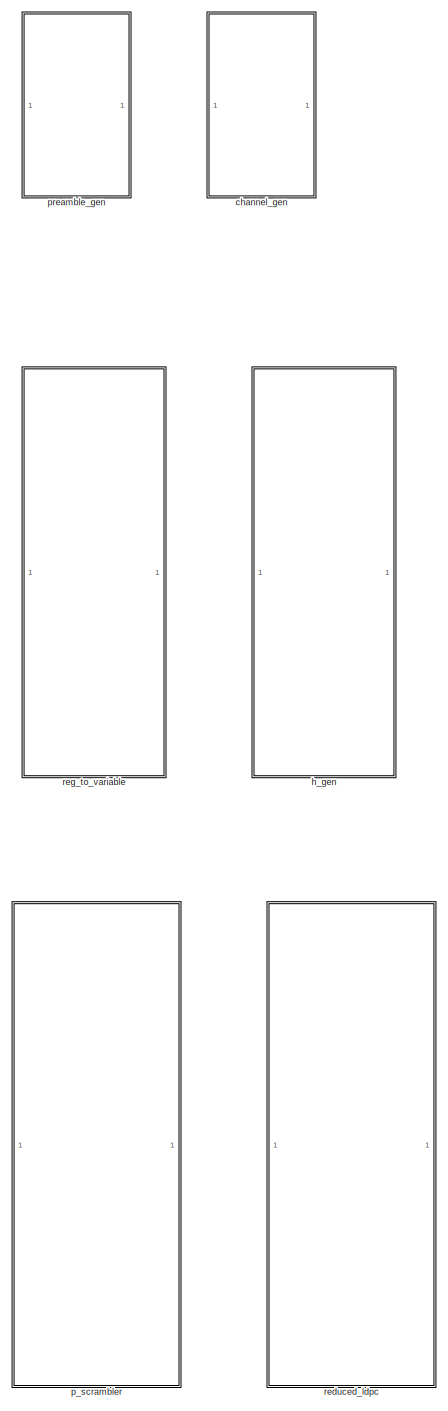
[diagram: root canvas - part 1/10, top left region]
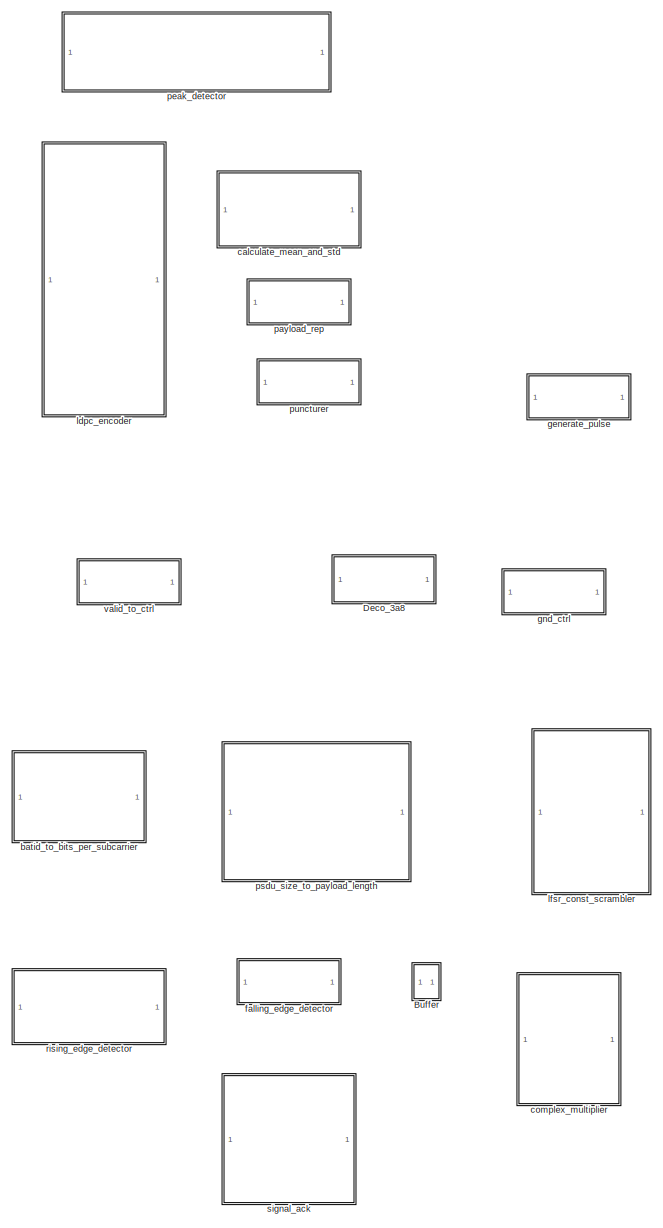
[diagram: root canvas - part 2/10, top right region]
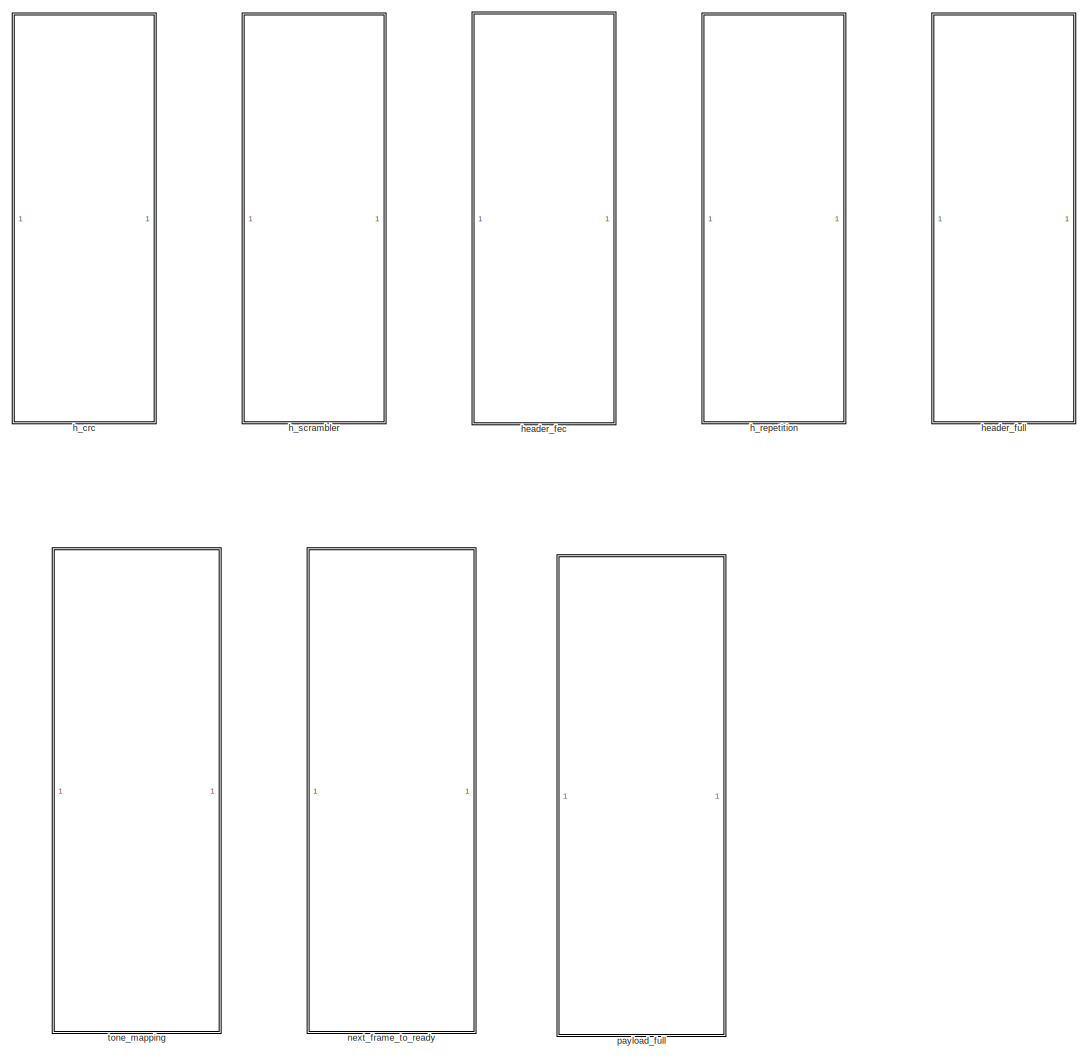
[diagram: root canvas - part 3/10, top left region]
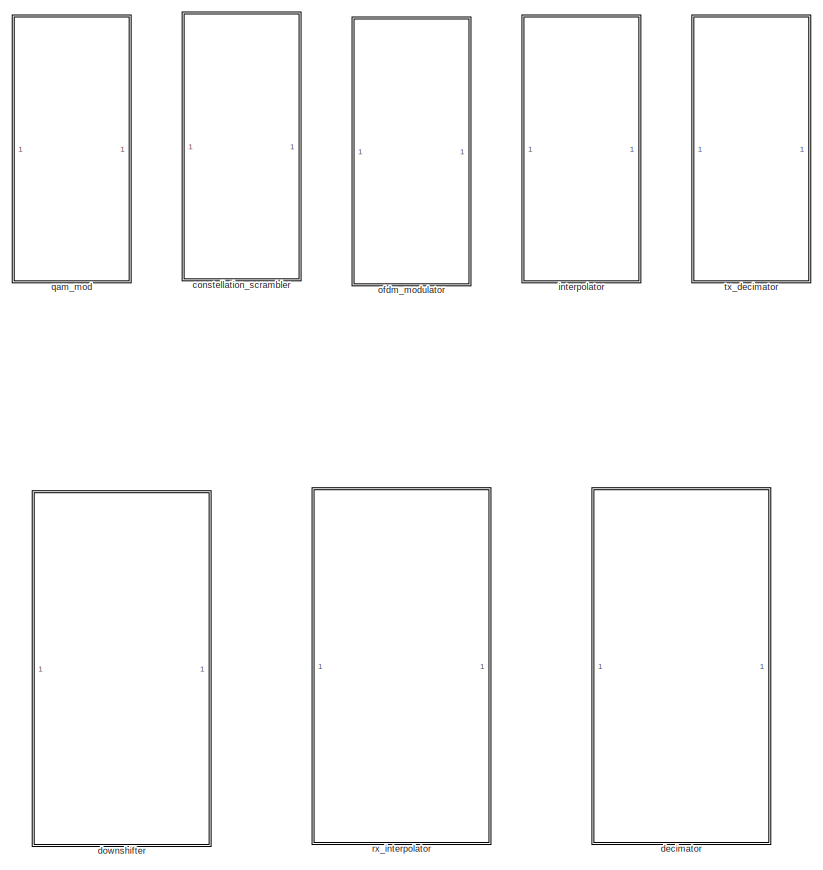
[diagram: root canvas - part 4/10, middle left region]
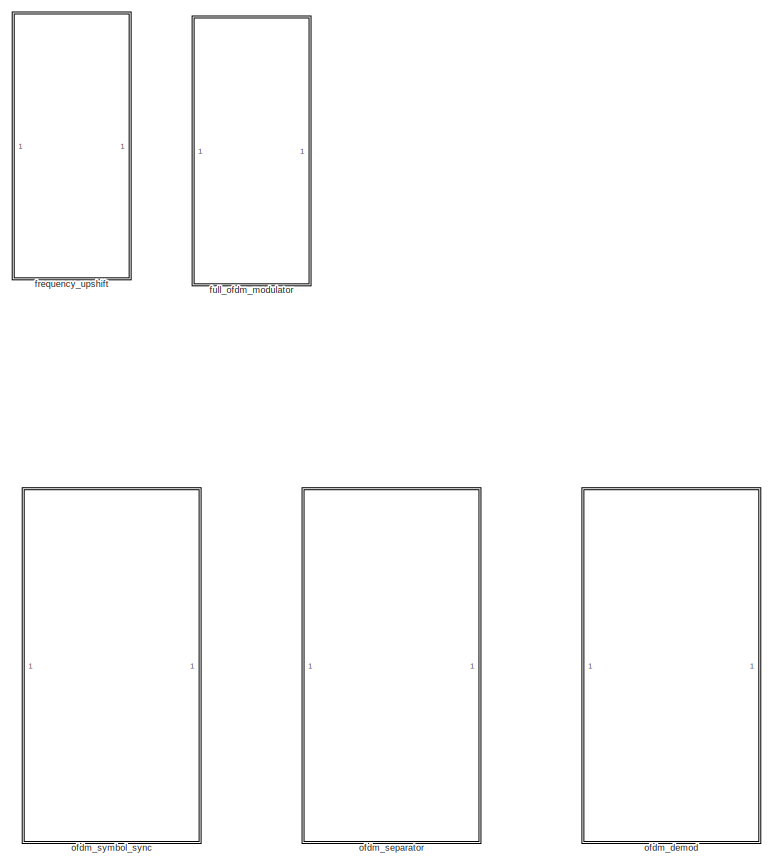
[diagram: root canvas - part 5/10, middle left region]
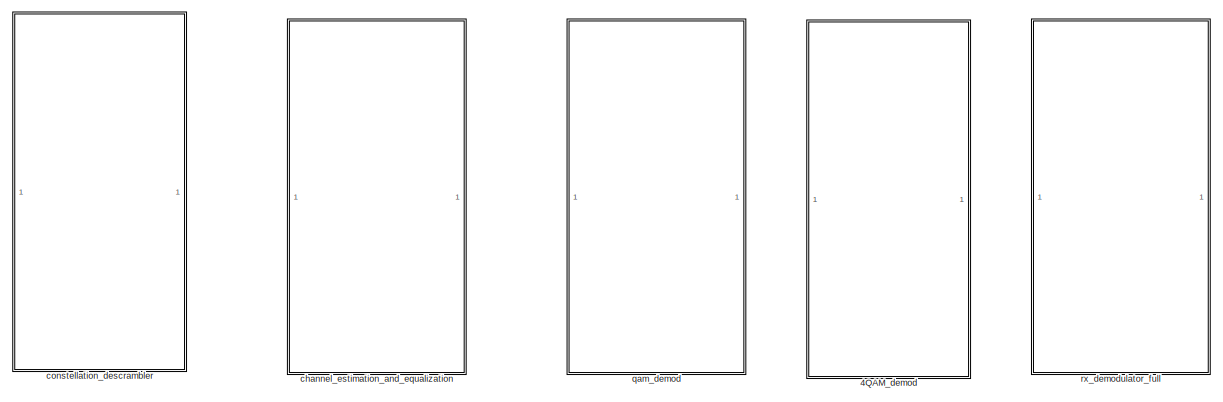
[diagram: root canvas - part 6/10, central region]
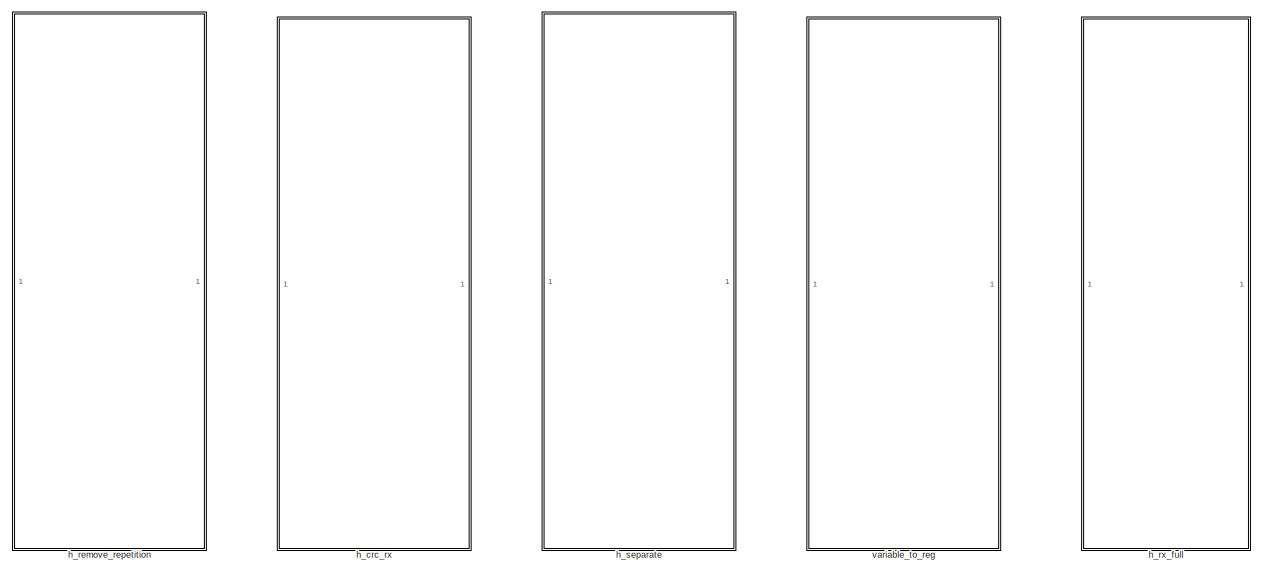
[diagram: root canvas - part 7/10, middle left region]
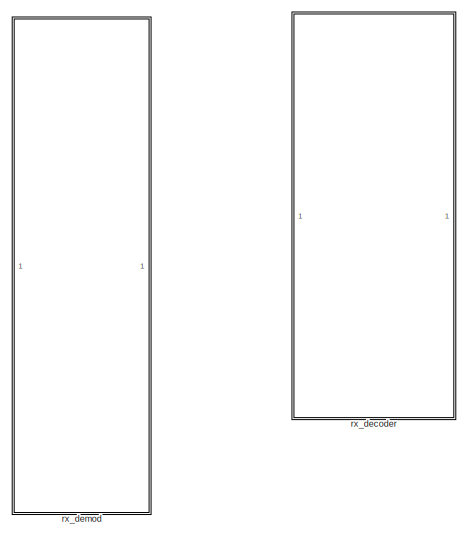
[diagram: root canvas - part 8/10, bottom center region]
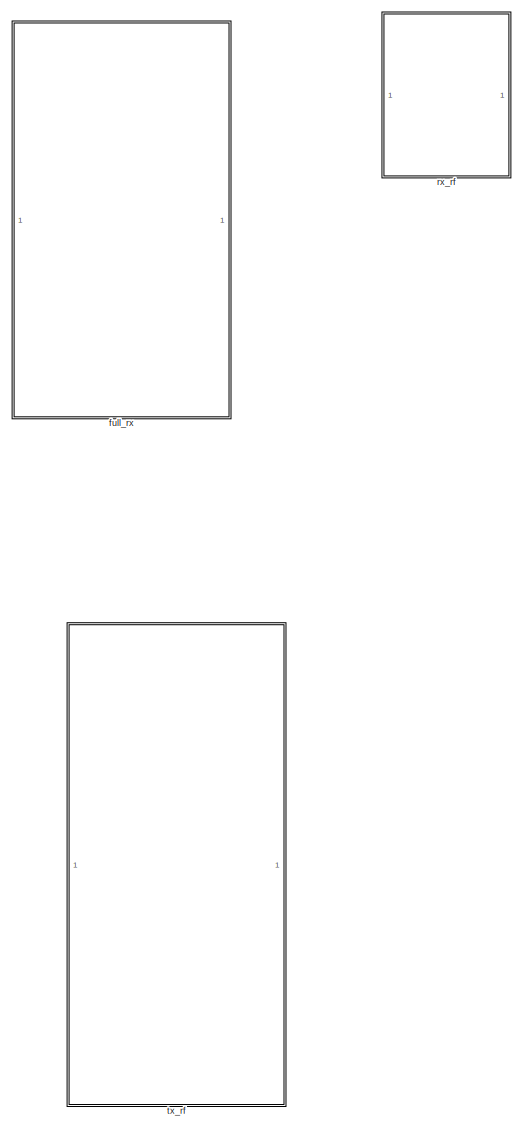
[diagram: root canvas - part 9/10, bottom left region]
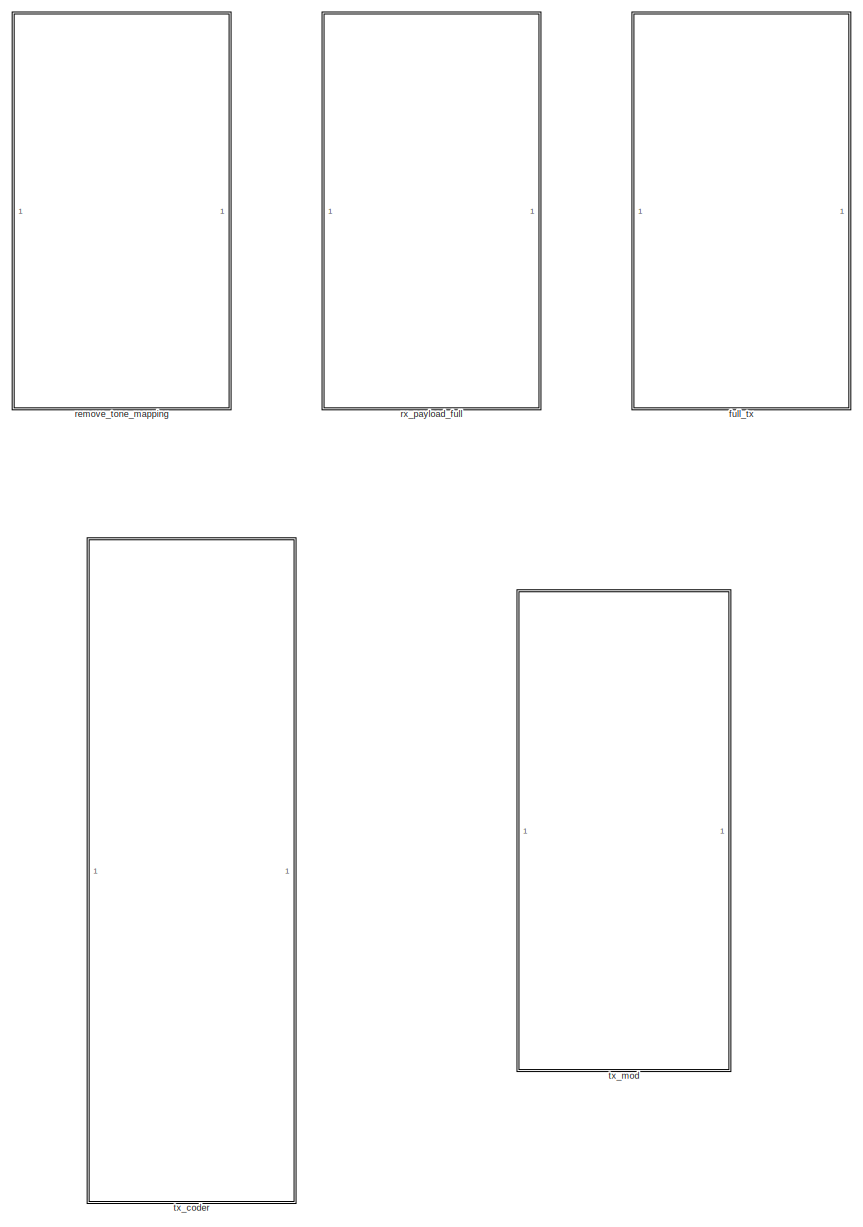
[diagram: root canvas - part 10/10, bottom left region]
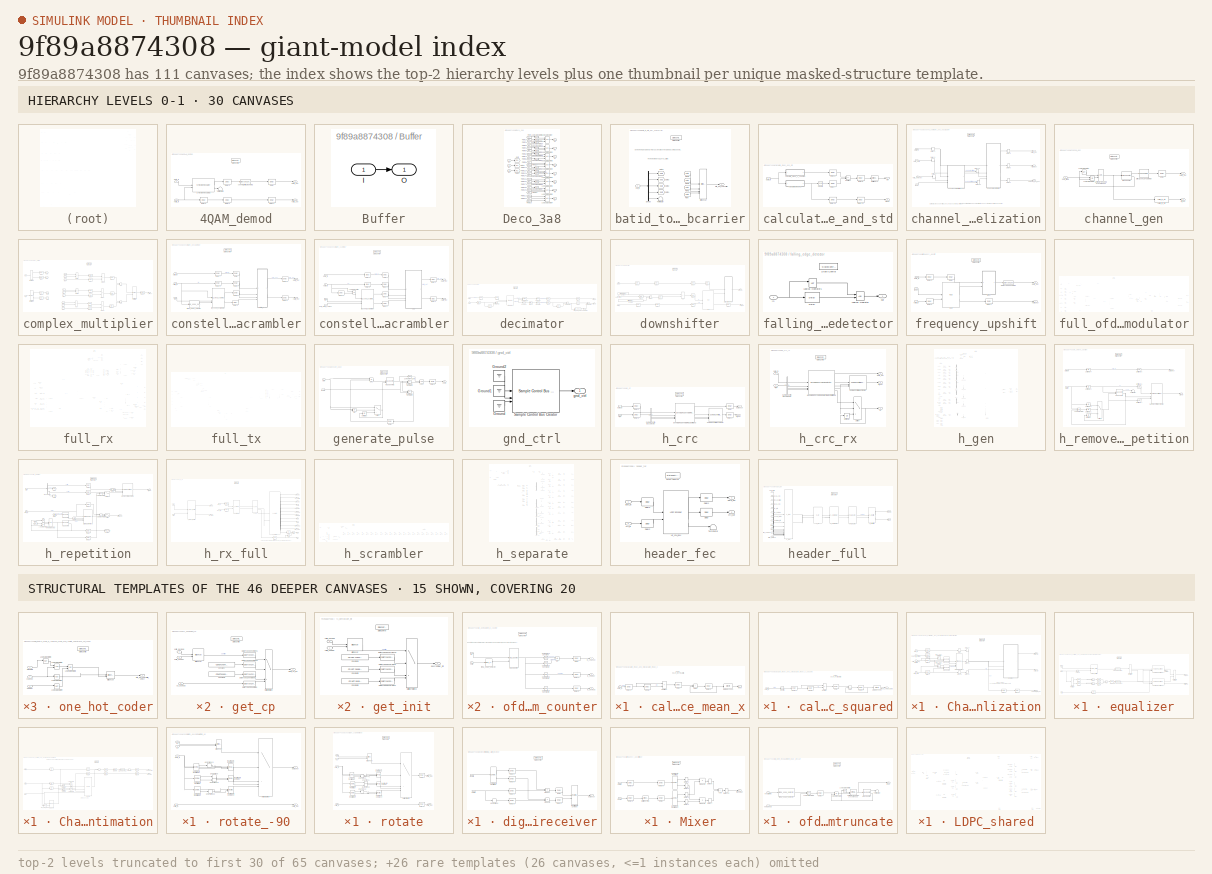
[diagram: thumbnail index - top-2 hierarchy levels (65 canvases (first 30 of 65 shown)) + 15 structural-template representatives of the remaining 46 canvases]
MODEL slx_9f89a8874308
KIND library
CONFIG AbsTol = auto
CONFIG EnableMultiTasking = off
CONFIG FixedStep = auto
CONFIG MaxStep = auto
CONFIG MinStep = auto
CONFIG RelTol = 1e-3
CONFIG SampleTimeConstraint = Unconstrained
CONFIG SolverName = FixedStepDiscrete
CONFIG StartTime = 0.0
CONFIG StopTime = 10.0
BLOCK [SubSystem] 4QAM_demod
  TreatAsAtomicUnit = on
BLOCK [Delay] 4QAM_demod/Delay
  DelayLength = 1
  InitialCondition = 0
  InputPortMap = u0
  UseCircularBuffer = on
  UserDataPersistent = on
BLOCK [Delay] 4QAM_demod/Delay1
  DelayLength = 1
  InitialCondition = 0
  InputPortMap = u0
  UseCircularBuffer = on
  UserDataPersistent = on
BLOCK [Delay] 4QAM_demod/Delay2
  DelayLength = 5
  InitialCondition = 0
  InputPortMap = u0
  UseCircularBuffer = on
  UserDataPersistent = on
BLOCK [Delay] 4QAM_demod/Delay3
  DelayLength = 1
  InitialCondition = 0
  InputPortMap = u0
  UseCircularBuffer = on
  UserDataPersistent = on
BLOCK [Delay] 4QAM_demod/Delay4
  DelayLength = 1
  InitialCondition = 0
  InputPortMap = u0
  UseCircularBuffer = on
  UserDataPersistent = on
BLOCK [StateControl] 4QAM_demod/State Control
  StateControl = Synchronous
BLOCK [Reference] 4QAM_demod/Symbol Demodulator1  REF=whdlmod/Symbol Demodulator
  SourceBlock = whdlmod/Symbol Demodulator
  SourceType = Symbol Demodulator
BLOCK [Terminator] 4QAM_demod/Terminator2
BLOCK [DataTypeConversion] 4QAM_demod/convert_with_rounding
  OutDataTypeStr = CONST.rxQAMDemodDataType
  RndMeth = Round
  SaturateOnIntegerOverflow = off
BLOCK [Inport] 4QAM_demod/data_in
BLOCK [Outport] 4QAM_demod/data_out
BLOCK [Inport] 4QAM_demod/valid_in
  Port = 2
BLOCK [Outport] 4QAM_demod/valid_out
  Port = 2
  VectorParamsAs1DForOutWhenUnconnected = off
BLOCK [SubSystem] Buffer
BLOCK [Inport] Buffer/I
BLOCK [Outport] Buffer/O
BLOCK [SubSystem] Deco_3a8
BLOCK [From] Deco_3a8/From
  GotoTag = in0
BLOCK [From] Deco_3a8/From1
  GotoTag = in1
BLOCK [From] Deco_3a8/From10
  GotoTag = in1
BLOCK [From] Deco_3a8/From11
  GotoTag = in2
BLOCK [From] Deco_3a8/From12
  GotoTag = in0
BLOCK [From] Deco_3a8/From13
  GotoTag = in1
BLOCK [From] Deco_3a8/From14
  GotoTag = in2
BLOCK [From] Deco_3a8/From15
  GotoTag = in0
BLOCK [From] Deco_3a8/From16
  GotoTag = in1
BLOCK [From] Deco_3a8/From17
  GotoTag = in2
BLOCK [From] Deco_3a8/From18
  GotoTag = in0
BLOCK [From] Deco_3a8/From19
  GotoTag = in1
BLOCK [From] Deco_3a8/From2
  GotoTag = in2
BLOCK [From] Deco_3a8/From20
  GotoTag = in2
BLOCK [From] Deco_3a8/From21
  GotoTag = in0
BLOCK [From] Deco_3a8/From22
  GotoTag = in1
BLOCK [From] Deco_3a8/From23
  GotoTag = in2
BLOCK [From] Deco_3a8/From3
  GotoTag = in0
BLOCK [From] Deco_3a8/From4
  GotoTag = in1
BLOCK [From] Deco_3a8/From5
  GotoTag = in2
BLOCK [From] Deco_3a8/From6
  GotoTag = in0
BLOCK [From] Deco_3a8/From7
  GotoTag = in1
BLOCK [From] Deco_3a8/From8
  GotoTag = in2
BLOCK [From] Deco_3a8/From9
  GotoTag = in0
BLOCK [Goto] Deco_3a8/Goto
  GotoTag = in0
BLOCK [Goto] Deco_3a8/Goto1
  GotoTag = in1
BLOCK [Goto] Deco_3a8/Goto2
  GotoTag = in2
BLOCK [Logic] Deco_3a8/Logical Operator
  AllPortsSameDT = off
  IconShape = distinctive
  Inputs = 3
  OutDataTypeStr = boolean
BLOCK [Logic] Deco_3a8/Logical Operator1
  AllPortsSameDT = off
  IconShape = distinctive
  Inputs = 3
  OutDataTypeStr = boolean
BLOCK [Logic] Deco_3a8/Logical Operator10
  AllPortsSameDT = off
  IconShape = distinctive
  Operator = NOT
  OutDataTypeStr = boolean
BLOCK [Logic] Deco_3a8/Logical Operator11
  AllPortsSameDT = off
  IconShape = distinctive
  Operator = NOT
  OutDataTypeStr = boolean
BLOCK [Logic] Deco_3a8/Logical Operator13
  AllPortsSameDT = off
  IconShape = distinctive
  Operator = NOT
  OutDataTypeStr = boolean
BLOCK [Logic] Deco_3a8/Logical Operator14
  AllPortsSameDT = off
  IconShape = distinctive
  Operator = NOT
  OutDataTypeStr = boolean
BLOCK [Logic] Deco_3a8/Logical Operator15
  AllPortsSameDT = off
  IconShape = distinctive
  Operator = NOT
  OutDataTypeStr = boolean
BLOCK [Logic] Deco_3a8/Logical Operator17
  AllPortsSameDT = off
  IconShape = distinctive
  Operator = NOT
  OutDataTypeStr = boolean
BLOCK [Logic] Deco_3a8/Logical Operator2
  AllPortsSameDT = off
  IconShape = distinctive
  Inputs = 3
  OutDataTypeStr = boolean
BLOCK [Logic] Deco_3a8/Logical Operator21
  AllPortsSameDT = off
  IconShape = distinctive
  Operator = NOT
  OutDataTypeStr = boolean
BLOCK [Logic] Deco_3a8/Logical Operator22
  AllPortsSameDT = off
  IconShape = distinctive
  Operator = NOT
  OutDataTypeStr = boolean
BLOCK [Logic] Deco_3a8/Logical Operator25
  AllPortsSameDT = off
  IconShape = distinctive
  Operator = NOT
  OutDataTypeStr = boolean
BLOCK [Logic] Deco_3a8/Logical Operator27
  AllPortsSameDT = off
  IconShape = distinctive
  Operator = NOT
  OutDataTypeStr = boolean
BLOCK [Logic] Deco_3a8/Logical Operator3
  AllPortsSameDT = off
  IconShape = distinctive
  Inputs = 3
  OutDataTypeStr = boolean
BLOCK [Logic] Deco_3a8/Logical Operator4
  AllPortsSameDT = off
  IconShape = distinctive
  Inputs = 3
  OutDataTypeStr = boolean
BLOCK [Logic] Deco_3a8/Logical Operator5
  AllPortsSameDT = off
  IconShape = distinctive
  Inputs = 3
  OutDataTypeStr = boolean
BLOCK [Logic] Deco_3a8/Logical Operator6
  AllPortsSameDT = off
  IconShape = distinctive
  Inputs = 3
  OutDataTypeStr = boolean
BLOCK [Logic] Deco_3a8/Logical Operator7
  AllPortsSameDT = off
  IconShape = distinctive
  Inputs = 3
  OutDataTypeStr = boolean
BLOCK [Logic] Deco_3a8/Logical Operator8
  AllPortsSameDT = off
  IconShape = distinctive
  Operator = NOT
  OutDataTypeStr = boolean
BLOCK [Logic] Deco_3a8/Logical Operator9
  AllPortsSameDT = off
  IconShape = distinctive
  Operator = NOT
  OutDataTypeStr = boolean
BLOCK [Inport] Deco_3a8/in0
BLOCK [Inport] Deco_3a8/in1
  Port = 2
BLOCK [Inport] Deco_3a8/in2
  Port = 3
BLOCK [Outport] Deco_3a8/m0
BLOCK [Outport] Deco_3a8/m1
  Port = 2
BLOCK [Outport] Deco_3a8/m2
  Port = 3
BLOCK [Outport] Deco_3a8/m3
  Port = 4
BLOCK [Outport] Deco_3a8/m4
  Port = 5
BLOCK [Outport] Deco_3a8/m5
  Port = 6
BLOCK [Outport] Deco_3a8/m6
  Port = 7
BLOCK [Outport] Deco_3a8/m7
  Port = 8
BLOCK [SubSystem] batid_to_bits_per_subcarrier
BLOCK [Reference] batid_to_bits_per_subcarrier/Bit Concat  REF=hdlsllib/Logic and Bit
Operations/Bit Concat
  SourceBlock = hdlsllib/Logic and Bit\nOperations/Bit Concat
  SourceType = Bit Concat
BLOCK [Demux] batid_to_bits_per_subcarrier/Demux
  Outputs = 5
BLOCK [From] batid_to_bits_per_subcarrier/From
  GotoTag = bat0
BLOCK [From] batid_to_bits_per_subcarrier/From1
  GotoTag = bat1
BLOCK [From] batid_to_bits_per_subcarrier/From2
  GotoTag = bat2
BLOCK [From] batid_to_bits_per_subcarrier/From3
  GotoTag = bat3
BLOCK [Goto] batid_to_bits_per_subcarrier/Goto1
  GotoTag = bat3
BLOCK [Goto] batid_to_bits_per_subcarrier/Goto2
  GotoTag = bat2
BLOCK [Goto] batid_to_bits_per_subcarrier/Goto3
  GotoTag = bat1
BLOCK [Goto] batid_to_bits_per_subcarrier/Goto4
  GotoTag = bat0
BLOCK [StateControl] batid_to_bits_per_subcarrier/State Control
  StateControl = Synchronous
BLOCK [Terminator] batid_to_bits_per_subcarrier/Terminator
BLOCK [Inport] batid_to_bits_per_subcarrier/bat_id
BLOCK [Outport] batid_to_bits_per_subcarrier/bits_per_subcarrier
BLOCK [SubSystem] calculate_mean_and_std
BLOCK [Delay] calculate_mean_and_std/Delay10
  DelayLength = 1
  InitialCondition = 0
  InputPortMap = u0
  UseCircularBuffer = on
  UserDataPersistent = on
BLOCK [Delay] calculate_mean_and_std/Delay11
  DelayLength = 1
  InitialCondition = 0
  InputPortMap = u0
  UseCircularBuffer = on
  UserDataPersistent = on
BLOCK [Delay] calculate_mean_and_std/Delay6
  DelayLength = 1
  InitialCondition = 0
  InputPortMap = u0
  UseCircularBuffer = on
  UserDataPersistent = on
BLOCK [Delay] calculate_mean_and_std/Delay7
  DelayLength = 1
  InitialCondition = 0
  InputPortMap = u0
  UseCircularBuffer = on
  UserDataPersistent = on
BLOCK [Delay] calculate_mean_and_std/Delay8
  DelayLength = 1
  InitialCondition = 0
  InputPortMap = u0
  UseCircularBuffer = on
  UserDataPersistent = on
BLOCK [Math] calculate_mean_and_std/Square
  Operator = square
  RndMeth = Zero
  SignedPower = on
BLOCK [Sum] calculate_mean_and_std/Subtract
  IconShape = rectangular
  Inputs = +-
  OutDataTypeStr = Inherit: Same as first input
BLOCK [SubSystem] calculate_mean_and_std/calculate_mean_x
BLOCK [Sum] calculate_mean_and_std/calculate_mean_x/Add1
  IconShape = rectangular
  OutDataTypeStr = Inherit: Same as first input
BLOCK [Delay] calculate_mean_and_std/calculate_mean_x/Delay
  DelayLength = 1
  InitialCondition = 0
  InputPortMap = u0
  UseCircularBuffer = on
  UserDataPersistent = on
BLOCK [Delay] calculate_mean_and_std/calculate_mean_x/Delay1
  DelayLength = 1
  InitialCondition = 0
  InputPortMap = u0
  UseCircularBuffer = on
  UserDataPersistent = on
BLOCK [Delay] calculate_mean_and_std/calculate_mean_x/Delay2
  DelayLength = 1
  InitialCondition = 0
  InputPortMap = u0
  UseCircularBuffer = on
  UserDataPersistent = on
BLOCK [Reference] calculate_mean_and_std/calculate_mean_x/Divide by 1024  REF=hdlsllib/Logic and Bit
Operations/Bit Shift
  SourceBlock = hdlsllib/Logic and Bit\nOperations/Bit Shift
  SourceType = Bit Shift
BLOCK [Delay] calculate_mean_and_std/calculate_mean_x/N delay
  DelayLength = 1024
  InitialCondition = 0
  InputPortMap = u0
  UseCircularBuffer = on
  UserDataPersistent = on
BLOCK [Sum] calculate_mean_and_std/calculate_mean_x/Subtract
  IconShape = rectangular
  Inputs = +-
  OutDataTypeStr = fixdt(1,32,12)
BLOCK [Inport] calculate_mean_and_std/calculate_mean_x/data_in
BLOCK [Outport] calculate_mean_and_std/calculate_mean_x/mean
BLOCK [SubSystem] calculate_mean_and_std/calculate_mean_x_squared
BLOCK [Sum] calculate_mean_and_std/calculate_mean_x_squared/Add1
  IconShape = rectangular
  OutDataTypeStr = Inherit: Same as first input
BLOCK [Delay] calculate_mean_and_std/calculate_mean_x_squared/Delay
  DelayLength = 1
  InitialCondition = 0
  InputPortMap = u0
  UseCircularBuffer = on
  UserDataPersistent = on
BLOCK [Delay] calculate_mean_and_std/calculate_mean_x_squared/Delay1
  DelayLength = 1
  InitialCondition = 0
  InputPortMap = u0
  UseCircularBuffer = on
  UserDataPersistent = on
BLOCK [Delay] calculate_mean_and_std/calculate_mean_x_squared/Delay2
  DelayLength = 1
  InitialCondition = 0
  InputPortMap = u0
  UseCircularBuffer = on
  UserDataPersistent = on
BLOCK [Reference] calculate_mean_and_std/calculate_mean_x_squared/Divide by 1024  REF=hdlsllib/Logic and Bit
Operations/Bit Shift
  SourceBlock = hdlsllib/Logic and Bit\nOperations/Bit Shift
  SourceType = Bit Shift
BLOCK [Delay] calculate_mean_and_std/calculate_mean_x_squared/N delay
  DelayLength = 1024
  InitialCondition = 0
  InputPortMap = u0
  UseCircularBuffer = on
  UserDataPersistent = on
BLOCK [Math] calculate_mean_and_std/calculate_mean_x_squared/Square
  Operator = square
  OutDataTypeStr = Inherit: Inherit via internal rule
  RndMeth = Zero
  SignedPower = on
BLOCK [Sum] calculate_mean_and_std/calculate_mean_x_squared/Subtract
  IconShape = rectangular
  Inputs = +-
BLOCK [Inport] calculate_mean_and_std/calculate_mean_x_squared/data_in
BLOCK [Outport] calculate_mean_and_std/calculate_mean_x_squared/mean_x_squared
BLOCK [Inport] calculate_mean_and_std/data_in
BLOCK [Outport] calculate_mean_and_std/mean
  Port = 2
BLOCK [Reference] calculate_mean_and_std/multiply by 2  REF=hdlsllib/Logic and Bit
Operations/Bit Shift
  SourceBlock = hdlsllib/Logic and Bit\nOperations/Bit Shift
  SourceType = Bit Shift
BLOCK [Outport] calculate_mean_and_std/std
BLOCK [SubSystem] channel_estimation_and_equalization
  TreatAsAtomicUnit = on
BLOCK [SubSystem] channel_estimation_and_equalization/Channel Equalization
BLOCK [Delay] channel_estimation_and_equalization/Channel Equalization/Delay
  DelayLength = 1
  InputPortMap = u0
BLOCK [Delay] channel_estimation_and_equalization/Channel Equalization/Delay1
  DelayLength = 6
  InitialCondition = 0
  InputPortMap = u0
  UseCircularBuffer = on
  UserDataPersistent = on
BLOCK [Delay] channel_estimation_and_equalization/Channel Equalization/Delay12
  DelayLength = CONST.rxChannelEstDividerDelay
  InitialCondition = 0
  InputPortMap = u0
  UseCircularBuffer = on
  UserDataPersistent = on
BLOCK [Delay] channel_estimation_and_equalization/Channel Equalization/Delay23
  DelayLength = 1
  InitialCondition = 0
  InputPortMap = u0
BLOCK [Delay] channel_estimation_and_equalization/Channel Equalization/Delay24
  DelayLength = 1
  InitialCondition = 0
  InputPortMap = u0
BLOCK [Delay] channel_estimation_and_equalization/Channel Equalization/Delay25
  DelayLength = 1
  InitialCondition = 0
  InputPortMap = u0
BLOCK [Delay] channel_estimation_and_equalization/Channel Equalization/Delay28
  DelayLength = 1
  InputPortMap = u0
BLOCK [Delay] channel_estimation_and_equalization/Channel Equalization/Delay3
  DelayLength = 1
  InitialCondition = 0
  InputPortMap = u0
  UseCircularBuffer = on
  UserDataPersistent = on
BLOCK [Delay] channel_estimation_and_equalization/Channel Equalization/Delay4
  DelayLength = 1
  InitialCondition = 0
  InputPortMap = u0
  UseCircularBuffer = on
  UserDataPersistent = on
BLOCK [Delay] channel_estimation_and_equalization/Channel Equalization/Delay5
  DelayLength = 1
  InitialCondition = 0
  InputPortMap = u0
  UseCircularBuffer = on
  UserDataPersistent = on
BLOCK [Delay] channel_estimation_and_equalization/Channel Equalization/Delay6
  DelayLength = 1
  InitialCondition = 0
  InputPortMap = u0
  UseCircularBuffer = on
  UserDataPersistent = on
BLOCK [Reference] channel_estimation_and_equalization/Channel Equalization/HDL Counter  REF=hdlsllib/Sources/HDL Counter
  SourceBlock = hdlsllib/Sources/HDL Counter
  SourceType = HDL Counter
BLOCK [Reference] channel_estimation_and_equalization/Channel Equalization/HDL Counter1  REF=hdlsllib/Sources/HDL Counter
  SourceBlock = hdlsllib/Sources/HDL Counter
  SourceType = HDL Counter
BLOCK [Reference] channel_estimation_and_equalization/Channel Equalization/Simple Dual Port RAM  REF=hdlsllib/HDL RAMs/Simple Dual Port RAM
  SourceBlock = hdlsllib/HDL RAMs/Simple Dual Port RAM
  SourceType = Simple Dual-port RAM
BLOCK [StateControl] channel_estimation_and_equalization/Channel Equalization/State Control
  StateControl = Synchronous
BLOCK [Outport] channel_estimation_and_equalization/Channel Equalization/channel_est_out
  Port = 3
BLOCK [Inport] channel_estimation_and_equalization/Channel Equalization/channel_estimate_in
  Port = 3
BLOCK [Inport] channel_estimation_and_equalization/Channel Equalization/data_in
BLOCK [Outport] channel_estimation_and_equalization/Channel Equalization/data_out
BLOCK [SubSystem] channel_estimation_and_equalization/Channel Equalization/equalizer
BLOCK [Sum] channel_estimation_and_equalization/Channel Equalization/equalizer/Add
  IconShape = rectangular
BLOCK [ComplexToRealImag] channel_estimation_and_equalization/Channel Equalization/equalizer/Complex to Real-Imag
BLOCK [ComplexToRealImag] channel_estimation_and_equalization/Channel Equalization/equalizer/Complex to Real-Imag1
BLOCK [Math] channel_estimation_and_equalization/Channel Equalization/equalizer/Conjugate
  Operator = conj
  OutputSignalType = complex
  RndMeth = Zero
  SignedPower = on
BLOCK [DataTypeConversion] channel_estimation_and_equalization/Channel Equalization/equalizer/Data Type Conversion
  OutDataTypeStr = fixdt(1,CONST.rxChannelEstReferenceWordLength, CONST.rxChannelEstReferenceFractionLength)
  RndMeth = Floor
  SaturateOnIntegerOverflow = off
BLOCK [DataTypeConversion] channel_estimation_and_equalization/Channel Equalization/equalizer/Data Type Conversion1
  OutDataTypeStr = fixdt(1,CONST.rxChannelEstReferenceWordLength, CONST.rxChannelEstReferenceFractionLength)
  RndMeth = Floor
  SaturateOnIntegerOverflow = off
BLOCK [Delay] channel_estimation_and_equalization/Channel Equalization/equalizer/Delay10
  InitialCondition = 0
  InputPortMap = u0
  UseCircularBuffer = on
  UserDataPersistent = on
BLOCK [Delay] channel_estimation_and_equalization/Channel Equalization/equalizer/Delay11
  InitialCondition = 0
  InputPortMap = u0
  UseCircularBuffer = on
  UserDataPersistent = on
BLOCK [Delay] channel_estimation_and_equalization/Channel Equalization/equalizer/Delay13
  DelayLength = 6
  InitialCondition = 0
  InputPortMap = u0
  UseCircularBuffer = on
  UserDataPersistent = on
BLOCK [Delay] channel_estimation_and_equalization/Channel Equalization/equalizer/Delay7
  InitialCondition = 0
  InputPortMap = u0
  UseCircularBuffer = on
  UserDataPersistent = on
BLOCK [Delay] channel_estimation_and_equalization/Channel Equalization/equalizer/Delay8
  InitialCondition = 0
  InputPortMap = u0
  UseCircularBuffer = on
  UserDataPersistent = on
BLOCK [Delay] channel_estimation_and_equalization/Channel Equalization/equalizer/Delay9
  InitialCondition = 0
  InputPortMap = u0
  UseCircularBuffer = on
  UserDataPersistent = on
BLOCK [Product] channel_estimation_and_equalization/Channel Equalization/equalizer/Product
BLOCK [Product] channel_estimation_and_equalization/Channel Equalization/equalizer/Product1
BLOCK [Reference] channel_estimation_and_equalization/Channel Equalization/equalizer/Real Divide HDL Optimized  REF=embreciprocals/Real Divide HDL Optimized
  LibrarySourceBlock = embeddedMatrixLib/Math Operations/Real Divide HDL Optimized
  SourceBlock = embreciprocals/Real Divide HDL Optimized
  SourceType = Real Divide HDL Optimized
BLOCK [Reference] channel_estimation_and_equalization/Channel Equalization/equalizer/Real Divide HDL Optimized1  REF=embreciprocals/Real Divide HDL Optimized
  LibrarySourceBlock = embeddedMatrixLib/Math Operations/Real Divide HDL Optimized
  SourceBlock = embreciprocals/Real Divide HDL Optimized
  SourceType = Real Divide HDL Optimized
BLOCK [RealImagToComplex] channel_estimation_and_equalization/Channel Equalization/equalizer/Real-Imag to Complex
BLOCK [StateControl] channel_estimation_and_equalization/Channel Equalization/equalizer/State Control
  StateControl = Synchronous
BLOCK [Terminator] channel_estimation_and_equalization/Channel Equalization/equalizer/Terminator
BLOCK [Inport] channel_estimation_and_equalization/Channel Equalization/equalizer/Valid
  Port = 3
BLOCK [Reference] channel_estimation_and_equalization/Channel Equalization/equalizer/complex_multiplier  REF=$bdroot/complex_multiplier
  SourceBlock = $bdroot/complex_multiplier
  SourceType = SubSystem
BLOCK [Inport] channel_estimation_and_equalization/Channel Equalization/equalizer/data_in
BLOCK [Outport] channel_estimation_and_equalization/Channel Equalization/equalizer/data_out
BLOCK [Inport] channel_estimation_and_equalization/Channel Equalization/equalizer/hEst
  Port = 2
BLOCK [Outport] channel_estimation_and_equalization/Channel Equalization/equalizer/valid_out
  Port = 2
BLOCK [Reference] channel_estimation_and_equalization/Channel Equalization/rising_edge_detector  REF=$bdroot/rising_edge_detector
  SourceBlock = $bdroot/rising_edge_detector
  SourceType = SubSystem
BLOCK [Reference] channel_estimation_and_equalization/Channel Equalization/rising_edge_detector1  REF=$bdroot/rising_edge_detector
  SourceBlock = $bdroot/rising_edge_detector
  SourceType = SubSystem
BLOCK [Inport] channel_estimation_and_equalization/Channel Equalization/valid_channel_estimate
  Port = 4
BLOCK [Inport] channel_estimation_and_equalization/Channel Equalization/valid_data
  Port = 2
BLOCK [Outport] channel_estimation_and_equalization/Channel Equalization/valid_out
  Port = 2
BLOCK [SubSystem] channel_estimation_and_equalization/Channel Estimation
BLOCK [Sum] channel_estimation_and_equalization/Channel Estimation/Add
  IconShape = rectangular
BLOCK [Reference] channel_estimation_and_equalization/Channel Estimation/Compare To Constant  REF=hdlsllib/Logic and Bit
Operations/Compare
To Constant
  SourceBlock = hdlsllib/Logic and Bit\nOperations/Compare\nTo Constant
  SourceType = Compare To Constant
BLOCK [Reference] channel_estimation_and_equalization/Channel Estimation/Compare To Constant1  REF=hdlsllib/Logic and Bit
Operations/Compare
To Constant
  SourceBlock = hdlsllib/Logic and Bit\nOperations/Compare\nTo Constant
  SourceType = Compare To Constant
BLOCK [DataTypeConversion] channel_estimation_and_equalization/Channel Estimation/Data Type Conversion
  OutDataTypeStr = fixdt(1, CONST.rxChannelEstReferenceWordLength, CONST.rxChannelEstReferenceFractionLength)
  RndMeth = Floor
  SaturateOnIntegerOverflow = off
BLOCK [Delay] channel_estimation_and_equalization/Channel Estimation/Delay
  DelayLength = 1
  InitialCondition = 0
  InputPortMap = u0
  UseCircularBuffer = on
  UserDataPersistent = on
BLOCK [Delay] channel_estimation_and_equalization/Channel Estimation/Delay1
  DelayLength = 1
  InitialCondition = 0
  InputPortMap = u0
  UseCircularBuffer = on
  UserDataPersistent = on
BLOCK [Delay] channel_estimation_and_equalization/Channel Estimation/Delay2
  DelayLength = 1
  InitialCondition = 0
  InputPortMap = u0
  UseCircularBuffer = on
  UserDataPersistent = on
BLOCK [Delay] channel_estimation_and_equalization/Channel Estimation/Delay3
  DelayLength = 1
  InitialCondition = 0
  InputPortMap = u0
  UseCircularBuffer = on
  UserDataPersistent = on
BLOCK [Delay] channel_estimation_and_equalization/Channel Estimation/Delay4
  DelayLength = 1
  InitialCondition = 0
  InputPortMap = u0
  UseCircularBuffer = on
  UserDataPersistent = on
BLOCK [Delay] channel_estimation_and_equalization/Channel Estimation/Delay5
  DelayLength = 1
  InitialCondition = 0
  InputPortMap = u0
  UseCircularBuffer = on
  UserDataPersistent = on
BLOCK [Delay] channel_estimation_and_equalization/Channel Estimation/Delay6
  DelayLength = 1
  InitialCondition = 0
  InputPortMap = u0
  UseCircularBuffer = on
  UserDataPersistent = on
BLOCK [Delay] channel_estimation_and_equalization/Channel Estimation/Delay7
  DelayLength = 1
  InitialCondition = 0
  InputPortMap = u0
  UseCircularBuffer = on
  UserDataPersistent = on
BLOCK [Delay] channel_estimation_and_equalization/Channel Estimation/Delay8
  DelayLength = 1
  InitialCondition = 0
  InputPortMap = u0
  UseCircularBuffer = on
  UserDataPersistent = on
BLOCK [Reference] channel_estimation_and_equalization/Channel Estimation/Divide by 2  REF=hdlsllib/Logic and Bit
Operations/Bit Shift
  SourceBlock = hdlsllib/Logic and Bit\nOperations/Bit Shift
  SourceType = Bit Shift
BLOCK [Reference] channel_estimation_and_equalization/Channel Estimation/HDL Counter  REF=hdlsllib/Sources/HDL Counter
  SourceBlock = hdlsllib/Sources/HDL Counter
  SourceType = HDL Counter
BLOCK [Reference] channel_estimation_and_equalization/Channel Estimation/HDL FIFO  REF=hdlsllib/HDL RAMs/HDL FIFO
  SourceBlock = hdlsllib/HDL RAMs/HDL FIFO
  SourceType = HDL_FIFO
BLOCK [Logic] channel_estimation_and_equalization/Channel Estimation/Logical Operator1
  AllPortsSameDT = off
  IconShape = distinctive
  OutDataTypeStr = boolean
BLOCK [Logic] channel_estimation_and_equalization/Channel Estimation/Logical Operator2
  AllPortsSameDT = off
  IconShape = distinctive
  OutDataTypeStr = boolean
BLOCK [StateControl] channel_estimation_and_equalization/Channel Estimation/State Control
  StateControl = Synchronous
BLOCK [UnaryMinus] channel_estimation_and_equalization/Channel Estimation/Unary Minus
BLOCK [Outport] channel_estimation_and_equalization/Channel Estimation/channel_estimate
BLOCK [Inport] channel_estimation_and_equalization/Channel Estimation/data_in
BLOCK [Inport] channel_estimation_and_equalization/Channel Estimation/reset
  Port = 3
BLOCK [Reference] channel_estimation_and_equalization/Channel Estimation/rising_edge_detector  REF=$bdroot/rising_edge_detector
  SourceBlock = $bdroot/rising_edge_detector
  SourceType = SubSystem
BLOCK [Outport] channel_estimation_and_equalization/Channel Estimation/valid_estimate
  Port = 2
BLOCK [Inport] channel_estimation_and_equalization/Channel Estimation/valid_in
  Port = 2
BLOCK [Delay] channel_estimation_and_equalization/Delay1
  DelayLength = 1
  InitialCondition = 0
  InputPortMap = u0
BLOCK [Delay] channel_estimation_and_equalization/Delay13
  DelayLength = 1
  InitialCondition = 0
  InputPortMap = u0
BLOCK [Delay] channel_estimation_and_equalization/Delay14
  DelayLength = 1
  InitialCondition = 0
  InputPortMap = u0
BLOCK [Delay] channel_estimation_and_equalization/Delay2
  DelayLength = 1
  InitialCondition = 0
  InputPortMap = u0
BLOCK [Delay] channel_estimation_and_equalization/Delay3
  DelayLength = 1
  InitialCondition = 0
  InputPortMap = u0
BLOCK [Delay] channel_estimation_and_equalization/Delay4
  DelayLength = 1
  InitialCondition = 0
  InputPortMap = u0
BLOCK [Delay] channel_estimation_and_equalization/Delay5
  DelayLength = 1
  InitialCondition = 0
  InputPortMap = u0
BLOCK [Delay] channel_estimation_and_equalization/Delay6
  DelayLength = 1
  InitialCondition = 0
  InputPortMap = u0
BLOCK [StateControl] channel_estimation_and_equalization/State Control
  StateControl = Synchronous
BLOCK [Outport] channel_estimation_and_equalization/channel_est_out
  Port = 3
BLOCK [Inport] channel_estimation_and_equalization/data_in
BLOCK [Outport] channel_estimation_and_equalization/data_out
BLOCK [Inport] channel_estimation_and_equalization/reset
  Port = 4
BLOCK [Inport] channel_estimation_and_equalization/valid_channel
  Port = 3
BLOCK [Inport] channel_estimation_and_equalization/valid_data
  Port = 2
BLOCK [Outport] channel_estimation_and_equalization/valid_out
  Port = 2
BLOCK [SubSystem] channel_gen
BLOCK [Delay] channel_gen/Delay
  DelayLength = 1
  InitialCondition = 0
  InputPortMap = u0
  UseCircularBuffer = on
  UserDataPersistent = on
BLOCK [LookupNDDirect] channel_gen/Direct Lookup Table (n-D)
  DiagnosticForOutOfRangeInput = Error
  NumberOfTableDimensions = 1
  RemoveProtectionInput = on
  Table = CONST.channelLUT
  TableDataTypeStr = boolean
BLOCK [Reference] channel_gen/HDL Counter  REF=hdlsllib/Sources/HDL Counter
  SourceBlock = hdlsllib/Sources/HDL Counter
  SourceType = HDL Counter
BLOCK [Logic] channel_gen/Logical Operator
  AllPortsSameDT = off
  IconShape = distinctive
  Operator = NOT
  OutDataTypeStr = boolean
BLOCK [Logic] channel_gen/Logical Operator1
  AllPortsSameDT = off
  IconShape = distinctive
  Operator = OR
  OutDataTypeStr = boolean
BLOCK [StateControl] channel_gen/State Control
  StateControl = Synchronous
BLOCK [Reference] channel_gen/Unit Delay Enabled Synchronous  REF=hdlsllib/Discrete/Unit Delay Enabled
Synchronous
  SourceBlock = hdlsllib/Discrete/Unit Delay Enabled\nSynchronous
  SourceType = Unit Delay Enabled Synchronous
BLOCK [Outport] channel_gen/ctrl_out
  Port = 2
BLOCK [Outport] channel_gen/data_out
BLOCK [Inport] channel_gen/new_frame
BLOCK [Reference] channel_gen/valid_to_ctrl  REF=$bdroot/valid_to_ctrl
  SourceBlock = $bdroot/valid_to_ctrl
  SourceType = SubSystem
BLOCK [SubSystem] complex_multiplier
BLOCK [Sum] complex_multiplier/Add
  IconShape = rectangular
BLOCK [Sum] complex_multiplier/Add1
  IconShape = rectangular
BLOCK [Sum] complex_multiplier/Add2
  IconShape = rectangular
BLOCK [ComplexToRealImag] complex_multiplier/Complex to Real-Imag1
BLOCK [ComplexToRealImag] complex_multiplier/Complex to Real-Imag2
BLOCK [Delay] complex_multiplier/Delay
  DelayLength = 1
  InitialCondition = 0
  InputPortMap = u0
  UseCircularBuffer = on
  UserDataPersistent = on
BLOCK [Delay] complex_multiplier/Delay1
  DelayLength = 1
  InitialCondition = 0
  InputPortMap = u0
  UseCircularBuffer = on
  UserDataPersistent = on
BLOCK [Delay] complex_multiplier/Delay10
  DelayLength = 1
  InitialCondition = 0
  InputPortMap = u0
  UseCircularBuffer = on
  UserDataPersistent = on
BLOCK [Delay] complex_multiplier/Delay11
  InitialCondition = 0
  InputPortMap = u0
  UseCircularBuffer = on
  UserDataPersistent = on
BLOCK [Delay] complex_multiplier/Delay13
  InitialCondition = 0
  InputPortMap = u0
  UseCircularBuffer = on
  UserDataPersistent = on
BLOCK [Delay] complex_multiplier/Delay14
  InitialCondition = 0
  InputPortMap = u0
  UseCircularBuffer = on
  UserDataPersistent = on
BLOCK [Delay] complex_multiplier/Delay2
  DelayLength = 1
  InitialCondition = 0
  InputPortMap = u0
  UseCircularBuffer = on
  UserDataPersistent = on
BLOCK [Delay] complex_multiplier/Delay3
  DelayLength = 1
  InitialCondition = 0
  InputPortMap = u0
  UseCircularBuffer = on
  UserDataPersistent = on
BLOCK [Delay] complex_multiplier/Delay4
  InitialCondition = 0
  InputPortMap = u0
  UseCircularBuffer = on
  UserDataPersistent = on
BLOCK [Delay] complex_multiplier/Delay5
  InitialCondition = 0
  InputPortMap = u0
  UseCircularBuffer = on
  UserDataPersistent = on
BLOCK [Delay] complex_multiplier/Delay6
  InitialCondition = 0
  InputPortMap = u0
  UseCircularBuffer = on
  UserDataPersistent = on
BLOCK [Delay] complex_multiplier/Delay7
  InitialCondition = 0
  InputPortMap = u0
  UseCircularBuffer = on
  UserDataPersistent = on
BLOCK [Delay] complex_multiplier/Delay8
  InitialCondition = 0
  InputPortMap = u0
  UseCircularBuffer = on
  UserDataPersistent = on
BLOCK [Delay] complex_multiplier/Delay9
  InitialCondition = 0
  InputPortMap = u0
  UseCircularBuffer = on
  UserDataPersistent = on
BLOCK [From] complex_multiplier/From
  GotoTag = xr
BLOCK [From] complex_multiplier/From1
  GotoTag = xi
BLOCK [From] complex_multiplier/From2
  GotoTag = yr
BLOCK [From] complex_multiplier/From3
  GotoTag = yi
BLOCK [From] complex_multiplier/From4
  GotoTag = yr
BLOCK [From] complex_multiplier/From5
  GotoTag = yi
BLOCK [From] complex_multiplier/From6
  GotoTag = yi
BLOCK [From] complex_multiplier/From7
  GotoTag = xr
BLOCK [From] complex_multiplier/From8
  GotoTag = xi
BLOCK [Goto] complex_multiplier/Goto
  GotoTag = xr
BLOCK [Goto] complex_multiplier/Goto1
  GotoTag = xi
BLOCK [Goto] complex_multiplier/Goto2
  GotoTag = yr
BLOCK [Goto] complex_multiplier/Goto3
  GotoTag = yi
BLOCK [Product] complex_multiplier/Product
BLOCK [Product] complex_multiplier/Product1
BLOCK [Product] complex_multiplier/Product2
BLOCK [RealImagToComplex] complex_multiplier/Real-Imag to Complex
BLOCK [StateControl] complex_multiplier/State Control
  StateControl = Synchronous
BLOCK [Sum] complex_multiplier/Subtract
  IconShape = rectangular
  Inputs = +-
BLOCK [Sum] complex_multiplier/Subtract1
  IconShape = rectangular
  Inputs = +-
BLOCK [Outport] complex_multiplier/a_times_b
BLOCK [Inport] complex_multiplier/in_a
BLOCK [Inport] complex_multiplier/in_b
  Port = 2
BLOCK [SubSystem] constellation_descrambler
BLOCK [Delay] constellation_descrambler/Delay
  DelayLength = 1
  InitialCondition = 0
  InputPortMap = u0
  UseCircularBuffer = on
  UserDataPersistent = on
BLOCK [Delay] constellation_descrambler/Delay1
  DelayLength = 1
  InitialCondition = 0
  InputPortMap = u0
  UseCircularBuffer = on
  UserDataPersistent = on
BLOCK [Delay] constellation_descrambler/Delay2
  DelayLength = 1
  InitialCondition = 0
  InputPortMap = u0
  UseCircularBuffer = on
  UserDataPersistent = on
BLOCK [Delay] constellation_descrambler/Delay3
  DelayLength = 1
  InitialCondition = 0
  InputPortMap = u0
  UseCircularBuffer = on
  UserDataPersistent = on
BLOCK [Delay] constellation_descrambler/Delay4
  DelayLength = 1
  InitialCondition = 0
  InputPortMap = u0
  UseCircularBuffer = on
  UserDataPersistent = on
BLOCK [Delay] constellation_descrambler/Delay5
  DelayLength = 1
  InitialCondition = 0
  InputPortMap = u0
  UseCircularBuffer = on
  UserDataPersistent = on
BLOCK [Delay] constellation_descrambler/Delay7
  DelayLength = 1
  InitialCondition = 0
  InputPortMap = u0
  UseCircularBuffer = on
  UserDataPersistent = on
BLOCK [Delay] constellation_descrambler/Delay8
  DelayLength = 1
  InitialCondition = 0
  InputPortMap = u0
  UseCircularBuffer = on
  UserDataPersistent = on
BLOCK [StateControl] constellation_descrambler/State Control
  StateControl = Synchronous
BLOCK [Inport] constellation_descrambler/data_in
BLOCK [Outport] constellation_descrambler/data_out
  VectorParamsAs1DForOutWhenUnconnected = off
BLOCK [Inport] constellation_descrambler/init
  Port = 3
BLOCK [Reference] constellation_descrambler/lfsr_const_scrambler  REF=$bdroot/lfsr_const_scrambler
  SourceBlock = $bdroot/lfsr_const_scrambler
  SourceType = SubSystem
BLOCK [Reference] constellation_descrambler/rising_edge_detector  REF=$bdroot/rising_edge_detector
  SourceBlock = $bdroot/rising_edge_detector
  SourceType = SubSystem
BLOCK [SubSystem] constellation_descrambler/rotate_-90
BLOCK [Reference] constellation_descrambler/rotate_-90/Bit Concat  REF=hdlsllib/Logic and Bit
Operations/Bit Concat
  SourceBlock = hdlsllib/Logic and Bit\nOperations/Bit Concat
  SourceType = Bit Concat
BLOCK [ComplexToRealImag] constellation_descrambler/rotate_-90/Complex to Real-Imag
BLOCK [ComplexToRealImag] constellation_descrambler/rotate_-90/Complex to Real-Imag1
BLOCK [ComplexToRealImag] constellation_descrambler/rotate_-90/Complex to Real-Imag2
BLOCK [MultiPortSwitch] constellation_descrambler/rotate_-90/Multiport Switch
  DataPortOrder = Zero-based contiguous
  InputSameDT = off
  Inputs = 4
  SaturateOnIntegerOverflow = off
  zeroidx = on
BLOCK [RealImagToComplex] constellation_descrambler/rotate_-90/Real-Imag to Complex
BLOCK [RealImagToComplex] constellation_descrambler/rotate_-90/Real-Imag to Complex1
BLOCK [RealImagToComplex] constellation_descrambler/rotate_-90/Real-Imag to Complex2
BLOCK [UnaryMinus] constellation_descrambler/rotate_-90/Unary Minus
BLOCK [UnaryMinus] constellation_descrambler/rotate_-90/Unary Minus1
BLOCK [UnaryMinus] constellation_descrambler/rotate_-90/Unary Minus2
BLOCK [UnaryMinus] constellation_descrambler/rotate_-90/Unary Minus3
BLOCK [Inport] constellation_descrambler/rotate_-90/data_in
BLOCK [Outport] constellation_descrambler/rotate_-90/data_out
BLOCK [Inport] constellation_descrambler/rotate_-90/s1
  Port = 3
BLOCK [Inport] constellation_descrambler/rotate_-90/s2
  Port = 4
BLOCK [Inport] constellation_descrambler/rotate_-90/valid_in
  Port = 2
BLOCK [Outport] constellation_descrambler/rotate_-90/valid_out
  Port = 2
BLOCK [Inport] constellation_descrambler/valid_in
  Port = 2
BLOCK [Outport] constellation_descrambler/valid_out
  Port = 2
  VectorParamsAs1DForOutWhenUnconnected = off
BLOCK [SubSystem] constellation_scrambler
BLOCK [Delay] constellation_scrambler/Delay
  DelayLength = 1
  InitialCondition = 0
  InputPortMap = u0
  UseCircularBuffer = on
  UserDataPersistent = on
BLOCK [Delay] constellation_scrambler/Delay1
  DelayLength = 1
  InitialCondition = 0
  InputPortMap = u0
  UseCircularBuffer = on
  UserDataPersistent = on
BLOCK [Delay] constellation_scrambler/Delay2
  DelayLength = 1
  InitialCondition = 0
  InputPortMap = u0
  UseCircularBuffer = on
  UserDataPersistent = on
BLOCK [Delay] constellation_scrambler/Delay3
  DelayLength = 1
  InitialCondition = 0
  InputPortMap = u0
  UseCircularBuffer = on
  UserDataPersistent = on
BLOCK [Delay] constellation_scrambler/Delay4
  DelayLength = 1
  InitialCondition = 0
  InputPortMap = u0
  UseCircularBuffer = on
  UserDataPersistent = on
BLOCK [Delay] constellation_scrambler/Delay5
  DelayLength = 1
  InitialCondition = 0
  InputPortMap = u0
  UseCircularBuffer = on
  UserDataPersistent = on
BLOCK [Delay] constellation_scrambler/Delay6
  DelayLength = 1
  InitialCondition = 0
  InputPortMap = u0
  UseCircularBuffer = on
  UserDataPersistent = on
BLOCK [Delay] constellation_scrambler/Delay7
  DelayLength = 1
  InitialCondition = 0
  InputPortMap = u0
  UseCircularBuffer = on
  UserDataPersistent = on
BLOCK [Delay] constellation_scrambler/Delay8
  DelayLength = 1
  InitialCondition = 0
  InputPortMap = u0
  UseCircularBuffer = on
  UserDataPersistent = on
BLOCK [Logic] constellation_scrambler/Logical Operator
  AllPortsSameDT = off
  IconShape = distinctive
  Operator = OR
  OutDataTypeStr = boolean
BLOCK [StateControl] constellation_scrambler/State Control
  StateControl = Synchronous
BLOCK [Inport] constellation_scrambler/data_in
BLOCK [Outport] constellation_scrambler/data_out
  VectorParamsAs1DForOutWhenUnconnected = off
BLOCK [Inport] constellation_scrambler/init
  Port = 3
BLOCK [Reference] constellation_scrambler/lfsr_const_scrambler  REF=$bdroot/lfsr_const_scrambler
  SourceBlock = $bdroot/lfsr_const_scrambler
  SourceType = SubSystem
BLOCK [Inport] constellation_scrambler/new_ofdm_symbol
  Port = 4
BLOCK [SubSystem] constellation_scrambler/rotate
BLOCK [Reference] constellation_scrambler/rotate/Bit Concat  REF=hdlsllib/Logic and Bit
Operations/Bit Concat
  SourceBlock = hdlsllib/Logic and Bit\nOperations/Bit Concat
  SourceType = Bit Concat
BLOCK [ComplexToRealImag] constellation_scrambler/rotate/Complex to Real-Imag
BLOCK [ComplexToRealImag] constellation_scrambler/rotate/Complex to Real-Imag1
BLOCK [ComplexToRealImag] constellation_scrambler/rotate/Complex to Real-Imag2
BLOCK [Delay] constellation_scrambler/rotate/Delay
  DelayLength = 1
  InitialCondition = 0
  InputPortMap = u0
  UseCircularBuffer = on
  UserDataPersistent = on
BLOCK [Delay] constellation_scrambler/rotate/Delay1
  DelayLength = 1
  InitialCondition = 0
  InputPortMap = u0
  UseCircularBuffer = on
  UserDataPersistent = on
BLOCK [MultiPortSwitch] constellation_scrambler/rotate/Multiport Switch
  DataPortOrder = Zero-based contiguous
  InputSameDT = off
  Inputs = 4
  SaturateOnIntegerOverflow = off
  zeroidx = on
BLOCK [RealImagToComplex] constellation_scrambler/rotate/Real-Imag to Complex
BLOCK [RealImagToComplex] constellation_scrambler/rotate/Real-Imag to Complex1
BLOCK [RealImagToComplex] constellation_scrambler/rotate/Real-Imag to Complex2
BLOCK [StateControl] constellation_scrambler/rotate/State Control
  StateControl = Synchronous
BLOCK [UnaryMinus] constellation_scrambler/rotate/Unary Minus
BLOCK [UnaryMinus] constellation_scrambler/rotate/Unary Minus1
BLOCK [UnaryMinus] constellation_scrambler/rotate/Unary Minus2
BLOCK [UnaryMinus] constellation_scrambler/rotate/Unary Minus3
BLOCK [Inport] constellation_scrambler/rotate/data_in
BLOCK [Outport] constellation_scrambler/rotate/data_out
BLOCK [Inport] constellation_scrambler/rotate/s1
  Port = 3
BLOCK [Inport] constellation_scrambler/rotate/s2
  Port = 4
BLOCK [Inport] constellation_scrambler/rotate/valid_in
  Port = 2
BLOCK [Outport] constellation_scrambler/rotate/valid_out
  Port = 2
BLOCK [Inport] constellation_scrambler/valid_in
  Port = 2
BLOCK [Outport] constellation_scrambler/valid_out
  Port = 2
  VectorParamsAs1DForOutWhenUnconnected = off
BLOCK [SubSystem] decimator
  TreatAsAtomicUnit = on
BLOCK [Reference] decimator/Bitwise OR  REF=simulink/Logic and Bit
Operations/Bitwise
Operator
  LibrarySourceBlock = simulink/Quick Insert/Logic and Bit\nOperations/Bitwise OR
  SourceBlock = simulink/Logic and Bit\nOperations/Bitwise\nOperator
  SourceType = Bitwise Operator
BLOCK [Delay] decimator/Delay
  DelayLength = 1
  InitialCondition = 0
  InputPortMap = u0
  UseCircularBuffer = on
  UserDataPersistent = on
BLOCK [Delay] decimator/Delay1
  DelayLength = 1
  InitialCondition = 0
  InputPortMap = u0
  UseCircularBuffer = on
  UserDataPersistent = on
BLOCK [Delay] decimator/Delay10
  DelayLength = 1
  InitialCondition = 0
  InputPortMap = u0
  UseCircularBuffer = on
  UserDataPersistent = on
BLOCK [Delay] decimator/Delay2
  DelayLength = 1
  InitialCondition = 0
  InputPortMap = u0
  UseCircularBuffer = on
  UserDataPersistent = on
BLOCK [Delay] decimator/Delay3
  DelayLength = (CONST.rxDecimatorDelay+2)*3
  InitialCondition = 0
  InputPortMap = u0
  UseCircularBuffer = on
  UserDataPersistent = on
BLOCK [Delay] decimator/Delay4
  DelayLength = CONST.rxDecimatorDelay/CONST.rxM
  InitialCondition = 0
  InputPortMap = u0
  UseCircularBuffer = on
  UserDataPersistent = on
BLOCK [Delay] decimator/Delay5
  DelayLength = 1
  InitialCondition = 0
  InputPortMap = u0
  UseCircularBuffer = on
  UserDataPersistent = on
BLOCK [Delay] decimator/Delay8
  DelayLength = 1
  InitialCondition = 0
  InputPortMap = u0
  UseCircularBuffer = on
  UserDataPersistent = on
BLOCK [Delay] decimator/Delay9
  DelayLength = 1
  InitialCondition = 0
  InputPortMap = u0
  UseCircularBuffer = on
  UserDataPersistent = on
BLOCK [Reference] decimator/FIR Decimator  REF=dsphdlfiltering2/FIR Decimator
  SourceBlock = dsphdlfiltering2/FIR Decimator
  SourceType = FIR Decimator
BLOCK [Logic] decimator/Logical Operator
  AllPortsSameDT = off
  IconShape = distinctive
  Operator = OR
  OutDataTypeStr = boolean
BLOCK [Logic] decimator/Logical Operator2
  AllPortsSameDT = off
  IconShape = distinctive
  OutDataTypeStr = boolean
BLOCK [Logic] decimator/Logical Operator3
  AllPortsSameDT = off
  IconShape = distinctive
  OutDataTypeStr = boolean
BLOCK [Logic] decimator/Logical Operator4
  AllPortsSameDT = off
  IconShape = distinctive
  Operator = NOT
  OutDataTypeStr = boolean
BLOCK [RateTransition] decimator/Rate Transition
  OutPortSampleTimeMultiple = CONST.rxM
  OutPortSampleTimeOpt = Multiple of input port sample time
BLOCK [RateTransition] decimator/Rate Transition1
  OutPortSampleTimeMultiple = CONST.rxM
  OutPortSampleTimeOpt = Multiple of input port sample time
BLOCK [StateControl] decimator/State Control
  StateControl = Synchronous
BLOCK [Reference] decimator/Tapped Delay  REF=simulink/Discrete/Tapped Delay
  SourceBlock = simulink/Discrete/Tapped Delay
  SourceType = Tapped Delay Line
BLOCK [Reference] decimator/Unit Delay Enabled Synchronous  REF=hdlsllib/Discrete/Unit Delay Enabled
Synchronous
  SourceBlock = hdlsllib/Discrete/Unit Delay Enabled\nSynchronous
  SourceType = Unit Delay Enabled Synchronous
BLOCK [Inport] decimator/data_in
BLOCK [Outport] decimator/data_out
BLOCK [Reference] decimator/falling_edge_detector  REF=$bdroot/falling_edge_detector
  SourceBlock = $bdroot/falling_edge_detector
  SourceType = SubSystem
BLOCK [Inport] decimator/valid_in
  Port = 2
BLOCK [Outport] decimator/valid_out
  Port = 2
BLOCK [SubSystem] downshifter
  TreatAsAtomicUnit = on
BLOCK [Sum] downshifter/Add
  IconShape = rectangular
  OutDataTypeStr = Inherit: Same as first input
BLOCK [Constant] downshifter/Constant
  OutDataTypeStr = fixdt(0,CONST.ncoWordLength, 0)
  SampleTime = 1/CONST.fADC
  Value = 2^(CONST.ncoWordLength-2)
BLOCK [Constant] downshifter/Constant1
  OutDataTypeStr = fixdt(0, CONST.rxFreqOffsetWordLength, CONST.rxFreqOffsetFractionLength)
  SampleTime = -1
  Value = fi(2^(CONST.ncoWordLength-1)/CONST.preambleFirstPartOFDMSamples, 0, CONST.rxFreqOffsetWordLength, CONST.rxFreqOffsetFractionLength)
BLOCK [Delay] downshifter/Delay
  DelayLength = 6
  InitialCondition = 0
  InputPortMap = u0
  UseCircularBuffer = on
  UserDataPersistent = on
BLOCK [Delay] downshifter/Delay1
  DelayLength = 4
  InitialCondition = 0
  InputPortMap = u0
  UseCircularBuffer = on
  UserDataPersistent = on
BLOCK [Delay] downshifter/Delay10
  InitialCondition = 0
  InputPortMap = u0
  UseCircularBuffer = on
  UserDataPersistent = on
BLOCK [Delay] downshifter/Delay11
  InitialCondition = 0
  InputPortMap = u0
  UseCircularBuffer = on
  UserDataPersistent = on
BLOCK [Delay] downshifter/Delay12
  InitialCondition = 0
  InputPortMap = u0
  UseCircularBuffer = on
  UserDataPersistent = on
BLOCK [Delay] downshifter/Delay2
  InitialCondition = 0
  InputPortMap = u0
  UseCircularBuffer = on
  UserDataPersistent = on
BLOCK [Delay] downshifter/Delay3
  InitialCondition = 0
  InputPortMap = u0
  UseCircularBuffer = on
  UserDataPersistent = on
BLOCK [Delay] downshifter/Delay5
  InitialCondition = 0
  InputPortMap = u0
  UseCircularBuffer = on
  UserDataPersistent = on
BLOCK [Delay] downshifter/Delay7
  InitialCondition = 0
  InputPortMap = u0
  UseCircularBuffer = on
  UserDataPersistent = on
BLOCK [Delay] downshifter/Delay8
  InitialCondition = 0
  InputPortMap = u0
  UseCircularBuffer = on
  UserDataPersistent = on
BLOCK [Delay] downshifter/Delay9
  InitialCondition = 0
  InputPortMap = u0
  UseCircularBuffer = on
  UserDataPersistent = on
BLOCK [Reference] downshifter/NCO  REF=dsphdlsigops2/NCO
  SourceBlock = dsphdlsigops2/NCO
  SourceType = NCO
BLOCK [Product] downshifter/Product
  OutDataTypeStr = int16
BLOCK [StateControl] downshifter/State Control
  StateControl = Synchronous
BLOCK [Inport] downshifter/data_in
BLOCK [Outport] downshifter/data_out
  VectorParamsAs1DForOutWhenUnconnected = off
BLOCK [SubSystem] downshifter/digital_carrier_receiver
BLOCK [ComplexToRealImag] downshifter/digital_carrier_receiver/Complex to Real-Imag
BLOCK [Delay] downshifter/digital_carrier_receiver/Delay
  InitialCondition = 0
  InputPortMap = u0
  UseCircularBuffer = on
  UserDataPersistent = on
BLOCK [Delay] downshifter/digital_carrier_receiver/Delay1
  InitialCondition = 0
  InputPortMap = u0
  UseCircularBuffer = on
  UserDataPersistent = on
BLOCK [Delay] downshifter/digital_carrier_receiver/Delay2
  InitialCondition = 0
  InputPortMap = u0
  UseCircularBuffer = on
  UserDataPersistent = on
BLOCK [Delay] downshifter/digital_carrier_receiver/Delay3
  InitialCondition = 0
  InputPortMap = u0
  UseCircularBuffer = on
  UserDataPersistent = on
BLOCK [Delay] downshifter/digital_carrier_receiver/Delay4
  InitialCondition = 0
  InputPortMap = u0
  UseCircularBuffer = on
  UserDataPersistent = on
BLOCK [Delay] downshifter/digital_carrier_receiver/Delay5
  InitialCondition = 0
  InputPortMap = u0
  UseCircularBuffer = on
  UserDataPersistent = on
BLOCK [Product] downshifter/digital_carrier_receiver/Product
  OutDataTypeStr = Inherit: Same as first input
BLOCK [Product] downshifter/digital_carrier_receiver/Product2
  OutDataTypeStr = Inherit: Same as first input
BLOCK [RealImagToComplex] downshifter/digital_carrier_receiver/Real-Imag to Complex
BLOCK [StateControl] downshifter/digital_carrier_receiver/State Control
  StateControl = Synchronous
BLOCK [UnaryMinus] downshifter/digital_carrier_receiver/Unary Minus
BLOCK [Inport] downshifter/digital_carrier_receiver/dataIn
BLOCK [Outport] downshifter/digital_carrier_receiver/data_out
  VectorParamsAs1DForOutWhenUnconnected = off
BLOCK [Inport] downshifter/digital_carrier_receiver/ncoIn
  Port = 2
BLOCK [Inport] downshifter/phase_offset
  Port = 3
BLOCK [Inport] downshifter/valid_in
  Port = 2
BLOCK [Outport] downshifter/valid_out
  Port = 2
  VectorParamsAs1DForOutWhenUnconnected = off
BLOCK [SubSystem] falling_edge_detector
BLOCK [Delay] falling_edge_detector/Delay
  DelayLength = 1
  InitialCondition = 0
  InputPortMap = u0
  UseCircularBuffer = on
  UserDataPersistent = on
BLOCK [Logic] falling_edge_detector/Logical Operator
  AllPortsSameDT = off
  IconShape = distinctive
  OutDataTypeStr = boolean
BLOCK [Logic] falling_edge_detector/Logical Operator1
  AllPortsSameDT = off
  IconShape = distinctive
  Operator = NOT
  OutDataTypeStr = boolean
BLOCK [StateControl] falling_edge_detector/State Control
  StateControl = Synchronous
BLOCK [Inport] falling_edge_detector/in
BLOCK [Outport] falling_edge_detector/out
  VectorParamsAs1DForOutWhenUnconnected = off
BLOCK [SubSystem] frequency_upshift
BLOCK [DataTypeConversion] frequency_upshift/Data Type Conversion
  OutDataTypeStr = CONST.ipCoreDataType
  RndMeth = Floor
  SaturateOnIntegerOverflow = off
BLOCK [Delay] frequency_upshift/Delay
  DelayLength = 6
  InitialCondition = 0
  InputPortMap = u0
  UseCircularBuffer = on
  UserDataPersistent = on
BLOCK [Delay] frequency_upshift/Delay1
  DelayLength = 12
  InitialCondition = 0
  InputPortMap = u0
  UseCircularBuffer = on
  UserDataPersistent = on
BLOCK [Delay] frequency_upshift/Delay2
  DelayLength = 1
  InitialCondition = 0
  InputPortMap = u0
  UseCircularBuffer = on
  UserDataPersistent = on
BLOCK [Delay] frequency_upshift/Delay3
  DelayLength = 1
  InitialCondition = 0
  InputPortMap = u0
  UseCircularBuffer = on
  UserDataPersistent = on
BLOCK [SubSystem] frequency_upshift/Mixer
BLOCK [Sum] frequency_upshift/Mixer/Add
  AccumDataTypeStr = Inherit: Same as first input
  IconShape = rectangular
  InputSameDT = on
  Inputs = +-
  OutDataTypeStr = Inherit: Same as first input
BLOCK [ComplexToRealImag] frequency_upshift/Mixer/Complex to Real-Imag
BLOCK [ComplexToRealImag] frequency_upshift/Mixer/Complex to Real-Imag1
BLOCK [Delay] frequency_upshift/Mixer/Delay
  InitialCondition = 0
  InputPortMap = u0
  UseCircularBuffer = on
  UserDataPersistent = on
BLOCK [Delay] frequency_upshift/Mixer/Delay1
  DelayLength = 3
  InitialCondition = 0
  InputPortMap = u0
BLOCK [Delay] frequency_upshift/Mixer/Delay12
  InitialCondition = 0
  InputPortMap = u0
BLOCK [Delay] frequency_upshift/Mixer/Delay2
  DelayLength = 3
  InitialCondition = 0
  InputPortMap = u0
BLOCK [Delay] frequency_upshift/Mixer/Delay3
  DelayLength = 3
  InitialCondition = 0
  InputPortMap = u0
BLOCK [Delay] frequency_upshift/Mixer/Delay4
  DelayLength = 3
  InitialCondition = 0
  InputPortMap = u0
BLOCK [Delay] frequency_upshift/Mixer/Delay5
  InitialCondition = 0
  InputPortMap = u0
  UseCircularBuffer = on
  UserDataPersistent = on
BLOCK [Delay] frequency_upshift/Mixer/Delay6
  DelayLength = 3
  InitialCondition = 0
  InputPortMap = u0
BLOCK [Delay] frequency_upshift/Mixer/Delay7
  DelayLength = 3
  InitialCondition = 0
  InputPortMap = u0
BLOCK [Delay] frequency_upshift/Mixer/Delay8
  InitialCondition = 0
  InputPortMap = u0
  UseCircularBuffer = on
  UserDataPersistent = on
BLOCK [Delay] frequency_upshift/Mixer/Delay9
  InitialCondition = 0
  InputPortMap = u0
  UseCircularBuffer = on
  UserDataPersistent = on
BLOCK [Reference] frequency_upshift/Mixer/Multiply by two  REF=hdlsllib/Logic and Bit
Operations/Bit Shift
  SourceBlock = hdlsllib/Logic and Bit\nOperations/Bit Shift
  SourceType = Bit Shift
BLOCK [Product] frequency_upshift/Mixer/Product1
  OutDataTypeStr = Inherit: Same as first input
BLOCK [Product] frequency_upshift/Mixer/Product2
  OutDataTypeStr = Inherit: Same as first input
BLOCK [StateControl] frequency_upshift/Mixer/State Control
  StateControl = Synchronous
BLOCK [Inport] frequency_upshift/Mixer/dataIn
BLOCK [Outport] frequency_upshift/Mixer/mixedOut
BLOCK [Inport] frequency_upshift/Mixer/ncoIn
  Port = 2
BLOCK [Reference] frequency_upshift/NCO  REF=dsphdlsigops2/NCO
  SourceBlock = dsphdlsigops2/NCO
  SourceType = NCO
BLOCK [StateControl] frequency_upshift/State Control
  StateControl = Synchronous
BLOCK [Inport] frequency_upshift/data_in
BLOCK [Outport] frequency_upshift/data_out
  VectorParamsAs1DForOutWhenUnconnected = off
BLOCK [Inport] frequency_upshift/reset
  Port = 3
BLOCK [Inport] frequency_upshift/valid_in
  Port = 2
BLOCK [Outport] frequency_upshift/valid_out
  Port = 2
  VectorParamsAs1DForOutWhenUnconnected = off
BLOCK [SubSystem] full_ofdm_modulator
  TreatAsAtomicUnit = on
BLOCK [Constant] full_ofdm_modulator/Constant
  OutDataTypeStr = fixdt(1,16,14)
  SampleTime = -1
  Value = 0
BLOCK [Delay] full_ofdm_modulator/Delay
  DelayLength = 1
  InitialCondition = 0
  InputPortMap = u0
  UseCircularBuffer = on
  UserDataPersistent = on
BLOCK [Delay] full_ofdm_modulator/Delay1
  DelayLength = 1
  InitialCondition = 0
  InputPortMap = u0
  UseCircularBuffer = on
  UserDataPersistent = on
BLOCK [Delay] full_ofdm_modulator/Delay10
  DelayLength = 1
  InitialCondition = 0
  InputPortMap = u0
  UseCircularBuffer = on
  UserDataPersistent = on
BLOCK [Delay] full_ofdm_modulator/Delay11
  DelayLength = 1
  InitialCondition = 0
  InputPortMap = u0
  UseCircularBuffer = on
  UserDataPersistent = on
BLOCK [Delay] full_ofdm_modulator/Delay4
  DelayLength = 1
  InitialCondition = 0
  InputPortMap = u0
  UseCircularBuffer = on
  UserDataPersistent = on
BLOCK [Delay] full_ofdm_modulator/Delay5
  DelayLength = 1
  InitialCondition = 0
  InputPortMap = u0
  UseCircularBuffer = on
  UserDataPersistent = on
BLOCK [Delay] full_ofdm_modulator/Delay6
  DelayLength = 1
  InitialCondition = 0
  InputPortMap = u0
  UseCircularBuffer = on
  UserDataPersistent = on
BLOCK [Delay] full_ofdm_modulator/Delay7
  DelayLength = 1
  InitialCondition = 0
  InputPortMap = u0
  UseCircularBuffer = on
  UserDataPersistent = on
BLOCK [Delay] full_ofdm_modulator/Delay8
  DelayLength = 1
  InitialCondition = 0
  InputPortMap = u0
  UseCircularBuffer = on
  UserDataPersistent = on
BLOCK [Delay] full_ofdm_modulator/Delay9
  DelayLength = 1
  InitialCondition = 0
  InputPortMap = u0
  UseCircularBuffer = on
  UserDataPersistent = on
BLOCK [Reference] full_ofdm_modulator/HDL FIFO  REF=hdlsllib/HDL RAMs/HDL FIFO
  SourceBlock = hdlsllib/HDL RAMs/HDL FIFO
  SourceType = HDL_FIFO
BLOCK [Logic] full_ofdm_modulator/Logical Operator1
  AllPortsSameDT = off
  Operator = OR
  OutDataTypeStr = boolean
BLOCK [RealImagToComplex] full_ofdm_modulator/Real-Imag to Complex
BLOCK [Reference] full_ofdm_modulator/Repeat  REF=dspsigops/Repeat
  LibrarySourceBlock = dsphdlsupportsigops/Repeat
  SourceBlock = dspsigops/Repeat
  SourceType = Repeat
  UserDataPersistent = on
BLOCK [StateControl] full_ofdm_modulator/State Control
  StateControl = Synchronous
BLOCK [Switch] full_ofdm_modulator/Switch
  Criteria = u2 ~= 0
  InputSameDT = off
  SaturateOnIntegerOverflow = off
BLOCK [Switch] full_ofdm_modulator/Switch1
  Criteria = u2 ~= 0
  InputSameDT = off
  SaturateOnIntegerOverflow = off
BLOCK [UnitDelay] full_ofdm_modulator/Unit Delay
  HasFrameUpgradeWarning = on
  SampleTime = -1
BLOCK [Inport] full_ofdm_modulator/bits_per_subcarrier
  Port = 3
BLOCK [Reference] full_ofdm_modulator/constellation_scrambler  REF=$bdroot/constellation_scrambler
  SourceBlock = $bdroot/constellation_scrambler
  SourceType = SubSystem
BLOCK [Inport] full_ofdm_modulator/cp_len
  Port = 6
BLOCK [Inport] full_ofdm_modulator/data_in
BLOCK [Outport] full_ofdm_modulator/data_out
  VectorParamsAs1DForOutWhenUnconnected = off
BLOCK [Reference] full_ofdm_modulator/frequency_upshift  REF=$bdroot/frequency_upshift
  SourceBlock = $bdroot/frequency_upshift
  SourceType = SubSystem
BLOCK [Inport] full_ofdm_modulator/init
  Port = 4
BLOCK [Reference] full_ofdm_modulator/interpolator  REF=$bdroot/interpolator
  SourceBlock = $bdroot/interpolator
  SourceType = SubSystem
BLOCK [Inport] full_ofdm_modulator/new_ofdm_sym
  Port = 5
BLOCK [Reference] full_ofdm_modulator/ofdm_modulator  REF=$bdroot/ofdm_modulator
  SourceBlock = $bdroot/ofdm_modulator
  SourceType = SubSystem
BLOCK [SubSystem] full_ofdm_modulator/ofdm_ready_truncate
  NameLocation = top
BLOCK [Delay] full_ofdm_modulator/ofdm_ready_truncate/Delay
  DelayLength = 1
  InitialCondition = 0
  InputPortMap = u0
  UseCircularBuffer = on
  UserDataPersistent = on
BLOCK [Reference] full_ofdm_modulator/ofdm_ready_truncate/HDL Counter  REF=hdlsllib/Sources/HDL Counter
  SourceBlock = hdlsllib/Sources/HDL Counter
  SourceType = HDL Counter
BLOCK [Logic] full_ofdm_modulator/ofdm_ready_truncate/Logical Operator1
  AllPortsSameDT = off
  IconShape = distinctive
  Operator = OR
  OutDataTypeStr = boolean
BLOCK [Logic] full_ofdm_modulator/ofdm_ready_truncate/Logical Operator2
  AllPortsSameDT = off
  IconShape = distinctive
  Operator = NOT
  OutDataTypeStr = boolean
BLOCK [Logic] full_ofdm_modulator/ofdm_ready_truncate/Logical Operator3
  AllPortsSameDT = off
  IconShape = distinctive
  Operator = OR
  OutDataTypeStr = boolean
BLOCK [StateControl] full_ofdm_modulator/ofdm_ready_truncate/State Control
  StateControl = Synchronous
BLOCK [Terminator] full_ofdm_modulator/ofdm_ready_truncate/Terminator
BLOCK [Reference] full_ofdm_modulator/ofdm_ready_truncate/Unit Delay Enabled Synchronous  REF=hdlsllib/Discrete/Unit Delay Enabled
Synchronous
  SourceBlock = hdlsllib/Discrete/Unit Delay Enabled\nSynchronous
  SourceType = Unit Delay Enabled Synchronous
BLOCK [Inport] full_ofdm_modulator/ofdm_ready_truncate/new_psdu
  Port = 2
BLOCK [Inport] full_ofdm_modulator/ofdm_ready_truncate/next_frame
BLOCK [Outport] full_ofdm_modulator/ofdm_ready_truncate/ready
  VectorParamsAs1DForOutWhenUnconnected = off
BLOCK [Reference] full_ofdm_modulator/ofdm_ready_truncate/rising_edge_detector  REF=$bdroot/rising_edge_detector
  SourceBlock = $bdroot/rising_edge_detector
  SourceType = SubSystem
BLOCK [Reference] full_ofdm_modulator/qam_mod  REF=$bdroot/qam_mod
  SourceBlock = $bdroot/qam_mod
  SourceType = SubSystem
BLOCK [Outport] full_ofdm_modulator/ready
  NameLocation = top
  Port = 3
  VectorParamsAs1DForOutWhenUnconnected = off
BLOCK [Inport] full_ofdm_modulator/rst
  Port = 7
BLOCK [Inport] full_ofdm_modulator/valid_in
  Port = 2
BLOCK [Outport] full_ofdm_modulator/valid_out
  Port = 2
  VectorParamsAs1DForOutWhenUnconnected = off
BLOCK [SubSystem] full_rx
  TreatAsAtomicUnit = on
BLOCK [Reference] full_rx/Bitwise OR  REF=simulink/Logic and Bit
Operations/Bitwise
Operator
  LibrarySourceBlock = simulink/Quick Insert/Logic and Bit\nOperations/Bitwise OR
  SourceBlock = simulink/Logic and Bit\nOperations/Bitwise\nOperator
  SourceType = Bitwise Operator
BLOCK [Delay] full_rx/Delay
  DelayLength = 1
  InitialCondition = 0
  InputPortMap = u0
  UseCircularBuffer = on
  UserDataPersistent = on
BLOCK [Delay] full_rx/Delay1
  DelayLength = 1
  InitialCondition = 0
  InputPortMap = u0
  UseCircularBuffer = on
  UserDataPersistent = on
BLOCK [Delay] full_rx/Delay11
  DelayLength = 1
  InitialCondition = 0
  InputPortMap = u0
  UseCircularBuffer = on
  UserDataPersistent = on
BLOCK [Delay] full_rx/Delay12
  DelayLength = 1
  InitialCondition = 0
  InputPortMap = u0
  UseCircularBuffer = on
  UserDataPersistent = on
BLOCK [Delay] full_rx/Delay13
  DelayLength = 1
  InitialCondition = 0
  InputPortMap = u0
  UseCircularBuffer = on
  UserDataPersistent = on
BLOCK [Delay] full_rx/Delay14
  DelayLength = 1
  InitialCondition = 0
  InputPortMap = u0
  UseCircularBuffer = on
  UserDataPersistent = on
BLOCK [Delay] full_rx/Delay15
  DelayLength = 1
  InitialCondition = 0
  InputPortMap = u0
  UseCircularBuffer = on
  UserDataPersistent = on
BLOCK [Delay] full_rx/Delay16
  DelayLength = 1
  InitialCondition = 0
  InputPortMap = u0
  UseCircularBuffer = on
  UserDataPersistent = on
BLOCK [Delay] full_rx/Delay17
  DelayLength = 1
  InitialCondition = 0
  InputPortMap = u0
  UseCircularBuffer = on
  UserDataPersistent = on
BLOCK [Delay] full_rx/Delay18
  DelayLength = 1
  InitialCondition = 0
  InputPortMap = u0
  UseCircularBuffer = on
  UserDataPersistent = on
BLOCK [Delay] full_rx/Delay19
  DelayLength = 1
  InitialCondition = 0
  InputPortMap = u0
  UseCircularBuffer = on
  UserDataPersistent = on
BLOCK [Delay] full_rx/Delay2
  DelayLength = 1
  InitialCondition = 0
  InputPortMap = u0
  UseCircularBuffer = on
  UserDataPersistent = on
BLOCK [Delay] full_rx/Delay20
  DelayLength = 1
  InitialCondition = 0
  InputPortMap = u0
  UseCircularBuffer = on
  UserDataPersistent = on
BLOCK [Delay] full_rx/Delay21
  InitialCondition = 0
  InputPortMap = u0
  UseCircularBuffer = on
  UserDataPersistent = on
BLOCK [Delay] full_rx/Delay22
  InitialCondition = 0
  InputPortMap = u0
  UseCircularBuffer = on
  UserDataPersistent = on
BLOCK [Delay] full_rx/Delay23
  InitialCondition = 0
  InputPortMap = u0
  UseCircularBuffer = on
  UserDataPersistent = on
BLOCK [Delay] full_rx/Delay3
  DelayLength = 1
  InitialCondition = 0
  InputPortMap = u0
  UseCircularBuffer = on
  UserDataPersistent = on
BLOCK [From] full_rx/From
  GotoTag = payloadBitsPerSubcarrier
BLOCK [From] full_rx/From1
  GotoTag = psduSize
BLOCK [From] full_rx/From10
  GotoTag = ldpc_ctrl_p_out
BLOCK [From] full_rx/From11
  GotoTag = header_end
BLOCK [From] full_rx/From12
  GotoTag = header_start
BLOCK [From] full_rx/From13
  GotoTag = ldpc_p_data_in
BLOCK [From] full_rx/From14
  GotoTag = ldpc_p_ctrl_in
BLOCK [From] full_rx/From15
  GotoTag = ldpc_data_out
BLOCK [From] full_rx/From16
  GotoTag = header_ack
BLOCK [From] full_rx/From17
  GotoTag = header_end
BLOCK [From] full_rx/From2
  GotoTag = payloadCpLen
BLOCK [From] full_rx/From3
  GotoTag = payloadReady
BLOCK [From] full_rx/From4
  GotoTag = ldpc_h_data_in
BLOCK [From] full_rx/From5
  GotoTag = ldpc_data_out
BLOCK [From] full_rx/From6
  GotoTag = ldpc_ctrl_h_out
BLOCK [From] full_rx/From7
  GotoTag = header_end
BLOCK [From] full_rx/From8
  GotoTag = ldpc_h_ctrl_in
BLOCK [From] full_rx/From9
  GotoTag = ldpc_next_frame_out
BLOCK [Goto] full_rx/Goto
  GotoTag = payloadBitsPerSubcarrier
BLOCK [Goto] full_rx/Goto1
  GotoTag = psduSize
BLOCK [Goto] full_rx/Goto10
  GotoTag = ldpc_p_data_in
BLOCK [Goto] full_rx/Goto11
  GotoTag = ldpc_p_ctrl_in
BLOCK [Goto] full_rx/Goto12
  GotoTag = header_start
BLOCK [Goto] full_rx/Goto13
  GotoTag = ldpc_ctrl_h_out
BLOCK [Goto] full_rx/Goto14
  GotoTag = header_ack
BLOCK [Goto] full_rx/Goto2
  GotoTag = payloadCpLen
BLOCK [Goto] full_rx/Goto3
  GotoTag = payloadReady
BLOCK [Goto] full_rx/Goto4
  GotoTag = ldpc_data_out
BLOCK [Goto] full_rx/Goto5
  GotoTag = ldpc_ctrl_p_out
BLOCK [Goto] full_rx/Goto6
  GotoTag = header_end
BLOCK [Goto] full_rx/Goto7
  GotoTag = ldpc_next_frame_out
BLOCK [Goto] full_rx/Goto8
  GotoTag = ldpc_h_data_in
BLOCK [Goto] full_rx/Goto9
  GotoTag = ldpc_h_ctrl_in
BLOCK [SubSystem] full_rx/LDPC_shared
BLOCK [Constant] full_rx/LDPC_shared/Constant
  OutDataTypeStr = boolean
  SampleTime = -1
  Value = 0
BLOCK [Constant] full_rx/LDPC_shared/Constant1
  OutDataTypeStr = boolean
  SampleTime = -1
  Value = 0
BLOCK [Constant] full_rx/LDPC_shared/Constant2
  OutDataTypeStr = boolean
  SampleTime = -1
  Value = 0
BLOCK [Constant] full_rx/LDPC_shared/Constant3
  OutDataTypeStr = boolean
  SampleTime = -1
  Value = 0
BLOCK [Constant] full_rx/LDPC_shared/Constant4
  OutDataTypeStr = boolean
  SampleTime = -1
  Value = 0
BLOCK [Constant] full_rx/LDPC_shared/Constant5
  OutDataTypeStr = boolean
  SampleTime = -1
  Value = 0
BLOCK [Delay] full_rx/LDPC_shared/Delay
  DelayLength = 1
  InitialCondition = 0
  InputPortMap = u0
  UseCircularBuffer = on
  UserDataPersistent = on
BLOCK [Delay] full_rx/LDPC_shared/Delay1
  DelayLength = 1
  InitialCondition = 0
  InputPortMap = u0
  UseCircularBuffer = on
  UserDataPersistent = on
BLOCK [Delay] full_rx/LDPC_shared/Delay2
  DelayLength = 1
  InitialCondition = 0
  InputPortMap = u0
  UseCircularBuffer = on
  UserDataPersistent = on
BLOCK [Delay] full_rx/LDPC_shared/Delay3
  DelayLength = 1
  InitialCondition = 0
  InputPortMap = u0
  UseCircularBuffer = on
  UserDataPersistent = on
BLOCK [Delay] full_rx/LDPC_shared/Delay4
  DelayLength = 1
  InitialCondition = 0
  InputPortMap = u0
  UseCircularBuffer = on
  UserDataPersistent = on
BLOCK [Delay] full_rx/LDPC_shared/Delay5
  DelayLength = 1
  InitialCondition = 0
  InputPortMap = u0
  UseCircularBuffer = on
  UserDataPersistent = on
BLOCK [Delay] full_rx/LDPC_shared/Delay6
  DelayLength = 1
  InitialCondition = 0
  InputPortMap = u0
  UseCircularBuffer = on
  UserDataPersistent = on
BLOCK [Delay] full_rx/LDPC_shared/Delay7
  DelayLength = 1
  InitialCondition = 0
  InputPortMap = u0
  UseCircularBuffer = on
  UserDataPersistent = on
BLOCK [Delay] full_rx/LDPC_shared/Delay8
  DelayLength = 1
  InitialCondition = 0
  InputPortMap = u0
  UseCircularBuffer = on
  UserDataPersistent = on
BLOCK [From] full_rx/LDPC_shared/From
  GotoTag = is_header
BLOCK [From] full_rx/LDPC_shared/From1
  GotoTag = is_header
BLOCK [From] full_rx/LDPC_shared/From2
  GotoTag = is_header
BLOCK [From] full_rx/LDPC_shared/From3
  GotoTag = is_header
BLOCK [From] full_rx/LDPC_shared/From4
  GotoTag = is_header
BLOCK [From] full_rx/LDPC_shared/From5
  GotoTag = is_header
BLOCK [From] full_rx/LDPC_shared/From6
  GotoTag = is_header
BLOCK [From] full_rx/LDPC_shared/From7
  GotoTag = is_header
BLOCK [From] full_rx/LDPC_shared/From8
  GotoTag = is_header
BLOCK [From] full_rx/LDPC_shared/From9
  GotoTag = is_header
BLOCK [Goto] full_rx/LDPC_shared/Goto
  GotoTag = is_header
BLOCK [Reference] full_rx/LDPC_shared/LDPC Decoder  REF=whdledac/LDPC Decoder
  SourceBlock = whdledac/LDPC Decoder
  SourceType = LDPC Decoder
BLOCK [Logic] full_rx/LDPC_shared/OR
  AllPortsSameDT = off
  IconShape = distinctive
  Operator = OR
  OutDataTypeStr = boolean
BLOCK [Reference] full_rx/LDPC_shared/Sample Control Bus Creator  REF=whdlutilities/Sample Control
Bus Creator
  SourceBlock = whdlutilities/Sample Control\nBus Creator
  SourceType = Sample Control Bus Creator
BLOCK [Reference] full_rx/LDPC_shared/Sample Control Bus Creator1  REF=whdlutilities/Sample Control
Bus Creator
  SourceBlock = whdlutilities/Sample Control\nBus Creator
  SourceType = Sample Control Bus Creator
BLOCK [Reference] full_rx/LDPC_shared/Sample Control Bus Creator2  REF=whdlutilities/Sample Control
Bus Creator
  SourceBlock = whdlutilities/Sample Control\nBus Creator
  SourceType = Sample Control Bus Creator
BLOCK [Reference] full_rx/LDPC_shared/Sample Control Bus Selector  REF=whdlutilities/Sample Control
Bus Selector
  SourceBlock = whdlutilities/Sample Control\nBus Selector
BLOCK [Reference] full_rx/LDPC_shared/Sample Control Bus Selector1  REF=whdlutilities/Sample Control
Bus Selector
  SourceBlock = whdlutilities/Sample Control\nBus Selector
BLOCK [Reference] full_rx/LDPC_shared/Sample Control Bus Selector2  REF=whdlutilities/Sample Control
Bus Selector
  SourceBlock = whdlutilities/Sample Control\nBus Selector
BLOCK [StateControl] full_rx/LDPC_shared/State Control
  StateControl = Synchronous
BLOCK [Switch] full_rx/LDPC_shared/Switch
  Criteria = u2 ~= 0
  InputSameDT = off
  SaturateOnIntegerOverflow = off
BLOCK [Switch] full_rx/LDPC_shared/Switch1
  Criteria = u2 ~= 0
  SaturateOnIntegerOverflow = off
BLOCK [Switch] full_rx/LDPC_shared/Switch10
  Criteria = u2 ~= 0
  InputSameDT = off
  SaturateOnIntegerOverflow = off
BLOCK [Switch] full_rx/LDPC_shared/Switch2
  Criteria = u2 ~= 0
  InputSameDT = off
  SaturateOnIntegerOverflow = off
BLOCK [Switch] full_rx/LDPC_shared/Switch3
  Criteria = u2 ~= 0
  InputSameDT = off
  SaturateOnIntegerOverflow = off
BLOCK [Switch] full_rx/LDPC_shared/Switch4
  Criteria = u2 ~= 0
  InputSameDT = off
  SaturateOnIntegerOverflow = off
BLOCK [Switch] full_rx/LDPC_shared/Switch5
  Criteria = u2 ~= 0
  InputSameDT = off
  SaturateOnIntegerOverflow = off
BLOCK [Switch] full_rx/LDPC_shared/Switch6
  Criteria = u2 ~= 0
  InputSameDT = off
  SaturateOnIntegerOverflow = off
BLOCK [Switch] full_rx/LDPC_shared/Switch7
  Criteria = u2 ~= 0
  InputSameDT = off
  SaturateOnIntegerOverflow = off
BLOCK [Switch] full_rx/LDPC_shared/Switch8
  Criteria = u2 ~= 0
  InputSameDT = off
  SaturateOnIntegerOverflow = off
BLOCK [Switch] full_rx/LDPC_shared/Switch9
  Criteria = u2 ~= 0
  InputSameDT = off
  SaturateOnIntegerOverflow = off
BLOCK [UnitDelay] full_rx/LDPC_shared/Unit Delay
  HasFrameUpgradeWarning = on
  NameLocation = top
  SampleTime = -1
BLOCK [Inport] full_rx/LDPC_shared/end_header
  Port = 6
BLOCK [Inport] full_rx/LDPC_shared/ldpc_ctrl_header
  Port = 2
BLOCK [Outport] full_rx/LDPC_shared/ldpc_ctrl_header_out
  Port = 2
BLOCK [Inport] full_rx/LDPC_shared/ldpc_ctrl_payload
  Port = 4
BLOCK [Outport] full_rx/LDPC_shared/ldpc_ctrl_payload_out
  Port = 3
BLOCK [Inport] full_rx/LDPC_shared/ldpc_data_header
BLOCK [Outport] full_rx/LDPC_shared/ldpc_data_out
BLOCK [Inport] full_rx/LDPC_shared/ldpc_data_payload
  Port = 3
BLOCK [Outport] full_rx/LDPC_shared/ldpc_next_frame
  Port = 4
BLOCK [Inport] full_rx/LDPC_shared/start_header
  Port = 5
BLOCK [RateTransition] full_rx/Rate Transition
  OutPortSampleTime = 1/CONST.fPHY
BLOCK [RateTransition] full_rx/Rate Transition1
  OutPortSampleTime = 1/CONST.fPHY
BLOCK [RateTransition] full_rx/Rate Transition2
  OutPortSampleTime = 1/CONST.fPHY
BLOCK [RateTransition] full_rx/Rate Transition9
  OutPortSampleTime = 1/CONST.fPHY
BLOCK [StateControl] full_rx/State Control
  StateControl = Synchronous
BLOCK [Reference] full_rx/Tapped Delay  REF=simulink/Discrete/Tapped Delay
  SourceBlock = simulink/Discrete/Tapped Delay
  SourceType = Tapped Delay Line
BLOCK [Terminator] full_rx/Terminator1
BLOCK [DataTypeConversion] full_rx/adc_to_ip
  ConvertRealWorld = Stored Integer (SI)
  OutDataTypeStr = CONST.ADCDataType
  RndMeth = Floor
  SaturateOnIntegerOverflow = off
BLOCK [Reference] full_rx/batid_to_bits_per_subcarrier  REF=$bdroot/batid_to_bits_per_subcarrier
  SourceBlock = $bdroot/batid_to_bits_per_subcarrier
  SourceType = SubSystem
BLOCK [SubSystem] full_rx/cpid_to_cplen
BLOCK [Reference] full_rx/cpid_to_cplen/Bits to Word  REF=hdlsllib/Logic and Bit
Operations/Bits to Word
  SourceBlock = hdlsllib/Logic and Bit\nOperations/Bits to Word
  SourceType = Bits to Word
BLOCK [Constant] full_rx/cpid_to_cplen/Constant3
  OutDataTypeStr = fixdt(0,4,0)
  SampleTime = -1
  Value = CONST.N/32
BLOCK [DataTypeConversion] full_rx/cpid_to_cplen/Data Type Conversion
  OutDataTypeStr = fixdt(0,1,0)
  RndMeth = Floor
  SaturateOnIntegerOverflow = off
BLOCK [Delay] full_rx/cpid_to_cplen/Delay1
  DelayLength = 1
  InitialCondition = 0
  InputPortMap = u0
  UseCircularBuffer = on
  UserDataPersistent = on
BLOCK [Product] full_rx/cpid_to_cplen/Product
  OutDataTypeStr = uint8
BLOCK [StateControl] full_rx/cpid_to_cplen/State Control
  StateControl = Synchronous
BLOCK [Inport] full_rx/cpid_to_cplen/cp_id
BLOCK [Outport] full_rx/cpid_to_cplen/payload_cp_len
BLOCK [Inport] full_rx/data_in
BLOCK [Outport] full_rx/data_out
BLOCK [Outport] full_rx/end_out
  Port = 4
BLOCK [Reference] full_rx/h_rx_full  REF=$bdroot/h_rx_full
  SourceBlock = $bdroot/h_rx_full
  SourceType = SubSystem
BLOCK [Inport] full_rx/header_ack
  Port = 2
BLOCK [SubSystem] full_rx/header_clock_x2
BLOCK [Reference] full_rx/header_clock_x2/Serializer1D  REF=hdlsllib/HDL Operations/Serializer1D
  SourceBlock = hdlsllib/HDL Operations/Serializer1D
  SourceType = Serializer1D
BLOCK [StateControl] full_rx/header_clock_x2/State Control
  StateControl = Synchronous
BLOCK [Inport] full_rx/header_clock_x2/data_in
BLOCK [Outport] full_rx/header_clock_x2/data_out
BLOCK [Reference] full_rx/header_clock_x2/rising_edge_detector  REF=$bdroot/rising_edge_detector
  SourceBlock = $bdroot/rising_edge_detector
  SourceType = SubSystem
BLOCK [Outport] full_rx/header_clock_x2/start
  Port = 2
BLOCK [Inport] full_rx/header_clock_x2/valid_header
  Port = 2
BLOCK [Outport] full_rx/header_error
  Port = 10
BLOCK [Outport] full_rx/header_ready
  Port = 9
BLOCK [SubSystem] full_rx/prepare_payload_data
BLOCK [Delay] full_rx/prepare_payload_data/Delay
  DelayLength = 1
  InitialCondition = 0
  InputPortMap = u0
  UseCircularBuffer = on
  UserDataPersistent = on
BLOCK [Delay] full_rx/prepare_payload_data/Delay2
  DelayLength = 1
  InitialCondition = 0
  InputPortMap = u0
  NameLocation = top
  UseCircularBuffer = on
  UserDataPersistent = on
BLOCK [Reference] full_rx/prepare_payload_data/HDL Counter1  REF=hdlsllib/Sources/HDL Counter
  SourceBlock = hdlsllib/Sources/HDL Counter
  SourceType = HDL Counter
BLOCK [Reference] full_rx/prepare_payload_data/HDL FIFO  REF=hdlsllib/HDL RAMs/HDL FIFO
  SourceBlock = hdlsllib/HDL RAMs/HDL FIFO
  SourceType = HDL_FIFO
BLOCK [Logic] full_rx/prepare_payload_data/Logical Operator2
  AllPortsSameDT = off
  IconShape = distinctive
  OutDataTypeStr = boolean
BLOCK [Logic] full_rx/prepare_payload_data/Logical Operator3
  AllPortsSameDT = off
  IconShape = distinctive
  Operator = NOT
  OutDataTypeStr = boolean
BLOCK [Logic] full_rx/prepare_payload_data/OR1
  AllPortsSameDT = off
  IconShape = distinctive
  Operator = OR
  OutDataTypeStr = boolean
BLOCK [StateControl] full_rx/prepare_payload_data/State Control
  StateControl = Synchronous
BLOCK [Switch] full_rx/prepare_payload_data/Switch1
  Criteria = u2 ~= 0
  InputSameDT = off
  SaturateOnIntegerOverflow = off
BLOCK [Terminator] full_rx/prepare_payload_data/Terminator
BLOCK [Terminator] full_rx/prepare_payload_data/Terminator1
BLOCK [UnitDelay] full_rx/prepare_payload_data/Unit Delay1
  HasFrameUpgradeWarning = on
  SampleTime = -1
BLOCK [Outport] full_rx/prepare_payload_data/dataOut
BLOCK [Inport] full_rx/prepare_payload_data/data_in
BLOCK [Reference] full_rx/prepare_payload_data/falling_edge_detector1  REF=$bdroot/falling_edge_detector
  SourceBlock = $bdroot/falling_edge_detector
  SourceType = SubSystem
BLOCK [Outport] full_rx/prepare_payload_data/new_frame
  Port = 3
BLOCK [SubSystem] full_rx/prepare_payload_data/payload_clock_x2
BLOCK [Reference] full_rx/prepare_payload_data/payload_clock_x2/Serializer1D  REF=hdlsllib/HDL Operations/Serializer1D
  SourceBlock = hdlsllib/HDL Operations/Serializer1D
  SourceType = Serializer1D
BLOCK [StateControl] full_rx/prepare_payload_data/payload_clock_x2/State Control
  StateControl = Synchronous
BLOCK [Inport] full_rx/prepare_payload_data/payload_clock_x2/data_in
BLOCK [Outport] full_rx/prepare_payload_data/payload_clock_x2/data_out
BLOCK [Inport] full_rx/prepare_payload_data/payload_clock_x2/valid_in
  Port = 2
BLOCK [Outport] full_rx/prepare_payload_data/payload_clock_x2/valid_out
  Port = 2
BLOCK [Inport] full_rx/prepare_payload_data/payload_ready
  Port = 3
BLOCK [Inport] full_rx/prepare_payload_data/reset
  Port = 4
BLOCK [Outport] full_rx/prepare_payload_data/valid_in
  Port = 2
BLOCK [Inport] full_rx/prepare_payload_data/valid_payload
  Port = 2
BLOCK [Outport] full_rx/reg0
  Port = 5
BLOCK [Outport] full_rx/reg1
  Port = 6
BLOCK [Outport] full_rx/reg2
  Port = 7
BLOCK [Outport] full_rx/reg3
  Port = 8
BLOCK [Reference] full_rx/rx_demodulator_full  REF=$bdroot/rx_demodulator_full
  SourceBlock = $bdroot/rx_demodulator_full
  SourceType = SubSystem
BLOCK [Reference] full_rx/rx_payload_full  REF=$bdroot/rx_payload_full
  SourceBlock = $bdroot/rx_payload_full
  SourceType = SubSystem
BLOCK [SubSystem] full_rx/signal_ack
BLOCK [Logic] full_rx/signal_ack/Logical Operator
  AllPortsSameDT = off
  IconShape = distinctive
  Operator = OR
  OutDataTypeStr = boolean
BLOCK [StateControl] full_rx/signal_ack/State Control
  StateControl = Synchronous
BLOCK [Switch] full_rx/signal_ack/Switch
  Criteria = u2 ~= 0
  InputSameDT = off
  SaturateOnIntegerOverflow = off
BLOCK [UnitDelay] full_rx/signal_ack/Unit Delay
  HasFrameUpgradeWarning = on
  SampleTime = -1
BLOCK [Inport] full_rx/signal_ack/free_signal
  Port = 2
BLOCK [Reference] full_rx/signal_ack/rising_edge_detector  REF=$bdroot/rising_edge_detector
  SourceBlock = $bdroot/rising_edge_detector
  SourceType = SubSystem
BLOCK [Inport] full_rx/signal_ack/signal_in
BLOCK [Outport] full_rx/signal_ack/signal_out
BLOCK [Outport] full_rx/start_out
  Port = 3
BLOCK [Outport] full_rx/valid_out
  Port = 2
BLOCK [Reference] full_rx/variable_to_reg  REF=$bdroot/variable_to_reg
  SourceBlock = $bdroot/variable_to_reg
  SourceType = SubSystem
BLOCK [SubSystem] full_tx
  TreatAsAtomicUnit = on
BLOCK [Reference] full_tx/Bitwise Operator  REF=simulink/Logic and Bit
Operations/Bitwise
Operator
  LibrarySourceBlock = hdlsllib/Logic and Bit\nOperations/Bitwise\nOperator
  SourceBlock = simulink/Logic and Bit\nOperations/Bitwise\nOperator
  SourceType = Bitwise Operator
BLOCK [Delay] full_tx/Delay
  DelayLength = 1
  InitialCondition = 0
  InputPortMap = u0
  UseCircularBuffer = on
  UserDataPersistent = on
BLOCK [Delay] full_tx/Delay1
  DelayLength = 1
  InitialCondition = 0
  InputPortMap = u0
  UseCircularBuffer = on
  UserDataPersistent = on
BLOCK [Delay] full_tx/Delay10
  DelayLength = 8
  InitialCondition = 0
  InputPortMap = u0
  UseCircularBuffer = on
  UserDataPersistent = on
BLOCK [Delay] full_tx/Delay11
  DelayLength = 8
  InitialCondition = 0
  InputPortMap = u0
  UseCircularBuffer = on
  UserDataPersistent = on
BLOCK [Delay] full_tx/Delay12
  DelayLength = 8
  InitialCondition = 0
  InputPortMap = u0
  UseCircularBuffer = on
  UserDataPersistent = on
BLOCK [Delay] full_tx/Delay13
  DelayLength = 8
  InitialCondition = 0
  InputPortMap = u0
  UseCircularBuffer = on
  UserDataPersistent = on
BLOCK [Delay] full_tx/Delay14
  DelayLength = 8
  InitialCondition = 0
  InputPortMap = u0
  UseCircularBuffer = on
  UserDataPersistent = on
BLOCK [Delay] full_tx/Delay15
  DelayLength = 8
  InitialCondition = 0
  InputPortMap = u0
  UseCircularBuffer = on
  UserDataPersistent = on
BLOCK [Delay] full_tx/Delay16
  DelayLength = 8
  InitialCondition = 0
  InputPortMap = u0
  UseCircularBuffer = on
  UserDataPersistent = on
BLOCK [Delay] full_tx/Delay17
  DelayLength = 8
  InitialCondition = 0
  InputPortMap = u0
  UseCircularBuffer = on
  UserDataPersistent = on
BLOCK [Delay] full_tx/Delay7
  DelayLength = 1
  InitialCondition = 0
  InputPortMap = u0
  UseCircularBuffer = on
  UserDataPersistent = on
BLOCK [Delay] full_tx/Delay8
  DelayLength = 1
  InitialCondition = 0
  InputPortMap = u0
  UseCircularBuffer = on
  UserDataPersistent = on
BLOCK [Delay] full_tx/Delay9
  DelayLength = 1
  InitialCondition = 0
  InputPortMap = u0
  UseCircularBuffer = on
  UserDataPersistent = on
BLOCK [From] full_tx/From
  GotoTag = new_frame_rised
BLOCK [Goto] full_tx/Goto
  GotoTag = new_frame_rised
BLOCK [RateTransition] full_tx/Rate Transition
  OutPortSampleTime = 1/CONST.fPHY
BLOCK [RateTransition] full_tx/Rate Transition1
BLOCK [Reference] full_tx/Sample Control Bus Selector  REF=whdlutilities/Sample Control
Bus Selector
  SourceBlock = whdlutilities/Sample Control\nBus Selector
BLOCK [Reference] full_tx/Sample Control Bus Selector1  REF=whdlutilities/Sample Control
Bus Selector
  SourceBlock = whdlutilities/Sample Control\nBus Selector
BLOCK [Reference] full_tx/Sample Control Bus Selector2  REF=whdlutilities/Sample Control
Bus Selector
  SourceBlock = whdlutilities/Sample Control\nBus Selector
BLOCK [StateControl] full_tx/State Control
  StateControl = Synchronous
BLOCK [Reference] full_tx/Tapped Delay  REF=simulink/Discrete/Tapped Delay
  LibrarySourceBlock = hdlsllib/Discrete/Tapped Delay
  SourceBlock = simulink/Discrete/Tapped Delay
  SourceType = Tapped Delay Line
BLOCK [Terminator] full_tx/Terminator
BLOCK [Terminator] full_tx/Terminator1
BLOCK [Terminator] full_tx/Terminator2
BLOCK [Terminator] full_tx/Terminator3
BLOCK [Terminator] full_tx/Terminator4
BLOCK [Terminator] full_tx/Terminator5
BLOCK [Reference] full_tx/channel_gen  REF=$bdroot/channel_gen
  SourceBlock = $bdroot/channel_gen
  SourceType = SubSystem
BLOCK [SubSystem] full_tx/clock_crossing
BLOCK [Reference] full_tx/clock_crossing/Deserializer1D  REF=hdlsllib/HDL Operations/Deserializer1D
  SourceBlock = hdlsllib/HDL Operations/Deserializer1D
  SourceType = Deserializer1D
BLOCK [Reference] full_tx/clock_crossing/Deserializer1D1  REF=hdlsllib/HDL Operations/Deserializer1D
  SourceBlock = hdlsllib/HDL Operations/Deserializer1D
  SourceType = Deserializer1D
BLOCK [RateTransition] full_tx/clock_crossing/Rate Transition
  OutPortSampleTime = 1/CONST.fPHY
BLOCK [RateTransition] full_tx/clock_crossing/Rate Transition1
  OutPortSampleTime = 1/CONST.fPHY
BLOCK [RateTransition] full_tx/clock_crossing/Rate Transition2
  OutPortSampleTime = 1/CONST.fPHY
BLOCK [Reference] full_tx/clock_crossing/Sample Control Bus Selector  REF=whdlutilities/Sample Control
Bus Selector
  SourceBlock = whdlutilities/Sample Control\nBus Selector
BLOCK [Reference] full_tx/clock_crossing/Sample Control Bus Selector1  REF=whdlutilities/Sample Control
Bus Selector
  SourceBlock = whdlutilities/Sample Control\nBus Selector
BLOCK [Reference] full_tx/clock_crossing/Sample Control Bus Selector2  REF=whdlutilities/Sample Control
Bus Selector
  SourceBlock = whdlutilities/Sample Control\nBus Selector
BLOCK [Reference] full_tx/clock_crossing/Sample Control Bus Selector3  REF=whdlutilities/Sample Control
Bus Selector
  SourceBlock = whdlutilities/Sample Control\nBus Selector
BLOCK [StateControl] full_tx/clock_crossing/State Control
  StateControl = Synchronous
BLOCK [Terminator] full_tx/clock_crossing/Terminator
BLOCK [Terminator] full_tx/clock_crossing/Terminator1
BLOCK [Terminator] full_tx/clock_crossing/Terminator2
BLOCK [Terminator] full_tx/clock_crossing/Terminator3
BLOCK [Terminator] full_tx/clock_crossing/Terminator4
BLOCK [Terminator] full_tx/clock_crossing/Terminator5
BLOCK [Terminator] full_tx/clock_crossing/Terminator6
BLOCK [Terminator] full_tx/clock_crossing/Terminator7
BLOCK [Inport] full_tx/clock_crossing/bits_per_subcarrier_in
  Port = 11
BLOCK [Outport] full_tx/clock_crossing/bits_per_subcarrier_out
  Port = 10
  VectorParamsAs1DForOutWhenUnconnected = off
BLOCK [Inport] full_tx/clock_crossing/channel
  Port = 3
BLOCK [Inport] full_tx/clock_crossing/channel_ctrl
  Port = 4
BLOCK [Outport] full_tx/clock_crossing/channel_out
  Port = 3
BLOCK [Outport] full_tx/clock_crossing/channel_valid
  Port = 4
BLOCK [Inport] full_tx/clock_crossing/cp_len_in
  Port = 9
BLOCK [Outport] full_tx/clock_crossing/cp_len_out
  Port = 11
  VectorParamsAs1DForOutWhenUnconnected = off
BLOCK [Inport] full_tx/clock_crossing/header_ctrl_in
  Port = 6
BLOCK [Inport] full_tx/clock_crossing/header_in
  Port = 5
BLOCK [Outport] full_tx/clock_crossing/header_out
  Port = 5
BLOCK [Outport] full_tx/clock_crossing/header_valid
  Port = 6
BLOCK [Inport] full_tx/clock_crossing/payload_ctrl_in
  Port = 8
BLOCK [Inport] full_tx/clock_crossing/payload_in
  Port = 7
BLOCK [Inport] full_tx/clock_crossing/payload_len_in
  Port = 10
BLOCK [Outport] full_tx/clock_crossing/payload_len_out
  Port = 9
  VectorParamsAs1DForOutWhenUnconnected = off
BLOCK [Outport] full_tx/clock_crossing/payload_out
  Port = 7
BLOCK [Outport] full_tx/clock_crossing/payload_valid_out
  Port = 8
BLOCK [Inport] full_tx/clock_crossing/preamble_ctrl_in
  Port = 2
BLOCK [Inport] full_tx/clock_crossing/preamble_in
BLOCK [Outport] full_tx/clock_crossing/preamble_out
BLOCK [Outport] full_tx/clock_crossing/preamble_valid
  Port = 2
BLOCK [Inport] full_tx/data_in
  Port = 6
BLOCK [Outport] full_tx/data_out
BLOCK [Outport] full_tx/debug_payload
  Port = 5
  VectorParamsAs1DForOutWhenUnconnected = off
BLOCK [Outport] full_tx/debug_payload_ctrl
  Port = 6
  VectorParamsAs1DForOutWhenUnconnected = off
BLOCK [Reference] full_tx/falling_edge_detector  REF=$bdroot/falling_edge_detector
  SourceBlock = $bdroot/falling_edge_detector
  SourceType = SubSystem
BLOCK [Reference] full_tx/full_ofdm_modulator  REF=$bdroot/full_ofdm_modulator
  SourceBlock = $bdroot/full_ofdm_modulator
  SourceType = SubSystem
BLOCK [Reference] full_tx/header_full  REF=$bdroot/header_full
  LibrarySourceBlock = hdlsllib/Ports &\nSubsystems/Subsystem
  SourceBlock = $bdroot/header_full
  SourceType = SubSystem
BLOCK [DataTypeConversion] full_tx/ip_to_dac
  ConvertRealWorld = Stored Integer (SI)
  OutDataTypeStr = int16
  RndMeth = Floor
  SaturateOnIntegerOverflow = off
BLOCK [Inport] full_tx/new_frame_in
BLOCK [Outport] full_tx/new_msg_ready
  Port = 3
  VectorParamsAs1DForOutWhenUnconnected = off
BLOCK [Reference] full_tx/payload_full  REF=$bdroot/payload_full
  SourceBlock = $bdroot/payload_full
  SourceType = SubSystem
BLOCK [Reference] full_tx/preamble_gen  REF=$bdroot/preamble_gen
  SourceBlock = $bdroot/preamble_gen
  SourceType = SubSystem
BLOCK [Outport] full_tx/ready
  Port = 4
BLOCK [Inport] full_tx/reg0
  Port = 2
BLOCK [Inport] full_tx/reg1
  Port = 3
BLOCK [Inport] full_tx/reg2
  Port = 4
BLOCK [Inport] full_tx/reg3
  Port = 5
BLOCK [Reference] full_tx/reg_to_variable  REF=$bdroot/reg_to_variable
  SourceBlock = $bdroot/reg_to_variable
  SourceType = SubSystem
BLOCK [Reference] full_tx/rising_edge_detector  REF=$bdroot/rising_edge_detector
  SourceBlock = $bdroot/rising_edge_detector
  SourceType = SubSystem
BLOCK [Reference] full_tx/signal_ack  REF=$bdroot/signal_ack
  SourceBlock = $bdroot/signal_ack
  SourceType = SubSystem
BLOCK [SubSystem] full_tx/store_frame_in_ram
BLOCK [Delay] full_tx/store_frame_in_ram/Delay
  DelayLength = 1
  InitialCondition = 0
  InputPortMap = u0
  UseCircularBuffer = on
  UserDataPersistent = on
BLOCK [Delay] full_tx/store_frame_in_ram/Delay1
  DelayLength = 1
  InitialCondition = 0
  InputPortMap = u0
  UseCircularBuffer = on
  UserDataPersistent = on
BLOCK [Delay] full_tx/store_frame_in_ram/Delay10
  DelayLength = 8
  InitialCondition = 0
  InputPortMap = u0
  UseCircularBuffer = on
  UserDataPersistent = on
BLOCK [Delay] full_tx/store_frame_in_ram/Delay11
  DelayLength = 8
  InitialCondition = 0
  InputPortMap = u0
  UseCircularBuffer = on
  UserDataPersistent = on
BLOCK [Delay] full_tx/store_frame_in_ram/Delay12
  DelayLength = 8
  InitialCondition = 0
  InputPortMap = u0
  UseCircularBuffer = on
  UserDataPersistent = on
BLOCK [Delay] full_tx/store_frame_in_ram/Delay13
  DelayLength = 8
  InitialCondition = 0
  InputPortMap = u0
  UseCircularBuffer = on
  UserDataPersistent = on
BLOCK [Delay] full_tx/store_frame_in_ram/Delay14
  DelayLength = 8
  InitialCondition = 0
  InputPortMap = u0
  UseCircularBuffer = on
  UserDataPersistent = on
BLOCK [Delay] full_tx/store_frame_in_ram/Delay15
  DelayLength = 8
  InitialCondition = 0
  InputPortMap = u0
  UseCircularBuffer = on
  UserDataPersistent = on
BLOCK [Delay] full_tx/store_frame_in_ram/Delay16
  DelayLength = 8
  InitialCondition = 0
  InputPortMap = u0
  UseCircularBuffer = on
  UserDataPersistent = on
BLOCK [Delay] full_tx/store_frame_in_ram/Delay17
  DelayLength = 8
  InitialCondition = 0
  InputPortMap = u0
  UseCircularBuffer = on
  UserDataPersistent = on
BLOCK [Delay] full_tx/store_frame_in_ram/Delay18
  DelayLength = 1
  InitialCondition = 0
  InputPortMap = u0
  UseCircularBuffer = on
  UserDataPersistent = on
BLOCK [Delay] full_tx/store_frame_in_ram/Delay2
  DelayLength = 1
  InitialCondition = 0
  InputPortMap = u0
  UseCircularBuffer = on
  UserDataPersistent = on
BLOCK [Delay] full_tx/store_frame_in_ram/Delay3
  DelayLength = 1
  InitialCondition = 0
  InputPortMap = u0
  UseCircularBuffer = on
  UserDataPersistent = on
BLOCK [Delay] full_tx/store_frame_in_ram/Delay4
  DelayLength = 1
  InitialCondition = 0
  InputPortMap = u0
  UseCircularBuffer = on
  UserDataPersistent = on
BLOCK [Delay] full_tx/store_frame_in_ram/Delay5
  DelayLength = 1
  InitialCondition = 0
  InputPortMap = u0
  UseCircularBuffer = on
  UserDataPersistent = on
BLOCK [Delay] full_tx/store_frame_in_ram/Delay6
  DelayLength = 4
  InitialCondition = 0
  InputPortMap = u0
  UseCircularBuffer = on
  UserDataPersistent = on
BLOCK [Delay] full_tx/store_frame_in_ram/Delay7
  DelayLength = 1
  InitialCondition = 0
  InputPortMap = u0
  UseCircularBuffer = on
  UserDataPersistent = on
BLOCK [Delay] full_tx/store_frame_in_ram/Delay8
  DelayLength = 1
  InitialCondition = 0
  InputPortMap = u0
  UseCircularBuffer = on
  UserDataPersistent = on
BLOCK [Delay] full_tx/store_frame_in_ram/Delay9
  DelayLength = 1
  InitialCondition = 0
  InputPortMap = u0
  UseCircularBuffer = on
  UserDataPersistent = on
BLOCK [Reference] full_tx/store_frame_in_ram/Simple Dual Port RAM  REF=hdlsllib/HDL RAMs/Simple Dual Port RAM
  SourceBlock = hdlsllib/HDL RAMs/Simple Dual Port RAM
  SourceType = Simple Dual-port RAM
BLOCK [StateControl] full_tx/store_frame_in_ram/State Control
  StateControl = Synchronous
BLOCK [Inport] full_tx/store_frame_in_ram/bits_per_subcarrier
  Port = 10
BLOCK [Outport] full_tx/store_frame_in_ram/bits_per_subcarrier_out
  Port = 3
BLOCK [Inport] full_tx/store_frame_in_ram/channel
  Port = 3
BLOCK [Inport] full_tx/store_frame_in_ram/channel_valid
  Port = 4
BLOCK [Outport] full_tx/store_frame_in_ram/cp_len
  Port = 6
BLOCK [Inport] full_tx/store_frame_in_ram/cp_len_in
  Port = 11
BLOCK [Outport] full_tx/store_frame_in_ram/data_out
BLOCK [Inport] full_tx/store_frame_in_ram/header
  Port = 5
BLOCK [Inport] full_tx/store_frame_in_ram/header_valid
  Port = 6
BLOCK [Outport] full_tx/store_frame_in_ram/init
  Port = 4
BLOCK [Outport] full_tx/store_frame_in_ram/new
  Port = 5
BLOCK [Outport] full_tx/store_frame_in_ram/new_psdu
  Port = 7
  VectorParamsAs1DForOutWhenUnconnected = off
BLOCK [Inport] full_tx/store_frame_in_ram/payload
  Port = 7
BLOCK [Inport] full_tx/store_frame_in_ram/payload_len
  Port = 9
BLOCK [Inport] full_tx/store_frame_in_ram/payload_valid
  Port = 8
BLOCK [Inport] full_tx/store_frame_in_ram/preamble
BLOCK [Inport] full_tx/store_frame_in_ram/preamble_valid
  Port = 2
BLOCK [SubSystem] full_tx/store_frame_in_ram/read_frame_from_ram
BLOCK [Logic] full_tx/store_frame_in_ram/read_frame_from_ram/AND
  AllPortsSameDT = off
  IconShape = distinctive
  OutDataTypeStr = boolean
BLOCK [Reference] full_tx/store_frame_in_ram/read_frame_from_ram/Compare To Zero1  REF=hdlsllib/Logic and Bit
Operations/Compare
To Zero
  SourceBlock = hdlsllib/Logic and Bit\nOperations/Compare\nTo Zero
  SourceType = Compare To Zero
BLOCK [Delay] full_tx/store_frame_in_ram/read_frame_from_ram/Delay
  DelayLength = 1
  InitialCondition = 0
  InputPortMap = u0
  UseCircularBuffer = on
  UserDataPersistent = on
BLOCK [Delay] full_tx/store_frame_in_ram/read_frame_from_ram/Delay1
  DelayLength = 1
  InitialCondition = 0
  InputPortMap = u0
  UseCircularBuffer = on
  UserDataPersistent = on
BLOCK [Delay] full_tx/store_frame_in_ram/read_frame_from_ram/Delay2
  DelayLength = 1
  InitialCondition = 0
  InputPortMap = u0
  UseCircularBuffer = on
  UserDataPersistent = on
BLOCK [Delay] full_tx/store_frame_in_ram/read_frame_from_ram/Delay3
  DelayLength = 1
  InitialCondition = 0
  InputPortMap = u0
  UseCircularBuffer = on
  UserDataPersistent = on
BLOCK [Delay] full_tx/store_frame_in_ram/read_frame_from_ram/Delay4
  DelayLength = 1
  InitialCondition = 0
  InputPortMap = u0
  UseCircularBuffer = on
  UserDataPersistent = on
BLOCK [Delay] full_tx/store_frame_in_ram/read_frame_from_ram/Delay5
  DelayLength = 1
  InitialCondition = 0
  InputPortMap = u0
  UseCircularBuffer = on
  UserDataPersistent = on
BLOCK [Delay] full_tx/store_frame_in_ram/read_frame_from_ram/Delay6
  InitialCondition = 0
  InputPortMap = u0
  UseCircularBuffer = on
  UserDataPersistent = on
BLOCK [Delay] full_tx/store_frame_in_ram/read_frame_from_ram/Delay7
  InitialCondition = 0
  InputPortMap = u0
  UseCircularBuffer = on
  UserDataPersistent = on
BLOCK [From] full_tx/store_frame_in_ram/read_frame_from_ram/From
  GotoTag = rst
BLOCK [From] full_tx/store_frame_in_ram/read_frame_from_ram/From1
  GotoTag = rst
BLOCK [Goto] full_tx/store_frame_in_ram/read_frame_from_ram/Goto
  GotoTag = rst
BLOCK [Reference] full_tx/store_frame_in_ram/read_frame_from_ram/HDL Counter1  REF=hdlsllib/Sources/HDL Counter
  SourceBlock = hdlsllib/Sources/HDL Counter
  SourceType = HDL Counter
BLOCK [Reference] full_tx/store_frame_in_ram/read_frame_from_ram/HDL Counter2  REF=hdlsllib/Sources/HDL Counter
  SourceBlock = hdlsllib/Sources/HDL Counter
  SourceType = HDL Counter
BLOCK [Logic] full_tx/store_frame_in_ram/read_frame_from_ram/Logical Operator4
  AllPortsSameDT = off
  IconShape = distinctive
  OutDataTypeStr = boolean
BLOCK [Logic] full_tx/store_frame_in_ram/read_frame_from_ram/Logical Operator5
  AllPortsSameDT = off
  Operator = OR
  OutDataTypeStr = boolean
BLOCK [RelationalOperator] full_tx/store_frame_in_ram/read_frame_from_ram/Relational Operator1
  InputSameDT = off
  Operator = ==
  OutDataTypeStr = boolean
BLOCK [StateControl] full_tx/store_frame_in_ram/read_frame_from_ram/State Control
  StateControl = Synchronous
BLOCK [Switch] full_tx/store_frame_in_ram/read_frame_from_ram/Switch1
  Criteria = u2 ~= 0
  InputSameDT = off
  SaturateOnIntegerOverflow = off
BLOCK [UnitDelay] full_tx/store_frame_in_ram/read_frame_from_ram/Unit Delay1
  HasFrameUpgradeWarning = on
  SampleTime = -1
BLOCK [Inport] full_tx/store_frame_in_ram/read_frame_from_ram/bits_per_subcarrier
  Port = 3
BLOCK [Outport] full_tx/store_frame_in_ram/read_frame_from_ram/bits_per_subcarrier_out
  Port = 3
  VectorParamsAs1DForOutWhenUnconnected = off
BLOCK [SubSystem] full_tx/store_frame_in_ram/read_frame_from_ram/bits_selector
BLOCK [Reference] full_tx/store_frame_in_ram/read_frame_from_ram/bits_selector/Compare To Constant  REF=hdlsllib/Logic and Bit
Operations/Compare
To Constant
  SourceBlock = hdlsllib/Logic and Bit\nOperations/Compare\nTo Constant
  SourceType = Compare To Constant
BLOCK [Reference] full_tx/store_frame_in_ram/read_frame_from_ram/bits_selector/Compare To Constant1  REF=hdlsllib/Logic and Bit
Operations/Compare
To Constant
  SourceBlock = hdlsllib/Logic and Bit\nOperations/Compare\nTo Constant
  SourceType = Compare To Constant
BLOCK [Reference] full_tx/store_frame_in_ram/read_frame_from_ram/bits_selector/Compare To Constant2  REF=hdlsllib/Logic and Bit
Operations/Compare
To Constant
  SourceBlock = hdlsllib/Logic and Bit\nOperations/Compare\nTo Constant
  SourceType = Compare To Constant
BLOCK [Constant] full_tx/store_frame_in_ram/read_frame_from_ram/bits_selector/Constant
  OutDataTypeStr = fixdt(0,4,0)
  SampleTime = -1
BLOCK [Constant] full_tx/store_frame_in_ram/read_frame_from_ram/bits_selector/Constant1
  OutDataTypeStr = fixdt(0,4,0)
  SampleTime = -1
BLOCK [Constant] full_tx/store_frame_in_ram/read_frame_from_ram/bits_selector/Constant2
  OutDataTypeStr = fixdt(0,4,0)
  SampleTime = -1
  Value = 2
BLOCK [Delay] full_tx/store_frame_in_ram/read_frame_from_ram/bits_selector/Delay
  DelayLength = 1
  InitialCondition = 0
  InputPortMap = u0
  UseCircularBuffer = on
  UserDataPersistent = on
BLOCK [Delay] full_tx/store_frame_in_ram/read_frame_from_ram/bits_selector/Delay1
  DelayLength = 1
  InitialCondition = 0
  InputPortMap = u0
  UseCircularBuffer = on
  UserDataPersistent = on
BLOCK [Delay] full_tx/store_frame_in_ram/read_frame_from_ram/bits_selector/Delay2
  DelayLength = 1
  InitialCondition = 0
  InputPortMap = u0
  UseCircularBuffer = on
  UserDataPersistent = on
BLOCK [Delay] full_tx/store_frame_in_ram/read_frame_from_ram/bits_selector/Delay3
  DelayLength = 1
  InitialCondition = 0
  InputPortMap = u0
  UseCircularBuffer = on
  UserDataPersistent = on
BLOCK [Delay] full_tx/store_frame_in_ram/read_frame_from_ram/bits_selector/Delay4
  DelayLength = 1
  InitialCondition = 0
  InputPortMap = u0
  UseCircularBuffer = on
  UserDataPersistent = on
BLOCK [Delay] full_tx/store_frame_in_ram/read_frame_from_ram/bits_selector/Delay5
  DelayLength = 1
  InitialCondition = 0
  InputPortMap = u0
  UseCircularBuffer = on
  UserDataPersistent = on
BLOCK [MultiPortSwitch] full_tx/store_frame_in_ram/read_frame_from_ram/bits_selector/Multiport Switch
  DataPortOrder = Zero-based contiguous
  InputSameDT = off
  Inputs = 4
  SaturateOnIntegerOverflow = off
  zeroidx = on
BLOCK [StateControl] full_tx/store_frame_in_ram/read_frame_from_ram/bits_selector/State Control
  StateControl = Synchronous
BLOCK [Inport] full_tx/store_frame_in_ram/read_frame_from_ram/bits_selector/bits_per_subcarrier
  Port = 2
BLOCK [Outport] full_tx/store_frame_in_ram/read_frame_from_ram/bits_selector/bits_per_subcarrier_out
BLOCK [SubSystem] full_tx/store_frame_in_ram/read_frame_from_ram/bits_selector/one_hot_coder
BLOCK [Reference] full_tx/store_frame_in_ram/read_frame_from_ram/bits_selector/one_hot_coder/Bit Concat  REF=hdlsllib/Logic and Bit
Operations/Bit Concat
  SourceBlock = hdlsllib/Logic and Bit\nOperations/Bit Concat
  SourceType = Bit Concat
BLOCK [Logic] full_tx/store_frame_in_ram/read_frame_from_ram/bits_selector/one_hot_coder/Logical Operator
  AllPortsSameDT = off
  IconShape = distinctive
  Operator = NOT
  OutDataTypeStr = boolean
BLOCK [Logic] full_tx/store_frame_in_ram/read_frame_from_ram/bits_selector/one_hot_coder/Logical Operator1
  AllPortsSameDT = off
  IconShape = distinctive
  OutDataTypeStr = boolean
BLOCK [Logic] full_tx/store_frame_in_ram/read_frame_from_ram/bits_selector/one_hot_coder/Logical Operator2
  AllPortsSameDT = off
  IconShape = distinctive
  Operator = OR
  OutDataTypeStr = boolean
BLOCK [Logic] full_tx/store_frame_in_ram/read_frame_from_ram/bits_selector/one_hot_coder/Logical Operator3
  AllPortsSameDT = off
  IconShape = distinctive
  Operator = NOT
  OutDataTypeStr = boolean
BLOCK [Logic] full_tx/store_frame_in_ram/read_frame_from_ram/bits_selector/one_hot_coder/Logical Operator4
  AllPortsSameDT = off
  IconShape = distinctive
  Operator = NOT
  OutDataTypeStr = boolean
BLOCK [StateControl] full_tx/store_frame_in_ram/read_frame_from_ram/bits_selector/one_hot_coder/State Control
  StateControl = Synchronous
BLOCK [Outport] full_tx/store_frame_in_ram/read_frame_from_ram/bits_selector/one_hot_coder/bits_per_subcarrier_select
BLOCK [Inport] full_tx/store_frame_in_ram/read_frame_from_ram/bits_selector/one_hot_coder/channel
  Port = 2
BLOCK [Inport] full_tx/store_frame_in_ram/read_frame_from_ram/bits_selector/one_hot_coder/header
  Port = 3
BLOCK [Inport] full_tx/store_frame_in_ram/read_frame_from_ram/bits_selector/one_hot_coder/preamble
BLOCK [Inport] full_tx/store_frame_in_ram/read_frame_from_ram/bits_selector/rd_addr
BLOCK [Outport] full_tx/store_frame_in_ram/read_frame_from_ram/cp_len
  Port = 6
  VectorParamsAs1DForOutWhenUnconnected = off
BLOCK [SubSystem] full_tx/store_frame_in_ram/read_frame_from_ram/cp_len_creator
BLOCK [Reference] full_tx/store_frame_in_ram/read_frame_from_ram/cp_len_creator/Bits to Word  REF=hdlsllib/Logic and Bit
Operations/Bits to Word
  SourceBlock = hdlsllib/Logic and Bit\nOperations/Bits to Word
  SourceType = Bits to Word
BLOCK [Reference] full_tx/store_frame_in_ram/read_frame_from_ram/cp_len_creator/Compare To Constant  REF=hdlsllib/Logic and Bit
Operations/Compare
To Constant
  SourceBlock = hdlsllib/Logic and Bit\nOperations/Compare\nTo Constant
  SourceType = Compare To Constant
BLOCK [Reference] full_tx/store_frame_in_ram/read_frame_from_ram/cp_len_creator/Compare To Constant1  REF=hdlsllib/Logic and Bit
Operations/Compare
To Constant
  SourceBlock = hdlsllib/Logic and Bit\nOperations/Compare\nTo Constant
  SourceType = Compare To Constant
BLOCK [Reference] full_tx/store_frame_in_ram/read_frame_from_ram/cp_len_creator/Compare To Constant2  REF=hdlsllib/Logic and Bit
Operations/Compare
To Constant
  SourceBlock = hdlsllib/Logic and Bit\nOperations/Compare\nTo Constant
  SourceType = Compare To Constant
BLOCK [Constant] full_tx/store_frame_in_ram/read_frame_from_ram/cp_len_creator/Constant
  OutDataTypeStr = uint8
  SampleTime = -1
  Value = CONST.preambleCyclicPrefixLen
BLOCK [Constant] full_tx/store_frame_in_ram/read_frame_from_ram/cp_len_creator/Constant1
  OutDataTypeStr = uint8
  SampleTime = -1
  Value = CONST.channelCyclicPrefixLen
BLOCK [Constant] full_tx/store_frame_in_ram/read_frame_from_ram/cp_len_creator/Constant2
  OutDataTypeStr = uint8
  SampleTime = -1
  Value = CONST.headerCyclicPrefixLen
BLOCK [Constant] full_tx/store_frame_in_ram/read_frame_from_ram/cp_len_creator/Constant3
  OutDataTypeStr = fixdt(0,4,0)
  SampleTime = -1
  Value = CONST.N/32
BLOCK [DataTypeConversion] full_tx/store_frame_in_ram/read_frame_from_ram/cp_len_creator/Data Type Conversion
  OutDataTypeStr = fixdt(0,1,0)
  RndMeth = Floor
  SaturateOnIntegerOverflow = off
BLOCK [Delay] full_tx/store_frame_in_ram/read_frame_from_ram/cp_len_creator/Delay
  DelayLength = 1
  InitialCondition = 0
  InputPortMap = u0
  UseCircularBuffer = on
  UserDataPersistent = on
BLOCK [Delay] full_tx/store_frame_in_ram/read_frame_from_ram/cp_len_creator/Delay1
  DelayLength = 1
  InitialCondition = 0
  InputPortMap = u0
  UseCircularBuffer = on
  UserDataPersistent = on
BLOCK [Delay] full_tx/store_frame_in_ram/read_frame_from_ram/cp_len_creator/Delay2
  DelayLength = 1
  InitialCondition = 0
  InputPortMap = u0
  UseCircularBuffer = on
  UserDataPersistent = on
BLOCK [Delay] full_tx/store_frame_in_ram/read_frame_from_ram/cp_len_creator/Delay3
  DelayLength = 1
  InitialCondition = 0
  InputPortMap = u0
  UseCircularBuffer = on
  UserDataPersistent = on
BLOCK [Delay] full_tx/store_frame_in_ram/read_frame_from_ram/cp_len_creator/Delay4
  DelayLength = 1
  InitialCondition = 0
  InputPortMap = u0
  UseCircularBuffer = on
  UserDataPersistent = on
BLOCK [Delay] full_tx/store_frame_in_ram/read_frame_from_ram/cp_len_creator/Delay5
  DelayLength = 1
  InitialCondition = 0
  InputPortMap = u0
  UseCircularBuffer = on
  UserDataPersistent = on
BLOCK [Delay] full_tx/store_frame_in_ram/read_frame_from_ram/cp_len_creator/Delay6
  InitialCondition = 0
  InputPortMap = u0
  UseCircularBuffer = on
  UserDataPersistent = on
BLOCK [MultiPortSwitch] full_tx/store_frame_in_ram/read_frame_from_ram/cp_len_creator/Multiport Switch
  DataPortOrder = Zero-based contiguous
  Inputs = 4
  OutDataTypeStr = uint8
  SaturateOnIntegerOverflow = off
  zeroidx = on
BLOCK [Product] full_tx/store_frame_in_ram/read_frame_from_ram/cp_len_creator/Product
  OutDataTypeStr = uint8
BLOCK [StateControl] full_tx/store_frame_in_ram/read_frame_from_ram/cp_len_creator/State Control
  StateControl = Synchronous
BLOCK [Outport] full_tx/store_frame_in_ram/read_frame_from_ram/cp_len_creator/cp_len
BLOCK [Inport] full_tx/store_frame_in_ram/read_frame_from_ram/cp_len_creator/cp_len_in
  Port = 2
BLOCK [SubSystem] full_tx/store_frame_in_ram/read_frame_from_ram/cp_len_creator/one_hot_coder
BLOCK [Reference] full_tx/store_frame_in_ram/read_frame_from_ram/cp_len_creator/one_hot_coder/Bit Concat  REF=hdlsllib/Logic and Bit
Operations/Bit Concat
  SourceBlock = hdlsllib/Logic and Bit\nOperations/Bit Concat
  SourceType = Bit Concat
BLOCK [Logic] full_tx/store_frame_in_ram/read_frame_from_ram/cp_len_creator/one_hot_coder/Logical Operator
  AllPortsSameDT = off
  IconShape = distinctive
  Operator = NOT
  OutDataTypeStr = boolean
BLOCK [Logic] full_tx/store_frame_in_ram/read_frame_from_ram/cp_len_creator/one_hot_coder/Logical Operator1
  AllPortsSameDT = off
  IconShape = distinctive
  OutDataTypeStr = boolean
BLOCK [Logic] full_tx/store_frame_in_ram/read_frame_from_ram/cp_len_creator/one_hot_coder/Logical Operator2
  AllPortsSameDT = off
  IconShape = distinctive
  Operator = OR
  OutDataTypeStr = boolean
BLOCK [Logic] full_tx/store_frame_in_ram/read_frame_from_ram/cp_len_creator/one_hot_coder/Logical Operator3
  AllPortsSameDT = off
  IconShape = distinctive
  Operator = NOT
  OutDataTypeStr = boolean
BLOCK [Logic] full_tx/store_frame_in_ram/read_frame_from_ram/cp_len_creator/one_hot_coder/Logical Operator4
  AllPortsSameDT = off
  IconShape = distinctive
  Operator = NOT
  OutDataTypeStr = boolean
BLOCK [StateControl] full_tx/store_frame_in_ram/read_frame_from_ram/cp_len_creator/one_hot_coder/State Control
  StateControl = Synchronous
BLOCK [Inport] full_tx/store_frame_in_ram/read_frame_from_ram/cp_len_creator/one_hot_coder/channel
  Port = 2
BLOCK [Outport] full_tx/store_frame_in_ram/read_frame_from_ram/cp_len_creator/one_hot_coder/cp_select
BLOCK [Inport] full_tx/store_frame_in_ram/read_frame_from_ram/cp_len_creator/one_hot_coder/header
  Port = 3
BLOCK [Inport] full_tx/store_frame_in_ram/read_frame_from_ram/cp_len_creator/one_hot_coder/preamble
BLOCK [Inport] full_tx/store_frame_in_ram/read_frame_from_ram/cp_len_creator/rd_addr
BLOCK [Inport] full_tx/store_frame_in_ram/read_frame_from_ram/cp_len_in
  Port = 4
BLOCK [Outport] full_tx/store_frame_in_ram/read_frame_from_ram/init
  Port = 4
  VectorParamsAs1DForOutWhenUnconnected = off
BLOCK [SubSystem] full_tx/store_frame_in_ram/read_frame_from_ram/init_selector
BLOCK [Reference] full_tx/store_frame_in_ram/read_frame_from_ram/init_selector/Compare To Constant  REF=hdlsllib/Logic and Bit
Operations/Compare
To Constant
  SourceBlock = hdlsllib/Logic and Bit\nOperations/Compare\nTo Constant
  SourceType = Compare To Constant
BLOCK [Reference] full_tx/store_frame_in_ram/read_frame_from_ram/init_selector/Compare To Constant1  REF=hdlsllib/Logic and Bit
Operations/Compare
To Constant
  SourceBlock = hdlsllib/Logic and Bit\nOperations/Compare\nTo Constant
  SourceType = Compare To Constant
BLOCK [Reference] full_tx/store_frame_in_ram/read_frame_from_ram/init_selector/Compare To Constant2  REF=hdlsllib/Logic and Bit
Operations/Compare
To Constant
  SourceBlock = hdlsllib/Logic and Bit\nOperations/Compare\nTo Constant
  SourceType = Compare To Constant
BLOCK [Constant] full_tx/store_frame_in_ram/read_frame_from_ram/init_selector/Constant
  OutDataTypeStr = boolean
  SampleTime = -1
  Value = CONST.preambleScramblerInit
BLOCK [Constant] full_tx/store_frame_in_ram/read_frame_from_ram/init_selector/Constant1
  OutDataTypeStr = boolean
  SampleTime = -1
  Value = CONST.channelScramblerInit
BLOCK [Constant] full_tx/store_frame_in_ram/read_frame_from_ram/init_selector/Constant2
  OutDataTypeStr = boolean
  SampleTime = -1
  Value = CONST.headerScramblerInit
BLOCK [Constant] full_tx/store_frame_in_ram/read_frame_from_ram/init_selector/Constant3
  OutDataTypeStr = boolean
  SampleTime = -1
  Value = CONST.payloadScramblerInit
BLOCK [Delay] full_tx/store_frame_in_ram/read_frame_from_ram/init_selector/Delay
  DelayLength = 1
  InitialCondition = 0
  InputPortMap = u0
  UseCircularBuffer = on
  UserDataPersistent = on
BLOCK [Delay] full_tx/store_frame_in_ram/read_frame_from_ram/init_selector/Delay1
  DelayLength = 1
  InitialCondition = 0
  InputPortMap = u0
  UseCircularBuffer = on
  UserDataPersistent = on
BLOCK [Delay] full_tx/store_frame_in_ram/read_frame_from_ram/init_selector/Delay2
  DelayLength = 1
  InitialCondition = 0
  InputPortMap = u0
  UseCircularBuffer = on
  UserDataPersistent = on
BLOCK [Delay] full_tx/store_frame_in_ram/read_frame_from_ram/init_selector/Delay3
  DelayLength = 1
  InitialCondition = 0
  InputPortMap = u0
  UseCircularBuffer = on
  UserDataPersistent = on
BLOCK [MultiPortSwitch] full_tx/store_frame_in_ram/read_frame_from_ram/init_selector/Multiport Switch
  DataPortOrder = Zero-based contiguous
  InputSameDT = off
  Inputs = 4
  SaturateOnIntegerOverflow = off
  zeroidx = on
BLOCK [StateControl] full_tx/store_frame_in_ram/read_frame_from_ram/init_selector/State Control
  StateControl = Synchronous
BLOCK [Outport] full_tx/store_frame_in_ram/read_frame_from_ram/init_selector/init
BLOCK [SubSystem] full_tx/store_frame_in_ram/read_frame_from_ram/init_selector/one_hot_coder
BLOCK [Reference] full_tx/store_frame_in_ram/read_frame_from_ram/init_selector/one_hot_coder/Bit Concat  REF=hdlsllib/Logic and Bit
Operations/Bit Concat
  SourceBlock = hdlsllib/Logic and Bit\nOperations/Bit Concat
  SourceType = Bit Concat
BLOCK [Logic] full_tx/store_frame_in_ram/read_frame_from_ram/init_selector/one_hot_coder/Logical Operator
  AllPortsSameDT = off
  IconShape = distinctive
  Operator = NOT
  OutDataTypeStr = boolean
BLOCK [Logic] full_tx/store_frame_in_ram/read_frame_from_ram/init_selector/one_hot_coder/Logical Operator1
  AllPortsSameDT = off
  IconShape = distinctive
  OutDataTypeStr = boolean
BLOCK [Logic] full_tx/store_frame_in_ram/read_frame_from_ram/init_selector/one_hot_coder/Logical Operator2
  AllPortsSameDT = off
  IconShape = distinctive
  Operator = OR
  OutDataTypeStr = boolean
BLOCK [Logic] full_tx/store_frame_in_ram/read_frame_from_ram/init_selector/one_hot_coder/Logical Operator3
  AllPortsSameDT = off
  IconShape = distinctive
  Operator = NOT
  OutDataTypeStr = boolean
BLOCK [Logic] full_tx/store_frame_in_ram/read_frame_from_ram/init_selector/one_hot_coder/Logical Operator4
  AllPortsSameDT = off
  IconShape = distinctive
  Operator = NOT
  OutDataTypeStr = boolean
BLOCK [StateControl] full_tx/store_frame_in_ram/read_frame_from_ram/init_selector/one_hot_coder/State Control
  StateControl = Synchronous
BLOCK [Inport] full_tx/store_frame_in_ram/read_frame_from_ram/init_selector/one_hot_coder/channel
  Port = 2
BLOCK [Outport] full_tx/store_frame_in_ram/read_frame_from_ram/init_selector/one_hot_coder/cp_select
BLOCK [Inport] full_tx/store_frame_in_ram/read_frame_from_ram/init_selector/one_hot_coder/header
  Port = 3
BLOCK [Inport] full_tx/store_frame_in_ram/read_frame_from_ram/init_selector/one_hot_coder/preamble
BLOCK [Inport] full_tx/store_frame_in_ram/read_frame_from_ram/init_selector/rd_addr
BLOCK [Outport] full_tx/store_frame_in_ram/read_frame_from_ram/new
  Port = 5
  VectorParamsAs1DForOutWhenUnconnected = off
BLOCK [Inport] full_tx/store_frame_in_ram/read_frame_from_ram/ram_size
  Port = 2
BLOCK [Outport] full_tx/store_frame_in_ram/read_frame_from_ram/rd_addr
  VectorParamsAs1DForOutWhenUnconnected = off
BLOCK [Inport] full_tx/store_frame_in_ram/read_frame_from_ram/ready
  Port = 5
BLOCK [Inport] full_tx/store_frame_in_ram/read_frame_from_ram/start_reading
BLOCK [Outport] full_tx/store_frame_in_ram/read_frame_from_ram/valid_out
  Port = 2
  VectorParamsAs1DForOutWhenUnconnected = off
BLOCK [Inport] full_tx/store_frame_in_ram/ready
  Port = 12
BLOCK [Outport] full_tx/store_frame_in_ram/valid_out
  Port = 2
BLOCK [SubSystem] full_tx/store_frame_in_ram/write_frame_to_ram
BLOCK [Logic] full_tx/store_frame_in_ram/write_frame_to_ram/AND
  AllPortsSameDT = off
  IconShape = distinctive
  OutDataTypeStr = boolean
BLOCK [Sum] full_tx/store_frame_in_ram/write_frame_to_ram/Add1
  IconShape = rectangular
BLOCK [Reference] full_tx/store_frame_in_ram/write_frame_to_ram/Compare To Zero  REF=hdlsllib/Logic and Bit
Operations/Compare
To Zero
  SourceBlock = hdlsllib/Logic and Bit\nOperations/Compare\nTo Zero
  SourceType = Compare To Zero
BLOCK [Constant] full_tx/store_frame_in_ram/write_frame_to_ram/Constant43
  OutDataTypeStr = uint8
  SampleTime = -1
  Value = CONST.numDataCarriers
BLOCK [Constant] full_tx/store_frame_in_ram/write_frame_to_ram/Constant73
  OutDataTypeStr = fixdt(0,13,0)
  SampleTime = -1
  Value = CONST.preambleDataCarriers + CONST.channelDataCarriers + CONST.headerDataCarriers
BLOCK [Delay] full_tx/store_frame_in_ram/write_frame_to_ram/Delay
  InitialCondition = 0
  InputPortMap = u0
  UseCircularBuffer = on
  UserDataPersistent = on
BLOCK [Delay] full_tx/store_frame_in_ram/write_frame_to_ram/Delay1
  InitialCondition = 0
  InputPortMap = u0
  UseCircularBuffer = on
  UserDataPersistent = on
BLOCK [Delay] full_tx/store_frame_in_ram/write_frame_to_ram/Delay3
  DelayLength = 1
  InitialCondition = 0
  InputPortMap = u0
  UseCircularBuffer = on
  UserDataPersistent = on
BLOCK [Delay] full_tx/store_frame_in_ram/write_frame_to_ram/Delay8
  InitialCondition = 0
  InputPortMap = u0
  UseCircularBuffer = on
  UserDataPersistent = on
BLOCK [Delay] full_tx/store_frame_in_ram/write_frame_to_ram/Delay9
  DelayLength = 1
  InitialCondition = 0
  InputPortMap = u0
  UseCircularBuffer = on
  UserDataPersistent = on
BLOCK [Reference] full_tx/store_frame_in_ram/write_frame_to_ram/HDL Counter  REF=hdlsllib/Sources/HDL Counter
  SourceBlock = hdlsllib/Sources/HDL Counter
  SourceType = HDL Counter
BLOCK [Logic] full_tx/store_frame_in_ram/write_frame_to_ram/Logical Operator
  AllPortsSameDT = off
  IconShape = distinctive
  Inputs = 4
  Operator = OR
  OutDataTypeStr = boolean
BLOCK [Product] full_tx/store_frame_in_ram/write_frame_to_ram/Product
BLOCK [RelationalOperator] full_tx/store_frame_in_ram/write_frame_to_ram/Relational Operator
  InputSameDT = off
  Operator = ==
  OutDataTypeStr = boolean
BLOCK [StateControl] full_tx/store_frame_in_ram/write_frame_to_ram/State Control
  StateControl = Synchronous
BLOCK [Inport] full_tx/store_frame_in_ram/write_frame_to_ram/channel
  Port = 3
BLOCK [Inport] full_tx/store_frame_in_ram/write_frame_to_ram/channel_valid
  Port = 4
BLOCK [Outport] full_tx/store_frame_in_ram/write_frame_to_ram/end
  Port = 4
  VectorParamsAs1DForOutWhenUnconnected = off
BLOCK [Inport] full_tx/store_frame_in_ram/write_frame_to_ram/header
  Port = 5
BLOCK [Inport] full_tx/store_frame_in_ram/write_frame_to_ram/header_valid
  Port = 6
BLOCK [Inport] full_tx/store_frame_in_ram/write_frame_to_ram/payload
  Port = 7
BLOCK [Inport] full_tx/store_frame_in_ram/write_frame_to_ram/payload_len
  Port = 9
BLOCK [Inport] full_tx/store_frame_in_ram/write_frame_to_ram/payload_valid
  Port = 8
BLOCK [Inport] full_tx/store_frame_in_ram/write_frame_to_ram/preamble
BLOCK [Inport] full_tx/store_frame_in_ram/write_frame_to_ram/preamble_valid
  Port = 2
BLOCK [SubSystem] full_tx/store_frame_in_ram/write_frame_to_ram/ram_formatting
BLOCK [Reference] full_tx/store_frame_in_ram/write_frame_to_ram/ram_formatting/Bit Concat  REF=hdlsllib/Logic and Bit
Operations/Bit Concat
  SourceBlock = hdlsllib/Logic and Bit\nOperations/Bit Concat
  SourceType = Bit Concat
BLOCK [Reference] full_tx/store_frame_in_ram/write_frame_to_ram/ram_formatting/Bit Concat1  REF=hdlsllib/Logic and Bit
Operations/Bit Concat
  SourceBlock = hdlsllib/Logic and Bit\nOperations/Bit Concat
  SourceType = Bit Concat
BLOCK [Reference] full_tx/store_frame_in_ram/write_frame_to_ram/ram_formatting/Bit Concat2  REF=hdlsllib/Logic and Bit
Operations/Bit Concat
  SourceBlock = hdlsllib/Logic and Bit\nOperations/Bit Concat
  SourceType = Bit Concat
BLOCK [Reference] full_tx/store_frame_in_ram/write_frame_to_ram/ram_formatting/Bit Concat6  REF=hdlsllib/Logic and Bit
Operations/Bit Concat
  SourceBlock = hdlsllib/Logic and Bit\nOperations/Bit Concat
  SourceType = Bit Concat
BLOCK [Constant] full_tx/store_frame_in_ram/write_frame_to_ram/ram_formatting/Constant10
  OutDataTypeStr = boolean
  SampleTime = -1
  Value = 0
BLOCK [Constant] full_tx/store_frame_in_ram/write_frame_to_ram/ram_formatting/Constant11
  OutDataTypeStr = boolean
  SampleTime = -1
  Value = 0
BLOCK [Demux] full_tx/store_frame_in_ram/write_frame_to_ram/ram_formatting/Demux
  Outputs = 2
BLOCK [Demux] full_tx/store_frame_in_ram/write_frame_to_ram/ram_formatting/Demux3
  Outputs = 2
BLOCK [MultiPortSwitch] full_tx/store_frame_in_ram/write_frame_to_ram/ram_formatting/Multiport Switch
  DataPortOrder = Zero-based contiguous
  InputSameDT = off
  Inputs = 4
  SaturateOnIntegerOverflow = off
  zeroidx = on
BLOCK [Outport] full_tx/store_frame_in_ram/write_frame_to_ram/ram_formatting/Out1
BLOCK [StateControl] full_tx/store_frame_in_ram/write_frame_to_ram/ram_formatting/State Control
  StateControl = Synchronous
BLOCK [Inport] full_tx/store_frame_in_ram/write_frame_to_ram/ram_formatting/channel
  Port = 6
BLOCK [Inport] full_tx/store_frame_in_ram/write_frame_to_ram/ram_formatting/channel_valid
  Port = 2
BLOCK [Inport] full_tx/store_frame_in_ram/write_frame_to_ram/ram_formatting/header
  Port = 7
BLOCK [Inport] full_tx/store_frame_in_ram/write_frame_to_ram/ram_formatting/header_valid
  Port = 3
BLOCK [SubSystem] full_tx/store_frame_in_ram/write_frame_to_ram/ram_formatting/one_hot_coder
BLOCK [Reference] full_tx/store_frame_in_ram/write_frame_to_ram/ram_formatting/one_hot_coder/Bit Concat  REF=hdlsllib/Logic and Bit
Operations/Bit Concat
  SourceBlock = hdlsllib/Logic and Bit\nOperations/Bit Concat
  SourceType = Bit Concat
BLOCK [Logic] full_tx/store_frame_in_ram/write_frame_to_ram/ram_formatting/one_hot_coder/Logical Operator
  AllPortsSameDT = off
  IconShape = distinctive
  Operator = OR
  OutDataTypeStr = boolean
BLOCK [Logic] full_tx/store_frame_in_ram/write_frame_to_ram/ram_formatting/one_hot_coder/Logical Operator1
  AllPortsSameDT = off
  IconShape = distinctive
  Operator = OR
  OutDataTypeStr = boolean
BLOCK [StateControl] full_tx/store_frame_in_ram/write_frame_to_ram/ram_formatting/one_hot_coder/State Control
  StateControl = Synchronous
BLOCK [Terminator] full_tx/store_frame_in_ram/write_frame_to_ram/ram_formatting/one_hot_coder/Terminator
BLOCK [Inport] full_tx/store_frame_in_ram/write_frame_to_ram/ram_formatting/one_hot_coder/channel_valid
  Port = 2
BLOCK [Outport] full_tx/store_frame_in_ram/write_frame_to_ram/ram_formatting/one_hot_coder/data_select
BLOCK [Inport] full_tx/store_frame_in_ram/write_frame_to_ram/ram_formatting/one_hot_coder/header_valid
  Port = 3
BLOCK [Inport] full_tx/store_frame_in_ram/write_frame_to_ram/ram_formatting/one_hot_coder/payload_valid
  Port = 4
BLOCK [Inport] full_tx/store_frame_in_ram/write_frame_to_ram/ram_formatting/one_hot_coder/preamble_valid
BLOCK [Inport] full_tx/store_frame_in_ram/write_frame_to_ram/ram_formatting/payload
  Port = 8
BLOCK [Inport] full_tx/store_frame_in_ram/write_frame_to_ram/ram_formatting/payload_valid
  Port = 4
BLOCK [Inport] full_tx/store_frame_in_ram/write_frame_to_ram/ram_formatting/preamble
  Port = 5
BLOCK [Inport] full_tx/store_frame_in_ram/write_frame_to_ram/ram_formatting/preamble_valid
BLOCK [Outport] full_tx/store_frame_in_ram/write_frame_to_ram/ram_size
  Port = 5
  VectorParamsAs1DForOutWhenUnconnected = off
BLOCK [Outport] full_tx/store_frame_in_ram/write_frame_to_ram/we
  Port = 3
  VectorParamsAs1DForOutWhenUnconnected = off
BLOCK [Outport] full_tx/store_frame_in_ram/write_frame_to_ram/wr_addr
  Port = 2
  VectorParamsAs1DForOutWhenUnconnected = off
BLOCK [Outport] full_tx/store_frame_in_ram/write_frame_to_ram/write_data
  VectorParamsAs1DForOutWhenUnconnected = off
BLOCK [Inport] full_tx/valid_in
  Port = 7
BLOCK [Outport] full_tx/valid_out
  Port = 2
BLOCK [SubSystem] generate_pulse
BLOCK [Logic] generate_pulse/AND3
  AllPortsSameDT = off
  IconShape = distinctive
  OutDataTypeStr = boolean
BLOCK [Reference] generate_pulse/Compare To Zero  REF=hdlsllib/Logic and Bit
Operations/Compare
To Zero
  SourceBlock = hdlsllib/Logic and Bit\nOperations/Compare\nTo Zero
  SourceType = Compare To Zero
BLOCK [Delay] generate_pulse/Delay
  DelayLength = 1
  InitialCondition = 0
  InputPortMap = u0
  NameLocation = top
  UseCircularBuffer = on
  UserDataPersistent = on
BLOCK [Delay] generate_pulse/Delay1
  DelayLength = 1
  InitialCondition = 0
  InputPortMap = u0
  UseCircularBuffer = on
  UserDataPersistent = on
BLOCK [Reference] generate_pulse/HDL Counter2  REF=hdlsllib/Sources/HDL Counter
  SourceBlock = hdlsllib/Sources/HDL Counter
  SourceType = HDL Counter
BLOCK [Logic] generate_pulse/OR
  AllPortsSameDT = off
  IconShape = distinctive
  Operator = OR
  OutDataTypeStr = boolean
BLOCK [Logic] generate_pulse/OR1
  AllPortsSameDT = off
  IconShape = distinctive
  Operator = OR
  OutDataTypeStr = boolean
BLOCK [RelationalOperator] generate_pulse/Relational Operator1
  InputSameDT = off
  Operator = <=
  OutDataTypeStr = boolean
BLOCK [RelationalOperator] generate_pulse/Relational Operator2
  InputSameDT = off
  Operator = ==
  OutDataTypeStr = boolean
BLOCK [StateControl] generate_pulse/State Control
  StateControl = Synchronous
BLOCK [Switch] generate_pulse/Switch
  Criteria = u2 ~= 0
  InputSameDT = off
  SaturateOnIntegerOverflow = off
BLOCK [UnitDelay] generate_pulse/Unit Delay
  HasFrameUpgradeWarning = on
  SampleTime = -1
BLOCK [Inport] generate_pulse/length
  Port = 2
BLOCK [Outport] generate_pulse/pulse
BLOCK [Inport] generate_pulse/start
BLOCK [SubSystem] gnd_ctrl
BLOCK [Ground] gnd_ctrl/Ground
BLOCK [Ground] gnd_ctrl/Ground1
BLOCK [Ground] gnd_ctrl/Ground2
BLOCK [Reference] gnd_ctrl/Sample Control Bus Creator  REF=whdlutilities/Sample Control
Bus Creator
  SourceBlock = whdlutilities/Sample Control\nBus Creator
  SourceType = Sample Control Bus Creator
BLOCK [Outport] gnd_ctrl/gnd_ctrl
BLOCK [SubSystem] h_crc
BLOCK [Delay] h_crc/Delay
  DelayLength = 1
  InitialCondition = 0
  InputPortMap = u0
  UseCircularBuffer = on
  UserDataPersistent = on
BLOCK [Delay] h_crc/Delay1
  DelayLength = 1
  InitialCondition = 0
  InputPortMap = u0
  UseCircularBuffer = on
  UserDataPersistent = on
BLOCK [Delay] h_crc/Delay2
  DelayLength = 1
  InitialCondition = 0
  InputPortMap = u0
  UseCircularBuffer = on
  UserDataPersistent = on
BLOCK [Delay] h_crc/Delay3
  DelayLength = 1
  InitialCondition = 0
  InputPortMap = u0
  UseCircularBuffer = on
  UserDataPersistent = on
BLOCK [Reference] h_crc/General CRC Generator HDL Optimized  REF=commhdlcrc/General CRC
Generator
HDL Optimized
  SourceBlock = commhdlcrc/General CRC\nGenerator\nHDL Optimized
  SourceType = General CRC Generator HDL Optimized
BLOCK [Reference] h_crc/Sample Control Bus Creator  REF=whdlutilities/Sample Control
Bus Creator
  SourceBlock = whdlutilities/Sample Control\nBus Creator
  SourceType = Sample Control Bus Creator
BLOCK [Reference] h_crc/Sample Control Bus Selector  REF=whdlutilities/Sample Control
Bus Selector
  SourceBlock = whdlutilities/Sample Control\nBus Selector
BLOCK [StateControl] h_crc/State Control
  StateControl = Synchronous
BLOCK [Inport] h_crc/ctrl_in
  Port = 2
BLOCK [Outport] h_crc/ctrl_out
  Port = 2
BLOCK [Inport] h_crc/data_in
BLOCK [Outport] h_crc/data_out
BLOCK [SubSystem] h_crc_rx
BLOCK [Reference] h_crc_rx/General CRC Syndrome Detector HDL Optimized  REF=commhdlcrc/General CRC
Syndrome
Detector
HDL Optimized
  SourceBlock = commhdlcrc/General CRC\nSyndrome\nDetector\nHDL Optimized
  SourceType = General CRC Syndrome Detector HDL Optimized
BLOCK [Reference] h_crc_rx/Sample Control Bus Creator  REF=whdlutilities/Sample Control
Bus Creator
  SourceBlock = whdlutilities/Sample Control\nBus Creator
  SourceType = Sample Control Bus Creator
BLOCK [Reference] h_crc_rx/Sample Control Bus Selector  REF=whdlutilities/Sample Control
Bus Selector
  SourceBlock = whdlutilities/Sample Control\nBus Selector
BLOCK [StateControl] h_crc_rx/State Control
  StateControl = Synchronous
BLOCK [Switch] h_crc_rx/Switch
  Criteria = u2 ~= 0
  InputSameDT = off
  SaturateOnIntegerOverflow = off
BLOCK [UnitDelay] h_crc_rx/Unit Delay
  HasFrameUpgradeWarning = on
  SampleTime = -1
BLOCK [Inport] h_crc_rx/ctrl_in
  Port = 2
BLOCK [Outport] h_crc_rx/ctrl_out
  Port = 2
  VectorParamsAs1DForOutWhenUnconnected = off
BLOCK [Inport] h_crc_rx/data_in
BLOCK [Outport] h_crc_rx/data_out
BLOCK [Outport] h_crc_rx/err
  Port = 3
  VectorParamsAs1DForOutWhenUnconnected = off
BLOCK [SubSystem] h_gen
BLOCK [Reference] h_gen/Bitwise Operator  REF=simulink/Logic and Bit
Operations/Bitwise
Operator
  LibrarySourceBlock = hdlsllib/Logic and Bit\nOperations/Bitwise\nOperator
  SourceBlock = simulink/Logic and Bit\nOperations/Bitwise\nOperator
  SourceType = Bitwise Operator
BLOCK [Constant] h_gen/Constant
  OutDataTypeStr = boolean
  SampleTime = -1
  Value = 0
BLOCK [Constant] h_gen/Constant1
  OutDataTypeStr = boolean
  SampleTime = -1
  Value = [0 0 1 1 0 0 0 0]
  VectorParams1D = off
BLOCK [Constant] h_gen/Constant10
  OutDataTypeStr = boolean
  SampleTime = -1
  Value = 0
BLOCK [Constant] h_gen/Constant11
  OutDataTypeStr = boolean
  SampleTime = -1
  Value = 0
BLOCK [Constant] h_gen/Constant12
  OutDataTypeStr = boolean
  SampleTime = -1
  Value = 0
BLOCK [Constant] h_gen/Constant13
  OutDataTypeStr = boolean
  SampleTime = -1
  Value = 0
BLOCK [Constant] h_gen/Constant14
  OutDataTypeStr = boolean
  SampleTime = -1
  Value = 0
BLOCK [Constant] h_gen/Constant15
  OutDataTypeStr = boolean
  SampleTime = -1
  Value = [0 0 0 0 0 0 0 0]
  VectorParams1D = off
BLOCK [Constant] h_gen/Constant16
  OutDataTypeStr = boolean
  SampleTime = -1
  Value = [0 0 0 0 0 0 0 0]
  VectorParams1D = off
BLOCK [Constant] h_gen/Constant17
  OutDataTypeStr = boolean
  SampleTime = -1
  Value = [0 0 0 0 0 0 0 0]
  VectorParams1D = off
BLOCK [Constant] h_gen/Constant18
  OutDataTypeStr = boolean
  SampleTime = -1
  Value = [0 0 0 0 0 0 0 0]
  VectorParams1D = off
BLOCK [Constant] h_gen/Constant19
  OutDataTypeStr = boolean
  SampleTime = -1
  Value = [0 0 0 0 0 0 0 0]
  VectorParams1D = off
BLOCK [Constant] h_gen/Constant2
  OutDataTypeStr = boolean
  SampleTime = -1
  Value = 0
BLOCK [Constant] h_gen/Constant3
  OutDataTypeStr = boolean
  SampleTime = -1
  Value = 0
BLOCK [Constant] h_gen/Constant4
  OutDataTypeStr = boolean
  SampleTime = -1
  Value = 0
BLOCK [Constant] h_gen/Constant5
  OutDataTypeStr = boolean
  SampleTime = -1
  Value = 0
BLOCK [Constant] h_gen/Constant6
  OutDataTypeStr = boolean
  SampleTime = -1
  Value = 0
BLOCK [Constant] h_gen/Constant7
  OutDataTypeStr = boolean
  SampleTime = -1
  Value = [0 0 0 0 0 0 0 0]
  VectorParams1D = off
BLOCK [Constant] h_gen/Constant8
  OutDataTypeStr = boolean
  SampleTime = -1
  Value = [0 0 0 0 0 0 0 0]
  VectorParams1D = off
BLOCK [Constant] h_gen/Constant9
  OutDataTypeStr = boolean
  SampleTime = -1
  Value = [0 0 0 0 0 0 0 0]
  VectorParams1D = off
BLOCK [Delay] h_gen/Delay
  InitialCondition = 0
  InputPortMap = u0
  UseCircularBuffer = on
  UserDataPersistent = on
BLOCK [Delay] h_gen/Delay1
  DelayLength = 1
  InitialCondition = 0
  InputPortMap = u0
  UseCircularBuffer = on
  UserDataPersistent = on
BLOCK [Delay] h_gen/Delay10
  DelayLength = 1
  InitialCondition = 0
  InputPortMap = u0
  UseCircularBuffer = on
  UserDataPersistent = on
BLOCK [Delay] h_gen/Delay11
  DelayLength = 1
  InitialCondition = 0
  InputPortMap = u0
  UseCircularBuffer = on
  UserDataPersistent = on
BLOCK [Delay] h_gen/Delay12
  DelayLength = 1
  InitialCondition = 0
  InputPortMap = u0
  UseCircularBuffer = on
  UserDataPersistent = on
BLOCK [Delay] h_gen/Delay2
  DelayLength = 1
  InitialCondition = 0
  InputPortMap = u0
  UseCircularBuffer = on
  UserDataPersistent = on
BLOCK [Delay] h_gen/Delay3
  DelayLength = 1
  InitialCondition = 0
  InputPortMap = u0
  UseCircularBuffer = on
  UserDataPersistent = on
BLOCK [Delay] h_gen/Delay4
  DelayLength = 1
  InitialCondition = 0
  InputPortMap = u0
  UseCircularBuffer = on
  UserDataPersistent = on
BLOCK [Delay] h_gen/Delay5
  DelayLength = 1
  InitialCondition = 0
  InputPortMap = u0
  UseCircularBuffer = on
  UserDataPersistent = on
BLOCK [Delay] h_gen/Delay6
  DelayLength = 1
  InitialCondition = 0
  InputPortMap = u0
  UseCircularBuffer = on
  UserDataPersistent = on
BLOCK [Delay] h_gen/Delay7
  DelayLength = 1
  InitialCondition = 0
  InputPortMap = u0
  UseCircularBuffer = on
  UserDataPersistent = on
BLOCK [Delay] h_gen/Delay8
  DelayLength = 1
  InitialCondition = 0
  InputPortMap = u0
  UseCircularBuffer = on
  UserDataPersistent = on
BLOCK [Delay] h_gen/Delay9
  DelayLength = 1
  InitialCondition = 0
  InputPortMap = u0
  UseCircularBuffer = on
  UserDataPersistent = on
BLOCK [Demux] h_gen/Demux
  Outputs = 3
BLOCK [Demux] h_gen/Demux1
  Outputs = 2
BLOCK [Demux] h_gen/Demux10
BLOCK [Demux] h_gen/Demux11
  Outputs = 5
BLOCK [Demux] h_gen/Demux12
  Outputs = 3
BLOCK [Demux] h_gen/Demux13
  Outputs = 3
BLOCK [Demux] h_gen/Demux14
  Outputs = 3
BLOCK [Demux] h_gen/Demux6
  Outputs = 2
BLOCK [Demux] h_gen/Demux7
  Outputs = 3
BLOCK [Demux] h_gen/Demux8
  Outputs = 3
BLOCK [Demux] h_gen/Demux9
  Outputs = 3
BLOCK [Reference] h_gen/HDL Counter1  REF=hdlsllib/Sources/HDL Counter
  SourceBlock = hdlsllib/Sources/HDL Counter
  SourceType = HDL Counter
BLOCK [Logic] h_gen/Logical Operator
  AllPortsSameDT = off
  IconShape = distinctive
  Operator = OR
  OutDataTypeStr = boolean
BLOCK [Logic] h_gen/Logical Operator1
  AllPortsSameDT = off
  IconShape = distinctive
  Operator = NOT
  OutDataTypeStr = boolean
BLOCK [MultiPortSwitch] h_gen/Multiport Switch1
  DataPortOrder = Zero-based contiguous
  Inputs = 19
  OutDataTypeStr = Inherit: Same as first data input
  SaturateOnIntegerOverflow = off
  zeroidx = on
BLOCK [RateTransition] h_gen/Rate Transition
  OutPortSampleTimeMultiple = 8
  OutPortSampleTimeOpt = Multiple of input port sample time
BLOCK [RateTransition] h_gen/Rate Transition1
  OutPortSampleTimeMultiple = 8
  OutPortSampleTimeOpt = Multiple of input port sample time
BLOCK [RateTransition] h_gen/Rate Transition10
  OutPortSampleTimeMultiple = 8
  OutPortSampleTimeOpt = Multiple of input port sample time
BLOCK [RateTransition] h_gen/Rate Transition11
  OutPortSampleTimeMultiple = 8
  OutPortSampleTimeOpt = Multiple of input port sample time
BLOCK [RateTransition] h_gen/Rate Transition2
  OutPortSampleTimeMultiple = 8
  OutPortSampleTimeOpt = Multiple of input port sample time
BLOCK [RateTransition] h_gen/Rate Transition3
  OutPortSampleTimeMultiple = 8
  OutPortSampleTimeOpt = Multiple of input port sample time
BLOCK [RateTransition] h_gen/Rate Transition4
  OutPortSampleTimeMultiple = 8
  OutPortSampleTimeOpt = Multiple of input port sample time
BLOCK [RateTransition] h_gen/Rate Transition5
  OutPortSampleTimeMultiple = 8
  OutPortSampleTimeOpt = Multiple of input port sample time
BLOCK [RateTransition] h_gen/Rate Transition6
  OutPortSampleTimeMultiple = 8
  OutPortSampleTimeOpt = Multiple of input port sample time
BLOCK [RateTransition] h_gen/Rate Transition7
  OutPortSampleTimeMultiple = 8
  OutPortSampleTimeOpt = Multiple of input port sample time
BLOCK [RateTransition] h_gen/Rate Transition8
  OutPortSampleTimeMultiple = 8
  OutPortSampleTimeOpt = Multiple of input port sample time
BLOCK [RateTransition] h_gen/Rate Transition9
  OutPortSampleTimeMultiple = 8
  OutPortSampleTimeOpt = Multiple of input port sample time
BLOCK [Reference] h_gen/Serializer1D  REF=hdlsllib/HDL Operations/Serializer1D
  SourceBlock = hdlsllib/HDL Operations/Serializer1D
  SourceType = Serializer1D
BLOCK [StateControl] h_gen/State Control
  StateControl = Synchronous
BLOCK [Reference] h_gen/Tapped Delay  REF=simulink/Discrete/Tapped Delay
  LibrarySourceBlock = hdlsllib/Discrete/Tapped Delay
  SourceBlock = simulink/Discrete/Tapped Delay
  SourceType = Tapped Delay Line
BLOCK [Reference] h_gen/Unit Delay Enabled Synchronous  REF=hdlsllib/Discrete/Unit Delay Enabled
Synchronous
  SourceBlock = hdlsllib/Discrete/Unit Delay Enabled\nSynchronous
  SourceType = Unit Delay Enabled Synchronous
BLOCK [Concatenate] h_gen/Vector Concatenate
  ConcatenateDimension = 2
  Mode = Multidimensional array
  NumInputs = 8
BLOCK [Concatenate] h_gen/Vector Concatenate1
  ConcatenateDimension = 2
  Mode = Multidimensional array
  NumInputs = 8
BLOCK [Concatenate] h_gen/Vector Concatenate2
  ConcatenateDimension = 2
  Mode = Multidimensional array
  NumInputs = 8
BLOCK [Concatenate] h_gen/Vector Concatenate3
  ConcatenateDimension = 2
  Mode = Multidimensional array
  NumInputs = 8
BLOCK [Concatenate] h_gen/Vector Concatenate4
  ConcatenateDimension = 2
  Mode = Multidimensional array
  NumInputs = 8
BLOCK [Inport] h_gen/bat_id
  Port = 9
BLOCK [Inport] h_gen/block_size
  Port = 4
BLOCK [Inport] h_gen/concat_factor
  Port = 7
BLOCK [Inport] h_gen/cp_id
  Port = 10
BLOCK [Outport] h_gen/ctrl_out
  Port = 2
  VectorParamsAs1DForOutWhenUnconnected = off
BLOCK [Outport] h_gen/data_out
  VectorParamsAs1DForOutWhenUnconnected = off
BLOCK [Inport] h_gen/fec_rate
  Port = 5
BLOCK [Inport] h_gen/mimo_number
  Port = 12
BLOCK [Inport] h_gen/mimo_spacing
  Port = 11
BLOCK [Inport] h_gen/msg_duration
  Port = 3
BLOCK [Inport] h_gen/new_frame
BLOCK [Inport] h_gen/psdu_size
  Port = 2
BLOCK [Inport] h_gen/rep_number
  Port = 6
BLOCK [Reference] h_gen/rising_edge_detector  REF=$bdroot/rising_edge_detector
  SourceBlock = $bdroot/rising_edge_detector
  SourceType = SubSystem
BLOCK [Inport] h_gen/scrambler_init
  Port = 8
BLOCK [Reference] h_gen/valid_to_ctrl  REF=$bdroot/valid_to_ctrl
  SourceBlock = $bdroot/valid_to_ctrl
  SourceType = SubSystem
BLOCK [SubSystem] h_remove_repetition
BLOCK [Reference] h_remove_repetition/HDL Counter  REF=hdlsllib/Sources/HDL Counter
  SourceBlock = hdlsllib/Sources/HDL Counter
  SourceType = HDL Counter
BLOCK [Logic] h_remove_repetition/Logical Operator
  AllPortsSameDT = off
  Operator = OR
  OutDataTypeStr = boolean
BLOCK [Reference] h_remove_repetition/Sample Control Bus Creator  REF=whdlutilities/Sample Control
Bus Creator
  SourceBlock = whdlutilities/Sample Control\nBus Creator
  SourceType = Sample Control Bus Creator
BLOCK [StateControl] h_remove_repetition/State Control
  StateControl = Synchronous
BLOCK [Switch] h_remove_repetition/Switch
  Criteria = u2 ~= 0
  InputSameDT = off
  SaturateOnIntegerOverflow = off
BLOCK [Terminator] h_remove_repetition/Terminator
BLOCK [UnitDelay] h_remove_repetition/Unit Delay
  HasFrameUpgradeWarning = on
  SampleTime = -1
BLOCK [UnitDelay] h_remove_repetition/Unit Delay1
  HasFrameUpgradeWarning = on
  SampleTime = -1
BLOCK [UnitDelay] h_remove_repetition/Unit Delay2
  HasFrameUpgradeWarning = on
  SampleTime = -1
BLOCK [UnitDelay] h_remove_repetition/Unit Delay3
  HasFrameUpgradeWarning = on
  SampleTime = -1
BLOCK [UnitDelay] h_remove_repetition/Unit Delay4
  HasFrameUpgradeWarning = on
  SampleTime = -1
BLOCK [UnitDelay] h_remove_repetition/Unit Delay5
  HasFrameUpgradeWarning = on
  SampleTime = -1
BLOCK [UnitDelay] h_remove_repetition/Unit Delay6
  HasFrameUpgradeWarning = on
  SampleTime = -1
BLOCK [UnitDelay] h_remove_repetition/Unit Delay7
  HasFrameUpgradeWarning = on
  SampleTime = -1
BLOCK [Outport] h_remove_repetition/ctrl_out
  Port = 2
BLOCK [Inport] h_remove_repetition/data_in
BLOCK [Outport] h_remove_repetition/data_out
BLOCK [Inport] h_remove_repetition/start_in
  Port = 2
BLOCK [SubSystem] h_repetition
BLOCK [BusSelector] h_repetition/Bus Selector
  OutputSignals = start,end,valid
BLOCK [Delay] h_repetition/Delay
  DelayLength = 1
  InitialCondition = 0
  InputPortMap = u0
  UseCircularBuffer = on
  UserDataPersistent = on
BLOCK [Delay] h_repetition/Delay1
  DelayLength = 1
  InitialCondition = 0
  InputPortMap = u0
  UseCircularBuffer = on
  UserDataPersistent = on
BLOCK [Delay] h_repetition/Delay2
  DelayLength = 1
  InitialCondition = 0
  InputPortMap = u0
  UseCircularBuffer = on
  UserDataPersistent = on
BLOCK [Delay] h_repetition/Delay3
  DelayLength = 1
  InitialCondition = 0
  InputPortMap = u0
  UseCircularBuffer = on
  UserDataPersistent = on
BLOCK [Delay] h_repetition/Delay4
  DelayLength = 1
  InitialCondition = 0
  InputPortMap = u0
  UseCircularBuffer = on
  UserDataPersistent = on
BLOCK [From] h_repetition/From2
  GotoTag = end_out
BLOCK [From] h_repetition/From6
  GotoTag = valid
BLOCK [From] h_repetition/From7
  GotoTag = valid
BLOCK [From] h_repetition/From8
  GotoTag = end
BLOCK [Goto] h_repetition/Goto
  GotoTag = valid
BLOCK [Goto] h_repetition/Goto1
  GotoTag = end_out
BLOCK [Goto] h_repetition/Goto4
  GotoTag = end
BLOCK [Reference] h_repetition/HDL Counter2  REF=hdlsllib/Sources/HDL Counter
  SourceBlock = hdlsllib/Sources/HDL Counter
  SourceType = HDL Counter
BLOCK [Reference] h_repetition/HDL Counter3  REF=hdlsllib/Sources/HDL Counter
  SourceBlock = hdlsllib/Sources/HDL Counter
  SourceType = HDL Counter
BLOCK [Logic] h_repetition/Logical Operator
  AllPortsSameDT = off
  IconShape = distinctive
  Operator = NOT
  OutDataTypeStr = boolean
BLOCK [Logic] h_repetition/Logical Operator1
  AllPortsSameDT = off
  IconShape = distinctive
  Operator = OR
  OutDataTypeStr = boolean
BLOCK [Logic] h_repetition/Logical Operator2
  AllPortsSameDT = off
  IconShape = distinctive
  Operator = NOT
  OutDataTypeStr = boolean
BLOCK [Logic] h_repetition/NOT
  AllPortsSameDT = off
  IconShape = distinctive
  Operator = NOT
  OutDataTypeStr = boolean
BLOCK [Reference] h_repetition/Sample Control Bus Creator  REF=whdlutilities/Sample Control
Bus Creator
  SourceBlock = whdlutilities/Sample Control\nBus Creator
  SourceType = Sample Control Bus Creator
BLOCK [Reference] h_repetition/Simple Dual Port RAM  REF=hdlsllib/HDL RAMs/Simple Dual Port RAM
  SourceBlock = hdlsllib/HDL RAMs/Simple Dual Port RAM
  SourceType = Simple Dual-port RAM
BLOCK [StateControl] h_repetition/State Control
  StateControl = Synchronous
BLOCK [Switch] h_repetition/Switch
  Criteria = u2 ~= 0
  InputSameDT = off
  SaturateOnIntegerOverflow = off
BLOCK [Switch] h_repetition/Switch1
  Criteria = u2 ~= 0
  InputSameDT = off
  SaturateOnIntegerOverflow = off
BLOCK [Reference] h_repetition/Unit Delay Enabled Synchronous1  REF=hdlsllib/Discrete/Unit Delay Enabled
Synchronous
  SourceBlock = hdlsllib/Discrete/Unit Delay Enabled\nSynchronous
  SourceType = Unit Delay Enabled Synchronous
BLOCK [Inport] h_repetition/ctrl_in
  Port = 2
BLOCK [Outport] h_repetition/ctrl_out
  Port = 2
  VectorParamsAs1DForOutWhenUnconnected = off
BLOCK [Inport] h_repetition/data_in
BLOCK [Outport] h_repetition/data_out
  VectorParamsAs1DForOutWhenUnconnected = off
BLOCK [SubSystem] h_rx_full
  TreatAsAtomicUnit = on
BLOCK [Logic] h_rx_full/AND
  AllPortsSameDT = off
  IconShape = distinctive
  OutDataTypeStr = boolean
BLOCK [Delay] h_rx_full/Delay2
  DelayLength = 1
  InitialCondition = 0
  InputPortMap = u0
  UseCircularBuffer = on
  UserDataPersistent = on
BLOCK [Delay] h_rx_full/Delay3
  DelayLength = 1
  InitialCondition = 0
  InputPortMap = u0
  UseCircularBuffer = on
  UserDataPersistent = on
BLOCK [Delay] h_rx_full/Delay4
  DelayLength = 1
  InitialCondition = 0
  InputPortMap = u0
  UseCircularBuffer = on
  UserDataPersistent = on
BLOCK [Delay] h_rx_full/Delay5
  DelayLength = 30
  InitialCondition = 0
  InputPortMap = u0
  UseCircularBuffer = on
  UserDataPersistent = on
BLOCK [Logic] h_rx_full/NOT
  AllPortsSameDT = off
  IconShape = distinctive
  Operator = NOT
  OutDataTypeStr = boolean
BLOCK [StateControl] h_rx_full/State Control
  StateControl = Synchronous
BLOCK [Outport] h_rx_full/bat_id
  Port = 8
BLOCK [Outport] h_rx_full/block_size
  Port = 3
BLOCK [Outport] h_rx_full/concat_factor
  Port = 6
BLOCK [Outport] h_rx_full/cp_id
  Port = 9
BLOCK [Inport] h_rx_full/data_in
BLOCK [Outport] h_rx_full/end
  Port = 12
BLOCK [Outport] h_rx_full/err
  Port = 13
BLOCK [Outport] h_rx_full/fec_rate
  Port = 4
BLOCK [Reference] h_rx_full/h_crc_rx  REF=$bdroot/h_crc_rx
  SourceBlock = $bdroot/h_crc_rx
  SourceType = SubSystem
BLOCK [Reference] h_rx_full/h_remove_repetition  REF=$bdroot/h_remove_repetition
  SourceBlock = $bdroot/h_remove_repetition
  SourceType = SubSystem
BLOCK [Reference] h_rx_full/h_scrambler  REF=$bdroot/h_scrambler
  LibrarySourceBlock = hdlsllib/Ports &\nSubsystems/Subsystem
  SourceBlock = $bdroot/h_scrambler
  SourceType = SubSystem
BLOCK [Reference] h_rx_full/h_separate  REF=$bdroot/h_separate
  SourceBlock = $bdroot/h_separate
  SourceType = SubSystem
BLOCK [Inport] h_rx_full/ldpc_ctrl_in
  Port = 4
BLOCK [Outport] h_rx_full/ldpc_ctrl_out
  Port = 15
  VectorParamsAs1DForOutWhenUnconnected = off
BLOCK [Inport] h_rx_full/ldpc_in
  Port = 3
BLOCK [Outport] h_rx_full/ldpc_out
  Port = 14
  VectorParamsAs1DForOutWhenUnconnected = off
BLOCK [Outport] h_rx_full/mimo_number
  Port = 11
BLOCK [Outport] h_rx_full/mimo_spacing
  Port = 10
BLOCK [Outport] h_rx_full/msg_duration
  Port = 2
BLOCK [Outport] h_rx_full/psdu_size
BLOCK [Outport] h_rx_full/rep_number
  Port = 5
BLOCK [Outport] h_rx_full/scrambler_init
  Port = 7
BLOCK [Inport] h_rx_full/start_in
  Port = 2
BLOCK [SubSystem] h_scrambler
  LibrarySourceBlock = hdlsllib/Ports &\nSubsystems/Subsystem
BLOCK [BusSelector] h_scrambler/Bus Selector1
  OutputSignals = start,end,valid
BLOCK [Reference] h_scrambler/C1  REF=hdlsllib/Discrete/Unit Delay Enabled Resettable
Synchronous
  SourceBlock = hdlsllib/Discrete/Unit Delay Enabled Resettable\nSynchronous
  SourceType = Unit Delay Enabled Resettable Synchronous
BLOCK [Reference] h_scrambler/C10  REF=hdlsllib/Discrete/Unit Delay Enabled Resettable
Synchronous
  SourceBlock = hdlsllib/Discrete/Unit Delay Enabled Resettable\nSynchronous
  SourceType = Unit Delay Enabled Resettable Synchronous
BLOCK [Reference] h_scrambler/C11  REF=hdlsllib/Discrete/Unit Delay Enabled Resettable
Synchronous
  SourceBlock = hdlsllib/Discrete/Unit Delay Enabled Resettable\nSynchronous
  SourceType = Unit Delay Enabled Resettable Synchronous
BLOCK [Reference] h_scrambler/C12  REF=hdlsllib/Discrete/Unit Delay Enabled Resettable
Synchronous
  SourceBlock = hdlsllib/Discrete/Unit Delay Enabled Resettable\nSynchronous
  SourceType = Unit Delay Enabled Resettable Synchronous
BLOCK [Reference] h_scrambler/C13  REF=hdlsllib/Discrete/Unit Delay Enabled Resettable
Synchronous
  SourceBlock = hdlsllib/Discrete/Unit Delay Enabled Resettable\nSynchronous
  SourceType = Unit Delay Enabled Resettable Synchronous
BLOCK [Reference] h_scrambler/C14  REF=hdlsllib/Discrete/Unit Delay Enabled Resettable
Synchronous
  SourceBlock = hdlsllib/Discrete/Unit Delay Enabled Resettable\nSynchronous
  SourceType = Unit Delay Enabled Resettable Synchronous
BLOCK [Reference] h_scrambler/C15  REF=hdlsllib/Discrete/Unit Delay Enabled Resettable
Synchronous
  SourceBlock = hdlsllib/Discrete/Unit Delay Enabled Resettable\nSynchronous
  SourceType = Unit Delay Enabled Resettable Synchronous
BLOCK [Reference] h_scrambler/C16  REF=hdlsllib/Discrete/Unit Delay Enabled Resettable
Synchronous
  SourceBlock = hdlsllib/Discrete/Unit Delay Enabled Resettable\nSynchronous
  SourceType = Unit Delay Enabled Resettable Synchronous
BLOCK [Reference] h_scrambler/C17  REF=hdlsllib/Discrete/Unit Delay Enabled Resettable
Synchronous
  SourceBlock = hdlsllib/Discrete/Unit Delay Enabled Resettable\nSynchronous
  SourceType = Unit Delay Enabled Resettable Synchronous
BLOCK [Reference] h_scrambler/C18  REF=hdlsllib/Discrete/Unit Delay Enabled Resettable
Synchronous
  SourceBlock = hdlsllib/Discrete/Unit Delay Enabled Resettable\nSynchronous
  SourceType = Unit Delay Enabled Resettable Synchronous
BLOCK [Reference] h_scrambler/C19  REF=hdlsllib/Discrete/Unit Delay Enabled Resettable
Synchronous
  SourceBlock = hdlsllib/Discrete/Unit Delay Enabled Resettable\nSynchronous
  SourceType = Unit Delay Enabled Resettable Synchronous
BLOCK [Reference] h_scrambler/C2  REF=hdlsllib/Discrete/Unit Delay Enabled Resettable
Synchronous
  SourceBlock = hdlsllib/Discrete/Unit Delay Enabled Resettable\nSynchronous
  SourceType = Unit Delay Enabled Resettable Synchronous
BLOCK [Reference] h_scrambler/C20  REF=hdlsllib/Discrete/Unit Delay Enabled Resettable
Synchronous
  SourceBlock = hdlsllib/Discrete/Unit Delay Enabled Resettable\nSynchronous
  SourceType = Unit Delay Enabled Resettable Synchronous
BLOCK [Reference] h_scrambler/C21  REF=hdlsllib/Discrete/Unit Delay Enabled Resettable
Synchronous
  SourceBlock = hdlsllib/Discrete/Unit Delay Enabled Resettable\nSynchronous
  SourceType = Unit Delay Enabled Resettable Synchronous
BLOCK [Reference] h_scrambler/C22  REF=hdlsllib/Discrete/Unit Delay Enabled Resettable
Synchronous
  SourceBlock = hdlsllib/Discrete/Unit Delay Enabled Resettable\nSynchronous
  SourceType = Unit Delay Enabled Resettable Synchronous
BLOCK [Reference] h_scrambler/C23  REF=hdlsllib/Discrete/Unit Delay Enabled Resettable
Synchronous
  SourceBlock = hdlsllib/Discrete/Unit Delay Enabled Resettable\nSynchronous
  SourceType = Unit Delay Enabled Resettable Synchronous
BLOCK [Reference] h_scrambler/C3  REF=hdlsllib/Discrete/Unit Delay Enabled Resettable
Synchronous
  SourceBlock = hdlsllib/Discrete/Unit Delay Enabled Resettable\nSynchronous
  SourceType = Unit Delay Enabled Resettable Synchronous
BLOCK [Reference] h_scrambler/C4  REF=hdlsllib/Discrete/Unit Delay Enabled Resettable
Synchronous
  SourceBlock = hdlsllib/Discrete/Unit Delay Enabled Resettable\nSynchronous
  SourceType = Unit Delay Enabled Resettable Synchronous
BLOCK [Reference] h_scrambler/C5  REF=hdlsllib/Discrete/Unit Delay Enabled Resettable
Synchronous
  SourceBlock = hdlsllib/Discrete/Unit Delay Enabled Resettable\nSynchronous
  SourceType = Unit Delay Enabled Resettable Synchronous
BLOCK [Reference] h_scrambler/C6  REF=hdlsllib/Discrete/Unit Delay Enabled Resettable
Synchronous
  SourceBlock = hdlsllib/Discrete/Unit Delay Enabled Resettable\nSynchronous
  SourceType = Unit Delay Enabled Resettable Synchronous
BLOCK [Reference] h_scrambler/C7  REF=hdlsllib/Discrete/Unit Delay Enabled Resettable
Synchronous
  SourceBlock = hdlsllib/Discrete/Unit Delay Enabled Resettable\nSynchronous
  SourceType = Unit Delay Enabled Resettable Synchronous
BLOCK [Reference] h_scrambler/C8  REF=hdlsllib/Discrete/Unit Delay Enabled Resettable
Synchronous
  SourceBlock = hdlsllib/Discrete/Unit Delay Enabled Resettable\nSynchronous
  SourceType = Unit Delay Enabled Resettable Synchronous
BLOCK [Reference] h_scrambler/C9  REF=hdlsllib/Discrete/Unit Delay Enabled Resettable
Synchronous
  SourceBlock = hdlsllib/Discrete/Unit Delay Enabled Resettable\nSynchronous
  SourceType = Unit Delay Enabled Resettable Synchronous
BLOCK [Delay] h_scrambler/Delay1
  DelayLength = 1
  InitialCondition = 0
  InputPortMap = u0
  UseCircularBuffer = on
  UserDataPersistent = on
BLOCK [Delay] h_scrambler/Delay3
  DelayLength = 1
  InitialCondition = 0
  InputPortMap = u0
  UseCircularBuffer = on
  UserDataPersistent = on
BLOCK [Delay] h_scrambler/Delay4
  DelayLength = 1
  InitialCondition = 0
  InputPortMap = u0
  UseCircularBuffer = on
  UserDataPersistent = on
BLOCK [Delay] h_scrambler/Delay5
  DelayLength = 1
  InitialCondition = 0
  InputPortMap = u0
  UseCircularBuffer = on
  UserDataPersistent = on
BLOCK [From] h_scrambler/From1
  GotoTag = en
BLOCK [From] h_scrambler/From10
  GotoTag = en
BLOCK [From] h_scrambler/From11
  GotoTag = rst
BLOCK [From] h_scrambler/From12
  GotoTag = en
BLOCK [From] h_scrambler/From13
  GotoTag = rst
BLOCK [From] h_scrambler/From14
  GotoTag = en
BLOCK [From] h_scrambler/From15
  GotoTag = rst
BLOCK [From] h_scrambler/From16
  GotoTag = en
BLOCK [From] h_scrambler/From17
  GotoTag = rst
BLOCK [From] h_scrambler/From18
  GotoTag = en
BLOCK [From] h_scrambler/From19
  GotoTag = rst
BLOCK [From] h_scrambler/From2
  GotoTag = rst
BLOCK [From] h_scrambler/From20
  GotoTag = en
BLOCK [From] h_scrambler/From21
  GotoTag = rst
BLOCK [From] h_scrambler/From22
  GotoTag = en
BLOCK [From] h_scrambler/From23
  GotoTag = rst
BLOCK [From] h_scrambler/From24
  GotoTag = en
BLOCK [From] h_scrambler/From25
  GotoTag = rst
BLOCK [From] h_scrambler/From26
  GotoTag = en
BLOCK [From] h_scrambler/From27
  GotoTag = rst
BLOCK [From] h_scrambler/From28
  GotoTag = en
BLOCK [From] h_scrambler/From29
  GotoTag = rst
BLOCK [From] h_scrambler/From3
  GotoTag = en
BLOCK [From] h_scrambler/From30
  GotoTag = en
BLOCK [From] h_scrambler/From31
  GotoTag = rst
BLOCK [From] h_scrambler/From32
  GotoTag = en
BLOCK [From] h_scrambler/From33
  GotoTag = rst
BLOCK [From] h_scrambler/From34
  GotoTag = en
BLOCK [From] h_scrambler/From35
  GotoTag = rst
BLOCK [From] h_scrambler/From36
  GotoTag = en
BLOCK [From] h_scrambler/From37
  GotoTag = rst
BLOCK [From] h_scrambler/From38
  GotoTag = en
BLOCK [From] h_scrambler/From39
  GotoTag = rst
BLOCK [From] h_scrambler/From4
  GotoTag = rst
BLOCK [From] h_scrambler/From40
  GotoTag = en
BLOCK [From] h_scrambler/From41
  GotoTag = rst
BLOCK [From] h_scrambler/From42
  GotoTag = en
BLOCK [From] h_scrambler/From43
  GotoTag = rst
BLOCK [From] h_scrambler/From44
  GotoTag = en
BLOCK [From] h_scrambler/From45
  GotoTag = rst
BLOCK [From] h_scrambler/From46
  GotoTag = rst
BLOCK [From] h_scrambler/From5
  GotoTag = en
BLOCK [From] h_scrambler/From6
  GotoTag = rst
BLOCK [From] h_scrambler/From7
  GotoTag = en
BLOCK [From] h_scrambler/From8
  GotoTag = en
BLOCK [From] h_scrambler/From9
  GotoTag = rst
BLOCK [Goto] h_scrambler/Goto2
  GotoTag = en
BLOCK [Goto] h_scrambler/Goto3
  GotoTag = rst
BLOCK [Logic] h_scrambler/Logical Operator
  AllPortsSameDT = off
  IconShape = distinctive
  Operator = XOR
  OutDataTypeStr = boolean
BLOCK [Logic] h_scrambler/Logical Operator1
  AllPortsSameDT = off
  IconShape = distinctive
  NameLocation = top
  Operator = XOR
  OutDataTypeStr = boolean
BLOCK [Reference] h_scrambler/Sample Control Bus Creator  REF=whdlutilities/Sample Control
Bus Creator
  SourceBlock = whdlutilities/Sample Control\nBus Creator
  SourceType = Sample Control Bus Creator
BLOCK [StateControl] h_scrambler/State Control
  StateControl = Synchronous
BLOCK [Inport] h_scrambler/ctrl_in
  Port = 2
BLOCK [Outport] h_scrambler/ctrl_out
  Port = 2
  VectorParamsAs1DForOutWhenUnconnected = off
BLOCK [Inport] h_scrambler/data_in
BLOCK [Outport] h_scrambler/data_out
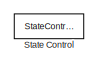
[diagram: h_separate - part 1/7, top center region]
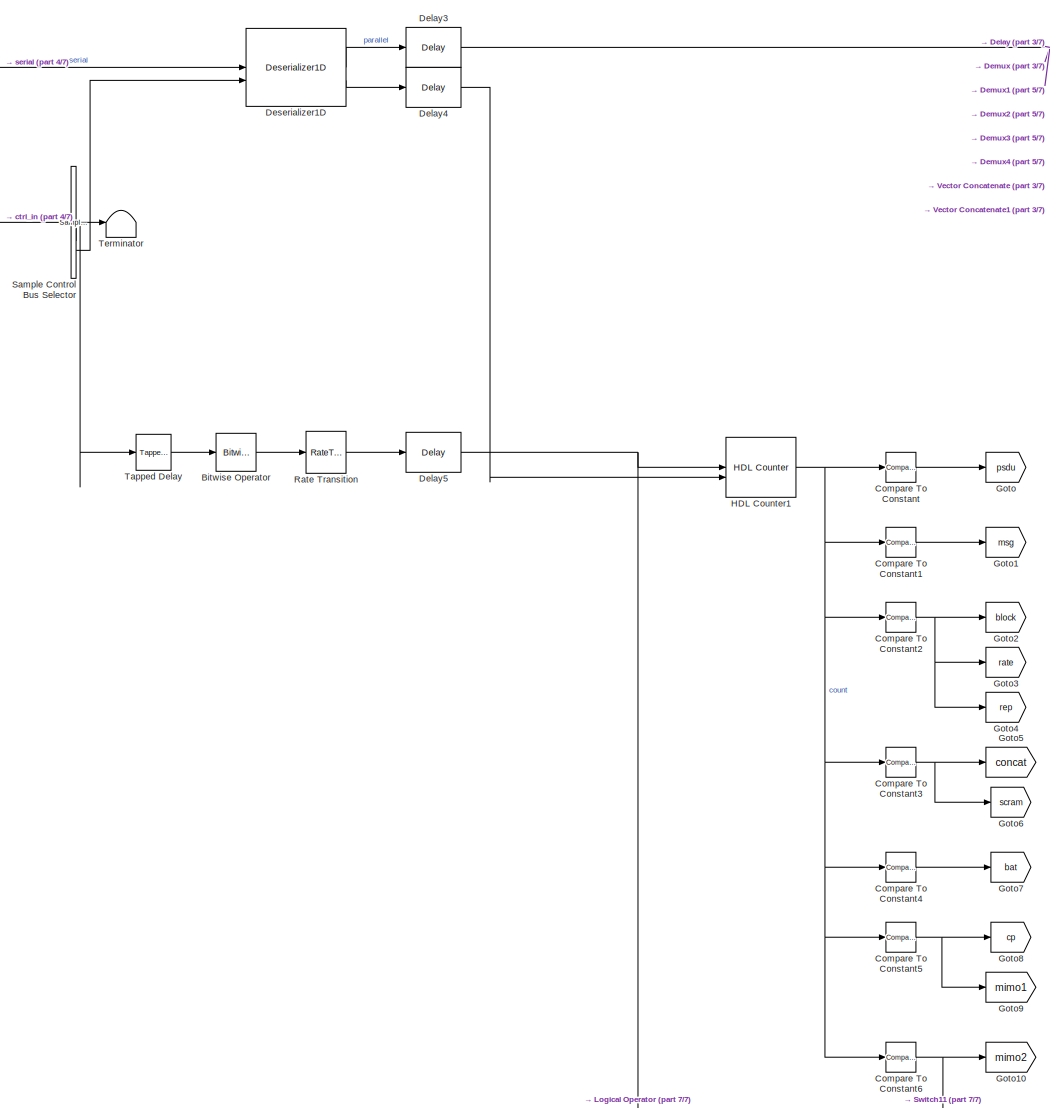
[diagram: h_separate - part 2/7, top left region]
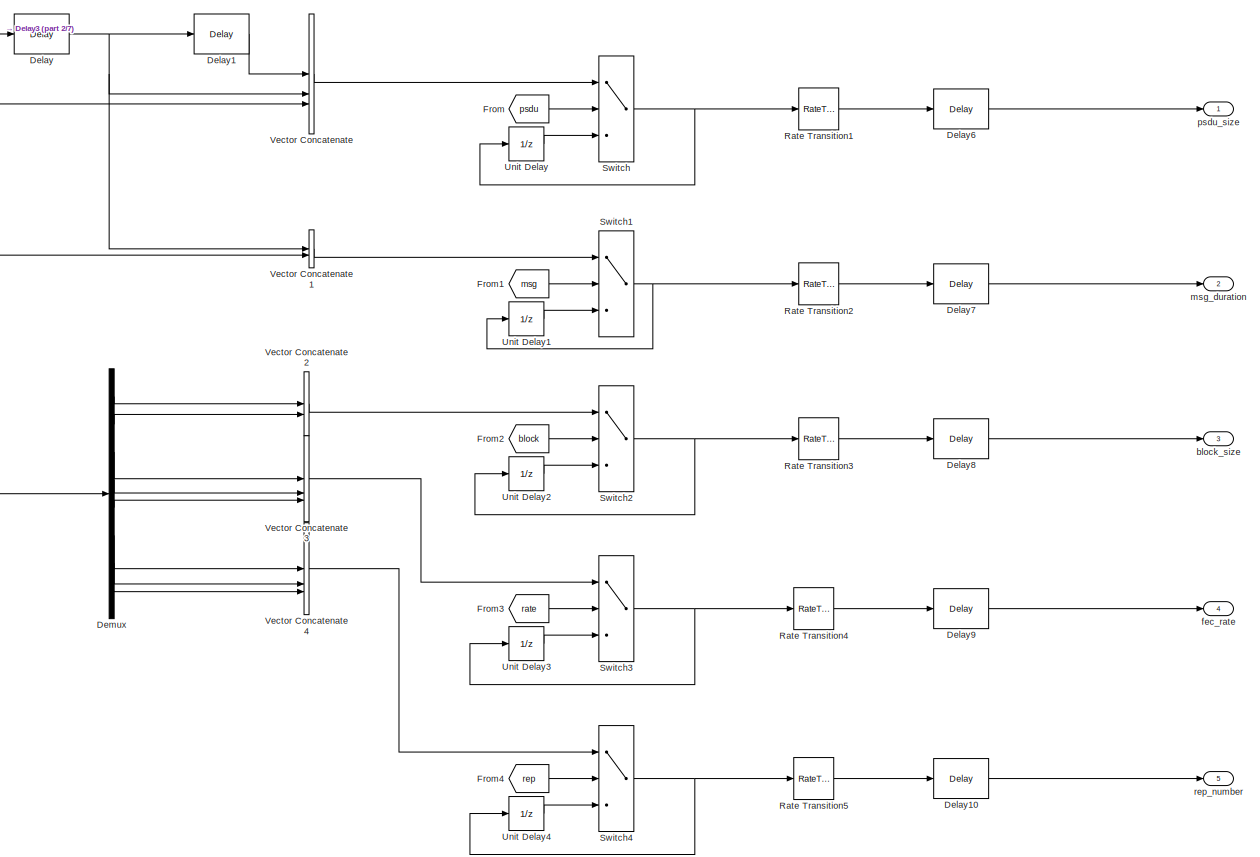
[diagram: h_separate - part 3/7, top right region]
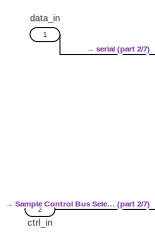
[diagram: h_separate - part 4/7, top left region]
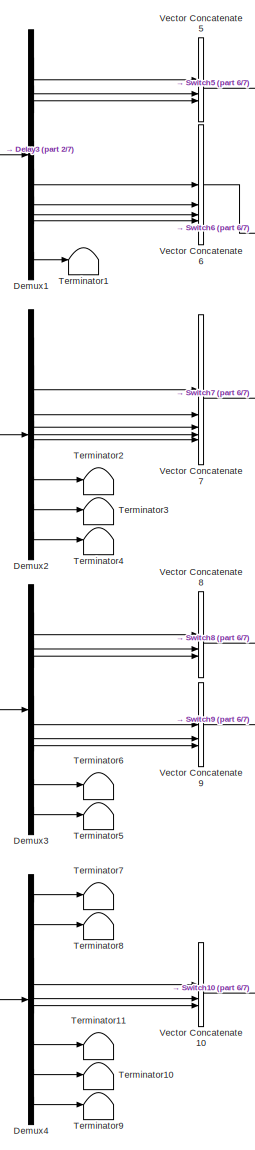
[diagram: h_separate - part 5/7, bottom center region]
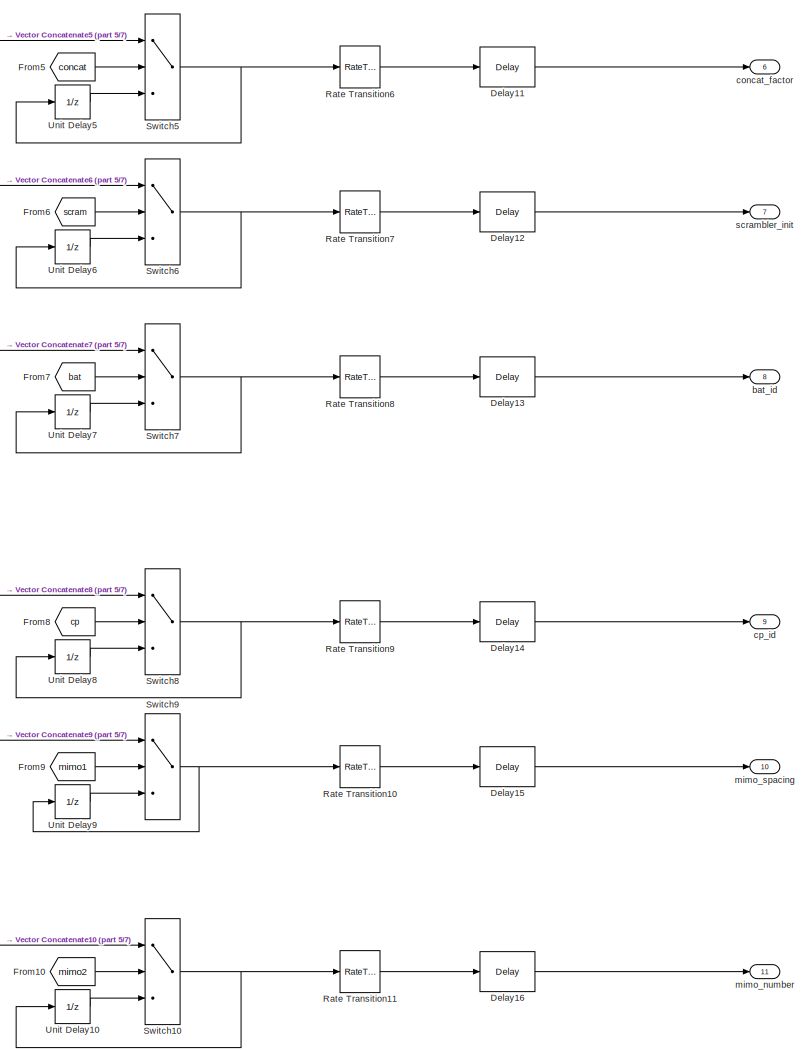
[diagram: h_separate - part 6/7, bottom right region]
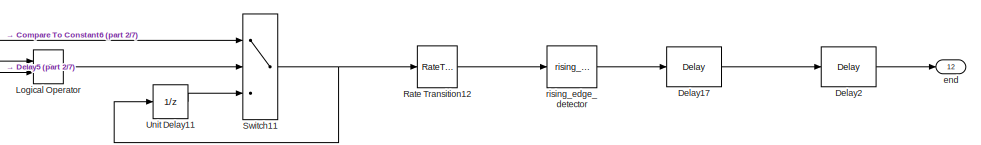
[diagram: h_separate - part 7/7, bottom right region]
BLOCK [SubSystem] h_separate
BLOCK [Reference] h_separate/Bitwise Operator  REF=simulink/Logic and Bit
Operations/Bitwise
Operator
  LibrarySourceBlock = hdlsllib/Logic and Bit\nOperations/Bitwise\nOperator
  SourceBlock = simulink/Logic and Bit\nOperations/Bitwise\nOperator
  SourceType = Bitwise Operator
BLOCK [Reference] h_separate/Compare To Constant  REF=hdlsllib/Logic and Bit
Operations/Compare
To Constant
  SourceBlock = hdlsllib/Logic and Bit\nOperations/Compare\nTo Constant
  SourceType = Compare To Constant
BLOCK [Reference] h_separate/Compare To Constant1  REF=hdlsllib/Logic and Bit
Operations/Compare
To Constant
  SourceBlock = hdlsllib/Logic and Bit\nOperations/Compare\nTo Constant
  SourceType = Compare To Constant
BLOCK [Reference] h_separate/Compare To Constant2  REF=hdlsllib/Logic and Bit
Operations/Compare
To Constant
  SourceBlock = hdlsllib/Logic and Bit\nOperations/Compare\nTo Constant
  SourceType = Compare To Constant
BLOCK [Reference] h_separate/Compare To Constant3  REF=hdlsllib/Logic and Bit
Operations/Compare
To Constant
  SourceBlock = hdlsllib/Logic and Bit\nOperations/Compare\nTo Constant
  SourceType = Compare To Constant
BLOCK [Reference] h_separate/Compare To Constant4  REF=hdlsllib/Logic and Bit
Operations/Compare
To Constant
  SourceBlock = hdlsllib/Logic and Bit\nOperations/Compare\nTo Constant
  SourceType = Compare To Constant
BLOCK [Reference] h_separate/Compare To Constant5  REF=hdlsllib/Logic and Bit
Operations/Compare
To Constant
  SourceBlock = hdlsllib/Logic and Bit\nOperations/Compare\nTo Constant
  SourceType = Compare To Constant
BLOCK [Reference] h_separate/Compare To Constant6  REF=hdlsllib/Logic and Bit
Operations/Compare
To Constant
  SourceBlock = hdlsllib/Logic and Bit\nOperations/Compare\nTo Constant
  SourceType = Compare To Constant
BLOCK [Delay] h_separate/Delay
  DelayLength = 1
  InitialCondition = 0
  InputPortMap = u0
  UseCircularBuffer = on
  UserDataPersistent = on
BLOCK [Delay] h_separate/Delay1
  DelayLength = 1
  InitialCondition = 0
  InputPortMap = u0
  UseCircularBuffer = on
  UserDataPersistent = on
BLOCK [Delay] h_separate/Delay10
  DelayLength = 1
  InitialCondition = 0
  InputPortMap = u0
  UseCircularBuffer = on
  UserDataPersistent = on
BLOCK [Delay] h_separate/Delay11
  DelayLength = 1
  InitialCondition = 0
  InputPortMap = u0
  UseCircularBuffer = on
  UserDataPersistent = on
BLOCK [Delay] h_separate/Delay12
  DelayLength = 1
  InitialCondition = 0
  InputPortMap = u0
  UseCircularBuffer = on
  UserDataPersistent = on
BLOCK [Delay] h_separate/Delay13
  DelayLength = 1
  InitialCondition = 0
  InputPortMap = u0
  UseCircularBuffer = on
  UserDataPersistent = on
BLOCK [Delay] h_separate/Delay14
  DelayLength = 1
  InitialCondition = 0
  InputPortMap = u0
  UseCircularBuffer = on
  UserDataPersistent = on
BLOCK [Delay] h_separate/Delay15
  DelayLength = 1
  InitialCondition = 0
  InputPortMap = u0
  UseCircularBuffer = on
  UserDataPersistent = on
BLOCK [Delay] h_separate/Delay16
  DelayLength = 1
  InitialCondition = 0
  InputPortMap = u0
  UseCircularBuffer = on
  UserDataPersistent = on
BLOCK [Delay] h_separate/Delay17
  DelayLength = 1
  InitialCondition = 0
  InputPortMap = u0
  UseCircularBuffer = on
  UserDataPersistent = on
BLOCK [Delay] h_separate/Delay2
  DelayLength = 1
  InitialCondition = 0
  InputPortMap = u0
  UseCircularBuffer = on
  UserDataPersistent = on
BLOCK [Delay] h_separate/Delay3
  DelayLength = 1
  InitialCondition = 0
  InputPortMap = u0
  UseCircularBuffer = on
  UserDataPersistent = on
BLOCK [Delay] h_separate/Delay4
  DelayLength = 1
  InitialCondition = 0
  InputPortMap = u0
  UseCircularBuffer = on
  UserDataPersistent = on
BLOCK [Delay] h_separate/Delay5
  DelayLength = 1
  InitialCondition = 0
  InputPortMap = u0
  UseCircularBuffer = on
  UserDataPersistent = on
BLOCK [Delay] h_separate/Delay6
  DelayLength = 1
  InitialCondition = 0
  InputPortMap = u0
  UseCircularBuffer = on
  UserDataPersistent = on
BLOCK [Delay] h_separate/Delay7
  DelayLength = 1
  InitialCondition = 0
  InputPortMap = u0
  UseCircularBuffer = on
  UserDataPersistent = on
BLOCK [Delay] h_separate/Delay8
  DelayLength = 1
  InitialCondition = 0
  InputPortMap = u0
  UseCircularBuffer = on
  UserDataPersistent = on
BLOCK [Delay] h_separate/Delay9
  DelayLength = 1
  InitialCondition = 0
  InputPortMap = u0
  UseCircularBuffer = on
  UserDataPersistent = on
BLOCK [Demux] h_separate/Demux
  Outputs = 8
BLOCK [Demux] h_separate/Demux1
  Outputs = 8
BLOCK [Demux] h_separate/Demux2
  Outputs = 8
BLOCK [Demux] h_separate/Demux3
  Outputs = 8
BLOCK [Demux] h_separate/Demux4
  Outputs = 8
BLOCK [Reference] h_separate/Deserializer1D  REF=hdlsllib/HDL Operations/Deserializer1D
  SourceBlock = hdlsllib/HDL Operations/Deserializer1D
  SourceType = Deserializer1D
BLOCK [From] h_separate/From
  GotoTag = psdu
BLOCK [From] h_separate/From1
  GotoTag = msg
BLOCK [From] h_separate/From10
  GotoTag = mimo2
BLOCK [From] h_separate/From2
  GotoTag = block
BLOCK [From] h_separate/From3
  GotoTag = rate
BLOCK [From] h_separate/From4
  GotoTag = rep
BLOCK [From] h_separate/From5
  GotoTag = concat
BLOCK [From] h_separate/From6
  GotoTag = scram
BLOCK [From] h_separate/From7
  GotoTag = bat
BLOCK [From] h_separate/From8
  GotoTag = cp
BLOCK [From] h_separate/From9
  GotoTag = mimo1
BLOCK [Goto] h_separate/Goto
  GotoTag = psdu
BLOCK [Goto] h_separate/Goto1
  GotoTag = msg
BLOCK [Goto] h_separate/Goto10
  GotoTag = mimo2
BLOCK [Goto] h_separate/Goto2
  GotoTag = block
BLOCK [Goto] h_separate/Goto3
  GotoTag = rate
BLOCK [Goto] h_separate/Goto4
  GotoTag = rep
BLOCK [Goto] h_separate/Goto5
  GotoTag = concat
BLOCK [Goto] h_separate/Goto6
  GotoTag = scram
BLOCK [Goto] h_separate/Goto7
  GotoTag = bat
BLOCK [Goto] h_separate/Goto8
  GotoTag = cp
BLOCK [Goto] h_separate/Goto9
  GotoTag = mimo1
BLOCK [Reference] h_separate/HDL Counter1  REF=hdlsllib/Sources/HDL Counter
  SourceBlock = hdlsllib/Sources/HDL Counter
  SourceType = HDL Counter
BLOCK [Logic] h_separate/Logical Operator
  AllPortsSameDT = off
  IconShape = distinctive
  Operator = OR
  OutDataTypeStr = boolean
BLOCK [RateTransition] h_separate/Rate Transition
  OutPortSampleTimeMultiple = 8
  OutPortSampleTimeOpt = Multiple of input port sample time
BLOCK [RateTransition] h_separate/Rate Transition1
  OutPortSampleTime = 1/8
  OutPortSampleTimeMultiple = 1/8
  OutPortSampleTimeOpt = Multiple of input port sample time
BLOCK [RateTransition] h_separate/Rate Transition10
  OutPortSampleTime = 1/8
  OutPortSampleTimeMultiple = 1/8
  OutPortSampleTimeOpt = Multiple of input port sample time
BLOCK [RateTransition] h_separate/Rate Transition11
  OutPortSampleTime = 1/8
  OutPortSampleTimeMultiple = 1/8
  OutPortSampleTimeOpt = Multiple of input port sample time
BLOCK [RateTransition] h_separate/Rate Transition12
  OutPortSampleTime = 1/8
  OutPortSampleTimeMultiple = 1/8
  OutPortSampleTimeOpt = Multiple of input port sample time
BLOCK [RateTransition] h_separate/Rate Transition2
  OutPortSampleTime = 1/8
  OutPortSampleTimeMultiple = 1/8
  OutPortSampleTimeOpt = Multiple of input port sample time
BLOCK [RateTransition] h_separate/Rate Transition3
  OutPortSampleTime = 1/8
  OutPortSampleTimeMultiple = 1/8
  OutPortSampleTimeOpt = Multiple of input port sample time
BLOCK [RateTransition] h_separate/Rate Transition4
  OutPortSampleTime = 1/8
  OutPortSampleTimeMultiple = 1/8
  OutPortSampleTimeOpt = Multiple of input port sample time
BLOCK [RateTransition] h_separate/Rate Transition5
  OutPortSampleTime = 1/8
  OutPortSampleTimeMultiple = 1/8
  OutPortSampleTimeOpt = Multiple of input port sample time
BLOCK [RateTransition] h_separate/Rate Transition6
  OutPortSampleTime = 1/8
  OutPortSampleTimeMultiple = 1/8
  OutPortSampleTimeOpt = Multiple of input port sample time
BLOCK [RateTransition] h_separate/Rate Transition7
  OutPortSampleTime = 1/8
  OutPortSampleTimeMultiple = 1/8
  OutPortSampleTimeOpt = Multiple of input port sample time
BLOCK [RateTransition] h_separate/Rate Transition8
  OutPortSampleTime = 1/8
  OutPortSampleTimeMultiple = 1/8
  OutPortSampleTimeOpt = Multiple of input port sample time
BLOCK [RateTransition] h_separate/Rate Transition9
  OutPortSampleTime = 1/8
  OutPortSampleTimeMultiple = 1/8
  OutPortSampleTimeOpt = Multiple of input port sample time
BLOCK [Reference] h_separate/Sample Control Bus Selector  REF=whdlutilities/Sample Control
Bus Selector
  SourceBlock = whdlutilities/Sample Control\nBus Selector
BLOCK [StateControl] h_separate/State Control
  StateControl = Synchronous
BLOCK [Switch] h_separate/Switch
  Criteria = u2 ~= 0
  InputSameDT = off
  SaturateOnIntegerOverflow = off
BLOCK [Switch] h_separate/Switch1
  Criteria = u2 ~= 0
  InputSameDT = off
  SaturateOnIntegerOverflow = off
BLOCK [Switch] h_separate/Switch10
  Criteria = u2 ~= 0
  InputSameDT = off
  SaturateOnIntegerOverflow = off
BLOCK [Switch] h_separate/Switch11
  Criteria = u2 ~= 0
  InputSameDT = off
  SaturateOnIntegerOverflow = off
BLOCK [Switch] h_separate/Switch2
  Criteria = u2 ~= 0
  InputSameDT = off
  SaturateOnIntegerOverflow = off
BLOCK [Switch] h_separate/Switch3
  Criteria = u2 ~= 0
  InputSameDT = off
  SaturateOnIntegerOverflow = off
BLOCK [Switch] h_separate/Switch4
  Criteria = u2 ~= 0
  InputSameDT = off
  SaturateOnIntegerOverflow = off
BLOCK [Switch] h_separate/Switch5
  Criteria = u2 ~= 0
  InputSameDT = off
  SaturateOnIntegerOverflow = off
BLOCK [Switch] h_separate/Switch6
  Criteria = u2 ~= 0
  InputSameDT = off
  SaturateOnIntegerOverflow = off
BLOCK [Switch] h_separate/Switch7
  Criteria = u2 ~= 0
  InputSameDT = off
  SaturateOnIntegerOverflow = off
BLOCK [Switch] h_separate/Switch8
  Criteria = u2 ~= 0
  InputSameDT = off
  SaturateOnIntegerOverflow = off
BLOCK [Switch] h_separate/Switch9
  Criteria = u2 ~= 0
  InputSameDT = off
  SaturateOnIntegerOverflow = off
BLOCK [Reference] h_separate/Tapped Delay  REF=simulink/Discrete/Tapped Delay
  LibrarySourceBlock = hdlsllib/Discrete/Tapped Delay
  SourceBlock = simulink/Discrete/Tapped Delay
  SourceType = Tapped Delay Line
BLOCK [Terminator] h_separate/Terminator
BLOCK [Terminator] h_separate/Terminator1
BLOCK [Terminator] h_separate/Terminator10
BLOCK [Terminator] h_separate/Terminator11
BLOCK [Terminator] h_separate/Terminator2
BLOCK [Terminator] h_separate/Terminator3
BLOCK [Terminator] h_separate/Terminator4
BLOCK [Terminator] h_separate/Terminator5
BLOCK [Terminator] h_separate/Terminator6
BLOCK [Terminator] h_separate/Terminator7
BLOCK [Terminator] h_separate/Terminator8
BLOCK [Terminator] h_separate/Terminator9
BLOCK [UnitDelay] h_separate/Unit Delay
  HasFrameUpgradeWarning = on
  SampleTime = -1
BLOCK [UnitDelay] h_separate/Unit Delay1
  HasFrameUpgradeWarning = on
  SampleTime = -1
BLOCK [UnitDelay] h_separate/Unit Delay10
  HasFrameUpgradeWarning = on
  SampleTime = -1
BLOCK [UnitDelay] h_separate/Unit Delay11
  HasFrameUpgradeWarning = on
  SampleTime = -1
BLOCK [UnitDelay] h_separate/Unit Delay2
  HasFrameUpgradeWarning = on
  SampleTime = -1
BLOCK [UnitDelay] h_separate/Unit Delay3
  HasFrameUpgradeWarning = on
  SampleTime = -1
BLOCK [UnitDelay] h_separate/Unit Delay4
  HasFrameUpgradeWarning = on
  SampleTime = -1
BLOCK [UnitDelay] h_separate/Unit Delay5
  HasFrameUpgradeWarning = on
  SampleTime = -1
BLOCK [UnitDelay] h_separate/Unit Delay6
  HasFrameUpgradeWarning = on
  SampleTime = -1
BLOCK [UnitDelay] h_separate/Unit Delay7
  HasFrameUpgradeWarning = on
  SampleTime = -1
BLOCK [UnitDelay] h_separate/Unit Delay8
  HasFrameUpgradeWarning = on
  SampleTime = -1
BLOCK [UnitDelay] h_separate/Unit Delay9
  HasFrameUpgradeWarning = on
  SampleTime = -1
BLOCK [Concatenate] h_separate/Vector Concatenate
  NumInputs = 3
BLOCK [Concatenate] h_separate/Vector Concatenate1
BLOCK [Concatenate] h_separate/Vector Concatenate10
  NumInputs = 3
BLOCK [Concatenate] h_separate/Vector Concatenate2
BLOCK [Concatenate] h_separate/Vector Concatenate3
  NumInputs = 3
BLOCK [Concatenate] h_separate/Vector Concatenate4
  NumInputs = 3
BLOCK [Concatenate] h_separate/Vector Concatenate5
  NumInputs = 3
BLOCK [Concatenate] h_separate/Vector Concatenate6
  NumInputs = 4
BLOCK [Concatenate] h_separate/Vector Concatenate7
  NumInputs = 5
BLOCK [Concatenate] h_separate/Vector Concatenate8
  NumInputs = 3
BLOCK [Concatenate] h_separate/Vector Concatenate9
  NumInputs = 3
BLOCK [Outport] h_separate/bat_id
  Port = 8
BLOCK [Outport] h_separate/block_size
  Port = 3
BLOCK [Outport] h_separate/concat_factor
  Port = 6
BLOCK [Outport] h_separate/cp_id
  Port = 9
BLOCK [Inport] h_separate/ctrl_in
  Port = 2
BLOCK [Inport] h_separate/data_in
BLOCK [Outport] h_separate/end
  Port = 12
  VectorParamsAs1DForOutWhenUnconnected = off
BLOCK [Outport] h_separate/fec_rate
  Port = 4
BLOCK [Outport] h_separate/mimo_number
  Port = 11
BLOCK [Outport] h_separate/mimo_spacing
  Port = 10
BLOCK [Outport] h_separate/msg_duration
  Port = 2
BLOCK [Outport] h_separate/psdu_size
BLOCK [Outport] h_separate/rep_number
  Port = 5
BLOCK [Reference] h_separate/rising_edge_detector  REF=$bdroot/rising_edge_detector
  SourceBlock = $bdroot/rising_edge_detector
  SourceType = SubSystem
BLOCK [Outport] h_separate/scrambler_init
  Port = 7
BLOCK [SubSystem] header_fec
BLOCK [Delay] header_fec/Delay
  DelayLength = 1
  InitialCondition = 0
  InputPortMap = u0
  UseCircularBuffer = on
  UserDataPersistent = on
BLOCK [Delay] header_fec/Delay1
  DelayLength = 1
  InitialCondition = 0
  InputPortMap = u0
  UseCircularBuffer = on
  UserDataPersistent = on
BLOCK [Delay] header_fec/Delay2
  DelayLength = 1
  InitialCondition = 0
  InputPortMap = u0
  UseCircularBuffer = on
  UserDataPersistent = on
BLOCK [Delay] header_fec/Delay3
  DelayLength = 1
  InitialCondition = 0
  InputPortMap = u0
  UseCircularBuffer = on
  UserDataPersistent = on
BLOCK [Reference] header_fec/Hc_12H_B14  REF=whdledac/LDPC Encoder
  SourceBlock = whdledac/LDPC Encoder
  SourceType = LDPC Encoder
BLOCK [StateControl] header_fec/State Control
  StateControl = Synchronous
BLOCK [Terminator] header_fec/Terminator
BLOCK [Inport] header_fec/ctrl_in
  Port = 2
BLOCK [Outport] header_fec/ctrl_out
  Port = 2
BLOCK [Inport] header_fec/data_in
BLOCK [Outport] header_fec/data_out
BLOCK [SubSystem] header_full
  LibrarySourceBlock = hdlsllib/Ports &\nSubsystems/Subsystem
  TreatAsAtomicUnit = on
BLOCK [StateControl] header_full/State Control
  StateControl = Synchronous
BLOCK [Inport] header_full/bat_id
  Port = 9
BLOCK [Inport] header_full/block_size
  Port = 4
BLOCK [Inport] header_full/concat_factor
  Port = 7
BLOCK [Inport] header_full/cp_id
  Port = 10
BLOCK [Outport] header_full/ctrl_out
  Port = 2
  VectorParamsAs1DForOutWhenUnconnected = off
BLOCK [Inport] header_full/fec_rate
  Port = 5
BLOCK [Reference] header_full/h_crc  REF=$bdroot/h_crc
  SourceBlock = $bdroot/h_crc
  SourceType = SubSystem
BLOCK [Reference] header_full/h_gen  REF=$bdroot/h_gen
  SourceBlock = $bdroot/h_gen
  SourceType = SubSystem
BLOCK [Reference] header_full/h_repetition  REF=$bdroot/h_repetition
  SourceBlock = $bdroot/h_repetition
  SourceType = SubSystem
BLOCK [Reference] header_full/h_scrambler  REF=$bdroot/h_scrambler
  LibrarySourceBlock = hdlsllib/Ports &\nSubsystems/Subsystem
  SourceBlock = $bdroot/h_scrambler
  SourceType = SubSystem
BLOCK [Outport] header_full/header
  VectorParamsAs1DForOutWhenUnconnected = off
BLOCK [Reference] header_full/header_fec  REF=$bdroot/header_fec
  SourceBlock = $bdroot/header_fec
  SourceType = SubSystem
BLOCK [Inport] header_full/mimo_number
  Port = 12
BLOCK [Inport] header_full/mimo_spacing
  Port = 11
BLOCK [Inport] header_full/msg_duration
  Port = 3
BLOCK [Inport] header_full/new_frame
BLOCK [Inport] header_full/psdu_size
  Port = 2
BLOCK [Inport] header_full/rep_number
  Port = 6
BLOCK [Inport] header_full/scrambler_init
  Port = 8
BLOCK [SubSystem] interpolator
BLOCK [Delay] interpolator/Delay
  DelayLength = 1
  InitialCondition = 0
  InputPortMap = u0
  UseCircularBuffer = on
  UserDataPersistent = on
BLOCK [Delay] interpolator/Delay1
  DelayLength = CONST.txInterpolatorDelay
  InitialCondition = 0
  InputPortMap = u0
  UseCircularBuffer = on
  UserDataPersistent = on
BLOCK [Delay] interpolator/Delay10
  DelayLength = 1
  InitialCondition = 0
  InputPortMap = u0
  UseCircularBuffer = on
  UserDataPersistent = on
BLOCK [Delay] interpolator/Delay11
  DelayLength = 1
  InitialCondition = 0
  InputPortMap = u0
  UseCircularBuffer = on
  UserDataPersistent = on
BLOCK [Delay] interpolator/Delay14
  DelayLength = 1
  InitialCondition = 0
  InputPortMap = u0
  UseCircularBuffer = on
  UserDataPersistent = on
BLOCK [Delay] interpolator/Delay15
  DelayLength = 1
  InitialCondition = 0
  InputPortMap = u0
  UseCircularBuffer = on
  UserDataPersistent = on
BLOCK [Delay] interpolator/Delay16
  DelayLength = CONST.txInterpolatorDelay*(CONST.txL-1)
  InitialCondition = 0
  InputPortMap = u0
  UseCircularBuffer = on
  UserDataPersistent = on
BLOCK [Delay] interpolator/Delay17
  DelayLength = CONST.txInterpolatorDelay*(CONST.txL-1)
  InitialCondition = 0
  InputPortMap = u0
  UseCircularBuffer = on
  UserDataPersistent = on
BLOCK [Delay] interpolator/Delay18
  DelayLength = 1
  InitialCondition = 0
  InputPortMap = u0
  UseCircularBuffer = on
  UserDataPersistent = on
BLOCK [Delay] interpolator/Delay2
  InitialCondition = 0
  InputPortMap = u0
  UseCircularBuffer = on
  UserDataPersistent = on
BLOCK [Delay] interpolator/Delay3
  DelayLength = CONST.txInterpolatorDelay
  InitialCondition = 0
  InputPortMap = u0
  UseCircularBuffer = on
  UserDataPersistent = on
BLOCK [Delay] interpolator/Delay4
  DelayLength = 1
  InitialCondition = 0
  InputPortMap = u0
  UseCircularBuffer = on
  UserDataPersistent = on
BLOCK [Delay] interpolator/Delay5
  InitialCondition = 0
  InputPortMap = u0
  UseCircularBuffer = on
  UserDataPersistent = on
BLOCK [Delay] interpolator/Delay6
  DelayLength = 1
  InitialCondition = 0
  InputPortMap = u0
  UseCircularBuffer = on
  UserDataPersistent = on
BLOCK [Delay] interpolator/Delay7
  DelayLength = 1
  InitialCondition = 0
  InputPortMap = u0
  UseCircularBuffer = on
  UserDataPersistent = on
BLOCK [Delay] interpolator/Delay8
  DelayLength = 1
  InitialCondition = 0
  InputPortMap = u0
  UseCircularBuffer = on
  UserDataPersistent = on
BLOCK [Delay] interpolator/Delay9
  DelayLength = 1
  InitialCondition = 0
  InputPortMap = u0
  UseCircularBuffer = on
  UserDataPersistent = on
BLOCK [Reference] interpolator/FIR Interpolator  REF=dsphdlfiltering2/FIR Interpolator
  SourceBlock = dsphdlfiltering2/FIR Interpolator
  SourceType = FIR Interpolator
BLOCK [Reference] interpolator/HDL Counter  REF=hdlsllib/Sources/HDL Counter
  SourceBlock = hdlsllib/Sources/HDL Counter
  SourceType = HDL Counter
BLOCK [Logic] interpolator/Logical Operator
  AllPortsSameDT = off
  IconShape = distinctive
  Operator = OR
  OutDataTypeStr = boolean
BLOCK [Logic] interpolator/Logical Operator1
  AllPortsSameDT = off
  IconShape = distinctive
  OutDataTypeStr = boolean
BLOCK [Logic] interpolator/Logical Operator2
  AllPortsSameDT = off
  OutDataTypeStr = boolean
BLOCK [Logic] interpolator/Logical Operator3
  AllPortsSameDT = off
  Operator = NOT
  OutDataTypeStr = boolean
BLOCK [Logic] interpolator/Logical Operator4
  AllPortsSameDT = off
  Operator = OR
  OutDataTypeStr = boolean
BLOCK [StateControl] interpolator/State Control
  StateControl = Synchronous
BLOCK [Switch] interpolator/Switch
  Criteria = u2 ~= 0
  InputSameDT = off
  SaturateOnIntegerOverflow = off
BLOCK [Terminator] interpolator/Terminator
BLOCK [Terminator] interpolator/Terminator1
BLOCK [UnitDelay] interpolator/Unit Delay
  HasFrameUpgradeWarning = on
  SampleTime = -1
BLOCK [Reference] interpolator/Upsample  REF=dspsigops/Upsample
  LibrarySourceBlock = dsphdlsupportsigops/Upsample
  SourceBlock = dspsigops/Upsample
  SourceType = Upsample
  UserDataPersistent = on
BLOCK [Reference] interpolator/Upsample1  REF=dspsigops/Upsample
  LibrarySourceBlock = dsphdlsupportsigops/Upsample
  SourceBlock = dspsigops/Upsample
  SourceType = Upsample
  UserDataPersistent = on
BLOCK [Inport] interpolator/data_in
BLOCK [Outport] interpolator/data_out
  VectorParamsAs1DForOutWhenUnconnected = off
BLOCK [Reference] interpolator/falling_edge_detector  REF=$bdroot/falling_edge_detector
  SourceBlock = $bdroot/falling_edge_detector
  SourceType = SubSystem
BLOCK [Inport] interpolator/valid_in
  Port = 2
BLOCK [Outport] interpolator/valid_out
  Port = 2
  VectorParamsAs1DForOutWhenUnconnected = off
BLOCK [SubSystem] ldpc_encoder
BLOCK [Reference] ldpc_encoder/Bit Concat  REF=hdlsllib/Logic and Bit
Operations/Bit Concat
  SourceBlock = hdlsllib/Logic and Bit\nOperations/Bit Concat
  SourceType = Bit Concat
BLOCK [Reference] ldpc_encoder/Deco_3a8  REF=$bdroot/Deco_3a8
  SourceBlock = $bdroot/Deco_3a8
  SourceType = SubSystem
BLOCK [From] ldpc_encoder/From
  GotoTag = m0
BLOCK [From] ldpc_encoder/From1
  GotoTag = m1
BLOCK [From] ldpc_encoder/From10
  GotoTag = ctrl_in
BLOCK [From] ldpc_encoder/From11
  GotoTag = ctrl_in
BLOCK [From] ldpc_encoder/From12
  GotoTag = ctrl_in
BLOCK [From] ldpc_encoder/From13
  GotoTag = data_in
BLOCK [From] ldpc_encoder/From14
  GotoTag = data_in
BLOCK [From] ldpc_encoder/From15
  GotoTag = data_in
BLOCK [From] ldpc_encoder/From16
  GotoTag = data_in
BLOCK [From] ldpc_encoder/From17
  GotoTag = data_in
BLOCK [From] ldpc_encoder/From18
  GotoTag = data_in
BLOCK [From] ldpc_encoder/From19
  GotoTag = d0
BLOCK [From] ldpc_encoder/From2
  GotoTag = m2
BLOCK [From] ldpc_encoder/From20
  GotoTag = d1
BLOCK [From] ldpc_encoder/From21
  GotoTag = d2
BLOCK [From] ldpc_encoder/From22
  GotoTag = d3
BLOCK [From] ldpc_encoder/From23
  GotoTag = d4
BLOCK [From] ldpc_encoder/From24
  GotoTag = d5
BLOCK [From] ldpc_encoder/From25
  GotoTag = n0
BLOCK [From] ldpc_encoder/From26
  GotoTag = n1
BLOCK [From] ldpc_encoder/From27
  GotoTag = n2
BLOCK [From] ldpc_encoder/From28
  GotoTag = n3
BLOCK [From] ldpc_encoder/From29
  GotoTag = n4
BLOCK [From] ldpc_encoder/From3
  GotoTag = mux
BLOCK [From] ldpc_encoder/From30
  GotoTag = n5
BLOCK [From] ldpc_encoder/From31
  GotoTag = mux
BLOCK [From] ldpc_encoder/From4
  GotoTag = mux
BLOCK [From] ldpc_encoder/From5
  GotoTag = mux
BLOCK [From] ldpc_encoder/From6
  GotoTag = mux
BLOCK [From] ldpc_encoder/From7
  GotoTag = ctrl_in
BLOCK [From] ldpc_encoder/From8
  GotoTag = ctrl_in
BLOCK [From] ldpc_encoder/From9
  GotoTag = ctrl_in
BLOCK [Goto] ldpc_encoder/Goto
  GotoTag = m1
BLOCK [Goto] ldpc_encoder/Goto1
  GotoTag = m2
BLOCK [Goto] ldpc_encoder/Goto10
  GotoTag = d4
BLOCK [Goto] ldpc_encoder/Goto11
  GotoTag = d5
BLOCK [Goto] ldpc_encoder/Goto12
  GotoTag = n0
BLOCK [Goto] ldpc_encoder/Goto13
  GotoTag = n1
BLOCK [Goto] ldpc_encoder/Goto14
  GotoTag = n2
BLOCK [Goto] ldpc_encoder/Goto15
  GotoTag = n3
BLOCK [Goto] ldpc_encoder/Goto16
  GotoTag = n4
BLOCK [Goto] ldpc_encoder/Goto17
  GotoTag = n5
BLOCK [Goto] ldpc_encoder/Goto2
  GotoTag = m0
BLOCK [Goto] ldpc_encoder/Goto3
  GotoTag = mux
BLOCK [Goto] ldpc_encoder/Goto4
  GotoTag = ctrl_in
BLOCK [Goto] ldpc_encoder/Goto5
  GotoTag = data_in
BLOCK [Goto] ldpc_encoder/Goto6
  GotoTag = d0
BLOCK [Goto] ldpc_encoder/Goto7
  GotoTag = d1
BLOCK [Goto] ldpc_encoder/Goto8
  GotoTag = d2
BLOCK [Goto] ldpc_encoder/Goto9
  GotoTag = d3
BLOCK [Constant] ldpc_encoder/Ground
  OutDataTypeStr = Inherit: Inherit via back propagation
  SampleTime = -1
  Value = 0
BLOCK [Constant] ldpc_encoder/Ground1
  OutDataTypeStr = Inherit: Inherit via back propagation
  SampleTime = -1
  Value = 0
BLOCK [Constant] ldpc_encoder/Ground10
  OutDataTypeStr = Inherit: Inherit via back propagation
  SampleTime = -1
  Value = 0
BLOCK [Constant] ldpc_encoder/Ground2
  OutDataTypeStr = Inherit: Inherit via back propagation
  SampleTime = -1
  Value = 0
BLOCK [Constant] ldpc_encoder/Ground3
  OutDataTypeStr = Inherit: Inherit via back propagation
  SampleTime = -1
  Value = 0
BLOCK [Reference] ldpc_encoder/Hc_12L-B360  REF=whdledac/LDPC Encoder
  SourceBlock = whdledac/LDPC Encoder
  SourceType = LDPC Encoder
BLOCK [Reference] ldpc_encoder/Hc_12S-B80  REF=whdledac/LDPC Encoder
  SourceBlock = whdledac/LDPC Encoder
  SourceType = LDPC Encoder
BLOCK [Reference] ldpc_encoder/Hc_23L-B270  REF=whdledac/LDPC Encoder
  SourceBlock = whdledac/LDPC Encoder
  SourceType = LDPC Encoder
BLOCK [Reference] ldpc_encoder/Hc_23S-B60  REF=whdledac/LDPC Encoder
  SourceBlock = whdledac/LDPC Encoder
  SourceType = LDPC Encoder
BLOCK [Reference] ldpc_encoder/Hc_56L-B216  REF=whdledac/LDPC Encoder
  SourceBlock = whdledac/LDPC Encoder
  SourceType = LDPC Encoder
BLOCK [Reference] ldpc_encoder/Hc_56S-B48  REF=whdledac/LDPC Encoder
  SourceBlock = whdledac/LDPC Encoder
  SourceType = LDPC Encoder
BLOCK [MultiPortSwitch] ldpc_encoder/Multiport Switch
  DataPortForDefault = Additional data port
  DataPortOrder = Zero-based contiguous
  DiagnosticForDefault = None
  InputSameDT = off
  Inputs = 6
  SaturateOnIntegerOverflow = off
  zeroidx = on
BLOCK [MultiPortSwitch] ldpc_encoder/Multiport Switch1
  DataPortForDefault = Additional data port
  DataPortOrder = Zero-based contiguous
  DiagnosticForDefault = None
  InputSameDT = off
  Inputs = 6
  SaturateOnIntegerOverflow = off
  zeroidx = on
BLOCK [MultiPortSwitch] ldpc_encoder/Multiport Switch2
  DataPortForDefault = Additional data port
  DataPortOrder = Zero-based contiguous
  DiagnosticForDefault = None
  InputSameDT = off
  Inputs = 6
  SaturateOnIntegerOverflow = off
  zeroidx = on
BLOCK [MultiPortSwitch] ldpc_encoder/Multiport Switch3
  DataPortForDefault = Additional data port
  DataPortOrder = Zero-based contiguous
  DiagnosticForDefault = None
  InputSameDT = off
  Inputs = 6
  SaturateOnIntegerOverflow = off
  zeroidx = on
BLOCK [MultiPortSwitch] ldpc_encoder/Multiport Switch4
  DataPortForDefault = Additional data port
  DataPortOrder = Zero-based contiguous
  DiagnosticForDefault = None
  InputSameDT = off
  Inputs = 6
  SaturateOnIntegerOverflow = off
  zeroidx = on
BLOCK [Reference] ldpc_encoder/Sample Control Bus Creator  REF=whdlutilities/Sample Control
Bus Creator
  SourceBlock = whdlutilities/Sample Control\nBus Creator
  SourceType = Sample Control Bus Creator
BLOCK [Reference] ldpc_encoder/Sample Control Bus Selector  REF=whdlutilities/Sample Control
Bus Selector
  SourceBlock = whdlutilities/Sample Control\nBus Selector
BLOCK [Reference] ldpc_encoder/Sample Control Bus Selector1  REF=whdlutilities/Sample Control
Bus Selector
  SourceBlock = whdlutilities/Sample Control\nBus Selector
BLOCK [Reference] ldpc_encoder/Sample Control Bus Selector2  REF=whdlutilities/Sample Control
Bus Selector
  SourceBlock = whdlutilities/Sample Control\nBus Selector
BLOCK [Reference] ldpc_encoder/Sample Control Bus Selector3  REF=whdlutilities/Sample Control
Bus Selector
  SourceBlock = whdlutilities/Sample Control\nBus Selector
BLOCK [Reference] ldpc_encoder/Sample Control Bus Selector4  REF=whdlutilities/Sample Control
Bus Selector
  SourceBlock = whdlutilities/Sample Control\nBus Selector
BLOCK [Reference] ldpc_encoder/Sample Control Bus Selector5  REF=whdlutilities/Sample Control
Bus Selector
  SourceBlock = whdlutilities/Sample Control\nBus Selector
BLOCK [Switch] ldpc_encoder/Switch
  Criteria = u2 ~= 0
  InputSameDT = off
  OutDataTypeStr = Inherit: Same as first input
  SaturateOnIntegerOverflow = off
BLOCK [Switch] ldpc_encoder/Switch1
  Criteria = u2 ~= 0
  InputSameDT = off
  OutDataTypeStr = Inherit: Same as first input
  SaturateOnIntegerOverflow = off
BLOCK [Switch] ldpc_encoder/Switch2
  Criteria = u2 ~= 0
  InputSameDT = off
  OutDataTypeStr = Inherit: Same as first input
  SaturateOnIntegerOverflow = off
BLOCK [Switch] ldpc_encoder/Switch3
  Criteria = u2 ~= 0
  InputSameDT = off
  OutDataTypeStr = Inherit: Same as first input
  SaturateOnIntegerOverflow = off
BLOCK [Switch] ldpc_encoder/Switch4
  Criteria = u2 ~= 0
  InputSameDT = off
  OutDataTypeStr = Inherit: Same as first input
  SaturateOnIntegerOverflow = off
BLOCK [Switch] ldpc_encoder/Switch5
  Criteria = u2 ~= 0
  InputSameDT = off
  OutDataTypeStr = Inherit: Same as first input
  SaturateOnIntegerOverflow = off
BLOCK [Terminator] ldpc_encoder/Terminator1
BLOCK [Terminator] ldpc_encoder/Terminator2
BLOCK [Inport] ldpc_encoder/block_size
  Port = 4
BLOCK [Inport] ldpc_encoder/code_rate
  Port = 3
BLOCK [Inport] ldpc_encoder/ctrl_in
  Port = 2
BLOCK [Outport] ldpc_encoder/ctrl_out
  Port = 2
BLOCK [Inport] ldpc_encoder/data_in
BLOCK [Outport] ldpc_encoder/data_out
BLOCK [Reference] ldpc_encoder/gnd_ctrl  REF=$bdroot/gnd_ctrl
  SourceBlock = $bdroot/gnd_ctrl
  SourceType = SubSystem
BLOCK [Reference] ldpc_encoder/gnd_ctrl1  REF=$bdroot/gnd_ctrl
  SourceBlock = $bdroot/gnd_ctrl
  SourceType = SubSystem
BLOCK [Reference] ldpc_encoder/gnd_ctrl2  REF=$bdroot/gnd_ctrl
  SourceBlock = $bdroot/gnd_ctrl
  SourceType = SubSystem
BLOCK [Reference] ldpc_encoder/gnd_ctrl3  REF=$bdroot/gnd_ctrl
  SourceBlock = $bdroot/gnd_ctrl
  SourceType = SubSystem
BLOCK [Reference] ldpc_encoder/gnd_ctrl4  REF=$bdroot/gnd_ctrl
  SourceBlock = $bdroot/gnd_ctrl
  SourceType = SubSystem
BLOCK [Reference] ldpc_encoder/gnd_ctrl5  REF=$bdroot/gnd_ctrl
  SourceBlock = $bdroot/gnd_ctrl
  SourceType = SubSystem
BLOCK [Outport] ldpc_encoder/next_frame
  Port = 3
BLOCK [SubSystem] ldpc_encoder/output_selector
BLOCK [Reference] ldpc_encoder/output_selector/Buffer1  REF=$bdroot/Buffer
  SourceBlock = $bdroot/Buffer
  SourceType = SubSystem
BLOCK [Demux] ldpc_encoder/output_selector/Demux2
  Outputs = 2
BLOCK [Demux] ldpc_encoder/output_selector/Demux3
  Outputs = 3
BLOCK [Logic] ldpc_encoder/output_selector/Logical Operator3
  AllPortsSameDT = off
  IconShape = distinctive
  OutDataTypeStr = boolean
BLOCK [Logic] ldpc_encoder/output_selector/Logical Operator5
  AllPortsSameDT = off
  IconShape = distinctive
  Operator = OR
  OutDataTypeStr = boolean
BLOCK [Logic] ldpc_encoder/output_selector/Logical Operator6
  AllPortsSameDT = off
  IconShape = distinctive
  OutDataTypeStr = boolean
BLOCK [Logic] ldpc_encoder/output_selector/Logical Operator7
  AllPortsSameDT = off
  IconShape = distinctive
  Operator = NOT
  OutDataTypeStr = boolean
BLOCK [Terminator] ldpc_encoder/output_selector/Terminator1
BLOCK [Inport] ldpc_encoder/output_selector/blockSize
  Port = 2
BLOCK [Inport] ldpc_encoder/output_selector/codeRate
BLOCK [Outport] ldpc_encoder/output_selector/m0
  Port = 3
  VectorParamsAs1DForOutWhenUnconnected = off
BLOCK [Outport] ldpc_encoder/output_selector/m1
  Port = 2
  VectorParamsAs1DForOutWhenUnconnected = off
BLOCK [Outport] ldpc_encoder/output_selector/m2
  VectorParamsAs1DForOutWhenUnconnected = off
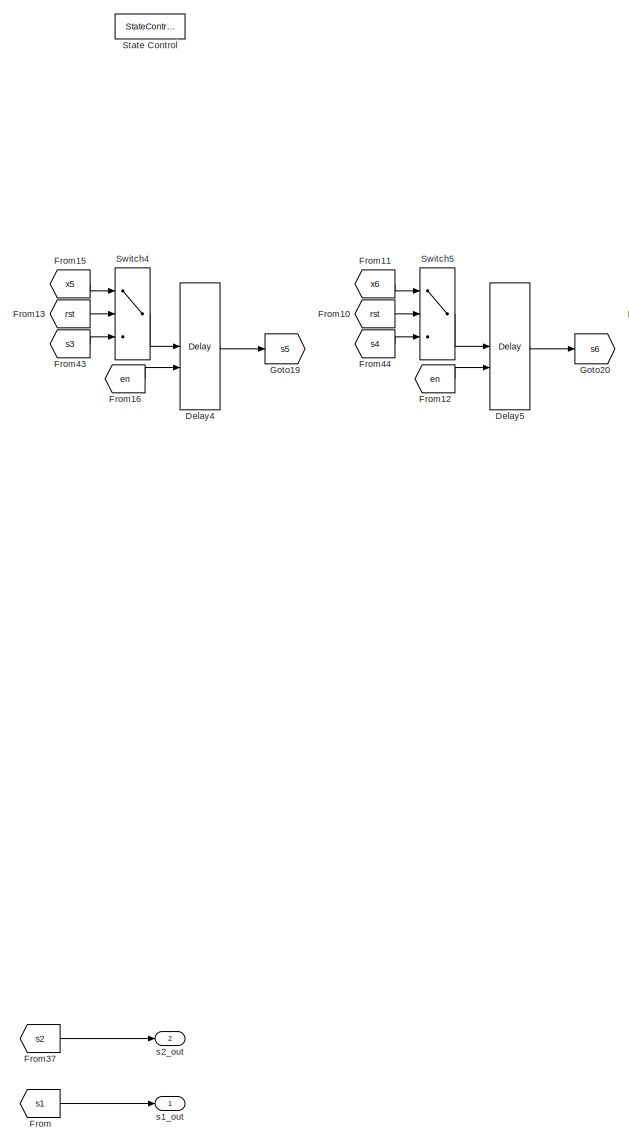
[diagram: lfsr_const_scrambler - part 1/5, center side, full height]
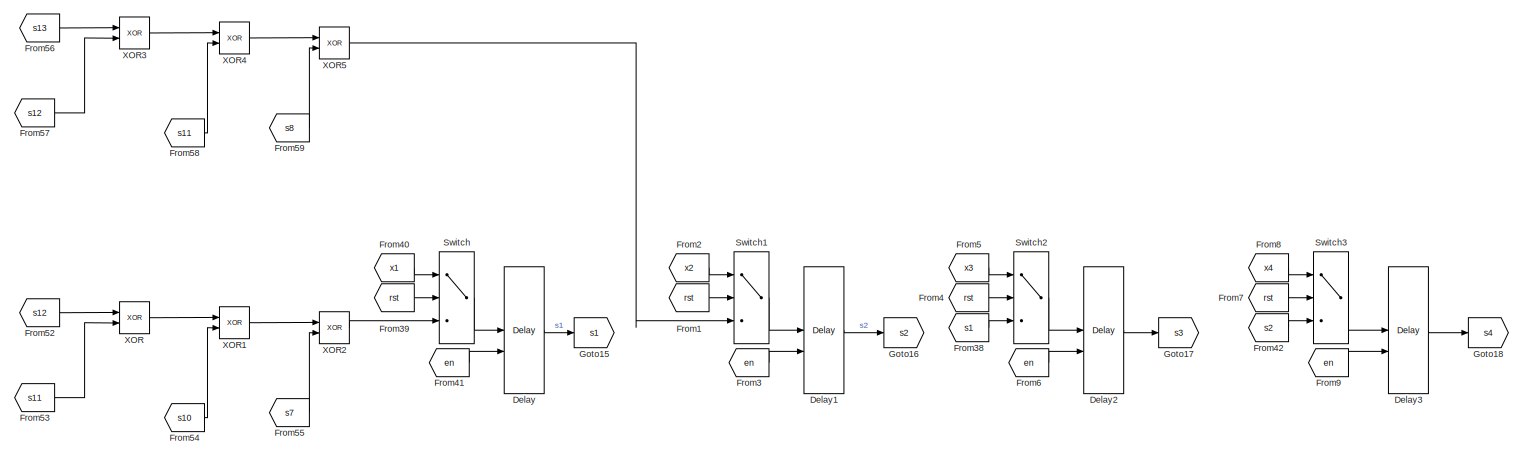
[diagram: lfsr_const_scrambler - part 2/5, top left region]
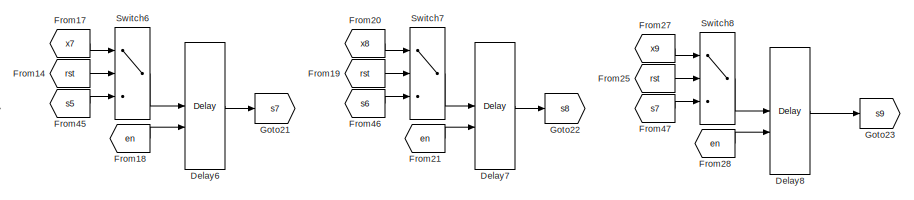
[diagram: lfsr_const_scrambler - part 3/5, top center region]
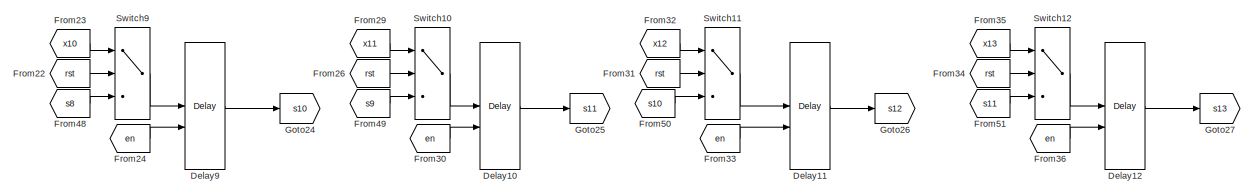
[diagram: lfsr_const_scrambler - part 4/5, top right region]
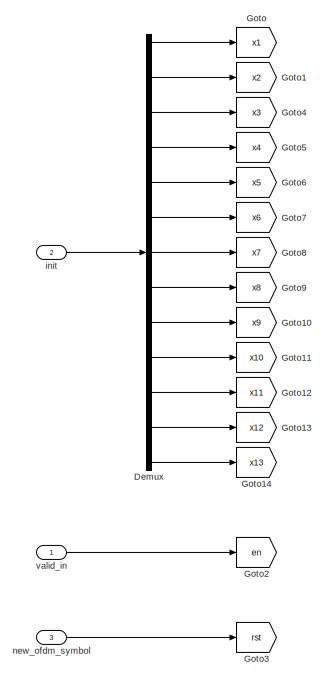
[diagram: lfsr_const_scrambler - part 5/5, bottom left region]
BLOCK [SubSystem] lfsr_const_scrambler
BLOCK [Delay] lfsr_const_scrambler/Delay
  DelayLength = 1
  InitialCondition = 0
  InputPortMap = u0,e6
  ShowEnablePort = on
  UseCircularBuffer = on
  UserDataPersistent = on
BLOCK [Delay] lfsr_const_scrambler/Delay1
  DelayLength = 1
  InitialCondition = 0
  InputPortMap = u0,e6
  ShowEnablePort = on
  UseCircularBuffer = on
  UserDataPersistent = on
BLOCK [Delay] lfsr_const_scrambler/Delay10
  DelayLength = 1
  InitialCondition = 0
  InputPortMap = u0,e6
  ShowEnablePort = on
  UseCircularBuffer = on
  UserDataPersistent = on
BLOCK [Delay] lfsr_const_scrambler/Delay11
  DelayLength = 1
  InitialCondition = 0
  InputPortMap = u0,e6
  ShowEnablePort = on
  UseCircularBuffer = on
  UserDataPersistent = on
BLOCK [Delay] lfsr_const_scrambler/Delay12
  DelayLength = 1
  InitialCondition = 0
  InputPortMap = u0,e6
  ShowEnablePort = on
  UseCircularBuffer = on
  UserDataPersistent = on
BLOCK [Delay] lfsr_const_scrambler/Delay2
  DelayLength = 1
  InitialCondition = 0
  InputPortMap = u0,e6
  ShowEnablePort = on
  UseCircularBuffer = on
  UserDataPersistent = on
BLOCK [Delay] lfsr_const_scrambler/Delay3
  DelayLength = 1
  InitialCondition = 0
  InputPortMap = u0,e6
  ShowEnablePort = on
  UseCircularBuffer = on
  UserDataPersistent = on
BLOCK [Delay] lfsr_const_scrambler/Delay4
  DelayLength = 1
  InitialCondition = 0
  InputPortMap = u0,e6
  ShowEnablePort = on
  UseCircularBuffer = on
  UserDataPersistent = on
BLOCK [Delay] lfsr_const_scrambler/Delay5
  DelayLength = 1
  InitialCondition = 0
  InputPortMap = u0,e6
  ShowEnablePort = on
  UseCircularBuffer = on
  UserDataPersistent = on
BLOCK [Delay] lfsr_const_scrambler/Delay6
  DelayLength = 1
  InitialCondition = 0
  InputPortMap = u0,e6
  ShowEnablePort = on
  UseCircularBuffer = on
  UserDataPersistent = on
BLOCK [Delay] lfsr_const_scrambler/Delay7
  DelayLength = 1
  InitialCondition = 0
  InputPortMap = u0,e6
  ShowEnablePort = on
  UseCircularBuffer = on
  UserDataPersistent = on
BLOCK [Delay] lfsr_const_scrambler/Delay8
  DelayLength = 1
  InitialCondition = 0
  InputPortMap = u0,e6
  ShowEnablePort = on
  UseCircularBuffer = on
  UserDataPersistent = on
BLOCK [Delay] lfsr_const_scrambler/Delay9
  DelayLength = 1
  InitialCondition = 0
  InputPortMap = u0,e6
  ShowEnablePort = on
  UseCircularBuffer = on
  UserDataPersistent = on
BLOCK [Demux] lfsr_const_scrambler/Demux
  Outputs = 13
BLOCK [From] lfsr_const_scrambler/From
  GotoTag = s1
BLOCK [From] lfsr_const_scrambler/From1
  GotoTag = rst
BLOCK [From] lfsr_const_scrambler/From10
  GotoTag = rst
BLOCK [From] lfsr_const_scrambler/From11
  GotoTag = x6
BLOCK [From] lfsr_const_scrambler/From12
  GotoTag = en
BLOCK [From] lfsr_const_scrambler/From13
  GotoTag = rst
BLOCK [From] lfsr_const_scrambler/From14
  GotoTag = rst
BLOCK [From] lfsr_const_scrambler/From15
  GotoTag = x5
BLOCK [From] lfsr_const_scrambler/From16
  GotoTag = en
BLOCK [From] lfsr_const_scrambler/From17
  GotoTag = x7
BLOCK [From] lfsr_const_scrambler/From18
  GotoTag = en
BLOCK [From] lfsr_const_scrambler/From19
  GotoTag = rst
BLOCK [From] lfsr_const_scrambler/From2
  GotoTag = x2
BLOCK [From] lfsr_const_scrambler/From20
  GotoTag = x8
BLOCK [From] lfsr_const_scrambler/From21
  GotoTag = en
BLOCK [From] lfsr_const_scrambler/From22
  GotoTag = rst
BLOCK [From] lfsr_const_scrambler/From23
  GotoTag = x10
BLOCK [From] lfsr_const_scrambler/From24
  GotoTag = en
BLOCK [From] lfsr_const_scrambler/From25
  GotoTag = rst
BLOCK [From] lfsr_const_scrambler/From26
  GotoTag = rst
BLOCK [From] lfsr_const_scrambler/From27
  GotoTag = x9
BLOCK [From] lfsr_const_scrambler/From28
  GotoTag = en
BLOCK [From] lfsr_const_scrambler/From29
  GotoTag = x11
BLOCK [From] lfsr_const_scrambler/From3
  GotoTag = en
BLOCK [From] lfsr_const_scrambler/From30
  GotoTag = en
BLOCK [From] lfsr_const_scrambler/From31
  GotoTag = rst
BLOCK [From] lfsr_const_scrambler/From32
  GotoTag = x12
BLOCK [From] lfsr_const_scrambler/From33
  GotoTag = en
BLOCK [From] lfsr_const_scrambler/From34
  GotoTag = rst
BLOCK [From] lfsr_const_scrambler/From35
  GotoTag = x13
BLOCK [From] lfsr_const_scrambler/From36
  GotoTag = en
BLOCK [From] lfsr_const_scrambler/From37
  GotoTag = s2
BLOCK [From] lfsr_const_scrambler/From38
  GotoTag = s1
BLOCK [From] lfsr_const_scrambler/From39
  GotoTag = rst
BLOCK [From] lfsr_const_scrambler/From4
  GotoTag = rst
BLOCK [From] lfsr_const_scrambler/From40
  GotoTag = x1
BLOCK [From] lfsr_const_scrambler/From41
  GotoTag = en
BLOCK [From] lfsr_const_scrambler/From42
  GotoTag = s2
BLOCK [From] lfsr_const_scrambler/From43
  GotoTag = s3
BLOCK [From] lfsr_const_scrambler/From44
  GotoTag = s4
BLOCK [From] lfsr_const_scrambler/From45
  GotoTag = s5
BLOCK [From] lfsr_const_scrambler/From46
  GotoTag = s6
BLOCK [From] lfsr_const_scrambler/From47
  GotoTag = s7
BLOCK [From] lfsr_const_scrambler/From48
  GotoTag = s8
BLOCK [From] lfsr_const_scrambler/From49
  GotoTag = s9
BLOCK [From] lfsr_const_scrambler/From5
  GotoTag = x3
BLOCK [From] lfsr_const_scrambler/From50
  GotoTag = s10
BLOCK [From] lfsr_const_scrambler/From51
  GotoTag = s11
BLOCK [From] lfsr_const_scrambler/From52
  GotoTag = s12
BLOCK [From] lfsr_const_scrambler/From53
  GotoTag = s11
BLOCK [From] lfsr_const_scrambler/From54
  GotoTag = s10
BLOCK [From] lfsr_const_scrambler/From55
  GotoTag = s7
BLOCK [From] lfsr_const_scrambler/From56
  GotoTag = s13
BLOCK [From] lfsr_const_scrambler/From57
  GotoTag = s12
BLOCK [From] lfsr_const_scrambler/From58
  GotoTag = s11
BLOCK [From] lfsr_const_scrambler/From59
  GotoTag = s8
BLOCK [From] lfsr_const_scrambler/From6
  GotoTag = en
BLOCK [From] lfsr_const_scrambler/From7
  GotoTag = rst
BLOCK [From] lfsr_const_scrambler/From8
  GotoTag = x4
BLOCK [From] lfsr_const_scrambler/From9
  GotoTag = en
BLOCK [Goto] lfsr_const_scrambler/Goto
  GotoTag = x1
BLOCK [Goto] lfsr_const_scrambler/Goto1
  GotoTag = x2
BLOCK [Goto] lfsr_const_scrambler/Goto10
  GotoTag = x9
  NameLocation = left
BLOCK [Goto] lfsr_const_scrambler/Goto11
  GotoTag = x10
BLOCK [Goto] lfsr_const_scrambler/Goto12
  GotoTag = x11
BLOCK [Goto] lfsr_const_scrambler/Goto13
  GotoTag = x12
BLOCK [Goto] lfsr_const_scrambler/Goto14
  GotoTag = x13
BLOCK [Goto] lfsr_const_scrambler/Goto15
  GotoTag = s1
BLOCK [Goto] lfsr_const_scrambler/Goto16
  GotoTag = s2
BLOCK [Goto] lfsr_const_scrambler/Goto17
  GotoTag = s3
BLOCK [Goto] lfsr_const_scrambler/Goto18
  GotoTag = s4
BLOCK [Goto] lfsr_const_scrambler/Goto19
  GotoTag = s5
BLOCK [Goto] lfsr_const_scrambler/Goto2
  GotoTag = en
BLOCK [Goto] lfsr_const_scrambler/Goto20
  GotoTag = s6
BLOCK [Goto] lfsr_const_scrambler/Goto21
  GotoTag = s7
BLOCK [Goto] lfsr_const_scrambler/Goto22
  GotoTag = s8
BLOCK [Goto] lfsr_const_scrambler/Goto23
  GotoTag = s9
BLOCK [Goto] lfsr_const_scrambler/Goto24
  GotoTag = s10
BLOCK [Goto] lfsr_const_scrambler/Goto25
  GotoTag = s11
BLOCK [Goto] lfsr_const_scrambler/Goto26
  GotoTag = s12
BLOCK [Goto] lfsr_const_scrambler/Goto27
  GotoTag = s13
BLOCK [Goto] lfsr_const_scrambler/Goto3
  GotoTag = rst
BLOCK [Goto] lfsr_const_scrambler/Goto4
  GotoTag = x3
BLOCK [Goto] lfsr_const_scrambler/Goto5
  GotoTag = x4
BLOCK [Goto] lfsr_const_scrambler/Goto6
  GotoTag = x5
BLOCK [Goto] lfsr_const_scrambler/Goto7
  GotoTag = x6
BLOCK [Goto] lfsr_const_scrambler/Goto8
  GotoTag = x7
BLOCK [Goto] lfsr_const_scrambler/Goto9
  GotoTag = x8
BLOCK [StateControl] lfsr_const_scrambler/State Control
  StateControl = Synchronous
BLOCK [Switch] lfsr_const_scrambler/Switch
  Criteria = u2 ~= 0
  InputSameDT = off
  SaturateOnIntegerOverflow = off
BLOCK [Switch] lfsr_const_scrambler/Switch1
  Criteria = u2 ~= 0
  InputSameDT = off
  SaturateOnIntegerOverflow = off
BLOCK [Switch] lfsr_const_scrambler/Switch10
  Criteria = u2 ~= 0
  InputSameDT = off
  SaturateOnIntegerOverflow = off
BLOCK [Switch] lfsr_const_scrambler/Switch11
  Criteria = u2 ~= 0
  InputSameDT = off
  SaturateOnIntegerOverflow = off
BLOCK [Switch] lfsr_const_scrambler/Switch12
  Criteria = u2 ~= 0
  InputSameDT = off
  SaturateOnIntegerOverflow = off
BLOCK [Switch] lfsr_const_scrambler/Switch2
  Criteria = u2 ~= 0
  InputSameDT = off
  SaturateOnIntegerOverflow = off
BLOCK [Switch] lfsr_const_scrambler/Switch3
  Criteria = u2 ~= 0
  InputSameDT = off
  SaturateOnIntegerOverflow = off
BLOCK [Switch] lfsr_const_scrambler/Switch4
  Criteria = u2 ~= 0
  InputSameDT = off
  SaturateOnIntegerOverflow = off
BLOCK [Switch] lfsr_const_scrambler/Switch5
  Criteria = u2 ~= 0
  InputSameDT = off
  SaturateOnIntegerOverflow = off
BLOCK [Switch] lfsr_const_scrambler/Switch6
  Criteria = u2 ~= 0
  InputSameDT = off
  SaturateOnIntegerOverflow = off
BLOCK [Switch] lfsr_const_scrambler/Switch7
  Criteria = u2 ~= 0
  InputSameDT = off
  SaturateOnIntegerOverflow = off
BLOCK [Switch] lfsr_const_scrambler/Switch8
  Criteria = u2 ~= 0
  InputSameDT = off
  SaturateOnIntegerOverflow = off
BLOCK [Switch] lfsr_const_scrambler/Switch9
  Criteria = u2 ~= 0
  InputSameDT = off
  SaturateOnIntegerOverflow = off
BLOCK [Logic] lfsr_const_scrambler/XOR
  AllPortsSameDT = off
  IconShape = distinctive
  Operator = XOR
  OutDataTypeStr = boolean
BLOCK [Logic] lfsr_const_scrambler/XOR1
  AllPortsSameDT = off
  IconShape = distinctive
  Operator = XOR
  OutDataTypeStr = boolean
BLOCK [Logic] lfsr_const_scrambler/XOR2
  AllPortsSameDT = off
  IconShape = distinctive
  Operator = XOR
  OutDataTypeStr = boolean
BLOCK [Logic] lfsr_const_scrambler/XOR3
  AllPortsSameDT = off
  IconShape = distinctive
  Operator = XOR
  OutDataTypeStr = boolean
BLOCK [Logic] lfsr_const_scrambler/XOR4
  AllPortsSameDT = off
  IconShape = distinctive
  Operator = XOR
  OutDataTypeStr = boolean
BLOCK [Logic] lfsr_const_scrambler/XOR5
  AllPortsSameDT = off
  IconShape = distinctive
  Operator = XOR
  OutDataTypeStr = boolean
BLOCK [Inport] lfsr_const_scrambler/init
  Port = 2
BLOCK [Inport] lfsr_const_scrambler/new_ofdm_symbol
  Port = 3
BLOCK [Outport] lfsr_const_scrambler/s1_out
  VectorParamsAs1DForOutWhenUnconnected = off
BLOCK [Outport] lfsr_const_scrambler/s2_out
  Port = 2
  VectorParamsAs1DForOutWhenUnconnected = off
BLOCK [Inport] lfsr_const_scrambler/valid_in
BLOCK [SubSystem] next_frame_to_ready
  NameLocation = top
BLOCK [Reference] next_frame_to_ready/HDL Counter  REF=hdlsllib/Sources/HDL Counter
  SourceBlock = hdlsllib/Sources/HDL Counter
  SourceType = HDL Counter
BLOCK [Logic] next_frame_to_ready/Logical Operator2
  AllPortsSameDT = off
  IconShape = distinctive
  Operator = NOT
  OutDataTypeStr = boolean
BLOCK [Logic] next_frame_to_ready/Logical Operator3
  AllPortsSameDT = off
  IconShape = distinctive
  Operator = OR
  OutDataTypeStr = boolean
BLOCK [StateControl] next_frame_to_ready/State Control
  StateControl = Synchronous
BLOCK [Terminator] next_frame_to_ready/Terminator
BLOCK [Reference] next_frame_to_ready/Unit Delay Enabled Synchronous  REF=hdlsllib/Discrete/Unit Delay Enabled
Synchronous
  SourceBlock = hdlsllib/Discrete/Unit Delay Enabled\nSynchronous
  SourceType = Unit Delay Enabled Synchronous
BLOCK [Inport] next_frame_to_ready/next_frame
BLOCK [Outport] next_frame_to_ready/ready
  VectorParamsAs1DForOutWhenUnconnected = off
BLOCK [Reference] next_frame_to_ready/rising_edge_detector  REF=$bdroot/rising_edge_detector
  SourceBlock = $bdroot/rising_edge_detector
  SourceType = SubSystem
BLOCK [SubSystem] ofdm_demod
  TreatAsAtomicUnit = on
BLOCK [Constant] ofdm_demod/Constant2
  LockScale = on
  OutDataTypeStr = fixdt(0,9,0)
  SampleTime = -1
  Value = CONST.N
BLOCK [Constant] ofdm_demod/Constant3
  LockScale = on
  OutDataTypeStr = fixdt(0,6,0)
  SampleTime = -1
  Value = length(CONST.rightGuard)
BLOCK [Constant] ofdm_demod/Constant4
  LockScale = on
  OutDataTypeStr = fixdt(0,6,0)
  SampleTime = -1
  Value = length(CONST.leftGuard)
BLOCK [DataTypeConversion] ofdm_demod/Data Type Conversion
  OutDataTypeStr = CONST.rxOFDMDemodDataType
  RndMeth = Floor
  SaturateOnIntegerOverflow = off
BLOCK [Delay] ofdm_demod/Delay
  DelayLength = 1
  InitialCondition = 0
  InputPortMap = u0
  UseCircularBuffer = on
  UserDataPersistent = on
BLOCK [Delay] ofdm_demod/Delay1
  DelayLength = 1
  InitialCondition = 0
  InputPortMap = u0
  UseCircularBuffer = on
  UserDataPersistent = on
BLOCK [Delay] ofdm_demod/Delay2
  DelayLength = 1
  InitialCondition = 0
  InputPortMap = u0
  UseCircularBuffer = on
  UserDataPersistent = on
BLOCK [Delay] ofdm_demod/Delay3
  DelayLength = 1
  InitialCondition = 0
  InputPortMap = u0
  UseCircularBuffer = on
  UserDataPersistent = on
BLOCK [Delay] ofdm_demod/Delay4
  DelayLength = 1
  InitialCondition = 0
  InputPortMap = u0
  UseCircularBuffer = on
  UserDataPersistent = on
BLOCK [Delay] ofdm_demod/Delay5
  DelayLength = 1
  InitialCondition = 0
  InputPortMap = u0
  UseCircularBuffer = on
  UserDataPersistent = on
BLOCK [Delay] ofdm_demod/Delay6
  DelayLength = 1
  InitialCondition = 0
  InputPortMap = u0
  UseCircularBuffer = on
  UserDataPersistent = on
BLOCK [Reference] ofdm_demod/OFDM Demodulator  REF=whdlmod/OFDM Demodulator
  SourceBlock = whdlmod/OFDM Demodulator
  SourceType = OFDM Demodulator
BLOCK [StateControl] ofdm_demod/State Control
  StateControl = Synchronous
BLOCK [Inport] ofdm_demod/cp_len
  Port = 3
BLOCK [Inport] ofdm_demod/data_in
BLOCK [Outport] ofdm_demod/data_out
BLOCK [Outport] ofdm_demod/ready
  Port = 3
  VectorParamsAs1DForOutWhenUnconnected = off
BLOCK [Inport] ofdm_demod/reset
  Port = 4
BLOCK [Inport] ofdm_demod/valid_in
  Port = 2
BLOCK [Outport] ofdm_demod/valid_out
  Port = 2
BLOCK [SubSystem] ofdm_modulator
BLOCK [Constant] ofdm_modulator/Constant2
  LockScale = on
  OutDataTypeStr = fixdt(0,9,0)
  SampleTime = -1
  Value = CONST.N
BLOCK [Constant] ofdm_modulator/Constant3
  LockScale = on
  OutDataTypeStr = fixdt(0,6,0)
  SampleTime = -1
  Value = length(CONST.rightGuard)
BLOCK [Constant] ofdm_modulator/Constant4
  LockScale = on
  OutDataTypeStr = fixdt(0,6,0)
  SampleTime = -1
  Value = length(CONST.leftGuard)
BLOCK [Delay] ofdm_modulator/Delay1
  DelayLength = 1
  InitialCondition = 0
  InputPortMap = u0
  UseCircularBuffer = on
  UserDataPersistent = on
BLOCK [Delay] ofdm_modulator/Delay11
  InitialCondition = 0
  InputPortMap = u0
  UseCircularBuffer = on
  UserDataPersistent = on
BLOCK [Delay] ofdm_modulator/Delay12
  DelayLength = 1
  InitialCondition = 0
  InputPortMap = u0
  UseCircularBuffer = on
  UserDataPersistent = on
BLOCK [Delay] ofdm_modulator/Delay2
  DelayLength = 1
  InitialCondition = 0
  InputPortMap = u0
  UseCircularBuffer = on
  UserDataPersistent = on
BLOCK [Delay] ofdm_modulator/Delay7
  InitialCondition = 0
  InputPortMap = u0
  UseCircularBuffer = on
  UserDataPersistent = on
BLOCK [Delay] ofdm_modulator/Delay8
  DelayLength = 1
  InitialCondition = 0
  InputPortMap = u0
  UseCircularBuffer = on
  UserDataPersistent = on
BLOCK [Delay] ofdm_modulator/Delay9
  DelayLength = 1
  InitialCondition = 0
  InputPortMap = u0
  UseCircularBuffer = on
  UserDataPersistent = on
BLOCK [Reference] ofdm_modulator/OFDM Modulator  REF=whdlmod/OFDM Modulator
  SourceBlock = whdlmod/OFDM Modulator
  SourceType = OFDM Modulator
BLOCK [StateControl] ofdm_modulator/State Control
  StateControl = Synchronous
BLOCK [Inport] ofdm_modulator/cp_len
  Port = 3
BLOCK [Inport] ofdm_modulator/data_in
BLOCK [Outport] ofdm_modulator/data_out
BLOCK [Outport] ofdm_modulator/ready
  Port = 3
  VectorParamsAs1DForOutWhenUnconnected = off
BLOCK [Inport] ofdm_modulator/rst
  Port = 4
BLOCK [Inport] ofdm_modulator/valid_in
  Port = 2
BLOCK [Outport] ofdm_modulator/valid_out
  Port = 2
BLOCK [SubSystem] ofdm_separator
BLOCK [Sum] ofdm_separator/Add
  IconShape = rectangular
  OutDataTypeStr = fixdt(0,16,0)
BLOCK [Constant] ofdm_separator/Constant1
  OutDataTypeStr = fixdt(0,9,0)
  SampleTime = -1
  Value = CONST.N
BLOCK [Constant] ofdm_separator/Constant2
  OutDataTypeStr = Inherit: Inherit via back propagation
  SampleTime = -1
  Value = 65535
BLOCK [Reference] ofdm_separator/Counter channel  REF=hdlsllib/Sources/HDL Counter
  SourceBlock = hdlsllib/Sources/HDL Counter
  SourceType = HDL Counter
BLOCK [Reference] ofdm_separator/Counter header  REF=hdlsllib/Sources/HDL Counter
  SourceBlock = hdlsllib/Sources/HDL Counter
  SourceType = HDL Counter
BLOCK [Reference] ofdm_separator/Counter payload  REF=hdlsllib/Sources/HDL Counter
  SourceBlock = hdlsllib/Sources/HDL Counter
  SourceType = HDL Counter
BLOCK [Delay] ofdm_separator/Delay
  DelayLength = 1
  InitialCondition = 0
  InputPortMap = u0
  NameLocation = top
  UseCircularBuffer = on
  UserDataPersistent = on
BLOCK [Delay] ofdm_separator/Delay1
  DelayLength = 1
  InitialCondition = 0
  InputPortMap = u0
  NameLocation = top
  UseCircularBuffer = on
  UserDataPersistent = on
BLOCK [Delay] ofdm_separator/Delay10
  InitialCondition = 0
  InputPortMap = u0
  UseCircularBuffer = on
  UserDataPersistent = on
BLOCK [Delay] ofdm_separator/Delay11
  InitialCondition = 0
  InputPortMap = u0
  UseCircularBuffer = on
  UserDataPersistent = on
BLOCK [Delay] ofdm_separator/Delay2
  DelayLength = 1
  InitialCondition = 0
  InputPortMap = u0
  NameLocation = top
  UseCircularBuffer = on
  UserDataPersistent = on
BLOCK [Delay] ofdm_separator/Delay3
  DelayLength = 10
  InitialCondition = 0
  InputPortMap = u0
  NameLocation = top
  UseCircularBuffer = on
  UserDataPersistent = on
BLOCK [Delay] ofdm_separator/Delay4
  DelayLength = 1
  InitialCondition = 0
  InputPortMap = u0
  UseCircularBuffer = on
  UserDataPersistent = on
BLOCK [Delay] ofdm_separator/Delay5
  DelayLength = 1
  InitialCondition = 0
  InputPortMap = u0
  UseCircularBuffer = on
  UserDataPersistent = on
BLOCK [Delay] ofdm_separator/Delay6
  DelayLength = 1
  InitialCondition = 0
  InputPortMap = u0
  UseCircularBuffer = on
  UserDataPersistent = on
BLOCK [Delay] ofdm_separator/Delay9
  InitialCondition = 0
  InputPortMap = u0
  UseCircularBuffer = on
  UserDataPersistent = on
BLOCK [Logic] ofdm_separator/Logical Operator
  AllPortsSameDT = off
  IconShape = distinctive
  Operator = OR
  OutDataTypeStr = boolean
BLOCK [Logic] ofdm_separator/Logical Operator1
  AllPortsSameDT = off
  IconShape = distinctive
  Operator = OR
  OutDataTypeStr = boolean
BLOCK [Logic] ofdm_separator/Logical Operator2
  AllPortsSameDT = off
  IconShape = distinctive
  Operator = OR
  OutDataTypeStr = boolean
BLOCK [Product] ofdm_separator/Product
BLOCK [RelationalOperator] ofdm_separator/Relational Operator
  InputSameDT = off
  OutDataTypeStr = boolean
BLOCK [StateControl] ofdm_separator/State Control
  StateControl = Synchronous
BLOCK [Switch] ofdm_separator/Switch
  Criteria = u2 ~= 0
  InputSameDT = off
  SaturateOnIntegerOverflow = off
BLOCK [Switch] ofdm_separator/Switch1
  Criteria = u2 ~= 0
  InputSameDT = off
  SaturateOnIntegerOverflow = off
BLOCK [Switch] ofdm_separator/Switch2
  Criteria = u2 ~= 0
  InputSameDT = off
  SaturateOnIntegerOverflow = off
BLOCK [Switch] ofdm_separator/Switch3
  Criteria = u2 ~= 0
  SaturateOnIntegerOverflow = off
BLOCK [Switch] ofdm_separator/Switch4
  Criteria = u2 ~= 0
  InputSameDT = off
  SaturateOnIntegerOverflow = off
BLOCK [Terminator] ofdm_separator/Terminator
BLOCK [Terminator] ofdm_separator/Terminator1
BLOCK [Terminator] ofdm_separator/Terminator2
BLOCK [UnitDelay] ofdm_separator/Unit Delay
  HasFrameUpgradeWarning = on
  SampleTime = -1
BLOCK [UnitDelay] ofdm_separator/Unit Delay1
  HasFrameUpgradeWarning = on
  SampleTime = -1
BLOCK [UnitDelay] ofdm_separator/Unit Delay2
  HasFrameUpgradeWarning = on
  SampleTime = -1
BLOCK [Inport] ofdm_separator/data_in
BLOCK [Outport] ofdm_separator/data_out
  VectorParamsAs1DForOutWhenUnconnected = off
BLOCK [Inport] ofdm_separator/header_ready
  Port = 6
BLOCK [Inport] ofdm_separator/payload_bits_per_subcarrier
  Port = 4
BLOCK [Inport] ofdm_separator/payload_cp_len
  Port = 5
BLOCK [Inport] ofdm_separator/peak
  Port = 2
BLOCK [Inport] ofdm_separator/psdu_size
  Port = 3
BLOCK [Reference] ofdm_separator/psdu_size_to_payload_length  REF=$bdroot/psdu_size_to_payload_length
  SourceBlock = $bdroot/psdu_size_to_payload_length
  SourceType = SubSystem
BLOCK [Reference] ofdm_separator/rising_edge_detector  REF=$bdroot/rising_edge_detector
  SourceBlock = $bdroot/rising_edge_detector
  SourceType = SubSystem
BLOCK [Outport] ofdm_separator/valid_channel
  Port = 2
BLOCK [Outport] ofdm_separator/valid_header
  Port = 3
BLOCK [Outport] ofdm_separator/valid_payload
  Port = 4
BLOCK [SubSystem] ofdm_separator/wait_for_header
BLOCK [Delay] ofdm_separator/wait_for_header/Delay12
  DelayLength = 4
  InitialCondition = 0
  InputPortMap = u0
  UseCircularBuffer = on
  UserDataPersistent = on
BLOCK [Delay] ofdm_separator/wait_for_header/Delay13
  DelayLength = 4
  InitialCondition = 0
  InputPortMap = u0
  UseCircularBuffer = on
  UserDataPersistent = on
BLOCK [Delay] ofdm_separator/wait_for_header/Delay14
  DelayLength = 1
  InitialCondition = 0
  InputPortMap = u0
  UseCircularBuffer = on
  UserDataPersistent = on
BLOCK [From] ofdm_separator/wait_for_header/From1
  GotoTag = empty
BLOCK [Goto] ofdm_separator/wait_for_header/Goto
  GotoTag = empty
BLOCK [Reference] ofdm_separator/wait_for_header/HDL FIFO  REF=hdlsllib/HDL RAMs/HDL FIFO
  SourceBlock = hdlsllib/HDL RAMs/HDL FIFO
  SourceType = HDL_FIFO
BLOCK [Logic] ofdm_separator/wait_for_header/Logical Operator1
  AllPortsSameDT = off
  IconShape = distinctive
  Operator = OR
  OutDataTypeStr = boolean
BLOCK [StateControl] ofdm_separator/wait_for_header/State Control
  StateControl = Synchronous
BLOCK [Switch] ofdm_separator/wait_for_header/Switch
  Criteria = u2 ~= 0
  InputSameDT = off
  SaturateOnIntegerOverflow = off
BLOCK [UnitDelay] ofdm_separator/wait_for_header/Unit Delay
  HasFrameUpgradeWarning = on
  SampleTime = -1
BLOCK [Inport] ofdm_separator/wait_for_header/data_in
BLOCK [Outport] ofdm_separator/wait_for_header/data_out
BLOCK [Inport] ofdm_separator/wait_for_header/header_ready
  Port = 2
BLOCK [Reference] ofdm_separator/wait_for_header/rising_edge_detector  REF=$bdroot/rising_edge_detector
  SourceBlock = $bdroot/rising_edge_detector
  SourceType = SubSystem
BLOCK [Reference] ofdm_separator/wait_for_header/rising_edge_detector1  REF=$bdroot/rising_edge_detector
  SourceBlock = $bdroot/rising_edge_detector
  SourceType = SubSystem
BLOCK [Inport] ofdm_separator/wait_for_header/valid_payload
  Port = 3
BLOCK [Outport] ofdm_separator/wait_for_header/valid_payload_out
  Port = 2
BLOCK [SubSystem] ofdm_symbol_sync
  TreatAsAtomicUnit = on
BLOCK [Constant] ofdm_symbol_sync/Constant2
  OutDataTypeStr = boolean
  SampleTime = -1
BLOCK [Reference] ofdm_symbol_sync/HDL FIFO  REF=hdlsllib/HDL RAMs/HDL FIFO
  SourceBlock = hdlsllib/HDL RAMs/HDL FIFO
  SourceType = HDL_FIFO
BLOCK [StateControl] ofdm_symbol_sync/State Control
  StateControl = Synchronous
BLOCK [Inport] ofdm_symbol_sync/data_in
BLOCK [Outport] ofdm_symbol_sync/data_out
BLOCK [SubSystem] ofdm_symbol_sync/find_peak
BLOCK [Reference] ofdm_symbol_sync/find_peak/Compare To Constant  REF=hdlsllib/Logic and Bit
Operations/Compare
To Constant
  SourceBlock = hdlsllib/Logic and Bit\nOperations/Compare\nTo Constant
  SourceType = Compare To Constant
BLOCK [Constant] ofdm_symbol_sync/find_peak/Constant
  OutDataTypeStr = Inherit: Inherit via back propagation
  SampleTime = -1
  Value = 0
BLOCK [Delay] ofdm_symbol_sync/find_peak/Delay
  DelayLength = 1
  InitialCondition = 0
  InputPortMap = u0
  UseCircularBuffer = on
  UserDataPersistent = on
BLOCK [Delay] ofdm_symbol_sync/find_peak/Delay1
  DelayLength = 1
  InitialCondition = 0
  InputPortMap = u0
  UseCircularBuffer = on
  UserDataPersistent = on
BLOCK [Delay] ofdm_symbol_sync/find_peak/Delay2
  DelayLength = 1
  InitialCondition = 0
  InputPortMap = u0
  UseCircularBuffer = on
  UserDataPersistent = on
BLOCK [Delay] ofdm_symbol_sync/find_peak/Delay3
  DelayLength = 1
  InitialCondition = 0
  InputPortMap = u0
  UseCircularBuffer = on
  UserDataPersistent = on
BLOCK [Delay] ofdm_symbol_sync/find_peak/Delay6
  DelayLength = 1
  InitialCondition = 0
  InputPortMap = u0
  NameLocation = top
  UseCircularBuffer = on
  UserDataPersistent = on
BLOCK [From] ofdm_symbol_sync/find_peak/From
  GotoTag = new_peak
BLOCK [From] ofdm_symbol_sync/find_peak/From1
  GotoTag = new_peak
BLOCK [From] ofdm_symbol_sync/find_peak/From2
  GotoTag = peak_found
BLOCK [From] ofdm_symbol_sync/find_peak/From3
  GotoTag = peak_found
BLOCK [From] ofdm_symbol_sync/find_peak/From4
  GotoTag = peak_found
BLOCK [From] ofdm_symbol_sync/find_peak/From5
  GotoTag = peak_found
BLOCK [From] ofdm_symbol_sync/find_peak/From6
  GotoTag = peak_found
BLOCK [Goto] ofdm_symbol_sync/find_peak/Goto
  GotoTag = new_peak
BLOCK [Goto] ofdm_symbol_sync/find_peak/Goto1
  GotoTag = peak_found
BLOCK [Reference] ofdm_symbol_sync/find_peak/HDL Counter  REF=hdlsllib/Sources/HDL Counter
  SourceBlock = hdlsllib/Sources/HDL Counter
  SourceType = HDL Counter
BLOCK [Reference] ofdm_symbol_sync/find_peak/HDL Counter1  REF=hdlsllib/Sources/HDL Counter
  SourceBlock = hdlsllib/Sources/HDL Counter
  SourceType = HDL Counter
BLOCK [Inport] ofdm_symbol_sync/find_peak/M_in
  Port = 2
BLOCK [Logic] ofdm_symbol_sync/find_peak/OR
  AllPortsSameDT = off
  IconShape = distinctive
  Inputs = 3
  Operator = OR
  OutDataTypeStr = boolean
BLOCK [Logic] ofdm_symbol_sync/find_peak/OR1
  AllPortsSameDT = off
  IconShape = distinctive
  Operator = OR
  OutDataTypeStr = boolean
BLOCK [Logic] ofdm_symbol_sync/find_peak/OR2
  AllPortsSameDT = off
  IconShape = distinctive
  Operator = OR
  OutDataTypeStr = boolean
BLOCK [Logic] ofdm_symbol_sync/find_peak/OR3
  AllPortsSameDT = off
  IconShape = distinctive
  Operator = OR
  OutDataTypeStr = boolean
BLOCK [RelationalOperator] ofdm_symbol_sync/find_peak/Relational Operator
  InputSameDT = off
  Operator = >
  OutDataTypeStr = boolean
BLOCK [StateControl] ofdm_symbol_sync/find_peak/State Control
  StateControl = Synchronous
BLOCK [Switch] ofdm_symbol_sync/find_peak/Switch
  Criteria = u2 ~= 0
  SaturateOnIntegerOverflow = off
BLOCK [Switch] ofdm_symbol_sync/find_peak/Switch1
  Criteria = u2 ~= 0
  SaturateOnIntegerOverflow = off
BLOCK [Switch] ofdm_symbol_sync/find_peak/Switch2
  Criteria = u2 ~= 0
  InputSameDT = off
  SaturateOnIntegerOverflow = off
BLOCK [Switch] ofdm_symbol_sync/find_peak/Switch3
  Criteria = u2 ~= 0
  InputSameDT = off
  SaturateOnIntegerOverflow = off
BLOCK [Terminator] ofdm_symbol_sync/find_peak/Terminator
BLOCK [Terminator] ofdm_symbol_sync/find_peak/Terminator1
BLOCK [UnitDelay] ofdm_symbol_sync/find_peak/Unit Delay
  HasFrameUpgradeWarning = on
  SampleTime = -1
BLOCK [UnitDelay] ofdm_symbol_sync/find_peak/Unit Delay1
  HasFrameUpgradeWarning = on
  SampleTime = -1
BLOCK [UnitDelay] ofdm_symbol_sync/find_peak/Unit Delay2
  HasFrameUpgradeWarning = on
  SampleTime = -1
BLOCK [Inport] ofdm_symbol_sync/find_peak/data_in
BLOCK [Outport] ofdm_symbol_sync/find_peak/data_out
  VectorParamsAs1DForOutWhenUnconnected = off
BLOCK [Outport] ofdm_symbol_sync/find_peak/peak_sync
  Port = 2
  VectorParamsAs1DForOutWhenUnconnected = off
BLOCK [SubSystem] ofdm_symbol_sync/m_cox
BLOCK [Reference] ofdm_symbol_sync/m_cox/Compare To Constant  REF=hdlsllib/Logic and Bit
Operations/Compare
To Constant
  SourceBlock = hdlsllib/Logic and Bit\nOperations/Compare\nTo Constant
  SourceType = Compare To Constant
BLOCK [Constant] ofdm_symbol_sync/m_cox/Constant
  OutDataTypeStr = boolean
  SampleTime = -1
BLOCK [Constant] ofdm_symbol_sync/m_cox/Constant1
  OutDataTypeStr = Inherit: Inherit via back propagation
  SampleTime = -1
BLOCK [Constant] ofdm_symbol_sync/m_cox/Constant2
  OutDataTypeStr = boolean
  SampleTime = -1
BLOCK [Constant] ofdm_symbol_sync/m_cox/Constant3
  OutDataTypeStr = boolean
  SampleTime = -1
BLOCK [DataTypeConversion] ofdm_symbol_sync/m_cox/Data Type Conversion1
  OutDataTypeStr = CONST.rxOFDMSSInputDataType
  RndMeth = Floor
  SaturateOnIntegerOverflow = off
BLOCK [DataTypeConversion] ofdm_symbol_sync/m_cox/Data Type Conversion2
  OutDataTypeStr = fixdt(0, CONST.rxRWordLength, CONST.rxRFractionLength)
  RndMeth = Floor
  SaturateOnIntegerOverflow = off
BLOCK [DataTypeConversion] ofdm_symbol_sync/m_cox/Data Type Conversion3
  OutDataTypeStr = fixdt(0, CONST.rxRWordLength, CONST.rxRFractionLength)
  RndMeth = Floor
  SaturateOnIntegerOverflow = off
BLOCK [Reference] ofdm_symbol_sync/m_cox/HDL FIFO  REF=hdlsllib/HDL RAMs/HDL FIFO
  SourceBlock = hdlsllib/HDL RAMs/HDL FIFO
  SourceType = HDL_FIFO
BLOCK [Reference] ofdm_symbol_sync/m_cox/HDL FIFO1  REF=hdlsllib/HDL RAMs/HDL FIFO
  SourceBlock = hdlsllib/HDL RAMs/HDL FIFO
  SourceType = HDL_FIFO
BLOCK [Reference] ofdm_symbol_sync/m_cox/Real Divide HDL Optimized  REF=embreciprocals/Real Divide HDL Optimized
  LibrarySourceBlock = embeddedMatrixLib/Math Operations/Real Divide HDL Optimized
  SourceBlock = embreciprocals/Real Divide HDL Optimized
  SourceType = Real Divide HDL Optimized
BLOCK [StateControl] ofdm_symbol_sync/m_cox/State Control
  StateControl = Synchronous
BLOCK [Switch] ofdm_symbol_sync/m_cox/Switch
  Criteria = u2 ~= 0
  InputSameDT = off
  SaturateOnIntegerOverflow = off
BLOCK [Terminator] ofdm_symbol_sync/m_cox/Terminator
BLOCK [SubSystem] ofdm_symbol_sync/m_cox/calculate_P
BLOCK [Sum] ofdm_symbol_sync/m_cox/calculate_P/Add
  IconShape = rectangular
  OutDataTypeStr = Inherit: Same as first input
BLOCK [Sum] ofdm_symbol_sync/m_cox/calculate_P/Add1
  IconShape = rectangular
BLOCK [ComplexToRealImag] ofdm_symbol_sync/m_cox/calculate_P/Complex to Real-Imag
BLOCK [Math] ofdm_symbol_sync/m_cox/calculate_P/Conjugate1
  Operator = conj
  OutputSignalType = complex
  RndMeth = Zero
  SignedPower = on
BLOCK [Math] ofdm_symbol_sync/m_cox/calculate_P/Conjugate2
  Operator = conj
  OutputSignalType = complex
  RndMeth = Zero
  SignedPower = on
BLOCK [Constant] ofdm_symbol_sync/m_cox/calculate_P/Constant
  OutDataTypeStr = boolean
  SampleTime = -1
BLOCK [Constant] ofdm_symbol_sync/m_cox/calculate_P/Constant1
  OutDataTypeStr = boolean
  SampleTime = -1
BLOCK [DataTypeConversion] ofdm_symbol_sync/m_cox/calculate_P/Data Type Conversion
  OutDataTypeStr = CONST.rxPDataType
  RndMeth = Floor
  SaturateOnIntegerOverflow = off
BLOCK [DataTypeConversion] ofdm_symbol_sync/m_cox/calculate_P/Data Type Conversion1
  OutDataTypeStr = CONST.dsp48A
  RndMeth = Floor
  SaturateOnIntegerOverflow = off
BLOCK [DataTypeConversion] ofdm_symbol_sync/m_cox/calculate_P/Data Type Conversion2
  OutDataTypeStr = CONST.dsp48B
  RndMeth = Floor
  SaturateOnIntegerOverflow = off
BLOCK [DataTypeConversion] ofdm_symbol_sync/m_cox/calculate_P/Data Type Conversion3
  OutDataTypeStr = CONST.dsp48A
  RndMeth = Floor
  SaturateOnIntegerOverflow = off
BLOCK [DataTypeConversion] ofdm_symbol_sync/m_cox/calculate_P/Data Type Conversion4
  OutDataTypeStr = CONST.dsp48B
  RndMeth = Floor
  SaturateOnIntegerOverflow = off
BLOCK [Delay] ofdm_symbol_sync/m_cox/calculate_P/Delay
  DelayLength = 1
  InitialCondition = 0
  InputPortMap = u0
  UseCircularBuffer = on
  UserDataPersistent = on
BLOCK [Delay] ofdm_symbol_sync/m_cox/calculate_P/Delay11
  InitialCondition = 0
  InputPortMap = u0
  UseCircularBuffer = on
  UserDataPersistent = on
BLOCK [Delay] ofdm_symbol_sync/m_cox/calculate_P/Delay12
  InitialCondition = 0
  InputPortMap = u0
  UseCircularBuffer = on
  UserDataPersistent = on
BLOCK [Delay] ofdm_symbol_sync/m_cox/calculate_P/Delay13
  DelayLength = 1
  InitialCondition = 0
  InputPortMap = u0
  UseCircularBuffer = on
  UserDataPersistent = on
BLOCK [Delay] ofdm_symbol_sync/m_cox/calculate_P/Delay14
  InitialCondition = 0
  InputPortMap = u0
  UseCircularBuffer = on
  UserDataPersistent = on
BLOCK [Delay] ofdm_symbol_sync/m_cox/calculate_P/Delay16
  InitialCondition = 0
  InputPortMap = u0
  UseCircularBuffer = on
  UserDataPersistent = on
BLOCK [Delay] ofdm_symbol_sync/m_cox/calculate_P/Delay3
  InitialCondition = 0
  InputPortMap = u0
  UseCircularBuffer = on
  UserDataPersistent = on
BLOCK [Delay] ofdm_symbol_sync/m_cox/calculate_P/Delay4
  DelayLength = 1
  InitialCondition = 0
  InputPortMap = u0
  UseCircularBuffer = on
  UserDataPersistent = on
BLOCK [Delay] ofdm_symbol_sync/m_cox/calculate_P/Delay5
  InitialCondition = 0
  InputPortMap = u0
  UseCircularBuffer = on
  UserDataPersistent = on
BLOCK [Delay] ofdm_symbol_sync/m_cox/calculate_P/Delay6
  InitialCondition = 0
  InputPortMap = u0
  UseCircularBuffer = on
  UserDataPersistent = on
BLOCK [Delay] ofdm_symbol_sync/m_cox/calculate_P/Delay7
  InitialCondition = 0
  InputPortMap = u0
  UseCircularBuffer = on
  UserDataPersistent = on
BLOCK [Reference] ofdm_symbol_sync/m_cox/calculate_P/HDL FIFO  REF=hdlsllib/HDL RAMs/HDL FIFO
  SourceBlock = hdlsllib/HDL RAMs/HDL FIFO
  SourceType = HDL_FIFO
BLOCK [Reference] ofdm_symbol_sync/m_cox/calculate_P/HDL FIFO1  REF=hdlsllib/HDL RAMs/HDL FIFO
  SourceBlock = hdlsllib/HDL RAMs/HDL FIFO
  SourceType = HDL_FIFO
BLOCK [Outport] ofdm_symbol_sync/m_cox/calculate_P/P(d)
  Port = 2
  VectorParamsAs1DForOutWhenUnconnected = off
BLOCK [Product] ofdm_symbol_sync/m_cox/calculate_P/Product1
BLOCK [Product] ofdm_symbol_sync/m_cox/calculate_P/Product2
BLOCK [StateControl] ofdm_symbol_sync/m_cox/calculate_P/State Control
  StateControl = Synchronous
BLOCK [Sum] ofdm_symbol_sync/m_cox/calculate_P/Subtract1
  IconShape = rectangular
  Inputs = +-
BLOCK [Reference] ofdm_symbol_sync/m_cox/calculate_P/complex_multiplier  REF=$bdroot/complex_multiplier
  SourceBlock = $bdroot/complex_multiplier
  SourceType = SubSystem
BLOCK [Reference] ofdm_symbol_sync/m_cox/calculate_P/complex_multiplier1  REF=$bdroot/complex_multiplier
  SourceBlock = $bdroot/complex_multiplier
  SourceType = SubSystem
BLOCK [Inport] ofdm_symbol_sync/m_cox/calculate_P/r(d)
BLOCK [Outport] ofdm_symbol_sync/m_cox/calculate_P/|P(d)|2
BLOCK [SubSystem] ofdm_symbol_sync/m_cox/calculate_R
BLOCK [Sum] ofdm_symbol_sync/m_cox/calculate_R/Add
  IconShape = rectangular
  OutDataTypeStr = Inherit: Same as first input
BLOCK [Sum] ofdm_symbol_sync/m_cox/calculate_R/Add1
  IconShape = rectangular
BLOCK [ComplexToRealImag] ofdm_symbol_sync/m_cox/calculate_R/Complex to Real-Imag
BLOCK [Constant] ofdm_symbol_sync/m_cox/calculate_R/Constant2
  OutDataTypeStr = boolean
  SampleTime = -1
BLOCK [DataTypeConversion] ofdm_symbol_sync/m_cox/calculate_R/Data Type Conversion
  OutDataTypeStr = CONST.dsp48A
  RndMeth = Floor
  SaturateOnIntegerOverflow = off
BLOCK [DataTypeConversion] ofdm_symbol_sync/m_cox/calculate_R/Data Type Conversion1
  OutDataTypeStr = CONST.dsp48B
  RndMeth = Floor
  SaturateOnIntegerOverflow = off
BLOCK [Delay] ofdm_symbol_sync/m_cox/calculate_R/Delay1
  DelayLength = 1
  InitialCondition = 0
  InputPortMap = u0
  UseCircularBuffer = on
  UserDataPersistent = on
BLOCK [Delay] ofdm_symbol_sync/m_cox/calculate_R/Delay11
  InitialCondition = 0
  InputPortMap = u0
  UseCircularBuffer = on
  UserDataPersistent = on
BLOCK [Delay] ofdm_symbol_sync/m_cox/calculate_R/Delay12
  InitialCondition = 0
  InputPortMap = u0
  UseCircularBuffer = on
  UserDataPersistent = on
BLOCK [Delay] ofdm_symbol_sync/m_cox/calculate_R/Delay2
  InitialCondition = 0
  InputPortMap = u0
  UseCircularBuffer = on
  UserDataPersistent = on
BLOCK [Delay] ofdm_symbol_sync/m_cox/calculate_R/Delay3
  InitialCondition = 0
  InputPortMap = u0
  UseCircularBuffer = on
  UserDataPersistent = on
BLOCK [Delay] ofdm_symbol_sync/m_cox/calculate_R/Delay4
  DelayLength = 1
  InitialCondition = 0
  InputPortMap = u0
  UseCircularBuffer = on
  UserDataPersistent = on
BLOCK [Delay] ofdm_symbol_sync/m_cox/calculate_R/Delay5
  InitialCondition = 0
  InputPortMap = u0
  UseCircularBuffer = on
  UserDataPersistent = on
BLOCK [Delay] ofdm_symbol_sync/m_cox/calculate_R/Delay6
  InitialCondition = 0
  InputPortMap = u0
  UseCircularBuffer = on
  UserDataPersistent = on
BLOCK [Delay] ofdm_symbol_sync/m_cox/calculate_R/Delay7
  InitialCondition = 0
  InputPortMap = u0
  UseCircularBuffer = on
  UserDataPersistent = on
BLOCK [Delay] ofdm_symbol_sync/m_cox/calculate_R/Delay8
  DelayLength = 1
  InitialCondition = 0
  InputPortMap = u0
  UseCircularBuffer = on
  UserDataPersistent = on
BLOCK [Reference] ofdm_symbol_sync/m_cox/calculate_R/Divide by 2  REF=hdlsllib/Logic and Bit
Operations/Bit Shift
  SourceBlock = hdlsllib/Logic and Bit\nOperations/Bit Shift
  SourceType = Bit Shift
BLOCK [Reference] ofdm_symbol_sync/m_cox/calculate_R/HDL FIFO  REF=hdlsllib/HDL RAMs/HDL FIFO
  SourceBlock = hdlsllib/HDL RAMs/HDL FIFO
  SourceType = HDL_FIFO
BLOCK [Product] ofdm_symbol_sync/m_cox/calculate_R/Product
BLOCK [Product] ofdm_symbol_sync/m_cox/calculate_R/Product1
BLOCK [Product] ofdm_symbol_sync/m_cox/calculate_R/Product2
BLOCK [Outport] ofdm_symbol_sync/m_cox/calculate_R/Rf2
BLOCK [StateControl] ofdm_symbol_sync/m_cox/calculate_R/State Control
  StateControl = Synchronous
BLOCK [Sum] ofdm_symbol_sync/m_cox/calculate_R/Subtract
  IconShape = rectangular
  Inputs = +-
BLOCK [Inport] ofdm_symbol_sync/m_cox/calculate_R/r(d)
BLOCK [Inport] ofdm_symbol_sync/m_cox/data_in
BLOCK [Outport] ofdm_symbol_sync/m_cox/data_out
  VectorParamsAs1DForOutWhenUnconnected = off
BLOCK [Outport] ofdm_symbol_sync/m_cox/m_d
  Port = 2
  VectorParamsAs1DForOutWhenUnconnected = off
BLOCK [Outport] ofdm_symbol_sync/m_cox/p_d
  Port = 3
  VectorParamsAs1DForOutWhenUnconnected = off
BLOCK [Outport] ofdm_symbol_sync/m_out
  Port = 4
BLOCK [Outport] ofdm_symbol_sync/peak_sync
  Port = 2
BLOCK [Outport] ofdm_symbol_sync/phase_offset
  Port = 3
  VectorParamsAs1DForOutWhenUnconnected = off
BLOCK [SubSystem] ofdm_symbol_sync/phase_offset_calculator
BLOCK [Reference] ofdm_symbol_sync/phase_offset_calculator/Complex to Magnitude-Angle  REF=dsphdlmathfun2/Complex to Magnitude-Angle
  SourceBlock = dsphdlmathfun2/Complex to Magnitude-Angle
  SourceType = Complex to Magnitude-Angle
BLOCK [DataTypeConversion] ofdm_symbol_sync/phase_offset_calculator/Data Type Conversion
  OutDataTypeStr = CONST.rxPhaseDataType
  RndMeth = Floor
  SaturateOnIntegerOverflow = off
BLOCK [Delay] ofdm_symbol_sync/phase_offset_calculator/Delay2
  InitialCondition = 0
  InputPortMap = u0
  UseCircularBuffer = on
  UserDataPersistent = on
BLOCK [Delay] ofdm_symbol_sync/phase_offset_calculator/Delay3
  InitialCondition = 0
  InputPortMap = u0
  UseCircularBuffer = on
  UserDataPersistent = on
BLOCK [Inport] ofdm_symbol_sync/phase_offset_calculator/P(d)
  Port = 2
BLOCK [StateControl] ofdm_symbol_sync/phase_offset_calculator/State Control
  StateControl = Synchronous
BLOCK [Switch] ofdm_symbol_sync/phase_offset_calculator/Switch
  Criteria = u2 ~= 0
  InputSameDT = off
  SaturateOnIntegerOverflow = off
BLOCK [UnitDelay] ofdm_symbol_sync/phase_offset_calculator/Unit Delay
  HasFrameUpgradeWarning = on
  SampleTime = -1
BLOCK [Outport] ofdm_symbol_sync/phase_offset_calculator/frequency_offset
BLOCK [Inport] ofdm_symbol_sync/phase_offset_calculator/peak_sync
BLOCK [SubSystem] p_scrambler
  LibrarySourceBlock = hdlsllib/Ports &\nSubsystems/Subsystem
BLOCK [BusSelector] p_scrambler/Bus Selector1
  OutputSignals = start,end,valid
BLOCK [Reference] p_scrambler/C10  REF=hdlsllib/Discrete/Unit Delay Enabled Resettable
Synchronous
  SourceBlock = hdlsllib/Discrete/Unit Delay Enabled Resettable\nSynchronous
  SourceType = Unit Delay Enabled Resettable Synchronous
BLOCK [Reference] p_scrambler/C11  REF=hdlsllib/Discrete/Unit Delay Enabled Resettable
Synchronous
  SourceBlock = hdlsllib/Discrete/Unit Delay Enabled Resettable\nSynchronous
  SourceType = Unit Delay Enabled Resettable Synchronous
BLOCK [Reference] p_scrambler/C12  REF=hdlsllib/Discrete/Unit Delay Enabled Resettable
Synchronous
  SourceBlock = hdlsllib/Discrete/Unit Delay Enabled Resettable\nSynchronous
  SourceType = Unit Delay Enabled Resettable Synchronous
BLOCK [Reference] p_scrambler/C13  REF=hdlsllib/Discrete/Unit Delay Enabled Resettable
Synchronous
  SourceBlock = hdlsllib/Discrete/Unit Delay Enabled Resettable\nSynchronous
  SourceType = Unit Delay Enabled Resettable Synchronous
BLOCK [Reference] p_scrambler/C14  REF=hdlsllib/Discrete/Unit Delay Enabled Resettable
Synchronous
  SourceBlock = hdlsllib/Discrete/Unit Delay Enabled Resettable\nSynchronous
  SourceType = Unit Delay Enabled Resettable Synchronous
BLOCK [Reference] p_scrambler/C15  REF=hdlsllib/Discrete/Unit Delay Enabled Resettable
Synchronous
  SourceBlock = hdlsllib/Discrete/Unit Delay Enabled Resettable\nSynchronous
  SourceType = Unit Delay Enabled Resettable Synchronous
BLOCK [Reference] p_scrambler/C16  REF=hdlsllib/Discrete/Unit Delay Enabled Resettable
Synchronous
  SourceBlock = hdlsllib/Discrete/Unit Delay Enabled Resettable\nSynchronous
  SourceType = Unit Delay Enabled Resettable Synchronous
BLOCK [Reference] p_scrambler/C17  REF=hdlsllib/Discrete/Unit Delay Enabled Resettable
Synchronous
  SourceBlock = hdlsllib/Discrete/Unit Delay Enabled Resettable\nSynchronous
  SourceType = Unit Delay Enabled Resettable Synchronous
BLOCK [Reference] p_scrambler/C18  REF=hdlsllib/Discrete/Unit Delay Enabled Resettable
Synchronous
  SourceBlock = hdlsllib/Discrete/Unit Delay Enabled Resettable\nSynchronous
  SourceType = Unit Delay Enabled Resettable Synchronous
BLOCK [Reference] p_scrambler/C19  REF=hdlsllib/Discrete/Unit Delay Enabled Resettable
Synchronous
  SourceBlock = hdlsllib/Discrete/Unit Delay Enabled Resettable\nSynchronous
  SourceType = Unit Delay Enabled Resettable Synchronous
BLOCK [Reference] p_scrambler/C20  REF=hdlsllib/Discrete/Unit Delay Enabled Resettable
Synchronous
  SourceBlock = hdlsllib/Discrete/Unit Delay Enabled Resettable\nSynchronous
  SourceType = Unit Delay Enabled Resettable Synchronous
BLOCK [Reference] p_scrambler/C21  REF=hdlsllib/Discrete/Unit Delay Enabled Resettable
Synchronous
  SourceBlock = hdlsllib/Discrete/Unit Delay Enabled Resettable\nSynchronous
  SourceType = Unit Delay Enabled Resettable Synchronous
BLOCK [Reference] p_scrambler/C22  REF=hdlsllib/Discrete/Unit Delay Enabled Resettable
Synchronous
  SourceBlock = hdlsllib/Discrete/Unit Delay Enabled Resettable\nSynchronous
  SourceType = Unit Delay Enabled Resettable Synchronous
BLOCK [Reference] p_scrambler/C23  REF=hdlsllib/Discrete/Unit Delay Enabled Resettable
Synchronous
  SourceBlock = hdlsllib/Discrete/Unit Delay Enabled Resettable\nSynchronous
  SourceType = Unit Delay Enabled Resettable Synchronous
BLOCK [Reference] p_scrambler/C5  REF=hdlsllib/Discrete/Unit Delay Enabled Resettable
Synchronous
  SourceBlock = hdlsllib/Discrete/Unit Delay Enabled Resettable\nSynchronous
  SourceType = Unit Delay Enabled Resettable Synchronous
BLOCK [Reference] p_scrambler/C6  REF=hdlsllib/Discrete/Unit Delay Enabled Resettable
Synchronous
  SourceBlock = hdlsllib/Discrete/Unit Delay Enabled Resettable\nSynchronous
  SourceType = Unit Delay Enabled Resettable Synchronous
BLOCK [Reference] p_scrambler/C7  REF=hdlsllib/Discrete/Unit Delay Enabled Resettable
Synchronous
  SourceBlock = hdlsllib/Discrete/Unit Delay Enabled Resettable\nSynchronous
  SourceType = Unit Delay Enabled Resettable Synchronous
BLOCK [Reference] p_scrambler/C8  REF=hdlsllib/Discrete/Unit Delay Enabled Resettable
Synchronous
  SourceBlock = hdlsllib/Discrete/Unit Delay Enabled Resettable\nSynchronous
  SourceType = Unit Delay Enabled Resettable Synchronous
BLOCK [Reference] p_scrambler/C9  REF=hdlsllib/Discrete/Unit Delay Enabled Resettable
Synchronous
  SourceBlock = hdlsllib/Discrete/Unit Delay Enabled Resettable\nSynchronous
  SourceType = Unit Delay Enabled Resettable Synchronous
BLOCK [Delay] p_scrambler/Delay1
  DelayLength = 1
  InitialCondition = 0
  InputPortMap = u0
  UseCircularBuffer = on
  UserDataPersistent = on
BLOCK [Delay] p_scrambler/Delay3
  DelayLength = 1
  InitialCondition = 0
  InputPortMap = u0
  UseCircularBuffer = on
  UserDataPersistent = on
BLOCK [Delay] p_scrambler/Delay4
  DelayLength = 1
  InitialCondition = 0
  InputPortMap = u0
  UseCircularBuffer = on
  UserDataPersistent = on
BLOCK [Delay] p_scrambler/Delay5
  DelayLength = 1
  InitialCondition = 0
  InputPortMap = u0
  UseCircularBuffer = on
  UserDataPersistent = on
BLOCK [Demux] p_scrambler/Demux
  NameLocation = right
BLOCK [From] p_scrambler/From
  GotoTag = en
BLOCK [From] p_scrambler/From1
  GotoTag = rst
  NameLocation = top
BLOCK [From] p_scrambler/From10
  GotoTag = en
BLOCK [From] p_scrambler/From11
  GotoTag = rst
BLOCK [From] p_scrambler/From12
  GotoTag = en
BLOCK [From] p_scrambler/From13
  GotoTag = rst
BLOCK [From] p_scrambler/From14
  GotoTag = en
BLOCK [From] p_scrambler/From15
  GotoTag = rst
BLOCK [From] p_scrambler/From16
  GotoTag = en
BLOCK [From] p_scrambler/From17
  GotoTag = rst
BLOCK [From] p_scrambler/From18
  GotoTag = en
BLOCK [From] p_scrambler/From19
  GotoTag = rst
BLOCK [From] p_scrambler/From2
  GotoTag = en
BLOCK [From] p_scrambler/From20
  GotoTag = en
BLOCK [From] p_scrambler/From21
  GotoTag = rst
BLOCK [From] p_scrambler/From22
  GotoTag = en
BLOCK [From] p_scrambler/From23
  GotoTag = rst
BLOCK [From] p_scrambler/From24
  GotoTag = en
BLOCK [From] p_scrambler/From25
  GotoTag = rst
BLOCK [From] p_scrambler/From26
  GotoTag = en
BLOCK [From] p_scrambler/From27
  GotoTag = rst
BLOCK [From] p_scrambler/From28
  GotoTag = en
BLOCK [From] p_scrambler/From29
  GotoTag = rst
BLOCK [From] p_scrambler/From3
  GotoTag = rst
  NameLocation = top
BLOCK [From] p_scrambler/From30
  GotoTag = en
BLOCK [From] p_scrambler/From31
  GotoTag = rst
BLOCK [From] p_scrambler/From32
  GotoTag = en
BLOCK [From] p_scrambler/From33
  GotoTag = rst
BLOCK [From] p_scrambler/From34
  GotoTag = en
BLOCK [From] p_scrambler/From35
  GotoTag = rst
BLOCK [From] p_scrambler/From36
  GotoTag = en
BLOCK [From] p_scrambler/From37
  GotoTag = rst
BLOCK [From] p_scrambler/From38
  GotoTag = en
BLOCK [From] p_scrambler/From39
  GotoTag = rst
BLOCK [From] p_scrambler/From4
  GotoTag = en
BLOCK [From] p_scrambler/From40
  GotoTag = en
BLOCK [From] p_scrambler/From41
  GotoTag = rst
BLOCK [From] p_scrambler/From42
  GotoTag = en
BLOCK [From] p_scrambler/From43
  GotoTag = rst
BLOCK [From] p_scrambler/From44
  GotoTag = en
BLOCK [From] p_scrambler/From45
  GotoTag = rst
BLOCK [From] p_scrambler/From5
  GotoTag = rst
  NameLocation = top
BLOCK [From] p_scrambler/From6
  GotoTag = en
BLOCK [From] p_scrambler/From7
  GotoTag = rst
  NameLocation = top
BLOCK [From] p_scrambler/From8
  GotoTag = en
BLOCK [From] p_scrambler/From9
  GotoTag = rst
BLOCK [Goto] p_scrambler/Goto2
  GotoTag = en
BLOCK [Goto] p_scrambler/Goto3
  GotoTag = rst
BLOCK [Logic] p_scrambler/Logical Operator
  AllPortsSameDT = off
  IconShape = distinctive
  Operator = XOR
  OutDataTypeStr = boolean
BLOCK [Logic] p_scrambler/Logical Operator1
  AllPortsSameDT = off
  IconShape = distinctive
  NameLocation = top
  Operator = XOR
  OutDataTypeStr = boolean
BLOCK [Inport] p_scrambler/SI
  Port = 3
BLOCK [Reference] p_scrambler/Sample Control Bus Creator  REF=whdlutilities/Sample Control
Bus Creator
  SourceBlock = whdlutilities/Sample Control\nBus Creator
  SourceType = Sample Control Bus Creator
BLOCK [StateControl] p_scrambler/State Control
  StateControl = Synchronous
BLOCK [Switch] p_scrambler/Switch
  Criteria = u2 ~= 0
  InputSameDT = off
  OutDataTypeStr = boolean
  SaturateOnIntegerOverflow = off
BLOCK [Switch] p_scrambler/Switch1
  Criteria = u2 ~= 0
  InputSameDT = off
  OutDataTypeStr = boolean
  SaturateOnIntegerOverflow = off
BLOCK [Switch] p_scrambler/Switch2
  Criteria = u2 ~= 0
  InputSameDT = off
  OutDataTypeStr = boolean
  SaturateOnIntegerOverflow = off
BLOCK [Switch] p_scrambler/Switch3
  Criteria = u2 ~= 0
  InputSameDT = off
  OutDataTypeStr = boolean
  SaturateOnIntegerOverflow = off
BLOCK [Reference] p_scrambler/Unit Delay Enabled Synchronous  REF=hdlsllib/Discrete/Unit Delay Enabled
Synchronous
  SourceBlock = hdlsllib/Discrete/Unit Delay Enabled\nSynchronous
  SourceType = Unit Delay Enabled Synchronous
BLOCK [Reference] p_scrambler/Unit Delay Enabled Synchronous1  REF=hdlsllib/Discrete/Unit Delay Enabled
Synchronous
  SourceBlock = hdlsllib/Discrete/Unit Delay Enabled\nSynchronous
  SourceType = Unit Delay Enabled Synchronous
BLOCK [Reference] p_scrambler/Unit Delay Enabled Synchronous2  REF=hdlsllib/Discrete/Unit Delay Enabled
Synchronous
  SourceBlock = hdlsllib/Discrete/Unit Delay Enabled\nSynchronous
  SourceType = Unit Delay Enabled Synchronous
BLOCK [Reference] p_scrambler/Unit Delay Enabled Synchronous3  REF=hdlsllib/Discrete/Unit Delay Enabled
Synchronous
  SourceBlock = hdlsllib/Discrete/Unit Delay Enabled\nSynchronous
  SourceType = Unit Delay Enabled Synchronous
BLOCK [Inport] p_scrambler/ctrl_in
  Port = 2
BLOCK [Outport] p_scrambler/ctrl_out
  Port = 2
  VectorParamsAs1DForOutWhenUnconnected = off
BLOCK [Inport] p_scrambler/data_in
BLOCK [Outport] p_scrambler/data_out
BLOCK [SubSystem] payload_full
  TreatAsAtomicUnit = on
BLOCK [Reference] payload_full/Bit Shift  REF=hdlsllib/Logic and Bit
Operations/Bit Shift
  SourceBlock = hdlsllib/Logic and Bit\nOperations/Bit Shift
  SourceType = Bit Shift
BLOCK [Delay] payload_full/Delay
  DelayLength = 1
  InitialCondition = 0
  InputPortMap = u0
  UseCircularBuffer = on
  UserDataPersistent = on
BLOCK [Delay] payload_full/Delay1
  DelayLength = 1
  InitialCondition = 0
  InputPortMap = u0
  NameLocation = top
  UseCircularBuffer = on
  UserDataPersistent = on
BLOCK [Delay] payload_full/Delay10
  DelayLength = 1
  InitialCondition = 0
  InputPortMap = u0
  UseCircularBuffer = on
  UserDataPersistent = on
BLOCK [Delay] payload_full/Delay11
  DelayLength = 1
  InitialCondition = 0
  InputPortMap = u0
  NameLocation = top
  UseCircularBuffer = on
  UserDataPersistent = on
BLOCK [Delay] payload_full/Delay12
  DelayLength = 1
  InitialCondition = 0
  InputPortMap = u0
  UseCircularBuffer = on
  UserDataPersistent = on
BLOCK [Delay] payload_full/Delay13
  DelayLength = 8
  InitialCondition = 0
  InputPortMap = u0
  NameLocation = top
  UseCircularBuffer = on
  UserDataPersistent = on
BLOCK [Delay] payload_full/Delay14
  DelayLength = 1
  InitialCondition = 0
  InputPortMap = u0
  UseCircularBuffer = on
  UserDataPersistent = on
BLOCK [Delay] payload_full/Delay2
  DelayLength = 1
  InitialCondition = 0
  InputPortMap = u0
  UseCircularBuffer = on
  UserDataPersistent = on
BLOCK [Delay] payload_full/Delay3
  DelayLength = 1
  InitialCondition = 0
  InputPortMap = u0
  UseCircularBuffer = on
  UserDataPersistent = on
BLOCK [Delay] payload_full/Delay4
  DelayLength = 1
  InitialCondition = 0
  InputPortMap = u0
  UseCircularBuffer = on
  UserDataPersistent = on
BLOCK [Delay] payload_full/Delay5
  DelayLength = 1
  InitialCondition = 0
  InputPortMap = u0
  UseCircularBuffer = on
  UserDataPersistent = on
BLOCK [Delay] payload_full/Delay6
  DelayLength = 1
  InitialCondition = 0
  InputPortMap = u0
  UseCircularBuffer = on
  UserDataPersistent = on
BLOCK [Delay] payload_full/Delay7
  DelayLength = 1
  InitialCondition = 0
  InputPortMap = u0
  UseCircularBuffer = on
  UserDataPersistent = on
BLOCK [Delay] payload_full/Delay8
  DelayLength = 1
  InitialCondition = 0
  InputPortMap = u0
  UseCircularBuffer = on
  UserDataPersistent = on
BLOCK [Delay] payload_full/Delay9
  DelayLength = 1
  InitialCondition = 0
  InputPortMap = u0
  UseCircularBuffer = on
  UserDataPersistent = on
BLOCK [From] payload_full/From
  GotoTag = new_frame
BLOCK [From] payload_full/From1
  GotoTag = new_frame
BLOCK [From] payload_full/From2
  GotoTag = bit_valid
BLOCK [From] payload_full/From3
  GotoTag = last_frame
BLOCK [Goto] payload_full/Goto
  GotoTag = new_frame
BLOCK [Goto] payload_full/Goto1
  GotoTag = last_frame
BLOCK [Goto] payload_full/Goto2
  GotoTag = bit_valid
BLOCK [Reference] payload_full/HDL Counter  REF=hdlsllib/Sources/HDL Counter
  SourceBlock = hdlsllib/Sources/HDL Counter
  SourceType = HDL Counter
BLOCK [Reference] payload_full/HDL FIFO  REF=hdlsllib/HDL RAMs/HDL FIFO
  SourceBlock = hdlsllib/HDL RAMs/HDL FIFO
  SourceType = HDL_FIFO
BLOCK [Logic] payload_full/Logical Operator
  AllPortsSameDT = off
  IconShape = distinctive
  NameLocation = top
  OutDataTypeStr = boolean
BLOCK [Logic] payload_full/Logical Operator5
  AllPortsSameDT = off
  IconShape = distinctive
  Operator = OR
  OutDataTypeStr = boolean
BLOCK [Logic] payload_full/NOT
  AllPortsSameDT = off
  IconShape = distinctive
  Operator = NOT
  OutDataTypeStr = boolean
BLOCK [RateTransition] payload_full/Rate Transition1
  NameLocation = top
  OutPortSampleTime = 8/CONST.fs
  OutPortSampleTimeMultiple = 8
BLOCK [RelationalOperator] payload_full/Relational Operator
  InputSameDT = off
  OutDataTypeStr = boolean
BLOCK [Reference] payload_full/Serializer1D  REF=hdlsllib/HDL Operations/Serializer1D
  SourceBlock = hdlsllib/HDL Operations/Serializer1D
  SourceType = Serializer1D
BLOCK [StateControl] payload_full/State Control
  StateControl = Synchronous
BLOCK [Switch] payload_full/Switch1
  Criteria = u2 ~= 0
  InputSameDT = off
  SaturateOnIntegerOverflow = off
BLOCK [Terminator] payload_full/Terminator
BLOCK [UnitDelay] payload_full/Unit Delay1
  HasFrameUpgradeWarning = on
  SampleTime = -1
BLOCK [Reference] payload_full/Word to Bits  REF=hdlsllib/Logic and Bit
Operations/Word to Bits
  SourceBlock = hdlsllib/Logic and Bit\nOperations/Word to Bits
  SourceType = Word to Bits
BLOCK [Inport] payload_full/bat_id
  Port = 5
BLOCK [Reference] payload_full/batid_to_bits_per_subcarrier  REF=$bdroot/batid_to_bits_per_subcarrier
  SourceBlock = $bdroot/batid_to_bits_per_subcarrier
  SourceType = SubSystem
BLOCK [Outport] payload_full/bits_per_subcarrier
  Port = 5
  VectorParamsAs1DForOutWhenUnconnected = off
BLOCK [Outport] payload_full/ctrl_out
  Port = 2
  VectorParamsAs1DForOutWhenUnconnected = off
BLOCK [Inport] payload_full/data_in
BLOCK [Outport] payload_full/len_in_ofdm_symbols
  Port = 4
  VectorParamsAs1DForOutWhenUnconnected = off
BLOCK [Inport] payload_full/new_frame
  Port = 3
BLOCK [Reference] payload_full/next_frame_to_ready  REF=$bdroot/next_frame_to_ready
  NameLocation = top
  SourceBlock = $bdroot/next_frame_to_ready
  SourceType = SubSystem
BLOCK [Reference] payload_full/p_scrambler  REF=$bdroot/p_scrambler
  LibrarySourceBlock = hdlsllib/Ports &\nSubsystems/Subsystem
  SourceBlock = $bdroot/p_scrambler
  SourceType = SubSystem
BLOCK [Outport] payload_full/payload
  VectorParamsAs1DForOutWhenUnconnected = off
BLOCK [Inport] payload_full/psdu_size
  Port = 6
BLOCK [Reference] payload_full/psdu_size_to_payload_length  REF=$bdroot/psdu_size_to_payload_length
  SourceBlock = $bdroot/psdu_size_to_payload_length
  SourceType = SubSystem
BLOCK [Outport] payload_full/ready
  Port = 3
  VectorParamsAs1DForOutWhenUnconnected = off
BLOCK [Reference] payload_full/reduced_ldpc  REF=$bdroot/reduced_ldpc
  SourceBlock = $bdroot/reduced_ldpc
  SourceType = SubSystem
BLOCK [Reference] payload_full/rising_edge_detector  REF=$bdroot/rising_edge_detector
  SourceBlock = $bdroot/rising_edge_detector
  SourceType = SubSystem
BLOCK [Inport] payload_full/scrambler_init
  Port = 4
BLOCK [Reference] payload_full/tone_mapping  REF=$bdroot/tone_mapping
  SourceBlock = $bdroot/tone_mapping
  SourceType = SubSystem
BLOCK [Inport] payload_full/valid_in
  Port = 2
BLOCK [Reference] payload_full/valid_to_ctrl  REF=$bdroot/valid_to_ctrl
  SourceBlock = $bdroot/valid_to_ctrl
  SourceType = SubSystem
BLOCK [SubSystem] payload_rep
BLOCK [Inport] payload_rep/ctrl_in
  Port = 2
BLOCK [Outport] payload_rep/ctrl_out
  Port = 2
BLOCK [Inport] payload_rep/data_in
BLOCK [Outport] payload_rep/data_out
BLOCK [SubSystem] peak_detector
BLOCK [Inport] peak_detector/dataIn
BLOCK [SubSystem] peak_detector/local_peak
BLOCK [Logic] peak_detector/local_peak/AND
  AllPortsSameDT = off
  IconShape = distinctive
  OutDataTypeStr = boolean
BLOCK [Logic] peak_detector/local_peak/AND1
  AllPortsSameDT = off
  IconShape = distinctive
  OutDataTypeStr = boolean
BLOCK [Logic] peak_detector/local_peak/AND2
  AllPortsSameDT = off
  IconShape = distinctive
  OutDataTypeStr = boolean
BLOCK [Delay] peak_detector/local_peak/Delay
  DelayLength = 1
  InitialCondition = 0
  InputPortMap = u0
  UseCircularBuffer = on
  UserDataPersistent = on
BLOCK [Delay] peak_detector/local_peak/Delay1
  DelayLength = 1
  InitialCondition = 0
  InputPortMap = u0
  UseCircularBuffer = on
  UserDataPersistent = on
BLOCK [Delay] peak_detector/local_peak/Delay2
  DelayLength = 1
  InitialCondition = 0
  InputPortMap = u0
  UseCircularBuffer = on
  UserDataPersistent = on
BLOCK [Delay] peak_detector/local_peak/Delay3
  DelayLength = 1
  InitialCondition = 0
  InputPortMap = u0
  UseCircularBuffer = on
  UserDataPersistent = on
BLOCK [Delay] peak_detector/local_peak/Delay4
  DelayLength = 1
  InitialCondition = 0
  InputPortMap = u0
  UseCircularBuffer = on
  UserDataPersistent = on
BLOCK [Delay] peak_detector/local_peak/Delay5
  DelayLength = 1
  InitialCondition = 0
  InputPortMap = u0
  UseCircularBuffer = on
  UserDataPersistent = on
BLOCK [From] peak_detector/local_peak/From
  GotoTag = en
BLOCK [From] peak_detector/local_peak/From1
  GotoTag = en
BLOCK [From] peak_detector/local_peak/From2
  GotoTag = en
BLOCK [From] peak_detector/local_peak/From3
  GotoTag = higher
BLOCK [From] peak_detector/local_peak/From4
  GotoTag = higher
BLOCK [From] peak_detector/local_peak/From5
  GotoTag = peak_found
BLOCK [From] peak_detector/local_peak/From6
  GotoTag = new_peak
BLOCK [From] peak_detector/local_peak/From7
  GotoTag = new_peak
BLOCK [From] peak_detector/local_peak/From8
  GotoTag = new_peak
BLOCK [Goto] peak_detector/local_peak/Goto
  GotoTag = en
BLOCK [Goto] peak_detector/local_peak/Goto1
  GotoTag = higher
BLOCK [Goto] peak_detector/local_peak/Goto2
  GotoTag = peak_found
BLOCK [Goto] peak_detector/local_peak/Goto3
  GotoTag = new_peak
BLOCK [Reference] peak_detector/local_peak/HDL Counter  REF=hdlsllib/Sources/HDL Counter
  SourceBlock = hdlsllib/Sources/HDL Counter
  SourceType = HDL Counter
BLOCK [Logic] peak_detector/local_peak/NOT
  AllPortsSameDT = off
  IconShape = distinctive
  Operator = NOT
  OutDataTypeStr = boolean
BLOCK [Logic] peak_detector/local_peak/OR
  AllPortsSameDT = off
  IconShape = distinctive
  Operator = OR
  OutDataTypeStr = boolean
BLOCK [Logic] peak_detector/local_peak/OR1
  AllPortsSameDT = off
  IconShape = distinctive
  Operator = OR
  OutDataTypeStr = boolean
BLOCK [Logic] peak_detector/local_peak/OR2
  AllPortsSameDT = off
  IconShape = distinctive
  Operator = OR
  OutDataTypeStr = boolean
BLOCK [RelationalOperator] peak_detector/local_peak/Relational Operator
  InputSameDT = off
  OutDataTypeStr = boolean
  RndMeth = Simplest
BLOCK [Switch] peak_detector/local_peak/Switch
  Criteria = u2 ~= 0
  InputSameDT = off
  SaturateOnIntegerOverflow = off
BLOCK [Switch] peak_detector/local_peak/Switch1
  Criteria = u2 ~= 0
  InputSameDT = off
  SaturateOnIntegerOverflow = off
BLOCK [Terminator] peak_detector/local_peak/Terminator
BLOCK [UnitDelay] peak_detector/local_peak/Unit Delay
  HasFrameUpgradeWarning = on
  SampleTime = -1
BLOCK [UnitDelay] peak_detector/local_peak/Unit Delay1
  HasFrameUpgradeWarning = on
  SampleTime = -1
BLOCK [Inport] peak_detector/local_peak/dataIn
  Port = 2
BLOCK [Inport] peak_detector/local_peak/index
BLOCK [Outport] peak_detector/local_peak/peak_sync
BLOCK [Outport] peak_detector/peak_sync
BLOCK [SubSystem] peak_detector/s1_index
BLOCK [Sum] peak_detector/s1_index/Add
  IconShape = rectangular
BLOCK [Reference] peak_detector/s1_index/Bit Shift  REF=hdlsllib/Logic and Bit
Operations/Bit Shift
  SourceBlock = hdlsllib/Logic and Bit\nOperations/Bit Shift
  SourceType = Bit Shift
BLOCK [Reference] peak_detector/s1_index/Compare To Constant  REF=hdlsllib/Logic and Bit
Operations/Compare
To Constant
  SourceBlock = hdlsllib/Logic and Bit\nOperations/Compare\nTo Constant
  SourceType = Compare To Constant
BLOCK [Delay] peak_detector/s1_index/Delay
  DelayLength = peakDetectorWindow
  InitialCondition = 0
  InputPortMap = u0
  UseCircularBuffer = on
  UserDataPersistent = on
BLOCK [Delay] peak_detector/s1_index/Delay1
  DelayLength = 1
  InitialCondition = 0
  InputPortMap = u0
  UseCircularBuffer = on
  UserDataPersistent = on
BLOCK [Delay] peak_detector/s1_index/Delay2
  DelayLength = 1
  InitialCondition = 0
  InputPortMap = u0
  UseCircularBuffer = on
  UserDataPersistent = on
BLOCK [Delay] peak_detector/s1_index/Delay3
  DelayLength = 1
  InitialCondition = 0
  InputPortMap = u0
  UseCircularBuffer = on
  UserDataPersistent = on
BLOCK [Delay] peak_detector/s1_index/Delay4
  DelayLength = 1
  InitialCondition = 0
  InputPortMap = u0
  UseCircularBuffer = on
  UserDataPersistent = on
BLOCK [Delay] peak_detector/s1_index/Delay5
  DelayLength = 1
  InitialCondition = 0
  InputPortMap = u0
  UseCircularBuffer = on
  UserDataPersistent = on
BLOCK [Reference] peak_detector/s1_index/Minimum  REF=dspstat3/Minimum
  LibrarySourceBlock = dsphdlsupportstat/Minimum
  SourceBlock = dspstat3/Minimum
  SourceType = Minimum
  UserDataPersistent = on
BLOCK [Reference] peak_detector/s1_index/Minimum1  REF=dspstat3/Minimum
  LibrarySourceBlock = dsphdlsupportstat/Minimum
  SourceBlock = dspstat3/Minimum
  SourceType = Minimum
  UserDataPersistent = on
BLOCK [Outport] peak_detector/s1_index/Output
  Port = 2
BLOCK [Reference] peak_detector/s1_index/Tapped Delay  REF=simulink/Discrete/Tapped Delay
  SourceBlock = simulink/Discrete/Tapped Delay
  SourceType = Tapped Delay Line
BLOCK [Reference] peak_detector/s1_index/Tapped Delay1  REF=simulink/Discrete/Tapped Delay
  SourceBlock = simulink/Discrete/Tapped Delay
  SourceType = Tapped Delay Line
BLOCK [Inport] peak_detector/s1_index/dataIn
BLOCK [Outport] peak_detector/s1_index/indexes
BLOCK [SubSystem] preamble_gen
BLOCK [Delay] preamble_gen/Delay
  DelayLength = 1
  InitialCondition = 0
  InputPortMap = u0
  UseCircularBuffer = on
  UserDataPersistent = on
BLOCK [Delay] preamble_gen/Delay1
  DelayLength = 1
  InitialCondition = 0
  InputPortMap = u0
  UseCircularBuffer = on
  UserDataPersistent = on
BLOCK [LookupNDDirect] preamble_gen/Direct Lookup Table (n-D)
  DiagnosticForOutOfRangeInput = Error
  NumberOfTableDimensions = 1
  RemoveProtectionInput = on
  Table = CONST.preambleLUT
  TableDataTypeStr = boolean
BLOCK [Reference] preamble_gen/HDL Counter  REF=hdlsllib/Sources/HDL Counter
  SourceBlock = hdlsllib/Sources/HDL Counter
  SourceType = HDL Counter
BLOCK [Logic] preamble_gen/Logical Operator
  AllPortsSameDT = off
  IconShape = distinctive
  Operator = NOT
  OutDataTypeStr = boolean
BLOCK [Logic] preamble_gen/Logical Operator1
  AllPortsSameDT = off
  IconShape = distinctive
  Operator = OR
  OutDataTypeStr = boolean
BLOCK [StateControl] preamble_gen/State Control
  StateControl = Synchronous
BLOCK [Reference] preamble_gen/Unit Delay Enabled Synchronous  REF=hdlsllib/Discrete/Unit Delay Enabled
Synchronous
  SourceBlock = hdlsllib/Discrete/Unit Delay Enabled\nSynchronous
  SourceType = Unit Delay Enabled Synchronous
BLOCK [Outport] preamble_gen/ctrl_out
  Port = 2
BLOCK [Outport] preamble_gen/data_out
BLOCK [Inport] preamble_gen/new_frame
BLOCK [Reference] preamble_gen/valid_to_ctrl  REF=$bdroot/valid_to_ctrl
  SourceBlock = $bdroot/valid_to_ctrl
  SourceType = SubSystem
BLOCK [SubSystem] psdu_size_to_payload_length
BLOCK [Reference] psdu_size_to_payload_length/Bit Shift  REF=hdlsllib/Logic and Bit
Operations/Bit Shift
  SourceBlock = hdlsllib/Logic and Bit\nOperations/Bit Shift
  SourceType = Bit Shift
BLOCK [Reference] psdu_size_to_payload_length/Bit Shift2  REF=hdlsllib/Logic and Bit
Operations/Bit Shift
  SourceBlock = hdlsllib/Logic and Bit\nOperations/Bit Shift
  SourceType = Bit Shift
BLOCK [Reference] psdu_size_to_payload_length/Bit Shift3  REF=hdlsllib/Logic and Bit
Operations/Bit Shift
  SourceBlock = hdlsllib/Logic and Bit\nOperations/Bit Shift
  SourceType = Bit Shift
BLOCK [Reference] psdu_size_to_payload_length/Bit Shift5  REF=hdlsllib/Logic and Bit
Operations/Bit Shift
  SourceBlock = hdlsllib/Logic and Bit\nOperations/Bit Shift
  SourceType = Bit Shift
BLOCK [Reference] psdu_size_to_payload_length/Bits to Word1  REF=hdlsllib/Logic and Bit
Operations/Bits to Word
  SourceBlock = hdlsllib/Logic and Bit\nOperations/Bits to Word
  SourceType = Bits to Word
BLOCK [Constant] psdu_size_to_payload_length/Constant
  SampleTime = -1
  Value = fi(1/CONST.numDataCarriers, 0, 24, 24)
BLOCK [DataTypeConversion] psdu_size_to_payload_length/Data Type Conversion
  OutDataTypeStr = fixdt(0,17,0)
  RndMeth = Floor
  SaturateOnIntegerOverflow = off
BLOCK [DataTypeConversion] psdu_size_to_payload_length/Data Type Conversion1
  OutDataTypeStr = fixdt(0,1,0)
  RndMeth = Floor
  SaturateOnIntegerOverflow = off
BLOCK [Delay] psdu_size_to_payload_length/Delay
  InitialCondition = 0
  InputPortMap = u0
  UseCircularBuffer = on
  UserDataPersistent = on
BLOCK [Delay] psdu_size_to_payload_length/Delay1
  InitialCondition = 0
  InputPortMap = u0
  UseCircularBuffer = on
  UserDataPersistent = on
BLOCK [Delay] psdu_size_to_payload_length/Delay2
  InitialCondition = 0
  InputPortMap = u0
  UseCircularBuffer = on
  UserDataPersistent = on
BLOCK [Delay] psdu_size_to_payload_length/Delay3
  InitialCondition = 0
  InputPortMap = u0
  UseCircularBuffer = on
  UserDataPersistent = on
BLOCK [MultiPortSwitch] psdu_size_to_payload_length/Multiport Switch
  DataPortOrder = Zero-based contiguous
  InputSameDT = off
  Inputs = 5
  SaturateOnIntegerOverflow = off
  zeroidx = on
BLOCK [StateControl] psdu_size_to_payload_length/State Control
  StateControl = Synchronous
BLOCK [Inport] psdu_size_to_payload_length/bits_per_subcarrier
BLOCK [Product] psdu_size_to_payload_length/ceil and multiply
  OutDataTypeStr = uint16
  RndMeth = Ceiling
BLOCK [Outport] psdu_size_to_payload_length/payload_len_in_ofdm_symbols
BLOCK [Outport] psdu_size_to_payload_length/payload_len_in_words
  Port = 2
  VectorParamsAs1DForOutWhenUnconnected = off
BLOCK [Inport] psdu_size_to_payload_length/psdu_size
  Port = 2
BLOCK [SubSystem] puncturer
BLOCK [Inport] puncturer/ctrl_in
  Port = 2
BLOCK [Outport] puncturer/ctrl_out
  Port = 2
BLOCK [Inport] puncturer/data_in
BLOCK [Outport] puncturer/data_out
BLOCK [SubSystem] qam_demod
BLOCK [Constant] qam_demod/Constant1
  LockScale = on
  OutDataTypeStr = Inherit: Inherit via back propagation
  SampleTime = -1
  Value = [0; 0; 0; 0]
  VectorParams1D = off
BLOCK [Constant] qam_demod/Constant2
  LockScale = on
  OutDataTypeStr = Inherit: Inherit via back propagation
  SampleTime = -1
  Value = [0; 0; 0; 0]
  VectorParams1D = off
BLOCK [Constant] qam_demod/Constant4
  LockScale = on
  OutDataTypeStr = Inherit: Inherit via back propagation
  SampleTime = -1
  Value = [0; 0; 0; 0]
  VectorParams1D = off
BLOCK [Constant] qam_demod/Constant5
  LockScale = on
  OutDataTypeStr = Inherit: Inherit via back propagation
  SampleTime = -1
  Value = [0; 0; 0; 0]
  VectorParams1D = off
BLOCK [DataTypeConversion] qam_demod/Data Type Conversion3
  OutDataTypeStr = fixdt(1,16,10)
  RndMeth = Floor
  SaturateOnIntegerOverflow = off
BLOCK [Delay] qam_demod/Delay
  DelayLength = 1
  InitialCondition = 0
  InputPortMap = u0
  UseCircularBuffer = on
  UserDataPersistent = on
BLOCK [Delay] qam_demod/Delay1
  DelayLength = 1
  InitialCondition = 0
  InputPortMap = u0
  UseCircularBuffer = on
  UserDataPersistent = on
BLOCK [Delay] qam_demod/Delay2
  DelayLength = 0
  InitialCondition = 0
  InputPortMap = u0
  UseCircularBuffer = on
  UserDataPersistent = on
BLOCK [Delay] qam_demod/Delay3
  DelayLength = 1
  InitialCondition = 0
  InputPortMap = u0
  UseCircularBuffer = on
  UserDataPersistent = on
BLOCK [Delay] qam_demod/Delay4
  DelayLength = 0
  InitialCondition = 0
  InputPortMap = u0
  UseCircularBuffer = on
  UserDataPersistent = on
BLOCK [Delay] qam_demod/Delay5
  DelayLength = 6
  InitialCondition = 0
  InputPortMap = u0
  UseCircularBuffer = on
  UserDataPersistent = on
BLOCK [Delay] qam_demod/Delay7
  DelayLength = 6
  InitialCondition = 0
  InputPortMap = u0
  UseCircularBuffer = on
  UserDataPersistent = on
BLOCK [MultiPortSwitch] qam_demod/Multiport Switch
  DataPortOrder = Zero-based contiguous
  Inputs = 8
  OutDataTypeStr = Inherit: Same as first data input
  SaturateOnIntegerOverflow = off
  zeroidx = on
BLOCK [Reference] qam_demod/Symbol Demodulator  REF=whdlmod/Symbol Demodulator
  SourceBlock = whdlmod/Symbol Demodulator
  SourceType = Symbol Demodulator
BLOCK [Reference] qam_demod/Symbol Demodulator1  REF=whdlmod/Symbol Demodulator
  SourceBlock = whdlmod/Symbol Demodulator
  SourceType = Symbol Demodulator
BLOCK [Reference] qam_demod/Symbol Demodulator2  REF=whdlmod/Symbol Demodulator
  SourceBlock = whdlmod/Symbol Demodulator
  SourceType = Symbol Demodulator
BLOCK [Terminator] qam_demod/Terminator
BLOCK [Terminator] qam_demod/Terminator1
BLOCK [Terminator] qam_demod/Terminator2
BLOCK [Inport] qam_demod/bits_per_subcarrier
  Port = 3
BLOCK [Inport] qam_demod/data_in
BLOCK [Outport] qam_demod/data_out
BLOCK [SubSystem] qam_demod/to_12bit_integer
BLOCK [Inport] qam_demod/to_12bit_integer/1bit
BLOCK [Outport] qam_demod/to_12bit_integer/1bit_out
BLOCK [Inport] qam_demod/to_12bit_integer/2bit
  Port = 2
BLOCK [Outport] qam_demod/to_12bit_integer/2bit_out
  Port = 2
BLOCK [Inport] qam_demod/to_12bit_integer/4bit
  Port = 3
BLOCK [Outport] qam_demod/to_12bit_integer/4bit_out
  Port = 3
BLOCK [Constant] qam_demod/to_12bit_integer/Constant
  OutDataTypeStr = Inherit: Inherit via back propagation
  SampleTime = -1
  Value = 0
BLOCK [Constant] qam_demod/to_12bit_integer/Constant1
  OutDataTypeStr = Inherit: Inherit via back propagation
  SampleTime = -1
  Value = 0
BLOCK [Constant] qam_demod/to_12bit_integer/Constant12
  OutDataTypeStr = Inherit: Inherit via back propagation
  SampleTime = -1
  Value = 0
BLOCK [Constant] qam_demod/to_12bit_integer/Constant14
  OutDataTypeStr = Inherit: Inherit via back propagation
  SampleTime = -1
  Value = 0
BLOCK [Constant] qam_demod/to_12bit_integer/Constant2
  OutDataTypeStr = Inherit: Inherit via back propagation
  SampleTime = -1
  Value = 0
BLOCK [Demux] qam_demod/to_12bit_integer/Demux
  Outputs = 2
BLOCK [Demux] qam_demod/to_12bit_integer/Demux1
BLOCK [Concatenate] qam_demod/to_12bit_integer/Vector Concatenate
  Mode = Multidimensional array
  NumInputs = 4
BLOCK [Concatenate] qam_demod/to_12bit_integer/Vector Concatenate1
  Mode = Multidimensional array
  NumInputs = 4
BLOCK [Concatenate] qam_demod/to_12bit_integer/Vector Concatenate2
  Mode = Multidimensional array
  NumInputs = 4
BLOCK [Inport] qam_demod/valid_in
  Port = 2
BLOCK [Outport] qam_demod/valid_out
  Port = 2
  VectorParamsAs1DForOutWhenUnconnected = off
BLOCK [SubSystem] qam_mod
BLOCK [Reference] qam_mod/BPSK Modulator Baseband  REF=commdigbbndpm3/BPSK
Modulator
Baseband
  LibrarySourceBlock = commhdldigbbndpm/BPSK\nModulator\nBaseband
  SourceBlock = commdigbbndpm3/BPSK\nModulator\nBaseband
  SourceType = BPSK Modulator Baseband
BLOCK [Reference] qam_mod/Bit Slice  REF=hdlsllib/Logic and Bit
Operations/Bit Slice
  SourceBlock = hdlsllib/Logic and Bit\nOperations/Bit Slice
  SourceType = Bit Slice
BLOCK [Reference] qam_mod/Bit Slice1  REF=hdlsllib/Logic and Bit
Operations/Bit Slice
  SourceBlock = hdlsllib/Logic and Bit\nOperations/Bit Slice
  SourceType = Bit Slice
BLOCK [Constant] qam_mod/Constant2
  LockScale = on
  OutDataTypeStr = Inherit: Inherit via back propagation
  SampleTime = -1
  Value = 0
BLOCK [Constant] qam_mod/Constant3
  LockScale = on
  OutDataTypeStr = Inherit: Inherit via back propagation
  SampleTime = -1
  Value = 0
BLOCK [Constant] qam_mod/Constant4
  LockScale = on
  OutDataTypeStr = Inherit: Inherit via back propagation
  SampleTime = -1
  Value = 0
BLOCK [Constant] qam_mod/Constant5
  LockScale = on
  OutDataTypeStr = Inherit: Inherit via back propagation
  SampleTime = -1
  Value = 0
BLOCK [Delay] qam_mod/Delay
  DelayLength = 1
  InitialCondition = 0
  InputPortMap = u0
  UseCircularBuffer = on
  UserDataPersistent = on
BLOCK [Delay] qam_mod/Delay1
  DelayLength = 1
  InitialCondition = 0
  InputPortMap = u0
  UseCircularBuffer = on
  UserDataPersistent = on
BLOCK [MultiPortSwitch] qam_mod/Multiport Switch
  DataPortOrder = Zero-based contiguous
  Inputs = 4
  SaturateOnIntegerOverflow = off
  zeroidx = on
BLOCK [RealImagToComplex] qam_mod/Real-Imag to Complex1
BLOCK [RealImagToComplex] qam_mod/Real-Imag to Complex2
BLOCK [StateControl] qam_mod/State Control
  StateControl = Synchronous
BLOCK [Reference] qam_mod/batID 1  REF=commdigbbndam3/Rectangular QAM
Modulator
Baseband
  LibrarySourceBlock = commhdldigbbndam/Rectangular QAM\nModulator\nBaseband
  SourceBlock = commdigbbndam3/Rectangular QAM\nModulator\nBaseband
  SourceType = Rectangular QAM Modulator Baseband
BLOCK [Inport] qam_mod/bits_per_subcarrier
  Port = 3
BLOCK [Inport] qam_mod/data_in
BLOCK [Outport] qam_mod/data_out
BLOCK [Inport] qam_mod/valid_in
  Port = 2
BLOCK [Outport] qam_mod/valid_out
  Port = 2
  VectorParamsAs1DForOutWhenUnconnected = off
BLOCK [SubSystem] reduced_ldpc
BLOCK [Delay] reduced_ldpc/Delay
  DelayLength = 1
  InitialCondition = 0
  InputPortMap = u0
  UseCircularBuffer = on
  UserDataPersistent = on
BLOCK [Delay] reduced_ldpc/Delay1
  DelayLength = 1
  InitialCondition = 0
  InputPortMap = u0
  UseCircularBuffer = on
  UserDataPersistent = on
BLOCK [Delay] reduced_ldpc/Delay2
  DelayLength = 1
  InitialCondition = 0
  InputPortMap = u0
  UseCircularBuffer = on
  UserDataPersistent = on
BLOCK [Delay] reduced_ldpc/Delay3
  DelayLength = 1
  InitialCondition = 0
  InputPortMap = u0
  UseCircularBuffer = on
  UserDataPersistent = on
BLOCK [Delay] reduced_ldpc/Delay4
  DelayLength = 1
  InitialCondition = 0
  InputPortMap = u0
  UseCircularBuffer = on
  UserDataPersistent = on
BLOCK [Reference] reduced_ldpc/Hc_12S-B80  REF=whdledac/LDPC Encoder
  SourceBlock = whdledac/LDPC Encoder
  SourceType = LDPC Encoder
BLOCK [StateControl] reduced_ldpc/State Control
  StateControl = Synchronous
BLOCK [Inport] reduced_ldpc/ctrl_in
  Port = 2
BLOCK [Outport] reduced_ldpc/ctrl_out
  Port = 2
BLOCK [Inport] reduced_ldpc/data_in
BLOCK [Outport] reduced_ldpc/data_out
BLOCK [Outport] reduced_ldpc/next_frame
  Port = 3
BLOCK [SubSystem] reg_to_variable
BLOCK [Reference] reg_to_variable/Bit Slice  REF=hdlsllib/Logic and Bit
Operations/Bit Slice
  SourceBlock = hdlsllib/Logic and Bit\nOperations/Bit Slice
  SourceType = Bit Slice
BLOCK [Reference] reg_to_variable/Bit Slice1  REF=hdlsllib/Logic and Bit
Operations/Bit Slice
  SourceBlock = hdlsllib/Logic and Bit\nOperations/Bit Slice
  SourceType = Bit Slice
BLOCK [Reference] reg_to_variable/Bit Slice10  REF=hdlsllib/Logic and Bit
Operations/Bit Slice
  SourceBlock = hdlsllib/Logic and Bit\nOperations/Bit Slice
  SourceType = Bit Slice
BLOCK [Reference] reg_to_variable/Bit Slice2  REF=hdlsllib/Logic and Bit
Operations/Bit Slice
  SourceBlock = hdlsllib/Logic and Bit\nOperations/Bit Slice
  SourceType = Bit Slice
BLOCK [Reference] reg_to_variable/Bit Slice3  REF=hdlsllib/Logic and Bit
Operations/Bit Slice
  SourceBlock = hdlsllib/Logic and Bit\nOperations/Bit Slice
  SourceType = Bit Slice
BLOCK [Reference] reg_to_variable/Bit Slice4  REF=hdlsllib/Logic and Bit
Operations/Bit Slice
  SourceBlock = hdlsllib/Logic and Bit\nOperations/Bit Slice
  SourceType = Bit Slice
BLOCK [Reference] reg_to_variable/Bit Slice5  REF=hdlsllib/Logic and Bit
Operations/Bit Slice
  SourceBlock = hdlsllib/Logic and Bit\nOperations/Bit Slice
  SourceType = Bit Slice
BLOCK [Reference] reg_to_variable/Bit Slice6  REF=hdlsllib/Logic and Bit
Operations/Bit Slice
  SourceBlock = hdlsllib/Logic and Bit\nOperations/Bit Slice
  SourceType = Bit Slice
BLOCK [Reference] reg_to_variable/Bit Slice7  REF=hdlsllib/Logic and Bit
Operations/Bit Slice
  SourceBlock = hdlsllib/Logic and Bit\nOperations/Bit Slice
  SourceType = Bit Slice
BLOCK [Reference] reg_to_variable/Bit Slice8  REF=hdlsllib/Logic and Bit
Operations/Bit Slice
  SourceBlock = hdlsllib/Logic and Bit\nOperations/Bit Slice
  SourceType = Bit Slice
BLOCK [Reference] reg_to_variable/Bit Slice9  REF=hdlsllib/Logic and Bit
Operations/Bit Slice
  SourceBlock = hdlsllib/Logic and Bit\nOperations/Bit Slice
  SourceType = Bit Slice
BLOCK [DataTypeConversion] reg_to_variable/Data Type Conversion1
  OutDataTypeStr = boolean
  RndMeth = Floor
  SaturateOnIntegerOverflow = off
BLOCK [DataTypeConversion] reg_to_variable/Data Type Conversion10
  OutDataTypeStr = boolean
  RndMeth = Floor
  SaturateOnIntegerOverflow = off
BLOCK [DataTypeConversion] reg_to_variable/Data Type Conversion11
  OutDataTypeStr = boolean
  RndMeth = Floor
  SaturateOnIntegerOverflow = off
BLOCK [DataTypeConversion] reg_to_variable/Data Type Conversion2
  OutDataTypeStr = boolean
  RndMeth = Floor
  SaturateOnIntegerOverflow = off
BLOCK [DataTypeConversion] reg_to_variable/Data Type Conversion3
  OutDataTypeStr = boolean
  RndMeth = Floor
  SaturateOnIntegerOverflow = off
BLOCK [DataTypeConversion] reg_to_variable/Data Type Conversion4
  OutDataTypeStr = boolean
  RndMeth = Floor
  SaturateOnIntegerOverflow = off
BLOCK [DataTypeConversion] reg_to_variable/Data Type Conversion5
  OutDataTypeStr = boolean
  RndMeth = Floor
  SaturateOnIntegerOverflow = off
BLOCK [DataTypeConversion] reg_to_variable/Data Type Conversion6
  OutDataTypeStr = boolean
  RndMeth = Floor
  SaturateOnIntegerOverflow = off
BLOCK [DataTypeConversion] reg_to_variable/Data Type Conversion7
  OutDataTypeStr = boolean
  RndMeth = Floor
  SaturateOnIntegerOverflow = off
BLOCK [DataTypeConversion] reg_to_variable/Data Type Conversion8
  OutDataTypeStr = boolean
  RndMeth = Floor
  SaturateOnIntegerOverflow = off
BLOCK [DataTypeConversion] reg_to_variable/Data Type Conversion9
  OutDataTypeStr = boolean
  RndMeth = Floor
  SaturateOnIntegerOverflow = off
BLOCK [From] reg_to_variable/From
  GotoTag = hold
BLOCK [From] reg_to_variable/From1
  GotoTag = hold
BLOCK [From] reg_to_variable/From10
  GotoTag = hold
BLOCK [From] reg_to_variable/From2
  GotoTag = hold
BLOCK [From] reg_to_variable/From3
  GotoTag = hold
BLOCK [From] reg_to_variable/From4
  GotoTag = hold
BLOCK [From] reg_to_variable/From5
  GotoTag = hold
BLOCK [From] reg_to_variable/From6
  GotoTag = hold
BLOCK [From] reg_to_variable/From7
  GotoTag = hold
BLOCK [From] reg_to_variable/From8
  GotoTag = hold
BLOCK [From] reg_to_variable/From9
  GotoTag = hold
BLOCK [Goto] reg_to_variable/Goto
  GotoTag = hold
BLOCK [StateControl] reg_to_variable/State Control
  StateControl = Synchronous
BLOCK [Switch] reg_to_variable/Switch
  Criteria = u2 ~= 0
  InputSameDT = off
  SaturateOnIntegerOverflow = off
BLOCK [Switch] reg_to_variable/Switch1
  Criteria = u2 ~= 0
  InputSameDT = off
  SaturateOnIntegerOverflow = off
BLOCK [Switch] reg_to_variable/Switch10
  Criteria = u2 ~= 0
  InputSameDT = off
  SaturateOnIntegerOverflow = off
BLOCK [Switch] reg_to_variable/Switch2
  Criteria = u2 ~= 0
  InputSameDT = off
  SaturateOnIntegerOverflow = off
BLOCK [Switch] reg_to_variable/Switch3
  Criteria = u2 ~= 0
  InputSameDT = off
  SaturateOnIntegerOverflow = off
BLOCK [Switch] reg_to_variable/Switch4
  Criteria = u2 ~= 0
  InputSameDT = off
  SaturateOnIntegerOverflow = off
BLOCK [Switch] reg_to_variable/Switch5
  Criteria = u2 ~= 0
  InputSameDT = off
  SaturateOnIntegerOverflow = off
BLOCK [Switch] reg_to_variable/Switch6
  Criteria = u2 ~= 0
  InputSameDT = off
  SaturateOnIntegerOverflow = off
BLOCK [Switch] reg_to_variable/Switch7
  Criteria = u2 ~= 0
  InputSameDT = off
  SaturateOnIntegerOverflow = off
BLOCK [Switch] reg_to_variable/Switch8
  Criteria = u2 ~= 0
  InputSameDT = off
  SaturateOnIntegerOverflow = off
BLOCK [Switch] reg_to_variable/Switch9
  Criteria = u2 ~= 0
  InputSameDT = off
  SaturateOnIntegerOverflow = off
BLOCK [UnitDelay] reg_to_variable/Unit Delay
  HasFrameUpgradeWarning = on
  SampleTime = -1
BLOCK [UnitDelay] reg_to_variable/Unit Delay1
  HasFrameUpgradeWarning = on
  SampleTime = -1
BLOCK [UnitDelay] reg_to_variable/Unit Delay10
  HasFrameUpgradeWarning = on
  SampleTime = -1
BLOCK [UnitDelay] reg_to_variable/Unit Delay2
  HasFrameUpgradeWarning = on
  SampleTime = -1
BLOCK [UnitDelay] reg_to_variable/Unit Delay3
  HasFrameUpgradeWarning = on
  SampleTime = -1
BLOCK [UnitDelay] reg_to_variable/Unit Delay4
  HasFrameUpgradeWarning = on
  SampleTime = -1
BLOCK [UnitDelay] reg_to_variable/Unit Delay5
  HasFrameUpgradeWarning = on
  SampleTime = -1
BLOCK [UnitDelay] reg_to_variable/Unit Delay6
  HasFrameUpgradeWarning = on
  SampleTime = -1
BLOCK [UnitDelay] reg_to_variable/Unit Delay7
  HasFrameUpgradeWarning = on
  SampleTime = -1
BLOCK [UnitDelay] reg_to_variable/Unit Delay8
  HasFrameUpgradeWarning = on
  SampleTime = -1
BLOCK [UnitDelay] reg_to_variable/Unit Delay9
  HasFrameUpgradeWarning = on
  SampleTime = -1
BLOCK [Reference] reg_to_variable/Word to Bits  REF=hdlsllib/Logic and Bit
Operations/Word to Bits
  SourceBlock = hdlsllib/Logic and Bit\nOperations/Word to Bits
  SourceType = Word to Bits
BLOCK [Reference] reg_to_variable/Word to Bits1  REF=hdlsllib/Logic and Bit
Operations/Word to Bits
  SourceBlock = hdlsllib/Logic and Bit\nOperations/Word to Bits
  SourceType = Word to Bits
BLOCK [Reference] reg_to_variable/Word to Bits10  REF=hdlsllib/Logic and Bit
Operations/Word to Bits
  SourceBlock = hdlsllib/Logic and Bit\nOperations/Word to Bits
  SourceType = Word to Bits
BLOCK [Reference] reg_to_variable/Word to Bits2  REF=hdlsllib/Logic and Bit
Operations/Word to Bits
  SourceBlock = hdlsllib/Logic and Bit\nOperations/Word to Bits
  SourceType = Word to Bits
BLOCK [Reference] reg_to_variable/Word to Bits3  REF=hdlsllib/Logic and Bit
Operations/Word to Bits
  SourceBlock = hdlsllib/Logic and Bit\nOperations/Word to Bits
  SourceType = Word to Bits
BLOCK [Reference] reg_to_variable/Word to Bits4  REF=hdlsllib/Logic and Bit
Operations/Word to Bits
  SourceBlock = hdlsllib/Logic and Bit\nOperations/Word to Bits
  SourceType = Word to Bits
BLOCK [Reference] reg_to_variable/Word to Bits5  REF=hdlsllib/Logic and Bit
Operations/Word to Bits
  SourceBlock = hdlsllib/Logic and Bit\nOperations/Word to Bits
  SourceType = Word to Bits
BLOCK [Reference] reg_to_variable/Word to Bits6  REF=hdlsllib/Logic and Bit
Operations/Word to Bits
  SourceBlock = hdlsllib/Logic and Bit\nOperations/Word to Bits
  SourceType = Word to Bits
BLOCK [Reference] reg_to_variable/Word to Bits7  REF=hdlsllib/Logic and Bit
Operations/Word to Bits
  SourceBlock = hdlsllib/Logic and Bit\nOperations/Word to Bits
  SourceType = Word to Bits
BLOCK [Reference] reg_to_variable/Word to Bits8  REF=hdlsllib/Logic and Bit
Operations/Word to Bits
  SourceBlock = hdlsllib/Logic and Bit\nOperations/Word to Bits
  SourceType = Word to Bits
BLOCK [Reference] reg_to_variable/Word to Bits9  REF=hdlsllib/Logic and Bit
Operations/Word to Bits
  SourceBlock = hdlsllib/Logic and Bit\nOperations/Word to Bits
  SourceType = Word to Bits
BLOCK [Outport] reg_to_variable/bat_id
  Port = 9
  VectorParamsAs1DForOutWhenUnconnected = off
BLOCK [Outport] reg_to_variable/block_size
  Port = 4
  VectorParamsAs1DForOutWhenUnconnected = off
BLOCK [Outport] reg_to_variable/concat_factor
  Port = 7
  VectorParamsAs1DForOutWhenUnconnected = off
BLOCK [Outport] reg_to_variable/cp_id
  Port = 10
  VectorParamsAs1DForOutWhenUnconnected = off
BLOCK [Outport] reg_to_variable/fec_rate
  Port = 5
  VectorParamsAs1DForOutWhenUnconnected = off
BLOCK [Outport] reg_to_variable/mimo_number
  Port = 12
  VectorParamsAs1DForOutWhenUnconnected = off
BLOCK [Outport] reg_to_variable/mimo_spacing
  Port = 11
  VectorParamsAs1DForOutWhenUnconnected = off
BLOCK [Outport] reg_to_variable/msg_duration
  Port = 3
  VectorParamsAs1DForOutWhenUnconnected = off
BLOCK [Inport] reg_to_variable/new_frame_in
BLOCK [Outport] reg_to_variable/new_frame_out
  VectorParamsAs1DForOutWhenUnconnected = off
BLOCK [Outport] reg_to_variable/psdu_size
  Port = 2
  VectorParamsAs1DForOutWhenUnconnected = off
BLOCK [Inport] reg_to_variable/reg0
  Port = 2
BLOCK [Inport] reg_to_variable/reg1
  Port = 3
BLOCK [Inport] reg_to_variable/reg2
  Port = 4
BLOCK [Inport] reg_to_variable/reg3
  Port = 5
BLOCK [Outport] reg_to_variable/rep_number
  Port = 6
  VectorParamsAs1DForOutWhenUnconnected = off
BLOCK [Outport] reg_to_variable/scrambler_init
  Port = 8
  VectorParamsAs1DForOutWhenUnconnected = off
BLOCK [SubSystem] remove_tone_mapping
BLOCK [Reference] remove_tone_mapping/Bits to Word  REF=hdlsllib/Logic and Bit
Operations/Bits to Word
  SourceBlock = hdlsllib/Logic and Bit\nOperations/Bits to Word
  SourceType = Bits to Word
BLOCK [DataTypeConversion] remove_tone_mapping/Data Type Conversion
  OutDataTypeStr = fixdt(0,1,0)
  RndMeth = Floor
  SaturateOnIntegerOverflow = off
BLOCK [Delay] remove_tone_mapping/Delay
  DelayLength = 1
  InitialCondition = 0
  InputPortMap = u0
  UseCircularBuffer = on
  UserDataPersistent = on
BLOCK [Reference] remove_tone_mapping/HDL Counter  REF=hdlsllib/Sources/HDL Counter
  SourceBlock = hdlsllib/Sources/HDL Counter
  SourceType = HDL Counter
BLOCK [Logic] remove_tone_mapping/Logical Operator
  AllPortsSameDT = off
  IconShape = distinctive
  OutDataTypeStr = boolean
BLOCK [Reference] remove_tone_mapping/Multiply by 2 (for fec_rate 1//2)  REF=hdlsllib/Logic and Bit
Operations/Bit Shift
  SourceBlock = hdlsllib/Logic and Bit\nOperations/Bit Shift
  SourceType = Bit Shift
BLOCK [Reference] remove_tone_mapping/Multiply by 8  REF=hdlsllib/Logic and Bit
Operations/Bit Shift
  SourceBlock = hdlsllib/Logic and Bit\nOperations/Bit Shift
  SourceType = Bit Shift
BLOCK [RelationalOperator] remove_tone_mapping/Relational Operator
  InputSameDT = off
  Operator = <
  OutDataTypeStr = boolean
BLOCK [StateControl] remove_tone_mapping/State Control
  StateControl = Synchronous
BLOCK [Outport] remove_tone_mapping/ctrl_out
  Port = 2
BLOCK [Inport] remove_tone_mapping/data_in
BLOCK [Outport] remove_tone_mapping/data_out
BLOCK [Inport] remove_tone_mapping/newFrame
  Port = 3
BLOCK [Inport] remove_tone_mapping/psdu_size
  Port = 4
BLOCK [Inport] remove_tone_mapping/valid_in
  Port = 2
BLOCK [Reference] remove_tone_mapping/valid_to_ctrl  REF=$bdroot/valid_to_ctrl
  SourceBlock = $bdroot/valid_to_ctrl
  SourceType = SubSystem
BLOCK [SubSystem] rising_edge_detector
BLOCK [Delay] rising_edge_detector/Delay2
  DelayLength = 1
  InitialCondition = 0
  InputPortMap = u0
  UseCircularBuffer = on
  UserDataPersistent = on
BLOCK [Inport] rising_edge_detector/In
BLOCK [Logic] rising_edge_detector/Logical Operator1
  AllPortsSameDT = off
  IconShape = distinctive
  OutDataTypeStr = boolean
BLOCK [Logic] rising_edge_detector/Logical Operator2
  AllPortsSameDT = off
  IconShape = distinctive
  Operator = NOT
  OutDataTypeStr = boolean
BLOCK [Outport] rising_edge_detector/Out
BLOCK [StateControl] rising_edge_detector/State Control
  StateControl = Synchronous
BLOCK [SubSystem] rx_decoder
  TreatAsAtomicUnit = on
BLOCK [Logic] rx_decoder/AND
  AllPortsSameDT = off
  IconShape = distinctive
  OutDataTypeStr = boolean
BLOCK [Reference] rx_decoder/Bitwise OR  REF=simulink/Logic and Bit
Operations/Bitwise
Operator
  LibrarySourceBlock = simulink/Quick Insert/Logic and Bit\nOperations/Bitwise OR
  SourceBlock = simulink/Logic and Bit\nOperations/Bitwise\nOperator
  SourceType = Bitwise Operator
BLOCK [DataTypeConversion] rx_decoder/Data Type Conversion
  OutDataTypeStr = boolean
  RndMeth = Floor
  SaturateOnIntegerOverflow = off
BLOCK [Delay] rx_decoder/Delay
  DelayLength = 1
  InitialCondition = 0
  InputPortMap = u0
  UseCircularBuffer = on
  UserDataPersistent = on
BLOCK [Delay] rx_decoder/Delay1
  DelayLength = 1
  InitialCondition = 0
  InputPortMap = u0
  UseCircularBuffer = on
  UserDataPersistent = on
BLOCK [Delay] rx_decoder/Delay11
  DelayLength = 1
  InitialCondition = 0
  InputPortMap = u0
  UseCircularBuffer = on
  UserDataPersistent = on
BLOCK [Delay] rx_decoder/Delay12
  DelayLength = 1
  InitialCondition = 0
  InputPortMap = u0
  UseCircularBuffer = on
  UserDataPersistent = on
BLOCK [Delay] rx_decoder/Delay13
  DelayLength = 1
  InitialCondition = 0
  InputPortMap = u0
  UseCircularBuffer = on
  UserDataPersistent = on
BLOCK [Delay] rx_decoder/Delay14
  DelayLength = 1
  InitialCondition = 0
  InputPortMap = u0
  UseCircularBuffer = on
  UserDataPersistent = on
BLOCK [Delay] rx_decoder/Delay15
  DelayLength = 1
  InitialCondition = 0
  InputPortMap = u0
  UseCircularBuffer = on
  UserDataPersistent = on
BLOCK [Delay] rx_decoder/Delay16
  DelayLength = 1
  InitialCondition = 0
  InputPortMap = u0
  UseCircularBuffer = on
  UserDataPersistent = on
BLOCK [Delay] rx_decoder/Delay17
  DelayLength = 1
  InitialCondition = 0
  InputPortMap = u0
  UseCircularBuffer = on
  UserDataPersistent = on
BLOCK [Delay] rx_decoder/Delay18
  DelayLength = 1
  InitialCondition = 0
  InputPortMap = u0
  UseCircularBuffer = on
  UserDataPersistent = on
BLOCK [Delay] rx_decoder/Delay19
  DelayLength = 1
  InitialCondition = 0
  InputPortMap = u0
  UseCircularBuffer = on
  UserDataPersistent = on
BLOCK [Delay] rx_decoder/Delay2
  DelayLength = 1
  InitialCondition = 0
  InputPortMap = u0
  UseCircularBuffer = on
  UserDataPersistent = on
BLOCK [Delay] rx_decoder/Delay20
  DelayLength = 1
  InitialCondition = 0
  InputPortMap = u0
  UseCircularBuffer = on
  UserDataPersistent = on
BLOCK [Delay] rx_decoder/Delay21
  InitialCondition = 0
  InputPortMap = u0
  UseCircularBuffer = on
  UserDataPersistent = on
BLOCK [Delay] rx_decoder/Delay22
  InitialCondition = 0
  InputPortMap = u0
  UseCircularBuffer = on
  UserDataPersistent = on
BLOCK [Delay] rx_decoder/Delay23
  InitialCondition = 0
  InputPortMap = u0
  UseCircularBuffer = on
  UserDataPersistent = on
BLOCK [Delay] rx_decoder/Delay3
  DelayLength = 1
  InitialCondition = 0
  InputPortMap = u0
  UseCircularBuffer = on
  UserDataPersistent = on
BLOCK [Delay] rx_decoder/Delay8
  DelayLength = 1
  InitialCondition = 0
  InputPortMap = u0
  UseCircularBuffer = on
  UserDataPersistent = on
BLOCK [From] rx_decoder/From
  GotoTag = h_error
BLOCK [From] rx_decoder/From10
  GotoTag = ldpc_ctrl_p_out
BLOCK [From] rx_decoder/From11
  GotoTag = header_end
BLOCK [From] rx_decoder/From12
  GotoTag = header_start
BLOCK [From] rx_decoder/From13
  GotoTag = ldpc_p_data_in
BLOCK [From] rx_decoder/From14
  GotoTag = ldpc_p_ctrl_in
BLOCK [From] rx_decoder/From15
  GotoTag = ldpc_data_out
BLOCK [From] rx_decoder/From17
  GotoTag = header_end
BLOCK [From] rx_decoder/From3
  GotoTag = payloadReady
BLOCK [From] rx_decoder/From4
  GotoTag = ldpc_h_data_in
BLOCK [From] rx_decoder/From5
  GotoTag = ldpc_data_out
BLOCK [From] rx_decoder/From6
  GotoTag = ldpc_ctrl_h_out
BLOCK [From] rx_decoder/From7
  GotoTag = pop_reg
BLOCK [From] rx_decoder/From8
  GotoTag = ldpc_h_ctrl_in
BLOCK [From] rx_decoder/From9
  GotoTag = ldpc_next_frame_out
BLOCK [Goto] rx_decoder/Goto
  GotoTag = h_error
BLOCK [Goto] rx_decoder/Goto1
  GotoTag = pop_reg
BLOCK [Goto] rx_decoder/Goto10
  GotoTag = ldpc_p_data_in
BLOCK [Goto] rx_decoder/Goto11
  GotoTag = ldpc_p_ctrl_in
BLOCK [Goto] rx_decoder/Goto12
  GotoTag = header_start
BLOCK [Goto] rx_decoder/Goto13
  GotoTag = ldpc_ctrl_h_out
BLOCK [Goto] rx_decoder/Goto3
  GotoTag = payloadReady
BLOCK [Goto] rx_decoder/Goto4
  GotoTag = ldpc_data_out
BLOCK [Goto] rx_decoder/Goto5
  GotoTag = ldpc_ctrl_p_out
BLOCK [Goto] rx_decoder/Goto6
  GotoTag = header_end
BLOCK [Goto] rx_decoder/Goto7
  GotoTag = ldpc_next_frame_out
BLOCK [Goto] rx_decoder/Goto8
  GotoTag = ldpc_h_data_in
BLOCK [Goto] rx_decoder/Goto9
  GotoTag = ldpc_h_ctrl_in
BLOCK [Reference] rx_decoder/HDL FIFO  REF=hdlsllib/HDL RAMs/HDL FIFO
  SourceBlock = hdlsllib/HDL RAMs/HDL FIFO
  SourceType = HDL_FIFO
BLOCK [Reference] rx_decoder/HDL FIFO1  REF=hdlsllib/HDL RAMs/HDL FIFO
  SourceBlock = hdlsllib/HDL RAMs/HDL FIFO
  SourceType = HDL_FIFO
BLOCK [Reference] rx_decoder/HDL FIFO2  REF=hdlsllib/HDL RAMs/HDL FIFO
  SourceBlock = hdlsllib/HDL RAMs/HDL FIFO
  SourceType = HDL_FIFO
BLOCK [Reference] rx_decoder/HDL FIFO3  REF=hdlsllib/HDL RAMs/HDL FIFO
  SourceBlock = hdlsllib/HDL RAMs/HDL FIFO
  SourceType = HDL_FIFO
BLOCK [Reference] rx_decoder/HDL FIFO4  REF=hdlsllib/HDL RAMs/HDL FIFO
  SourceBlock = hdlsllib/HDL RAMs/HDL FIFO
  SourceType = HDL_FIFO
BLOCK [Reference] rx_decoder/LDPC_shared  REF=$bdroot/full_rx/LDPC_shared
  SourceBlock = $bdroot/full_rx/LDPC_shared
  SourceType = SubSystem
BLOCK [Logic] rx_decoder/NOT
  AllPortsSameDT = off
  IconShape = distinctive
  Operator = NOT
  OutDataTypeStr = boolean
BLOCK [Logic] rx_decoder/OR
  AllPortsSameDT = off
  IconShape = distinctive
  Operator = OR
  OutDataTypeStr = boolean
BLOCK [RateTransition] rx_decoder/Rate Transition
  OutPortSampleTime = 1/CONST.fPHY
BLOCK [RateTransition] rx_decoder/Rate Transition1
  OutPortSampleTime = 1/CONST.fPHY
BLOCK [RateTransition] rx_decoder/Rate Transition2
  OutPortSampleTime = 1/CONST.fPHY
BLOCK [RateTransition] rx_decoder/Rate Transition3
  OutPortSampleTime = 1/CONST.fPHY
BLOCK [StateControl] rx_decoder/State Control
  StateControl = Synchronous
BLOCK [Reference] rx_decoder/Tapped Delay  REF=simulink/Discrete/Tapped Delay
  SourceBlock = simulink/Discrete/Tapped Delay
  SourceType = Tapped Delay Line
BLOCK [Reference] rx_decoder/batid_to_bits_per_subcarrier  REF=$bdroot/batid_to_bits_per_subcarrier
  SourceBlock = $bdroot/batid_to_bits_per_subcarrier
  SourceType = SubSystem
BLOCK [Reference] rx_decoder/cpid_to_cplen  REF=$bdroot/full_rx/cpid_to_cplen
  SourceBlock = $bdroot/full_rx/cpid_to_cplen
  SourceType = SubSystem
BLOCK [Inport] rx_decoder/data_in
BLOCK [Outport] rx_decoder/data_out
BLOCK [Outport] rx_decoder/data_size
  Port = 13
BLOCK [Reference] rx_decoder/falling_edge_detector  REF=$bdroot/falling_edge_detector
  SourceBlock = $bdroot/falling_edge_detector
  SourceType = SubSystem
BLOCK [Reference] rx_decoder/h_rx_full  REF=$bdroot/h_rx_full
  SourceBlock = $bdroot/h_rx_full
  SourceType = SubSystem
BLOCK [Reference] rx_decoder/header_clock_x2  REF=$bdroot/full_rx/header_clock_x2
  SourceBlock = $bdroot/full_rx/header_clock_x2
  SourceType = SubSystem
BLOCK [Outport] rx_decoder/header_error
  Port = 7
BLOCK [Outport] rx_decoder/header_ready_to_demod
  Port = 8
BLOCK [Outport] rx_decoder/p_bits
  Port = 10
  VectorParamsAs1DForOutWhenUnconnected = off
BLOCK [Outport] rx_decoder/p_cp
  Port = 9
  VectorParamsAs1DForOutWhenUnconnected = off
BLOCK [Reference] rx_decoder/prepare_payload_data  REF=$bdroot/full_rx/prepare_payload_data
  SourceBlock = $bdroot/full_rx/prepare_payload_data
  SourceType = SubSystem
BLOCK [Outport] rx_decoder/psdu_size
  Port = 11
  VectorParamsAs1DForOutWhenUnconnected = off
BLOCK [Inport] rx_decoder/read_reg
  Port = 4
BLOCK [Inport] rx_decoder/ready_data_rx
  Port = 5
BLOCK [Outport] rx_decoder/reg0
  Port = 3
BLOCK [Outport] rx_decoder/reg1
  Port = 4
BLOCK [Outport] rx_decoder/reg2
  Port = 5
BLOCK [Outport] rx_decoder/reg3
  Port = 6
BLOCK [Outport] rx_decoder/reg_count
  Port = 12
  VectorParamsAs1DForOutWhenUnconnected = off
BLOCK [Reference] rx_decoder/rising_edge_detector  REF=$bdroot/rising_edge_detector
  SourceBlock = $bdroot/rising_edge_detector
  SourceType = SubSystem
BLOCK [Reference] rx_decoder/rx_payload_full  REF=$bdroot/rx_payload_full
  SourceBlock = $bdroot/rx_payload_full
  SourceType = SubSystem
BLOCK [Reference] rx_decoder/signal_ack  REF=$bdroot/full_rx/signal_ack
  Commented = on
  SourceBlock = $bdroot/full_rx/signal_ack
  SourceType = SubSystem
BLOCK [Inport] rx_decoder/valid_header
  Port = 2
BLOCK [Outport] rx_decoder/valid_out
  Port = 2
BLOCK [Inport] rx_decoder/valid_payload
  Port = 3
BLOCK [Reference] rx_decoder/variable_to_reg  REF=$bdroot/variable_to_reg
  SourceBlock = $bdroot/variable_to_reg
  SourceType = SubSystem
BLOCK [SubSystem] rx_demod
  TreatAsAtomicUnit = on
BLOCK [Reference] rx_demod/4QAM_demod  REF=$bdroot/4QAM_demod
  SourceBlock = $bdroot/4QAM_demod
  SourceType = SubSystem
BLOCK [Logic] rx_demod/AND1
  AllPortsSameDT = off
  IconShape = distinctive
  OutDataTypeStr = boolean
BLOCK [Logic] rx_demod/AND2
  AllPortsSameDT = off
  IconShape = distinctive
  NameLocation = left
  OutDataTypeStr = boolean
BLOCK [Delay] rx_demod/Delay
  DelayLength = 1
  InitialCondition = 0
  InputPortMap = u0
  NameLocation = top
  UseCircularBuffer = on
  UserDataPersistent = on
BLOCK [Delay] rx_demod/Delay1
  DelayLength = 1
  InitialCondition = 0
  InputPortMap = u0
  UseCircularBuffer = on
  UserDataPersistent = on
BLOCK [Delay] rx_demod/Delay10
  DelayLength = 1
  InitialCondition = 0
  InputPortMap = u0
  UseCircularBuffer = on
  UserDataPersistent = on
BLOCK [Delay] rx_demod/Delay2
  DelayLength = 1
  InitialCondition = 0
  InputPortMap = u0
  UseCircularBuffer = on
  UserDataPersistent = on
BLOCK [Delay] rx_demod/Delay3
  DelayLength = 1
  InitialCondition = 0
  InputPortMap = u0
  UseCircularBuffer = on
  UserDataPersistent = on
BLOCK [Delay] rx_demod/Delay4
  DelayLength = 1
  InitialCondition = 0
  InputPortMap = u0
  UseCircularBuffer = on
  UserDataPersistent = on
BLOCK [Delay] rx_demod/Delay5
  DelayLength = 5
  InitialCondition = 0
  InputPortMap = u0
  UseCircularBuffer = on
  UserDataPersistent = on
BLOCK [Delay] rx_demod/Delay6
  DelayLength = 5
  InitialCondition = 0
  InputPortMap = u0
  UseCircularBuffer = on
  UserDataPersistent = on
BLOCK [Delay] rx_demod/Delay7
  DelayLength = 1
  InitialCondition = 0
  InputPortMap = u0
  UseCircularBuffer = on
  UserDataPersistent = on
BLOCK [Delay] rx_demod/Delay8
  DelayLength = 1
  InitialCondition = 0
  InputPortMap = u0
  UseCircularBuffer = on
  UserDataPersistent = on
BLOCK [Delay] rx_demod/Delay9
  DelayLength = 1
  InitialCondition = 0
  InputPortMap = u0
  UseCircularBuffer = on
  UserDataPersistent = on
BLOCK [From] rx_demod/From
  GotoTag = p_cp
BLOCK [From] rx_demod/From2
  GotoTag = reset
BLOCK [From] rx_demod/From3
  GotoTag = reset
BLOCK [From] rx_demod/From4
  GotoTag = reset
BLOCK [Goto] rx_demod/Goto
  GotoTag = reset
BLOCK [Goto] rx_demod/Goto1
  GotoTag = p_cp
BLOCK [Logic] rx_demod/Logical Operator
  AllPortsSameDT = off
  IconShape = distinctive
  OutDataTypeStr = boolean
BLOCK [Logic] rx_demod/Logical Operator1
  AllPortsSameDT = off
  IconShape = distinctive
  Inputs = 3
  Operator = OR
  OutDataTypeStr = boolean
BLOCK [Logic] rx_demod/Logical Operator6
  AllPortsSameDT = off
  IconShape = distinctive
  OutDataTypeStr = boolean
BLOCK [Logic] rx_demod/Logical Operator7
  AllPortsSameDT = off
  IconShape = distinctive
  OutDataTypeStr = boolean
BLOCK [Logic] rx_demod/OR
  AllPortsSameDT = off
  IconShape = distinctive
  Operator = OR
  OutDataTypeStr = boolean
BLOCK [RealImagToComplex] rx_demod/Real-Imag to Complex
BLOCK [StateControl] rx_demod/State Control
  StateControl = Synchronous
BLOCK [Terminator] rx_demod/Terminator
BLOCK [Terminator] rx_demod/Terminator1
BLOCK [Reference] rx_demod/channel_estimation_and_equalization  REF=$bdroot/channel_estimation_and_equalization
  SourceBlock = $bdroot/channel_estimation_and_equalization
  SourceType = SubSystem
BLOCK [Reference] rx_demod/constellation_descrambler  REF=$bdroot/constellation_descrambler
  SourceBlock = $bdroot/constellation_descrambler
  SourceType = SubSystem
BLOCK [Inport] rx_demod/data_in_i
  Port = 2
BLOCK [Inport] rx_demod/data_in_r
BLOCK [Outport] rx_demod/data_out
  VectorParamsAs1DForOutWhenUnconnected = off
BLOCK [SubSystem] rx_demod/get_cp
BLOCK [Reference] rx_demod/get_cp/Bit Concat  REF=hdlsllib/Logic and Bit
Operations/Bit Concat
  SourceBlock = hdlsllib/Logic and Bit\nOperations/Bit Concat
  SourceType = Bit Concat
BLOCK [Constant] rx_demod/get_cp/Constant
  OutDataTypeStr = uint8
  SampleTime = -1
  Value = CONST.channelCyclicPrefixLen
BLOCK [Constant] rx_demod/get_cp/Constant1
  OutDataTypeStr = uint8
  SampleTime = -1
  Value = CONST.headerCyclicPrefixLen
BLOCK [DataTypeConversion] rx_demod/get_cp/Data Type Conversion
  OutDataTypeStr = uint8
  RndMeth = Floor
  SaturateOnIntegerOverflow = off
BLOCK [DataTypeConversion] rx_demod/get_cp/Data Type Conversion1
  OutDataTypeStr = fixdt(0,2,0)
  RndMeth = Floor
  SaturateOnIntegerOverflow = off
BLOCK [DataTypeConversion] rx_demod/get_cp/Data Type Conversion5
  OutDataTypeStr = uint8
  RndMeth = Floor
  SaturateOnIntegerOverflow = off
BLOCK [DataTypeConversion] rx_demod/get_cp/Data Type Conversion6
  OutDataTypeStr = uint8
  RndMeth = Floor
  SaturateOnIntegerOverflow = off
BLOCK [MultiPortSwitch] rx_demod/get_cp/Multiport Switch
  DataPortOrder = Zero-based contiguous
  SaturateOnIntegerOverflow = off
  zeroidx = on
BLOCK [StateControl] rx_demod/get_cp/State Control
  StateControl = Synchronous
BLOCK [Inport] rx_demod/get_cp/cp_payload
  Port = 3
BLOCK [Outport] rx_demod/get_cp/ofdm_cp_len
BLOCK [Inport] rx_demod/get_cp/valid_header
BLOCK [Inport] rx_demod/get_cp/valid_payload
  Port = 2
BLOCK [SubSystem] rx_demod/get_init
BLOCK [Reference] rx_demod/get_init/Bit Concat  REF=hdlsllib/Logic and Bit
Operations/Bit Concat
  SourceBlock = hdlsllib/Logic and Bit\nOperations/Bit Concat
  SourceType = Bit Concat
BLOCK [Constant] rx_demod/get_init/Constant4
  OutDataTypeStr = uint8
  SampleTime = -1
  Value = CONST.channelScramblerInit
BLOCK [Constant] rx_demod/get_init/Constant5
  OutDataTypeStr = uint8
  SampleTime = -1
  Value = CONST.headerScramblerInit
BLOCK [Constant] rx_demod/get_init/Constant6
  OutDataTypeStr = uint8
  SampleTime = -1
  Value = CONST.payloadScramblerInit
BLOCK [DataTypeConversion] rx_demod/get_init/Data Type Conversion10
  OutDataTypeStr = boolean
  RndMeth = Floor
  SaturateOnIntegerOverflow = off
BLOCK [DataTypeConversion] rx_demod/get_init/Data Type Conversion4
  OutDataTypeStr = boolean
  RndMeth = Floor
  SaturateOnIntegerOverflow = off
BLOCK [DataTypeConversion] rx_demod/get_init/Data Type Conversion9
  OutDataTypeStr = boolean
  RndMeth = Floor
  SaturateOnIntegerOverflow = off
BLOCK [MultiPortSwitch] rx_demod/get_init/Multiport Switch2
  DataPortOrder = Zero-based contiguous
  InputSameDT = off
  SaturateOnIntegerOverflow = off
  zeroidx = on
BLOCK [StateControl] rx_demod/get_init/State Control
  StateControl = Synchronous
BLOCK [Outport] rx_demod/get_init/descrambler_init
BLOCK [Inport] rx_demod/get_init/valid_header
BLOCK [Inport] rx_demod/get_init/valid_payload
  Port = 2
BLOCK [Inport] rx_demod/header_ready
  Port = 6
BLOCK [Reference] rx_demod/ofdm_demod  REF=$bdroot/ofdm_demod
  SourceBlock = $bdroot/ofdm_demod
  SourceType = SubSystem
BLOCK [SubSystem] rx_demod/ofdm_rx_counter
BLOCK [Reference] rx_demod/ofdm_rx_counter/Compare To Constant  REF=hdlsllib/Logic and Bit
Operations/Compare
To Constant
  SourceBlock = hdlsllib/Logic and Bit\nOperations/Compare\nTo Constant
  SourceType = Compare To Constant
BLOCK [Reference] rx_demod/ofdm_rx_counter/Compare To Constant1  REF=hdlsllib/Logic and Bit
Operations/Compare
To Constant
  SourceBlock = hdlsllib/Logic and Bit\nOperations/Compare\nTo Constant
  SourceType = Compare To Constant
BLOCK [Reference] rx_demod/ofdm_rx_counter/Compare To Constant2  REF=hdlsllib/Logic and Bit
Operations/Compare
To Constant
  SourceBlock = hdlsllib/Logic and Bit\nOperations/Compare\nTo Constant
  SourceType = Compare To Constant
BLOCK [Reference] rx_demod/ofdm_rx_counter/Compare To Constant3  REF=hdlsllib/Logic and Bit
Operations/Compare
To Constant
  SourceBlock = hdlsllib/Logic and Bit\nOperations/Compare\nTo Constant
  SourceType = Compare To Constant
BLOCK [Delay] rx_demod/ofdm_rx_counter/Delay
  DelayLength = 1
  InitialCondition = 0
  InputPortMap = u0
  UseCircularBuffer = on
  UserDataPersistent = on
BLOCK [Delay] rx_demod/ofdm_rx_counter/Delay1
  DelayLength = 1
  InitialCondition = 0
  InputPortMap = u0
  UseCircularBuffer = on
  UserDataPersistent = on
BLOCK [Delay] rx_demod/ofdm_rx_counter/Delay2
  DelayLength = 1
  InitialCondition = 0
  InputPortMap = u0
  UseCircularBuffer = on
  UserDataPersistent = on
BLOCK [Reference] rx_demod/ofdm_rx_counter/HDL Counter  REF=hdlsllib/Sources/HDL Counter
  SourceBlock = hdlsllib/Sources/HDL Counter
  SourceType = HDL Counter
BLOCK [Logic] rx_demod/ofdm_rx_counter/OR
  AllPortsSameDT = off
  IconShape = distinctive
  Operator = OR
  OutDataTypeStr = boolean
BLOCK [StateControl] rx_demod/ofdm_rx_counter/State Control
  StateControl = Synchronous
BLOCK [Outport] rx_demod/ofdm_rx_counter/is_channel
BLOCK [Outport] rx_demod/ofdm_rx_counter/is_header
  Port = 2
BLOCK [Outport] rx_demod/ofdm_rx_counter/is_payload
  Port = 3
BLOCK [Reference] rx_demod/ofdm_rx_counter/rising_edge_detector  REF=$bdroot/rising_edge_detector
  SourceBlock = $bdroot/rising_edge_detector
  SourceType = SubSystem
BLOCK [Inport] rx_demod/ofdm_rx_counter/rst
  Port = 2
BLOCK [Inport] rx_demod/ofdm_rx_counter/valid
BLOCK [Reference] rx_demod/ofdm_separator  REF=$bdroot/ofdm_separator
  SourceBlock = $bdroot/ofdm_separator
  SourceType = SubSystem
BLOCK [Reference] rx_demod/ofdm_symbol_sync  REF=$bdroot/ofdm_symbol_sync
  SourceBlock = $bdroot/ofdm_symbol_sync
  SourceType = SubSystem
BLOCK [Inport] rx_demod/p_bits
  Port = 4
BLOCK [Inport] rx_demod/p_cp
  Port = 3
BLOCK [Outport] rx_demod/phase_offset
  Port = 4
  VectorParamsAs1DForOutWhenUnconnected = off
BLOCK [Inport] rx_demod/psdu_size
  Port = 5
BLOCK [Reference] rx_demod/rising_edge_detector  REF=$bdroot/rising_edge_detector
  SourceBlock = $bdroot/rising_edge_detector
  SourceType = SubSystem
BLOCK [Outport] rx_demod/valid_header
  Port = 2
  VectorParamsAs1DForOutWhenUnconnected = off
BLOCK [Outport] rx_demod/valid_payload
  Port = 3
  VectorParamsAs1DForOutWhenUnconnected = off
BLOCK [SubSystem] rx_demodulator_full
  TreatAsAtomicUnit = on
BLOCK [Reference] rx_demodulator_full/4QAM_demod  REF=$bdroot/4QAM_demod
  SourceBlock = $bdroot/4QAM_demod
  SourceType = SubSystem
BLOCK [Logic] rx_demodulator_full/AND1
  AllPortsSameDT = off
  IconShape = distinctive
  OutDataTypeStr = boolean
BLOCK [Logic] rx_demodulator_full/AND2
  AllPortsSameDT = off
  IconShape = distinctive
  NameLocation = left
  OutDataTypeStr = boolean
BLOCK [Reference] rx_demodulator_full/Bitwise OR  REF=simulink/Logic and Bit
Operations/Bitwise
Operator
  LibrarySourceBlock = simulink/Quick Insert/Logic and Bit\nOperations/Bitwise OR
  SourceBlock = simulink/Logic and Bit\nOperations/Bitwise\nOperator
  SourceType = Bitwise Operator
BLOCK [Constant] rx_demodulator_full/Constant1
  OutDataTypeStr = boolean
  SampleTime = -1
BLOCK [DataTypeConversion] rx_demodulator_full/Data Type Conversion
  OutDataTypeStr = CONST.rxDemodInputDataType
  RndMeth = Floor
  SaturateOnIntegerOverflow = off
BLOCK [DataTypeConversion] rx_demodulator_full/Data Type Conversion1
  OutDataTypeStr = CONST.rxDecimatorOutputDataType
  RndMeth = Floor
  SaturateOnIntegerOverflow = off
BLOCK [Delay] rx_demodulator_full/Delay
  DelayLength = 1
  InitialCondition = 0
  InputPortMap = u0
  NameLocation = top
  UseCircularBuffer = on
  UserDataPersistent = on
BLOCK [Delay] rx_demodulator_full/Delay1
  DelayLength = 1
  InitialCondition = 0
  InputPortMap = u0
  UseCircularBuffer = on
  UserDataPersistent = on
BLOCK [Delay] rx_demodulator_full/Delay2
  DelayLength = 1
  InitialCondition = 0
  InputPortMap = u0
  UseCircularBuffer = on
  UserDataPersistent = on
BLOCK [Delay] rx_demodulator_full/Delay3
  DelayLength = 1
  InitialCondition = 0
  InputPortMap = u0
  UseCircularBuffer = on
  UserDataPersistent = on
BLOCK [Delay] rx_demodulator_full/Delay4
  DelayLength = 1
  InitialCondition = 0
  InputPortMap = u0
  UseCircularBuffer = on
  UserDataPersistent = on
BLOCK [Delay] rx_demodulator_full/Delay5
  DelayLength = 5
  InitialCondition = 0
  InputPortMap = u0
  UseCircularBuffer = on
  UserDataPersistent = on
BLOCK [Delay] rx_demodulator_full/Delay6
  DelayLength = 5
  InitialCondition = 0
  InputPortMap = u0
  UseCircularBuffer = on
  UserDataPersistent = on
BLOCK [Delay] rx_demodulator_full/Delay7
  DelayLength = 1
  InitialCondition = 0
  InputPortMap = u0
  UseCircularBuffer = on
  UserDataPersistent = on
BLOCK [From] rx_demodulator_full/From
  GotoTag = p_cp
BLOCK [From] rx_demodulator_full/From1
  GotoTag = freq_offset
BLOCK [From] rx_demodulator_full/From2
  GotoTag = reset
BLOCK [From] rx_demodulator_full/From3
  GotoTag = reset
BLOCK [From] rx_demodulator_full/From4
  GotoTag = reset
BLOCK [Goto] rx_demodulator_full/Goto
  GotoTag = freq_offset
BLOCK [Goto] rx_demodulator_full/Goto1
  GotoTag = reset
BLOCK [Goto] rx_demodulator_full/Goto7
  GotoTag = p_cp
BLOCK [Logic] rx_demodulator_full/Logical Operator
  AllPortsSameDT = off
  IconShape = distinctive
  OutDataTypeStr = boolean
BLOCK [Logic] rx_demodulator_full/Logical Operator1
  AllPortsSameDT = off
  IconShape = distinctive
  Inputs = 3
  Operator = OR
  OutDataTypeStr = boolean
BLOCK [Logic] rx_demodulator_full/Logical Operator6
  AllPortsSameDT = off
  IconShape = distinctive
  OutDataTypeStr = boolean
BLOCK [Logic] rx_demodulator_full/Logical Operator7
  AllPortsSameDT = off
  IconShape = distinctive
  OutDataTypeStr = boolean
BLOCK [Logic] rx_demodulator_full/OR
  AllPortsSameDT = off
  IconShape = distinctive
  Operator = OR
  OutDataTypeStr = boolean
BLOCK [RateTransition] rx_demodulator_full/Rate Transition
  OutPortSampleTime = 1/CONST.fDAC
BLOCK [RateTransition] rx_demodulator_full/Rate Transition1
  OutPortSampleTime = 1/CONST.fPHY
BLOCK [RateTransition] rx_demodulator_full/Rate Transition2
  OutPortSampleTime = 1/CONST.fPHY
BLOCK [RateTransition] rx_demodulator_full/Rate Transition3
  OutPortSampleTime = 1/CONST.fPHY
BLOCK [RateTransition] rx_demodulator_full/Rate Transition4
  OutPortSampleTime = 1/CONST.fPHY
BLOCK [StateControl] rx_demodulator_full/State Control
  StateControl = Synchronous
BLOCK [Reference] rx_demodulator_full/Tapped Delay  REF=simulink/Discrete/Tapped Delay
  SourceBlock = simulink/Discrete/Tapped Delay
  SourceType = Tapped Delay Line
BLOCK [Terminator] rx_demodulator_full/Terminator
BLOCK [Terminator] rx_demodulator_full/Terminator1
BLOCK [Terminator] rx_demodulator_full/Terminator2
BLOCK [Reference] rx_demodulator_full/channel_estimation_and_equalization  REF=$bdroot/channel_estimation_and_equalization
  SourceBlock = $bdroot/channel_estimation_and_equalization
  SourceType = SubSystem
BLOCK [Reference] rx_demodulator_full/constellation_descrambler  REF=$bdroot/constellation_descrambler
  SourceBlock = $bdroot/constellation_descrambler
  SourceType = SubSystem
BLOCK [Inport] rx_demodulator_full/data_in
BLOCK [Outport] rx_demodulator_full/data_out
  VectorParamsAs1DForOutWhenUnconnected = off
BLOCK [Reference] rx_demodulator_full/decimator  REF=$bdroot/decimator
  SourceBlock = $bdroot/decimator
  SourceType = SubSystem
BLOCK [Reference] rx_demodulator_full/downshifter  REF=$bdroot/downshifter
  SourceBlock = $bdroot/downshifter
  SourceType = SubSystem
BLOCK [SubSystem] rx_demodulator_full/get_cp
BLOCK [Reference] rx_demodulator_full/get_cp/Bit Concat  REF=hdlsllib/Logic and Bit
Operations/Bit Concat
  SourceBlock = hdlsllib/Logic and Bit\nOperations/Bit Concat
  SourceType = Bit Concat
BLOCK [Constant] rx_demodulator_full/get_cp/Constant
  OutDataTypeStr = uint8
  SampleTime = -1
  Value = CONST.channelCyclicPrefixLen
BLOCK [Constant] rx_demodulator_full/get_cp/Constant1
  OutDataTypeStr = uint8
  SampleTime = -1
  Value = CONST.headerCyclicPrefixLen
BLOCK [DataTypeConversion] rx_demodulator_full/get_cp/Data Type Conversion
  OutDataTypeStr = uint8
  RndMeth = Floor
  SaturateOnIntegerOverflow = off
BLOCK [DataTypeConversion] rx_demodulator_full/get_cp/Data Type Conversion1
  OutDataTypeStr = fixdt(0,2,0)
  RndMeth = Floor
  SaturateOnIntegerOverflow = off
BLOCK [DataTypeConversion] rx_demodulator_full/get_cp/Data Type Conversion5
  OutDataTypeStr = uint8
  RndMeth = Floor
  SaturateOnIntegerOverflow = off
BLOCK [DataTypeConversion] rx_demodulator_full/get_cp/Data Type Conversion6
  OutDataTypeStr = uint8
  RndMeth = Floor
  SaturateOnIntegerOverflow = off
BLOCK [MultiPortSwitch] rx_demodulator_full/get_cp/Multiport Switch
  DataPortOrder = Zero-based contiguous
  SaturateOnIntegerOverflow = off
  zeroidx = on
BLOCK [StateControl] rx_demodulator_full/get_cp/State Control
  StateControl = Synchronous
BLOCK [Inport] rx_demodulator_full/get_cp/cp_payload
  Port = 3
BLOCK [Outport] rx_demodulator_full/get_cp/ofdm_cp_len
BLOCK [Inport] rx_demodulator_full/get_cp/valid_header
BLOCK [Inport] rx_demodulator_full/get_cp/valid_payload
  Port = 2
BLOCK [SubSystem] rx_demodulator_full/get_init
BLOCK [Reference] rx_demodulator_full/get_init/Bit Concat  REF=hdlsllib/Logic and Bit
Operations/Bit Concat
  SourceBlock = hdlsllib/Logic and Bit\nOperations/Bit Concat
  SourceType = Bit Concat
BLOCK [Constant] rx_demodulator_full/get_init/Constant4
  OutDataTypeStr = uint8
  SampleTime = -1
  Value = CONST.channelScramblerInit
BLOCK [Constant] rx_demodulator_full/get_init/Constant5
  OutDataTypeStr = uint8
  SampleTime = -1
  Value = CONST.headerScramblerInit
BLOCK [Constant] rx_demodulator_full/get_init/Constant6
  OutDataTypeStr = uint8
  SampleTime = -1
  Value = CONST.payloadScramblerInit
BLOCK [DataTypeConversion] rx_demodulator_full/get_init/Data Type Conversion10
  OutDataTypeStr = boolean
  RndMeth = Floor
  SaturateOnIntegerOverflow = off
BLOCK [DataTypeConversion] rx_demodulator_full/get_init/Data Type Conversion4
  OutDataTypeStr = boolean
  RndMeth = Floor
  SaturateOnIntegerOverflow = off
BLOCK [DataTypeConversion] rx_demodulator_full/get_init/Data Type Conversion9
  OutDataTypeStr = boolean
  RndMeth = Floor
  SaturateOnIntegerOverflow = off
BLOCK [MultiPortSwitch] rx_demodulator_full/get_init/Multiport Switch2
  DataPortOrder = Zero-based contiguous
  InputSameDT = off
  SaturateOnIntegerOverflow = off
  zeroidx = on
BLOCK [StateControl] rx_demodulator_full/get_init/State Control
  StateControl = Synchronous
BLOCK [Outport] rx_demodulator_full/get_init/descrambler_init
BLOCK [Inport] rx_demodulator_full/get_init/valid_header
BLOCK [Inport] rx_demodulator_full/get_init/valid_payload
  Port = 2
BLOCK [Inport] rx_demodulator_full/header_ready
  Port = 5
BLOCK [Reference] rx_demodulator_full/ofdm_demod  REF=$bdroot/ofdm_demod
  SourceBlock = $bdroot/ofdm_demod
  SourceType = SubSystem
BLOCK [SubSystem] rx_demodulator_full/ofdm_rx_counter
BLOCK [Reference] rx_demodulator_full/ofdm_rx_counter/Compare To Constant  REF=hdlsllib/Logic and Bit
Operations/Compare
To Constant
  SourceBlock = hdlsllib/Logic and Bit\nOperations/Compare\nTo Constant
  SourceType = Compare To Constant
BLOCK [Reference] rx_demodulator_full/ofdm_rx_counter/Compare To Constant1  REF=hdlsllib/Logic and Bit
Operations/Compare
To Constant
  SourceBlock = hdlsllib/Logic and Bit\nOperations/Compare\nTo Constant
  SourceType = Compare To Constant
BLOCK [Reference] rx_demodulator_full/ofdm_rx_counter/Compare To Constant2  REF=hdlsllib/Logic and Bit
Operations/Compare
To Constant
  SourceBlock = hdlsllib/Logic and Bit\nOperations/Compare\nTo Constant
  SourceType = Compare To Constant
BLOCK [Reference] rx_demodulator_full/ofdm_rx_counter/Compare To Constant3  REF=hdlsllib/Logic and Bit
Operations/Compare
To Constant
  SourceBlock = hdlsllib/Logic and Bit\nOperations/Compare\nTo Constant
  SourceType = Compare To Constant
BLOCK [Delay] rx_demodulator_full/ofdm_rx_counter/Delay
  DelayLength = 1
  InitialCondition = 0
  InputPortMap = u0
  UseCircularBuffer = on
  UserDataPersistent = on
BLOCK [Delay] rx_demodulator_full/ofdm_rx_counter/Delay1
  DelayLength = 1
  InitialCondition = 0
  InputPortMap = u0
  UseCircularBuffer = on
  UserDataPersistent = on
BLOCK [Delay] rx_demodulator_full/ofdm_rx_counter/Delay2
  DelayLength = 1
  InitialCondition = 0
  InputPortMap = u0
  UseCircularBuffer = on
  UserDataPersistent = on
BLOCK [Reference] rx_demodulator_full/ofdm_rx_counter/HDL Counter  REF=hdlsllib/Sources/HDL Counter
  SourceBlock = hdlsllib/Sources/HDL Counter
  SourceType = HDL Counter
BLOCK [Logic] rx_demodulator_full/ofdm_rx_counter/OR
  AllPortsSameDT = off
  IconShape = distinctive
  Operator = OR
  OutDataTypeStr = boolean
BLOCK [StateControl] rx_demodulator_full/ofdm_rx_counter/State Control
  StateControl = Synchronous
BLOCK [Outport] rx_demodulator_full/ofdm_rx_counter/is_channel
BLOCK [Outport] rx_demodulator_full/ofdm_rx_counter/is_header
  Port = 2
BLOCK [Outport] rx_demodulator_full/ofdm_rx_counter/is_payload
  Port = 3
BLOCK [Reference] rx_demodulator_full/ofdm_rx_counter/rising_edge_detector  REF=$bdroot/rising_edge_detector
  SourceBlock = $bdroot/rising_edge_detector
  SourceType = SubSystem
BLOCK [Inport] rx_demodulator_full/ofdm_rx_counter/rst
  Port = 2
BLOCK [Inport] rx_demodulator_full/ofdm_rx_counter/valid
BLOCK [Reference] rx_demodulator_full/ofdm_separator  REF=$bdroot/ofdm_separator
  SourceBlock = $bdroot/ofdm_separator
  SourceType = SubSystem
BLOCK [Reference] rx_demodulator_full/ofdm_symbol_sync  REF=$bdroot/ofdm_symbol_sync
  SourceBlock = $bdroot/ofdm_symbol_sync
  SourceType = SubSystem
BLOCK [Inport] rx_demodulator_full/payload_bits_per_subcarrier
  Port = 3
BLOCK [Inport] rx_demodulator_full/payload_cp_len
  Port = 2
BLOCK [Inport] rx_demodulator_full/psdu_size
  Port = 4
BLOCK [Reference] rx_demodulator_full/rising_edge_detector  REF=$bdroot/rising_edge_detector
  SourceBlock = $bdroot/rising_edge_detector
  SourceType = SubSystem
BLOCK [Outport] rx_demodulator_full/valid_header
  Port = 2
  VectorParamsAs1DForOutWhenUnconnected = off
BLOCK [Outport] rx_demodulator_full/valid_payload
  Port = 3
  VectorParamsAs1DForOutWhenUnconnected = off
BLOCK [SubSystem] rx_interpolator
BLOCK [Delay] rx_interpolator/Delay
  DelayLength = 1
  InitialCondition = 0
  InputPortMap = u0
  UseCircularBuffer = on
  UserDataPersistent = on
BLOCK [Delay] rx_interpolator/Delay1
  DelayLength = CONST.rxInterpolatorDelay
  InitialCondition = 0
  InputPortMap = u0
  UseCircularBuffer = on
  UserDataPersistent = on
BLOCK [Delay] rx_interpolator/Delay10
  DelayLength = 1
  InitialCondition = 0
  InputPortMap = u0
  UseCircularBuffer = on
  UserDataPersistent = on
BLOCK [Delay] rx_interpolator/Delay11
  DelayLength = 1
  InitialCondition = 0
  InputPortMap = u0
  UseCircularBuffer = on
  UserDataPersistent = on
BLOCK [Delay] rx_interpolator/Delay14
  DelayLength = 1
  InitialCondition = 0
  InputPortMap = u0
  UseCircularBuffer = on
  UserDataPersistent = on
BLOCK [Delay] rx_interpolator/Delay15
  DelayLength = 1
  InitialCondition = 0
  InputPortMap = u0
  UseCircularBuffer = on
  UserDataPersistent = on
BLOCK [Delay] rx_interpolator/Delay16
  DelayLength = CONST.rxInterpolatorDelay*(CONST.rxL-1)
  InitialCondition = 0
  InputPortMap = u0
  UseCircularBuffer = on
  UserDataPersistent = on
BLOCK [Delay] rx_interpolator/Delay17
  DelayLength = CONST.rxInterpolatorDelay*(CONST.rxL-1)
  InitialCondition = 0
  InputPortMap = u0
  UseCircularBuffer = on
  UserDataPersistent = on
BLOCK [Delay] rx_interpolator/Delay18
  DelayLength = 1
  InitialCondition = 0
  InputPortMap = u0
  UseCircularBuffer = on
  UserDataPersistent = on
BLOCK [Delay] rx_interpolator/Delay2
  InitialCondition = 0
  InputPortMap = u0
  UseCircularBuffer = on
  UserDataPersistent = on
BLOCK [Delay] rx_interpolator/Delay3
  DelayLength = CONST.rxInterpolatorDelay
  InitialCondition = 0
  InputPortMap = u0
  UseCircularBuffer = on
  UserDataPersistent = on
BLOCK [Delay] rx_interpolator/Delay4
  DelayLength = 1
  InitialCondition = 0
  InputPortMap = u0
  UseCircularBuffer = on
  UserDataPersistent = on
BLOCK [Delay] rx_interpolator/Delay5
  InitialCondition = 0
  InputPortMap = u0
  UseCircularBuffer = on
  UserDataPersistent = on
BLOCK [Delay] rx_interpolator/Delay6
  DelayLength = 1
  InitialCondition = 0
  InputPortMap = u0
  UseCircularBuffer = on
  UserDataPersistent = on
BLOCK [Delay] rx_interpolator/Delay7
  DelayLength = 1
  InitialCondition = 0
  InputPortMap = u0
  UseCircularBuffer = on
  UserDataPersistent = on
BLOCK [Delay] rx_interpolator/Delay8
  DelayLength = 1
  InitialCondition = 0
  InputPortMap = u0
  UseCircularBuffer = on
  UserDataPersistent = on
BLOCK [Delay] rx_interpolator/Delay9
  DelayLength = 1
  InitialCondition = 0
  InputPortMap = u0
  UseCircularBuffer = on
  UserDataPersistent = on
BLOCK [Reference] rx_interpolator/FIR Interpolator  REF=dsphdlfiltering2/FIR Interpolator
  SourceBlock = dsphdlfiltering2/FIR Interpolator
  SourceType = FIR Interpolator
BLOCK [Reference] rx_interpolator/HDL Counter  REF=hdlsllib/Sources/HDL Counter
  SourceBlock = hdlsllib/Sources/HDL Counter
  SourceType = HDL Counter
BLOCK [Logic] rx_interpolator/Logical Operator
  AllPortsSameDT = off
  IconShape = distinctive
  Operator = OR
  OutDataTypeStr = boolean
BLOCK [Logic] rx_interpolator/Logical Operator1
  AllPortsSameDT = off
  IconShape = distinctive
  OutDataTypeStr = boolean
BLOCK [Logic] rx_interpolator/Logical Operator2
  AllPortsSameDT = off
  OutDataTypeStr = boolean
BLOCK [Logic] rx_interpolator/Logical Operator3
  AllPortsSameDT = off
  Operator = NOT
  OutDataTypeStr = boolean
BLOCK [Logic] rx_interpolator/Logical Operator4
  AllPortsSameDT = off
  Operator = OR
  OutDataTypeStr = boolean
BLOCK [Switch] rx_interpolator/Switch
  Criteria = u2 ~= 0
  InputSameDT = off
  SaturateOnIntegerOverflow = off
BLOCK [Terminator] rx_interpolator/Terminator
BLOCK [Terminator] rx_interpolator/Terminator1
BLOCK [UnitDelay] rx_interpolator/Unit Delay
  HasFrameUpgradeWarning = on
  SampleTime = -1
BLOCK [Reference] rx_interpolator/Upsample  REF=dspsigops/Upsample
  LibrarySourceBlock = dsphdlsupportsigops/Upsample
  SourceBlock = dspsigops/Upsample
  SourceType = Upsample
  UserDataPersistent = on
BLOCK [Reference] rx_interpolator/Upsample1  REF=dspsigops/Upsample
  LibrarySourceBlock = dsphdlsupportsigops/Upsample
  SourceBlock = dspsigops/Upsample
  SourceType = Upsample
  UserDataPersistent = on
BLOCK [Inport] rx_interpolator/data_in
BLOCK [Outport] rx_interpolator/data_out
  VectorParamsAs1DForOutWhenUnconnected = off
BLOCK [Reference] rx_interpolator/falling_edge_detector  REF=$bdroot/falling_edge_detector
  SourceBlock = $bdroot/falling_edge_detector
  SourceType = SubSystem
BLOCK [Inport] rx_interpolator/valid_in
  Port = 2
BLOCK [Outport] rx_interpolator/valid_out
  Port = 2
  VectorParamsAs1DForOutWhenUnconnected = off
BLOCK [SubSystem] rx_payload_full
  TreatAsAtomicUnit = on
BLOCK [Logic] rx_payload_full/AND
  AllPortsSameDT = off
  IconShape = distinctive
  OutDataTypeStr = boolean
BLOCK [Logic] rx_payload_full/AND1
  AllPortsSameDT = off
  IconShape = distinctive
  OutDataTypeStr = boolean
BLOCK [Logic] rx_payload_full/AND3
  AllPortsSameDT = off
  IconShape = distinctive
  OutDataTypeStr = boolean
BLOCK [Reference] rx_payload_full/Bit Shift  REF=hdlsllib/Logic and Bit
Operations/Bit Shift
  SourceBlock = hdlsllib/Logic and Bit\nOperations/Bit Shift
  SourceType = Bit Shift
BLOCK [Reference] rx_payload_full/Bits to Word  REF=hdlsllib/Logic and Bit
Operations/Bits to Word
  SourceBlock = hdlsllib/Logic and Bit\nOperations/Bits to Word
  SourceType = Bits to Word
BLOCK [Reference] rx_payload_full/Compare To Zero1  REF=hdlsllib/Logic and Bit
Operations/Compare
To Zero
  SourceBlock = hdlsllib/Logic and Bit\nOperations/Compare\nTo Zero
  SourceType = Compare To Zero
BLOCK [DataTypeConversion] rx_payload_full/Data Type Conversion
  OutDataTypeStr = uint8
  RndMeth = Floor
  SaturateOnIntegerOverflow = off
BLOCK [DataTypeConversion] rx_payload_full/Data Type Conversion1
  OutDataTypeStr = fixdt(0,1,0)
  RndMeth = Floor
  SaturateOnIntegerOverflow = off
BLOCK [Delay] rx_payload_full/Delay
  DelayLength = 1
  InitialCondition = 0
  InputPortMap = u0
  NameLocation = top
  UseCircularBuffer = on
  UserDataPersistent = on
BLOCK [Delay] rx_payload_full/Delay1
  DelayLength = 1
  InitialCondition = 0
  InputPortMap = u0
  UseCircularBuffer = on
  UserDataPersistent = on
BLOCK [Delay] rx_payload_full/Delay10
  DelayLength = 1
  InitialCondition = 0
  InputPortMap = u0
  UseCircularBuffer = on
  UserDataPersistent = on
BLOCK [Delay] rx_payload_full/Delay11
  DelayLength = 1
  InitialCondition = 0
  InputPortMap = u0
  UseCircularBuffer = on
  UserDataPersistent = on
BLOCK [Delay] rx_payload_full/Delay2
  DelayLength = 1
  InitialCondition = 0
  InputPortMap = u0
  UseCircularBuffer = on
  UserDataPersistent = on
BLOCK [Delay] rx_payload_full/Delay3
  DelayLength = 3
  InitialCondition = 0
  InputPortMap = u0
  UseCircularBuffer = on
  UserDataPersistent = on
BLOCK [Delay] rx_payload_full/Delay4
  DelayLength = 1
  InitialCondition = 0
  InputPortMap = u0
  UseCircularBuffer = on
  UserDataPersistent = on
BLOCK [Delay] rx_payload_full/Delay5
  DelayLength = 1
  InitialCondition = 0
  InputPortMap = u0
  UseCircularBuffer = on
  UserDataPersistent = on
BLOCK [Delay] rx_payload_full/Delay6
  DelayLength = 1
  InitialCondition = 0
  InputPortMap = u0
  UseCircularBuffer = on
  UserDataPersistent = on
BLOCK [Delay] rx_payload_full/Delay7
  DelayLength = 1
  InitialCondition = 0
  InputPortMap = u0
  UseCircularBuffer = on
  UserDataPersistent = on
BLOCK [Delay] rx_payload_full/Delay8
  DelayLength = 1
  InitialCondition = 0
  InputPortMap = u0
  UseCircularBuffer = on
  UserDataPersistent = on
BLOCK [Reference] rx_payload_full/Deserializer1D  REF=hdlsllib/HDL Operations/Deserializer1D
  SourceBlock = hdlsllib/HDL Operations/Deserializer1D
  SourceType = Deserializer1D
BLOCK [From] rx_payload_full/From
  GotoTag = new_frame
BLOCK [From] rx_payload_full/From3
  GotoTag = last_frame
BLOCK [From] rx_payload_full/From6
  GotoTag = new_frame
BLOCK [Goto] rx_payload_full/Goto
  GotoTag = new_frame
BLOCK [Goto] rx_payload_full/Goto3
  GotoTag = last_frame
BLOCK [Reference] rx_payload_full/HDL Counter  REF=hdlsllib/Sources/HDL Counter
  SourceBlock = hdlsllib/Sources/HDL Counter
  SourceType = HDL Counter
BLOCK [Reference] rx_payload_full/HDL Counter1  REF=hdlsllib/Sources/HDL Counter
  SourceBlock = hdlsllib/Sources/HDL Counter
  SourceType = HDL Counter
BLOCK [Reference] rx_payload_full/HDL FIFO  REF=hdlsllib/HDL RAMs/HDL FIFO
  SourceBlock = hdlsllib/HDL RAMs/HDL FIFO
  SourceType = HDL_FIFO
BLOCK [RelationalOperator] rx_payload_full/LessThanOrEqual
  InputSameDT = off
  Operator = <
  OutDataTypeStr = boolean
  RndMeth = Simplest
BLOCK [Logic] rx_payload_full/Logical Operator1
  AllPortsSameDT = off
  IconShape = distinctive
  NameLocation = top
  OutDataTypeStr = boolean
BLOCK [Logic] rx_payload_full/Logical Operator5
  AllPortsSameDT = off
  IconShape = distinctive
  Operator = OR
  OutDataTypeStr = boolean
BLOCK [RateTransition] rx_payload_full/Rate Transition
  OutPortSampleTimeMultiple = 1/8
  OutPortSampleTimeOpt = Multiple of input port sample time
BLOCK [RateTransition] rx_payload_full/Rate Transition1
  OutPortSampleTimeMultiple = 1/8
  OutPortSampleTimeOpt = Multiple of input port sample time
BLOCK [RelationalOperator] rx_payload_full/Relational Operator2
  InputSameDT = off
  Operator = ==
  OutDataTypeStr = boolean
BLOCK [Reference] rx_payload_full/Sample Control Bus Selector  REF=whdlutilities/Sample Control
Bus Selector
  SourceBlock = whdlutilities/Sample Control\nBus Selector
BLOCK [StateControl] rx_payload_full/State Control
  StateControl = Synchronous
BLOCK [Switch] rx_payload_full/Switch1
  Criteria = u2 ~= 0
  InputSameDT = off
  SaturateOnIntegerOverflow = off
BLOCK [Terminator] rx_payload_full/Terminator
BLOCK [Terminator] rx_payload_full/Terminator1
BLOCK [Terminator] rx_payload_full/Terminator2
BLOCK [UnitDelay] rx_payload_full/Unit Delay1
  HasFrameUpgradeWarning = on
  SampleTime = -1
BLOCK [Inport] rx_payload_full/data_in
BLOCK [Outport] rx_payload_full/data_out
  VectorParamsAs1DForOutWhenUnconnected = off
BLOCK [Outport] rx_payload_full/data_size
  Port = 6
  VectorParamsAs1DForOutWhenUnconnected = off
BLOCK [SubSystem] rx_payload_full/data_words_in_payload
BLOCK [Reference] rx_payload_full/data_words_in_payload/Bits to Word  REF=hdlsllib/Logic and Bit
Operations/Bits to Word
  SourceBlock = hdlsllib/Logic and Bit\nOperations/Bits to Word
  SourceType = Bits to Word
BLOCK [Reference] rx_payload_full/data_words_in_payload/Bits to Word1  REF=hdlsllib/Logic and Bit
Operations/Bits to Word
  SourceBlock = hdlsllib/Logic and Bit\nOperations/Bits to Word
  SourceType = Bits to Word
BLOCK [DataTypeConversion] rx_payload_full/data_words_in_payload/Data Type Conversion
  OutDataTypeStr = fixdt(0,1,0)
  RndMeth = Floor
  SaturateOnIntegerOverflow = off
BLOCK [DataTypeConversion] rx_payload_full/data_words_in_payload/Data Type Conversion1
  OutDataTypeStr = fixdt(0,1,0)
  RndMeth = Floor
  SaturateOnIntegerOverflow = off
BLOCK [Delay] rx_payload_full/data_words_in_payload/Delay
  DelayLength = 1
  InitialCondition = 0
  InputPortMap = u0
  UseCircularBuffer = on
  UserDataPersistent = on
BLOCK [StateControl] rx_payload_full/data_words_in_payload/State Control
  StateControl = Synchronous
BLOCK [Sum] rx_payload_full/data_words_in_payload/Subtract
  IconShape = rectangular
  Inputs = +-
BLOCK [Inport] rx_payload_full/data_words_in_payload/msg_duration
  Port = 2
BLOCK [Outport] rx_payload_full/data_words_in_payload/payload_words
BLOCK [Inport] rx_payload_full/data_words_in_payload/psdu_size
BLOCK [Inport] rx_payload_full/ldpc_ctrl_in
  Port = 8
BLOCK [Outport] rx_payload_full/ldpc_ctrl_out
  Port = 5
  VectorParamsAs1DForOutWhenUnconnected = off
BLOCK [Inport] rx_payload_full/ldpc_data_in
  Port = 7
BLOCK [Outport] rx_payload_full/ldpc_data_out
  Port = 4
  VectorParamsAs1DForOutWhenUnconnected = off
BLOCK [Inport] rx_payload_full/ldpc_next_frame_in
  Port = 9
BLOCK [Inport] rx_payload_full/msg_duration
  Port = 6
BLOCK [Inport] rx_payload_full/new_frame
  Port = 3
BLOCK [SubSystem] rx_payload_full/next_frame_to_ready_rx
  NameLocation = top
BLOCK [Reference] rx_payload_full/next_frame_to_ready_rx/HDL Counter  REF=hdlsllib/Sources/HDL Counter
  SourceBlock = hdlsllib/Sources/HDL Counter
  SourceType = HDL Counter
BLOCK [Logic] rx_payload_full/next_frame_to_ready_rx/Logical Operator2
  AllPortsSameDT = off
  IconShape = distinctive
  Operator = NOT
  OutDataTypeStr = boolean
BLOCK [Logic] rx_payload_full/next_frame_to_ready_rx/Logical Operator3
  AllPortsSameDT = off
  IconShape = distinctive
  Operator = OR
  OutDataTypeStr = boolean
BLOCK [StateControl] rx_payload_full/next_frame_to_ready_rx/State Control
  StateControl = Synchronous
BLOCK [Terminator] rx_payload_full/next_frame_to_ready_rx/Terminator
BLOCK [Reference] rx_payload_full/next_frame_to_ready_rx/Unit Delay Enabled Synchronous  REF=hdlsllib/Discrete/Unit Delay Enabled
Synchronous
  SourceBlock = hdlsllib/Discrete/Unit Delay Enabled\nSynchronous
  SourceType = Unit Delay Enabled Synchronous
BLOCK [Inport] rx_payload_full/next_frame_to_ready_rx/next_frame
BLOCK [Outport] rx_payload_full/next_frame_to_ready_rx/ready
  VectorParamsAs1DForOutWhenUnconnected = off
BLOCK [Reference] rx_payload_full/next_frame_to_ready_rx/rising_edge_detector  REF=$bdroot/rising_edge_detector
  SourceBlock = $bdroot/rising_edge_detector
  SourceType = SubSystem
BLOCK [Reference] rx_payload_full/p_scrambler  REF=$bdroot/p_scrambler
  LibrarySourceBlock = hdlsllib/Ports &\nSubsystems/Subsystem
  SourceBlock = $bdroot/p_scrambler
  SourceType = SubSystem
BLOCK [Inport] rx_payload_full/psdu_size
  Port = 5
BLOCK [Outport] rx_payload_full/ready
  NameLocation = top
  Port = 3
  VectorParamsAs1DForOutWhenUnconnected = off
BLOCK [Inport] rx_payload_full/ready_data_rx
  Port = 10
BLOCK [Reference] rx_payload_full/remove_tone_mapping  REF=$bdroot/remove_tone_mapping
  SourceBlock = $bdroot/remove_tone_mapping
  SourceType = SubSystem
BLOCK [Inport] rx_payload_full/scrambler_init
  Port = 4
BLOCK [Inport] rx_payload_full/valid_in
  Port = 2
BLOCK [Outport] rx_payload_full/valid_out
  Port = 2
  VectorParamsAs1DForOutWhenUnconnected = off
BLOCK [SubSystem] rx_rf
  TreatAsAtomicUnit = on
BLOCK [ComplexToRealImag] rx_rf/Complex to Real-Imag
BLOCK [Constant] rx_rf/Constant
  OutDataTypeStr = CONST.rxDecimatorOutputDataType
  SampleTime = -1
  Value = 0
BLOCK [DataTypeConversion] rx_rf/Data Type Conversion1
  OutDataTypeStr = CONST.rxDecimatorOutputDataType
  RndMeth = Floor
  SaturateOnIntegerOverflow = off
BLOCK [Delay] rx_rf/Delay
  DelayLength = 1
  InitialCondition = 0
  InputPortMap = u0
  UseCircularBuffer = on
  UserDataPersistent = on
BLOCK [Delay] rx_rf/Delay1
  DelayLength = 1
  InitialCondition = 0
  InputPortMap = u0
  UseCircularBuffer = on
  UserDataPersistent = on
BLOCK [Delay] rx_rf/Delay2
  DelayLength = 1
  InitialCondition = 0
  InputPortMap = u0
  UseCircularBuffer = on
  UserDataPersistent = on
BLOCK [RateTransition] rx_rf/Rate Transition1
  OutPortSampleTime = 1/CONST.fs
BLOCK [RealImagToComplex] rx_rf/Real-Imag to Complex
BLOCK [StateControl] rx_rf/State Control
  StateControl = Synchronous
BLOCK [Switch] rx_rf/Switch
  Criteria = u2 ~= 0
  InputSameDT = off
  SaturateOnIntegerOverflow = off
BLOCK [DataTypeConversion] rx_rf/adc_to_ip
  ConvertRealWorld = Stored Integer (SI)
  OutDataTypeStr = CONST.ADCDataType
  RndMeth = Floor
  SaturateOnIntegerOverflow = off
BLOCK [Inport] rx_rf/data_in
BLOCK [Outport] rx_rf/data_out_i
  Port = 2
BLOCK [Outport] rx_rf/data_out_r
BLOCK [Reference] rx_rf/decimator  REF=$bdroot/decimator
  SourceBlock = $bdroot/decimator
  SourceType = SubSystem
BLOCK [Reference] rx_rf/downshifter  REF=$bdroot/downshifter
  SourceBlock = $bdroot/downshifter
  SourceType = SubSystem
BLOCK [Inport] rx_rf/phase_offset
  Port = 3
BLOCK [Inport] rx_rf/valid_in
  Port = 2
BLOCK [SubSystem] signal_ack
BLOCK [Logic] signal_ack/Logical Operator
  AllPortsSameDT = off
  IconShape = distinctive
  Operator = OR
  OutDataTypeStr = boolean
BLOCK [Logic] signal_ack/Logical Operator3
  AllPortsSameDT = off
  IconShape = distinctive
  Operator = NOT
  OutDataTypeStr = boolean
BLOCK [StateControl] signal_ack/State Control
  StateControl = Synchronous
BLOCK [Switch] signal_ack/Switch
  Criteria = u2 ~= 0
  InputSameDT = off
  SaturateOnIntegerOverflow = off
BLOCK [UnitDelay] signal_ack/Unit Delay
  HasFrameUpgradeWarning = on
  SampleTime = -1
BLOCK [Inport] signal_ack/free_signal
  Port = 2
BLOCK [Reference] signal_ack/rising_edge_detector  REF=$bdroot/rising_edge_detector
  SourceBlock = $bdroot/rising_edge_detector
  SourceType = SubSystem
BLOCK [Inport] signal_ack/signal_in
BLOCK [Outport] signal_ack/signal_out
BLOCK [SubSystem] tone_mapping
BLOCK [Reference] tone_mapping/Compare To Constant  REF=hdlsllib/Logic and Bit
Operations/Compare
To Constant
  SourceBlock = hdlsllib/Logic and Bit\nOperations/Compare\nTo Constant
  SourceType = Compare To Constant
BLOCK [Constant] tone_mapping/Constant
  OutDataTypeStr = boolean
  SampleTime = -1
  Value = 0
BLOCK [DataTypeConversion] tone_mapping/Data Type Conversion
  OutDataTypeStr = uint8
  RndMeth = Floor
  SaturateOnIntegerOverflow = off
BLOCK [Delay] tone_mapping/Delay
  DelayLength = 1
  InitialCondition = 0
  InputPortMap = u0
  UseCircularBuffer = on
  UserDataPersistent = on
BLOCK [Delay] tone_mapping/Delay1
  DelayLength = 1
  InitialCondition = 0
  InputPortMap = u0
  UseCircularBuffer = on
  UserDataPersistent = on
BLOCK [Delay] tone_mapping/Delay10
  DelayLength = 1
  InitialCondition = 0
  InputPortMap = u0
  NameLocation = right
  UseCircularBuffer = on
  UserDataPersistent = on
BLOCK [Delay] tone_mapping/Delay11
  InitialCondition = 0
  InputPortMap = u0
  UseCircularBuffer = on
  UserDataPersistent = on
BLOCK [Delay] tone_mapping/Delay12
  InitialCondition = 0
  InputPortMap = u0
  UseCircularBuffer = on
  UserDataPersistent = on
BLOCK [Delay] tone_mapping/Delay2
  DelayLength = 1
  InitialCondition = 0
  InputPortMap = u0
  UseCircularBuffer = on
  UserDataPersistent = on
BLOCK [Delay] tone_mapping/Delay3
  DelayLength = 1
  InitialCondition = 0
  InputPortMap = u0
  UseCircularBuffer = on
  UserDataPersistent = on
BLOCK [Delay] tone_mapping/Delay4
  DelayLength = 1
  InitialCondition = 0
  InputPortMap = u0
  UseCircularBuffer = on
  UserDataPersistent = on
BLOCK [Delay] tone_mapping/Delay5
  InitialCondition = 0
  InputPortMap = u0
  UseCircularBuffer = on
  UserDataPersistent = on
BLOCK [Delay] tone_mapping/Delay6
  DelayLength = 1
  InitialCondition = 0
  InputPortMap = u0
  UseCircularBuffer = on
  UserDataPersistent = on
BLOCK [Delay] tone_mapping/Delay7
  DelayLength = 1
  InitialCondition = 0
  InputPortMap = u0
  UseCircularBuffer = on
  UserDataPersistent = on
BLOCK [Delay] tone_mapping/Delay8
  InitialCondition = 0
  InputPortMap = u0
  UseCircularBuffer = on
  UserDataPersistent = on
BLOCK [Delay] tone_mapping/Delay9
  InitialCondition = 0
  InputPortMap = u0
  UseCircularBuffer = on
  UserDataPersistent = on
BLOCK [From] tone_mapping/From
  GotoTag = count_hit
BLOCK [From] tone_mapping/From3
  GotoTag = hold_end
BLOCK [From] tone_mapping/From5
  GotoTag = hold_end
BLOCK [From] tone_mapping/From6
  GotoTag = hold_end
BLOCK [Gain] tone_mapping/Gain
  Gain = CONST.numDataCarriers
  OutDataTypeStr = fixdt(0,10,0)
BLOCK [Goto] tone_mapping/Goto
  GotoTag = count_hit
BLOCK [Goto] tone_mapping/Goto2
  GotoTag = hold_end
BLOCK [Reference] tone_mapping/HDL Counter  REF=hdlsllib/Sources/HDL Counter
  SourceBlock = hdlsllib/Sources/HDL Counter
  SourceType = HDL Counter
BLOCK [Logic] tone_mapping/Logical Operator
  AllPortsSameDT = off
  OutDataTypeStr = boolean
BLOCK [Logic] tone_mapping/Logical Operator1
  AllPortsSameDT = off
  IconShape = distinctive
  OutDataTypeStr = boolean
BLOCK [Logic] tone_mapping/Logical Operator2
  AllPortsSameDT = off
  IconShape = distinctive
  Operator = OR
  OutDataTypeStr = boolean
BLOCK [Logic] tone_mapping/Logical Operator3
  AllPortsSameDT = off
  IconShape = distinctive
  OutDataTypeStr = boolean
BLOCK [Logic] tone_mapping/Logical Operator4
  AllPortsSameDT = off
  IconShape = distinctive
  Operator = OR
  OutDataTypeStr = boolean
BLOCK [Logic] tone_mapping/Logical Operator5
  AllPortsSameDT = off
  IconShape = distinctive
  NameLocation = top
  OutDataTypeStr = boolean
BLOCK [Logic] tone_mapping/Logical Operator6
  AllPortsSameDT = off
  IconShape = distinctive
  Operator = OR
  OutDataTypeStr = boolean
BLOCK [Logic] tone_mapping/Logical Operator7
  AllPortsSameDT = off
  IconShape = distinctive
  Operator = OR
  OutDataTypeStr = boolean
BLOCK [Product] tone_mapping/Product1
BLOCK [RelationalOperator] tone_mapping/Relational Operator
  InputSameDT = off
  Operator = <=
  OutDataTypeStr = boolean
BLOCK [Reference] tone_mapping/Sample Control Bus Creator  REF=whdlutilities/Sample Control
Bus Creator
  SourceBlock = whdlutilities/Sample Control\nBus Creator
  SourceType = Sample Control Bus Creator
BLOCK [Reference] tone_mapping/Sample Control Bus Selector  REF=whdlutilities/Sample Control
Bus Selector
  SourceBlock = whdlutilities/Sample Control\nBus Selector
BLOCK [StateControl] tone_mapping/State Control
  StateControl = Synchronous
BLOCK [Sum] tone_mapping/Subtract
  IconShape = rectangular
  Inputs = +-
BLOCK [Switch] tone_mapping/Switch
  Criteria = u2 ~= 0
  InputSameDT = off
  SaturateOnIntegerOverflow = off
BLOCK [Switch] tone_mapping/Switch1
  Criteria = u2 ~= 0
  InputSameDT = off
  SaturateOnIntegerOverflow = off
BLOCK [Switch] tone_mapping/Switch2
  Criteria = u2 ~= 0
  InputSameDT = off
  SaturateOnIntegerOverflow = off
BLOCK [UnitDelay] tone_mapping/Unit Delay1
  HasFrameUpgradeWarning = on
  SampleTime = -1
BLOCK [UnitDelay] tone_mapping/Unit Delay2
  HasFrameUpgradeWarning = on
  SampleTime = -1
BLOCK [Inport] tone_mapping/bits_per_subcarrier
  Port = 3
BLOCK [Inport] tone_mapping/ctrl_in
  Port = 2
BLOCK [Outport] tone_mapping/ctrl_out
  Port = 2
BLOCK [Inport] tone_mapping/data_in
BLOCK [Outport] tone_mapping/data_out
BLOCK [Inport] tone_mapping/len_in_ofdm_symbols
  Port = 4
BLOCK [Inport] tone_mapping/new_frame
  Port = 5
BLOCK [SubSystem] tx_coder
  TreatAsAtomicUnit = on
BLOCK [Logic] tx_coder/AND
  AllPortsSameDT = off
  IconShape = distinctive
  OutDataTypeStr = boolean
BLOCK [Logic] tx_coder/AND1
  AllPortsSameDT = off
  IconShape = distinctive
  OutDataTypeStr = boolean
BLOCK [Reference] tx_coder/Bitwise Operator  REF=simulink/Logic and Bit
Operations/Bitwise
Operator
  LibrarySourceBlock = hdlsllib/Logic and Bit\nOperations/Bitwise\nOperator
  SourceBlock = simulink/Logic and Bit\nOperations/Bitwise\nOperator
  SourceType = Bitwise Operator
BLOCK [Reference] tx_coder/Compare To Zero1  REF=hdlsllib/Logic and Bit
Operations/Compare
To Zero
  SourceBlock = hdlsllib/Logic and Bit\nOperations/Compare\nTo Zero
  SourceType = Compare To Zero
BLOCK [Delay] tx_coder/Delay
  DelayLength = 1
  InitialCondition = 0
  InputPortMap = u0
  UseCircularBuffer = on
  UserDataPersistent = on
BLOCK [Delay] tx_coder/Delay1
  DelayLength = 1
  InitialCondition = 0
  InputPortMap = u0
  UseCircularBuffer = on
  UserDataPersistent = on
BLOCK [Delay] tx_coder/Delay2
  DelayLength = 1
  InitialCondition = 0
  InputPortMap = u0
  UseCircularBuffer = on
  UserDataPersistent = on
BLOCK [Delay] tx_coder/Delay3
  DelayLength = 1
  InitialCondition = 0
  InputPortMap = u0
  UseCircularBuffer = on
  UserDataPersistent = on
BLOCK [Delay] tx_coder/Delay4
  DelayLength = 1
  InitialCondition = 0
  InputPortMap = u0
  UseCircularBuffer = on
  UserDataPersistent = on
BLOCK [From] tx_coder/From
  GotoTag = reg_count
BLOCK [Goto] tx_coder/Goto
  GotoTag = reg_count
BLOCK [Reference] tx_coder/HDL FIFO  REF=hdlsllib/HDL RAMs/HDL FIFO
  SourceBlock = hdlsllib/HDL RAMs/HDL FIFO
  SourceType = HDL_FIFO
BLOCK [Reference] tx_coder/HDL FIFO1  REF=hdlsllib/HDL RAMs/HDL FIFO
  SourceBlock = hdlsllib/HDL RAMs/HDL FIFO
  SourceType = HDL_FIFO
BLOCK [Reference] tx_coder/HDL FIFO2  REF=hdlsllib/HDL RAMs/HDL FIFO
  SourceBlock = hdlsllib/HDL RAMs/HDL FIFO
  SourceType = HDL_FIFO
BLOCK [Reference] tx_coder/HDL FIFO3  REF=hdlsllib/HDL RAMs/HDL FIFO
  SourceBlock = hdlsllib/HDL RAMs/HDL FIFO
  SourceType = HDL_FIFO
BLOCK [Logic] tx_coder/OR
  AllPortsSameDT = off
  IconShape = distinctive
  Operator = OR
  OutDataTypeStr = boolean
BLOCK [Logic] tx_coder/OR1
  AllPortsSameDT = off
  IconShape = distinctive
  Operator = OR
  OutDataTypeStr = boolean
BLOCK [RateTransition] tx_coder/Rate Transition
  OutPortSampleTime = 1/CONST.fPHY
BLOCK [RateTransition] tx_coder/Rate Transition1
BLOCK [Reference] tx_coder/Sample Control Bus Selector  REF=whdlutilities/Sample Control
Bus Selector
  SourceBlock = whdlutilities/Sample Control\nBus Selector
BLOCK [Reference] tx_coder/Sample Control Bus Selector1  REF=whdlutilities/Sample Control
Bus Selector
  SourceBlock = whdlutilities/Sample Control\nBus Selector
BLOCK [Reference] tx_coder/Sample Control Bus Selector2  REF=whdlutilities/Sample Control
Bus Selector
  SourceBlock = whdlutilities/Sample Control\nBus Selector
BLOCK [StateControl] tx_coder/State Control
  StateControl = Synchronous
BLOCK [Reference] tx_coder/Tapped Delay  REF=simulink/Discrete/Tapped Delay
  LibrarySourceBlock = hdlsllib/Discrete/Tapped Delay
  SourceBlock = simulink/Discrete/Tapped Delay
  SourceType = Tapped Delay Line
BLOCK [Terminator] tx_coder/Terminator
BLOCK [Terminator] tx_coder/Terminator1
BLOCK [Terminator] tx_coder/Terminator2
BLOCK [Terminator] tx_coder/Terminator3
BLOCK [Terminator] tx_coder/Terminator4
BLOCK [Terminator] tx_coder/Terminator5
BLOCK [Outport] tx_coder/channel
  Port = 3
BLOCK [Reference] tx_coder/channel_gen  REF=$bdroot/channel_gen
  SourceBlock = $bdroot/channel_gen
  SourceType = SubSystem
BLOCK [Outport] tx_coder/channel_valid
  Port = 4
BLOCK [Reference] tx_coder/clock_crossing  REF=$bdroot/full_tx/clock_crossing
  SourceBlock = $bdroot/full_tx/clock_crossing
  SourceType = SubSystem
BLOCK [Inport] tx_coder/data_in
  Port = 7
BLOCK [Outport] tx_coder/debug_payload
  Port = 12
  VectorParamsAs1DForOutWhenUnconnected = off
BLOCK [Outport] tx_coder/debug_payload_ctrl
  Port = 13
  VectorParamsAs1DForOutWhenUnconnected = off
BLOCK [Inport] tx_coder/end_out
  Port = 9
BLOCK [Reference] tx_coder/falling_edge_detector  REF=$bdroot/falling_edge_detector
  SourceBlock = $bdroot/falling_edge_detector
  SourceType = SubSystem
BLOCK [Outport] tx_coder/header
  Port = 5
BLOCK [Reference] tx_coder/header_full  REF=$bdroot/header_full
  LibrarySourceBlock = hdlsllib/Ports &\nSubsystems/Subsystem
  SourceBlock = $bdroot/header_full
  SourceType = SubSystem
BLOCK [Outport] tx_coder/header_valid
  Port = 6
BLOCK [Inport] tx_coder/new_frame_in
BLOCK [Inport] tx_coder/new_msg_ready
  Port = 10
BLOCK [Outport] tx_coder/p_bits
  Port = 10
BLOCK [Outport] tx_coder/p_cp
  Port = 11
BLOCK [Outport] tx_coder/payload
  Port = 7
BLOCK [Reference] tx_coder/payload_full  REF=$bdroot/payload_full
  SourceBlock = $bdroot/payload_full
  SourceType = SubSystem
BLOCK [Outport] tx_coder/payload_len
  Port = 9
BLOCK [Outport] tx_coder/payload_valid
  Port = 8
BLOCK [Outport] tx_coder/preamble
BLOCK [Reference] tx_coder/preamble_gen  REF=$bdroot/preamble_gen
  SourceBlock = $bdroot/preamble_gen
  SourceType = SubSystem
BLOCK [Outport] tx_coder/preamble_valid
  Port = 2
BLOCK [Outport] tx_coder/ready
  Port = 14
BLOCK [Inport] tx_coder/reg0
  Port = 2
BLOCK [Inport] tx_coder/reg1
  Port = 3
BLOCK [Inport] tx_coder/reg2
  Port = 4
BLOCK [Inport] tx_coder/reg3
  Port = 5
BLOCK [Outport] tx_coder/reg_count
  Port = 15
  VectorParamsAs1DForOutWhenUnconnected = off
BLOCK [Reference] tx_coder/reg_to_variable  REF=$bdroot/reg_to_variable
  SourceBlock = $bdroot/reg_to_variable
  SourceType = SubSystem
BLOCK [Reference] tx_coder/rising_edge_detector  REF=$bdroot/rising_edge_detector
  SourceBlock = $bdroot/rising_edge_detector
  SourceType = SubSystem
BLOCK [Reference] tx_coder/rising_edge_detector1  REF=$bdroot/rising_edge_detector
  SourceBlock = $bdroot/rising_edge_detector
  SourceType = SubSystem
BLOCK [Inport] tx_coder/valid_in
  Port = 8
BLOCK [Inport] tx_coder/valid_reg
  Port = 6
BLOCK [SubSystem] tx_decimator
BLOCK [Delay] tx_decimator/Delay
  DelayLength = 1
  InitialCondition = 0
  InputPortMap = u0
  UseCircularBuffer = on
  UserDataPersistent = on
BLOCK [Delay] tx_decimator/Delay1
  DelayLength = 1
  InitialCondition = 0
  InputPortMap = u0
  UseCircularBuffer = on
  UserDataPersistent = on
BLOCK [Delay] tx_decimator/Delay10
  DelayLength = 1
  InitialCondition = 0
  InputPortMap = u0
  UseCircularBuffer = on
  UserDataPersistent = on
BLOCK [Delay] tx_decimator/Delay2
  DelayLength = 1
  InitialCondition = 0
  InputPortMap = u0
  UseCircularBuffer = on
  UserDataPersistent = on
BLOCK [Delay] tx_decimator/Delay3
  DelayLength = CONST.txDecimatorDelay*3 +6
  InitialCondition = 0
  InputPortMap = u0
  UseCircularBuffer = on
  UserDataPersistent = on
BLOCK [Delay] tx_decimator/Delay4
  DelayLength = CONST.txDecimatorDelay/CONST.txM
  InitialCondition = 0
  InputPortMap = u0
  UseCircularBuffer = on
  UserDataPersistent = on
BLOCK [Delay] tx_decimator/Delay5
  DelayLength = 1
  InitialCondition = 0
  InputPortMap = u0
  UseCircularBuffer = on
  UserDataPersistent = on
BLOCK [Delay] tx_decimator/Delay6
  DelayLength = 1
  InitialCondition = 0
  InputPortMap = u0
  UseCircularBuffer = on
  UserDataPersistent = on
BLOCK [Delay] tx_decimator/Delay7
  DelayLength = 1
  InitialCondition = 0
  InputPortMap = u0
  UseCircularBuffer = on
  UserDataPersistent = on
BLOCK [Delay] tx_decimator/Delay8
  DelayLength = 1
  InitialCondition = 0
  InputPortMap = u0
  UseCircularBuffer = on
  UserDataPersistent = on
BLOCK [Delay] tx_decimator/Delay9
  DelayLength = 1
  InitialCondition = 0
  InputPortMap = u0
  UseCircularBuffer = on
  UserDataPersistent = on
BLOCK [DownSample] tx_decimator/Downsample
  InputProcessing = Elements as channels (sample based)
  N = CONST.txM
  RateOptions = Allow multirate processing
BLOCK [DownSample] tx_decimator/Downsample1
  InputProcessing = Elements as channels (sample based)
  N = CONST.txM
  RateOptions = Allow multirate processing
BLOCK [Reference] tx_decimator/FIR Decimator  REF=dsphdlfiltering2/FIR Decimator
  SourceBlock = dsphdlfiltering2/FIR Decimator
  SourceType = FIR Decimator
BLOCK [Logic] tx_decimator/Logical Operator
  AllPortsSameDT = off
  IconShape = distinctive
  Operator = OR
  OutDataTypeStr = boolean
BLOCK [Logic] tx_decimator/Logical Operator2
  AllPortsSameDT = off
  IconShape = distinctive
  OutDataTypeStr = boolean
BLOCK [Logic] tx_decimator/Logical Operator3
  AllPortsSameDT = off
  IconShape = distinctive
  OutDataTypeStr = boolean
BLOCK [Logic] tx_decimator/Logical Operator4
  AllPortsSameDT = off
  IconShape = distinctive
  Operator = NOT
  OutDataTypeStr = boolean
BLOCK [Switch] tx_decimator/Switch
  Criteria = u2 ~= 0
  InputSameDT = off
  SaturateOnIntegerOverflow = off
BLOCK [Switch] tx_decimator/Switch1
  Criteria = u2 ~= 0
  InputSameDT = off
  SaturateOnIntegerOverflow = off
BLOCK [Inport] tx_decimator/data_in
BLOCK [Outport] tx_decimator/data_out
BLOCK [Reference] tx_decimator/falling_edge_detector  REF=$bdroot/falling_edge_detector
  SourceBlock = $bdroot/falling_edge_detector
  SourceType = SubSystem
BLOCK [Reference] tx_decimator/rising_edge_detector  REF=$bdroot/rising_edge_detector
  SourceBlock = $bdroot/rising_edge_detector
  SourceType = SubSystem
BLOCK [Inport] tx_decimator/valid_in
  Port = 2
BLOCK [Outport] tx_decimator/valid_out
  Port = 2
BLOCK [SubSystem] tx_mod
  TreatAsAtomicUnit = on
BLOCK [ComplexToRealImag] tx_mod/Complex to Real-Imag
BLOCK [Constant] tx_mod/Constant
  OutDataTypeStr = fixdt(1,16,14)
  SampleTime = -1
  Value = 0
BLOCK [Delay] tx_mod/Delay
  DelayLength = 1
  InitialCondition = 0
  InputPortMap = u0
  UseCircularBuffer = on
  UserDataPersistent = on
BLOCK [Delay] tx_mod/Delay1
  DelayLength = 1
  InitialCondition = 0
  InputPortMap = u0
  UseCircularBuffer = on
  UserDataPersistent = on
BLOCK [Delay] tx_mod/Delay10
  DelayLength = 1
  InitialCondition = 0
  InputPortMap = u0
  UseCircularBuffer = on
  UserDataPersistent = on
BLOCK [Delay] tx_mod/Delay11
  DelayLength = 1
  InitialCondition = 0
  InputPortMap = u0
  UseCircularBuffer = on
  UserDataPersistent = on
BLOCK [Delay] tx_mod/Delay4
  DelayLength = 1
  InitialCondition = 0
  InputPortMap = u0
  UseCircularBuffer = on
  UserDataPersistent = on
BLOCK [Delay] tx_mod/Delay5
  DelayLength = 1
  InitialCondition = 0
  InputPortMap = u0
  UseCircularBuffer = on
  UserDataPersistent = on
BLOCK [Delay] tx_mod/Delay6
  DelayLength = 1
  InitialCondition = 0
  InputPortMap = u0
  UseCircularBuffer = on
  UserDataPersistent = on
BLOCK [Delay] tx_mod/Delay7
  DelayLength = 1
  InitialCondition = 0
  InputPortMap = u0
  UseCircularBuffer = on
  UserDataPersistent = on
BLOCK [Delay] tx_mod/Delay8
  DelayLength = 1
  InitialCondition = 0
  InputPortMap = u0
  UseCircularBuffer = on
  UserDataPersistent = on
BLOCK [Delay] tx_mod/Delay9
  DelayLength = 1
  InitialCondition = 0
  InputPortMap = u0
  UseCircularBuffer = on
  UserDataPersistent = on
BLOCK [Reference] tx_mod/HDL FIFO  REF=hdlsllib/HDL RAMs/HDL FIFO
  SourceBlock = hdlsllib/HDL RAMs/HDL FIFO
  SourceType = HDL_FIFO
BLOCK [Logic] tx_mod/Logical Operator1
  AllPortsSameDT = off
  Operator = OR
  OutDataTypeStr = boolean
BLOCK [RealImagToComplex] tx_mod/Real-Imag to Complex
BLOCK [StateControl] tx_mod/State Control
  StateControl = Synchronous
BLOCK [Switch] tx_mod/Switch
  Criteria = u2 ~= 0
  InputSameDT = off
  SaturateOnIntegerOverflow = off
BLOCK [Switch] tx_mod/Switch1
  Criteria = u2 ~= 0
  InputSameDT = off
  SaturateOnIntegerOverflow = off
BLOCK [UnitDelay] tx_mod/Unit Delay
  HasFrameUpgradeWarning = on
  SampleTime = -1
BLOCK [Inport] tx_mod/channel
  Port = 3
BLOCK [Inport] tx_mod/channel_valid
  Port = 4
BLOCK [Reference] tx_mod/constellation_scrambler  REF=$bdroot/constellation_scrambler
  SourceBlock = $bdroot/constellation_scrambler
  SourceType = SubSystem
BLOCK [Outport] tx_mod/data_out_i
  Port = 2
BLOCK [Outport] tx_mod/data_out_r
BLOCK [Inport] tx_mod/header
  Port = 5
BLOCK [Inport] tx_mod/header_valid
  Port = 6
BLOCK [Reference] tx_mod/ofdm_modulator  REF=$bdroot/ofdm_modulator
  SourceBlock = $bdroot/ofdm_modulator
  SourceType = SubSystem
BLOCK [Reference] tx_mod/ofdm_ready_truncate  REF=$bdroot/full_ofdm_modulator/ofdm_ready_truncate
  NameLocation = top
  SourceBlock = $bdroot/full_ofdm_modulator/ofdm_ready_truncate
  SourceType = SubSystem
BLOCK [Inport] tx_mod/p_bits
  Port = 10
BLOCK [Inport] tx_mod/p_cp
  Port = 11
BLOCK [Inport] tx_mod/payload
  Port = 7
BLOCK [Inport] tx_mod/payload_len
  Port = 9
BLOCK [Inport] tx_mod/payload_valid
  Port = 8
BLOCK [Inport] tx_mod/preamble
BLOCK [Inport] tx_mod/preamble_valid
  Port = 2
BLOCK [Reference] tx_mod/qam_mod  REF=$bdroot/qam_mod
  SourceBlock = $bdroot/qam_mod
  SourceType = SubSystem
BLOCK [Outport] tx_mod/rf_rst
  Port = 4
BLOCK [Reference] tx_mod/store_frame_in_ram  REF=$bdroot/full_tx/store_frame_in_ram
  SourceBlock = $bdroot/full_tx/store_frame_in_ram
  SourceType = SubSystem
BLOCK [Outport] tx_mod/valid_out
  Port = 3
BLOCK [SubSystem] tx_rf
  TreatAsAtomicUnit = on
BLOCK [Logic] tx_rf/AND
  AllPortsSameDT = off
  IconShape = distinctive
  OutDataTypeStr = boolean
BLOCK [Reference] tx_rf/Bit Shift  REF=hdlsllib/Logic and Bit
Operations/Bit Shift
  SourceBlock = hdlsllib/Logic and Bit\nOperations/Bit Shift
  SourceType = Bit Shift
BLOCK [Reference] tx_rf/Compare To Zero  REF=hdlsllib/Logic and Bit
Operations/Compare
To Zero
  SourceBlock = hdlsllib/Logic and Bit\nOperations/Compare\nTo Zero
  SourceType = Compare To Zero
BLOCK [Delay] tx_rf/Delay
  DelayLength = 1
  InitialCondition = 0
  InputPortMap = u0
  UseCircularBuffer = on
  UserDataPersistent = on
BLOCK [Delay] tx_rf/Delay1
  DelayLength = 1
  InitialCondition = 0
  InputPortMap = u0
  UseCircularBuffer = on
  UserDataPersistent = on
BLOCK [Delay] tx_rf/Delay2
  DelayLength = 1
  InitialCondition = 0
  InputPortMap = u0
  UseCircularBuffer = on
  UserDataPersistent = on
BLOCK [Delay] tx_rf/Delay3
  DelayLength = 1
  InitialCondition = 0
  InputPortMap = u0
  UseCircularBuffer = on
  UserDataPersistent = on
BLOCK [Delay] tx_rf/Delay4
  DelayLength = 1
  InitialCondition = 0
  InputPortMap = u0
  UseCircularBuffer = on
  UserDataPersistent = on
BLOCK [Delay] tx_rf/Delay5
  DelayLength = 1
  InitialCondition = 0
  InputPortMap = u0
  UseCircularBuffer = on
  UserDataPersistent = on
BLOCK [Delay] tx_rf/Delay6
  DelayLength = 1
  InitialCondition = 0
  InputPortMap = u0
  UseCircularBuffer = on
  UserDataPersistent = on
BLOCK [Delay] tx_rf/Delay7
  DelayLength = 1
  InitialCondition = 0
  InputPortMap = u0
  NameLocation = top
  UseCircularBuffer = on
  UserDataPersistent = on
BLOCK [Reference] tx_rf/HDL Counter  REF=hdlsllib/Sources/HDL Counter
  SourceBlock = hdlsllib/Sources/HDL Counter
  SourceType = HDL Counter
BLOCK [Logic] tx_rf/OR
  AllPortsSameDT = off
  IconShape = distinctive
  Operator = OR
  OutDataTypeStr = boolean
BLOCK [RealImagToComplex] tx_rf/Real-Imag to Complex
BLOCK [RelationalOperator] tx_rf/Relational Operator
  InputSameDT = off
  Operator = >
  OutDataTypeStr = boolean
  RndMeth = Simplest
BLOCK [Reference] tx_rf/Repeat  REF=dspsigops/Repeat
  LibrarySourceBlock = dsphdlsupportsigops/Repeat
  SourceBlock = dspsigops/Repeat
  SourceType = Repeat
  UserDataPersistent = on
BLOCK [StateControl] tx_rf/State Control
  StateControl = Synchronous
BLOCK [Switch] tx_rf/Switch
  Criteria = u2 ~= 0
  InputSameDT = off
  SaturateOnIntegerOverflow = off
BLOCK [Switch] tx_rf/Switch1
  Criteria = u2 ~= 0
  InputSameDT = off
  SaturateOnIntegerOverflow = off
BLOCK [UnitDelay] tx_rf/Unit Delay
  HasFrameUpgradeWarning = on
  SampleTime = -1
BLOCK [Inport] tx_rf/data_in_i
  Port = 3
BLOCK [Inport] tx_rf/data_in_r
  Port = 2
BLOCK [Outport] tx_rf/data_out
  VectorParamsAs1DForOutWhenUnconnected = off
BLOCK [Inport] tx_rf/delay
  Port = 7
BLOCK [Outport] tx_rf/end_out
  Port = 3
  VectorParamsAs1DForOutWhenUnconnected = off
BLOCK [Reference] tx_rf/falling_edge_detector  REF=$bdroot/falling_edge_detector
  SourceBlock = $bdroot/falling_edge_detector
  SourceType = SubSystem
BLOCK [Reference] tx_rf/frequency_upshift  REF=$bdroot/frequency_upshift
  SourceBlock = $bdroot/frequency_upshift
  SourceType = SubSystem
BLOCK [Reference] tx_rf/interpolator  REF=$bdroot/interpolator
  SourceBlock = $bdroot/interpolator
  SourceType = SubSystem
BLOCK [DataTypeConversion] tx_rf/ip_to_dac
  ConvertRealWorld = Stored Integer (SI)
  OutDataTypeStr = int16
  RndMeth = Floor
  SaturateOnIntegerOverflow = off
BLOCK [Inport] tx_rf/new_frame_in
BLOCK [Outport] tx_rf/new_msg_ready
  Port = 4
  VectorParamsAs1DForOutWhenUnconnected = off
BLOCK [Inport] tx_rf/reg_count
  Port = 6
BLOCK [Inport] tx_rf/reset
  Port = 5
BLOCK [Reference] tx_rf/rising_edge_detector  REF=$bdroot/rising_edge_detector
  SourceBlock = $bdroot/rising_edge_detector
  SourceType = SubSystem
BLOCK [Reference] tx_rf/rising_edge_detector1  REF=$bdroot/rising_edge_detector
  SourceBlock = $bdroot/rising_edge_detector
  SourceType = SubSystem
BLOCK [Reference] tx_rf/signal_ack  REF=$bdroot/signal_ack
  SourceBlock = $bdroot/signal_ack
  SourceType = SubSystem
BLOCK [Inport] tx_rf/two_times
  Port = 8
BLOCK [Inport] tx_rf/valid_in
  Port = 4
BLOCK [Outport] tx_rf/valid_out
  Port = 2
  VectorParamsAs1DForOutWhenUnconnected = off
BLOCK [SubSystem] valid_to_ctrl
BLOCK [Delay] valid_to_ctrl/Delay1
  DelayLength = 1
  InitialCondition = 0
  InputPortMap = u0
  UseCircularBuffer = on
  UserDataPersistent = on
BLOCK [Delay] valid_to_ctrl/Delay2
  DelayLength = 1
  InitialCondition = 0
  InputPortMap = u0
  UseCircularBuffer = on
  UserDataPersistent = on
BLOCK [Logic] valid_to_ctrl/Logical Operator
  AllPortsSameDT = off
  IconShape = distinctive
  OutDataTypeStr = boolean
BLOCK [Logic] valid_to_ctrl/Logical Operator1
  AllPortsSameDT = off
  IconShape = distinctive
  Operator = NOT
  OutDataTypeStr = boolean
BLOCK [Logic] valid_to_ctrl/Logical Operator2
  AllPortsSameDT = off
  IconShape = distinctive
  OutDataTypeStr = boolean
BLOCK [Logic] valid_to_ctrl/Logical Operator3
  AllPortsSameDT = off
  IconShape = distinctive
  Operator = NOT
  OutDataTypeStr = boolean
BLOCK [Reference] valid_to_ctrl/Sample Control Bus Creator  REF=whdlutilities/Sample Control
Bus Creator
  SourceBlock = whdlutilities/Sample Control\nBus Creator
  SourceType = Sample Control Bus Creator
BLOCK [StateControl] valid_to_ctrl/State Control
  StateControl = Synchronous
BLOCK [Outport] valid_to_ctrl/ctrlOut
  VectorParamsAs1DForOutWhenUnconnected = off
BLOCK [Inport] valid_to_ctrl/validIn
BLOCK [SubSystem] variable_to_reg
BLOCK [Reference] variable_to_reg/Bits to Word  REF=hdlsllib/Logic and Bit
Operations/Bits to Word
  SourceBlock = hdlsllib/Logic and Bit\nOperations/Bits to Word
  SourceType = Bits to Word
BLOCK [Reference] variable_to_reg/Bits to Word1  REF=hdlsllib/Logic and Bit
Operations/Bits to Word
  SourceBlock = hdlsllib/Logic and Bit\nOperations/Bits to Word
  SourceType = Bits to Word
BLOCK [Reference] variable_to_reg/Bits to Word2  REF=hdlsllib/Logic and Bit
Operations/Bits to Word
  SourceBlock = hdlsllib/Logic and Bit\nOperations/Bits to Word
  SourceType = Bits to Word
BLOCK [Reference] variable_to_reg/Bits to Word3  REF=hdlsllib/Logic and Bit
Operations/Bits to Word
  SourceBlock = hdlsllib/Logic and Bit\nOperations/Bits to Word
  SourceType = Bits to Word
BLOCK [Constant] variable_to_reg/Constant
  OutDataTypeStr = uint8
  SampleTime = -1
  Value = 0
BLOCK [Constant] variable_to_reg/Constant1
  OutDataTypeStr = uint16
  SampleTime = -1
  Value = 0
BLOCK [Constant] variable_to_reg/Constant2
  OutDataTypeStr = fixdt(0,6,0)
  SampleTime = -1
  Value = 0
BLOCK [Constant] variable_to_reg/Constant3
  OutDataTypeStr = fixdt(0,5,0)
  SampleTime = -1
  Value = 0
BLOCK [Constant] variable_to_reg/Constant4
  OutDataTypeStr = fixdt(0,5,0)
  SampleTime = -1
  Value = 0
BLOCK [Constant] variable_to_reg/Constant5
  OutDataTypeStr = fixdt(0,5,0)
  SampleTime = -1
  Value = 0
BLOCK [Constant] variable_to_reg/Constant6
  OutDataTypeStr = fixdt(0,4,0)
  SampleTime = -1
  Value = 0
BLOCK [Constant] variable_to_reg/Constant7
  OutDataTypeStr = fixdt(0,3,0)
  SampleTime = -1
  Value = 0
BLOCK [Constant] variable_to_reg/Constant8
  OutDataTypeStr = fixdt(0,5,0)
  SampleTime = -1
  Value = 0
BLOCK [Constant] variable_to_reg/Constant9
  OutDataTypeStr = fixdt(0,2,0)
  SampleTime = -1
  Value = 0
BLOCK [DataTypeConversion] variable_to_reg/Data Type Conversion
  OutDataTypeStr = uint8
  RndMeth = Floor
  SaturateOnIntegerOverflow = off
BLOCK [DataTypeConversion] variable_to_reg/Data Type Conversion1
  OutDataTypeStr = uint16
  RndMeth = Floor
  SaturateOnIntegerOverflow = off
BLOCK [DataTypeConversion] variable_to_reg/Data Type Conversion2
  OutDataTypeStr = fixdt(0,6,0)
  RndMeth = Floor
  SaturateOnIntegerOverflow = off
BLOCK [DataTypeConversion] variable_to_reg/Data Type Conversion3
  OutDataTypeStr = fixdt(0,5,0)
  RndMeth = Floor
  SaturateOnIntegerOverflow = off
BLOCK [DataTypeConversion] variable_to_reg/Data Type Conversion4
  OutDataTypeStr = fixdt(0,5,0)
  RndMeth = Floor
  SaturateOnIntegerOverflow = off
BLOCK [DataTypeConversion] variable_to_reg/Data Type Conversion5
  OutDataTypeStr = fixdt(0,5,0)
  RndMeth = Floor
  SaturateOnIntegerOverflow = off
BLOCK [DataTypeConversion] variable_to_reg/Data Type Conversion6
  OutDataTypeStr = fixdt(0,4,0)
  RndMeth = Floor
  SaturateOnIntegerOverflow = off
BLOCK [DataTypeConversion] variable_to_reg/Data Type Conversion7
  OutDataTypeStr = fixdt(0,3,0)
  RndMeth = Floor
  SaturateOnIntegerOverflow = off
BLOCK [DataTypeConversion] variable_to_reg/Data Type Conversion8
  OutDataTypeStr = fixdt(0,5,0)
  RndMeth = Floor
  SaturateOnIntegerOverflow = off
BLOCK [DataTypeConversion] variable_to_reg/Data Type Conversion9
  OutDataTypeStr = fixdt(0,2,0)
  RndMeth = Floor
  SaturateOnIntegerOverflow = off
BLOCK [StateControl] variable_to_reg/State Control
  StateControl = Synchronous
BLOCK [Concatenate] variable_to_reg/Vector Concatenate
BLOCK [Concatenate] variable_to_reg/Vector Concatenate1
BLOCK [Concatenate] variable_to_reg/Vector Concatenate10
BLOCK [Concatenate] variable_to_reg/Vector Concatenate11
  NumInputs = 3
BLOCK [Concatenate] variable_to_reg/Vector Concatenate2
  NumInputs = 4
BLOCK [Concatenate] variable_to_reg/Vector Concatenate3
BLOCK [Concatenate] variable_to_reg/Vector Concatenate4
BLOCK [Concatenate] variable_to_reg/Vector Concatenate5
BLOCK [Concatenate] variable_to_reg/Vector Concatenate6
BLOCK [Concatenate] variable_to_reg/Vector Concatenate7
BLOCK [Concatenate] variable_to_reg/Vector Concatenate8
  NumInputs = 4
BLOCK [Concatenate] variable_to_reg/Vector Concatenate9
BLOCK [Reference] variable_to_reg/Word to Bits  REF=hdlsllib/Logic and Bit
Operations/Word to Bits
  SourceBlock = hdlsllib/Logic and Bit\nOperations/Word to Bits
  SourceType = Word to Bits
BLOCK [Reference] variable_to_reg/Word to Bits1  REF=hdlsllib/Logic and Bit
Operations/Word to Bits
  SourceBlock = hdlsllib/Logic and Bit\nOperations/Word to Bits
  SourceType = Word to Bits
BLOCK [Reference] variable_to_reg/Word to Bits2  REF=hdlsllib/Logic and Bit
Operations/Word to Bits
  SourceBlock = hdlsllib/Logic and Bit\nOperations/Word to Bits
  SourceType = Word to Bits
BLOCK [Reference] variable_to_reg/Word to Bits3  REF=hdlsllib/Logic and Bit
Operations/Word to Bits
  SourceBlock = hdlsllib/Logic and Bit\nOperations/Word to Bits
  SourceType = Word to Bits
BLOCK [Reference] variable_to_reg/Word to Bits4  REF=hdlsllib/Logic and Bit
Operations/Word to Bits
  SourceBlock = hdlsllib/Logic and Bit\nOperations/Word to Bits
  SourceType = Word to Bits
BLOCK [Reference] variable_to_reg/Word to Bits5  REF=hdlsllib/Logic and Bit
Operations/Word to Bits
  SourceBlock = hdlsllib/Logic and Bit\nOperations/Word to Bits
  SourceType = Word to Bits
BLOCK [Reference] variable_to_reg/Word to Bits6  REF=hdlsllib/Logic and Bit
Operations/Word to Bits
  SourceBlock = hdlsllib/Logic and Bit\nOperations/Word to Bits
  SourceType = Word to Bits
BLOCK [Reference] variable_to_reg/Word to Bits7  REF=hdlsllib/Logic and Bit
Operations/Word to Bits
  SourceBlock = hdlsllib/Logic and Bit\nOperations/Word to Bits
  SourceType = Word to Bits
BLOCK [Reference] variable_to_reg/Word to Bits8  REF=hdlsllib/Logic and Bit
Operations/Word to Bits
  SourceBlock = hdlsllib/Logic and Bit\nOperations/Word to Bits
  SourceType = Word to Bits
BLOCK [Reference] variable_to_reg/Word to Bits9  REF=hdlsllib/Logic and Bit
Operations/Word to Bits
  SourceBlock = hdlsllib/Logic and Bit\nOperations/Word to Bits
  SourceType = Word to Bits
BLOCK [Inport] variable_to_reg/bat_id
  Port = 8
BLOCK [Inport] variable_to_reg/block_size
  Port = 3
BLOCK [Inport] variable_to_reg/concat_factor
  Port = 6
BLOCK [Inport] variable_to_reg/cp_id
  Port = 9
BLOCK [Inport] variable_to_reg/fec_rate
  Port = 4
BLOCK [Inport] variable_to_reg/mimo_number
  Port = 11
BLOCK [Inport] variable_to_reg/mimo_spacing
  Port = 10
BLOCK [Inport] variable_to_reg/msg_duration
  Port = 2
BLOCK [Inport] variable_to_reg/psdu_size
BLOCK [Outport] variable_to_reg/reg0
BLOCK [Outport] variable_to_reg/reg1
  Port = 2
BLOCK [Outport] variable_to_reg/reg2
  Port = 3
BLOCK [Outport] variable_to_reg/reg3
  Port = 4
BLOCK [Inport] variable_to_reg/rep_number
  Port = 5
BLOCK [Inport] variable_to_reg/scrambler_init
  Port = 7
ANNOTATION batid_to_bits_per_subcarrier: De momento, el valor de BATID va a coincidir con el valor de la cantidad de bits por subcarrier.
ANNOTATION batid_to_bits_per_subcarrier: Remember that "bat_id" is LSB first.
ANNOTATION calculate_mean_and_std/calculate_mean_x: Return: $\sum_{i=0}^{N-1}{x(i)}$
ANNOTATION calculate_mean_and_std/calculate_mean_x_squared: Return: $\sum_{i=0}^{N-1}{(x(i)^2)}$
ANNOTATION channel_estimation_and_equalization: Estimates the channel frequency response for each frame.
ANNOTATION channel_estimation_and_equalization: Stores the estimate from Channel Estimation subsystem for each frame and perform channel equalization.
ANNOTATION channel_estimation_and_equalization/Channel Equalization: Latency divider: 10 + nextpow2(u.WordLength) + u.WordLength
ANNOTATION channel_estimation_and_equalization/Channel Estimation: Modificacion del channel estimation, para reducir DSPs, considerando que el valor de referencia del canal es H="-1 + 0i"
ANNOTATION channel_estimation_and_equalization/Channel Estimation: Store first channel symbol
ANNOTATION full_rx/prepare_payload_data: Maximum value is 3741
ANNOTATION full_rx/prepare_payload_data: Note_ this counter makes sure that the fifo always has data, and is not emptied in the middle of an LDPC block
ANNOTATION h_rx_full: Este delay esta puesto a proposito para que "header_end" siempre salga despues de "header_error"
ANNOTATION next_frame_to_ready: Given a next frame rising edge, this subsystem will generate a "ready" signal for the duration of "payloadWordsPerBlock0" clock cycles
ANNOTATION ofdm_separator: high number to avoid a false "hit" on the payload counter (could be any)
ANNOTATION ofdm_separator/wait_for_header: The RAM value should be large enough to wait for the header to be processed.
ANNOTATION ofdm_symbol_sync: Delay of find_peak = peakDetectorWindow
ANNOTATION ofdm_symbol_sync: peakSync is synchronized with the first element of the channel
ANNOTATION ofdm_symbol_sync/find_peak: If a peak was found, then a new peak shouldn't appear for at least the duration of the preamble
ANNOTATION ofdm_symbol_sync/m_cox: Delay of m_cox = delay blocks + delay divider + delay_10_preambles_symbols Delay of m_cox = 12 + 47 + 2580
ANNOTATION peak_detector: TODO: local peak not working correctly
ANNOTATION peak_detector: This block has a latency of 19 clock cycles
ANNOTATION psdu_size_to_payload_length: Get length of the payload expressed in OFDM Symbols: bitsInPsdu = psduSize * 8 * fecRate [bits/payload] bitsInOFDMSymbol = numDataCarriers * bitsPerSubcarrier [bits/OFDM] payloadLenInOFDMSymbols = ceil( bitsInPsdu / bitsInOFDMSymbol ) [OFDM/payload]
ANNOTATION qam_demod: Note: using not a defailt QAM constellation results in an error while doing the HDL Code Generation
ANNOTATION reg_to_variable: All outputs are LSB first
ANNOTATION rx_demod: This delay must be > 2
ANNOTATION rx_demod/ofdm_rx_counter: Counts the amount of OFDM symbols for every "end" signal, and assigns them a position (preamble, channel, header, payload)
ANNOTATION rx_demodulator_full: This delay must be > 2
ANNOTATION rx_demodulator_full/ofdm_rx_counter: Counts the amount of OFDM symbols for every "end" signal, and assigns them a position (preamble, channel, header, payload)
ANNOTATION rx_payload_full: Note: this blocks requires exactly three external delay for signals "data_in" and "valid_in"
ANNOTATION rx_payload_full/data_words_in_payload: Remove excess words as indicated in msg_duration
ANNOTATION rx_payload_full/next_frame_to_ready_rx: Given a next frame rising edge, this subsystem will generate a "ready" signal for the duration of "payloadBitsPerFec" clock cycles
ANNOTATION tx_decimator: The data out from this blocks is "valid" one sample, and invalid the next. This blocks makes sure that the data is valid both cycles. What happens is that the ZOH might sample the signal when is valid or invalid.
LINE 4QAM_demod/Delay1:1 -> 4QAM_demod/valid_out:1
LINE 4QAM_demod/Delay2:1 -> 4QAM_demod/Delay4:1
LINE 4QAM_demod/Delay3:1 -> 4QAM_demod/convert_with_rounding:1
LINE 4QAM_demod/Delay4:1 -> 4QAM_demod/Delay1:1
LINE 4QAM_demod/Delay:1 -> 4QAM_demod/data_out:1
LINE 4QAM_demod/Symbol Demodulator1:1 -> 4QAM_demod/Delay3:1
LINE 4QAM_demod/Symbol Demodulator1:2 -> 4QAM_demod/Terminator2:1
LINE 4QAM_demod/convert_with_rounding:1 -> 4QAM_demod/Delay:1
LINE 4QAM_demod/data_in:1 -> 4QAM_demod/Symbol Demodulator1:1
NET 4QAM_demod/valid_in:1 -> 4QAM_demod/Delay2:1, 4QAM_demod/Symbol Demodulator1:2
LINE Buffer/I:1 -> Buffer/O:1
LINE Deco_3a8/From10:1 -> Deco_3a8/Logical Operator3:2
LINE Deco_3a8/From11:1 -> Deco_3a8/Logical Operator17:1
LINE Deco_3a8/From12:1 -> Deco_3a8/Logical Operator21:1
LINE Deco_3a8/From13:1 -> Deco_3a8/Logical Operator22:1
LINE Deco_3a8/From14:1 -> Deco_3a8/Logical Operator4:3
LINE Deco_3a8/From15:1 -> Deco_3a8/Logical Operator5:1
LINE Deco_3a8/From16:1 -> Deco_3a8/Logical Operator25:1
LINE Deco_3a8/From17:1 -> Deco_3a8/Logical Operator5:3
LINE Deco_3a8/From18:1 -> Deco_3a8/Logical Operator27:1
LINE Deco_3a8/From19:1 -> Deco_3a8/Logical Operator6:2
LINE Deco_3a8/From1:1 -> Deco_3a8/Logical Operator9:1
LINE Deco_3a8/From20:1 -> Deco_3a8/Logical Operator6:3
LINE Deco_3a8/From21:1 -> Deco_3a8/Logical Operator7:1
LINE Deco_3a8/From22:1 -> Deco_3a8/Logical Operator7:2
LINE Deco_3a8/From23:1 -> Deco_3a8/Logical Operator7:3
LINE Deco_3a8/From2:1 -> Deco_3a8/Logical Operator10:1
LINE Deco_3a8/From3:1 -> Deco_3a8/Logical Operator1:1
LINE Deco_3a8/From4:1 -> Deco_3a8/Logical Operator13:1
LINE Deco_3a8/From5:1 -> Deco_3a8/Logical Operator11:1
LINE Deco_3a8/From6:1 -> Deco_3a8/Logical Operator15:1
LINE Deco_3a8/From7:1 -> Deco_3a8/Logical Operator2:2
LINE Deco_3a8/From8:1 -> Deco_3a8/Logical Operator14:1
LINE Deco_3a8/From9:1 -> Deco_3a8/Logical Operator3:1
LINE Deco_3a8/From:1 -> Deco_3a8/Logical Operator8:1
LINE Deco_3a8/Logical Operator10:1 -> Deco_3a8/Logical Operator:3
LINE Deco_3a8/Logical Operator11:1 -> Deco_3a8/Logical Operator1:3
LINE Deco_3a8/Logical Operator13:1 -> Deco_3a8/Logical Operator1:2
LINE Deco_3a8/Logical Operator14:1 -> Deco_3a8/Logical Operator2:3
LINE Deco_3a8/Logical Operator15:1 -> Deco_3a8/Logical Operator2:1
LINE Deco_3a8/Logical Operator17:1 -> Deco_3a8/Logical Operator3:3
LINE Deco_3a8/Logical Operator1:1 -> Deco_3a8/m1:1
LINE Deco_3a8/Logical Operator21:1 -> Deco_3a8/Logical Operator4:1
LINE Deco_3a8/Logical Operator22:1 -> Deco_3a8/Logical Operator4:2
LINE Deco_3a8/Logical Operator25:1 -> Deco_3a8/Logical Operator5:2
LINE Deco_3a8/Logical Operator27:1 -> Deco_3a8/Logical Operator6:1
LINE Deco_3a8/Logical Operator2:1 -> Deco_3a8/m2:1
LINE Deco_3a8/Logical Operator3:1 -> Deco_3a8/m3:1
LINE Deco_3a8/Logical Operator4:1 -> Deco_3a8/m4:1
LINE Deco_3a8/Logical Operator5:1 -> Deco_3a8/m5:1
LINE Deco_3a8/Logical Operator6:1 -> Deco_3a8/m6:1
LINE Deco_3a8/Logical Operator7:1 -> Deco_3a8/m7:1
LINE Deco_3a8/Logical Operator8:1 -> Deco_3a8/Logical Operator:1
LINE Deco_3a8/Logical Operator9:1 -> Deco_3a8/Logical Operator:2
LINE Deco_3a8/Logical Operator:1 -> Deco_3a8/m0:1
LINE Deco_3a8/in0:1 -> Deco_3a8/Goto:1
LINE Deco_3a8/in1:1 -> Deco_3a8/Goto1:1
LINE Deco_3a8/in2:1 -> Deco_3a8/Goto2:1
LINE batid_to_bits_per_subcarrier/Bit Concat:1 -> batid_to_bits_per_subcarrier/bits_per_subcarrier:1
LINE batid_to_bits_per_subcarrier/Demux:1 -> batid_to_bits_per_subcarrier/Goto4:1
LINE batid_to_bits_per_subcarrier/Demux:2 -> batid_to_bits_per_subcarrier/Goto3:1
LINE batid_to_bits_per_subcarrier/Demux:3 -> batid_to_bits_per_subcarrier/Goto2:1
LINE batid_to_bits_per_subcarrier/Demux:4 -> batid_to_bits_per_subcarrier/Goto1:1
LINE batid_to_bits_per_subcarrier/Demux:5 -> batid_to_bits_per_subcarrier/Terminator:1
LINE batid_to_bits_per_subcarrier/From1:1 -> batid_to_bits_per_subcarrier/Bit Concat:3
LINE batid_to_bits_per_subcarrier/From2:1 -> batid_to_bits_per_subcarrier/Bit Concat:2
LINE batid_to_bits_per_subcarrier/From3:1 -> batid_to_bits_per_subcarrier/Bit Concat:1
LINE batid_to_bits_per_subcarrier/From:1 -> batid_to_bits_per_subcarrier/Bit Concat:4
LINE batid_to_bits_per_subcarrier/bat_id:1 -> batid_to_bits_per_subcarrier/Demux:1
LINE calculate_mean_and_std/Delay10:1 -> calculate_mean_and_std/Delay11:1
LINE calculate_mean_and_std/Delay11:1 -> calculate_mean_and_std/mean:1
LINE calculate_mean_and_std/Delay6:1 -> calculate_mean_and_std/Subtract:1
LINE calculate_mean_and_std/Delay7:1 -> calculate_mean_and_std/Subtract:2
LINE calculate_mean_and_std/Delay8:1 -> calculate_mean_and_std/multiply by 2:1
LINE calculate_mean_and_std/Square:1 -> calculate_mean_and_std/Delay7:1
LINE calculate_mean_and_std/Subtract:1 -> calculate_mean_and_std/Delay8:1
LINE calculate_mean_and_std/calculate_mean_x/Add1:1 -> calculate_mean_and_std/calculate_mean_x/Delay1:1
NET calculate_mean_and_std/calculate_mean_x/Delay1:1 -> calculate_mean_and_std/calculate_mean_x/Add1:2, calculate_mean_and_std/calculate_mean_x/Divide by 1024:1
NET calculate_mean_and_std/calculate_mean_x/Delay2:1 -> calculate_mean_and_std/calculate_mean_x/N delay:1, calculate_mean_and_std/calculate_mean_x/Subtract:1
LINE calculate_mean_and_std/calculate_mean_x/Delay:1 -> calculate_mean_and_std/calculate_mean_x/Add1:1
LINE calculate_mean_and_std/calculate_mean_x/Divide by 1024:1 -> calculate_mean_and_std/calculate_mean_x/mean:1
LINE calculate_mean_and_std/calculate_mean_x/N delay:1 -> calculate_mean_and_std/calculate_mean_x/Subtract:2
LINE calculate_mean_and_std/calculate_mean_x/Subtract:1 -> calculate_mean_and_std/calculate_mean_x/Delay:1
LINE calculate_mean_and_std/calculate_mean_x/data_in:1 -> calculate_mean_and_std/calculate_mean_x/Delay2:1
NET calculate_mean_and_std/calculate_mean_x:1 -> calculate_mean_and_std/Delay10:1, calculate_mean_and_std/Square:1
LINE calculate_mean_and_std/calculate_mean_x_squared/Add1:1 -> calculate_mean_and_std/calculate_mean_x_squared/Delay1:1
NET calculate_mean_and_std/calculate_mean_x_squared/Delay1:1 -> calculate_mean_and_std/calculate_mean_x_squared/Add1:2, calculate_mean_and_std/calculate_mean_x_squared/Divide by 1024:1
NET calculate_mean_and_std/calculate_mean_x_squared/Delay2:1 -> calculate_mean_and_std/calculate_mean_x_squared/N delay:1, calculate_mean_and_std/calculate_mean_x_squared/Subtract:1
LINE calculate_mean_and_std/calculate_mean_x_squared/Delay:1 -> calculate_mean_and_std/calculate_mean_x_squared/Add1:1
LINE calculate_mean_and_std/calculate_mean_x_squared/Divide by 1024:1 -> calculate_mean_and_std/calculate_mean_x_squared/mean_x_squared:1
LINE calculate_mean_and_std/calculate_mean_x_squared/N delay:1 -> calculate_mean_and_std/calculate_mean_x_squared/Subtract:2
LINE calculate_mean_and_std/calculate_mean_x_squared/Square:1 -> calculate_mean_and_std/calculate_mean_x_squared/Delay2:1
LINE calculate_mean_and_std/calculate_mean_x_squared/Subtract:1 -> calculate_mean_and_std/calculate_mean_x_squared/Delay:1
LINE calculate_mean_and_std/calculate_mean_x_squared/data_in:1 -> calculate_mean_and_std/calculate_mean_x_squared/Square:1
LINE calculate_mean_and_std/calculate_mean_x_squared:1 -> calculate_mean_and_std/Delay6:1
NET calculate_mean_and_std/data_in:1 -> calculate_mean_and_std/calculate_mean_x:1, calculate_mean_and_std/calculate_mean_x_squared:1
LINE calculate_mean_and_std/multiply by 2:1 -> calculate_mean_and_std/std:1
LINE channel_estimation_and_equalization/Channel Equalization/Delay12:1 -> channel_estimation_and_equalization/Channel Equalization/channel_est_out:1
LINE channel_estimation_and_equalization/Channel Equalization/Delay1:1 -> channel_estimation_and_equalization/Channel Equalization/Delay12:1
NET channel_estimation_and_equalization/Channel Equalization/Delay23:1 -> channel_estimation_and_equalization/Channel Equalization/Delay1:1, channel_estimation_and_equalization/Channel Equalization/equalizer:2
LINE channel_estimation_and_equalization/Channel Equalization/Delay24:1 -> channel_estimation_and_equalization/Channel Equalization/equalizer:1
LINE channel_estimation_and_equalization/Channel Equalization/Delay25:1 -> channel_estimation_and_equalization/Channel Equalization/equalizer:3
LINE channel_estimation_and_equalization/Channel Equalization/Delay28:1 -> channel_estimation_and_equalization/Channel Equalization/Delay25:1
NET channel_estimation_and_equalization/Channel Equalization/Delay3:1 -> channel_estimation_and_equalization/Channel Equalization/HDL Counter:2, channel_estimation_and_equalization/Channel Equalization/Simple Dual Port RAM:3
NET channel_estimation_and_equalization/Channel Equalization/Delay4:1 -> channel_estimation_and_equalization/Channel Equalization/Delay28:1, channel_estimation_and_equalization/Channel Equalization/HDL Counter1:2
LINE channel_estimation_and_equalization/Channel Equalization/Delay5:1 -> channel_estimation_and_equalization/Channel Equalization/Simple Dual Port RAM:1
LINE channel_estimation_and_equalization/Channel Equalization/Delay6:1 -> channel_estimation_and_equalization/Channel Equalization/Delay:1
LINE channel_estimation_and_equalization/Channel Equalization/Delay:1 -> channel_estimation_and_equalization/Channel Equalization/Delay24:1
LINE channel_estimation_and_equalization/Channel Equalization/HDL Counter1:1 -> channel_estimation_and_equalization/Channel Equalization/Simple Dual Port RAM:4
LINE channel_estimation_and_equalization/Channel Equalization/HDL Counter:1 -> channel_estimation_and_equalization/Channel Equalization/Simple Dual Port RAM:2
LINE channel_estimation_and_equalization/Channel Equalization/Simple Dual Port RAM:1 -> channel_estimation_and_equalization/Channel Equalization/Delay23:1
LINE channel_estimation_and_equalization/Channel Equalization/channel_estimate_in:1 -> channel_estimation_and_equalization/Channel Equalization/Delay5:1
LINE channel_estimation_and_equalization/Channel Equalization/data_in:1 -> channel_estimation_and_equalization/Channel Equalization/Delay6:1
LINE channel_estimation_and_equalization/Channel Equalization/equalizer/Add:1 -> channel_estimation_and_equalization/Channel Equalization/equalizer/Delay11:1
LINE channel_estimation_and_equalization/Channel Equalization/equalizer/Complex to Real-Imag1:1 -> channel_estimation_and_equalization/Channel Equalization/equalizer/Real Divide HDL Optimized:1
LINE channel_estimation_and_equalization/Channel Equalization/equalizer/Complex to Real-Imag1:2 -> channel_estimation_and_equalization/Channel Equalization/equalizer/Real Divide HDL Optimized1:1
LINE channel_estimation_and_equalization/Channel Equalization/equalizer/Complex to Real-Imag:1 -> channel_estimation_and_equalization/Channel Equalization/equalizer/Delay7:1
LINE channel_estimation_and_equalization/Channel Equalization/equalizer/Complex to Real-Imag:2 -> channel_estimation_and_equalization/Channel Equalization/equalizer/Delay8:1
LINE channel_estimation_and_equalization/Channel Equalization/equalizer/Conjugate:1 -> channel_estimation_and_equalization/Channel Equalization/equalizer/complex_multiplier:2
NET channel_estimation_and_equalization/Channel Equalization/equalizer/Data Type Conversion1:1 -> channel_estimation_and_equalization/Channel Equalization/equalizer/Real Divide HDL Optimized1:2, channel_estimation_and_equalization/Channel Equalization/equalizer/Real Divide HDL Optimized:2
LINE channel_estimation_and_equalization/Channel Equalization/equalizer/Data Type Conversion:1 -> channel_estimation_and_equalization/Channel Equalization/equalizer/Complex to Real-Imag1:1
LINE channel_estimation_and_equalization/Channel Equalization/equalizer/Delay10:1 -> channel_estimation_and_equalization/Channel Equalization/equalizer/Add:1
LINE channel_estimation_and_equalization/Channel Equalization/equalizer/Delay11:1 -> channel_estimation_and_equalization/Channel Equalization/equalizer/Data Type Conversion1:1
NET channel_estimation_and_equalization/Channel Equalization/equalizer/Delay13:1 -> channel_estimation_and_equalization/Channel Equalization/equalizer/Real Divide HDL Optimized1:3, channel_estimation_and_equalization/Channel Equalization/equalizer/Real Divide HDL Optimized:3
NET channel_estimation_and_equalization/Channel Equalization/equalizer/Delay7:1 -> channel_estimation_and_equalization/Channel Equalization/equalizer/Product:1, channel_estimation_and_equalization/Channel Equalization/equalizer/Product:2
NET channel_estimation_and_equalization/Channel Equalization/equalizer/Delay8:1 -> channel_estimation_and_equalization/Channel Equalization/equalizer/Product1:1, channel_estimation_and_equalization/Channel Equalization/equalizer/Product1:2
LINE channel_estimation_and_equalization/Channel Equalization/equalizer/Delay9:1 -> channel_estimation_and_equalization/Channel Equalization/equalizer/Add:2
LINE channel_estimation_and_equalization/Channel Equalization/equalizer/Product1:1 -> channel_estimation_and_equalization/Channel Equalization/equalizer/Delay9:1
LINE channel_estimation_and_equalization/Channel Equalization/equalizer/Product:1 -> channel_estimation_and_equalization/Channel Equalization/equalizer/Delay10:1
LINE channel_estimation_and_equalization/Channel Equalization/equalizer/Real Divide HDL Optimized1:1 -> channel_estimation_and_equalization/Channel Equalization/equalizer/Real-Imag to Complex:2
LINE channel_estimation_and_equalization/Channel Equalization/equalizer/Real Divide HDL Optimized1:2 -> channel_estimation_and_equalization/Channel Equalization/equalizer/valid_out:1
LINE channel_estimation_and_equalization/Channel Equalization/equalizer/Real Divide HDL Optimized:1 -> channel_estimation_and_equalization/Channel Equalization/equalizer/Real-Imag to Complex:1
LINE channel_estimation_and_equalization/Channel Equalization/equalizer/Real Divide HDL Optimized:2 -> channel_estimation_and_equalization/Channel Equalization/equalizer/Terminator:1
LINE channel_estimation_and_equalization/Channel Equalization/equalizer/Real-Imag to Complex:1 -> channel_estimation_and_equalization/Channel Equalization/equalizer/data_out:1
LINE channel_estimation_and_equalization/Channel Equalization/equalizer/Valid:1 -> channel_estimation_and_equalization/Channel Equalization/equalizer/Delay13:1
LINE channel_estimation_and_equalization/Channel Equalization/equalizer/complex_multiplier:1 -> channel_estimation_and_equalization/Channel Equalization/equalizer/Data Type Conversion:1
LINE channel_estimation_and_equalization/Channel Equalization/equalizer/data_in:1 -> channel_estimation_and_equalization/Channel Equalization/equalizer/complex_multiplier:1
NET channel_estimation_and_equalization/Channel Equalization/equalizer/hEst:1 -> channel_estimation_and_equalization/Channel Equalization/equalizer/Complex to Real-Imag:1, channel_estimation_and_equalization/Channel Equalization/equalizer/Conjugate:1
LINE channel_estimation_and_equalization/Channel Equalization/equalizer:1 -> channel_estimation_and_equalization/Channel Equalization/data_out:1
LINE channel_estimation_and_equalization/Channel Equalization/equalizer:2 -> channel_estimation_and_equalization/Channel Equalization/valid_out:1
LINE channel_estimation_and_equalization/Channel Equalization/rising_edge_detector1:1 -> channel_estimation_and_equalization/Channel Equalization/HDL Counter:1
LINE channel_estimation_and_equalization/Channel Equalization/rising_edge_detector:1 -> channel_estimation_and_equalization/Channel Equalization/HDL Counter1:1
NET channel_estimation_and_equalization/Channel Equalization/valid_channel_estimate:1 -> channel_estimation_and_equalization/Channel Equalization/Delay3:1, channel_estimation_and_equalization/Channel Equalization/rising_edge_detector1:1
NET channel_estimation_and_equalization/Channel Equalization/valid_data:1 -> channel_estimation_and_equalization/Channel Equalization/Delay4:1, channel_estimation_and_equalization/Channel Equalization/rising_edge_detector:1
LINE channel_estimation_and_equalization/Channel Equalization:1 -> channel_estimation_and_equalization/Delay5:1
LINE channel_estimation_and_equalization/Channel Equalization:2 -> channel_estimation_and_equalization/Delay6:1
LINE channel_estimation_and_equalization/Channel Equalization:3 -> channel_estimation_and_equalization/Delay4:1
LINE channel_estimation_and_equalization/Channel Estimation/Add:1 -> channel_estimation_and_equalization/Channel Estimation/Delay3:1
LINE channel_estimation_and_equalization/Channel Estimation/Compare To Constant1:1 -> channel_estimation_and_equalization/Channel Estimation/Logical Operator2:2
LINE channel_estimation_and_equalization/Channel Estimation/Compare To Constant:1 -> channel_estimation_and_equalization/Channel Estimation/Logical Operator1:2
LINE channel_estimation_and_equalization/Channel Estimation/Data Type Conversion:1 -> channel_estimation_and_equalization/Channel Estimation/Unary Minus:1
LINE channel_estimation_and_equalization/Channel Estimation/Delay1:1 -> channel_estimation_and_equalization/Channel Estimation/Delay4:1
LINE channel_estimation_and_equalization/Channel Estimation/Delay2:1 -> channel_estimation_and_equalization/Channel Estimation/Add:1
LINE channel_estimation_and_equalization/Channel Estimation/Delay3:1 -> channel_estimation_and_equalization/Channel Estimation/Divide by 2:1
LINE channel_estimation_and_equalization/Channel Estimation/Delay4:1 -> channel_estimation_and_equalization/Channel Estimation/Delay5:1
LINE channel_estimation_and_equalization/Channel Estimation/Delay5:1 -> channel_estimation_and_equalization/Channel Estimation/valid_estimate:1
LINE channel_estimation_and_equalization/Channel Estimation/Delay6:1 -> channel_estimation_and_equalization/Channel Estimation/Logical Operator1:1
LINE channel_estimation_and_equalization/Channel Estimation/Delay7:1 -> channel_estimation_and_equalization/Channel Estimation/Logical Operator2:1
NET channel_estimation_and_equalization/Channel Estimation/Delay8:1 -> channel_estimation_and_equalization/Channel Estimation/Delay2:1, channel_estimation_and_equalization/Channel Estimation/HDL FIFO:1
LINE channel_estimation_and_equalization/Channel Estimation/Delay:1 -> channel_estimation_and_equalization/Channel Estimation/channel_estimate:1
LINE channel_estimation_and_equalization/Channel Estimation/Divide by 2:1 -> channel_estimation_and_equalization/Channel Estimation/Data Type Conversion:1
NET channel_estimation_and_equalization/Channel Estimation/HDL Counter:1 -> channel_estimation_and_equalization/Channel Estimation/Compare To Constant1:1, channel_estimation_and_equalization/Channel Estimation/Compare To Constant:1
LINE channel_estimation_and_equalization/Channel Estimation/HDL FIFO:1 -> channel_estimation_and_equalization/Channel Estimation/Add:2
LINE channel_estimation_and_equalization/Channel Estimation/Logical Operator1:1 -> channel_estimation_and_equalization/Channel Estimation/HDL FIFO:2
NET channel_estimation_and_equalization/Channel Estimation/Logical Operator2:1 -> channel_estimation_and_equalization/Channel Estimation/Delay1:1, channel_estimation_and_equalization/Channel Estimation/HDL FIFO:3
LINE channel_estimation_and_equalization/Channel Estimation/Unary Minus:1 -> channel_estimation_and_equalization/Channel Estimation/Delay:1
LINE channel_estimation_and_equalization/Channel Estimation/data_in:1 -> channel_estimation_and_equalization/Channel Estimation/Delay8:1
NET channel_estimation_and_equalization/Channel Estimation/reset:1 -> channel_estimation_and_equalization/Channel Estimation/HDL Counter:1, channel_estimation_and_equalization/Channel Estimation/HDL FIFO:4
LINE channel_estimation_and_equalization/Channel Estimation/rising_edge_detector:1 -> channel_estimation_and_equalization/Channel Estimation/HDL Counter:2
NET channel_estimation_and_equalization/Channel Estimation/valid_in:1 -> channel_estimation_and_equalization/Channel Estimation/Delay6:1, channel_estimation_and_equalization/Channel Estimation/Delay7:1, channel_estimation_and_equalization/Channel Estimation/rising_edge_detector:1
LINE channel_estimation_and_equalization/Channel Estimation:1 -> channel_estimation_and_equalization/Delay13:1
LINE channel_estimation_and_equalization/Channel Estimation:2 -> channel_estimation_and_equalization/Delay14:1
LINE channel_estimation_and_equalization/Delay13:1 -> channel_estimation_and_equalization/Channel Equalization:3
LINE channel_estimation_and_equalization/Delay14:1 -> channel_estimation_and_equalization/Channel Equalization:4
NET channel_estimation_and_equalization/Delay1:1 -> channel_estimation_and_equalization/Channel Equalization:1, channel_estimation_and_equalization/Channel Estimation:1
LINE channel_estimation_and_equalization/Delay2:1 -> channel_estimation_and_equalization/Channel Estimation:2
LINE channel_estimation_and_equalization/Delay3:1 -> channel_estimation_and_equalization/Channel Equalization:2
LINE channel_estimation_and_equalization/Delay4:1 -> channel_estimation_and_equalization/channel_est_out:1
LINE channel_estimation_and_equalization/Delay5:1 -> channel_estimation_and_equalization/data_out:1
LINE channel_estimation_and_equalization/Delay6:1 -> channel_estimation_and_equalization/valid_out:1
LINE channel_estimation_and_equalization/data_in:1 -> channel_estimation_and_equalization/Delay1:1
LINE channel_estimation_and_equalization/reset:1 -> channel_estimation_and_equalization/Channel Estimation:3
LINE channel_estimation_and_equalization/valid_channel:1 -> channel_estimation_and_equalization/Delay2:1
LINE channel_estimation_and_equalization/valid_data:1 -> channel_estimation_and_equalization/Delay3:1
LINE channel_gen/Delay:1 -> channel_gen/data_out:1
LINE channel_gen/Direct Lookup Table (n-D):1 -> channel_gen/Delay:1
LINE channel_gen/HDL Counter:1 -> channel_gen/Direct Lookup Table (n-D):1
NET channel_gen/HDL Counter:2 -> channel_gen/Logical Operator1:2, channel_gen/Logical Operator:1
LINE channel_gen/Logical Operator1:1 -> channel_gen/Unit Delay Enabled Synchronous:2
LINE channel_gen/Logical Operator:1 -> channel_gen/Unit Delay Enabled Synchronous:1
NET channel_gen/Unit Delay Enabled Synchronous:1 -> channel_gen/HDL Counter:1, channel_gen/valid_to_ctrl:1
LINE channel_gen/new_frame:1 -> channel_gen/Logical Operator1:1
LINE channel_gen/valid_to_ctrl:1 -> channel_gen/ctrl_out:1
LINE complex_multiplier/Add1:1 -> complex_multiplier/Real-Imag to Complex:1
LINE complex_multiplier/Add2:1 -> complex_multiplier/Real-Imag to Complex:2
LINE complex_multiplier/Add:1 -> complex_multiplier/Delay6:1
LINE complex_multiplier/Complex to Real-Imag1:1 -> complex_multiplier/Delay:1
LINE complex_multiplier/Complex to Real-Imag1:2 -> complex_multiplier/Delay1:1
LINE complex_multiplier/Complex to Real-Imag2:1 -> complex_multiplier/Delay2:1
LINE complex_multiplier/Complex to Real-Imag2:2 -> complex_multiplier/Delay3:1
LINE complex_multiplier/Delay10:1 -> complex_multiplier/a_times_b:1
LINE complex_multiplier/Delay11:1 -> complex_multiplier/Add1:1
LINE complex_multiplier/Delay13:1 -> complex_multiplier/Add2:2
LINE complex_multiplier/Delay14:1 -> complex_multiplier/Product2:2
LINE complex_multiplier/Delay1:1 -> complex_multiplier/Goto1:1
LINE complex_multiplier/Delay2:1 -> complex_multiplier/Goto2:1
LINE complex_multiplier/Delay3:1 -> complex_multiplier/Goto3:1
LINE complex_multiplier/Delay4:1 -> complex_multiplier/Product:1
LINE complex_multiplier/Delay5:1 -> complex_multiplier/Product1:1
LINE complex_multiplier/Delay6:1 -> complex_multiplier/Product2:1
LINE complex_multiplier/Delay7:1 -> complex_multiplier/Product1:2
NET complex_multiplier/Delay8:1 -> complex_multiplier/Add1:2, complex_multiplier/Add2:1
LINE complex_multiplier/Delay9:1 -> complex_multiplier/Product:2
LINE complex_multiplier/Delay:1 -> complex_multiplier/Goto:1
LINE complex_multiplier/From1:1 -> complex_multiplier/Subtract1:2
LINE complex_multiplier/From2:1 -> complex_multiplier/Subtract:1
LINE complex_multiplier/From3:1 -> complex_multiplier/Subtract:2
LINE complex_multiplier/From4:1 -> complex_multiplier/Add:1
LINE complex_multiplier/From5:1 -> complex_multiplier/Add:2
LINE complex_multiplier/From6:1 -> complex_multiplier/Delay9:1
LINE complex_multiplier/From7:1 -> complex_multiplier/Delay7:1
LINE complex_multiplier/From8:1 -> complex_multiplier/Delay14:1
LINE complex_multiplier/From:1 -> complex_multiplier/Subtract1:1
LINE complex_multiplier/Product1:1 -> complex_multiplier/Delay11:1
LINE complex_multiplier/Product2:1 -> complex_multiplier/Delay13:1
LINE complex_multiplier/Product:1 -> complex_multiplier/Delay8:1
LINE complex_multiplier/Real-Imag to Complex:1 -> complex_multiplier/Delay10:1
LINE complex_multiplier/Subtract1:1 -> complex_multiplier/Delay4:1
LINE complex_multiplier/Subtract:1 -> complex_multiplier/Delay5:1
LINE complex_multiplier/in_a:1 -> complex_multiplier/Complex to Real-Imag1:1
LINE complex_multiplier/in_b:1 -> complex_multiplier/Complex to Real-Imag2:1
LINE constellation_descrambler/Delay1:1 -> constellation_descrambler/rotate_-90:2
LINE constellation_descrambler/Delay2:1 -> constellation_descrambler/data_out:1
LINE constellation_descrambler/Delay3:1 -> constellation_descrambler/valid_out:1
LINE constellation_descrambler/Delay4:1 -> constellation_descrambler/rotate_-90:3
LINE constellation_descrambler/Delay5:1 -> constellation_descrambler/rotate_-90:4
LINE constellation_descrambler/Delay7:1 -> constellation_descrambler/Delay:1
LINE constellation_descrambler/Delay8:1 -> constellation_descrambler/Delay1:1
LINE constellation_descrambler/Delay:1 -> constellation_descrambler/rotate_-90:1
LINE constellation_descrambler/data_in:1 -> constellation_descrambler/Delay7:1
LINE constellation_descrambler/init:1 -> constellation_descrambler/lfsr_const_scrambler:2
LINE constellation_descrambler/lfsr_const_scrambler:1 -> constellation_descrambler/Delay4:1
LINE constellation_descrambler/lfsr_const_scrambler:2 -> constellation_descrambler/Delay5:1
LINE constellation_descrambler/rising_edge_detector:1 -> constellation_descrambler/lfsr_const_scrambler:3
LINE constellation_descrambler/rotate_-90/Bit Concat:1 -> constellation_descrambler/rotate_-90/Multiport Switch:1
LINE constellation_descrambler/rotate_-90/Complex to Real-Imag1:1 -> constellation_descrambler/rotate_-90/Unary Minus1:1
LINE constellation_descrambler/rotate_-90/Complex to Real-Imag1:2 -> constellation_descrambler/rotate_-90/Real-Imag to Complex1:1
LINE constellation_descrambler/rotate_-90/Complex to Real-Imag2:1 -> constellation_descrambler/rotate_-90/Real-Imag to Complex2:2
LINE constellation_descrambler/rotate_-90/Complex to Real-Imag2:2 -> constellation_descrambler/rotate_-90/Unary Minus2:1
LINE constellation_descrambler/rotate_-90/Complex to Real-Imag:1 -> constellation_descrambler/rotate_-90/Unary Minus:1
LINE constellation_descrambler/rotate_-90/Complex to Real-Imag:2 -> constellation_descrambler/rotate_-90/Unary Minus3:1
LINE constellation_descrambler/rotate_-90/Multiport Switch:1 -> constellation_descrambler/rotate_-90/data_out:1
LINE constellation_descrambler/rotate_-90/Real-Imag to Complex1:1 -> constellation_descrambler/rotate_-90/Multiport Switch:3
LINE constellation_descrambler/rotate_-90/Real-Imag to Complex2:1 -> constellation_descrambler/rotate_-90/Multiport Switch:5
LINE constellation_descrambler/rotate_-90/Real-Imag to Complex:1 -> constellation_descrambler/rotate_-90/Multiport Switch:4
LINE constellation_descrambler/rotate_-90/Unary Minus1:1 -> constellation_descrambler/rotate_-90/Real-Imag to Complex1:2
LINE constellation_descrambler/rotate_-90/Unary Minus2:1 -> constellation_descrambler/rotate_-90/Real-Imag to Complex2:1
LINE constellation_descrambler/rotate_-90/Unary Minus3:1 -> constellation_descrambler/rotate_-90/Real-Imag to Complex:2
LINE constellation_descrambler/rotate_-90/Unary Minus:1 -> constellation_descrambler/rotate_-90/Real-Imag to Complex:1
NET constellation_descrambler/rotate_-90/data_in:1 -> constellation_descrambler/rotate_-90/Complex to Real-Imag1:1, constellation_descrambler/rotate_-90/Complex to Real-Imag2:1, constellation_descrambler/rotate_-90/Complex to Real-Imag:1, constellation_descrambler/rotate_-90/Multiport Switch:2
LINE constellation_descrambler/rotate_-90/s1:1 -> constellation_descrambler/rotate_-90/Bit Concat:2
LINE constellation_descrambler/rotate_-90/s2:1 -> constellation_descrambler/rotate_-90/Bit Concat:1
LINE constellation_descrambler/rotate_-90/valid_in:1 -> constellation_descrambler/rotate_-90/valid_out:1
LINE constellation_descrambler/rotate_-90:1 -> constellation_descrambler/Delay2:1
LINE constellation_descrambler/rotate_-90:2 -> constellation_descrambler/Delay3:1
NET constellation_descrambler/valid_in:1 -> constellation_descrambler/Delay8:1, constellation_descrambler/lfsr_const_scrambler:1, constellation_descrambler/rising_edge_detector:1
LINE constellation_scrambler/Delay1:1 -> constellation_scrambler/rotate:2
LINE constellation_scrambler/Delay2:1 -> constellation_scrambler/data_out:1
LINE constellation_scrambler/Delay3:1 -> constellation_scrambler/valid_out:1
LINE constellation_scrambler/Delay4:1 -> constellation_scrambler/rotate:3
LINE constellation_scrambler/Delay5:1 -> constellation_scrambler/rotate:4
LINE constellation_scrambler/Delay6:1 -> constellation_scrambler/Logical Operator:2
LINE constellation_scrambler/Delay7:1 -> constellation_scrambler/Delay:1
LINE constellation_scrambler/Delay8:1 -> constellation_scrambler/Delay1:1
LINE constellation_scrambler/Delay:1 -> constellation_scrambler/rotate:1
LINE constellation_scrambler/Logical Operator:1 -> constellation_scrambler/lfsr_const_scrambler:1
LINE constellation_scrambler/data_in:1 -> constellation_scrambler/Delay7:1
LINE constellation_scrambler/init:1 -> constellation_scrambler/lfsr_const_scrambler:2
LINE constellation_scrambler/lfsr_const_scrambler:1 -> constellation_scrambler/Delay4:1
LINE constellation_scrambler/lfsr_const_scrambler:2 -> constellation_scrambler/Delay5:1
LINE constellation_scrambler/new_ofdm_symbol:1 -> constellation_scrambler/lfsr_const_scrambler:3
LINE constellation_scrambler/rotate/Bit Concat:1 -> constellation_scrambler/rotate/Multiport Switch:1
LINE constellation_scrambler/rotate/Complex to Real-Imag1:1 -> constellation_scrambler/rotate/Real-Imag to Complex1:2
LINE constellation_scrambler/rotate/Complex to Real-Imag1:2 -> constellation_scrambler/rotate/Unary Minus1:1
LINE constellation_scrambler/rotate/Complex to Real-Imag2:1 -> constellation_scrambler/rotate/Unary Minus2:1
LINE constellation_scrambler/rotate/Complex to Real-Imag2:2 -> constellation_scrambler/rotate/Real-Imag to Complex2:1
LINE constellation_scrambler/rotate/Complex to Real-Imag:1 -> constellation_scrambler/rotate/Unary Minus:1
LINE constellation_scrambler/rotate/Complex to Real-Imag:2 -> constellation_scrambler/rotate/Unary Minus3:1
LINE constellation_scrambler/rotate/Delay1:1 -> constellation_scrambler/rotate/valid_out:1
LINE constellation_scrambler/rotate/Delay:1 -> constellation_scrambler/rotate/data_out:1
LINE constellation_scrambler/rotate/Multiport Switch:1 -> constellation_scrambler/rotate/Delay:1
LINE constellation_scrambler/rotate/Real-Imag to Complex1:1 -> constellation_scrambler/rotate/Multiport Switch:3
LINE constellation_scrambler/rotate/Real-Imag to Complex2:1 -> constellation_scrambler/rotate/Multiport Switch:5
LINE constellation_scrambler/rotate/Real-Imag to Complex:1 -> constellation_scrambler/rotate/Multiport Switch:4
LINE constellation_scrambler/rotate/Unary Minus1:1 -> constellation_scrambler/rotate/Real-Imag to Complex1:1
LINE constellation_scrambler/rotate/Unary Minus2:1 -> constellation_scrambler/rotate/Real-Imag to Complex2:2
LINE constellation_scrambler/rotate/Unary Minus3:1 -> constellation_scrambler/rotate/Real-Imag to Complex:2
LINE constellation_scrambler/rotate/Unary Minus:1 -> constellation_scrambler/rotate/Real-Imag to Complex:1
NET constellation_scrambler/rotate/data_in:1 -> constellation_scrambler/rotate/Complex to Real-Imag1:1, constellation_scrambler/rotate/Complex to Real-Imag2:1, constellation_scrambler/rotate/Complex to Real-Imag:1, constellation_scrambler/rotate/Multiport Switch:2
LINE constellation_scrambler/rotate/s1:1 -> constellation_scrambler/rotate/Bit Concat:2
LINE constellation_scrambler/rotate/s2:1 -> constellation_scrambler/rotate/Bit Concat:1
LINE constellation_scrambler/rotate/valid_in:1 -> constellation_scrambler/rotate/Delay1:1
LINE constellation_scrambler/rotate:1 -> constellation_scrambler/Delay2:1
LINE constellation_scrambler/rotate:2 -> constellation_scrambler/Delay3:1
NET constellation_scrambler/valid_in:1 -> constellation_scrambler/Delay6:1, constellation_scrambler/Delay8:1, constellation_scrambler/Logical Operator:1
LINE decimator/Bitwise OR:1 -> decimator/Rate Transition:1
LINE decimator/Delay10:1 -> decimator/Delay5:1
NET decimator/Delay1:1 -> decimator/Delay3:1, decimator/Logical Operator:1
LINE decimator/Delay2:1 -> decimator/Delay9:1
LINE decimator/Delay3:1 -> decimator/Logical Operator:2
LINE decimator/Delay4:1 -> decimator/Logical Operator2:2
LINE decimator/Delay5:1 -> decimator/FIR Decimator:1
NET decimator/Delay8:1 -> decimator/Delay4:1, decimator/Logical Operator2:1
LINE decimator/Delay9:1 -> decimator/data_out:1
LINE decimator/Delay:1 -> decimator/Logical Operator3:1
LINE decimator/FIR Decimator:1 -> decimator/Unit Delay Enabled Synchronous:1
NET decimator/FIR Decimator:2 -> decimator/Tapped Delay:1, decimator/Unit Delay Enabled Synchronous:2
NET decimator/Logical Operator2:1 -> decimator/Delay:1, decimator/falling_edge_detector:1
LINE decimator/Logical Operator3:1 -> decimator/valid_out:1
LINE decimator/Logical Operator4:1 -> decimator/Logical Operator3:2
LINE decimator/Logical Operator:1 -> decimator/FIR Decimator:2
LINE decimator/Rate Transition1:1 -> decimator/Delay2:1
LINE decimator/Rate Transition:1 -> decimator/Delay8:1
LINE decimator/Tapped Delay:1 -> decimator/Bitwise OR:1
LINE decimator/Unit Delay Enabled Synchronous:1 -> decimator/Rate Transition1:1
LINE decimator/data_in:1 -> decimator/Delay10:1
LINE decimator/falling_edge_detector:1 -> decimator/Logical Operator4:1
LINE decimator/valid_in:1 -> decimator/Delay1:1
LINE downshifter/Add:1 -> downshifter/Delay5:1
LINE downshifter/Constant1:1 -> downshifter/Product:2
LINE downshifter/Constant:1 -> downshifter/Add:1
LINE downshifter/Delay10:1 -> downshifter/Add:2
LINE downshifter/Delay11:1 -> downshifter/Delay8:1
LINE downshifter/Delay12:1 -> downshifter/Delay7:1
LINE downshifter/Delay1:1 -> downshifter/valid_out:1
LINE downshifter/Delay2:1 -> downshifter/NCO:2
LINE downshifter/Delay3:1 -> downshifter/Delay:1
LINE downshifter/Delay5:1 -> downshifter/NCO:1
LINE downshifter/Delay7:1 -> downshifter/Delay2:1
LINE downshifter/Delay8:1 -> downshifter/Delay3:1
LINE downshifter/Delay9:1 -> downshifter/Product:1
LINE downshifter/Delay:1 -> downshifter/digital_carrier_receiver:1
LINE downshifter/NCO:1 -> downshifter/digital_carrier_receiver:2
LINE downshifter/NCO:2 -> downshifter/Delay1:1
LINE downshifter/Product:1 -> downshifter/Delay10:1
LINE downshifter/data_in:1 -> downshifter/Delay11:1
LINE downshifter/digital_carrier_receiver/Complex to Real-Imag:1 -> downshifter/digital_carrier_receiver/Delay2:1
LINE downshifter/digital_carrier_receiver/Complex to Real-Imag:2 -> downshifter/digital_carrier_receiver/Delay5:1
LINE downshifter/digital_carrier_receiver/Delay1:1 -> downshifter/digital_carrier_receiver/Product:2
LINE downshifter/digital_carrier_receiver/Delay2:1 -> downshifter/digital_carrier_receiver/Product:1
LINE downshifter/digital_carrier_receiver/Delay3:1 -> downshifter/digital_carrier_receiver/Product2:2
LINE downshifter/digital_carrier_receiver/Delay4:1 -> downshifter/digital_carrier_receiver/Real-Imag to Complex:2
LINE downshifter/digital_carrier_receiver/Delay5:1 -> downshifter/digital_carrier_receiver/Product2:1
LINE downshifter/digital_carrier_receiver/Delay:1 -> downshifter/digital_carrier_receiver/Real-Imag to Complex:1
LINE downshifter/digital_carrier_receiver/Product2:1 -> downshifter/digital_carrier_receiver/Delay4:1
LINE downshifter/digital_carrier_receiver/Product:1 -> downshifter/digital_carrier_receiver/Delay:1
LINE downshifter/digital_carrier_receiver/Real-Imag to Complex:1 -> downshifter/digital_carrier_receiver/data_out:1
LINE downshifter/digital_carrier_receiver/Unary Minus:1 -> downshifter/digital_carrier_receiver/Delay3:1
NET downshifter/digital_carrier_receiver/dataIn:1 -> downshifter/digital_carrier_receiver/Delay1:1, downshifter/digital_carrier_receiver/Unary Minus:1
LINE downshifter/digital_carrier_receiver/ncoIn:1 -> downshifter/digital_carrier_receiver/Complex to Real-Imag:1
LINE downshifter/digital_carrier_receiver:1 -> downshifter/data_out:1
LINE downshifter/phase_offset:1 -> downshifter/Delay9:1
LINE downshifter/valid_in:1 -> downshifter/Delay12:1
LINE falling_edge_detector/Delay:1 -> falling_edge_detector/Logical Operator:2
LINE falling_edge_detector/Logical Operator1:1 -> falling_edge_detector/Logical Operator:1
LINE falling_edge_detector/Logical Operator:1 -> falling_edge_detector/out:1
NET falling_edge_detector/in:1 -> falling_edge_detector/Delay:1, falling_edge_detector/Logical Operator1:1
LINE frequency_upshift/Data Type Conversion:1 -> frequency_upshift/data_out:1
LINE frequency_upshift/Delay1:1 -> frequency_upshift/valid_out:1
LINE frequency_upshift/Delay2:1 -> frequency_upshift/NCO:2
LINE frequency_upshift/Delay3:1 -> frequency_upshift/Delay:1
LINE frequency_upshift/Delay:1 -> frequency_upshift/Mixer:1
LINE frequency_upshift/Mixer/Add:1 -> frequency_upshift/Mixer/Delay12:1
LINE frequency_upshift/Mixer/Complex to Real-Imag1:1 -> frequency_upshift/Mixer/Delay3:1
LINE frequency_upshift/Mixer/Complex to Real-Imag1:2 -> frequency_upshift/Mixer/Delay4:1
LINE frequency_upshift/Mixer/Complex to Real-Imag:1 -> frequency_upshift/Mixer/Delay1:1
LINE frequency_upshift/Mixer/Complex to Real-Imag:2 -> frequency_upshift/Mixer/Delay2:1
LINE frequency_upshift/Mixer/Delay12:1 -> frequency_upshift/Mixer/mixedOut:1
LINE frequency_upshift/Mixer/Delay1:1 -> frequency_upshift/Mixer/Product1:1
LINE frequency_upshift/Mixer/Delay2:1 -> frequency_upshift/Mixer/Product2:1
LINE frequency_upshift/Mixer/Delay3:1 -> frequency_upshift/Mixer/Product1:2
LINE frequency_upshift/Mixer/Delay4:1 -> frequency_upshift/Mixer/Product2:2
LINE frequency_upshift/Mixer/Delay5:1 -> frequency_upshift/Mixer/Complex to Real-Imag:1
LINE frequency_upshift/Mixer/Delay6:1 -> frequency_upshift/Mixer/Add:1
LINE frequency_upshift/Mixer/Delay7:1 -> frequency_upshift/Mixer/Add:2
LINE frequency_upshift/Mixer/Delay8:1 -> frequency_upshift/Mixer/Multiply by two:1
LINE frequency_upshift/Mixer/Delay9:1 -> frequency_upshift/Mixer/Delay5:1
LINE frequency_upshift/Mixer/Delay:1 -> frequency_upshift/Mixer/Complex to Real-Imag1:1
LINE frequency_upshift/Mixer/Multiply by two:1 -> frequency_upshift/Mixer/Delay:1
LINE frequency_upshift/Mixer/Product1:1 -> frequency_upshift/Mixer/Delay6:1
LINE frequency_upshift/Mixer/Product2:1 -> frequency_upshift/Mixer/Delay7:1
LINE frequency_upshift/Mixer/dataIn:1 -> frequency_upshift/Mixer/Delay9:1
LINE frequency_upshift/Mixer/ncoIn:1 -> frequency_upshift/Mixer/Delay8:1
LINE frequency_upshift/Mixer:1 -> frequency_upshift/Data Type Conversion:1
LINE frequency_upshift/NCO:1 -> frequency_upshift/Mixer:2
LINE frequency_upshift/NCO:2 -> frequency_upshift/Delay1:1
LINE frequency_upshift/data_in:1 -> frequency_upshift/Delay3:1
LINE frequency_upshift/reset:1 -> frequency_upshift/NCO:1
LINE frequency_upshift/valid_in:1 -> frequency_upshift/Delay2:1
NET full_ofdm_modulator/Constant:1 -> full_ofdm_modulator/Real-Imag to Complex:1, full_ofdm_modulator/Real-Imag to Complex:2
LINE full_ofdm_modulator/Delay10:1 -> full_ofdm_modulator/qam_mod:2
LINE full_ofdm_modulator/Delay11:1 -> full_ofdm_modulator/qam_mod:1
LINE full_ofdm_modulator/Delay1:1 -> full_ofdm_modulator/constellation_scrambler:4
NET full_ofdm_modulator/Delay4:1 -> full_ofdm_modulator/Switch1:2, full_ofdm_modulator/interpolator:2
NET full_ofdm_modulator/Delay5:1 -> full_ofdm_modulator/HDL FIFO:4, full_ofdm_modulator/Repeat:1, full_ofdm_modulator/ofdm_modulator:4, full_ofdm_modulator/ofdm_ready_truncate:2
LINE full_ofdm_modulator/Delay6:1 -> full_ofdm_modulator/ofdm_modulator:3
LINE full_ofdm_modulator/Delay7:1 -> full_ofdm_modulator/Delay1:1
LINE full_ofdm_modulator/Delay8:1 -> full_ofdm_modulator/Delay:1
LINE full_ofdm_modulator/Delay9:1 -> full_ofdm_modulator/qam_mod:3
LINE full_ofdm_modulator/Delay:1 -> full_ofdm_modulator/constellation_scrambler:3
LINE full_ofdm_modulator/HDL FIFO:1 -> full_ofdm_modulator/Switch1:1
LINE full_ofdm_modulator/HDL FIFO:2 -> full_ofdm_modulator/Logical Operator1:2
NET full_ofdm_modulator/HDL FIFO:3 -> full_ofdm_modulator/Logical Operator1:1, full_ofdm_modulator/Switch:1
LINE full_ofdm_modulator/Logical Operator1:1 -> full_ofdm_modulator/Switch:2
LINE full_ofdm_modulator/Real-Imag to Complex:1 -> full_ofdm_modulator/Switch1:3
LINE full_ofdm_modulator/Repeat:1 -> full_ofdm_modulator/frequency_upshift:3
LINE full_ofdm_modulator/Switch1:1 -> full_ofdm_modulator/interpolator:1
NET full_ofdm_modulator/Switch:1 -> full_ofdm_modulator/Delay4:1, full_ofdm_modulator/HDL FIFO:3, full_ofdm_modulator/Unit Delay:1
LINE full_ofdm_modulator/Unit Delay:1 -> full_ofdm_modulator/Switch:3
LINE full_ofdm_modulator/bits_per_subcarrier:1 -> full_ofdm_modulator/Delay9:1
LINE full_ofdm_modulator/constellation_scrambler:1 -> full_ofdm_modulator/ofdm_modulator:1
LINE full_ofdm_modulator/constellation_scrambler:2 -> full_ofdm_modulator/ofdm_modulator:2
LINE full_ofdm_modulator/cp_len:1 -> full_ofdm_modulator/Delay6:1
LINE full_ofdm_modulator/data_in:1 -> full_ofdm_modulator/Delay11:1
LINE full_ofdm_modulator/frequency_upshift:1 -> full_ofdm_modulator/data_out:1
LINE full_ofdm_modulator/frequency_upshift:2 -> full_ofdm_modulator/valid_out:1
LINE full_ofdm_modulator/init:1 -> full_ofdm_modulator/Delay8:1
LINE full_ofdm_modulator/interpolator:1 -> full_ofdm_modulator/frequency_upshift:1
LINE full_ofdm_modulator/interpolator:2 -> full_ofdm_modulator/frequency_upshift:2
LINE full_ofdm_modulator/new_ofdm_sym:1 -> full_ofdm_modulator/Delay7:1
LINE full_ofdm_modulator/ofdm_modulator:1 -> full_ofdm_modulator/HDL FIFO:1
LINE full_ofdm_modulator/ofdm_modulator:2 -> full_ofdm_modulator/HDL FIFO:2
LINE full_ofdm_modulator/ofdm_modulator:3 -> full_ofdm_modulator/ofdm_ready_truncate:1
LINE full_ofdm_modulator/ofdm_ready_truncate/Delay:1 -> full_ofdm_modulator/ofdm_ready_truncate/Logical Operator3:1
LINE full_ofdm_modulator/ofdm_ready_truncate/HDL Counter:1 -> full_ofdm_modulator/ofdm_ready_truncate/Terminator:1
NET full_ofdm_modulator/ofdm_ready_truncate/HDL Counter:2 -> full_ofdm_modulator/ofdm_ready_truncate/Logical Operator2:1, full_ofdm_modulator/ofdm_ready_truncate/Logical Operator3:2
LINE full_ofdm_modulator/ofdm_ready_truncate/Logical Operator1:1 -> full_ofdm_modulator/ofdm_ready_truncate/Delay:1
LINE full_ofdm_modulator/ofdm_ready_truncate/Logical Operator2:1 -> full_ofdm_modulator/ofdm_ready_truncate/Unit Delay Enabled Synchronous:1
LINE full_ofdm_modulator/ofdm_ready_truncate/Logical Operator3:1 -> full_ofdm_modulator/ofdm_ready_truncate/Unit Delay Enabled Synchronous:2
NET full_ofdm_modulator/ofdm_ready_truncate/Unit Delay Enabled Synchronous:1 -> full_ofdm_modulator/ofdm_ready_truncate/HDL Counter:1, full_ofdm_modulator/ofdm_ready_truncate/ready:1
LINE full_ofdm_modulator/ofdm_ready_truncate/new_psdu:1 -> full_ofdm_modulator/ofdm_ready_truncate/Logical Operator1:2
LINE full_ofdm_modulator/ofdm_ready_truncate/next_frame:1 -> full_ofdm_modulator/ofdm_ready_truncate/rising_edge_detector:1
LINE full_ofdm_modulator/ofdm_ready_truncate/rising_edge_detector:1 -> full_ofdm_modulator/ofdm_ready_truncate/Logical Operator1:1
LINE full_ofdm_modulator/ofdm_ready_truncate:1 -> full_ofdm_modulator/ready:1
LINE full_ofdm_modulator/qam_mod:1 -> full_ofdm_modulator/constellation_scrambler:1
LINE full_ofdm_modulator/qam_mod:2 -> full_ofdm_modulator/constellation_scrambler:2
LINE full_ofdm_modulator/rst:1 -> full_ofdm_modulator/Delay5:1
LINE full_ofdm_modulator/valid_in:1 -> full_ofdm_modulator/Delay10:1
LINE full_rx/Bitwise OR:1 -> full_rx/Rate Transition9:1
LINE full_rx/Delay11:1 -> full_rx/LDPC_shared:6
LINE full_rx/Delay12:1 -> full_rx/LDPC_shared:5
LINE full_rx/Delay13:1 -> full_rx/LDPC_shared:4
LINE full_rx/Delay14:1 -> full_rx/LDPC_shared:3
LINE full_rx/Delay15:1 -> full_rx/LDPC_shared:2
LINE full_rx/Delay16:1 -> full_rx/LDPC_shared:1
LINE full_rx/Delay17:1 -> full_rx/Goto7:1
LINE full_rx/Delay18:1 -> full_rx/Goto5:1
LINE full_rx/Delay19:1 -> full_rx/Goto13:1
LINE full_rx/Delay1:1 -> full_rx/rx_demodulator_full:3
LINE full_rx/Delay20:1 -> full_rx/Goto4:1
LINE full_rx/Delay21:1 -> full_rx/rx_payload_full:1
LINE full_rx/Delay22:1 -> full_rx/rx_payload_full:2
LINE full_rx/Delay23:1 -> full_rx/rx_payload_full:3
LINE full_rx/Delay2:1 -> full_rx/rx_demodulator_full:4
LINE full_rx/Delay3:1 -> full_rx/rx_demodulator_full:5
LINE full_rx/Delay:1 -> full_rx/rx_demodulator_full:2
LINE full_rx/From10:1 -> full_rx/rx_payload_full:8
LINE full_rx/From11:1 -> full_rx/Delay11:1
LINE full_rx/From12:1 -> full_rx/Delay12:1
LINE full_rx/From13:1 -> full_rx/Delay14:1
LINE full_rx/From14:1 -> full_rx/Delay13:1
LINE full_rx/From15:1 -> full_rx/rx_payload_full:7
LINE full_rx/From16:1 -> full_rx/signal_ack:2
LINE full_rx/From17:1 -> full_rx/prepare_payload_data:4
LINE full_rx/From1:1 -> full_rx/Rate Transition:1
LINE full_rx/From2:1 -> full_rx/Rate Transition2:1
LINE full_rx/From3:1 -> full_rx/prepare_payload_data:3
LINE full_rx/From4:1 -> full_rx/Delay16:1
LINE full_rx/From5:1 -> full_rx/h_rx_full:3
LINE full_rx/From6:1 -> full_rx/h_rx_full:4
LINE full_rx/From7:1 -> full_rx/Tapped Delay:1
LINE full_rx/From8:1 -> full_rx/Delay15:1
LINE full_rx/From9:1 -> full_rx/rx_payload_full:9
LINE full_rx/From:1 -> full_rx/Rate Transition1:1
LINE full_rx/LDPC_shared/Constant1:1 -> full_rx/LDPC_shared/Switch6:3
LINE full_rx/LDPC_shared/Constant2:1 -> full_rx/LDPC_shared/Switch5:3
LINE full_rx/LDPC_shared/Constant3:1 -> full_rx/LDPC_shared/Switch10:1
LINE full_rx/LDPC_shared/Constant4:1 -> full_rx/LDPC_shared/Switch9:1
LINE full_rx/LDPC_shared/Constant5:1 -> full_rx/LDPC_shared/Switch8:1
LINE full_rx/LDPC_shared/Constant:1 -> full_rx/LDPC_shared/Switch7:3
LINE full_rx/LDPC_shared/Delay1:1 -> full_rx/LDPC_shared/ldpc_ctrl_payload_out:1
LINE full_rx/LDPC_shared/Delay2:1 -> full_rx/LDPC_shared/ldpc_next_frame:1
LINE full_rx/LDPC_shared/Delay3:1 -> full_rx/LDPC_shared/ldpc_data_out:1
LINE full_rx/LDPC_shared/Delay4:1 -> full_rx/LDPC_shared/LDPC Decoder:1
LINE full_rx/LDPC_shared/Delay5:1 -> full_rx/LDPC_shared/LDPC Decoder:2
LINE full_rx/LDPC_shared/Delay6:1 -> full_rx/LDPC_shared/Delay3:1
LINE full_rx/LDPC_shared/Delay7:1 -> full_rx/LDPC_shared/Sample Control Bus Selector2:1
LINE full_rx/LDPC_shared/Delay8:1 -> full_rx/LDPC_shared/Delay2:1
LINE full_rx/LDPC_shared/Delay:1 -> full_rx/LDPC_shared/ldpc_ctrl_header_out:1
LINE full_rx/LDPC_shared/From1:1 -> full_rx/LDPC_shared/Switch2:2
LINE full_rx/LDPC_shared/From2:1 -> full_rx/LDPC_shared/Switch3:2
LINE full_rx/LDPC_shared/From3:1 -> full_rx/LDPC_shared/Switch4:2
LINE full_rx/LDPC_shared/From4:1 -> full_rx/LDPC_shared/Switch7:2
LINE full_rx/LDPC_shared/From5:1 -> full_rx/LDPC_shared/Switch6:2
LINE full_rx/LDPC_shared/From6:1 -> full_rx/LDPC_shared/Switch5:2
LINE full_rx/LDPC_shared/From7:1 -> full_rx/LDPC_shared/Switch10:2
LINE full_rx/LDPC_shared/From8:1 -> full_rx/LDPC_shared/Switch9:2
LINE full_rx/LDPC_shared/From9:1 -> full_rx/LDPC_shared/Switch8:2
LINE full_rx/LDPC_shared/From:1 -> full_rx/LDPC_shared/Switch:2
LINE full_rx/LDPC_shared/LDPC Decoder:1 -> full_rx/LDPC_shared/Delay6:1
LINE full_rx/LDPC_shared/LDPC Decoder:2 -> full_rx/LDPC_shared/Delay7:1
LINE full_rx/LDPC_shared/LDPC Decoder:3 -> full_rx/LDPC_shared/Delay8:1
LINE full_rx/LDPC_shared/OR:1 -> full_rx/LDPC_shared/Switch1:2
LINE full_rx/LDPC_shared/Sample Control Bus Creator1:1 -> full_rx/LDPC_shared/Delay:1
LINE full_rx/LDPC_shared/Sample Control Bus Creator2:1 -> full_rx/LDPC_shared/Delay1:1
LINE full_rx/LDPC_shared/Sample Control Bus Creator:1 -> full_rx/LDPC_shared/Delay5:1
LINE full_rx/LDPC_shared/Sample Control Bus Selector1:1 -> full_rx/LDPC_shared/Switch2:3
LINE full_rx/LDPC_shared/Sample Control Bus Selector1:2 -> full_rx/LDPC_shared/Switch3:3
LINE full_rx/LDPC_shared/Sample Control Bus Selector1:3 -> full_rx/LDPC_shared/Switch4:3
NET full_rx/LDPC_shared/Sample Control Bus Selector2:1 -> full_rx/LDPC_shared/Switch5:1, full_rx/LDPC_shared/Switch8:3
NET full_rx/LDPC_shared/Sample Control Bus Selector2:2 -> full_rx/LDPC_shared/Switch6:1, full_rx/LDPC_shared/Switch9:3
NET full_rx/LDPC_shared/Sample Control Bus Selector2:3 -> full_rx/LDPC_shared/Switch10:3, full_rx/LDPC_shared/Switch7:1
LINE full_rx/LDPC_shared/Sample Control Bus Selector:1 -> full_rx/LDPC_shared/Switch2:1
LINE full_rx/LDPC_shared/Sample Control Bus Selector:2 -> full_rx/LDPC_shared/Switch3:1
LINE full_rx/LDPC_shared/Sample Control Bus Selector:3 -> full_rx/LDPC_shared/Switch4:1
LINE full_rx/LDPC_shared/Switch10:1 -> full_rx/LDPC_shared/Sample Control Bus Creator2:3
NET full_rx/LDPC_shared/Switch1:1 -> full_rx/LDPC_shared/Goto:1, full_rx/LDPC_shared/Unit Delay:1
LINE full_rx/LDPC_shared/Switch2:1 -> full_rx/LDPC_shared/Sample Control Bus Creator:1
LINE full_rx/LDPC_shared/Switch3:1 -> full_rx/LDPC_shared/Sample Control Bus Creator:2
LINE full_rx/LDPC_shared/Switch4:1 -> full_rx/LDPC_shared/Sample Control Bus Creator:3
LINE full_rx/LDPC_shared/Switch5:1 -> full_rx/LDPC_shared/Sample Control Bus Creator1:1
LINE full_rx/LDPC_shared/Switch6:1 -> full_rx/LDPC_shared/Sample Control Bus Creator1:2
LINE full_rx/LDPC_shared/Switch7:1 -> full_rx/LDPC_shared/Sample Control Bus Creator1:3
LINE full_rx/LDPC_shared/Switch8:1 -> full_rx/LDPC_shared/Sample Control Bus Creator2:1
LINE full_rx/LDPC_shared/Switch9:1 -> full_rx/LDPC_shared/Sample Control Bus Creator2:2
LINE full_rx/LDPC_shared/Switch:1 -> full_rx/LDPC_shared/Delay4:1
LINE full_rx/LDPC_shared/Unit Delay:1 -> full_rx/LDPC_shared/Switch1:3
LINE full_rx/LDPC_shared/end_header:1 -> full_rx/LDPC_shared/OR:2
LINE full_rx/LDPC_shared/ldpc_ctrl_header:1 -> full_rx/LDPC_shared/Sample Control Bus Selector:1
LINE full_rx/LDPC_shared/ldpc_ctrl_payload:1 -> full_rx/LDPC_shared/Sample Control Bus Selector1:1
LINE full_rx/LDPC_shared/ldpc_data_header:1 -> full_rx/LDPC_shared/Switch:1
LINE full_rx/LDPC_shared/ldpc_data_payload:1 -> full_rx/LDPC_shared/Switch:3
NET full_rx/LDPC_shared/start_header:1 -> full_rx/LDPC_shared/OR:1, full_rx/LDPC_shared/Switch1:1
LINE full_rx/LDPC_shared:1 -> full_rx/Delay20:1
LINE full_rx/LDPC_shared:2 -> full_rx/Delay19:1
LINE full_rx/LDPC_shared:3 -> full_rx/Delay18:1
LINE full_rx/LDPC_shared:4 -> full_rx/Delay17:1
LINE full_rx/Rate Transition1:1 -> full_rx/Delay1:1
LINE full_rx/Rate Transition2:1 -> full_rx/Delay:1
LINE full_rx/Rate Transition9:1 -> full_rx/Delay3:1
LINE full_rx/Rate Transition:1 -> full_rx/Delay2:1
LINE full_rx/Tapped Delay:1 -> full_rx/Bitwise OR:1
LINE full_rx/adc_to_ip:1 -> full_rx/rx_demodulator_full:1
LINE full_rx/batid_to_bits_per_subcarrier:1 -> full_rx/Goto:1
LINE full_rx/cpid_to_cplen/Bits to Word:1 -> full_rx/cpid_to_cplen/Product:2
LINE full_rx/cpid_to_cplen/Constant3:1 -> full_rx/cpid_to_cplen/Product:1
LINE full_rx/cpid_to_cplen/Data Type Conversion:1 -> full_rx/cpid_to_cplen/Bits to Word:1
LINE full_rx/cpid_to_cplen/Delay1:1 -> full_rx/cpid_to_cplen/payload_cp_len:1
LINE full_rx/cpid_to_cplen/Product:1 -> full_rx/cpid_to_cplen/Delay1:1
LINE full_rx/cpid_to_cplen/cp_id:1 -> full_rx/cpid_to_cplen/Data Type Conversion:1
LINE full_rx/cpid_to_cplen:1 -> full_rx/Goto2:1
LINE full_rx/data_in:1 -> full_rx/adc_to_ip:1
NET full_rx/h_rx_full:1 -> full_rx/Goto1:1, full_rx/rx_payload_full:5, full_rx/variable_to_reg:1
LINE full_rx/h_rx_full:10 -> full_rx/variable_to_reg:10
LINE full_rx/h_rx_full:11 -> full_rx/variable_to_reg:11
NET full_rx/h_rx_full:12 -> full_rx/Goto6:1, full_rx/signal_ack:1
LINE full_rx/h_rx_full:13 -> full_rx/header_error:1
LINE full_rx/h_rx_full:14 -> full_rx/Goto8:1
LINE full_rx/h_rx_full:15 -> full_rx/Goto9:1
NET full_rx/h_rx_full:2 -> full_rx/rx_payload_full:6, full_rx/variable_to_reg:2
LINE full_rx/h_rx_full:3 -> full_rx/variable_to_reg:3
LINE full_rx/h_rx_full:4 -> full_rx/variable_to_reg:4
LINE full_rx/h_rx_full:5 -> full_rx/variable_to_reg:5
LINE full_rx/h_rx_full:6 -> full_rx/variable_to_reg:6
NET full_rx/h_rx_full:7 -> full_rx/rx_payload_full:4, full_rx/variable_to_reg:7
NET full_rx/h_rx_full:8 -> full_rx/batid_to_bits_per_subcarrier:1, full_rx/variable_to_reg:8
NET full_rx/h_rx_full:9 -> full_rx/cpid_to_cplen:1, full_rx/variable_to_reg:9
LINE full_rx/header_ack:1 -> full_rx/Goto14:1
LINE full_rx/header_clock_x2/Serializer1D:1 -> full_rx/header_clock_x2/data_out:1
LINE full_rx/header_clock_x2/Serializer1D:2 -> full_rx/header_clock_x2/rising_edge_detector:1
LINE full_rx/header_clock_x2/data_in:1 -> full_rx/header_clock_x2/Serializer1D:1
LINE full_rx/header_clock_x2/rising_edge_detector:1 -> full_rx/header_clock_x2/start:1
LINE full_rx/header_clock_x2/valid_header:1 -> full_rx/header_clock_x2/Serializer1D:2
LINE full_rx/header_clock_x2:1 -> full_rx/h_rx_full:1
NET full_rx/header_clock_x2:2 -> full_rx/Goto12:1, full_rx/h_rx_full:2
LINE full_rx/prepare_payload_data/Delay2:1 -> full_rx/prepare_payload_data/OR1:2
LINE full_rx/prepare_payload_data/Delay:1 -> full_rx/prepare_payload_data/valid_in:1
LINE full_rx/prepare_payload_data/HDL Counter1:1 -> full_rx/prepare_payload_data/Terminator1:1
NET full_rx/prepare_payload_data/HDL Counter1:2 -> full_rx/prepare_payload_data/Delay2:1, full_rx/prepare_payload_data/new_frame:1
LINE full_rx/prepare_payload_data/HDL FIFO:1 -> full_rx/prepare_payload_data/dataOut:1
NET full_rx/prepare_payload_data/HDL FIFO:2 -> full_rx/prepare_payload_data/Logical Operator3:1, full_rx/prepare_payload_data/falling_edge_detector1:1
LINE full_rx/prepare_payload_data/HDL FIFO:3 -> full_rx/prepare_payload_data/Terminator:1
NET full_rx/prepare_payload_data/Logical Operator2:1 -> full_rx/prepare_payload_data/Delay:1, full_rx/prepare_payload_data/HDL FIFO:3
LINE full_rx/prepare_payload_data/Logical Operator3:1 -> full_rx/prepare_payload_data/Logical Operator2:1
LINE full_rx/prepare_payload_data/OR1:1 -> full_rx/prepare_payload_data/Switch1:2
NET full_rx/prepare_payload_data/Switch1:1 -> full_rx/prepare_payload_data/HDL Counter1:1, full_rx/prepare_payload_data/Unit Delay1:1
LINE full_rx/prepare_payload_data/Unit Delay1:1 -> full_rx/prepare_payload_data/Switch1:3
LINE full_rx/prepare_payload_data/data_in:1 -> full_rx/prepare_payload_data/payload_clock_x2:1
NET full_rx/prepare_payload_data/falling_edge_detector1:1 -> full_rx/prepare_payload_data/OR1:1, full_rx/prepare_payload_data/Switch1:1
LINE full_rx/prepare_payload_data/payload_clock_x2/Serializer1D:1 -> full_rx/prepare_payload_data/payload_clock_x2/data_out:1
LINE full_rx/prepare_payload_data/payload_clock_x2/Serializer1D:2 -> full_rx/prepare_payload_data/payload_clock_x2/valid_out:1
LINE full_rx/prepare_payload_data/payload_clock_x2/data_in:1 -> full_rx/prepare_payload_data/payload_clock_x2/Serializer1D:1
LINE full_rx/prepare_payload_data/payload_clock_x2/valid_in:1 -> full_rx/prepare_payload_data/payload_clock_x2/Serializer1D:2
LINE full_rx/prepare_payload_data/payload_clock_x2:1 -> full_rx/prepare_payload_data/HDL FIFO:1
LINE full_rx/prepare_payload_data/payload_clock_x2:2 -> full_rx/prepare_payload_data/HDL FIFO:2
LINE full_rx/prepare_payload_data/payload_ready:1 -> full_rx/prepare_payload_data/Logical Operator2:2
LINE full_rx/prepare_payload_data/reset:1 -> full_rx/prepare_payload_data/HDL FIFO:4
LINE full_rx/prepare_payload_data/valid_payload:1 -> full_rx/prepare_payload_data/payload_clock_x2:2
LINE full_rx/prepare_payload_data:1 -> full_rx/Delay21:1
LINE full_rx/prepare_payload_data:2 -> full_rx/Delay22:1
LINE full_rx/prepare_payload_data:3 -> full_rx/Delay23:1
NET full_rx/rx_demodulator_full:1 -> full_rx/header_clock_x2:1, full_rx/prepare_payload_data:1
LINE full_rx/rx_demodulator_full:2 -> full_rx/header_clock_x2:2
LINE full_rx/rx_demodulator_full:3 -> full_rx/prepare_payload_data:2
LINE full_rx/rx_payload_full:1 -> full_rx/data_out:1
LINE full_rx/rx_payload_full:2 -> full_rx/valid_out:1
LINE full_rx/rx_payload_full:3 -> full_rx/start_out:1
LINE full_rx/rx_payload_full:4 -> full_rx/end_out:1
LINE full_rx/rx_payload_full:5 -> full_rx/Goto3:1
LINE full_rx/rx_payload_full:6 -> full_rx/Goto10:1
LINE full_rx/rx_payload_full:7 -> full_rx/Goto11:1
LINE full_rx/signal_ack/Logical Operator:1 -> full_rx/signal_ack/Switch:2
NET full_rx/signal_ack/Switch:1 -> full_rx/signal_ack/Unit Delay:1, full_rx/signal_ack/signal_out:1
LINE full_rx/signal_ack/Unit Delay:1 -> full_rx/signal_ack/Switch:3
LINE full_rx/signal_ack/free_signal:1 -> full_rx/signal_ack/Logical Operator:2
NET full_rx/signal_ack/rising_edge_detector:1 -> full_rx/signal_ack/Logical Operator:1, full_rx/signal_ack/Switch:1
LINE full_rx/signal_ack/signal_in:1 -> full_rx/signal_ack/rising_edge_detector:1
LINE full_rx/signal_ack:1 -> full_rx/header_ready:1
LINE full_rx/variable_to_reg:1 -> full_rx/reg0:1
LINE full_rx/variable_to_reg:2 -> full_rx/reg1:1
LINE full_rx/variable_to_reg:3 -> full_rx/reg2:1
LINE full_rx/variable_to_reg:4 -> full_rx/reg3:1
LINE full_tx/Bitwise Operator:1 -> full_tx/Rate Transition:1
LINE full_tx/Delay10:1 -> full_tx/store_frame_in_ram:8
LINE full_tx/Delay11:1 -> full_tx/store_frame_in_ram:7
LINE full_tx/Delay12:1 -> full_tx/store_frame_in_ram:6
LINE full_tx/Delay13:1 -> full_tx/store_frame_in_ram:5
LINE full_tx/Delay14:1 -> full_tx/store_frame_in_ram:4
LINE full_tx/Delay15:1 -> full_tx/store_frame_in_ram:3
LINE full_tx/Delay16:1 -> full_tx/store_frame_in_ram:2
LINE full_tx/Delay17:1 -> full_tx/store_frame_in_ram:1
LINE full_tx/Delay1:1 -> full_tx/header_full:1
LINE full_tx/Delay7:1 -> full_tx/store_frame_in_ram:11
LINE full_tx/Delay8:1 -> full_tx/store_frame_in_ram:10
LINE full_tx/Delay9:1 -> full_tx/store_frame_in_ram:9
LINE full_tx/Delay:1 -> full_tx/preamble_gen:1
LINE full_tx/From:1 -> full_tx/signal_ack:2
LINE full_tx/Rate Transition1:1 -> full_tx/Delay1:1
LINE full_tx/Rate Transition:1 -> full_tx/Delay:1
LINE full_tx/Sample Control Bus Selector1:1 -> full_tx/Terminator3:1
LINE full_tx/Sample Control Bus Selector1:2 -> full_tx/Rate Transition1:1
LINE full_tx/Sample Control Bus Selector1:3 -> full_tx/Terminator2:1
LINE full_tx/Sample Control Bus Selector2:1 -> full_tx/Terminator5:1
LINE full_tx/Sample Control Bus Selector2:2 -> full_tx/payload_full:3
LINE full_tx/Sample Control Bus Selector2:3 -> full_tx/Terminator4:1
LINE full_tx/Sample Control Bus Selector:1 -> full_tx/Terminator1:1
LINE full_tx/Sample Control Bus Selector:2 -> full_tx/channel_gen:1
LINE full_tx/Sample Control Bus Selector:3 -> full_tx/Terminator:1
LINE full_tx/Tapped Delay:1 -> full_tx/Bitwise Operator:1
LINE full_tx/channel_gen:1 -> full_tx/clock_crossing:3
NET full_tx/channel_gen:2 -> full_tx/Sample Control Bus Selector1:1, full_tx/clock_crossing:4
LINE full_tx/clock_crossing/Deserializer1D1:1 -> full_tx/clock_crossing/payload_out:1
LINE full_tx/clock_crossing/Deserializer1D1:2 -> full_tx/clock_crossing/payload_valid_out:1
LINE full_tx/clock_crossing/Deserializer1D:1 -> full_tx/clock_crossing/header_out:1
LINE full_tx/clock_crossing/Deserializer1D:2 -> full_tx/clock_crossing/header_valid:1
LINE full_tx/clock_crossing/Rate Transition1:1 -> full_tx/clock_crossing/payload_len_out:1
LINE full_tx/clock_crossing/Rate Transition2:1 -> full_tx/clock_crossing/bits_per_subcarrier_out:1
LINE full_tx/clock_crossing/Rate Transition:1 -> full_tx/clock_crossing/cp_len_out:1
LINE full_tx/clock_crossing/Sample Control Bus Selector1:1 -> full_tx/clock_crossing/Terminator2:1
LINE full_tx/clock_crossing/Sample Control Bus Selector1:2 -> full_tx/clock_crossing/Terminator3:1
LINE full_tx/clock_crossing/Sample Control Bus Selector1:3 -> full_tx/clock_crossing/channel_valid:1
LINE full_tx/clock_crossing/Sample Control Bus Selector2:1 -> full_tx/clock_crossing/Terminator5:1
LINE full_tx/clock_crossing/Sample Control Bus Selector2:2 -> full_tx/clock_crossing/Terminator4:1
LINE full_tx/clock_crossing/Sample Control Bus Selector2:3 -> full_tx/clock_crossing/Deserializer1D:2
LINE full_tx/clock_crossing/Sample Control Bus Selector3:1 -> full_tx/clock_crossing/Terminator7:1
LINE full_tx/clock_crossing/Sample Control Bus Selector3:2 -> full_tx/clock_crossing/Terminator6:1
LINE full_tx/clock_crossing/Sample Control Bus Selector3:3 -> full_tx/clock_crossing/Deserializer1D1:2
LINE full_tx/clock_crossing/Sample Control Bus Selector:1 -> full_tx/clock_crossing/Terminator:1
LINE full_tx/clock_crossing/Sample Control Bus Selector:2 -> full_tx/clock_crossing/Terminator1:1
LINE full_tx/clock_crossing/Sample Control Bus Selector:3 -> full_tx/clock_crossing/preamble_valid:1
LINE full_tx/clock_crossing/bits_per_subcarrier_in:1 -> full_tx/clock_crossing/Rate Transition2:1
LINE full_tx/clock_crossing/channel:1 -> full_tx/clock_crossing/channel_out:1
LINE full_tx/clock_crossing/channel_ctrl:1 -> full_tx/clock_crossing/Sample Control Bus Selector1:1
LINE full_tx/clock_crossing/cp_len_in:1 -> full_tx/clock_crossing/Rate Transition:1
LINE full_tx/clock_crossing/header_ctrl_in:1 -> full_tx/clock_crossing/Sample Control Bus Selector2:1
LINE full_tx/clock_crossing/header_in:1 -> full_tx/clock_crossing/Deserializer1D:1
LINE full_tx/clock_crossing/payload_ctrl_in:1 -> full_tx/clock_crossing/Sample Control Bus Selector3:1
LINE full_tx/clock_crossing/payload_in:1 -> full_tx/clock_crossing/Deserializer1D1:1
LINE full_tx/clock_crossing/payload_len_in:1 -> full_tx/clock_crossing/Rate Transition1:1
LINE full_tx/clock_crossing/preamble_ctrl_in:1 -> full_tx/clock_crossing/Sample Control Bus Selector:1
LINE full_tx/clock_crossing/preamble_in:1 -> full_tx/clock_crossing/preamble_out:1
LINE full_tx/clock_crossing:1 -> full_tx/Delay17:1
LINE full_tx/clock_crossing:10 -> full_tx/Delay8:1
LINE full_tx/clock_crossing:11 -> full_tx/Delay7:1
LINE full_tx/clock_crossing:2 -> full_tx/Delay16:1
LINE full_tx/clock_crossing:3 -> full_tx/Delay15:1
LINE full_tx/clock_crossing:4 -> full_tx/Delay14:1
LINE full_tx/clock_crossing:5 -> full_tx/Delay13:1
LINE full_tx/clock_crossing:6 -> full_tx/Delay12:1
LINE full_tx/clock_crossing:7 -> full_tx/Delay11:1
LINE full_tx/clock_crossing:8 -> full_tx/Delay10:1
LINE full_tx/clock_crossing:9 -> full_tx/Delay9:1
LINE full_tx/data_in:1 -> full_tx/payload_full:1
LINE full_tx/falling_edge_detector:1 -> full_tx/signal_ack:1
LINE full_tx/full_ofdm_modulator:1 -> full_tx/ip_to_dac:1
NET full_tx/full_ofdm_modulator:2 -> full_tx/falling_edge_detector:1, full_tx/valid_out:1
LINE full_tx/full_ofdm_modulator:3 -> full_tx/store_frame_in_ram:12
LINE full_tx/header_full:1 -> full_tx/clock_crossing:5
NET full_tx/header_full:2 -> full_tx/Sample Control Bus Selector2:1, full_tx/clock_crossing:6
LINE full_tx/ip_to_dac:1 -> full_tx/data_out:1
LINE full_tx/new_frame_in:1 -> full_tx/rising_edge_detector:1
NET full_tx/payload_full:1 -> full_tx/clock_crossing:7, full_tx/debug_payload:1
NET full_tx/payload_full:2 -> full_tx/clock_crossing:8, full_tx/debug_payload_ctrl:1
LINE full_tx/payload_full:3 -> full_tx/ready:1
LINE full_tx/payload_full:4 -> full_tx/clock_crossing:10
LINE full_tx/payload_full:5 -> full_tx/clock_crossing:11
LINE full_tx/preamble_gen:1 -> full_tx/clock_crossing:1
NET full_tx/preamble_gen:2 -> full_tx/Sample Control Bus Selector:1, full_tx/clock_crossing:2
LINE full_tx/reg0:1 -> full_tx/reg_to_variable:2
LINE full_tx/reg1:1 -> full_tx/reg_to_variable:3
LINE full_tx/reg2:1 -> full_tx/reg_to_variable:4
LINE full_tx/reg3:1 -> full_tx/reg_to_variable:5
LINE full_tx/reg_to_variable:1 -> full_tx/Tapped Delay:1
NET full_tx/reg_to_variable:10 -> full_tx/clock_crossing:9, full_tx/header_full:10
LINE full_tx/reg_to_variable:11 -> full_tx/header_full:11
LINE full_tx/reg_to_variable:12 -> full_tx/header_full:12
NET full_tx/reg_to_variable:2 -> full_tx/header_full:2, full_tx/payload_full:6
LINE full_tx/reg_to_variable:3 -> full_tx/header_full:3
LINE full_tx/reg_to_variable:4 -> full_tx/header_full:4
LINE full_tx/reg_to_variable:5 -> full_tx/header_full:5
LINE full_tx/reg_to_variable:6 -> full_tx/header_full:6
LINE full_tx/reg_to_variable:7 -> full_tx/header_full:7
NET full_tx/reg_to_variable:8 -> full_tx/header_full:8, full_tx/payload_full:4
NET full_tx/reg_to_variable:9 -> full_tx/header_full:9, full_tx/payload_full:5
NET full_tx/rising_edge_detector:1 -> full_tx/Goto:1, full_tx/reg_to_variable:1
LINE full_tx/signal_ack:1 -> full_tx/new_msg_ready:1
LINE full_tx/store_frame_in_ram/Delay10:1 -> full_tx/store_frame_in_ram/write_frame_to_ram:8
LINE full_tx/store_frame_in_ram/Delay11:1 -> full_tx/store_frame_in_ram/write_frame_to_ram:7
LINE full_tx/store_frame_in_ram/Delay12:1 -> full_tx/store_frame_in_ram/write_frame_to_ram:6
LINE full_tx/store_frame_in_ram/Delay13:1 -> full_tx/store_frame_in_ram/write_frame_to_ram:5
LINE full_tx/store_frame_in_ram/Delay14:1 -> full_tx/store_frame_in_ram/write_frame_to_ram:4
LINE full_tx/store_frame_in_ram/Delay15:1 -> full_tx/store_frame_in_ram/write_frame_to_ram:3
LINE full_tx/store_frame_in_ram/Delay16:1 -> full_tx/store_frame_in_ram/write_frame_to_ram:2
LINE full_tx/store_frame_in_ram/Delay17:1 -> full_tx/store_frame_in_ram/write_frame_to_ram:1
LINE full_tx/store_frame_in_ram/Delay18:1 -> full_tx/store_frame_in_ram/read_frame_from_ram:5
LINE full_tx/store_frame_in_ram/Delay1:1 -> full_tx/store_frame_in_ram/bits_per_subcarrier_out:1
LINE full_tx/store_frame_in_ram/Delay2:1 -> full_tx/store_frame_in_ram/init:1
LINE full_tx/store_frame_in_ram/Delay3:1 -> full_tx/store_frame_in_ram/new:1
LINE full_tx/store_frame_in_ram/Delay4:1 -> full_tx/store_frame_in_ram/cp_len:1
LINE full_tx/store_frame_in_ram/Delay5:1 -> full_tx/store_frame_in_ram/new_psdu:1
LINE full_tx/store_frame_in_ram/Delay6:1 -> full_tx/store_frame_in_ram/Delay5:1
LINE full_tx/store_frame_in_ram/Delay7:1 -> full_tx/store_frame_in_ram/read_frame_from_ram:3
LINE full_tx/store_frame_in_ram/Delay8:1 -> full_tx/store_frame_in_ram/read_frame_from_ram:4
LINE full_tx/store_frame_in_ram/Delay9:1 -> full_tx/store_frame_in_ram/write_frame_to_ram:9
LINE full_tx/store_frame_in_ram/Delay:1 -> full_tx/store_frame_in_ram/valid_out:1
LINE full_tx/store_frame_in_ram/Simple Dual Port RAM:1 -> full_tx/store_frame_in_ram/data_out:1
LINE full_tx/store_frame_in_ram/bits_per_subcarrier:1 -> full_tx/store_frame_in_ram/Delay7:1
LINE full_tx/store_frame_in_ram/channel:1 -> full_tx/store_frame_in_ram/Delay15:1
LINE full_tx/store_frame_in_ram/channel_valid:1 -> full_tx/store_frame_in_ram/Delay14:1
LINE full_tx/store_frame_in_ram/cp_len_in:1 -> full_tx/store_frame_in_ram/Delay8:1
LINE full_tx/store_frame_in_ram/header:1 -> full_tx/store_frame_in_ram/Delay13:1
LINE full_tx/store_frame_in_ram/header_valid:1 -> full_tx/store_frame_in_ram/Delay12:1
LINE full_tx/store_frame_in_ram/payload:1 -> full_tx/store_frame_in_ram/Delay11:1
LINE full_tx/store_frame_in_ram/payload_len:1 -> full_tx/store_frame_in_ram/Delay9:1
LINE full_tx/store_frame_in_ram/payload_valid:1 -> full_tx/store_frame_in_ram/Delay10:1
LINE full_tx/store_frame_in_ram/preamble:1 -> full_tx/store_frame_in_ram/Delay17:1
LINE full_tx/store_frame_in_ram/preamble_valid:1 -> full_tx/store_frame_in_ram/Delay16:1
NET full_tx/store_frame_in_ram/read_frame_from_ram/AND:1 -> full_tx/store_frame_in_ram/read_frame_from_ram/Delay7:1, full_tx/store_frame_in_ram/read_frame_from_ram/HDL Counter1:2
LINE full_tx/store_frame_in_ram/read_frame_from_ram/Compare To Zero1:1 -> full_tx/store_frame_in_ram/read_frame_from_ram/Logical Operator4:2
LINE full_tx/store_frame_in_ram/read_frame_from_ram/Delay1:1 -> full_tx/store_frame_in_ram/read_frame_from_ram/new:1
LINE full_tx/store_frame_in_ram/read_frame_from_ram/Delay2:1 -> full_tx/store_frame_in_ram/read_frame_from_ram/rd_addr:1
LINE full_tx/store_frame_in_ram/read_frame_from_ram/Delay3:1 -> full_tx/store_frame_in_ram/read_frame_from_ram/init:1
LINE full_tx/store_frame_in_ram/read_frame_from_ram/Delay4:1 -> full_tx/store_frame_in_ram/read_frame_from_ram/cp_len:1
LINE full_tx/store_frame_in_ram/read_frame_from_ram/Delay5:1 -> full_tx/store_frame_in_ram/read_frame_from_ram/bits_per_subcarrier_out:1
LINE full_tx/store_frame_in_ram/read_frame_from_ram/Delay6:1 -> full_tx/store_frame_in_ram/read_frame_from_ram/Delay2:1
NET full_tx/store_frame_in_ram/read_frame_from_ram/Delay7:1 -> full_tx/store_frame_in_ram/read_frame_from_ram/Delay:1, full_tx/store_frame_in_ram/read_frame_from_ram/HDL Counter2:2, full_tx/store_frame_in_ram/read_frame_from_ram/Logical Operator4:1
LINE full_tx/store_frame_in_ram/read_frame_from_ram/Delay:1 -> full_tx/store_frame_in_ram/read_frame_from_ram/valid_out:1
LINE full_tx/store_frame_in_ram/read_frame_from_ram/From1:1 -> full_tx/store_frame_in_ram/read_frame_from_ram/HDL Counter2:1
LINE full_tx/store_frame_in_ram/read_frame_from_ram/From:1 -> full_tx/store_frame_in_ram/read_frame_from_ram/HDL Counter1:1
NET full_tx/store_frame_in_ram/read_frame_from_ram/HDL Counter1:1 -> full_tx/store_frame_in_ram/read_frame_from_ram/Delay6:1, full_tx/store_frame_in_ram/read_frame_from_ram/Relational Operator1:2, full_tx/store_frame_in_ram/read_frame_from_ram/bits_selector:1, full_tx/store_frame_in_ram/read_frame_from_ram/cp_len_creator:1, full_tx/store_frame_in_ram/read_frame_from_ram/init_selector:1
LINE full_tx/store_frame_in_ram/read_frame_from_ram/HDL Counter2:1 -> full_tx/store_frame_in_ram/read_frame_from_ram/Compare To Zero1:1
LINE full_tx/store_frame_in_ram/read_frame_from_ram/Logical Operator4:1 -> full_tx/store_frame_in_ram/read_frame_from_ram/Delay1:1
LINE full_tx/store_frame_in_ram/read_frame_from_ram/Logical Operator5:1 -> full_tx/store_frame_in_ram/read_frame_from_ram/Switch1:2
LINE full_tx/store_frame_in_ram/read_frame_from_ram/Relational Operator1:1 -> full_tx/store_frame_in_ram/read_frame_from_ram/Logical Operator5:2
NET full_tx/store_frame_in_ram/read_frame_from_ram/Switch1:1 -> full_tx/store_frame_in_ram/read_frame_from_ram/AND:1, full_tx/store_frame_in_ram/read_frame_from_ram/Unit Delay1:1
LINE full_tx/store_frame_in_ram/read_frame_from_ram/Unit Delay1:1 -> full_tx/store_frame_in_ram/read_frame_from_ram/Switch1:3
LINE full_tx/store_frame_in_ram/read_frame_from_ram/bits_per_subcarrier:1 -> full_tx/store_frame_in_ram/read_frame_from_ram/bits_selector:2
LINE full_tx/store_frame_in_ram/read_frame_from_ram/bits_selector/Compare To Constant1:1 -> full_tx/store_frame_in_ram/read_frame_from_ram/bits_selector/Delay4:1
LINE full_tx/store_frame_in_ram/read_frame_from_ram/bits_selector/Compare To Constant2:1 -> full_tx/store_frame_in_ram/read_frame_from_ram/bits_selector/Delay3:1
LINE full_tx/store_frame_in_ram/read_frame_from_ram/bits_selector/Compare To Constant:1 -> full_tx/store_frame_in_ram/read_frame_from_ram/bits_selector/Delay5:1
LINE full_tx/store_frame_in_ram/read_frame_from_ram/bits_selector/Constant1:1 -> full_tx/store_frame_in_ram/read_frame_from_ram/bits_selector/Multiport Switch:3
LINE full_tx/store_frame_in_ram/read_frame_from_ram/bits_selector/Constant2:1 -> full_tx/store_frame_in_ram/read_frame_from_ram/bits_selector/Multiport Switch:4
LINE full_tx/store_frame_in_ram/read_frame_from_ram/bits_selector/Constant:1 -> full_tx/store_frame_in_ram/read_frame_from_ram/bits_selector/Multiport Switch:2
LINE full_tx/store_frame_in_ram/read_frame_from_ram/bits_selector/Delay1:1 -> full_tx/store_frame_in_ram/read_frame_from_ram/bits_selector/Multiport Switch:5
LINE full_tx/store_frame_in_ram/read_frame_from_ram/bits_selector/Delay2:1 -> full_tx/store_frame_in_ram/read_frame_from_ram/bits_selector/Delay1:1
LINE full_tx/store_frame_in_ram/read_frame_from_ram/bits_selector/Delay3:1 -> full_tx/store_frame_in_ram/read_frame_from_ram/bits_selector/one_hot_coder:3
LINE full_tx/store_frame_in_ram/read_frame_from_ram/bits_selector/Delay4:1 -> full_tx/store_frame_in_ram/read_frame_from_ram/bits_selector/one_hot_coder:2
LINE full_tx/store_frame_in_ram/read_frame_from_ram/bits_selector/Delay5:1 -> full_tx/store_frame_in_ram/read_frame_from_ram/bits_selector/one_hot_coder:1
LINE full_tx/store_frame_in_ram/read_frame_from_ram/bits_selector/Delay:1 -> full_tx/store_frame_in_ram/read_frame_from_ram/bits_selector/Multiport Switch:1
LINE full_tx/store_frame_in_ram/read_frame_from_ram/bits_selector/Multiport Switch:1 -> full_tx/store_frame_in_ram/read_frame_from_ram/bits_selector/bits_per_subcarrier_out:1
LINE full_tx/store_frame_in_ram/read_frame_from_ram/bits_selector/bits_per_subcarrier:1 -> full_tx/store_frame_in_ram/read_frame_from_ram/bits_selector/Delay2:1
LINE full_tx/store_frame_in_ram/read_frame_from_ram/bits_selector/one_hot_coder/Bit Concat:1 -> full_tx/store_frame_in_ram/read_frame_from_ram/bits_selector/one_hot_coder/bits_per_subcarrier_select:1
LINE full_tx/store_frame_in_ram/read_frame_from_ram/bits_selector/one_hot_coder/Logical Operator1:1 -> full_tx/store_frame_in_ram/read_frame_from_ram/bits_selector/one_hot_coder/Logical Operator2:1
LINE full_tx/store_frame_in_ram/read_frame_from_ram/bits_selector/one_hot_coder/Logical Operator2:1 -> full_tx/store_frame_in_ram/read_frame_from_ram/bits_selector/one_hot_coder/Bit Concat:2
LINE full_tx/store_frame_in_ram/read_frame_from_ram/bits_selector/one_hot_coder/Logical Operator3:1 -> full_tx/store_frame_in_ram/read_frame_from_ram/bits_selector/one_hot_coder/Logical Operator1:1
LINE full_tx/store_frame_in_ram/read_frame_from_ram/bits_selector/one_hot_coder/Logical Operator4:1 -> full_tx/store_frame_in_ram/read_frame_from_ram/bits_selector/one_hot_coder/Logical Operator2:2
LINE full_tx/store_frame_in_ram/read_frame_from_ram/bits_selector/one_hot_coder/Logical Operator:1 -> full_tx/store_frame_in_ram/read_frame_from_ram/bits_selector/one_hot_coder/Bit Concat:1
NET full_tx/store_frame_in_ram/read_frame_from_ram/bits_selector/one_hot_coder/channel:1 -> full_tx/store_frame_in_ram/read_frame_from_ram/bits_selector/one_hot_coder/Logical Operator1:2, full_tx/store_frame_in_ram/read_frame_from_ram/bits_selector/one_hot_coder/Logical Operator:1
LINE full_tx/store_frame_in_ram/read_frame_from_ram/bits_selector/one_hot_coder/header:1 -> full_tx/store_frame_in_ram/read_frame_from_ram/bits_selector/one_hot_coder/Logical Operator4:1
LINE full_tx/store_frame_in_ram/read_frame_from_ram/bits_selector/one_hot_coder/preamble:1 -> full_tx/store_frame_in_ram/read_frame_from_ram/bits_selector/one_hot_coder/Logical Operator3:1
LINE full_tx/store_frame_in_ram/read_frame_from_ram/bits_selector/one_hot_coder:1 -> full_tx/store_frame_in_ram/read_frame_from_ram/bits_selector/Delay:1
NET full_tx/store_frame_in_ram/read_frame_from_ram/bits_selector/rd_addr:1 -> full_tx/store_frame_in_ram/read_frame_from_ram/bits_selector/Compare To Constant1:1, full_tx/store_frame_in_ram/read_frame_from_ram/bits_selector/Compare To Constant2:1, full_tx/store_frame_in_ram/read_frame_from_ram/bits_selector/Compare To Constant:1
LINE full_tx/store_frame_in_ram/read_frame_from_ram/bits_selector:1 -> full_tx/store_frame_in_ram/read_frame_from_ram/Delay5:1
LINE full_tx/store_frame_in_ram/read_frame_from_ram/cp_len_creator/Bits to Word:1 -> full_tx/store_frame_in_ram/read_frame_from_ram/cp_len_creator/Delay6:1
LINE full_tx/store_frame_in_ram/read_frame_from_ram/cp_len_creator/Compare To Constant1:1 -> full_tx/store_frame_in_ram/read_frame_from_ram/cp_len_creator/Delay4:1
LINE full_tx/store_frame_in_ram/read_frame_from_ram/cp_len_creator/Compare To Constant2:1 -> full_tx/store_frame_in_ram/read_frame_from_ram/cp_len_creator/Delay3:1
LINE full_tx/store_frame_in_ram/read_frame_from_ram/cp_len_creator/Compare To Constant:1 -> full_tx/store_frame_in_ram/read_frame_from_ram/cp_len_creator/Delay5:1
LINE full_tx/store_frame_in_ram/read_frame_from_ram/cp_len_creator/Constant1:1 -> full_tx/store_frame_in_ram/read_frame_from_ram/cp_len_creator/Multiport Switch:3
LINE full_tx/store_frame_in_ram/read_frame_from_ram/cp_len_creator/Constant2:1 -> full_tx/store_frame_in_ram/read_frame_from_ram/cp_len_creator/Multiport Switch:4
LINE full_tx/store_frame_in_ram/read_frame_from_ram/cp_len_creator/Constant3:1 -> full_tx/store_frame_in_ram/read_frame_from_ram/cp_len_creator/Product:1
LINE full_tx/store_frame_in_ram/read_frame_from_ram/cp_len_creator/Constant:1 -> full_tx/store_frame_in_ram/read_frame_from_ram/cp_len_creator/Multiport Switch:2
LINE full_tx/store_frame_in_ram/read_frame_from_ram/cp_len_creator/Data Type Conversion:1 -> full_tx/store_frame_in_ram/read_frame_from_ram/cp_len_creator/Bits to Word:1
LINE full_tx/store_frame_in_ram/read_frame_from_ram/cp_len_creator/Delay1:1 -> full_tx/store_frame_in_ram/read_frame_from_ram/cp_len_creator/Multiport Switch:5
LINE full_tx/store_frame_in_ram/read_frame_from_ram/cp_len_creator/Delay2:1 -> full_tx/store_frame_in_ram/read_frame_from_ram/cp_len_creator/Delay1:1
LINE full_tx/store_frame_in_ram/read_frame_from_ram/cp_len_creator/Delay3:1 -> full_tx/store_frame_in_ram/read_frame_from_ram/cp_len_creator/one_hot_coder:3
LINE full_tx/store_frame_in_ram/read_frame_from_ram/cp_len_creator/Delay4:1 -> full_tx/store_frame_in_ram/read_frame_from_ram/cp_len_creator/one_hot_coder:2
LINE full_tx/store_frame_in_ram/read_frame_from_ram/cp_len_creator/Delay5:1 -> full_tx/store_frame_in_ram/read_frame_from_ram/cp_len_creator/one_hot_coder:1
LINE full_tx/store_frame_in_ram/read_frame_from_ram/cp_len_creator/Delay6:1 -> full_tx/store_frame_in_ram/read_frame_from_ram/cp_len_creator/Product:2
LINE full_tx/store_frame_in_ram/read_frame_from_ram/cp_len_creator/Delay:1 -> full_tx/store_frame_in_ram/read_frame_from_ram/cp_len_creator/Multiport Switch:1
LINE full_tx/store_frame_in_ram/read_frame_from_ram/cp_len_creator/Multiport Switch:1 -> full_tx/store_frame_in_ram/read_frame_from_ram/cp_len_creator/cp_len:1
LINE full_tx/store_frame_in_ram/read_frame_from_ram/cp_len_creator/Product:1 -> full_tx/store_frame_in_ram/read_frame_from_ram/cp_len_creator/Delay2:1
LINE full_tx/store_frame_in_ram/read_frame_from_ram/cp_len_creator/cp_len_in:1 -> full_tx/store_frame_in_ram/read_frame_from_ram/cp_len_creator/Data Type Conversion:1
LINE full_tx/store_frame_in_ram/read_frame_from_ram/cp_len_creator/one_hot_coder/Bit Concat:1 -> full_tx/store_frame_in_ram/read_frame_from_ram/cp_len_creator/one_hot_coder/cp_select:1
LINE full_tx/store_frame_in_ram/read_frame_from_ram/cp_len_creator/one_hot_coder/Logical Operator1:1 -> full_tx/store_frame_in_ram/read_frame_from_ram/cp_len_creator/one_hot_coder/Logical Operator2:1
LINE full_tx/store_frame_in_ram/read_frame_from_ram/cp_len_creator/one_hot_coder/Logical Operator2:1 -> full_tx/store_frame_in_ram/read_frame_from_ram/cp_len_creator/one_hot_coder/Bit Concat:2
LINE full_tx/store_frame_in_ram/read_frame_from_ram/cp_len_creator/one_hot_coder/Logical Operator3:1 -> full_tx/store_frame_in_ram/read_frame_from_ram/cp_len_creator/one_hot_coder/Logical Operator1:1
LINE full_tx/store_frame_in_ram/read_frame_from_ram/cp_len_creator/one_hot_coder/Logical Operator4:1 -> full_tx/store_frame_in_ram/read_frame_from_ram/cp_len_creator/one_hot_coder/Logical Operator2:2
LINE full_tx/store_frame_in_ram/read_frame_from_ram/cp_len_creator/one_hot_coder/Logical Operator:1 -> full_tx/store_frame_in_ram/read_frame_from_ram/cp_len_creator/one_hot_coder/Bit Concat:1
NET full_tx/store_frame_in_ram/read_frame_from_ram/cp_len_creator/one_hot_coder/channel:1 -> full_tx/store_frame_in_ram/read_frame_from_ram/cp_len_creator/one_hot_coder/Logical Operator1:2, full_tx/store_frame_in_ram/read_frame_from_ram/cp_len_creator/one_hot_coder/Logical Operator:1
LINE full_tx/store_frame_in_ram/read_frame_from_ram/cp_len_creator/one_hot_coder/header:1 -> full_tx/store_frame_in_ram/read_frame_from_ram/cp_len_creator/one_hot_coder/Logical Operator4:1
LINE full_tx/store_frame_in_ram/read_frame_from_ram/cp_len_creator/one_hot_coder/preamble:1 -> full_tx/store_frame_in_ram/read_frame_from_ram/cp_len_creator/one_hot_coder/Logical Operator3:1
LINE full_tx/store_frame_in_ram/read_frame_from_ram/cp_len_creator/one_hot_coder:1 -> full_tx/store_frame_in_ram/read_frame_from_ram/cp_len_creator/Delay:1
NET full_tx/store_frame_in_ram/read_frame_from_ram/cp_len_creator/rd_addr:1 -> full_tx/store_frame_in_ram/read_frame_from_ram/cp_len_creator/Compare To Constant1:1, full_tx/store_frame_in_ram/read_frame_from_ram/cp_len_creator/Compare To Constant2:1, full_tx/store_frame_in_ram/read_frame_from_ram/cp_len_creator/Compare To Constant:1
LINE full_tx/store_frame_in_ram/read_frame_from_ram/cp_len_creator:1 -> full_tx/store_frame_in_ram/read_frame_from_ram/Delay4:1
LINE full_tx/store_frame_in_ram/read_frame_from_ram/cp_len_in:1 -> full_tx/store_frame_in_ram/read_frame_from_ram/cp_len_creator:2
LINE full_tx/store_frame_in_ram/read_frame_from_ram/init_selector/Compare To Constant1:1 -> full_tx/store_frame_in_ram/read_frame_from_ram/init_selector/Delay2:1
LINE full_tx/store_frame_in_ram/read_frame_from_ram/init_selector/Compare To Constant2:1 -> full_tx/store_frame_in_ram/read_frame_from_ram/init_selector/Delay1:1
LINE full_tx/store_frame_in_ram/read_frame_from_ram/init_selector/Compare To Constant:1 -> full_tx/store_frame_in_ram/read_frame_from_ram/init_selector/Delay3:1
LINE full_tx/store_frame_in_ram/read_frame_from_ram/init_selector/Constant1:1 -> full_tx/store_frame_in_ram/read_frame_from_ram/init_selector/Multiport Switch:3
LINE full_tx/store_frame_in_ram/read_frame_from_ram/init_selector/Constant2:1 -> full_tx/store_frame_in_ram/read_frame_from_ram/init_selector/Multiport Switch:4
LINE full_tx/store_frame_in_ram/read_frame_from_ram/init_selector/Constant3:1 -> full_tx/store_frame_in_ram/read_frame_from_ram/init_selector/Multiport Switch:5
LINE full_tx/store_frame_in_ram/read_frame_from_ram/init_selector/Constant:1 -> full_tx/store_frame_in_ram/read_frame_from_ram/init_selector/Multiport Switch:2
LINE full_tx/store_frame_in_ram/read_frame_from_ram/init_selector/Delay1:1 -> full_tx/store_frame_in_ram/read_frame_from_ram/init_selector/one_hot_coder:3
LINE full_tx/store_frame_in_ram/read_frame_from_ram/init_selector/Delay2:1 -> full_tx/store_frame_in_ram/read_frame_from_ram/init_selector/one_hot_coder:2
LINE full_tx/store_frame_in_ram/read_frame_from_ram/init_selector/Delay3:1 -> full_tx/store_frame_in_ram/read_frame_from_ram/init_selector/one_hot_coder:1
LINE full_tx/store_frame_in_ram/read_frame_from_ram/init_selector/Delay:1 -> full_tx/store_frame_in_ram/read_frame_from_ram/init_selector/Multiport Switch:1
LINE full_tx/store_frame_in_ram/read_frame_from_ram/init_selector/Multiport Switch:1 -> full_tx/store_frame_in_ram/read_frame_from_ram/init_selector/init:1
LINE full_tx/store_frame_in_ram/read_frame_from_ram/init_selector/one_hot_coder/Bit Concat:1 -> full_tx/store_frame_in_ram/read_frame_from_ram/init_selector/one_hot_coder/cp_select:1
LINE full_tx/store_frame_in_ram/read_frame_from_ram/init_selector/one_hot_coder/Logical Operator1:1 -> full_tx/store_frame_in_ram/read_frame_from_ram/init_selector/one_hot_coder/Logical Operator2:1
LINE full_tx/store_frame_in_ram/read_frame_from_ram/init_selector/one_hot_coder/Logical Operator2:1 -> full_tx/store_frame_in_ram/read_frame_from_ram/init_selector/one_hot_coder/Bit Concat:2
LINE full_tx/store_frame_in_ram/read_frame_from_ram/init_selector/one_hot_coder/Logical Operator3:1 -> full_tx/store_frame_in_ram/read_frame_from_ram/init_selector/one_hot_coder/Logical Operator1:1
LINE full_tx/store_frame_in_ram/read_frame_from_ram/init_selector/one_hot_coder/Logical Operator4:1 -> full_tx/store_frame_in_ram/read_frame_from_ram/init_selector/one_hot_coder/Logical Operator2:2
LINE full_tx/store_frame_in_ram/read_frame_from_ram/init_selector/one_hot_coder/Logical Operator:1 -> full_tx/store_frame_in_ram/read_frame_from_ram/init_selector/one_hot_coder/Bit Concat:1
NET full_tx/store_frame_in_ram/read_frame_from_ram/init_selector/one_hot_coder/channel:1 -> full_tx/store_frame_in_ram/read_frame_from_ram/init_selector/one_hot_coder/Logical Operator1:2, full_tx/store_frame_in_ram/read_frame_from_ram/init_selector/one_hot_coder/Logical Operator:1
LINE full_tx/store_frame_in_ram/read_frame_from_ram/init_selector/one_hot_coder/header:1 -> full_tx/store_frame_in_ram/read_frame_from_ram/init_selector/one_hot_coder/Logical Operator4:1
LINE full_tx/store_frame_in_ram/read_frame_from_ram/init_selector/one_hot_coder/preamble:1 -> full_tx/store_frame_in_ram/read_frame_from_ram/init_selector/one_hot_coder/Logical Operator3:1
LINE full_tx/store_frame_in_ram/read_frame_from_ram/init_selector/one_hot_coder:1 -> full_tx/store_frame_in_ram/read_frame_from_ram/init_selector/Delay:1
NET full_tx/store_frame_in_ram/read_frame_from_ram/init_selector/rd_addr:1 -> full_tx/store_frame_in_ram/read_frame_from_ram/init_selector/Compare To Constant1:1, full_tx/store_frame_in_ram/read_frame_from_ram/init_selector/Compare To Constant2:1, full_tx/store_frame_in_ram/read_frame_from_ram/init_selector/Compare To Constant:1
LINE full_tx/store_frame_in_ram/read_frame_from_ram/init_selector:1 -> full_tx/store_frame_in_ram/read_frame_from_ram/Delay3:1
LINE full_tx/store_frame_in_ram/read_frame_from_ram/ram_size:1 -> full_tx/store_frame_in_ram/read_frame_from_ram/Relational Operator1:1
LINE full_tx/store_frame_in_ram/read_frame_from_ram/ready:1 -> full_tx/store_frame_in_ram/read_frame_from_ram/AND:2
NET full_tx/store_frame_in_ram/read_frame_from_ram/start_reading:1 -> full_tx/store_frame_in_ram/read_frame_from_ram/Goto:1, full_tx/store_frame_in_ram/read_frame_from_ram/Logical Operator5:1, full_tx/store_frame_in_ram/read_frame_from_ram/Switch1:1
LINE full_tx/store_frame_in_ram/read_frame_from_ram:1 -> full_tx/store_frame_in_ram/Simple Dual Port RAM:4
LINE full_tx/store_frame_in_ram/read_frame_from_ram:2 -> full_tx/store_frame_in_ram/Delay:1
LINE full_tx/store_frame_in_ram/read_frame_from_ram:3 -> full_tx/store_frame_in_ram/Delay1:1
LINE full_tx/store_frame_in_ram/read_frame_from_ram:4 -> full_tx/store_frame_in_ram/Delay2:1
LINE full_tx/store_frame_in_ram/read_frame_from_ram:5 -> full_tx/store_frame_in_ram/Delay3:1
LINE full_tx/store_frame_in_ram/read_frame_from_ram:6 -> full_tx/store_frame_in_ram/Delay4:1
LINE full_tx/store_frame_in_ram/ready:1 -> full_tx/store_frame_in_ram/Delay18:1
LINE full_tx/store_frame_in_ram/write_frame_to_ram/AND:1 -> full_tx/store_frame_in_ram/write_frame_to_ram/Delay3:1
LINE full_tx/store_frame_in_ram/write_frame_to_ram/Add1:1 -> full_tx/store_frame_in_ram/write_frame_to_ram/Delay9:1
LINE full_tx/store_frame_in_ram/write_frame_to_ram/Compare To Zero:1 -> full_tx/store_frame_in_ram/write_frame_to_ram/AND:2
LINE full_tx/store_frame_in_ram/write_frame_to_ram/Constant43:1 -> full_tx/store_frame_in_ram/write_frame_to_ram/Delay1:1
LINE full_tx/store_frame_in_ram/write_frame_to_ram/Constant73:1 -> full_tx/store_frame_in_ram/write_frame_to_ram/Add1:1
LINE full_tx/store_frame_in_ram/write_frame_to_ram/Delay1:1 -> full_tx/store_frame_in_ram/write_frame_to_ram/Product:1
NET full_tx/store_frame_in_ram/write_frame_to_ram/Delay3:1 -> full_tx/store_frame_in_ram/write_frame_to_ram/HDL Counter:1, full_tx/store_frame_in_ram/write_frame_to_ram/end:1
LINE full_tx/store_frame_in_ram/write_frame_to_ram/Delay8:1 -> full_tx/store_frame_in_ram/write_frame_to_ram/Add1:2
NET full_tx/store_frame_in_ram/write_frame_to_ram/Delay9:1 -> full_tx/store_frame_in_ram/write_frame_to_ram/Relational Operator:1, full_tx/store_frame_in_ram/write_frame_to_ram/ram_size:1
LINE full_tx/store_frame_in_ram/write_frame_to_ram/Delay:1 -> full_tx/store_frame_in_ram/write_frame_to_ram/Product:2
NET full_tx/store_frame_in_ram/write_frame_to_ram/HDL Counter:1 -> full_tx/store_frame_in_ram/write_frame_to_ram/Compare To Zero:1, full_tx/store_frame_in_ram/write_frame_to_ram/Relational Operator:2, full_tx/store_frame_in_ram/write_frame_to_ram/wr_addr:1
NET full_tx/store_frame_in_ram/write_frame_to_ram/Logical Operator:1 -> full_tx/store_frame_in_ram/write_frame_to_ram/HDL Counter:2, full_tx/store_frame_in_ram/write_frame_to_ram/we:1
LINE full_tx/store_frame_in_ram/write_frame_to_ram/Product:1 -> full_tx/store_frame_in_ram/write_frame_to_ram/Delay8:1
LINE full_tx/store_frame_in_ram/write_frame_to_ram/Relational Operator:1 -> full_tx/store_frame_in_ram/write_frame_to_ram/AND:1
LINE full_tx/store_frame_in_ram/write_frame_to_ram/channel:1 -> full_tx/store_frame_in_ram/write_frame_to_ram/ram_formatting:6
NET full_tx/store_frame_in_ram/write_frame_to_ram/channel_valid:1 -> full_tx/store_frame_in_ram/write_frame_to_ram/Logical Operator:2, full_tx/store_frame_in_ram/write_frame_to_ram/ram_formatting:2
LINE full_tx/store_frame_in_ram/write_frame_to_ram/header:1 -> full_tx/store_frame_in_ram/write_frame_to_ram/ram_formatting:7
NET full_tx/store_frame_in_ram/write_frame_to_ram/header_valid:1 -> full_tx/store_frame_in_ram/write_frame_to_ram/Logical Operator:3, full_tx/store_frame_in_ram/write_frame_to_ram/ram_formatting:3
LINE full_tx/store_frame_in_ram/write_frame_to_ram/payload:1 -> full_tx/store_frame_in_ram/write_frame_to_ram/ram_formatting:8
LINE full_tx/store_frame_in_ram/write_frame_to_ram/payload_len:1 -> full_tx/store_frame_in_ram/write_frame_to_ram/Delay:1
NET full_tx/store_frame_in_ram/write_frame_to_ram/payload_valid:1 -> full_tx/store_frame_in_ram/write_frame_to_ram/Logical Operator:4, full_tx/store_frame_in_ram/write_frame_to_ram/ram_formatting:4
LINE full_tx/store_frame_in_ram/write_frame_to_ram/preamble:1 -> full_tx/store_frame_in_ram/write_frame_to_ram/ram_formatting:5
NET full_tx/store_frame_in_ram/write_frame_to_ram/preamble_valid:1 -> full_tx/store_frame_in_ram/write_frame_to_ram/Logical Operator:1, full_tx/store_frame_in_ram/write_frame_to_ram/ram_formatting:1
LINE full_tx/store_frame_in_ram/write_frame_to_ram/ram_formatting/Bit Concat1:1 -> full_tx/store_frame_in_ram/write_frame_to_ram/ram_formatting/Multiport Switch:3
LINE full_tx/store_frame_in_ram/write_frame_to_ram/ram_formatting/Bit Concat2:1 -> full_tx/store_frame_in_ram/write_frame_to_ram/ram_formatting/Multiport Switch:4
LINE full_tx/store_frame_in_ram/write_frame_to_ram/ram_formatting/Bit Concat6:1 -> full_tx/store_frame_in_ram/write_frame_to_ram/ram_formatting/Multiport Switch:5
LINE full_tx/store_frame_in_ram/write_frame_to_ram/ram_formatting/Bit Concat:1 -> full_tx/store_frame_in_ram/write_frame_to_ram/ram_formatting/Multiport Switch:2
LINE full_tx/store_frame_in_ram/write_frame_to_ram/ram_formatting/Constant10:1 -> full_tx/store_frame_in_ram/write_frame_to_ram/ram_formatting/Bit Concat:1
LINE full_tx/store_frame_in_ram/write_frame_to_ram/ram_formatting/Constant11:1 -> full_tx/store_frame_in_ram/write_frame_to_ram/ram_formatting/Bit Concat1:1
LINE full_tx/store_frame_in_ram/write_frame_to_ram/ram_formatting/Demux3:1 -> full_tx/store_frame_in_ram/write_frame_to_ram/ram_formatting/Bit Concat6:1
LINE full_tx/store_frame_in_ram/write_frame_to_ram/ram_formatting/Demux3:2 -> full_tx/store_frame_in_ram/write_frame_to_ram/ram_formatting/Bit Concat6:2
LINE full_tx/store_frame_in_ram/write_frame_to_ram/ram_formatting/Demux:1 -> full_tx/store_frame_in_ram/write_frame_to_ram/ram_formatting/Bit Concat2:1
LINE full_tx/store_frame_in_ram/write_frame_to_ram/ram_formatting/Demux:2 -> full_tx/store_frame_in_ram/write_frame_to_ram/ram_formatting/Bit Concat2:2
LINE full_tx/store_frame_in_ram/write_frame_to_ram/ram_formatting/Multiport Switch:1 -> full_tx/store_frame_in_ram/write_frame_to_ram/ram_formatting/Out1:1
LINE full_tx/store_frame_in_ram/write_frame_to_ram/ram_formatting/channel:1 -> full_tx/store_frame_in_ram/write_frame_to_ram/ram_formatting/Bit Concat1:2
LINE full_tx/store_frame_in_ram/write_frame_to_ram/ram_formatting/channel_valid:1 -> full_tx/store_frame_in_ram/write_frame_to_ram/ram_formatting/one_hot_coder:2
LINE full_tx/store_frame_in_ram/write_frame_to_ram/ram_formatting/header:1 -> full_tx/store_frame_in_ram/write_frame_to_ram/ram_formatting/Demux:1
LINE full_tx/store_frame_in_ram/write_frame_to_ram/ram_formatting/header_valid:1 -> full_tx/store_frame_in_ram/write_frame_to_ram/ram_formatting/one_hot_coder:3
LINE full_tx/store_frame_in_ram/write_frame_to_ram/ram_formatting/one_hot_coder/Bit Concat:1 -> full_tx/store_frame_in_ram/write_frame_to_ram/ram_formatting/one_hot_coder/data_select:1
LINE full_tx/store_frame_in_ram/write_frame_to_ram/ram_formatting/one_hot_coder/Logical Operator1:1 -> full_tx/store_frame_in_ram/write_frame_to_ram/ram_formatting/one_hot_coder/Bit Concat:2
LINE full_tx/store_frame_in_ram/write_frame_to_ram/ram_formatting/one_hot_coder/Logical Operator:1 -> full_tx/store_frame_in_ram/write_frame_to_ram/ram_formatting/one_hot_coder/Bit Concat:1
LINE full_tx/store_frame_in_ram/write_frame_to_ram/ram_formatting/one_hot_coder/channel_valid:1 -> full_tx/store_frame_in_ram/write_frame_to_ram/ram_formatting/one_hot_coder/Logical Operator1:2
LINE full_tx/store_frame_in_ram/write_frame_to_ram/ram_formatting/one_hot_coder/header_valid:1 -> full_tx/store_frame_in_ram/write_frame_to_ram/ram_formatting/one_hot_coder/Logical Operator:1
NET full_tx/store_frame_in_ram/write_frame_to_ram/ram_formatting/one_hot_coder/payload_valid:1 -> full_tx/store_frame_in_ram/write_frame_to_ram/ram_formatting/one_hot_coder/Logical Operator1:1, full_tx/store_frame_in_ram/write_frame_to_ram/ram_formatting/one_hot_coder/Logical Operator:2
LINE full_tx/store_frame_in_ram/write_frame_to_ram/ram_formatting/one_hot_coder/preamble_valid:1 -> full_tx/store_frame_in_ram/write_frame_to_ram/ram_formatting/one_hot_coder/Terminator:1
LINE full_tx/store_frame_in_ram/write_frame_to_ram/ram_formatting/one_hot_coder:1 -> full_tx/store_frame_in_ram/write_frame_to_ram/ram_formatting/Multiport Switch:1
LINE full_tx/store_frame_in_ram/write_frame_to_ram/ram_formatting/payload:1 -> full_tx/store_frame_in_ram/write_frame_to_ram/ram_formatting/Demux3:1
LINE full_tx/store_frame_in_ram/write_frame_to_ram/ram_formatting/payload_valid:1 -> full_tx/store_frame_in_ram/write_frame_to_ram/ram_formatting/one_hot_coder:4
LINE full_tx/store_frame_in_ram/write_frame_to_ram/ram_formatting/preamble:1 -> full_tx/store_frame_in_ram/write_frame_to_ram/ram_formatting/Bit Concat:2
LINE full_tx/store_frame_in_ram/write_frame_to_ram/ram_formatting/preamble_valid:1 -> full_tx/store_frame_in_ram/write_frame_to_ram/ram_formatting/one_hot_coder:1
LINE full_tx/store_frame_in_ram/write_frame_to_ram/ram_formatting:1 -> full_tx/store_frame_in_ram/write_frame_to_ram/write_data:1
LINE full_tx/store_frame_in_ram/write_frame_to_ram:1 -> full_tx/store_frame_in_ram/Simple Dual Port RAM:1
LINE full_tx/store_frame_in_ram/write_frame_to_ram:2 -> full_tx/store_frame_in_ram/Simple Dual Port RAM:2
LINE full_tx/store_frame_in_ram/write_frame_to_ram:3 -> full_tx/store_frame_in_ram/Simple Dual Port RAM:3
NET full_tx/store_frame_in_ram/write_frame_to_ram:4 -> full_tx/store_frame_in_ram/Delay6:1, full_tx/store_frame_in_ram/read_frame_from_ram:1
LINE full_tx/store_frame_in_ram/write_frame_to_ram:5 -> full_tx/store_frame_in_ram/read_frame_from_ram:2
LINE full_tx/store_frame_in_ram:1 -> full_tx/full_ofdm_modulator:1
LINE full_tx/store_frame_in_ram:2 -> full_tx/full_ofdm_modulator:2
LINE full_tx/store_frame_in_ram:3 -> full_tx/full_ofdm_modulator:3
LINE full_tx/store_frame_in_ram:4 -> full_tx/full_ofdm_modulator:4
LINE full_tx/store_frame_in_ram:5 -> full_tx/full_ofdm_modulator:5
LINE full_tx/store_frame_in_ram:6 -> full_tx/full_ofdm_modulator:6
LINE full_tx/store_frame_in_ram:7 -> full_tx/full_ofdm_modulator:7
LINE full_tx/valid_in:1 -> full_tx/payload_full:2
LINE generate_pulse/AND3:1 -> generate_pulse/Delay1:1
LINE generate_pulse/Compare To Zero:1 -> generate_pulse/AND3:1
LINE generate_pulse/Delay1:1 -> generate_pulse/pulse:1
NET generate_pulse/Delay:1 -> generate_pulse/OR1:2, generate_pulse/OR:2
NET generate_pulse/HDL Counter2:1 -> generate_pulse/Compare To Zero:1, generate_pulse/Relational Operator1:1, generate_pulse/Relational Operator2:1
LINE generate_pulse/OR1:1 -> generate_pulse/HDL Counter2:1
LINE generate_pulse/OR:1 -> generate_pulse/Switch:2
LINE generate_pulse/Relational Operator1:1 -> generate_pulse/AND3:2
LINE generate_pulse/Relational Operator2:1 -> generate_pulse/Delay:1
NET generate_pulse/Switch:1 -> generate_pulse/HDL Counter2:2, generate_pulse/Unit Delay:1
LINE generate_pulse/Unit Delay:1 -> generate_pulse/Switch:3
NET generate_pulse/length:1 -> generate_pulse/Relational Operator1:2, generate_pulse/Relational Operator2:2
NET generate_pulse/start:1 -> generate_pulse/OR1:1, generate_pulse/OR:1, generate_pulse/Switch:1
LINE gnd_ctrl/Ground1:1 -> gnd_ctrl/Sample Control Bus Creator:2
LINE gnd_ctrl/Ground2:1 -> gnd_ctrl/Sample Control Bus Creator:1
LINE gnd_ctrl/Ground:1 -> gnd_ctrl/Sample Control Bus Creator:3
LINE gnd_ctrl/Sample Control Bus Creator:1 -> gnd_ctrl/gnd_ctrl:1
LINE h_crc/Delay1:1 -> h_crc/ctrl_out:1
LINE h_crc/Delay2:1 -> h_crc/General CRC Generator HDL Optimized:1
LINE h_crc/Delay3:1 -> h_crc/Sample Control Bus Selector:1
LINE h_crc/Delay:1 -> h_crc/data_out:1
LINE h_crc/General CRC Generator HDL Optimized:1 -> h_crc/Delay:1
LINE h_crc/General CRC Generator HDL Optimized:2 -> h_crc/Sample Control Bus Creator:1
LINE h_crc/General CRC Generator HDL Optimized:3 -> h_crc/Sample Control Bus Creator:2
LINE h_crc/General CRC Generator HDL Optimized:4 -> h_crc/Sample Control Bus Creator:3
LINE h_crc/Sample Control Bus Creator:1 -> h_crc/Delay1:1
LINE h_crc/Sample Control Bus Selector:1 -> h_crc/General CRC Generator HDL Optimized:2
LINE h_crc/Sample Control Bus Selector:2 -> h_crc/General CRC Generator HDL Optimized:3
LINE h_crc/Sample Control Bus Selector:3 -> h_crc/General CRC Generator HDL Optimized:4
LINE h_crc/ctrl_in:1 -> h_crc/Delay3:1
LINE h_crc/data_in:1 -> h_crc/Delay2:1
LINE h_crc_rx/General CRC Syndrome Detector HDL Optimized:1 -> h_crc_rx/data_out:1
LINE h_crc_rx/General CRC Syndrome Detector HDL Optimized:2 -> h_crc_rx/Sample Control Bus Creator:1
NET h_crc_rx/General CRC Syndrome Detector HDL Optimized:3 -> h_crc_rx/Sample Control Bus Creator:2, h_crc_rx/Switch:2
LINE h_crc_rx/General CRC Syndrome Detector HDL Optimized:4 -> h_crc_rx/Sample Control Bus Creator:3
LINE h_crc_rx/General CRC Syndrome Detector HDL Optimized:5 -> h_crc_rx/Switch:1
LINE h_crc_rx/Sample Control Bus Creator:1 -> h_crc_rx/ctrl_out:1
LINE h_crc_rx/Sample Control Bus Selector:1 -> h_crc_rx/General CRC Syndrome Detector HDL Optimized:2
LINE h_crc_rx/Sample Control Bus Selector:2 -> h_crc_rx/General CRC Syndrome Detector HDL Optimized:3
LINE h_crc_rx/Sample Control Bus Selector:3 -> h_crc_rx/General CRC Syndrome Detector HDL Optimized:4
NET h_crc_rx/Switch:1 -> h_crc_rx/Unit Delay:1, h_crc_rx/err:1
LINE h_crc_rx/Unit Delay:1 -> h_crc_rx/Switch:3
LINE h_crc_rx/ctrl_in:1 -> h_crc_rx/Sample Control Bus Selector:1
LINE h_crc_rx/data_in:1 -> h_crc_rx/General CRC Syndrome Detector HDL Optimized:1
LINE h_gen/Bitwise Operator:1 -> h_gen/Rate Transition:1
LINE h_gen/Constant10:1 -> h_gen/Vector Concatenate4:1
LINE h_gen/Constant11:1 -> h_gen/Vector Concatenate4:2
LINE h_gen/Constant12:1 -> h_gen/Vector Concatenate4:6
LINE h_gen/Constant13:1 -> h_gen/Vector Concatenate4:7
LINE h_gen/Constant14:1 -> h_gen/Vector Concatenate4:8
LINE h_gen/Constant15:1 -> h_gen/Multiport Switch1:16
LINE h_gen/Constant16:1 -> h_gen/Multiport Switch1:17
LINE h_gen/Constant17:1 -> h_gen/Multiport Switch1:18
LINE h_gen/Constant18:1 -> h_gen/Multiport Switch1:19
LINE h_gen/Constant19:1 -> h_gen/Multiport Switch1:20
LINE h_gen/Constant1:1 -> h_gen/Multiport Switch1:2
LINE h_gen/Constant2:1 -> h_gen/Vector Concatenate2:6
LINE h_gen/Constant3:1 -> h_gen/Vector Concatenate2:7
LINE h_gen/Constant4:1 -> h_gen/Vector Concatenate2:8
LINE h_gen/Constant5:1 -> h_gen/Vector Concatenate3:7
LINE h_gen/Constant6:1 -> h_gen/Vector Concatenate3:8
LINE h_gen/Constant7:1 -> h_gen/Multiport Switch1:12
LINE h_gen/Constant8:1 -> h_gen/Multiport Switch1:13
LINE h_gen/Constant9:1 -> h_gen/Multiport Switch1:14
LINE h_gen/Constant:1 -> h_gen/Vector Concatenate1:8
LINE h_gen/Delay10:1 -> h_gen/Demux12:1
LINE h_gen/Delay11:1 -> h_gen/Demux13:1
LINE h_gen/Delay12:1 -> h_gen/Demux14:1
LINE h_gen/Delay1:1 -> h_gen/data_out:1
LINE h_gen/Delay2:1 -> h_gen/Demux:1
LINE h_gen/Delay3:1 -> h_gen/Demux1:1
LINE h_gen/Delay4:1 -> h_gen/Demux6:1
LINE h_gen/Delay5:1 -> h_gen/Demux7:1
LINE h_gen/Delay6:1 -> h_gen/Demux8:1
LINE h_gen/Delay7:1 -> h_gen/Demux9:1
LINE h_gen/Delay8:1 -> h_gen/Demux10:1
LINE h_gen/Delay9:1 -> h_gen/Demux11:1
NET h_gen/Delay:1 -> h_gen/HDL Counter1:1, h_gen/Logical Operator:1
LINE h_gen/Demux10:1 -> h_gen/Vector Concatenate1:4
LINE h_gen/Demux10:2 -> h_gen/Vector Concatenate1:5
LINE h_gen/Demux10:3 -> h_gen/Vector Concatenate1:6
LINE h_gen/Demux10:4 -> h_gen/Vector Concatenate1:7
LINE h_gen/Demux11:1 -> h_gen/Vector Concatenate2:1
LINE h_gen/Demux11:2 -> h_gen/Vector Concatenate2:2
LINE h_gen/Demux11:3 -> h_gen/Vector Concatenate2:3
LINE h_gen/Demux11:4 -> h_gen/Vector Concatenate2:4
LINE h_gen/Demux11:5 -> h_gen/Vector Concatenate2:5
LINE h_gen/Demux12:1 -> h_gen/Vector Concatenate3:1
LINE h_gen/Demux12:2 -> h_gen/Vector Concatenate3:2
LINE h_gen/Demux12:3 -> h_gen/Vector Concatenate3:3
LINE h_gen/Demux13:1 -> h_gen/Vector Concatenate3:4
LINE h_gen/Demux13:2 -> h_gen/Vector Concatenate3:5
LINE h_gen/Demux13:3 -> h_gen/Vector Concatenate3:6
LINE h_gen/Demux14:1 -> h_gen/Vector Concatenate4:3
LINE h_gen/Demux14:2 -> h_gen/Vector Concatenate4:4
LINE h_gen/Demux14:3 -> h_gen/Vector Concatenate4:5
LINE h_gen/Demux1:1 -> h_gen/Multiport Switch1:6
LINE h_gen/Demux1:2 -> h_gen/Multiport Switch1:7
LINE h_gen/Demux6:1 -> h_gen/Vector Concatenate:1
LINE h_gen/Demux6:2 -> h_gen/Vector Concatenate:2
LINE h_gen/Demux7:1 -> h_gen/Vector Concatenate:3
LINE h_gen/Demux7:2 -> h_gen/Vector Concatenate:4
LINE h_gen/Demux7:3 -> h_gen/Vector Concatenate:5
LINE h_gen/Demux8:1 -> h_gen/Vector Concatenate:6
LINE h_gen/Demux8:2 -> h_gen/Vector Concatenate:7
LINE h_gen/Demux8:3 -> h_gen/Vector Concatenate:8
LINE h_gen/Demux9:1 -> h_gen/Vector Concatenate1:1
LINE h_gen/Demux9:2 -> h_gen/Vector Concatenate1:2
LINE h_gen/Demux9:3 -> h_gen/Vector Concatenate1:3
LINE h_gen/Demux:1 -> h_gen/Multiport Switch1:3
LINE h_gen/Demux:2 -> h_gen/Multiport Switch1:4
LINE h_gen/Demux:3 -> h_gen/Multiport Switch1:5
LINE h_gen/HDL Counter1:1 -> h_gen/Multiport Switch1:1
NET h_gen/HDL Counter1:2 -> h_gen/Logical Operator1:1, h_gen/Logical Operator:2
LINE h_gen/Logical Operator1:1 -> h_gen/Unit Delay Enabled Synchronous:1
LINE h_gen/Logical Operator:1 -> h_gen/Unit Delay Enabled Synchronous:2
LINE h_gen/Multiport Switch1:1 -> h_gen/Serializer1D:1
LINE h_gen/Rate Transition10:1 -> h_gen/Delay11:1
LINE h_gen/Rate Transition11:1 -> h_gen/Delay12:1
LINE h_gen/Rate Transition1:1 -> h_gen/Delay2:1
LINE h_gen/Rate Transition2:1 -> h_gen/Delay3:1
LINE h_gen/Rate Transition3:1 -> h_gen/Delay4:1
LINE h_gen/Rate Transition4:1 -> h_gen/Delay5:1
LINE h_gen/Rate Transition5:1 -> h_gen/Delay6:1
LINE h_gen/Rate Transition6:1 -> h_gen/Delay7:1
LINE h_gen/Rate Transition7:1 -> h_gen/Delay8:1
LINE h_gen/Rate Transition8:1 -> h_gen/Delay9:1
LINE h_gen/Rate Transition9:1 -> h_gen/Delay10:1
LINE h_gen/Rate Transition:1 -> h_gen/rising_edge_detector:1
LINE h_gen/Serializer1D:1 -> h_gen/Delay1:1
LINE h_gen/Serializer1D:2 -> h_gen/valid_to_ctrl:1
LINE h_gen/Tapped Delay:1 -> h_gen/Bitwise Operator:1
NET h_gen/Unit Delay Enabled Synchronous:1 -> h_gen/HDL Counter1:2, h_gen/Serializer1D:2
LINE h_gen/Vector Concatenate1:1 -> h_gen/Multiport Switch1:9
LINE h_gen/Vector Concatenate2:1 -> h_gen/Multiport Switch1:10
LINE h_gen/Vector Concatenate3:1 -> h_gen/Multiport Switch1:11
LINE h_gen/Vector Concatenate4:1 -> h_gen/Multiport Switch1:15
LINE h_gen/Vector Concatenate:1 -> h_gen/Multiport Switch1:8
LINE h_gen/bat_id:1 -> h_gen/Rate Transition8:1
LINE h_gen/block_size:1 -> h_gen/Rate Transition3:1
LINE h_gen/concat_factor:1 -> h_gen/Rate Transition6:1
LINE h_gen/cp_id:1 -> h_gen/Rate Transition9:1
LINE h_gen/fec_rate:1 -> h_gen/Rate Transition4:1
LINE h_gen/mimo_number:1 -> h_gen/Rate Transition11:1
LINE h_gen/mimo_spacing:1 -> h_gen/Rate Transition10:1
LINE h_gen/msg_duration:1 -> h_gen/Rate Transition2:1
LINE h_gen/new_frame:1 -> h_gen/Tapped Delay:1
LINE h_gen/psdu_size:1 -> h_gen/Rate Transition1:1
LINE h_gen/rep_number:1 -> h_gen/Rate Transition5:1
LINE h_gen/rising_edge_detector:1 -> h_gen/Delay:1
LINE h_gen/scrambler_init:1 -> h_gen/Rate Transition7:1
LINE h_gen/valid_to_ctrl:1 -> h_gen/ctrl_out:1
LINE h_remove_repetition/HDL Counter:1 -> h_remove_repetition/Terminator:1
NET h_remove_repetition/HDL Counter:2 -> h_remove_repetition/Logical Operator:2, h_remove_repetition/Sample Control Bus Creator:2
LINE h_remove_repetition/Logical Operator:1 -> h_remove_repetition/Unit Delay1:1
LINE h_remove_repetition/Sample Control Bus Creator:1 -> h_remove_repetition/ctrl_out:1
NET h_remove_repetition/Switch:1 -> h_remove_repetition/HDL Counter:2, h_remove_repetition/Unit Delay7:1, h_remove_repetition/Unit Delay:1
LINE h_remove_repetition/Unit Delay1:1 -> h_remove_repetition/Switch:2
LINE h_remove_repetition/Unit Delay2:1 -> h_remove_repetition/Switch:1
NET h_remove_repetition/Unit Delay3:1 -> h_remove_repetition/HDL Counter:1, h_remove_repetition/Unit Delay6:1
LINE h_remove_repetition/Unit Delay4:1 -> h_remove_repetition/Unit Delay5:1
LINE h_remove_repetition/Unit Delay5:1 -> h_remove_repetition/data_out:1
LINE h_remove_repetition/Unit Delay6:1 -> h_remove_repetition/Sample Control Bus Creator:1
LINE h_remove_repetition/Unit Delay7:1 -> h_remove_repetition/Sample Control Bus Creator:3
LINE h_remove_repetition/Unit Delay:1 -> h_remove_repetition/Switch:3
LINE h_remove_repetition/data_in:1 -> h_remove_repetition/Unit Delay4:1
NET h_remove_repetition/start_in:1 -> h_remove_repetition/Logical Operator:1, h_remove_repetition/Unit Delay2:1, h_remove_repetition/Unit Delay3:1
LINE h_repetition/Bus Selector:1 -> h_repetition/Delay:1
LINE h_repetition/Bus Selector:2 -> h_repetition/Goto4:1
NET h_repetition/Bus Selector:3 -> h_repetition/Delay3:1, h_repetition/Goto:1
LINE h_repetition/Delay1:1 -> h_repetition/Switch:1
NET h_repetition/Delay2:1 -> h_repetition/Logical Operator2:1, h_repetition/Logical Operator:1, h_repetition/Switch1:3
LINE h_repetition/Delay3:1 -> h_repetition/Switch1:1
LINE h_repetition/Delay4:1 -> h_repetition/Goto1:1
LINE h_repetition/Delay:1 -> h_repetition/Sample Control Bus Creator:1
LINE h_repetition/From2:1 -> h_repetition/Sample Control Bus Creator:2
LINE h_repetition/From6:1 -> h_repetition/Simple Dual Port RAM:3
LINE h_repetition/From7:1 -> h_repetition/HDL Counter2:1
LINE h_repetition/From8:1 -> h_repetition/Logical Operator1:1
LINE h_repetition/HDL Counter2:1 -> h_repetition/Simple Dual Port RAM:2
LINE h_repetition/HDL Counter3:1 -> h_repetition/Simple Dual Port RAM:4
NET h_repetition/HDL Counter3:2 -> h_repetition/Delay4:1, h_repetition/Logical Operator1:2, h_repetition/NOT:1
LINE h_repetition/Logical Operator1:1 -> h_repetition/Unit Delay Enabled Synchronous1:2
LINE h_repetition/Logical Operator2:1 -> h_repetition/Switch:2
LINE h_repetition/Logical Operator:1 -> h_repetition/Switch1:2
LINE h_repetition/NOT:1 -> h_repetition/Unit Delay Enabled Synchronous1:1
LINE h_repetition/Sample Control Bus Creator:1 -> h_repetition/ctrl_out:1
LINE h_repetition/Simple Dual Port RAM:1 -> h_repetition/Switch:3
LINE h_repetition/Switch1:1 -> h_repetition/Sample Control Bus Creator:3
LINE h_repetition/Switch:1 -> h_repetition/data_out:1
NET h_repetition/Unit Delay Enabled Synchronous1:1 -> h_repetition/Delay2:1, h_repetition/HDL Counter3:1
LINE h_repetition/ctrl_in:1 -> h_repetition/Bus Selector:1
NET h_repetition/data_in:1 -> h_repetition/Delay1:1, h_repetition/Simple Dual Port RAM:1
LINE h_rx_full/AND:1 -> h_rx_full/end:1
LINE h_rx_full/Delay2:1 -> h_rx_full/h_scrambler:1
LINE h_rx_full/Delay3:1 -> h_rx_full/h_scrambler:2
NET h_rx_full/Delay4:1 -> h_rx_full/NOT:1, h_rx_full/err:1
LINE h_rx_full/Delay5:1 -> h_rx_full/AND:1
LINE h_rx_full/NOT:1 -> h_rx_full/AND:2
LINE h_rx_full/data_in:1 -> h_rx_full/h_remove_repetition:1
LINE h_rx_full/h_crc_rx:1 -> h_rx_full/h_separate:1
LINE h_rx_full/h_crc_rx:2 -> h_rx_full/h_separate:2
LINE h_rx_full/h_crc_rx:3 -> h_rx_full/Delay4:1
LINE h_rx_full/h_remove_repetition:1 -> h_rx_full/ldpc_out:1
LINE h_rx_full/h_remove_repetition:2 -> h_rx_full/ldpc_ctrl_out:1
LINE h_rx_full/h_scrambler:1 -> h_rx_full/h_crc_rx:1
LINE h_rx_full/h_scrambler:2 -> h_rx_full/h_crc_rx:2
LINE h_rx_full/h_separate:1 -> h_rx_full/psdu_size:1
LINE h_rx_full/h_separate:10 -> h_rx_full/mimo_spacing:1
LINE h_rx_full/h_separate:11 -> h_rx_full/mimo_number:1
LINE h_rx_full/h_separate:12 -> h_rx_full/Delay5:1
LINE h_rx_full/h_separate:2 -> h_rx_full/msg_duration:1
LINE h_rx_full/h_separate:3 -> h_rx_full/block_size:1
LINE h_rx_full/h_separate:4 -> h_rx_full/fec_rate:1
LINE h_rx_full/h_separate:5 -> h_rx_full/rep_number:1
LINE h_rx_full/h_separate:6 -> h_rx_full/concat_factor:1
LINE h_rx_full/h_separate:7 -> h_rx_full/scrambler_init:1
LINE h_rx_full/h_separate:8 -> h_rx_full/bat_id:1
LINE h_rx_full/h_separate:9 -> h_rx_full/cp_id:1
LINE h_rx_full/ldpc_ctrl_in:1 -> h_rx_full/Delay3:1
LINE h_rx_full/ldpc_in:1 -> h_rx_full/Delay2:1
LINE h_rx_full/start_in:1 -> h_rx_full/h_remove_repetition:2
NET h_scrambler/Bus Selector1:1 -> h_scrambler/Delay3:1, h_scrambler/Goto3:1
LINE h_scrambler/Bus Selector1:2 -> h_scrambler/Delay4:1
NET h_scrambler/Bus Selector1:3 -> h_scrambler/Delay5:1, h_scrambler/Goto2:1
LINE h_scrambler/C10:1 -> h_scrambler/C11:1
LINE h_scrambler/C11:1 -> h_scrambler/C12:1
LINE h_scrambler/C12:1 -> h_scrambler/C13:1
LINE h_scrambler/C13:1 -> h_scrambler/C14:1
LINE h_scrambler/C14:1 -> h_scrambler/C15:1
LINE h_scrambler/C15:1 -> h_scrambler/C16:1
LINE h_scrambler/C16:1 -> h_scrambler/C17:1
LINE h_scrambler/C17:1 -> h_scrambler/C18:1
NET h_scrambler/C18:1 -> h_scrambler/C19:1, h_scrambler/Logical Operator1:2
LINE h_scrambler/C19:1 -> h_scrambler/C20:1
LINE h_scrambler/C1:1 -> h_scrambler/C2:1
LINE h_scrambler/C20:1 -> h_scrambler/C21:1
LINE h_scrambler/C21:1 -> h_scrambler/C22:1
LINE h_scrambler/C22:1 -> h_scrambler/C23:1
LINE h_scrambler/C23:1 -> h_scrambler/Logical Operator1:1
LINE h_scrambler/C2:1 -> h_scrambler/C3:1
LINE h_scrambler/C3:1 -> h_scrambler/C4:1
LINE h_scrambler/C4:1 -> h_scrambler/C5:1
LINE h_scrambler/C5:1 -> h_scrambler/C6:1
LINE h_scrambler/C6:1 -> h_scrambler/C7:1
LINE h_scrambler/C7:1 -> h_scrambler/C8:1
LINE h_scrambler/C8:1 -> h_scrambler/C9:1
LINE h_scrambler/C9:1 -> h_scrambler/C10:1
LINE h_scrambler/Delay1:1 -> h_scrambler/Logical Operator:1
LINE h_scrambler/Delay3:1 -> h_scrambler/Sample Control Bus Creator:1
LINE h_scrambler/Delay4:1 -> h_scrambler/Sample Control Bus Creator:2
LINE h_scrambler/Delay5:1 -> h_scrambler/Sample Control Bus Creator:3
LINE h_scrambler/From10:1 -> h_scrambler/C6:2
LINE h_scrambler/From11:1 -> h_scrambler/C6:3
LINE h_scrambler/From12:1 -> h_scrambler/C7:2
LINE h_scrambler/From13:1 -> h_scrambler/C7:3
LINE h_scrambler/From14:1 -> h_scrambler/C8:2
LINE h_scrambler/From15:1 -> h_scrambler/C8:3
LINE h_scrambler/From16:1 -> h_scrambler/C9:2
LINE h_scrambler/From17:1 -> h_scrambler/C9:3
LINE h_scrambler/From18:1 -> h_scrambler/C14:2
LINE h_scrambler/From19:1 -> h_scrambler/C14:3
LINE h_scrambler/From1:1 -> h_scrambler/C2:2
LINE h_scrambler/From20:1 -> h_scrambler/C15:2
LINE h_scrambler/From21:1 -> h_scrambler/C15:3
LINE h_scrambler/From22:1 -> h_scrambler/C16:2
LINE h_scrambler/From23:1 -> h_scrambler/C16:3
LINE h_scrambler/From24:1 -> h_scrambler/C10:2
LINE h_scrambler/From25:1 -> h_scrambler/C10:3
LINE h_scrambler/From26:1 -> h_scrambler/C11:2
LINE h_scrambler/From27:1 -> h_scrambler/C11:3
LINE h_scrambler/From28:1 -> h_scrambler/C12:2
LINE h_scrambler/From29:1 -> h_scrambler/C12:3
LINE h_scrambler/From2:1 -> h_scrambler/C2:3
LINE h_scrambler/From30:1 -> h_scrambler/C13:2
LINE h_scrambler/From31:1 -> h_scrambler/C13:3
LINE h_scrambler/From32:1 -> h_scrambler/C21:2
LINE h_scrambler/From33:1 -> h_scrambler/C21:3
LINE h_scrambler/From34:1 -> h_scrambler/C22:2
LINE h_scrambler/From35:1 -> h_scrambler/C22:3
LINE h_scrambler/From36:1 -> h_scrambler/C23:2
LINE h_scrambler/From37:1 -> h_scrambler/C23:3
LINE h_scrambler/From38:1 -> h_scrambler/C17:2
LINE h_scrambler/From39:1 -> h_scrambler/C17:3
LINE h_scrambler/From3:1 -> h_scrambler/C3:2
LINE h_scrambler/From40:1 -> h_scrambler/C18:2
LINE h_scrambler/From41:1 -> h_scrambler/C18:3
LINE h_scrambler/From42:1 -> h_scrambler/C19:2
LINE h_scrambler/From43:1 -> h_scrambler/C19:3
LINE h_scrambler/From44:1 -> h_scrambler/C20:2
LINE h_scrambler/From45:1 -> h_scrambler/C20:3
LINE h_scrambler/From46:1 -> h_scrambler/C1:3
LINE h_scrambler/From4:1 -> h_scrambler/C3:3
LINE h_scrambler/From5:1 -> h_scrambler/C4:2
LINE h_scrambler/From6:1 -> h_scrambler/C4:3
LINE h_scrambler/From7:1 -> h_scrambler/C1:2
LINE h_scrambler/From8:1 -> h_scrambler/C5:2
LINE h_scrambler/From9:1 -> h_scrambler/C5:3
NET h_scrambler/Logical Operator1:1 -> h_scrambler/C1:1, h_scrambler/Logical Operator:2
LINE h_scrambler/Logical Operator:1 -> h_scrambler/data_out:1
LINE h_scrambler/Sample Control Bus Creator:1 -> h_scrambler/ctrl_out:1
LINE h_scrambler/ctrl_in:1 -> h_scrambler/Bus Selector1:1
LINE h_scrambler/data_in:1 -> h_scrambler/Delay1:1
LINE h_separate/Bitwise Operator:1 -> h_separate/Rate Transition:1
LINE h_separate/Compare To Constant1:1 -> h_separate/Goto1:1
NET h_separate/Compare To Constant2:1 -> h_separate/Goto2:1, h_separate/Goto3:1, h_separate/Goto4:1
NET h_separate/Compare To Constant3:1 -> h_separate/Goto5:1, h_separate/Goto6:1
LINE h_separate/Compare To Constant4:1 -> h_separate/Goto7:1
NET h_separate/Compare To Constant5:1 -> h_separate/Goto8:1, h_separate/Goto9:1
NET h_separate/Compare To Constant6:1 -> h_separate/Goto10:1, h_separate/Logical Operator:1, h_separate/Switch11:1
LINE h_separate/Compare To Constant:1 -> h_separate/Goto:1
LINE h_separate/Delay10:1 -> h_separate/rep_number:1
LINE h_separate/Delay11:1 -> h_separate/concat_factor:1
LINE h_separate/Delay12:1 -> h_separate/scrambler_init:1
LINE h_separate/Delay13:1 -> h_separate/bat_id:1
LINE h_separate/Delay14:1 -> h_separate/cp_id:1
LINE h_separate/Delay15:1 -> h_separate/mimo_spacing:1
LINE h_separate/Delay16:1 -> h_separate/mimo_number:1
LINE h_separate/Delay17:1 -> h_separate/Delay2:1
LINE h_separate/Delay1:1 -> h_separate/Vector Concatenate:1
LINE h_separate/Delay2:1 -> h_separate/end:1
NET h_separate/Delay3:1 -> h_separate/Delay:1, h_separate/Demux1:1, h_separate/Demux2:1, h_separate/Demux3:1, h_separate/Demux4:1, h_separate/Demux:1, h_separate/Vector Concatenate1:2, h_separate/Vector Concatenate:3
LINE h_separate/Delay4:1 -> h_separate/HDL Counter1:2
NET h_separate/Delay5:1 -> h_separate/HDL Counter1:1, h_separate/Logical Operator:2
LINE h_separate/Delay6:1 -> h_separate/psdu_size:1
LINE h_separate/Delay7:1 -> h_separate/msg_duration:1
LINE h_separate/Delay8:1 -> h_separate/block_size:1
LINE h_separate/Delay9:1 -> h_separate/fec_rate:1
NET h_separate/Delay:1 -> h_separate/Delay1:1, h_separate/Vector Concatenate1:1, h_separate/Vector Concatenate:2
LINE h_separate/Demux1:1 -> h_separate/Vector Concatenate5:1
LINE h_separate/Demux1:2 -> h_separate/Vector Concatenate5:2
LINE h_separate/Demux1:3 -> h_separate/Vector Concatenate5:3
LINE h_separate/Demux1:4 -> h_separate/Vector Concatenate6:1
LINE h_separate/Demux1:5 -> h_separate/Vector Concatenate6:2
LINE h_separate/Demux1:6 -> h_separate/Vector Concatenate6:3
LINE h_separate/Demux1:7 -> h_separate/Vector Concatenate6:4
LINE h_separate/Demux1:8 -> h_separate/Terminator1:1
LINE h_separate/Demux2:1 -> h_separate/Vector Concatenate7:1
LINE h_separate/Demux2:2 -> h_separate/Vector Concatenate7:2
LINE h_separate/Demux2:3 -> h_separate/Vector Concatenate7:3
LINE h_separate/Demux2:4 -> h_separate/Vector Concatenate7:4
LINE h_separate/Demux2:5 -> h_separate/Vector Concatenate7:5
LINE h_separate/Demux2:6 -> h_separate/Terminator2:1
LINE h_separate/Demux2:7 -> h_separate/Terminator3:1
LINE h_separate/Demux2:8 -> h_separate/Terminator4:1
LINE h_separate/Demux3:1 -> h_separate/Vector Concatenate8:1
LINE h_separate/Demux3:2 -> h_separate/Vector Concatenate8:2
LINE h_separate/Demux3:3 -> h_separate/Vector Concatenate8:3
LINE h_separate/Demux3:4 -> h_separate/Vector Concatenate9:1
LINE h_separate/Demux3:5 -> h_separate/Vector Concatenate9:2
LINE h_separate/Demux3:6 -> h_separate/Vector Concatenate9:3
LINE h_separate/Demux3:7 -> h_separate/Terminator6:1
LINE h_separate/Demux3:8 -> h_separate/Terminator5:1
LINE h_separate/Demux4:1 -> h_separate/Terminator7:1
LINE h_separate/Demux4:2 -> h_separate/Terminator8:1
LINE h_separate/Demux4:3 -> h_separate/Vector Concatenate10:1
LINE h_separate/Demux4:4 -> h_separate/Vector Concatenate10:2
LINE h_separate/Demux4:5 -> h_separate/Vector Concatenate10:3
LINE h_separate/Demux4:6 -> h_separate/Terminator11:1
LINE h_separate/Demux4:7 -> h_separate/Terminator10:1
LINE h_separate/Demux4:8 -> h_separate/Terminator9:1
LINE h_separate/Demux:1 -> h_separate/Vector Concatenate2:1
LINE h_separate/Demux:2 -> h_separate/Vector Concatenate2:2
LINE h_separate/Demux:3 -> h_separate/Vector Concatenate3:1
LINE h_separate/Demux:4 -> h_separate/Vector Concatenate3:2
LINE h_separate/Demux:5 -> h_separate/Vector Concatenate3:3
LINE h_separate/Demux:6 -> h_separate/Vector Concatenate4:1
LINE h_separate/Demux:7 -> h_separate/Vector Concatenate4:2
LINE h_separate/Demux:8 -> h_separate/Vector Concatenate4:3
LINE h_separate/Deserializer1D:1 -> h_separate/Delay3:1
LINE h_separate/Deserializer1D:2 -> h_separate/Delay4:1
LINE h_separate/From10:1 -> h_separate/Switch10:2
LINE h_separate/From1:1 -> h_separate/Switch1:2
LINE h_separate/From2:1 -> h_separate/Switch2:2
LINE h_separate/From3:1 -> h_separate/Switch3:2
LINE h_separate/From4:1 -> h_separate/Switch4:2
LINE h_separate/From5:1 -> h_separate/Switch5:2
LINE h_separate/From6:1 -> h_separate/Switch6:2
LINE h_separate/From7:1 -> h_separate/Switch7:2
LINE h_separate/From8:1 -> h_separate/Switch8:2
LINE h_separate/From9:1 -> h_separate/Switch9:2
LINE h_separate/From:1 -> h_separate/Switch:2
NET h_separate/HDL Counter1:1 -> h_separate/Compare To Constant1:1, h_separate/Compare To Constant2:1, h_separate/Compare To Constant3:1, h_separate/Compare To Constant4:1, h_separate/Compare To Constant5:1, h_separate/Compare To Constant6:1, h_separate/Compare To Constant:1
LINE h_separate/Logical Operator:1 -> h_separate/Switch11:2
LINE h_separate/Rate Transition10:1 -> h_separate/Delay15:1
LINE h_separate/Rate Transition11:1 -> h_separate/Delay16:1
LINE h_separate/Rate Transition12:1 -> h_separate/rising_edge_detector:1
LINE h_separate/Rate Transition1:1 -> h_separate/Delay6:1
LINE h_separate/Rate Transition2:1 -> h_separate/Delay7:1
LINE h_separate/Rate Transition3:1 -> h_separate/Delay8:1
LINE h_separate/Rate Transition4:1 -> h_separate/Delay9:1
LINE h_separate/Rate Transition5:1 -> h_separate/Delay10:1
LINE h_separate/Rate Transition6:1 -> h_separate/Delay11:1
LINE h_separate/Rate Transition7:1 -> h_separate/Delay12:1
LINE h_separate/Rate Transition8:1 -> h_separate/Delay13:1
LINE h_separate/Rate Transition9:1 -> h_separate/Delay14:1
LINE h_separate/Rate Transition:1 -> h_separate/Delay5:1
LINE h_separate/Sample Control Bus Selector:1 -> h_separate/Tapped Delay:1
LINE h_separate/Sample Control Bus Selector:2 -> h_separate/Terminator:1
LINE h_separate/Sample Control Bus Selector:3 -> h_separate/Deserializer1D:2
NET h_separate/Switch10:1 -> h_separate/Rate Transition11:1, h_separate/Unit Delay10:1
NET h_separate/Switch11:1 -> h_separate/Rate Transition12:1, h_separate/Unit Delay11:1
NET h_separate/Switch1:1 -> h_separate/Rate Transition2:1, h_separate/Unit Delay1:1
NET h_separate/Switch2:1 -> h_separate/Rate Transition3:1, h_separate/Unit Delay2:1
NET h_separate/Switch3:1 -> h_separate/Rate Transition4:1, h_separate/Unit Delay3:1
NET h_separate/Switch4:1 -> h_separate/Rate Transition5:1, h_separate/Unit Delay4:1
NET h_separate/Switch5:1 -> h_separate/Rate Transition6:1, h_separate/Unit Delay5:1
NET h_separate/Switch6:1 -> h_separate/Rate Transition7:1, h_separate/Unit Delay6:1
NET h_separate/Switch7:1 -> h_separate/Rate Transition8:1, h_separate/Unit Delay7:1
NET h_separate/Switch8:1 -> h_separate/Rate Transition9:1, h_separate/Unit Delay8:1
NET h_separate/Switch9:1 -> h_separate/Rate Transition10:1, h_separate/Unit Delay9:1
NET h_separate/Switch:1 -> h_separate/Rate Transition1:1, h_separate/Unit Delay:1
LINE h_separate/Tapped Delay:1 -> h_separate/Bitwise Operator:1
LINE h_separate/Unit Delay10:1 -> h_separate/Switch10:3
LINE h_separate/Unit Delay11:1 -> h_separate/Switch11:3
LINE h_separate/Unit Delay1:1 -> h_separate/Switch1:3
LINE h_separate/Unit Delay2:1 -> h_separate/Switch2:3
LINE h_separate/Unit Delay3:1 -> h_separate/Switch3:3
LINE h_separate/Unit Delay4:1 -> h_separate/Switch4:3
LINE h_separate/Unit Delay5:1 -> h_separate/Switch5:3
LINE h_separate/Unit Delay6:1 -> h_separate/Switch6:3
LINE h_separate/Unit Delay7:1 -> h_separate/Switch7:3
LINE h_separate/Unit Delay8:1 -> h_separate/Switch8:3
LINE h_separate/Unit Delay9:1 -> h_separate/Switch9:3
LINE h_separate/Unit Delay:1 -> h_separate/Switch:3
LINE h_separate/Vector Concatenate10:1 -> h_separate/Switch10:1
LINE h_separate/Vector Concatenate1:1 -> h_separate/Switch1:1
LINE h_separate/Vector Concatenate2:1 -> h_separate/Switch2:1
LINE h_separate/Vector Concatenate3:1 -> h_separate/Switch3:1
LINE h_separate/Vector Concatenate4:1 -> h_separate/Switch4:1
LINE h_separate/Vector Concatenate5:1 -> h_separate/Switch5:1
LINE h_separate/Vector Concatenate6:1 -> h_separate/Switch6:1
LINE h_separate/Vector Concatenate7:1 -> h_separate/Switch7:1
LINE h_separate/Vector Concatenate8:1 -> h_separate/Switch8:1
LINE h_separate/Vector Concatenate9:1 -> h_separate/Switch9:1
LINE h_separate/Vector Concatenate:1 -> h_separate/Switch:1
LINE h_separate/ctrl_in:1 -> h_separate/Sample Control Bus Selector:1
LINE h_separate/data_in:1 -> h_separate/Deserializer1D:1
LINE h_separate/rising_edge_detector:1 -> h_separate/Delay17:1
LINE header_fec/Delay1:1 -> header_fec/data_out:1
LINE header_fec/Delay2:1 -> header_fec/Hc_12H_B14:2
LINE header_fec/Delay3:1 -> header_fec/Hc_12H_B14:1
LINE header_fec/Delay:1 -> header_fec/ctrl_out:1
LINE header_fec/Hc_12H_B14:1 -> header_fec/Delay1:1
LINE header_fec/Hc_12H_B14:2 -> header_fec/Delay:1
LINE header_fec/Hc_12H_B14:3 -> header_fec/Terminator:1
LINE header_fec/ctrl_in:1 -> header_fec/Delay2:1
LINE header_fec/data_in:1 -> header_fec/Delay3:1
LINE header_full/bat_id:1 -> header_full/h_gen:9
LINE header_full/block_size:1 -> header_full/h_gen:4
LINE header_full/concat_factor:1 -> header_full/h_gen:7
LINE header_full/cp_id:1 -> header_full/h_gen:10
LINE header_full/fec_rate:1 -> header_full/h_gen:5
LINE header_full/h_crc:1 -> header_full/h_scrambler:1
LINE header_full/h_crc:2 -> header_full/h_scrambler:2
LINE header_full/h_gen:1 -> header_full/h_crc:1
LINE header_full/h_gen:2 -> header_full/h_crc:2
LINE header_full/h_repetition:1 -> header_full/header:1
LINE header_full/h_repetition:2 -> header_full/ctrl_out:1
LINE header_full/h_scrambler:1 -> header_full/header_fec:1
LINE header_full/h_scrambler:2 -> header_full/header_fec:2
LINE header_full/header_fec:1 -> header_full/h_repetition:1
LINE header_full/header_fec:2 -> header_full/h_repetition:2
LINE header_full/mimo_number:1 -> header_full/h_gen:12
LINE header_full/mimo_spacing:1 -> header_full/h_gen:11
LINE header_full/msg_duration:1 -> header_full/h_gen:3
LINE header_full/new_frame:1 -> header_full/h_gen:1
LINE header_full/psdu_size:1 -> header_full/h_gen:2
LINE header_full/rep_number:1 -> header_full/h_gen:6
LINE header_full/scrambler_init:1 -> header_full/h_gen:8
NET interpolator/Delay10:1 -> interpolator/HDL Counter:1, interpolator/Logical Operator4:1, interpolator/Switch:1
LINE interpolator/Delay11:1 -> interpolator/Delay17:1
LINE interpolator/Delay14:1 -> interpolator/Delay15:1
LINE interpolator/Delay15:1 -> interpolator/Delay16:1
LINE interpolator/Delay16:1 -> interpolator/Logical Operator2:1
LINE interpolator/Delay17:1 -> interpolator/Delay4:1
LINE interpolator/Delay18:1 -> interpolator/Logical Operator3:1
LINE interpolator/Delay1:1 -> interpolator/Logical Operator1:2
LINE interpolator/Delay2:1 -> interpolator/Upsample1:1
LINE interpolator/Delay3:1 -> interpolator/Logical Operator:2
LINE interpolator/Delay4:1 -> interpolator/data_out:1
LINE interpolator/Delay5:1 -> interpolator/Upsample:1
LINE interpolator/Delay6:1 -> interpolator/Delay11:1
LINE interpolator/Delay7:1 -> interpolator/Logical Operator4:2
NET interpolator/Delay8:1 -> interpolator/Delay14:1, interpolator/falling_edge_detector:1
LINE interpolator/Delay9:1 -> interpolator/Delay6:1
LINE interpolator/Delay:1 -> interpolator/valid_out:1
LINE interpolator/FIR Interpolator:1 -> interpolator/Delay9:1
NET interpolator/FIR Interpolator:2 -> interpolator/Delay1:1, interpolator/Logical Operator1:1
LINE interpolator/FIR Interpolator:3 -> interpolator/Terminator1:1
LINE interpolator/HDL Counter:1 -> interpolator/Terminator:1
LINE interpolator/HDL Counter:2 -> interpolator/Delay7:1
LINE interpolator/Logical Operator1:1 -> interpolator/Delay8:1
LINE interpolator/Logical Operator2:1 -> interpolator/Delay:1
LINE interpolator/Logical Operator3:1 -> interpolator/Logical Operator2:2
LINE interpolator/Logical Operator4:1 -> interpolator/Switch:2
LINE interpolator/Logical Operator:1 -> interpolator/Delay2:1
NET interpolator/Switch:1 -> interpolator/Delay18:1, interpolator/HDL Counter:2, interpolator/Unit Delay:1
LINE interpolator/Unit Delay:1 -> interpolator/Switch:3
LINE interpolator/Upsample1:1 -> interpolator/FIR Interpolator:2
LINE interpolator/Upsample:1 -> interpolator/FIR Interpolator:1
LINE interpolator/data_in:1 -> interpolator/Delay5:1
LINE interpolator/falling_edge_detector:1 -> interpolator/Delay10:1
NET interpolator/valid_in:1 -> interpolator/Delay3:1, interpolator/Logical Operator:1
LINE ldpc_encoder/Bit Concat:1 -> ldpc_encoder/Goto3:1
LINE ldpc_encoder/Deco_3a8:1 -> ldpc_encoder/Switch5:2
LINE ldpc_encoder/Deco_3a8:2 -> ldpc_encoder/Switch4:2
LINE ldpc_encoder/Deco_3a8:3 -> ldpc_encoder/Switch3:2
LINE ldpc_encoder/Deco_3a8:4 -> ldpc_encoder/Switch2:2
LINE ldpc_encoder/Deco_3a8:5 -> ldpc_encoder/Switch1:2
LINE ldpc_encoder/Deco_3a8:6 -> ldpc_encoder/Switch:2
LINE ldpc_encoder/Deco_3a8:7 -> ldpc_encoder/Terminator2:1
LINE ldpc_encoder/Deco_3a8:8 -> ldpc_encoder/Terminator1:1
LINE ldpc_encoder/From10:1 -> ldpc_encoder/Switch2:1
LINE ldpc_encoder/From11:1 -> ldpc_encoder/Switch1:1
LINE ldpc_encoder/From12:1 -> ldpc_encoder/Switch:1
LINE ldpc_encoder/From13:1 -> ldpc_encoder/Hc_12S-B80:1
LINE ldpc_encoder/From14:1 -> ldpc_encoder/Hc_12L-B360:1
LINE ldpc_encoder/From15:1 -> ldpc_encoder/Hc_23S-B60:1
LINE ldpc_encoder/From16:1 -> ldpc_encoder/Hc_23L-B270:1
LINE ldpc_encoder/From17:1 -> ldpc_encoder/Hc_56S-B48:1
LINE ldpc_encoder/From18:1 -> ldpc_encoder/Hc_56L-B216:1
LINE ldpc_encoder/From19:1 -> ldpc_encoder/Multiport Switch1:2
LINE ldpc_encoder/From1:1 -> ldpc_encoder/Deco_3a8:2
LINE ldpc_encoder/From20:1 -> ldpc_encoder/Multiport Switch1:3
LINE ldpc_encoder/From21:1 -> ldpc_encoder/Multiport Switch1:4
LINE ldpc_encoder/From22:1 -> ldpc_encoder/Multiport Switch1:5
LINE ldpc_encoder/From23:1 -> ldpc_encoder/Multiport Switch1:6
LINE ldpc_encoder/From24:1 -> ldpc_encoder/Multiport Switch1:7
LINE ldpc_encoder/From25:1 -> ldpc_encoder/Multiport Switch4:2
LINE ldpc_encoder/From26:1 -> ldpc_encoder/Multiport Switch4:3
LINE ldpc_encoder/From27:1 -> ldpc_encoder/Multiport Switch4:4
LINE ldpc_encoder/From28:1 -> ldpc_encoder/Multiport Switch4:5
LINE ldpc_encoder/From29:1 -> ldpc_encoder/Multiport Switch4:6
LINE ldpc_encoder/From2:1 -> ldpc_encoder/Deco_3a8:3
LINE ldpc_encoder/From30:1 -> ldpc_encoder/Multiport Switch4:7
LINE ldpc_encoder/From31:1 -> ldpc_encoder/Multiport Switch4:1
LINE ldpc_encoder/From3:1 -> ldpc_encoder/Multiport Switch1:1
LINE ldpc_encoder/From4:1 -> ldpc_encoder/Multiport Switch:1
LINE ldpc_encoder/From5:1 -> ldpc_encoder/Multiport Switch2:1
LINE ldpc_encoder/From6:1 -> ldpc_encoder/Multiport Switch3:1
LINE ldpc_encoder/From7:1 -> ldpc_encoder/Switch5:1
LINE ldpc_encoder/From8:1 -> ldpc_encoder/Switch4:1
LINE ldpc_encoder/From9:1 -> ldpc_encoder/Switch3:1
LINE ldpc_encoder/From:1 -> ldpc_encoder/Deco_3a8:1
LINE ldpc_encoder/Ground10:1 -> ldpc_encoder/Multiport Switch4:8
LINE ldpc_encoder/Ground1:1 -> ldpc_encoder/Multiport Switch:8
LINE ldpc_encoder/Ground2:1 -> ldpc_encoder/Multiport Switch2:8
LINE ldpc_encoder/Ground3:1 -> ldpc_encoder/Multiport Switch3:8
LINE ldpc_encoder/Ground:1 -> ldpc_encoder/Multiport Switch1:8
LINE ldpc_encoder/Hc_12L-B360:1 -> ldpc_encoder/Goto7:1
LINE ldpc_encoder/Hc_12L-B360:2 -> ldpc_encoder/Sample Control Bus Selector4:1
LINE ldpc_encoder/Hc_12L-B360:3 -> ldpc_encoder/Goto13:1
LINE ldpc_encoder/Hc_12S-B80:1 -> ldpc_encoder/Goto6:1
LINE ldpc_encoder/Hc_12S-B80:2 -> ldpc_encoder/Sample Control Bus Selector5:1
LINE ldpc_encoder/Hc_12S-B80:3 -> ldpc_encoder/Goto12:1
LINE ldpc_encoder/Hc_23L-B270:1 -> ldpc_encoder/Goto9:1
LINE ldpc_encoder/Hc_23L-B270:2 -> ldpc_encoder/Sample Control Bus Selector2:1
LINE ldpc_encoder/Hc_23L-B270:3 -> ldpc_encoder/Goto15:1
LINE ldpc_encoder/Hc_23S-B60:1 -> ldpc_encoder/Goto8:1
LINE ldpc_encoder/Hc_23S-B60:2 -> ldpc_encoder/Sample Control Bus Selector3:1
LINE ldpc_encoder/Hc_23S-B60:3 -> ldpc_encoder/Goto14:1
LINE ldpc_encoder/Hc_56L-B216:1 -> ldpc_encoder/Goto11:1
LINE ldpc_encoder/Hc_56L-B216:2 -> ldpc_encoder/Sample Control Bus Selector:1
LINE ldpc_encoder/Hc_56L-B216:3 -> ldpc_encoder/Goto17:1
LINE ldpc_encoder/Hc_56S-B48:1 -> ldpc_encoder/Goto10:1
LINE ldpc_encoder/Hc_56S-B48:2 -> ldpc_encoder/Sample Control Bus Selector1:1
LINE ldpc_encoder/Hc_56S-B48:3 -> ldpc_encoder/Goto16:1
LINE ldpc_encoder/Multiport Switch1:1 -> ldpc_encoder/data_out:1
LINE ldpc_encoder/Multiport Switch2:1 -> ldpc_encoder/Sample Control Bus Creator:2
LINE ldpc_encoder/Multiport Switch3:1 -> ldpc_encoder/Sample Control Bus Creator:3
LINE ldpc_encoder/Multiport Switch4:1 -> ldpc_encoder/next_frame:1
LINE ldpc_encoder/Multiport Switch:1 -> ldpc_encoder/Sample Control Bus Creator:1
LINE ldpc_encoder/Sample Control Bus Creator:1 -> ldpc_encoder/ctrl_out:1
LINE ldpc_encoder/Sample Control Bus Selector1:1 -> ldpc_encoder/Multiport Switch:6
LINE ldpc_encoder/Sample Control Bus Selector1:2 -> ldpc_encoder/Multiport Switch2:6
LINE ldpc_encoder/Sample Control Bus Selector1:3 -> ldpc_encoder/Multiport Switch3:6
LINE ldpc_encoder/Sample Control Bus Selector2:1 -> ldpc_encoder/Multiport Switch:5
LINE ldpc_encoder/Sample Control Bus Selector2:2 -> ldpc_encoder/Multiport Switch2:5
LINE ldpc_encoder/Sample Control Bus Selector2:3 -> ldpc_encoder/Multiport Switch3:5
LINE ldpc_encoder/Sample Control Bus Selector3:1 -> ldpc_encoder/Multiport Switch:4
LINE ldpc_encoder/Sample Control Bus Selector3:2 -> ldpc_encoder/Multiport Switch2:4
LINE ldpc_encoder/Sample Control Bus Selector3:3 -> ldpc_encoder/Multiport Switch3:4
LINE ldpc_encoder/Sample Control Bus Selector4:1 -> ldpc_encoder/Multiport Switch:3
LINE ldpc_encoder/Sample Control Bus Selector4:2 -> ldpc_encoder/Multiport Switch2:3
LINE ldpc_encoder/Sample Control Bus Selector4:3 -> ldpc_encoder/Multiport Switch3:3
LINE ldpc_encoder/Sample Control Bus Selector5:1 -> ldpc_encoder/Multiport Switch:2
LINE ldpc_encoder/Sample Control Bus Selector5:2 -> ldpc_encoder/Multiport Switch2:2
LINE ldpc_encoder/Sample Control Bus Selector5:3 -> ldpc_encoder/Multiport Switch3:2
LINE ldpc_encoder/Sample Control Bus Selector:1 -> ldpc_encoder/Multiport Switch:7
LINE ldpc_encoder/Sample Control Bus Selector:2 -> ldpc_encoder/Multiport Switch2:7
LINE ldpc_encoder/Sample Control Bus Selector:3 -> ldpc_encoder/Multiport Switch3:7
LINE ldpc_encoder/Switch1:1 -> ldpc_encoder/Hc_56S-B48:2
LINE ldpc_encoder/Switch2:1 -> ldpc_encoder/Hc_23L-B270:2
LINE ldpc_encoder/Switch3:1 -> ldpc_encoder/Hc_23S-B60:2
LINE ldpc_encoder/Switch4:1 -> ldpc_encoder/Hc_12L-B360:2
LINE ldpc_encoder/Switch5:1 -> ldpc_encoder/Hc_12S-B80:2
LINE ldpc_encoder/Switch:1 -> ldpc_encoder/Hc_56L-B216:2
LINE ldpc_encoder/block_size:1 -> ldpc_encoder/output_selector:2
LINE ldpc_encoder/code_rate:1 -> ldpc_encoder/output_selector:1
LINE ldpc_encoder/ctrl_in:1 -> ldpc_encoder/Goto4:1
LINE ldpc_encoder/data_in:1 -> ldpc_encoder/Goto5:1
LINE ldpc_encoder/gnd_ctrl1:1 -> ldpc_encoder/Switch4:3
LINE ldpc_encoder/gnd_ctrl2:1 -> ldpc_encoder/Switch5:3
LINE ldpc_encoder/gnd_ctrl3:1 -> ldpc_encoder/Switch2:3
LINE ldpc_encoder/gnd_ctrl4:1 -> ldpc_encoder/Switch1:3
LINE ldpc_encoder/gnd_ctrl5:1 -> ldpc_encoder/Switch:3
LINE ldpc_encoder/gnd_ctrl:1 -> ldpc_encoder/Switch3:3
LINE ldpc_encoder/output_selector/Buffer1:1 -> ldpc_encoder/output_selector/m0:1
LINE ldpc_encoder/output_selector/Demux2:1 -> ldpc_encoder/output_selector/Buffer1:1
LINE ldpc_encoder/output_selector/Demux2:2 -> ldpc_encoder/output_selector/Terminator1:1
NET ldpc_encoder/output_selector/Demux3:1 -> ldpc_encoder/output_selector/Logical Operator3:2, ldpc_encoder/output_selector/Logical Operator7:1
NET ldpc_encoder/output_selector/Demux3:2 -> ldpc_encoder/output_selector/Logical Operator3:1, ldpc_encoder/output_selector/Logical Operator6:2
LINE ldpc_encoder/output_selector/Demux3:3 -> ldpc_encoder/output_selector/Logical Operator5:2
LINE ldpc_encoder/output_selector/Logical Operator3:1 -> ldpc_encoder/output_selector/Logical Operator5:1
LINE ldpc_encoder/output_selector/Logical Operator5:1 -> ldpc_encoder/output_selector/m2:1
LINE ldpc_encoder/output_selector/Logical Operator6:1 -> ldpc_encoder/output_selector/m1:1
LINE ldpc_encoder/output_selector/Logical Operator7:1 -> ldpc_encoder/output_selector/Logical Operator6:1
LINE ldpc_encoder/output_selector/blockSize:1 -> ldpc_encoder/output_selector/Demux2:1
LINE ldpc_encoder/output_selector/codeRate:1 -> ldpc_encoder/output_selector/Demux3:1
NET ldpc_encoder/output_selector:1 -> ldpc_encoder/Bit Concat:1, ldpc_encoder/Goto1:1
NET ldpc_encoder/output_selector:2 -> ldpc_encoder/Bit Concat:2, ldpc_encoder/Goto:1
NET ldpc_encoder/output_selector:3 -> ldpc_encoder/Bit Concat:3, ldpc_encoder/Goto2:1
LINE lfsr_const_scrambler/Delay10:1 -> lfsr_const_scrambler/Goto25:1
LINE lfsr_const_scrambler/Delay11:1 -> lfsr_const_scrambler/Goto26:1
LINE lfsr_const_scrambler/Delay12:1 -> lfsr_const_scrambler/Goto27:1
LINE lfsr_const_scrambler/Delay1:1 -> lfsr_const_scrambler/Goto16:1
LINE lfsr_const_scrambler/Delay2:1 -> lfsr_const_scrambler/Goto17:1
LINE lfsr_const_scrambler/Delay3:1 -> lfsr_const_scrambler/Goto18:1
LINE lfsr_const_scrambler/Delay4:1 -> lfsr_const_scrambler/Goto19:1
LINE lfsr_const_scrambler/Delay5:1 -> lfsr_const_scrambler/Goto20:1
LINE lfsr_const_scrambler/Delay6:1 -> lfsr_const_scrambler/Goto21:1
LINE lfsr_const_scrambler/Delay7:1 -> lfsr_const_scrambler/Goto22:1
LINE lfsr_const_scrambler/Delay8:1 -> lfsr_const_scrambler/Goto23:1
LINE lfsr_const_scrambler/Delay9:1 -> lfsr_const_scrambler/Goto24:1
LINE lfsr_const_scrambler/Delay:1 -> lfsr_const_scrambler/Goto15:1
LINE lfsr_const_scrambler/Demux:1 -> lfsr_const_scrambler/Goto:1
LINE lfsr_const_scrambler/Demux:10 -> lfsr_const_scrambler/Goto11:1
LINE lfsr_const_scrambler/Demux:11 -> lfsr_const_scrambler/Goto12:1
LINE lfsr_const_scrambler/Demux:12 -> lfsr_const_scrambler/Goto13:1
LINE lfsr_const_scrambler/Demux:13 -> lfsr_const_scrambler/Goto14:1
LINE lfsr_const_scrambler/Demux:2 -> lfsr_const_scrambler/Goto1:1
LINE lfsr_const_scrambler/Demux:3 -> lfsr_const_scrambler/Goto4:1
LINE lfsr_const_scrambler/Demux:4 -> lfsr_const_scrambler/Goto5:1
LINE lfsr_const_scrambler/Demux:5 -> lfsr_const_scrambler/Goto6:1
LINE lfsr_const_scrambler/Demux:6 -> lfsr_const_scrambler/Goto7:1
LINE lfsr_const_scrambler/Demux:7 -> lfsr_const_scrambler/Goto8:1
LINE lfsr_const_scrambler/Demux:8 -> lfsr_const_scrambler/Goto9:1
LINE lfsr_const_scrambler/Demux:9 -> lfsr_const_scrambler/Goto10:1
LINE lfsr_const_scrambler/From10:1 -> lfsr_const_scrambler/Switch5:2
LINE lfsr_const_scrambler/From11:1 -> lfsr_const_scrambler/Switch5:1
LINE lfsr_const_scrambler/From12:1 -> lfsr_const_scrambler/Delay5:2
LINE lfsr_const_scrambler/From13:1 -> lfsr_const_scrambler/Switch4:2
LINE lfsr_const_scrambler/From14:1 -> lfsr_const_scrambler/Switch6:2
LINE lfsr_const_scrambler/From15:1 -> lfsr_const_scrambler/Switch4:1
LINE lfsr_const_scrambler/From16:1 -> lfsr_const_scrambler/Delay4:2
LINE lfsr_const_scrambler/From17:1 -> lfsr_const_scrambler/Switch6:1
LINE lfsr_const_scrambler/From18:1 -> lfsr_const_scrambler/Delay6:2
LINE lfsr_const_scrambler/From19:1 -> lfsr_const_scrambler/Switch7:2
LINE lfsr_const_scrambler/From1:1 -> lfsr_const_scrambler/Switch1:2
LINE lfsr_const_scrambler/From20:1 -> lfsr_const_scrambler/Switch7:1
LINE lfsr_const_scrambler/From21:1 -> lfsr_const_scrambler/Delay7:2
LINE lfsr_const_scrambler/From22:1 -> lfsr_const_scrambler/Switch9:2
LINE lfsr_const_scrambler/From23:1 -> lfsr_const_scrambler/Switch9:1
LINE lfsr_const_scrambler/From24:1 -> lfsr_const_scrambler/Delay9:2
LINE lfsr_const_scrambler/From25:1 -> lfsr_const_scrambler/Switch8:2
LINE lfsr_const_scrambler/From26:1 -> lfsr_const_scrambler/Switch10:2
LINE lfsr_const_scrambler/From27:1 -> lfsr_const_scrambler/Switch8:1
LINE lfsr_const_scrambler/From28:1 -> lfsr_const_scrambler/Delay8:2
LINE lfsr_const_scrambler/From29:1 -> lfsr_const_scrambler/Switch10:1
LINE lfsr_const_scrambler/From2:1 -> lfsr_const_scrambler/Switch1:1
LINE lfsr_const_scrambler/From30:1 -> lfsr_const_scrambler/Delay10:2
LINE lfsr_const_scrambler/From31:1 -> lfsr_const_scrambler/Switch11:2
LINE lfsr_const_scrambler/From32:1 -> lfsr_const_scrambler/Switch11:1
LINE lfsr_const_scrambler/From33:1 -> lfsr_const_scrambler/Delay11:2
LINE lfsr_const_scrambler/From34:1 -> lfsr_const_scrambler/Switch12:2
LINE lfsr_const_scrambler/From35:1 -> lfsr_const_scrambler/Switch12:1
LINE lfsr_const_scrambler/From36:1 -> lfsr_const_scrambler/Delay12:2
LINE lfsr_const_scrambler/From37:1 -> lfsr_const_scrambler/s2_out:1
LINE lfsr_const_scrambler/From38:1 -> lfsr_const_scrambler/Switch2:3
LINE lfsr_const_scrambler/From39:1 -> lfsr_const_scrambler/Switch:2
LINE lfsr_const_scrambler/From3:1 -> lfsr_const_scrambler/Delay1:2
LINE lfsr_const_scrambler/From40:1 -> lfsr_const_scrambler/Switch:1
LINE lfsr_const_scrambler/From41:1 -> lfsr_const_scrambler/Delay:2
LINE lfsr_const_scrambler/From42:1 -> lfsr_const_scrambler/Switch3:3
LINE lfsr_const_scrambler/From43:1 -> lfsr_const_scrambler/Switch4:3
LINE lfsr_const_scrambler/From44:1 -> lfsr_const_scrambler/Switch5:3
LINE lfsr_const_scrambler/From45:1 -> lfsr_const_scrambler/Switch6:3
LINE lfsr_const_scrambler/From46:1 -> lfsr_const_scrambler/Switch7:3
LINE lfsr_const_scrambler/From47:1 -> lfsr_const_scrambler/Switch8:3
LINE lfsr_const_scrambler/From48:1 -> lfsr_const_scrambler/Switch9:3
LINE lfsr_const_scrambler/From49:1 -> lfsr_const_scrambler/Switch10:3
LINE lfsr_const_scrambler/From4:1 -> lfsr_const_scrambler/Switch2:2
LINE lfsr_const_scrambler/From50:1 -> lfsr_const_scrambler/Switch11:3
LINE lfsr_const_scrambler/From51:1 -> lfsr_const_scrambler/Switch12:3
LINE lfsr_const_scrambler/From52:1 -> lfsr_const_scrambler/XOR:1
LINE lfsr_const_scrambler/From53:1 -> lfsr_const_scrambler/XOR:2
LINE lfsr_const_scrambler/From54:1 -> lfsr_const_scrambler/XOR1:2
LINE lfsr_const_scrambler/From55:1 -> lfsr_const_scrambler/XOR2:2
LINE lfsr_const_scrambler/From56:1 -> lfsr_const_scrambler/XOR3:1
LINE lfsr_const_scrambler/From57:1 -> lfsr_const_scrambler/XOR3:2
LINE lfsr_const_scrambler/From58:1 -> lfsr_const_scrambler/XOR4:2
LINE lfsr_const_scrambler/From59:1 -> lfsr_const_scrambler/XOR5:2
LINE lfsr_const_scrambler/From5:1 -> lfsr_const_scrambler/Switch2:1
LINE lfsr_const_scrambler/From6:1 -> lfsr_const_scrambler/Delay2:2
LINE lfsr_const_scrambler/From7:1 -> lfsr_const_scrambler/Switch3:2
LINE lfsr_const_scrambler/From8:1 -> lfsr_const_scrambler/Switch3:1
LINE lfsr_const_scrambler/From9:1 -> lfsr_const_scrambler/Delay3:2
LINE lfsr_const_scrambler/From:1 -> lfsr_const_scrambler/s1_out:1
LINE lfsr_const_scrambler/Switch10:1 -> lfsr_const_scrambler/Delay10:1
LINE lfsr_const_scrambler/Switch11:1 -> lfsr_const_scrambler/Delay11:1
LINE lfsr_const_scrambler/Switch12:1 -> lfsr_const_scrambler/Delay12:1
LINE lfsr_const_scrambler/Switch1:1 -> lfsr_const_scrambler/Delay1:1
LINE lfsr_const_scrambler/Switch2:1 -> lfsr_const_scrambler/Delay2:1
LINE lfsr_const_scrambler/Switch3:1 -> lfsr_const_scrambler/Delay3:1
LINE lfsr_const_scrambler/Switch4:1 -> lfsr_const_scrambler/Delay4:1
LINE lfsr_const_scrambler/Switch5:1 -> lfsr_const_scrambler/Delay5:1
LINE lfsr_const_scrambler/Switch6:1 -> lfsr_const_scrambler/Delay6:1
LINE lfsr_const_scrambler/Switch7:1 -> lfsr_const_scrambler/Delay7:1
LINE lfsr_const_scrambler/Switch8:1 -> lfsr_const_scrambler/Delay8:1
LINE lfsr_const_scrambler/Switch9:1 -> lfsr_const_scrambler/Delay9:1
LINE lfsr_const_scrambler/Switch:1 -> lfsr_const_scrambler/Delay:1
LINE lfsr_const_scrambler/XOR1:1 -> lfsr_const_scrambler/XOR2:1
LINE lfsr_const_scrambler/XOR2:1 -> lfsr_const_scrambler/Switch:3
LINE lfsr_const_scrambler/XOR3:1 -> lfsr_const_scrambler/XOR4:1
LINE lfsr_const_scrambler/XOR4:1 -> lfsr_const_scrambler/XOR5:1
LINE lfsr_const_scrambler/XOR5:1 -> lfsr_const_scrambler/Switch1:3
LINE lfsr_const_scrambler/XOR:1 -> lfsr_const_scrambler/XOR1:1
LINE lfsr_const_scrambler/init:1 -> lfsr_const_scrambler/Demux:1
LINE lfsr_const_scrambler/new_ofdm_symbol:1 -> lfsr_const_scrambler/Goto3:1
LINE lfsr_const_scrambler/valid_in:1 -> lfsr_const_scrambler/Goto2:1
LINE next_frame_to_ready/HDL Counter:1 -> next_frame_to_ready/Terminator:1
NET next_frame_to_ready/HDL Counter:2 -> next_frame_to_ready/Logical Operator2:1, next_frame_to_ready/Logical Operator3:2
LINE next_frame_to_ready/Logical Operator2:1 -> next_frame_to_ready/Unit Delay Enabled Synchronous:1
LINE next_frame_to_ready/Logical Operator3:1 -> next_frame_to_ready/Unit Delay Enabled Synchronous:2
NET next_frame_to_ready/Unit Delay Enabled Synchronous:1 -> next_frame_to_ready/HDL Counter:1, next_frame_to_ready/ready:1
LINE next_frame_to_ready/next_frame:1 -> next_frame_to_ready/rising_edge_detector:1
LINE next_frame_to_ready/rising_edge_detector:1 -> next_frame_to_ready/Logical Operator3:1
LINE ofdm_demod/Constant2:1 -> ofdm_demod/OFDM Demodulator:3
LINE ofdm_demod/Constant3:1 -> ofdm_demod/OFDM Demodulator:6
LINE ofdm_demod/Constant4:1 -> ofdm_demod/OFDM Demodulator:5
LINE ofdm_demod/Data Type Conversion:1 -> ofdm_demod/data_out:1
LINE ofdm_demod/Delay1:1 -> ofdm_demod/valid_out:1
LINE ofdm_demod/Delay2:1 -> ofdm_demod/ready:1
LINE ofdm_demod/Delay3:1 -> ofdm_demod/OFDM Demodulator:1
LINE ofdm_demod/Delay4:1 -> ofdm_demod/OFDM Demodulator:2
LINE ofdm_demod/Delay5:1 -> ofdm_demod/OFDM Demodulator:4
LINE ofdm_demod/Delay6:1 -> ofdm_demod/OFDM Demodulator:7
LINE ofdm_demod/Delay:1 -> ofdm_demod/Data Type Conversion:1
LINE ofdm_demod/OFDM Demodulator:1 -> ofdm_demod/Delay:1
LINE ofdm_demod/OFDM Demodulator:2 -> ofdm_demod/Delay1:1
LINE ofdm_demod/OFDM Demodulator:3 -> ofdm_demod/Delay2:1
LINE ofdm_demod/cp_len:1 -> ofdm_demod/Delay5:1
LINE ofdm_demod/data_in:1 -> ofdm_demod/Delay3:1
LINE ofdm_demod/reset:1 -> ofdm_demod/Delay6:1
LINE ofdm_demod/valid_in:1 -> ofdm_demod/Delay4:1
LINE ofdm_modulator/Constant2:1 -> ofdm_modulator/OFDM Modulator:3
LINE ofdm_modulator/Constant3:1 -> ofdm_modulator/OFDM Modulator:6
LINE ofdm_modulator/Constant4:1 -> ofdm_modulator/OFDM Modulator:5
LINE ofdm_modulator/Delay11:1 -> ofdm_modulator/valid_out:1
LINE ofdm_modulator/Delay12:1 -> ofdm_modulator/ready:1
LINE ofdm_modulator/Delay1:1 -> ofdm_modulator/OFDM Modulator:2
LINE ofdm_modulator/Delay2:1 -> ofdm_modulator/OFDM Modulator:7
LINE ofdm_modulator/Delay7:1 -> ofdm_modulator/data_out:1
LINE ofdm_modulator/Delay8:1 -> ofdm_modulator/OFDM Modulator:1
LINE ofdm_modulator/Delay9:1 -> ofdm_modulator/OFDM Modulator:4
LINE ofdm_modulator/OFDM Modulator:1 -> ofdm_modulator/Delay7:1
LINE ofdm_modulator/OFDM Modulator:2 -> ofdm_modulator/Delay11:1
LINE ofdm_modulator/OFDM Modulator:3 -> ofdm_modulator/Delay12:1
LINE ofdm_modulator/cp_len:1 -> ofdm_modulator/Delay9:1
LINE ofdm_modulator/data_in:1 -> ofdm_modulator/Delay8:1
LINE ofdm_modulator/rst:1 -> ofdm_modulator/Delay2:1
LINE ofdm_modulator/valid_in:1 -> ofdm_modulator/Delay1:1
LINE ofdm_separator/Add:1 -> ofdm_separator/Delay11:1
LINE ofdm_separator/Constant1:1 -> ofdm_separator/Add:2
LINE ofdm_separator/Constant2:1 -> ofdm_separator/Switch3:3
LINE ofdm_separator/Counter channel:1 -> ofdm_separator/Terminator1:1
NET ofdm_separator/Counter channel:2 -> ofdm_separator/Delay5:1, ofdm_separator/Delay:1
LINE ofdm_separator/Counter header:1 -> ofdm_separator/Terminator2:1
NET ofdm_separator/Counter header:2 -> ofdm_separator/Delay1:1, ofdm_separator/Delay6:1
LINE ofdm_separator/Counter payload:1 -> ofdm_separator/Relational Operator:1
LINE ofdm_separator/Delay10:1 -> ofdm_separator/Product:1
LINE ofdm_separator/Delay11:1 -> ofdm_separator/Product:2
LINE ofdm_separator/Delay1:1 -> ofdm_separator/Logical Operator1:2
LINE ofdm_separator/Delay2:1 -> ofdm_separator/Logical Operator2:2
LINE ofdm_separator/Delay3:1 -> ofdm_separator/Switch3:2
LINE ofdm_separator/Delay4:1 -> ofdm_separator/Relational Operator:2
NET ofdm_separator/Delay5:1 -> ofdm_separator/Counter header:1, ofdm_separator/Logical Operator1:1, ofdm_separator/Switch1:1
NET ofdm_separator/Delay6:1 -> ofdm_separator/Logical Operator2:1, ofdm_separator/Switch2:1
LINE ofdm_separator/Delay9:1 -> ofdm_separator/Switch3:1
LINE ofdm_separator/Delay:1 -> ofdm_separator/Logical Operator:2
LINE ofdm_separator/Logical Operator1:1 -> ofdm_separator/Switch1:2
NET ofdm_separator/Logical Operator2:1 -> ofdm_separator/Counter payload:1, ofdm_separator/Switch2:2
LINE ofdm_separator/Logical Operator:1 -> ofdm_separator/Switch:2
LINE ofdm_separator/Product:1 -> ofdm_separator/Delay9:1
LINE ofdm_separator/Relational Operator:1 -> ofdm_separator/Delay2:1
NET ofdm_separator/Switch1:1 -> ofdm_separator/Counter header:2, ofdm_separator/Unit Delay1:1, ofdm_separator/valid_header:1
NET ofdm_separator/Switch2:1 -> ofdm_separator/Counter payload:2, ofdm_separator/Unit Delay2:1, ofdm_separator/wait_for_header:3
LINE ofdm_separator/Switch3:1 -> ofdm_separator/Delay4:1
LINE ofdm_separator/Switch4:1 -> ofdm_separator/data_out:1
NET ofdm_separator/Switch:1 -> ofdm_separator/Counter channel:2, ofdm_separator/Unit Delay:1, ofdm_separator/valid_channel:1
LINE ofdm_separator/Unit Delay1:1 -> ofdm_separator/Switch1:3
LINE ofdm_separator/Unit Delay2:1 -> ofdm_separator/Switch2:3
LINE ofdm_separator/Unit Delay:1 -> ofdm_separator/Switch:3
NET ofdm_separator/data_in:1 -> ofdm_separator/Switch4:3, ofdm_separator/wait_for_header:1
LINE ofdm_separator/header_ready:1 -> ofdm_separator/wait_for_header:2
LINE ofdm_separator/payload_bits_per_subcarrier:1 -> ofdm_separator/psdu_size_to_payload_length:1
LINE ofdm_separator/payload_cp_len:1 -> ofdm_separator/Add:1
LINE ofdm_separator/peak:1 -> ofdm_separator/rising_edge_detector:1
LINE ofdm_separator/psdu_size:1 -> ofdm_separator/psdu_size_to_payload_length:2
LINE ofdm_separator/psdu_size_to_payload_length:1 -> ofdm_separator/Delay10:1
LINE ofdm_separator/psdu_size_to_payload_length:2 -> ofdm_separator/Terminator:1
NET ofdm_separator/rising_edge_detector:1 -> ofdm_separator/Counter channel:1, ofdm_separator/Logical Operator:1, ofdm_separator/Switch:1
LINE ofdm_separator/wait_for_header/Delay12:1 -> ofdm_separator/wait_for_header/HDL FIFO:1
LINE ofdm_separator/wait_for_header/Delay13:1 -> ofdm_separator/wait_for_header/HDL FIFO:2
LINE ofdm_separator/wait_for_header/Delay14:1 -> ofdm_separator/wait_for_header/valid_payload_out:1
LINE ofdm_separator/wait_for_header/From1:1 -> ofdm_separator/wait_for_header/rising_edge_detector:1
LINE ofdm_separator/wait_for_header/HDL FIFO:1 -> ofdm_separator/wait_for_header/data_out:1
LINE ofdm_separator/wait_for_header/HDL FIFO:2 -> ofdm_separator/wait_for_header/Goto:1
LINE ofdm_separator/wait_for_header/Logical Operator1:1 -> ofdm_separator/wait_for_header/Switch:2
NET ofdm_separator/wait_for_header/Switch:1 -> ofdm_separator/wait_for_header/Delay14:1, ofdm_separator/wait_for_header/HDL FIFO:3, ofdm_separator/wait_for_header/Unit Delay:1
LINE ofdm_separator/wait_for_header/Unit Delay:1 -> ofdm_separator/wait_for_header/Switch:3
LINE ofdm_separator/wait_for_header/data_in:1 -> ofdm_separator/wait_for_header/Delay12:1
NET ofdm_separator/wait_for_header/header_ready:1 -> ofdm_separator/wait_for_header/Logical Operator1:1, ofdm_separator/wait_for_header/Switch:1
LINE ofdm_separator/wait_for_header/rising_edge_detector1:1 -> ofdm_separator/wait_for_header/HDL FIFO:4
LINE ofdm_separator/wait_for_header/rising_edge_detector:1 -> ofdm_separator/wait_for_header/Logical Operator1:2
NET ofdm_separator/wait_for_header/valid_payload:1 -> ofdm_separator/wait_for_header/Delay13:1, ofdm_separator/wait_for_header/rising_edge_detector1:1
LINE ofdm_separator/wait_for_header:1 -> ofdm_separator/Switch4:1
NET ofdm_separator/wait_for_header:2 -> ofdm_separator/Delay3:1, ofdm_separator/Switch4:2, ofdm_separator/valid_payload:1
LINE ofdm_symbol_sync/Constant2:1 -> ofdm_symbol_sync/HDL FIFO:2
LINE ofdm_symbol_sync/HDL FIFO:1 -> ofdm_symbol_sync/peak_sync:1
LINE ofdm_symbol_sync/HDL FIFO:2 -> ofdm_symbol_sync/HDL FIFO:3
LINE ofdm_symbol_sync/data_in:1 -> ofdm_symbol_sync/m_cox:1
LINE ofdm_symbol_sync/find_peak/Compare To Constant:1 -> ofdm_symbol_sync/find_peak/Switch1:2
LINE ofdm_symbol_sync/find_peak/Constant:1 -> ofdm_symbol_sync/find_peak/Switch1:3
LINE ofdm_symbol_sync/find_peak/Delay1:1 -> ofdm_symbol_sync/find_peak/Goto1:1
NET ofdm_symbol_sync/find_peak/Delay2:1 -> ofdm_symbol_sync/find_peak/Delay:1, ofdm_symbol_sync/find_peak/Relational Operator:1
NET ofdm_symbol_sync/find_peak/Delay3:1 -> ofdm_symbol_sync/find_peak/Goto:1, ofdm_symbol_sync/find_peak/Switch2:1
LINE ofdm_symbol_sync/find_peak/Delay6:1 -> ofdm_symbol_sync/find_peak/OR2:1
LINE ofdm_symbol_sync/find_peak/Delay:1 -> ofdm_symbol_sync/find_peak/Switch:1
LINE ofdm_symbol_sync/find_peak/From1:1 -> ofdm_symbol_sync/find_peak/OR:2
LINE ofdm_symbol_sync/find_peak/From2:1 -> ofdm_symbol_sync/find_peak/OR:1
LINE ofdm_symbol_sync/find_peak/From3:1 -> ofdm_symbol_sync/find_peak/OR1:2
LINE ofdm_symbol_sync/find_peak/From4:1 -> ofdm_symbol_sync/find_peak/OR2:2
LINE ofdm_symbol_sync/find_peak/From5:1 -> ofdm_symbol_sync/find_peak/HDL Counter1:1
LINE ofdm_symbol_sync/find_peak/From6:1 -> ofdm_symbol_sync/find_peak/Switch3:1
LINE ofdm_symbol_sync/find_peak/From:1 -> ofdm_symbol_sync/find_peak/OR1:1
LINE ofdm_symbol_sync/find_peak/HDL Counter1:1 -> ofdm_symbol_sync/find_peak/Terminator1:1
LINE ofdm_symbol_sync/find_peak/HDL Counter1:2 -> ofdm_symbol_sync/find_peak/Delay6:1
LINE ofdm_symbol_sync/find_peak/HDL Counter:1 -> ofdm_symbol_sync/find_peak/Terminator:1
NET ofdm_symbol_sync/find_peak/HDL Counter:2 -> ofdm_symbol_sync/find_peak/Delay1:1, ofdm_symbol_sync/find_peak/peak_sync:1
NET ofdm_symbol_sync/find_peak/M_in:1 -> ofdm_symbol_sync/find_peak/Compare To Constant:1, ofdm_symbol_sync/find_peak/Switch1:1
LINE ofdm_symbol_sync/find_peak/OR1:1 -> ofdm_symbol_sync/find_peak/Switch:2
LINE ofdm_symbol_sync/find_peak/OR2:1 -> ofdm_symbol_sync/find_peak/Switch3:2
LINE ofdm_symbol_sync/find_peak/OR3:1 -> ofdm_symbol_sync/find_peak/HDL Counter:1
LINE ofdm_symbol_sync/find_peak/OR:1 -> ofdm_symbol_sync/find_peak/Switch2:2
NET ofdm_symbol_sync/find_peak/Relational Operator:1 -> ofdm_symbol_sync/find_peak/Delay3:1, ofdm_symbol_sync/find_peak/OR3:2
LINE ofdm_symbol_sync/find_peak/Switch1:1 -> ofdm_symbol_sync/find_peak/Delay2:1
NET ofdm_symbol_sync/find_peak/Switch2:1 -> ofdm_symbol_sync/find_peak/HDL Counter:2, ofdm_symbol_sync/find_peak/Unit Delay1:1
NET ofdm_symbol_sync/find_peak/Switch3:1 -> ofdm_symbol_sync/find_peak/HDL Counter1:2, ofdm_symbol_sync/find_peak/OR3:1, ofdm_symbol_sync/find_peak/OR:3, ofdm_symbol_sync/find_peak/Unit Delay2:1
NET ofdm_symbol_sync/find_peak/Switch:1 -> ofdm_symbol_sync/find_peak/Relational Operator:2, ofdm_symbol_sync/find_peak/Unit Delay:1
LINE ofdm_symbol_sync/find_peak/Unit Delay1:1 -> ofdm_symbol_sync/find_peak/Switch2:3
LINE ofdm_symbol_sync/find_peak/Unit Delay2:1 -> ofdm_symbol_sync/find_peak/Switch3:3
LINE ofdm_symbol_sync/find_peak/Unit Delay:1 -> ofdm_symbol_sync/find_peak/Switch:3
LINE ofdm_symbol_sync/find_peak/data_in:1 -> ofdm_symbol_sync/find_peak/data_out:1
LINE ofdm_symbol_sync/find_peak:1 -> ofdm_symbol_sync/data_out:1
NET ofdm_symbol_sync/find_peak:2 -> ofdm_symbol_sync/HDL FIFO:1, ofdm_symbol_sync/phase_offset_calculator:1
LINE ofdm_symbol_sync/m_cox/Compare To Constant:1 -> ofdm_symbol_sync/m_cox/Switch:2
LINE ofdm_symbol_sync/m_cox/Constant1:1 -> ofdm_symbol_sync/m_cox/Switch:3
LINE ofdm_symbol_sync/m_cox/Constant2:1 -> ofdm_symbol_sync/m_cox/HDL FIFO:2
LINE ofdm_symbol_sync/m_cox/Constant3:1 -> ofdm_symbol_sync/m_cox/HDL FIFO1:2
LINE ofdm_symbol_sync/m_cox/Constant:1 -> ofdm_symbol_sync/m_cox/Real Divide HDL Optimized:3
NET ofdm_symbol_sync/m_cox/Data Type Conversion1:1 -> ofdm_symbol_sync/m_cox/calculate_P:1, ofdm_symbol_sync/m_cox/calculate_R:1
LINE ofdm_symbol_sync/m_cox/Data Type Conversion2:1 -> ofdm_symbol_sync/m_cox/Real Divide HDL Optimized:1
LINE ofdm_symbol_sync/m_cox/Data Type Conversion3:1 -> ofdm_symbol_sync/m_cox/Real Divide HDL Optimized:2
LINE ofdm_symbol_sync/m_cox/HDL FIFO1:1 -> ofdm_symbol_sync/m_cox/p_d:1
LINE ofdm_symbol_sync/m_cox/HDL FIFO1:2 -> ofdm_symbol_sync/m_cox/HDL FIFO1:3
LINE ofdm_symbol_sync/m_cox/HDL FIFO:1 -> ofdm_symbol_sync/m_cox/data_out:1
LINE ofdm_symbol_sync/m_cox/HDL FIFO:2 -> ofdm_symbol_sync/m_cox/HDL FIFO:3
LINE ofdm_symbol_sync/m_cox/Real Divide HDL Optimized:1 -> ofdm_symbol_sync/m_cox/m_d:1
LINE ofdm_symbol_sync/m_cox/Real Divide HDL Optimized:2 -> ofdm_symbol_sync/m_cox/Terminator:1
LINE ofdm_symbol_sync/m_cox/Switch:1 -> ofdm_symbol_sync/m_cox/Data Type Conversion3:1
LINE ofdm_symbol_sync/m_cox/calculate_P/Add1:1 -> ofdm_symbol_sync/m_cox/calculate_P/Delay13:1
LINE ofdm_symbol_sync/m_cox/calculate_P/Add:1 -> ofdm_symbol_sync/m_cox/calculate_P/Delay:1
NET ofdm_symbol_sync/m_cox/calculate_P/Complex to Real-Imag:1 -> ofdm_symbol_sync/m_cox/calculate_P/Data Type Conversion3:1, ofdm_symbol_sync/m_cox/calculate_P/Data Type Conversion4:1
NET ofdm_symbol_sync/m_cox/calculate_P/Complex to Real-Imag:2 -> ofdm_symbol_sync/m_cox/calculate_P/Data Type Conversion1:1, ofdm_symbol_sync/m_cox/calculate_P/Data Type Conversion2:1
LINE ofdm_symbol_sync/m_cox/calculate_P/Conjugate1:1 -> ofdm_symbol_sync/m_cox/calculate_P/complex_multiplier:2
LINE ofdm_symbol_sync/m_cox/calculate_P/Conjugate2:1 -> ofdm_symbol_sync/m_cox/calculate_P/complex_multiplier1:2
LINE ofdm_symbol_sync/m_cox/calculate_P/Constant1:1 -> ofdm_symbol_sync/m_cox/calculate_P/HDL FIFO1:2
LINE ofdm_symbol_sync/m_cox/calculate_P/Constant:1 -> ofdm_symbol_sync/m_cox/calculate_P/HDL FIFO:2
LINE ofdm_symbol_sync/m_cox/calculate_P/Data Type Conversion1:1 -> ofdm_symbol_sync/m_cox/calculate_P/Delay14:1
LINE ofdm_symbol_sync/m_cox/calculate_P/Data Type Conversion2:1 -> ofdm_symbol_sync/m_cox/calculate_P/Delay5:1
LINE ofdm_symbol_sync/m_cox/calculate_P/Data Type Conversion3:1 -> ofdm_symbol_sync/m_cox/calculate_P/Delay6:1
LINE ofdm_symbol_sync/m_cox/calculate_P/Data Type Conversion4:1 -> ofdm_symbol_sync/m_cox/calculate_P/Delay7:1
LINE ofdm_symbol_sync/m_cox/calculate_P/Data Type Conversion:1 -> ofdm_symbol_sync/m_cox/calculate_P/Delay16:1
LINE ofdm_symbol_sync/m_cox/calculate_P/Delay11:1 -> ofdm_symbol_sync/m_cox/calculate_P/Add1:2
LINE ofdm_symbol_sync/m_cox/calculate_P/Delay12:1 -> ofdm_symbol_sync/m_cox/calculate_P/Add1:1
LINE ofdm_symbol_sync/m_cox/calculate_P/Delay13:1 -> ofdm_symbol_sync/m_cox/calculate_P/|P(d)|2:1
LINE ofdm_symbol_sync/m_cox/calculate_P/Delay14:1 -> ofdm_symbol_sync/m_cox/calculate_P/Product2:1
LINE ofdm_symbol_sync/m_cox/calculate_P/Delay16:1 -> ofdm_symbol_sync/m_cox/calculate_P/Delay3:1
LINE ofdm_symbol_sync/m_cox/calculate_P/Delay3:1 -> ofdm_symbol_sync/m_cox/calculate_P/Delay4:1
LINE ofdm_symbol_sync/m_cox/calculate_P/Delay4:1 -> ofdm_symbol_sync/m_cox/calculate_P/P(d):1
LINE ofdm_symbol_sync/m_cox/calculate_P/Delay5:1 -> ofdm_symbol_sync/m_cox/calculate_P/Product2:2
LINE ofdm_symbol_sync/m_cox/calculate_P/Delay6:1 -> ofdm_symbol_sync/m_cox/calculate_P/Product1:1
LINE ofdm_symbol_sync/m_cox/calculate_P/Delay7:1 -> ofdm_symbol_sync/m_cox/calculate_P/Product1:2
NET ofdm_symbol_sync/m_cox/calculate_P/Delay:1 -> ofdm_symbol_sync/m_cox/calculate_P/Add:2, ofdm_symbol_sync/m_cox/calculate_P/Complex to Real-Imag:1, ofdm_symbol_sync/m_cox/calculate_P/Data Type Conversion:1
LINE ofdm_symbol_sync/m_cox/calculate_P/HDL FIFO1:1 -> ofdm_symbol_sync/m_cox/calculate_P/Conjugate2:1
LINE ofdm_symbol_sync/m_cox/calculate_P/HDL FIFO1:2 -> ofdm_symbol_sync/m_cox/calculate_P/HDL FIFO1:3
NET ofdm_symbol_sync/m_cox/calculate_P/HDL FIFO:1 -> ofdm_symbol_sync/m_cox/calculate_P/Conjugate1:1, ofdm_symbol_sync/m_cox/calculate_P/HDL FIFO1:1, ofdm_symbol_sync/m_cox/calculate_P/complex_multiplier1:1
LINE ofdm_symbol_sync/m_cox/calculate_P/HDL FIFO:2 -> ofdm_symbol_sync/m_cox/calculate_P/HDL FIFO:3
LINE ofdm_symbol_sync/m_cox/calculate_P/Product1:1 -> ofdm_symbol_sync/m_cox/calculate_P/Delay12:1
LINE ofdm_symbol_sync/m_cox/calculate_P/Product2:1 -> ofdm_symbol_sync/m_cox/calculate_P/Delay11:1
LINE ofdm_symbol_sync/m_cox/calculate_P/Subtract1:1 -> ofdm_symbol_sync/m_cox/calculate_P/Add:1
LINE ofdm_symbol_sync/m_cox/calculate_P/complex_multiplier1:1 -> ofdm_symbol_sync/m_cox/calculate_P/Subtract1:2
LINE ofdm_symbol_sync/m_cox/calculate_P/complex_multiplier:1 -> ofdm_symbol_sync/m_cox/calculate_P/Subtract1:1
NET ofdm_symbol_sync/m_cox/calculate_P/r(d):1 -> ofdm_symbol_sync/m_cox/calculate_P/HDL FIFO:1, ofdm_symbol_sync/m_cox/calculate_P/complex_multiplier:1
LINE ofdm_symbol_sync/m_cox/calculate_P:1 -> ofdm_symbol_sync/m_cox/Data Type Conversion2:1
LINE ofdm_symbol_sync/m_cox/calculate_P:2 -> ofdm_symbol_sync/m_cox/HDL FIFO1:1
LINE ofdm_symbol_sync/m_cox/calculate_R/Add1:1 -> ofdm_symbol_sync/m_cox/calculate_R/Delay4:1
LINE ofdm_symbol_sync/m_cox/calculate_R/Add:1 -> ofdm_symbol_sync/m_cox/calculate_R/Delay1:1
LINE ofdm_symbol_sync/m_cox/calculate_R/Complex to Real-Imag:1 -> ofdm_symbol_sync/m_cox/calculate_R/Delay6:1
LINE ofdm_symbol_sync/m_cox/calculate_R/Complex to Real-Imag:2 -> ofdm_symbol_sync/m_cox/calculate_R/Delay3:1
LINE ofdm_symbol_sync/m_cox/calculate_R/Constant2:1 -> ofdm_symbol_sync/m_cox/calculate_R/HDL FIFO:2
LINE ofdm_symbol_sync/m_cox/calculate_R/Data Type Conversion1:1 -> ofdm_symbol_sync/m_cox/calculate_R/Delay7:1
LINE ofdm_symbol_sync/m_cox/calculate_R/Data Type Conversion:1 -> ofdm_symbol_sync/m_cox/calculate_R/Delay5:1
LINE ofdm_symbol_sync/m_cox/calculate_R/Delay11:1 -> ofdm_symbol_sync/m_cox/calculate_R/Add1:2
LINE ofdm_symbol_sync/m_cox/calculate_R/Delay12:1 -> ofdm_symbol_sync/m_cox/calculate_R/Add1:1
NET ofdm_symbol_sync/m_cox/calculate_R/Delay1:1 -> ofdm_symbol_sync/m_cox/calculate_R/Add:2, ofdm_symbol_sync/m_cox/calculate_R/Data Type Conversion1:1, ofdm_symbol_sync/m_cox/calculate_R/Data Type Conversion:1
LINE ofdm_symbol_sync/m_cox/calculate_R/Delay2:1 -> ofdm_symbol_sync/m_cox/calculate_R/Rf2:1
NET ofdm_symbol_sync/m_cox/calculate_R/Delay3:1 -> ofdm_symbol_sync/m_cox/calculate_R/Product:1, ofdm_symbol_sync/m_cox/calculate_R/Product:2
LINE ofdm_symbol_sync/m_cox/calculate_R/Delay4:1 -> ofdm_symbol_sync/m_cox/calculate_R/Divide by 2:1
LINE ofdm_symbol_sync/m_cox/calculate_R/Delay5:1 -> ofdm_symbol_sync/m_cox/calculate_R/Product2:1
NET ofdm_symbol_sync/m_cox/calculate_R/Delay6:1 -> ofdm_symbol_sync/m_cox/calculate_R/Product1:1, ofdm_symbol_sync/m_cox/calculate_R/Product1:2
LINE ofdm_symbol_sync/m_cox/calculate_R/Delay7:1 -> ofdm_symbol_sync/m_cox/calculate_R/Product2:2
NET ofdm_symbol_sync/m_cox/calculate_R/Delay8:1 -> ofdm_symbol_sync/m_cox/calculate_R/HDL FIFO:1, ofdm_symbol_sync/m_cox/calculate_R/Subtract:1
LINE ofdm_symbol_sync/m_cox/calculate_R/Divide by 2:1 -> ofdm_symbol_sync/m_cox/calculate_R/Delay8:1
LINE ofdm_symbol_sync/m_cox/calculate_R/HDL FIFO:1 -> ofdm_symbol_sync/m_cox/calculate_R/Subtract:2
LINE ofdm_symbol_sync/m_cox/calculate_R/HDL FIFO:2 -> ofdm_symbol_sync/m_cox/calculate_R/HDL FIFO:3
LINE ofdm_symbol_sync/m_cox/calculate_R/Product1:1 -> ofdm_symbol_sync/m_cox/calculate_R/Delay12:1
LINE ofdm_symbol_sync/m_cox/calculate_R/Product2:1 -> ofdm_symbol_sync/m_cox/calculate_R/Delay2:1
LINE ofdm_symbol_sync/m_cox/calculate_R/Product:1 -> ofdm_symbol_sync/m_cox/calculate_R/Delay11:1
LINE ofdm_symbol_sync/m_cox/calculate_R/Subtract:1 -> ofdm_symbol_sync/m_cox/calculate_R/Add:1
LINE ofdm_symbol_sync/m_cox/calculate_R/r(d):1 -> ofdm_symbol_sync/m_cox/calculate_R/Complex to Real-Imag:1
NET ofdm_symbol_sync/m_cox/calculate_R:1 -> ofdm_symbol_sync/m_cox/Compare To Constant:1, ofdm_symbol_sync/m_cox/Switch:1
NET ofdm_symbol_sync/m_cox/data_in:1 -> ofdm_symbol_sync/m_cox/Data Type Conversion1:1, ofdm_symbol_sync/m_cox/HDL FIFO:1
LINE ofdm_symbol_sync/m_cox:1 -> ofdm_symbol_sync/find_peak:1
NET ofdm_symbol_sync/m_cox:2 -> ofdm_symbol_sync/find_peak:2, ofdm_symbol_sync/m_out:1
LINE ofdm_symbol_sync/m_cox:3 -> ofdm_symbol_sync/phase_offset_calculator:2
LINE ofdm_symbol_sync/phase_offset_calculator/Complex to Magnitude-Angle:1 -> ofdm_symbol_sync/phase_offset_calculator/Data Type Conversion:1
LINE ofdm_symbol_sync/phase_offset_calculator/Complex to Magnitude-Angle:2 -> ofdm_symbol_sync/phase_offset_calculator/Delay3:1
LINE ofdm_symbol_sync/phase_offset_calculator/Data Type Conversion:1 -> ofdm_symbol_sync/phase_offset_calculator/Delay2:1
LINE ofdm_symbol_sync/phase_offset_calculator/Delay2:1 -> ofdm_symbol_sync/phase_offset_calculator/Switch:1
LINE ofdm_symbol_sync/phase_offset_calculator/Delay3:1 -> ofdm_symbol_sync/phase_offset_calculator/Switch:2
LINE ofdm_symbol_sync/phase_offset_calculator/P(d):1 -> ofdm_symbol_sync/phase_offset_calculator/Complex to Magnitude-Angle:1
NET ofdm_symbol_sync/phase_offset_calculator/Switch:1 -> ofdm_symbol_sync/phase_offset_calculator/Unit Delay:1, ofdm_symbol_sync/phase_offset_calculator/frequency_offset:1
LINE ofdm_symbol_sync/phase_offset_calculator/Unit Delay:1 -> ofdm_symbol_sync/phase_offset_calculator/Switch:3
LINE ofdm_symbol_sync/phase_offset_calculator/peak_sync:1 -> ofdm_symbol_sync/phase_offset_calculator/Complex to Magnitude-Angle:2
LINE ofdm_symbol_sync/phase_offset_calculator:1 -> ofdm_symbol_sync/phase_offset:1
NET p_scrambler/Bus Selector1:1 -> p_scrambler/Delay3:1, p_scrambler/Goto3:1
LINE p_scrambler/Bus Selector1:2 -> p_scrambler/Delay4:1
NET p_scrambler/Bus Selector1:3 -> p_scrambler/Delay5:1, p_scrambler/Goto2:1
LINE p_scrambler/C10:1 -> p_scrambler/C11:1
LINE p_scrambler/C11:1 -> p_scrambler/C12:1
LINE p_scrambler/C12:1 -> p_scrambler/C13:1
LINE p_scrambler/C13:1 -> p_scrambler/C14:1
LINE p_scrambler/C14:1 -> p_scrambler/C15:1
LINE p_scrambler/C15:1 -> p_scrambler/C16:1
LINE p_scrambler/C16:1 -> p_scrambler/C17:1
LINE p_scrambler/C17:1 -> p_scrambler/C18:1
NET p_scrambler/C18:1 -> p_scrambler/C19:1, p_scrambler/Logical Operator1:2
LINE p_scrambler/C19:1 -> p_scrambler/C20:1
LINE p_scrambler/C20:1 -> p_scrambler/C21:1
LINE p_scrambler/C21:1 -> p_scrambler/C22:1
LINE p_scrambler/C22:1 -> p_scrambler/C23:1
LINE p_scrambler/C23:1 -> p_scrambler/Logical Operator1:1
LINE p_scrambler/C5:1 -> p_scrambler/C6:1
LINE p_scrambler/C6:1 -> p_scrambler/C7:1
LINE p_scrambler/C7:1 -> p_scrambler/C8:1
LINE p_scrambler/C8:1 -> p_scrambler/C9:1
LINE p_scrambler/C9:1 -> p_scrambler/C10:1
LINE p_scrambler/Delay1:1 -> p_scrambler/Logical Operator:1
LINE p_scrambler/Delay3:1 -> p_scrambler/Sample Control Bus Creator:1
LINE p_scrambler/Delay4:1 -> p_scrambler/Sample Control Bus Creator:2
LINE p_scrambler/Delay5:1 -> p_scrambler/Sample Control Bus Creator:3
LINE p_scrambler/Demux:1 -> p_scrambler/Switch:1
LINE p_scrambler/Demux:2 -> p_scrambler/Switch1:1
LINE p_scrambler/Demux:3 -> p_scrambler/Switch2:1
LINE p_scrambler/Demux:4 -> p_scrambler/Switch3:1
LINE p_scrambler/From10:1 -> p_scrambler/C6:2
LINE p_scrambler/From11:1 -> p_scrambler/C6:3
LINE p_scrambler/From12:1 -> p_scrambler/C7:2
LINE p_scrambler/From13:1 -> p_scrambler/C7:3
LINE p_scrambler/From14:1 -> p_scrambler/C8:2
LINE p_scrambler/From15:1 -> p_scrambler/C8:3
LINE p_scrambler/From16:1 -> p_scrambler/C9:2
LINE p_scrambler/From17:1 -> p_scrambler/C9:3
LINE p_scrambler/From18:1 -> p_scrambler/C14:2
LINE p_scrambler/From19:1 -> p_scrambler/C14:3
LINE p_scrambler/From1:1 -> p_scrambler/Switch:2
LINE p_scrambler/From20:1 -> p_scrambler/C15:2
LINE p_scrambler/From21:1 -> p_scrambler/C15:3
LINE p_scrambler/From22:1 -> p_scrambler/C16:2
LINE p_scrambler/From23:1 -> p_scrambler/C16:3
LINE p_scrambler/From24:1 -> p_scrambler/C10:2
LINE p_scrambler/From25:1 -> p_scrambler/C10:3
LINE p_scrambler/From26:1 -> p_scrambler/C11:2
LINE p_scrambler/From27:1 -> p_scrambler/C11:3
LINE p_scrambler/From28:1 -> p_scrambler/C12:2
LINE p_scrambler/From29:1 -> p_scrambler/C12:3
LINE p_scrambler/From2:1 -> p_scrambler/Unit Delay Enabled Synchronous:2
LINE p_scrambler/From30:1 -> p_scrambler/C13:2
LINE p_scrambler/From31:1 -> p_scrambler/C13:3
LINE p_scrambler/From32:1 -> p_scrambler/C21:2
LINE p_scrambler/From33:1 -> p_scrambler/C21:3
LINE p_scrambler/From34:1 -> p_scrambler/C22:2
LINE p_scrambler/From35:1 -> p_scrambler/C22:3
LINE p_scrambler/From36:1 -> p_scrambler/C23:2
LINE p_scrambler/From37:1 -> p_scrambler/C23:3
LINE p_scrambler/From38:1 -> p_scrambler/C17:2
LINE p_scrambler/From39:1 -> p_scrambler/C17:3
LINE p_scrambler/From3:1 -> p_scrambler/Switch1:2
LINE p_scrambler/From40:1 -> p_scrambler/C18:2
LINE p_scrambler/From41:1 -> p_scrambler/C18:3
LINE p_scrambler/From42:1 -> p_scrambler/C19:2
LINE p_scrambler/From43:1 -> p_scrambler/C19:3
LINE p_scrambler/From44:1 -> p_scrambler/C20:2
LINE p_scrambler/From45:1 -> p_scrambler/C20:3
LINE p_scrambler/From4:1 -> p_scrambler/Unit Delay Enabled Synchronous1:2
LINE p_scrambler/From5:1 -> p_scrambler/Switch3:2
LINE p_scrambler/From6:1 -> p_scrambler/Unit Delay Enabled Synchronous2:2
LINE p_scrambler/From7:1 -> p_scrambler/Switch2:2
LINE p_scrambler/From8:1 -> p_scrambler/C5:2
LINE p_scrambler/From9:1 -> p_scrambler/C5:3
LINE p_scrambler/From:1 -> p_scrambler/Unit Delay Enabled Synchronous3:2
NET p_scrambler/Logical Operator1:1 -> p_scrambler/Logical Operator:2, p_scrambler/Switch:3
LINE p_scrambler/Logical Operator:1 -> p_scrambler/data_out:1
LINE p_scrambler/SI:1 -> p_scrambler/Demux:1
LINE p_scrambler/Sample Control Bus Creator:1 -> p_scrambler/ctrl_out:1
LINE p_scrambler/Switch1:1 -> p_scrambler/Unit Delay Enabled Synchronous:1
LINE p_scrambler/Switch2:1 -> p_scrambler/Unit Delay Enabled Synchronous1:1
LINE p_scrambler/Switch3:1 -> p_scrambler/Unit Delay Enabled Synchronous2:1
LINE p_scrambler/Switch:1 -> p_scrambler/Unit Delay Enabled Synchronous3:1
LINE p_scrambler/Unit Delay Enabled Synchronous1:1 -> p_scrambler/Switch3:3
LINE p_scrambler/Unit Delay Enabled Synchronous2:1 -> p_scrambler/C5:1
LINE p_scrambler/Unit Delay Enabled Synchronous3:1 -> p_scrambler/Switch1:3
LINE p_scrambler/Unit Delay Enabled Synchronous:1 -> p_scrambler/Switch2:3
LINE p_scrambler/ctrl_in:1 -> p_scrambler/Bus Selector1:1
LINE p_scrambler/data_in:1 -> p_scrambler/Delay1:1
LINE payload_full/Bit Shift:1 -> payload_full/Relational Operator:2
NET payload_full/Delay10:1 -> payload_full/len_in_ofdm_symbols:1, payload_full/tone_mapping:4
LINE payload_full/Delay11:1 -> payload_full/next_frame_to_ready:1
LINE payload_full/Delay12:1 -> payload_full/ready:1
NET payload_full/Delay13:1 -> payload_full/Delay14:1, payload_full/HDL FIFO:3
LINE payload_full/Delay14:1 -> payload_full/Delay2:1
LINE payload_full/Delay1:1 -> payload_full/Logical Operator:2
LINE payload_full/Delay2:1 -> payload_full/Serializer1D:2
LINE payload_full/Delay3:1 -> payload_full/HDL FIFO:2
LINE payload_full/Delay4:1 -> payload_full/HDL FIFO:1
LINE payload_full/Delay5:1 -> payload_full/Serializer1D:1
NET payload_full/Delay6:1 -> payload_full/bits_per_subcarrier:1, payload_full/tone_mapping:3
LINE payload_full/Delay7:1 -> payload_full/p_scrambler:1
LINE payload_full/Delay8:1 -> payload_full/p_scrambler:2
LINE payload_full/Delay9:1 -> payload_full/p_scrambler:3
LINE payload_full/Delay:1 -> payload_full/Delay7:1
LINE payload_full/From1:1 -> payload_full/HDL Counter:1
LINE payload_full/From2:1 -> payload_full/HDL Counter:2
LINE payload_full/From3:1 -> payload_full/Logical Operator5:2
LINE payload_full/From:1 -> payload_full/tone_mapping:5
LINE payload_full/HDL Counter:1 -> payload_full/Relational Operator:1
LINE payload_full/HDL FIFO:1 -> payload_full/Word to Bits:1
LINE payload_full/HDL FIFO:2 -> payload_full/NOT:1
LINE payload_full/HDL FIFO:3 -> payload_full/Terminator:1
LINE payload_full/Logical Operator5:1 -> payload_full/Switch1:2
LINE payload_full/Logical Operator:1 -> payload_full/Rate Transition1:1
LINE payload_full/NOT:1 -> payload_full/Delay12:1
LINE payload_full/Rate Transition1:1 -> payload_full/Delay11:1
LINE payload_full/Relational Operator:1 -> payload_full/rising_edge_detector:1
LINE payload_full/Serializer1D:1 -> payload_full/Delay:1
NET payload_full/Serializer1D:2 -> payload_full/Goto2:1, payload_full/valid_to_ctrl:1
NET payload_full/Switch1:1 -> payload_full/Logical Operator:1, payload_full/Unit Delay1:1
LINE payload_full/Unit Delay1:1 -> payload_full/Switch1:3
LINE payload_full/Word to Bits:1 -> payload_full/Delay5:1
LINE payload_full/bat_id:1 -> payload_full/batid_to_bits_per_subcarrier:1
NET payload_full/batid_to_bits_per_subcarrier:1 -> payload_full/Delay6:1, payload_full/psdu_size_to_payload_length:1
LINE payload_full/data_in:1 -> payload_full/Delay4:1
NET payload_full/new_frame:1 -> payload_full/Goto:1, payload_full/Logical Operator5:1, payload_full/Switch1:1
LINE payload_full/next_frame_to_ready:1 -> payload_full/Delay13:1
LINE payload_full/p_scrambler:1 -> payload_full/reduced_ldpc:1
LINE payload_full/p_scrambler:2 -> payload_full/reduced_ldpc:2
LINE payload_full/psdu_size:1 -> payload_full/psdu_size_to_payload_length:2
LINE payload_full/psdu_size_to_payload_length:1 -> payload_full/Delay10:1
LINE payload_full/psdu_size_to_payload_length:2 -> payload_full/Bit Shift:1
LINE payload_full/reduced_ldpc:1 -> payload_full/tone_mapping:1
LINE payload_full/reduced_ldpc:2 -> payload_full/tone_mapping:2
LINE payload_full/reduced_ldpc:3 -> payload_full/Delay1:1
LINE payload_full/rising_edge_detector:1 -> payload_full/Goto1:1
LINE payload_full/scrambler_init:1 -> payload_full/Delay9:1
LINE payload_full/tone_mapping:1 -> payload_full/payload:1
LINE payload_full/tone_mapping:2 -> payload_full/ctrl_out:1
LINE payload_full/valid_in:1 -> payload_full/Delay3:1
LINE payload_full/valid_to_ctrl:1 -> payload_full/Delay8:1
LINE payload_rep/ctrl_in:1 -> payload_rep/ctrl_out:1
LINE payload_rep/data_in:1 -> payload_rep/data_out:1
LINE peak_detector/dataIn:1 -> peak_detector/s1_index:1
NET peak_detector/local_peak/AND1:1 -> peak_detector/local_peak/Goto3:1, peak_detector/local_peak/OR1:1
LINE peak_detector/local_peak/AND2:1 -> peak_detector/local_peak/OR1:2
LINE peak_detector/local_peak/AND:1 -> peak_detector/local_peak/OR2:1
LINE peak_detector/local_peak/Delay1:1 -> peak_detector/local_peak/Switch:1
LINE peak_detector/local_peak/Delay2:1 -> peak_detector/local_peak/HDL Counter:1
LINE peak_detector/local_peak/Delay3:1 -> peak_detector/local_peak/Goto:1
LINE peak_detector/local_peak/Delay4:1 -> peak_detector/local_peak/Switch1:2
LINE peak_detector/local_peak/Delay5:1 -> peak_detector/local_peak/Switch1:1
LINE peak_detector/local_peak/Delay:1 -> peak_detector/local_peak/Switch:2
LINE peak_detector/local_peak/From1:1 -> peak_detector/local_peak/AND2:1
LINE peak_detector/local_peak/From2:1 -> peak_detector/local_peak/AND:1
LINE peak_detector/local_peak/From3:1 -> peak_detector/local_peak/AND:2
LINE peak_detector/local_peak/From4:1 -> peak_detector/local_peak/AND2:2
LINE peak_detector/local_peak/From5:1 -> peak_detector/local_peak/OR:2
LINE peak_detector/local_peak/From6:1 -> peak_detector/local_peak/Delay5:1
LINE peak_detector/local_peak/From7:1 -> peak_detector/local_peak/OR:1
LINE peak_detector/local_peak/From8:1 -> peak_detector/local_peak/OR2:2
LINE peak_detector/local_peak/From:1 -> peak_detector/local_peak/NOT:1
LINE peak_detector/local_peak/HDL Counter:1 -> peak_detector/local_peak/Terminator:1
NET peak_detector/local_peak/HDL Counter:2 -> peak_detector/local_peak/Goto2:1, peak_detector/local_peak/peak_sync:1
LINE peak_detector/local_peak/NOT:1 -> peak_detector/local_peak/AND1:2
LINE peak_detector/local_peak/OR1:1 -> peak_detector/local_peak/Delay2:1
LINE peak_detector/local_peak/OR2:1 -> peak_detector/local_peak/Delay:1
LINE peak_detector/local_peak/OR:1 -> peak_detector/local_peak/Delay4:1
LINE peak_detector/local_peak/Relational Operator:1 -> peak_detector/local_peak/Goto1:1
NET peak_detector/local_peak/Switch1:1 -> peak_detector/local_peak/Delay3:1, peak_detector/local_peak/HDL Counter:2, peak_detector/local_peak/Unit Delay1:1
NET peak_detector/local_peak/Switch:1 -> peak_detector/local_peak/Relational Operator:2, peak_detector/local_peak/Unit Delay:1
LINE peak_detector/local_peak/Unit Delay1:1 -> peak_detector/local_peak/Switch1:3
LINE peak_detector/local_peak/Unit Delay:1 -> peak_detector/local_peak/Switch:3
NET peak_detector/local_peak/dataIn:1 -> peak_detector/local_peak/Delay1:1, peak_detector/local_peak/Relational Operator:1
LINE peak_detector/local_peak/index:1 -> peak_detector/local_peak/AND1:1
LINE peak_detector/local_peak:1 -> peak_detector/peak_sync:1
LINE peak_detector/s1_index/Add:1 -> peak_detector/s1_index/Delay1:1
LINE peak_detector/s1_index/Bit Shift:1 -> peak_detector/s1_index/Delay3:1
LINE peak_detector/s1_index/Compare To Constant:1 -> peak_detector/s1_index/indexes:1
LINE peak_detector/s1_index/Delay1:1 -> peak_detector/s1_index/Bit Shift:1
NET peak_detector/s1_index/Delay2:1 -> peak_detector/s1_index/Delay4:1, peak_detector/s1_index/Tapped Delay1:1
LINE peak_detector/s1_index/Delay3:1 -> peak_detector/s1_index/Compare To Constant:1
LINE peak_detector/s1_index/Delay4:1 -> peak_detector/s1_index/Delay5:1
LINE peak_detector/s1_index/Delay5:1 -> peak_detector/s1_index/Output:1
LINE peak_detector/s1_index/Delay:1 -> peak_detector/s1_index/Delay2:1
LINE peak_detector/s1_index/Minimum1:1 -> peak_detector/s1_index/Add:2
LINE peak_detector/s1_index/Minimum:1 -> peak_detector/s1_index/Add:1
LINE peak_detector/s1_index/Tapped Delay1:1 -> peak_detector/s1_index/Minimum1:1
LINE peak_detector/s1_index/Tapped Delay:1 -> peak_detector/s1_index/Minimum:1
NET peak_detector/s1_index/dataIn:1 -> peak_detector/s1_index/Delay:1, peak_detector/s1_index/Tapped Delay:1
LINE peak_detector/s1_index:1 -> peak_detector/local_peak:1
LINE peak_detector/s1_index:2 -> peak_detector/local_peak:2
LINE preamble_gen/Delay1:1 -> preamble_gen/Logical Operator1:1
LINE preamble_gen/Delay:1 -> preamble_gen/data_out:1
LINE preamble_gen/Direct Lookup Table (n-D):1 -> preamble_gen/Delay:1
LINE preamble_gen/HDL Counter:1 -> preamble_gen/Direct Lookup Table (n-D):1
NET preamble_gen/HDL Counter:2 -> preamble_gen/Logical Operator1:2, preamble_gen/Logical Operator:1
LINE preamble_gen/Logical Operator1:1 -> preamble_gen/Unit Delay Enabled Synchronous:2
LINE preamble_gen/Logical Operator:1 -> preamble_gen/Unit Delay Enabled Synchronous:1
NET preamble_gen/Unit Delay Enabled Synchronous:1 -> preamble_gen/HDL Counter:1, preamble_gen/valid_to_ctrl:1
LINE preamble_gen/new_frame:1 -> preamble_gen/Delay1:1
LINE preamble_gen/valid_to_ctrl:1 -> preamble_gen/ctrl_out:1
NET psdu_size_to_payload_length/Bit Shift2:1 -> psdu_size_to_payload_length/Multiport Switch:2, psdu_size_to_payload_length/Multiport Switch:3
NET psdu_size_to_payload_length/Bit Shift3:1 -> psdu_size_to_payload_length/Multiport Switch:4, psdu_size_to_payload_length/Multiport Switch:5
LINE psdu_size_to_payload_length/Bit Shift5:1 -> psdu_size_to_payload_length/Multiport Switch:6
LINE psdu_size_to_payload_length/Bit Shift:1 -> psdu_size_to_payload_length/Delay:1
NET psdu_size_to_payload_length/Bits to Word1:1 -> psdu_size_to_payload_length/Bit Shift:1, psdu_size_to_payload_length/payload_len_in_words:1
LINE psdu_size_to_payload_length/Constant:1 -> psdu_size_to_payload_length/ceil and multiply:2
LINE psdu_size_to_payload_length/Data Type Conversion1:1 -> psdu_size_to_payload_length/Bits to Word1:1
LINE psdu_size_to_payload_length/Data Type Conversion:1 -> psdu_size_to_payload_length/Delay3:1
LINE psdu_size_to_payload_length/Delay1:1 -> psdu_size_to_payload_length/Multiport Switch:1
LINE psdu_size_to_payload_length/Delay2:1 -> psdu_size_to_payload_length/payload_len_in_ofdm_symbols:1
LINE psdu_size_to_payload_length/Delay3:1 -> psdu_size_to_payload_length/ceil and multiply:1
NET psdu_size_to_payload_length/Delay:1 -> psdu_size_to_payload_length/Bit Shift2:1, psdu_size_to_payload_length/Bit Shift3:1, psdu_size_to_payload_length/Bit Shift5:1
LINE psdu_size_to_payload_length/Multiport Switch:1 -> psdu_size_to_payload_length/Data Type Conversion:1
LINE psdu_size_to_payload_length/bits_per_subcarrier:1 -> psdu_size_to_payload_length/Delay1:1
LINE psdu_size_to_payload_length/ceil and multiply:1 -> psdu_size_to_payload_length/Delay2:1
LINE psdu_size_to_payload_length/psdu_size:1 -> psdu_size_to_payload_length/Data Type Conversion1:1
LINE puncturer/ctrl_in:1 -> puncturer/ctrl_out:1
LINE puncturer/data_in:1 -> puncturer/data_out:1
LINE qam_demod/Constant1:1 -> qam_demod/Multiport Switch:7
LINE qam_demod/Constant2:1 -> qam_demod/Multiport Switch:5
LINE qam_demod/Constant4:1 -> qam_demod/Multiport Switch:8
LINE qam_demod/Constant5:1 -> qam_demod/Multiport Switch:9
LINE qam_demod/Data Type Conversion3:1 -> qam_demod/data_out:1
LINE qam_demod/Delay1:1 -> qam_demod/valid_out:1
LINE qam_demod/Delay2:1 -> qam_demod/to_12bit_integer:1
LINE qam_demod/Delay3:1 -> qam_demod/to_12bit_integer:2
LINE qam_demod/Delay4:1 -> qam_demod/to_12bit_integer:3
LINE qam_demod/Delay5:1 -> qam_demod/Delay1:1
LINE qam_demod/Delay7:1 -> qam_demod/Multiport Switch:1
LINE qam_demod/Delay:1 -> qam_demod/Data Type Conversion3:1
LINE qam_demod/Multiport Switch:1 -> qam_demod/Delay:1
LINE qam_demod/Symbol Demodulator1:1 -> qam_demod/Delay3:1
LINE qam_demod/Symbol Demodulator1:2 -> qam_demod/Terminator2:1
LINE qam_demod/Symbol Demodulator2:1 -> qam_demod/Delay4:1
LINE qam_demod/Symbol Demodulator2:2 -> qam_demod/Terminator:1
LINE qam_demod/Symbol Demodulator:1 -> qam_demod/Delay2:1
LINE qam_demod/Symbol Demodulator:2 -> qam_demod/Terminator1:1
LINE qam_demod/bits_per_subcarrier:1 -> qam_demod/Delay7:1
NET qam_demod/data_in:1 -> qam_demod/Symbol Demodulator1:1, qam_demod/Symbol Demodulator2:1, qam_demod/Symbol Demodulator:1
LINE qam_demod/to_12bit_integer/1bit:1 -> qam_demod/to_12bit_integer/Vector Concatenate2:4
LINE qam_demod/to_12bit_integer/2bit:1 -> qam_demod/to_12bit_integer/Demux:1
LINE qam_demod/to_12bit_integer/4bit:1 -> qam_demod/to_12bit_integer/Demux1:1
LINE qam_demod/to_12bit_integer/Constant12:1 -> qam_demod/to_12bit_integer/Vector Concatenate1:2
LINE qam_demod/to_12bit_integer/Constant14:1 -> qam_demod/to_12bit_integer/Vector Concatenate1:1
LINE qam_demod/to_12bit_integer/Constant1:1 -> qam_demod/to_12bit_integer/Vector Concatenate2:2
LINE qam_demod/to_12bit_integer/Constant2:1 -> qam_demod/to_12bit_integer/Vector Concatenate2:1
LINE qam_demod/to_12bit_integer/Constant:1 -> qam_demod/to_12bit_integer/Vector Concatenate2:3
LINE qam_demod/to_12bit_integer/Demux1:1 -> qam_demod/to_12bit_integer/Vector Concatenate:1
LINE qam_demod/to_12bit_integer/Demux1:2 -> qam_demod/to_12bit_integer/Vector Concatenate:2
LINE qam_demod/to_12bit_integer/Demux1:3 -> qam_demod/to_12bit_integer/Vector Concatenate:3
LINE qam_demod/to_12bit_integer/Demux1:4 -> qam_demod/to_12bit_integer/Vector Concatenate:4
LINE qam_demod/to_12bit_integer/Demux:1 -> qam_demod/to_12bit_integer/Vector Concatenate1:3
LINE qam_demod/to_12bit_integer/Demux:2 -> qam_demod/to_12bit_integer/Vector Concatenate1:4
LINE qam_demod/to_12bit_integer/Vector Concatenate1:1 -> qam_demod/to_12bit_integer/2bit_out:1
LINE qam_demod/to_12bit_integer/Vector Concatenate2:1 -> qam_demod/to_12bit_integer/1bit_out:1
LINE qam_demod/to_12bit_integer/Vector Concatenate:1 -> qam_demod/to_12bit_integer/4bit_out:1
NET qam_demod/to_12bit_integer:1 -> qam_demod/Multiport Switch:2, qam_demod/Multiport Switch:3
LINE qam_demod/to_12bit_integer:2 -> qam_demod/Multiport Switch:4
LINE qam_demod/to_12bit_integer:3 -> qam_demod/Multiport Switch:6
NET qam_demod/valid_in:1 -> qam_demod/Delay5:1, qam_demod/Symbol Demodulator1:2, qam_demod/Symbol Demodulator2:2, qam_demod/Symbol Demodulator:2
LINE qam_mod/BPSK Modulator Baseband:1 -> qam_mod/Multiport Switch:3
LINE qam_mod/Bit Slice1:1 -> qam_mod/batID 1:1
LINE qam_mod/Bit Slice:1 -> qam_mod/BPSK Modulator Baseband:1
LINE qam_mod/Constant2:1 -> qam_mod/Real-Imag to Complex2:1
LINE qam_mod/Constant3:1 -> qam_mod/Real-Imag to Complex1:1
LINE qam_mod/Constant4:1 -> qam_mod/Real-Imag to Complex2:2
LINE qam_mod/Constant5:1 -> qam_mod/Real-Imag to Complex1:2
LINE qam_mod/Delay1:1 -> qam_mod/valid_out:1
LINE qam_mod/Delay:1 -> qam_mod/data_out:1
LINE qam_mod/Multiport Switch:1 -> qam_mod/Delay:1
LINE qam_mod/Real-Imag to Complex1:1 -> qam_mod/Multiport Switch:2
LINE qam_mod/Real-Imag to Complex2:1 -> qam_mod/Multiport Switch:5
LINE qam_mod/batID 1:1 -> qam_mod/Multiport Switch:4
LINE qam_mod/bits_per_subcarrier:1 -> qam_mod/Multiport Switch:1
NET qam_mod/data_in:1 -> qam_mod/Bit Slice1:1, qam_mod/Bit Slice:1
LINE qam_mod/valid_in:1 -> qam_mod/Delay1:1
LINE reduced_ldpc/Delay1:1 -> reduced_ldpc/Hc_12S-B80:2
LINE reduced_ldpc/Delay2:1 -> reduced_ldpc/data_out:1
LINE reduced_ldpc/Delay3:1 -> reduced_ldpc/ctrl_out:1
LINE reduced_ldpc/Delay4:1 -> reduced_ldpc/next_frame:1
LINE reduced_ldpc/Delay:1 -> reduced_ldpc/Hc_12S-B80:1
LINE reduced_ldpc/Hc_12S-B80:1 -> reduced_ldpc/Delay2:1
LINE reduced_ldpc/Hc_12S-B80:2 -> reduced_ldpc/Delay3:1
LINE reduced_ldpc/Hc_12S-B80:3 -> reduced_ldpc/Delay4:1
LINE reduced_ldpc/ctrl_in:1 -> reduced_ldpc/Delay1:1
LINE reduced_ldpc/data_in:1 -> reduced_ldpc/Delay:1
LINE reg_to_variable/Bit Slice10:1 -> reg_to_variable/Switch10:1
LINE reg_to_variable/Bit Slice1:1 -> reg_to_variable/Switch1:1
LINE reg_to_variable/Bit Slice2:1 -> reg_to_variable/Switch2:1
LINE reg_to_variable/Bit Slice3:1 -> reg_to_variable/Switch3:1
LINE reg_to_variable/Bit Slice4:1 -> reg_to_variable/Switch4:1
LINE reg_to_variable/Bit Slice5:1 -> reg_to_variable/Switch5:1
LINE reg_to_variable/Bit Slice6:1 -> reg_to_variable/Switch6:1
LINE reg_to_variable/Bit Slice7:1 -> reg_to_variable/Switch7:1
LINE reg_to_variable/Bit Slice8:1 -> reg_to_variable/Switch8:1
LINE reg_to_variable/Bit Slice9:1 -> reg_to_variable/Switch9:1
LINE reg_to_variable/Bit Slice:1 -> reg_to_variable/Switch:1
LINE reg_to_variable/Data Type Conversion10:1 -> reg_to_variable/psdu_size:1
LINE reg_to_variable/Data Type Conversion11:1 -> reg_to_variable/msg_duration:1
LINE reg_to_variable/Data Type Conversion1:1 -> reg_to_variable/mimo_number:1
LINE reg_to_variable/Data Type Conversion2:1 -> reg_to_variable/mimo_spacing:1
LINE reg_to_variable/Data Type Conversion3:1 -> reg_to_variable/cp_id:1
LINE reg_to_variable/Data Type Conversion4:1 -> reg_to_variable/bat_id:1
LINE reg_to_variable/Data Type Conversion5:1 -> reg_to_variable/scrambler_init:1
LINE reg_to_variable/Data Type Conversion6:1 -> reg_to_variable/concat_factor:1
LINE reg_to_variable/Data Type Conversion7:1 -> reg_to_variable/rep_number:1
LINE reg_to_variable/Data Type Conversion8:1 -> reg_to_variable/fec_rate:1
LINE reg_to_variable/Data Type Conversion9:1 -> reg_to_variable/block_size:1
LINE reg_to_variable/From10:1 -> reg_to_variable/Switch10:2
LINE reg_to_variable/From1:1 -> reg_to_variable/Switch1:2
LINE reg_to_variable/From2:1 -> reg_to_variable/Switch2:2
LINE reg_to_variable/From3:1 -> reg_to_variable/Switch3:2
LINE reg_to_variable/From4:1 -> reg_to_variable/Switch4:2
LINE reg_to_variable/From5:1 -> reg_to_variable/Switch5:2
LINE reg_to_variable/From6:1 -> reg_to_variable/Switch6:2
LINE reg_to_variable/From7:1 -> reg_to_variable/Switch7:2
LINE reg_to_variable/From8:1 -> reg_to_variable/Switch8:2
LINE reg_to_variable/From9:1 -> reg_to_variable/Switch9:2
LINE reg_to_variable/From:1 -> reg_to_variable/Switch:2
NET reg_to_variable/Switch10:1 -> reg_to_variable/Unit Delay10:1, reg_to_variable/Word to Bits:1
NET reg_to_variable/Switch1:1 -> reg_to_variable/Unit Delay1:1, reg_to_variable/Word to Bits10:1
NET reg_to_variable/Switch2:1 -> reg_to_variable/Unit Delay2:1, reg_to_variable/Word to Bits8:1
NET reg_to_variable/Switch3:1 -> reg_to_variable/Unit Delay3:1, reg_to_variable/Word to Bits7:1
NET reg_to_variable/Switch4:1 -> reg_to_variable/Unit Delay4:1, reg_to_variable/Word to Bits6:1
NET reg_to_variable/Switch5:1 -> reg_to_variable/Unit Delay5:1, reg_to_variable/Word to Bits5:1
NET reg_to_variable/Switch6:1 -> reg_to_variable/Unit Delay6:1, reg_to_variable/Word to Bits4:1
NET reg_to_variable/Switch7:1 -> reg_to_variable/Unit Delay7:1, reg_to_variable/Word to Bits3:1
NET reg_to_variable/Switch8:1 -> reg_to_variable/Unit Delay8:1, reg_to_variable/Word to Bits2:1
NET reg_to_variable/Switch9:1 -> reg_to_variable/Unit Delay9:1, reg_to_variable/Word to Bits1:1
NET reg_to_variable/Switch:1 -> reg_to_variable/Unit Delay:1, reg_to_variable/Word to Bits9:1
LINE reg_to_variable/Unit Delay10:1 -> reg_to_variable/Switch10:3
LINE reg_to_variable/Unit Delay1:1 -> reg_to_variable/Switch1:3
LINE reg_to_variable/Unit Delay2:1 -> reg_to_variable/Switch2:3
LINE reg_to_variable/Unit Delay3:1 -> reg_to_variable/Switch3:3
LINE reg_to_variable/Unit Delay4:1 -> reg_to_variable/Switch4:3
LINE reg_to_variable/Unit Delay5:1 -> reg_to_variable/Switch5:3
LINE reg_to_variable/Unit Delay6:1 -> reg_to_variable/Switch6:3
LINE reg_to_variable/Unit Delay7:1 -> reg_to_variable/Switch7:3
LINE reg_to_variable/Unit Delay8:1 -> reg_to_variable/Switch8:3
LINE reg_to_variable/Unit Delay9:1 -> reg_to_variable/Switch9:3
LINE reg_to_variable/Unit Delay:1 -> reg_to_variable/Switch:3
LINE reg_to_variable/Word to Bits10:1 -> reg_to_variable/Data Type Conversion11:1
LINE reg_to_variable/Word to Bits1:1 -> reg_to_variable/Data Type Conversion2:1
LINE reg_to_variable/Word to Bits2:1 -> reg_to_variable/Data Type Conversion3:1
LINE reg_to_variable/Word to Bits3:1 -> reg_to_variable/Data Type Conversion4:1
LINE reg_to_variable/Word to Bits4:1 -> reg_to_variable/Data Type Conversion5:1
LINE reg_to_variable/Word to Bits5:1 -> reg_to_variable/Data Type Conversion6:1
LINE reg_to_variable/Word to Bits6:1 -> reg_to_variable/Data Type Conversion7:1
LINE reg_to_variable/Word to Bits7:1 -> reg_to_variable/Data Type Conversion8:1
LINE reg_to_variable/Word to Bits8:1 -> reg_to_variable/Data Type Conversion9:1
LINE reg_to_variable/Word to Bits9:1 -> reg_to_variable/Data Type Conversion10:1
LINE reg_to_variable/Word to Bits:1 -> reg_to_variable/Data Type Conversion1:1
NET reg_to_variable/new_frame_in:1 -> reg_to_variable/Goto:1, reg_to_variable/new_frame_out:1
LINE reg_to_variable/reg0:1 -> reg_to_variable/Bit Slice:1
LINE reg_to_variable/reg1:1 -> reg_to_variable/Bit Slice1:1
NET reg_to_variable/reg2:1 -> reg_to_variable/Bit Slice2:1, reg_to_variable/Bit Slice3:1, reg_to_variable/Bit Slice4:1, reg_to_variable/Bit Slice5:1
NET reg_to_variable/reg3:1 -> reg_to_variable/Bit Slice10:1, reg_to_variable/Bit Slice6:1, reg_to_variable/Bit Slice7:1, reg_to_variable/Bit Slice8:1, reg_to_variable/Bit Slice9:1
LINE remove_tone_mapping/Bits to Word:1 -> remove_tone_mapping/Multiply by 8:1
LINE remove_tone_mapping/Data Type Conversion:1 -> remove_tone_mapping/Bits to Word:1
LINE remove_tone_mapping/Delay:1 -> remove_tone_mapping/data_out:1
LINE remove_tone_mapping/HDL Counter:1 -> remove_tone_mapping/Relational Operator:1
LINE remove_tone_mapping/Logical Operator:1 -> remove_tone_mapping/valid_to_ctrl:1
LINE remove_tone_mapping/Multiply by 2 (for fec_rate 1//2):1 -> remove_tone_mapping/Relational Operator:2
LINE remove_tone_mapping/Multiply by 8:1 -> remove_tone_mapping/Multiply by 2 (for fec_rate 1//2):1
LINE remove_tone_mapping/Relational Operator:1 -> remove_tone_mapping/Logical Operator:2
LINE remove_tone_mapping/data_in:1 -> remove_tone_mapping/Delay:1
LINE remove_tone_mapping/newFrame:1 -> remove_tone_mapping/HDL Counter:1
LINE remove_tone_mapping/psdu_size:1 -> remove_tone_mapping/Data Type Conversion:1
NET remove_tone_mapping/valid_in:1 -> remove_tone_mapping/HDL Counter:2, remove_tone_mapping/Logical Operator:1
LINE remove_tone_mapping/valid_to_ctrl:1 -> remove_tone_mapping/ctrl_out:1
LINE rising_edge_detector/Delay2:1 -> rising_edge_detector/Logical Operator2:1
NET rising_edge_detector/In:1 -> rising_edge_detector/Delay2:1, rising_edge_detector/Logical Operator1:1
LINE rising_edge_detector/Logical Operator1:1 -> rising_edge_detector/Out:1
LINE rising_edge_detector/Logical Operator2:1 -> rising_edge_detector/Logical Operator1:2
LINE rx_decoder/AND:1 -> rx_decoder/valid_out:1
LINE rx_decoder/Bitwise OR:1 -> rx_decoder/Rate Transition3:1
NET rx_decoder/Data Type Conversion:1 -> rx_decoder/Goto:1, rx_decoder/HDL FIFO4:1
LINE rx_decoder/Delay11:1 -> rx_decoder/LDPC_shared:6
LINE rx_decoder/Delay12:1 -> rx_decoder/LDPC_shared:5
LINE rx_decoder/Delay13:1 -> rx_decoder/LDPC_shared:4
LINE rx_decoder/Delay14:1 -> rx_decoder/LDPC_shared:3
LINE rx_decoder/Delay15:1 -> rx_decoder/LDPC_shared:2
LINE rx_decoder/Delay16:1 -> rx_decoder/LDPC_shared:1
LINE rx_decoder/Delay17:1 -> rx_decoder/Goto7:1
LINE rx_decoder/Delay18:1 -> rx_decoder/Goto5:1
LINE rx_decoder/Delay19:1 -> rx_decoder/Goto13:1
LINE rx_decoder/Delay1:1 -> rx_decoder/p_bits:1
LINE rx_decoder/Delay20:1 -> rx_decoder/Goto4:1
LINE rx_decoder/Delay21:1 -> rx_decoder/rx_payload_full:1
LINE rx_decoder/Delay22:1 -> rx_decoder/rx_payload_full:2
LINE rx_decoder/Delay23:1 -> rx_decoder/rx_payload_full:3
LINE rx_decoder/Delay2:1 -> rx_decoder/psdu_size:1
LINE rx_decoder/Delay3:1 -> rx_decoder/header_ready_to_demod:1
LINE rx_decoder/Delay8:1 -> rx_decoder/Goto1:1
LINE rx_decoder/Delay:1 -> rx_decoder/p_cp:1
LINE rx_decoder/From10:1 -> rx_decoder/rx_payload_full:8
LINE rx_decoder/From11:1 -> rx_decoder/Delay11:1
LINE rx_decoder/From12:1 -> rx_decoder/Delay12:1
LINE rx_decoder/From13:1 -> rx_decoder/Delay14:1
LINE rx_decoder/From14:1 -> rx_decoder/Delay13:1
LINE rx_decoder/From15:1 -> rx_decoder/rx_payload_full:7
LINE rx_decoder/From17:1 -> rx_decoder/prepare_payload_data:4
LINE rx_decoder/From3:1 -> rx_decoder/prepare_payload_data:3
LINE rx_decoder/From4:1 -> rx_decoder/Delay16:1
LINE rx_decoder/From5:1 -> rx_decoder/h_rx_full:3
LINE rx_decoder/From6:1 -> rx_decoder/h_rx_full:4
NET rx_decoder/From7:1 -> rx_decoder/HDL FIFO1:3, rx_decoder/HDL FIFO2:3, rx_decoder/HDL FIFO3:3, rx_decoder/HDL FIFO4:3, rx_decoder/HDL FIFO:3
LINE rx_decoder/From8:1 -> rx_decoder/Delay15:1
LINE rx_decoder/From9:1 -> rx_decoder/rx_payload_full:9
LINE rx_decoder/From:1 -> rx_decoder/NOT:1
LINE rx_decoder/HDL FIFO1:1 -> rx_decoder/reg1:1
LINE rx_decoder/HDL FIFO2:1 -> rx_decoder/reg2:1
LINE rx_decoder/HDL FIFO3:1 -> rx_decoder/reg3:1
LINE rx_decoder/HDL FIFO4:1 -> rx_decoder/header_error:1
LINE rx_decoder/HDL FIFO:1 -> rx_decoder/reg0:1
LINE rx_decoder/HDL FIFO:2 -> rx_decoder/reg_count:1
LINE rx_decoder/LDPC_shared:1 -> rx_decoder/Delay20:1
LINE rx_decoder/LDPC_shared:2 -> rx_decoder/Delay19:1
LINE rx_decoder/LDPC_shared:3 -> rx_decoder/Delay18:1
LINE rx_decoder/LDPC_shared:4 -> rx_decoder/Delay17:1
LINE rx_decoder/NOT:1 -> rx_decoder/AND:2
LINE rx_decoder/OR:1 -> rx_decoder/Delay8:1
LINE rx_decoder/Rate Transition1:1 -> rx_decoder/Delay1:1
LINE rx_decoder/Rate Transition2:1 -> rx_decoder/Delay2:1
LINE rx_decoder/Rate Transition3:1 -> rx_decoder/Delay3:1
LINE rx_decoder/Rate Transition:1 -> rx_decoder/Delay:1
LINE rx_decoder/Tapped Delay:1 -> rx_decoder/Bitwise OR:1
LINE rx_decoder/batid_to_bits_per_subcarrier:1 -> rx_decoder/Rate Transition1:1
LINE rx_decoder/cpid_to_cplen:1 -> rx_decoder/Rate Transition:1
NET rx_decoder/data_in:1 -> rx_decoder/header_clock_x2:1, rx_decoder/prepare_payload_data:1
LINE rx_decoder/falling_edge_detector:1 -> rx_decoder/OR:2
NET rx_decoder/h_rx_full:1 -> rx_decoder/Rate Transition2:1, rx_decoder/rx_payload_full:5, rx_decoder/variable_to_reg:1
LINE rx_decoder/h_rx_full:10 -> rx_decoder/variable_to_reg:10
LINE rx_decoder/h_rx_full:11 -> rx_decoder/variable_to_reg:11
NET rx_decoder/h_rx_full:12 -> rx_decoder/Goto6:1, rx_decoder/HDL FIFO1:2, rx_decoder/HDL FIFO2:2, rx_decoder/HDL FIFO3:2, rx_decoder/HDL FIFO4:2, rx_decoder/HDL FIFO:2, rx_decoder/Tapped Delay:1
LINE rx_decoder/h_rx_full:13 -> rx_decoder/Data Type Conversion:1
LINE rx_decoder/h_rx_full:14 -> rx_decoder/Goto8:1
LINE rx_decoder/h_rx_full:15 -> rx_decoder/Goto9:1
NET rx_decoder/h_rx_full:2 -> rx_decoder/rx_payload_full:6, rx_decoder/variable_to_reg:2
LINE rx_decoder/h_rx_full:3 -> rx_decoder/variable_to_reg:3
LINE rx_decoder/h_rx_full:4 -> rx_decoder/variable_to_reg:4
LINE rx_decoder/h_rx_full:5 -> rx_decoder/variable_to_reg:5
LINE rx_decoder/h_rx_full:6 -> rx_decoder/variable_to_reg:6
NET rx_decoder/h_rx_full:7 -> rx_decoder/rx_payload_full:4, rx_decoder/variable_to_reg:7
NET rx_decoder/h_rx_full:8 -> rx_decoder/batid_to_bits_per_subcarrier:1, rx_decoder/variable_to_reg:8
NET rx_decoder/h_rx_full:9 -> rx_decoder/cpid_to_cplen:1, rx_decoder/variable_to_reg:9
LINE rx_decoder/header_clock_x2:1 -> rx_decoder/h_rx_full:1
NET rx_decoder/header_clock_x2:2 -> rx_decoder/Goto12:1, rx_decoder/h_rx_full:2
LINE rx_decoder/prepare_payload_data:1 -> rx_decoder/Delay21:1
LINE rx_decoder/prepare_payload_data:2 -> rx_decoder/Delay22:1
LINE rx_decoder/prepare_payload_data:3 -> rx_decoder/Delay23:1
NET rx_decoder/read_reg:1 -> rx_decoder/falling_edge_detector:1, rx_decoder/rising_edge_detector:1
LINE rx_decoder/ready_data_rx:1 -> rx_decoder/rx_payload_full:10
LINE rx_decoder/rising_edge_detector:1 -> rx_decoder/OR:1
LINE rx_decoder/rx_payload_full:1 -> rx_decoder/data_out:1
LINE rx_decoder/rx_payload_full:2 -> rx_decoder/AND:1
LINE rx_decoder/rx_payload_full:3 -> rx_decoder/Goto3:1
LINE rx_decoder/rx_payload_full:4 -> rx_decoder/Goto10:1
LINE rx_decoder/rx_payload_full:5 -> rx_decoder/Goto11:1
LINE rx_decoder/rx_payload_full:6 -> rx_decoder/data_size:1
LINE rx_decoder/valid_header:1 -> rx_decoder/header_clock_x2:2
LINE rx_decoder/valid_payload:1 -> rx_decoder/prepare_payload_data:2
LINE rx_decoder/variable_to_reg:1 -> rx_decoder/HDL FIFO:1
LINE rx_decoder/variable_to_reg:2 -> rx_decoder/HDL FIFO1:1
LINE rx_decoder/variable_to_reg:3 -> rx_decoder/HDL FIFO2:1
LINE rx_decoder/variable_to_reg:4 -> rx_decoder/HDL FIFO3:1
LINE rx_demod/4QAM_demod:1 -> rx_demod/data_out:1
NET rx_demod/4QAM_demod:2 -> rx_demod/Logical Operator6:1, rx_demod/Logical Operator7:1
LINE rx_demod/AND1:1 -> rx_demod/channel_estimation_and_equalization:3
LINE rx_demod/AND2:1 -> rx_demod/channel_estimation_and_equalization:2
LINE rx_demod/Delay10:1 -> rx_demod/Real-Imag to Complex:1
LINE rx_demod/Delay1:1 -> rx_demod/rising_edge_detector:1
NET rx_demod/Delay2:1 -> rx_demod/Goto1:1, rx_demod/ofdm_separator:5
LINE rx_demod/Delay3:1 -> rx_demod/ofdm_separator:4
LINE rx_demod/Delay4:1 -> rx_demod/ofdm_separator:3
LINE rx_demod/Delay5:1 -> rx_demod/constellation_descrambler:2
LINE rx_demod/Delay6:1 -> rx_demod/constellation_descrambler:1
LINE rx_demod/Delay7:1 -> rx_demod/ofdm_separator:2
LINE rx_demod/Delay8:1 -> rx_demod/ofdm_separator:1
LINE rx_demod/Delay9:1 -> rx_demod/Real-Imag to Complex:2
LINE rx_demod/Delay:1 -> rx_demod/Logical Operator:1
LINE rx_demod/From2:1 -> rx_demod/ofdm_demod:4
LINE rx_demod/From3:1 -> rx_demod/channel_estimation_and_equalization:4
LINE rx_demod/From4:1 -> rx_demod/ofdm_rx_counter:2
LINE rx_demod/From:1 -> rx_demod/get_cp:3
LINE rx_demod/Logical Operator1:1 -> rx_demod/Logical Operator:2
LINE rx_demod/Logical Operator6:1 -> rx_demod/valid_header:1
LINE rx_demod/Logical Operator7:1 -> rx_demod/valid_payload:1
LINE rx_demod/Logical Operator:1 -> rx_demod/ofdm_demod:2
LINE rx_demod/OR:1 -> rx_demod/AND2:1
LINE rx_demod/Real-Imag to Complex:1 -> rx_demod/ofdm_symbol_sync:1
LINE rx_demod/channel_estimation_and_equalization:1 -> rx_demod/4QAM_demod:1
LINE rx_demod/channel_estimation_and_equalization:2 -> rx_demod/4QAM_demod:2
LINE rx_demod/channel_estimation_and_equalization:3 -> rx_demod/Terminator:1
LINE rx_demod/constellation_descrambler:1 -> rx_demod/channel_estimation_and_equalization:1
NET rx_demod/constellation_descrambler:2 -> rx_demod/AND1:1, rx_demod/AND2:2
LINE rx_demod/data_in_i:1 -> rx_demod/Delay9:1
LINE rx_demod/data_in_r:1 -> rx_demod/Delay10:1
LINE rx_demod/get_cp/Bit Concat:1 -> rx_demod/get_cp/Data Type Conversion1:1
LINE rx_demod/get_cp/Constant1:1 -> rx_demod/get_cp/Data Type Conversion5:1
LINE rx_demod/get_cp/Constant:1 -> rx_demod/get_cp/Data Type Conversion6:1
LINE rx_demod/get_cp/Data Type Conversion1:1 -> rx_demod/get_cp/Multiport Switch:1
LINE rx_demod/get_cp/Data Type Conversion5:1 -> rx_demod/get_cp/Multiport Switch:3
LINE rx_demod/get_cp/Data Type Conversion6:1 -> rx_demod/get_cp/Multiport Switch:2
LINE rx_demod/get_cp/Data Type Conversion:1 -> rx_demod/get_cp/Multiport Switch:4
LINE rx_demod/get_cp/Multiport Switch:1 -> rx_demod/get_cp/ofdm_cp_len:1
LINE rx_demod/get_cp/cp_payload:1 -> rx_demod/get_cp/Data Type Conversion:1
LINE rx_demod/get_cp/valid_header:1 -> rx_demod/get_cp/Bit Concat:2
LINE rx_demod/get_cp/valid_payload:1 -> rx_demod/get_cp/Bit Concat:1
LINE rx_demod/get_cp:1 -> rx_demod/ofdm_demod:3
LINE rx_demod/get_init/Bit Concat:1 -> rx_demod/get_init/Multiport Switch2:1
LINE rx_demod/get_init/Constant4:1 -> rx_demod/get_init/Data Type Conversion10:1
LINE rx_demod/get_init/Constant5:1 -> rx_demod/get_init/Data Type Conversion9:1
LINE rx_demod/get_init/Constant6:1 -> rx_demod/get_init/Data Type Conversion4:1
LINE rx_demod/get_init/Data Type Conversion10:1 -> rx_demod/get_init/Multiport Switch2:2
LINE rx_demod/get_init/Data Type Conversion4:1 -> rx_demod/get_init/Multiport Switch2:4
LINE rx_demod/get_init/Data Type Conversion9:1 -> rx_demod/get_init/Multiport Switch2:3
LINE rx_demod/get_init/Multiport Switch2:1 -> rx_demod/get_init/descrambler_init:1
LINE rx_demod/get_init/valid_header:1 -> rx_demod/get_init/Bit Concat:2
LINE rx_demod/get_init/valid_payload:1 -> rx_demod/get_init/Bit Concat:1
LINE rx_demod/get_init:1 -> rx_demod/constellation_descrambler:3
LINE rx_demod/header_ready:1 -> rx_demod/Delay1:1
LINE rx_demod/ofdm_demod:1 -> rx_demod/Delay6:1
NET rx_demod/ofdm_demod:2 -> rx_demod/Delay5:1, rx_demod/ofdm_rx_counter:1
LINE rx_demod/ofdm_demod:3 -> rx_demod/Delay:1
LINE rx_demod/ofdm_rx_counter/Compare To Constant1:1 -> rx_demod/ofdm_rx_counter/OR:2
LINE rx_demod/ofdm_rx_counter/Compare To Constant2:1 -> rx_demod/ofdm_rx_counter/Delay1:1
LINE rx_demod/ofdm_rx_counter/Compare To Constant3:1 -> rx_demod/ofdm_rx_counter/Delay2:1
LINE rx_demod/ofdm_rx_counter/Compare To Constant:1 -> rx_demod/ofdm_rx_counter/OR:1
LINE rx_demod/ofdm_rx_counter/Delay1:1 -> rx_demod/ofdm_rx_counter/is_header:1
LINE rx_demod/ofdm_rx_counter/Delay2:1 -> rx_demod/ofdm_rx_counter/is_payload:1
LINE rx_demod/ofdm_rx_counter/Delay:1 -> rx_demod/ofdm_rx_counter/is_channel:1
NET rx_demod/ofdm_rx_counter/HDL Counter:1 -> rx_demod/ofdm_rx_counter/Compare To Constant1:1, rx_demod/ofdm_rx_counter/Compare To Constant2:1, rx_demod/ofdm_rx_counter/Compare To Constant3:1, rx_demod/ofdm_rx_counter/Compare To Constant:1
LINE rx_demod/ofdm_rx_counter/OR:1 -> rx_demod/ofdm_rx_counter/Delay:1
LINE rx_demod/ofdm_rx_counter/rising_edge_detector:1 -> rx_demod/ofdm_rx_counter/HDL Counter:2
LINE rx_demod/ofdm_rx_counter/rst:1 -> rx_demod/ofdm_rx_counter/HDL Counter:1
LINE rx_demod/ofdm_rx_counter/valid:1 -> rx_demod/ofdm_rx_counter/rising_edge_detector:1
LINE rx_demod/ofdm_rx_counter:1 -> rx_demod/AND1:2
NET rx_demod/ofdm_rx_counter:2 -> rx_demod/Logical Operator6:2, rx_demod/OR:1, rx_demod/get_init:1
NET rx_demod/ofdm_rx_counter:3 -> rx_demod/Logical Operator7:2, rx_demod/OR:2, rx_demod/get_init:2
LINE rx_demod/ofdm_separator:1 -> rx_demod/ofdm_demod:1
LINE rx_demod/ofdm_separator:2 -> rx_demod/Logical Operator1:1
NET rx_demod/ofdm_separator:3 -> rx_demod/Logical Operator1:2, rx_demod/get_cp:1
NET rx_demod/ofdm_separator:4 -> rx_demod/Logical Operator1:3, rx_demod/get_cp:2
LINE rx_demod/ofdm_symbol_sync:1 -> rx_demod/Delay8:1
NET rx_demod/ofdm_symbol_sync:2 -> rx_demod/Delay7:1, rx_demod/Goto:1
LINE rx_demod/ofdm_symbol_sync:3 -> rx_demod/phase_offset:1
LINE rx_demod/ofdm_symbol_sync:4 -> rx_demod/Terminator1:1
LINE rx_demod/p_bits:1 -> rx_demod/Delay3:1
LINE rx_demod/p_cp:1 -> rx_demod/Delay2:1
LINE rx_demod/psdu_size:1 -> rx_demod/Delay4:1
LINE rx_demod/rising_edge_detector:1 -> rx_demod/ofdm_separator:6
LINE rx_demodulator_full/4QAM_demod:1 -> rx_demodulator_full/data_out:1
NET rx_demodulator_full/4QAM_demod:2 -> rx_demodulator_full/Logical Operator6:1, rx_demodulator_full/Logical Operator7:1
LINE rx_demodulator_full/AND1:1 -> rx_demodulator_full/channel_estimation_and_equalization:3
LINE rx_demodulator_full/AND2:1 -> rx_demodulator_full/channel_estimation_and_equalization:2
LINE rx_demodulator_full/Bitwise OR:1 -> rx_demodulator_full/Rate Transition4:1
LINE rx_demodulator_full/Constant1:1 -> rx_demodulator_full/downshifter:2
LINE rx_demodulator_full/Data Type Conversion1:1 -> rx_demodulator_full/ofdm_symbol_sync:1
LINE rx_demodulator_full/Data Type Conversion:1 -> rx_demodulator_full/downshifter:1
LINE rx_demodulator_full/Delay1:1 -> rx_demodulator_full/ofdm_separator:3
LINE rx_demodulator_full/Delay2:1 -> rx_demodulator_full/downshifter:3
LINE rx_demodulator_full/Delay3:1 -> rx_demodulator_full/ofdm_separator:4
NET rx_demodulator_full/Delay4:1 -> rx_demodulator_full/Goto7:1, rx_demodulator_full/ofdm_separator:5
LINE rx_demodulator_full/Delay5:1 -> rx_demodulator_full/constellation_descrambler:2
LINE rx_demodulator_full/Delay6:1 -> rx_demodulator_full/constellation_descrambler:1
LINE rx_demodulator_full/Delay7:1 -> rx_demodulator_full/rising_edge_detector:1
LINE rx_demodulator_full/Delay:1 -> rx_demodulator_full/Logical Operator:1
LINE rx_demodulator_full/From1:1 -> rx_demodulator_full/Rate Transition:1
LINE rx_demodulator_full/From2:1 -> rx_demodulator_full/ofdm_demod:4
LINE rx_demodulator_full/From3:1 -> rx_demodulator_full/channel_estimation_and_equalization:4
LINE rx_demodulator_full/From4:1 -> rx_demodulator_full/ofdm_rx_counter:2
LINE rx_demodulator_full/From:1 -> rx_demodulator_full/get_cp:3
LINE rx_demodulator_full/Logical Operator1:1 -> rx_demodulator_full/Logical Operator:2
LINE rx_demodulator_full/Logical Operator6:1 -> rx_demodulator_full/valid_header:1
LINE rx_demodulator_full/Logical Operator7:1 -> rx_demodulator_full/valid_payload:1
LINE rx_demodulator_full/Logical Operator:1 -> rx_demodulator_full/ofdm_demod:2
LINE rx_demodulator_full/OR:1 -> rx_demodulator_full/AND2:1
LINE rx_demodulator_full/Rate Transition1:1 -> rx_demodulator_full/Delay1:1
LINE rx_demodulator_full/Rate Transition2:1 -> rx_demodulator_full/Delay3:1
LINE rx_demodulator_full/Rate Transition3:1 -> rx_demodulator_full/Delay4:1
LINE rx_demodulator_full/Rate Transition4:1 -> rx_demodulator_full/Delay7:1
LINE rx_demodulator_full/Rate Transition:1 -> rx_demodulator_full/Delay2:1
LINE rx_demodulator_full/Tapped Delay:1 -> rx_demodulator_full/Bitwise OR:1
LINE rx_demodulator_full/channel_estimation_and_equalization:1 -> rx_demodulator_full/4QAM_demod:1
LINE rx_demodulator_full/channel_estimation_and_equalization:2 -> rx_demodulator_full/4QAM_demod:2
LINE rx_demodulator_full/channel_estimation_and_equalization:3 -> rx_demodulator_full/Terminator:1
LINE rx_demodulator_full/constellation_descrambler:1 -> rx_demodulator_full/channel_estimation_and_equalization:1
NET rx_demodulator_full/constellation_descrambler:2 -> rx_demodulator_full/AND1:1, rx_demodulator_full/AND2:2
LINE rx_demodulator_full/data_in:1 -> rx_demodulator_full/Data Type Conversion:1
LINE rx_demodulator_full/decimator:1 -> rx_demodulator_full/Data Type Conversion1:1
LINE rx_demodulator_full/decimator:2 -> rx_demodulator_full/Terminator2:1
LINE rx_demodulator_full/downshifter:1 -> rx_demodulator_full/decimator:1
LINE rx_demodulator_full/downshifter:2 -> rx_demodulator_full/decimator:2
LINE rx_demodulator_full/get_cp/Bit Concat:1 -> rx_demodulator_full/get_cp/Data Type Conversion1:1
LINE rx_demodulator_full/get_cp/Constant1:1 -> rx_demodulator_full/get_cp/Data Type Conversion5:1
LINE rx_demodulator_full/get_cp/Constant:1 -> rx_demodulator_full/get_cp/Data Type Conversion6:1
LINE rx_demodulator_full/get_cp/Data Type Conversion1:1 -> rx_demodulator_full/get_cp/Multiport Switch:1
LINE rx_demodulator_full/get_cp/Data Type Conversion5:1 -> rx_demodulator_full/get_cp/Multiport Switch:3
LINE rx_demodulator_full/get_cp/Data Type Conversion6:1 -> rx_demodulator_full/get_cp/Multiport Switch:2
LINE rx_demodulator_full/get_cp/Data Type Conversion:1 -> rx_demodulator_full/get_cp/Multiport Switch:4
LINE rx_demodulator_full/get_cp/Multiport Switch:1 -> rx_demodulator_full/get_cp/ofdm_cp_len:1
LINE rx_demodulator_full/get_cp/cp_payload:1 -> rx_demodulator_full/get_cp/Data Type Conversion:1
LINE rx_demodulator_full/get_cp/valid_header:1 -> rx_demodulator_full/get_cp/Bit Concat:2
LINE rx_demodulator_full/get_cp/valid_payload:1 -> rx_demodulator_full/get_cp/Bit Concat:1
LINE rx_demodulator_full/get_cp:1 -> rx_demodulator_full/ofdm_demod:3
LINE rx_demodulator_full/get_init/Bit Concat:1 -> rx_demodulator_full/get_init/Multiport Switch2:1
LINE rx_demodulator_full/get_init/Constant4:1 -> rx_demodulator_full/get_init/Data Type Conversion10:1
LINE rx_demodulator_full/get_init/Constant5:1 -> rx_demodulator_full/get_init/Data Type Conversion9:1
LINE rx_demodulator_full/get_init/Constant6:1 -> rx_demodulator_full/get_init/Data Type Conversion4:1
LINE rx_demodulator_full/get_init/Data Type Conversion10:1 -> rx_demodulator_full/get_init/Multiport Switch2:2
LINE rx_demodulator_full/get_init/Data Type Conversion4:1 -> rx_demodulator_full/get_init/Multiport Switch2:4
LINE rx_demodulator_full/get_init/Data Type Conversion9:1 -> rx_demodulator_full/get_init/Multiport Switch2:3
LINE rx_demodulator_full/get_init/Multiport Switch2:1 -> rx_demodulator_full/get_init/descrambler_init:1
LINE rx_demodulator_full/get_init/valid_header:1 -> rx_demodulator_full/get_init/Bit Concat:2
LINE rx_demodulator_full/get_init/valid_payload:1 -> rx_demodulator_full/get_init/Bit Concat:1
LINE rx_demodulator_full/get_init:1 -> rx_demodulator_full/constellation_descrambler:3
LINE rx_demodulator_full/header_ready:1 -> rx_demodulator_full/Tapped Delay:1
LINE rx_demodulator_full/ofdm_demod:1 -> rx_demodulator_full/Delay6:1
NET rx_demodulator_full/ofdm_demod:2 -> rx_demodulator_full/Delay5:1, rx_demodulator_full/ofdm_rx_counter:1
LINE rx_demodulator_full/ofdm_demod:3 -> rx_demodulator_full/Delay:1
LINE rx_demodulator_full/ofdm_rx_counter/Compare To Constant1:1 -> rx_demodulator_full/ofdm_rx_counter/OR:2
LINE rx_demodulator_full/ofdm_rx_counter/Compare To Constant2:1 -> rx_demodulator_full/ofdm_rx_counter/Delay1:1
LINE rx_demodulator_full/ofdm_rx_counter/Compare To Constant3:1 -> rx_demodulator_full/ofdm_rx_counter/Delay2:1
LINE rx_demodulator_full/ofdm_rx_counter/Compare To Constant:1 -> rx_demodulator_full/ofdm_rx_counter/OR:1
LINE rx_demodulator_full/ofdm_rx_counter/Delay1:1 -> rx_demodulator_full/ofdm_rx_counter/is_header:1
LINE rx_demodulator_full/ofdm_rx_counter/Delay2:1 -> rx_demodulator_full/ofdm_rx_counter/is_payload:1
LINE rx_demodulator_full/ofdm_rx_counter/Delay:1 -> rx_demodulator_full/ofdm_rx_counter/is_channel:1
NET rx_demodulator_full/ofdm_rx_counter/HDL Counter:1 -> rx_demodulator_full/ofdm_rx_counter/Compare To Constant1:1, rx_demodulator_full/ofdm_rx_counter/Compare To Constant2:1, rx_demodulator_full/ofdm_rx_counter/Compare To Constant3:1, rx_demodulator_full/ofdm_rx_counter/Compare To Constant:1
LINE rx_demodulator_full/ofdm_rx_counter/OR:1 -> rx_demodulator_full/ofdm_rx_counter/Delay:1
LINE rx_demodulator_full/ofdm_rx_counter/rising_edge_detector:1 -> rx_demodulator_full/ofdm_rx_counter/HDL Counter:2
LINE rx_demodulator_full/ofdm_rx_counter/rst:1 -> rx_demodulator_full/ofdm_rx_counter/HDL Counter:1
LINE rx_demodulator_full/ofdm_rx_counter/valid:1 -> rx_demodulator_full/ofdm_rx_counter/rising_edge_detector:1
LINE rx_demodulator_full/ofdm_rx_counter:1 -> rx_demodulator_full/AND1:2
NET rx_demodulator_full/ofdm_rx_counter:2 -> rx_demodulator_full/Logical Operator6:2, rx_demodulator_full/OR:1, rx_demodulator_full/get_init:1
NET rx_demodulator_full/ofdm_rx_counter:3 -> rx_demodulator_full/Logical Operator7:2, rx_demodulator_full/OR:2, rx_demodulator_full/get_init:2
LINE rx_demodulator_full/ofdm_separator:1 -> rx_demodulator_full/ofdm_demod:1
LINE rx_demodulator_full/ofdm_separator:2 -> rx_demodulator_full/Logical Operator1:1
NET rx_demodulator_full/ofdm_separator:3 -> rx_demodulator_full/Logical Operator1:2, rx_demodulator_full/get_cp:1
NET rx_demodulator_full/ofdm_separator:4 -> rx_demodulator_full/Logical Operator1:3, rx_demodulator_full/get_cp:2
LINE rx_demodulator_full/ofdm_symbol_sync:1 -> rx_demodulator_full/ofdm_separator:1
LINE rx_demodulator_full/ofdm_symbol_sync:2 -> rx_demodulator_full/ofdm_separator:2
LINE rx_demodulator_full/ofdm_symbol_sync:3 -> rx_demodulator_full/Goto:1
LINE rx_demodulator_full/ofdm_symbol_sync:4 -> rx_demodulator_full/Terminator1:1
LINE rx_demodulator_full/payload_bits_per_subcarrier:1 -> rx_demodulator_full/Rate Transition2:1
LINE rx_demodulator_full/payload_cp_len:1 -> rx_demodulator_full/Rate Transition3:1
LINE rx_demodulator_full/psdu_size:1 -> rx_demodulator_full/Rate Transition1:1
LINE rx_demodulator_full/rising_edge_detector:1 -> rx_demodulator_full/ofdm_separator:6
NET rx_interpolator/Delay10:1 -> rx_interpolator/HDL Counter:1, rx_interpolator/Logical Operator4:1, rx_interpolator/Switch:1
LINE rx_interpolator/Delay11:1 -> rx_interpolator/Delay17:1
LINE rx_interpolator/Delay14:1 -> rx_interpolator/Delay15:1
LINE rx_interpolator/Delay15:1 -> rx_interpolator/Delay16:1
LINE rx_interpolator/Delay16:1 -> rx_interpolator/Logical Operator2:1
LINE rx_interpolator/Delay17:1 -> rx_interpolator/Delay4:1
LINE rx_interpolator/Delay18:1 -> rx_interpolator/Logical Operator3:1
LINE rx_interpolator/Delay1:1 -> rx_interpolator/Logical Operator1:2
LINE rx_interpolator/Delay2:1 -> rx_interpolator/Upsample1:1
LINE rx_interpolator/Delay3:1 -> rx_interpolator/Logical Operator:2
LINE rx_interpolator/Delay4:1 -> rx_interpolator/data_out:1
LINE rx_interpolator/Delay5:1 -> rx_interpolator/Upsample:1
LINE rx_interpolator/Delay6:1 -> rx_interpolator/Delay11:1
LINE rx_interpolator/Delay7:1 -> rx_interpolator/Logical Operator4:2
NET rx_interpolator/Delay8:1 -> rx_interpolator/Delay14:1, rx_interpolator/falling_edge_detector:1
LINE rx_interpolator/Delay9:1 -> rx_interpolator/Delay6:1
LINE rx_interpolator/Delay:1 -> rx_interpolator/valid_out:1
LINE rx_interpolator/FIR Interpolator:1 -> rx_interpolator/Delay9:1
NET rx_interpolator/FIR Interpolator:2 -> rx_interpolator/Delay1:1, rx_interpolator/Logical Operator1:1
LINE rx_interpolator/FIR Interpolator:3 -> rx_interpolator/Terminator1:1
LINE rx_interpolator/HDL Counter:1 -> rx_interpolator/Terminator:1
LINE rx_interpolator/HDL Counter:2 -> rx_interpolator/Delay7:1
LINE rx_interpolator/Logical Operator1:1 -> rx_interpolator/Delay8:1
LINE rx_interpolator/Logical Operator2:1 -> rx_interpolator/Delay:1
LINE rx_interpolator/Logical Operator3:1 -> rx_interpolator/Logical Operator2:2
LINE rx_interpolator/Logical Operator4:1 -> rx_interpolator/Switch:2
LINE rx_interpolator/Logical Operator:1 -> rx_interpolator/Delay2:1
NET rx_interpolator/Switch:1 -> rx_interpolator/Delay18:1, rx_interpolator/HDL Counter:2, rx_interpolator/Unit Delay:1
LINE rx_interpolator/Unit Delay:1 -> rx_interpolator/Switch:3
LINE rx_interpolator/Upsample1:1 -> rx_interpolator/FIR Interpolator:2
LINE rx_interpolator/Upsample:1 -> rx_interpolator/FIR Interpolator:1
LINE rx_interpolator/data_in:1 -> rx_interpolator/Delay5:1
LINE rx_interpolator/falling_edge_detector:1 -> rx_interpolator/Delay10:1
NET rx_interpolator/valid_in:1 -> rx_interpolator/Delay3:1, rx_interpolator/Logical Operator:1
LINE rx_payload_full/AND1:1 -> rx_payload_full/Deserializer1D:2
LINE rx_payload_full/AND3:1 -> rx_payload_full/Goto3:1
LINE rx_payload_full/AND:1 -> rx_payload_full/remove_tone_mapping:2
NET rx_payload_full/Bit Shift:1 -> rx_payload_full/LessThanOrEqual:2, rx_payload_full/Relational Operator2:2
LINE rx_payload_full/Bits to Word:1 -> rx_payload_full/Data Type Conversion:1
LINE rx_payload_full/Compare To Zero1:1 -> rx_payload_full/AND3:1
LINE rx_payload_full/Data Type Conversion1:1 -> rx_payload_full/Bits to Word:1
LINE rx_payload_full/Data Type Conversion:1 -> rx_payload_full/Delay11:1
LINE rx_payload_full/Delay10:1 -> rx_payload_full/Rate Transition:1
LINE rx_payload_full/Delay11:1 -> rx_payload_full/Rate Transition1:1
LINE rx_payload_full/Delay1:1 -> rx_payload_full/ldpc_ctrl_out:1
LINE rx_payload_full/Delay2:1 -> rx_payload_full/ldpc_data_out:1
LINE rx_payload_full/Delay3:1 -> rx_payload_full/AND:1
LINE rx_payload_full/Delay4:1 -> rx_payload_full/HDL Counter:1
LINE rx_payload_full/Delay5:1 -> rx_payload_full/HDL FIFO:1
LINE rx_payload_full/Delay6:1 -> rx_payload_full/Data Type Conversion1:1
LINE rx_payload_full/Delay7:1 -> rx_payload_full/Delay10:1
LINE rx_payload_full/Delay8:1 -> rx_payload_full/Bit Shift:1
LINE rx_payload_full/Delay:1 -> rx_payload_full/Logical Operator1:2
LINE rx_payload_full/Deserializer1D:1 -> rx_payload_full/Delay6:1
LINE rx_payload_full/Deserializer1D:2 -> rx_payload_full/Delay7:1
LINE rx_payload_full/From3:1 -> rx_payload_full/Logical Operator5:2
LINE rx_payload_full/From6:1 -> rx_payload_full/HDL Counter1:1
LINE rx_payload_full/From:1 -> rx_payload_full/remove_tone_mapping:3
NET rx_payload_full/HDL Counter1:1 -> rx_payload_full/Compare To Zero1:1, rx_payload_full/LessThanOrEqual:1, rx_payload_full/Relational Operator2:1
LINE rx_payload_full/HDL Counter:1 -> rx_payload_full/Terminator2:1
LINE rx_payload_full/HDL Counter:2 -> rx_payload_full/HDL FIFO:2
LINE rx_payload_full/HDL FIFO:1 -> rx_payload_full/data_out:1
LINE rx_payload_full/HDL FIFO:2 -> rx_payload_full/data_size:1
LINE rx_payload_full/LessThanOrEqual:1 -> rx_payload_full/AND1:2
LINE rx_payload_full/Logical Operator1:1 -> rx_payload_full/next_frame_to_ready_rx:1
LINE rx_payload_full/Logical Operator5:1 -> rx_payload_full/Switch1:2
LINE rx_payload_full/Rate Transition1:1 -> rx_payload_full/Delay5:1
LINE rx_payload_full/Rate Transition:1 -> rx_payload_full/Delay4:1
LINE rx_payload_full/Relational Operator2:1 -> rx_payload_full/AND3:2
LINE rx_payload_full/Sample Control Bus Selector:1 -> rx_payload_full/Terminator1:1
LINE rx_payload_full/Sample Control Bus Selector:2 -> rx_payload_full/Terminator:1
NET rx_payload_full/Sample Control Bus Selector:3 -> rx_payload_full/AND1:1, rx_payload_full/HDL Counter1:2
NET rx_payload_full/Switch1:1 -> rx_payload_full/Logical Operator1:1, rx_payload_full/Unit Delay1:1
LINE rx_payload_full/Unit Delay1:1 -> rx_payload_full/Switch1:3
LINE rx_payload_full/data_in:1 -> rx_payload_full/remove_tone_mapping:1
LINE rx_payload_full/data_words_in_payload/Bits to Word1:1 -> rx_payload_full/data_words_in_payload/Subtract:2
LINE rx_payload_full/data_words_in_payload/Bits to Word:1 -> rx_payload_full/data_words_in_payload/Subtract:1
LINE rx_payload_full/data_words_in_payload/Data Type Conversion1:1 -> rx_payload_full/data_words_in_payload/Bits to Word1:1
LINE rx_payload_full/data_words_in_payload/Data Type Conversion:1 -> rx_payload_full/data_words_in_payload/Bits to Word:1
LINE rx_payload_full/data_words_in_payload/Delay:1 -> rx_payload_full/data_words_in_payload/payload_words:1
LINE rx_payload_full/data_words_in_payload/Subtract:1 -> rx_payload_full/data_words_in_payload/Delay:1
LINE rx_payload_full/data_words_in_payload/msg_duration:1 -> rx_payload_full/data_words_in_payload/Data Type Conversion1:1
LINE rx_payload_full/data_words_in_payload/psdu_size:1 -> rx_payload_full/data_words_in_payload/Data Type Conversion:1
LINE rx_payload_full/data_words_in_payload:1 -> rx_payload_full/Delay8:1
LINE rx_payload_full/ldpc_ctrl_in:1 -> rx_payload_full/p_scrambler:2
LINE rx_payload_full/ldpc_data_in:1 -> rx_payload_full/p_scrambler:1
LINE rx_payload_full/ldpc_next_frame_in:1 -> rx_payload_full/Delay:1
LINE rx_payload_full/msg_duration:1 -> rx_payload_full/data_words_in_payload:2
NET rx_payload_full/new_frame:1 -> rx_payload_full/Goto:1, rx_payload_full/Logical Operator5:1, rx_payload_full/Switch1:1
LINE rx_payload_full/next_frame_to_ready_rx/HDL Counter:1 -> rx_payload_full/next_frame_to_ready_rx/Terminator:1
NET rx_payload_full/next_frame_to_ready_rx/HDL Counter:2 -> rx_payload_full/next_frame_to_ready_rx/Logical Operator2:1, rx_payload_full/next_frame_to_ready_rx/Logical Operator3:2
LINE rx_payload_full/next_frame_to_ready_rx/Logical Operator2:1 -> rx_payload_full/next_frame_to_ready_rx/Unit Delay Enabled Synchronous:1
LINE rx_payload_full/next_frame_to_ready_rx/Logical Operator3:1 -> rx_payload_full/next_frame_to_ready_rx/Unit Delay Enabled Synchronous:2
NET rx_payload_full/next_frame_to_ready_rx/Unit Delay Enabled Synchronous:1 -> rx_payload_full/next_frame_to_ready_rx/HDL Counter:1, rx_payload_full/next_frame_to_ready_rx/ready:1
LINE rx_payload_full/next_frame_to_ready_rx/next_frame:1 -> rx_payload_full/next_frame_to_ready_rx/rising_edge_detector:1
LINE rx_payload_full/next_frame_to_ready_rx/rising_edge_detector:1 -> rx_payload_full/next_frame_to_ready_rx/Logical Operator3:1
NET rx_payload_full/next_frame_to_ready_rx:1 -> rx_payload_full/Delay3:1, rx_payload_full/ready:1
LINE rx_payload_full/p_scrambler:1 -> rx_payload_full/Deserializer1D:1
LINE rx_payload_full/p_scrambler:2 -> rx_payload_full/Sample Control Bus Selector:1
NET rx_payload_full/psdu_size:1 -> rx_payload_full/data_words_in_payload:1, rx_payload_full/remove_tone_mapping:4
NET rx_payload_full/ready_data_rx:1 -> rx_payload_full/HDL FIFO:3, rx_payload_full/valid_out:1
LINE rx_payload_full/remove_tone_mapping:1 -> rx_payload_full/Delay2:1
LINE rx_payload_full/remove_tone_mapping:2 -> rx_payload_full/Delay1:1
LINE rx_payload_full/scrambler_init:1 -> rx_payload_full/p_scrambler:3
LINE rx_payload_full/valid_in:1 -> rx_payload_full/AND:2
LINE rx_rf/Complex to Real-Imag:1 -> rx_rf/Delay:1
LINE rx_rf/Complex to Real-Imag:2 -> rx_rf/Delay1:1
NET rx_rf/Constant:1 -> rx_rf/Real-Imag to Complex:1, rx_rf/Real-Imag to Complex:2
LINE rx_rf/Data Type Conversion1:1 -> rx_rf/Switch:1
LINE rx_rf/Delay1:1 -> rx_rf/data_out_i:1
LINE rx_rf/Delay2:1 -> rx_rf/downshifter:3
LINE rx_rf/Delay:1 -> rx_rf/data_out_r:1
LINE rx_rf/Rate Transition1:1 -> rx_rf/Delay2:1
LINE rx_rf/Real-Imag to Complex:1 -> rx_rf/Switch:3
LINE rx_rf/Switch:1 -> rx_rf/Complex to Real-Imag:1
LINE rx_rf/adc_to_ip:1 -> rx_rf/downshifter:1
LINE rx_rf/data_in:1 -> rx_rf/adc_to_ip:1
LINE rx_rf/decimator:1 -> rx_rf/Data Type Conversion1:1
LINE rx_rf/decimator:2 -> rx_rf/Switch:2
LINE rx_rf/downshifter:1 -> rx_rf/decimator:1
LINE rx_rf/downshifter:2 -> rx_rf/decimator:2
LINE rx_rf/phase_offset:1 -> rx_rf/Rate Transition1:1
LINE rx_rf/valid_in:1 -> rx_rf/downshifter:2
LINE signal_ack/Logical Operator3:1 -> signal_ack/signal_out:1
LINE signal_ack/Logical Operator:1 -> signal_ack/Switch:2
NET signal_ack/Switch:1 -> signal_ack/Logical Operator3:1, signal_ack/Unit Delay:1
LINE signal_ack/Unit Delay:1 -> signal_ack/Switch:3
NET signal_ack/free_signal:1 -> signal_ack/Logical Operator:1, signal_ack/Switch:1
LINE signal_ack/rising_edge_detector:1 -> signal_ack/Logical Operator:2
LINE signal_ack/signal_in:1 -> signal_ack/rising_edge_detector:1
NET tone_mapping/Compare To Constant:1 -> tone_mapping/Logical Operator3:1, tone_mapping/Logical Operator5:1
LINE tone_mapping/Constant:1 -> tone_mapping/Switch:1
LINE tone_mapping/Data Type Conversion:1 -> tone_mapping/Delay11:1
NET tone_mapping/Delay10:1 -> tone_mapping/Logical Operator2:1, tone_mapping/Logical Operator4:1
LINE tone_mapping/Delay11:1 -> tone_mapping/Gain:1
LINE tone_mapping/Delay12:1 -> tone_mapping/Delay9:1
NET tone_mapping/Delay1:1 -> tone_mapping/Goto2:1, tone_mapping/Logical Operator2:2, tone_mapping/Logical Operator5:2
LINE tone_mapping/Delay2:1 -> tone_mapping/Logical Operator7:1
LINE tone_mapping/Delay3:1 -> tone_mapping/Sample Control Bus Creator:1
LINE tone_mapping/Delay4:1 -> tone_mapping/Switch:2
LINE tone_mapping/Delay5:1 -> tone_mapping/Goto:1
LINE tone_mapping/Delay6:1 -> tone_mapping/Delay:1
LINE tone_mapping/Delay7:1 -> tone_mapping/Sample Control Bus Selector:1
NET tone_mapping/Delay8:1 -> tone_mapping/Product1:1, tone_mapping/Relational Operator:2
LINE tone_mapping/Delay9:1 -> tone_mapping/Product1:2
LINE tone_mapping/Delay:1 -> tone_mapping/Switch:3
LINE tone_mapping/From3:1 -> tone_mapping/Logical Operator4:2
LINE tone_mapping/From5:1 -> tone_mapping/Delay4:1
LINE tone_mapping/From6:1 -> tone_mapping/Logical Operator3:2
LINE tone_mapping/From:1 -> tone_mapping/Subtract:1
LINE tone_mapping/Gain:1 -> tone_mapping/Delay8:1
LINE tone_mapping/HDL Counter:1 -> tone_mapping/Subtract:2
LINE tone_mapping/Logical Operator1:1 -> tone_mapping/Delay3:1
LINE tone_mapping/Logical Operator2:1 -> tone_mapping/Sample Control Bus Creator:3
LINE tone_mapping/Logical Operator3:1 -> tone_mapping/Sample Control Bus Creator:2
LINE tone_mapping/Logical Operator4:1 -> tone_mapping/HDL Counter:2
LINE tone_mapping/Logical Operator5:1 -> tone_mapping/Logical Operator6:1
LINE tone_mapping/Logical Operator6:1 -> tone_mapping/Switch2:2
LINE tone_mapping/Logical Operator7:1 -> tone_mapping/Switch1:2
NET tone_mapping/Logical Operator:1 -> tone_mapping/Logical Operator6:2, tone_mapping/Switch2:1
LINE tone_mapping/Product1:1 -> tone_mapping/Delay5:1
LINE tone_mapping/Relational Operator:1 -> tone_mapping/Logical Operator:2
LINE tone_mapping/Sample Control Bus Creator:1 -> tone_mapping/ctrl_out:1
NET tone_mapping/Sample Control Bus Selector:1 -> tone_mapping/Delay2:1, tone_mapping/Logical Operator1:2
LINE tone_mapping/Sample Control Bus Selector:2 -> tone_mapping/Logical Operator:1
LINE tone_mapping/Sample Control Bus Selector:3 -> tone_mapping/Delay10:1
NET tone_mapping/Subtract:1 -> tone_mapping/Compare To Constant:1, tone_mapping/Relational Operator:1
NET tone_mapping/Switch1:1 -> tone_mapping/Logical Operator1:1, tone_mapping/Unit Delay2:1
NET tone_mapping/Switch2:1 -> tone_mapping/Delay1:1, tone_mapping/Unit Delay1:1
LINE tone_mapping/Switch:1 -> tone_mapping/data_out:1
LINE tone_mapping/Unit Delay1:1 -> tone_mapping/Switch2:3
LINE tone_mapping/Unit Delay2:1 -> tone_mapping/Switch1:3
LINE tone_mapping/bits_per_subcarrier:1 -> tone_mapping/Data Type Conversion:1
LINE tone_mapping/ctrl_in:1 -> tone_mapping/Delay7:1
LINE tone_mapping/data_in:1 -> tone_mapping/Delay6:1
LINE tone_mapping/len_in_ofdm_symbols:1 -> tone_mapping/Delay12:1
NET tone_mapping/new_frame:1 -> tone_mapping/HDL Counter:1, tone_mapping/Logical Operator7:2, tone_mapping/Switch1:1
LINE tx_coder/AND1:1 -> tx_coder/OR:1
LINE tx_coder/AND:1 -> tx_coder/OR:2
LINE tx_coder/Bitwise Operator:1 -> tx_coder/Rate Transition:1
LINE tx_coder/Compare To Zero1:1 -> tx_coder/AND1:2
LINE tx_coder/Delay1:1 -> tx_coder/header_full:1
NET tx_coder/Delay2:1 -> tx_coder/Delay3:1, tx_coder/HDL FIFO1:3, tx_coder/HDL FIFO2:3, tx_coder/HDL FIFO3:3, tx_coder/HDL FIFO:3
LINE tx_coder/Delay3:1 -> tx_coder/reg_to_variable:1
LINE tx_coder/Delay4:1 -> tx_coder/reg_count:1
LINE tx_coder/Delay:1 -> tx_coder/preamble_gen:1
LINE tx_coder/From:1 -> tx_coder/Compare To Zero1:1
LINE tx_coder/HDL FIFO1:1 -> tx_coder/reg_to_variable:3
LINE tx_coder/HDL FIFO2:1 -> tx_coder/reg_to_variable:4
LINE tx_coder/HDL FIFO3:1 -> tx_coder/reg_to_variable:5
NET tx_coder/HDL FIFO3:2 -> tx_coder/Delay4:1, tx_coder/Goto:1
LINE tx_coder/HDL FIFO:1 -> tx_coder/reg_to_variable:2
NET tx_coder/OR1:1 -> tx_coder/HDL FIFO1:2, tx_coder/HDL FIFO2:2, tx_coder/HDL FIFO3:2, tx_coder/HDL FIFO:2
LINE tx_coder/OR:1 -> tx_coder/Delay2:1
LINE tx_coder/Rate Transition1:1 -> tx_coder/Delay1:1
LINE tx_coder/Rate Transition:1 -> tx_coder/Delay:1
LINE tx_coder/Sample Control Bus Selector1:1 -> tx_coder/Terminator3:1
LINE tx_coder/Sample Control Bus Selector1:2 -> tx_coder/Rate Transition1:1
LINE tx_coder/Sample Control Bus Selector1:3 -> tx_coder/Terminator2:1
LINE tx_coder/Sample Control Bus Selector2:1 -> tx_coder/Terminator5:1
LINE tx_coder/Sample Control Bus Selector2:2 -> tx_coder/payload_full:3
LINE tx_coder/Sample Control Bus Selector2:3 -> tx_coder/Terminator4:1
LINE tx_coder/Sample Control Bus Selector:1 -> tx_coder/Terminator1:1
LINE tx_coder/Sample Control Bus Selector:2 -> tx_coder/channel_gen:1
LINE tx_coder/Sample Control Bus Selector:3 -> tx_coder/Terminator:1
LINE tx_coder/Tapped Delay:1 -> tx_coder/Bitwise Operator:1
LINE tx_coder/channel_gen:1 -> tx_coder/clock_crossing:3
NET tx_coder/channel_gen:2 -> tx_coder/Sample Control Bus Selector1:1, tx_coder/clock_crossing:4
LINE tx_coder/clock_crossing:1 -> tx_coder/preamble:1
LINE tx_coder/clock_crossing:10 -> tx_coder/p_bits:1
LINE tx_coder/clock_crossing:11 -> tx_coder/p_cp:1
LINE tx_coder/clock_crossing:2 -> tx_coder/preamble_valid:1
LINE tx_coder/clock_crossing:3 -> tx_coder/channel:1
LINE tx_coder/clock_crossing:4 -> tx_coder/channel_valid:1
LINE tx_coder/clock_crossing:5 -> tx_coder/header:1
LINE tx_coder/clock_crossing:6 -> tx_coder/header_valid:1
LINE tx_coder/clock_crossing:7 -> tx_coder/payload:1
LINE tx_coder/clock_crossing:8 -> tx_coder/payload_valid:1
LINE tx_coder/clock_crossing:9 -> tx_coder/payload_len:1
LINE tx_coder/data_in:1 -> tx_coder/payload_full:1
LINE tx_coder/end_out:1 -> tx_coder/AND1:1
LINE tx_coder/falling_edge_detector:1 -> tx_coder/OR1:2
LINE tx_coder/header_full:1 -> tx_coder/clock_crossing:5
NET tx_coder/header_full:2 -> tx_coder/Sample Control Bus Selector2:1, tx_coder/clock_crossing:6
LINE tx_coder/new_frame_in:1 -> tx_coder/rising_edge_detector:1
LINE tx_coder/new_msg_ready:1 -> tx_coder/AND:2
NET tx_coder/payload_full:1 -> tx_coder/clock_crossing:7, tx_coder/debug_payload:1
NET tx_coder/payload_full:2 -> tx_coder/clock_crossing:8, tx_coder/debug_payload_ctrl:1
LINE tx_coder/payload_full:3 -> tx_coder/ready:1
LINE tx_coder/payload_full:4 -> tx_coder/clock_crossing:10
LINE tx_coder/payload_full:5 -> tx_coder/clock_crossing:11
LINE tx_coder/preamble_gen:1 -> tx_coder/clock_crossing:1
NET tx_coder/preamble_gen:2 -> tx_coder/Sample Control Bus Selector:1, tx_coder/clock_crossing:2
LINE tx_coder/reg0:1 -> tx_coder/HDL FIFO:1
LINE tx_coder/reg1:1 -> tx_coder/HDL FIFO1:1
LINE tx_coder/reg2:1 -> tx_coder/HDL FIFO2:1
LINE tx_coder/reg3:1 -> tx_coder/HDL FIFO3:1
LINE tx_coder/reg_to_variable:1 -> tx_coder/Tapped Delay:1
NET tx_coder/reg_to_variable:10 -> tx_coder/clock_crossing:9, tx_coder/header_full:10
LINE tx_coder/reg_to_variable:11 -> tx_coder/header_full:11
LINE tx_coder/reg_to_variable:12 -> tx_coder/header_full:12
NET tx_coder/reg_to_variable:2 -> tx_coder/header_full:2, tx_coder/payload_full:6
LINE tx_coder/reg_to_variable:3 -> tx_coder/header_full:3
LINE tx_coder/reg_to_variable:4 -> tx_coder/header_full:4
LINE tx_coder/reg_to_variable:5 -> tx_coder/header_full:5
LINE tx_coder/reg_to_variable:6 -> tx_coder/header_full:6
LINE tx_coder/reg_to_variable:7 -> tx_coder/header_full:7
NET tx_coder/reg_to_variable:8 -> tx_coder/header_full:8, tx_coder/payload_full:4
NET tx_coder/reg_to_variable:9 -> tx_coder/header_full:9, tx_coder/payload_full:5
LINE tx_coder/rising_edge_detector1:1 -> tx_coder/OR1:1
LINE tx_coder/rising_edge_detector:1 -> tx_coder/AND:1
LINE tx_coder/valid_in:1 -> tx_coder/payload_full:2
NET tx_coder/valid_reg:1 -> tx_coder/falling_edge_detector:1, tx_coder/rising_edge_detector1:1
LINE tx_decimator/Delay10:1 -> tx_decimator/Delay5:1
NET tx_decimator/Delay1:1 -> tx_decimator/Delay3:1, tx_decimator/Logical Operator:1
LINE tx_decimator/Delay2:1 -> tx_decimator/Delay9:1
LINE tx_decimator/Delay3:1 -> tx_decimator/Logical Operator:2
LINE tx_decimator/Delay4:1 -> tx_decimator/Logical Operator2:2
LINE tx_decimator/Delay5:1 -> tx_decimator/FIR Decimator:1
LINE tx_decimator/Delay6:1 -> tx_decimator/Switch:3
LINE tx_decimator/Delay7:1 -> tx_decimator/Switch1:3
NET tx_decimator/Delay8:1 -> tx_decimator/Delay4:1, tx_decimator/Logical Operator2:1
LINE tx_decimator/Delay9:1 -> tx_decimator/data_out:1
LINE tx_decimator/Delay:1 -> tx_decimator/Logical Operator3:1
LINE tx_decimator/Downsample1:1 -> tx_decimator/Delay2:1
LINE tx_decimator/Downsample:1 -> tx_decimator/Delay8:1
NET tx_decimator/FIR Decimator:1 -> tx_decimator/Delay6:1, tx_decimator/Switch:1
NET tx_decimator/FIR Decimator:2 -> tx_decimator/Delay7:1, tx_decimator/Switch1:1, tx_decimator/Switch1:2, tx_decimator/Switch:2
NET tx_decimator/Logical Operator2:1 -> tx_decimator/Delay:1, tx_decimator/falling_edge_detector:1
LINE tx_decimator/Logical Operator3:1 -> tx_decimator/valid_out:1
LINE tx_decimator/Logical Operator4:1 -> tx_decimator/Logical Operator3:2
LINE tx_decimator/Logical Operator:1 -> tx_decimator/FIR Decimator:2
LINE tx_decimator/Switch1:1 -> tx_decimator/Downsample:1
LINE tx_decimator/Switch:1 -> tx_decimator/Downsample1:1
LINE tx_decimator/data_in:1 -> tx_decimator/Delay10:1
LINE tx_decimator/falling_edge_detector:1 -> tx_decimator/Logical Operator4:1
LINE tx_decimator/rising_edge_detector:1 -> tx_decimator/FIR Decimator:3
NET tx_decimator/valid_in:1 -> tx_decimator/Delay1:1, tx_decimator/rising_edge_detector:1
LINE tx_mod/Complex to Real-Imag:1 -> tx_mod/data_out_r:1
LINE tx_mod/Complex to Real-Imag:2 -> tx_mod/data_out_i:1
NET tx_mod/Constant:1 -> tx_mod/Real-Imag to Complex:1, tx_mod/Real-Imag to Complex:2
LINE tx_mod/Delay10:1 -> tx_mod/qam_mod:2
LINE tx_mod/Delay11:1 -> tx_mod/qam_mod:1
LINE tx_mod/Delay1:1 -> tx_mod/constellation_scrambler:4
NET tx_mod/Delay4:1 -> tx_mod/Switch1:2, tx_mod/valid_out:1
NET tx_mod/Delay5:1 -> tx_mod/HDL FIFO:4, tx_mod/ofdm_modulator:4, tx_mod/ofdm_ready_truncate:2, tx_mod/rf_rst:1
LINE tx_mod/Delay6:1 -> tx_mod/ofdm_modulator:3
LINE tx_mod/Delay7:1 -> tx_mod/Delay1:1
LINE tx_mod/Delay8:1 -> tx_mod/Delay:1
LINE tx_mod/Delay9:1 -> tx_mod/qam_mod:3
LINE tx_mod/Delay:1 -> tx_mod/constellation_scrambler:3
LINE tx_mod/HDL FIFO:1 -> tx_mod/Switch1:1
LINE tx_mod/HDL FIFO:2 -> tx_mod/Logical Operator1:2
NET tx_mod/HDL FIFO:3 -> tx_mod/Logical Operator1:1, tx_mod/Switch:1
LINE tx_mod/Logical Operator1:1 -> tx_mod/Switch:2
LINE tx_mod/Real-Imag to Complex:1 -> tx_mod/Switch1:3
LINE tx_mod/Switch1:1 -> tx_mod/Complex to Real-Imag:1
NET tx_mod/Switch:1 -> tx_mod/Delay4:1, tx_mod/HDL FIFO:3, tx_mod/Unit Delay:1
LINE tx_mod/Unit Delay:1 -> tx_mod/Switch:3
LINE tx_mod/channel:1 -> tx_mod/store_frame_in_ram:3
LINE tx_mod/channel_valid:1 -> tx_mod/store_frame_in_ram:4
LINE tx_mod/constellation_scrambler:1 -> tx_mod/ofdm_modulator:1
LINE tx_mod/constellation_scrambler:2 -> tx_mod/ofdm_modulator:2
LINE tx_mod/header:1 -> tx_mod/store_frame_in_ram:5
LINE tx_mod/header_valid:1 -> tx_mod/store_frame_in_ram:6
LINE tx_mod/ofdm_modulator:1 -> tx_mod/HDL FIFO:1
LINE tx_mod/ofdm_modulator:2 -> tx_mod/HDL FIFO:2
LINE tx_mod/ofdm_modulator:3 -> tx_mod/ofdm_ready_truncate:1
LINE tx_mod/ofdm_ready_truncate:1 -> tx_mod/store_frame_in_ram:12
LINE tx_mod/p_bits:1 -> tx_mod/store_frame_in_ram:10
LINE tx_mod/p_cp:1 -> tx_mod/store_frame_in_ram:11
LINE tx_mod/payload:1 -> tx_mod/store_frame_in_ram:7
LINE tx_mod/payload_len:1 -> tx_mod/store_frame_in_ram:9
LINE tx_mod/payload_valid:1 -> tx_mod/store_frame_in_ram:8
LINE tx_mod/preamble:1 -> tx_mod/store_frame_in_ram:1
LINE tx_mod/preamble_valid:1 -> tx_mod/store_frame_in_ram:2
LINE tx_mod/qam_mod:1 -> tx_mod/constellation_scrambler:1
LINE tx_mod/qam_mod:2 -> tx_mod/constellation_scrambler:2
LINE tx_mod/store_frame_in_ram:1 -> tx_mod/Delay11:1
LINE tx_mod/store_frame_in_ram:2 -> tx_mod/Delay10:1
LINE tx_mod/store_frame_in_ram:3 -> tx_mod/Delay9:1
LINE tx_mod/store_frame_in_ram:4 -> tx_mod/Delay8:1
LINE tx_mod/store_frame_in_ram:5 -> tx_mod/Delay7:1
LINE tx_mod/store_frame_in_ram:6 -> tx_mod/Delay6:1
LINE tx_mod/store_frame_in_ram:7 -> tx_mod/Delay5:1
LINE tx_rf/AND:1 -> tx_rf/signal_ack:1
LINE tx_rf/Bit Shift:1 -> tx_rf/Switch1:1
LINE tx_rf/Compare To Zero:1 -> tx_rf/Delay5:1
LINE tx_rf/Delay1:1 -> tx_rf/data_out:1
LINE tx_rf/Delay2:1 -> tx_rf/valid_out:1
LINE tx_rf/Delay3:1 -> tx_rf/new_msg_ready:1
LINE tx_rf/Delay4:1 -> tx_rf/frequency_upshift:3
LINE tx_rf/Delay5:1 -> tx_rf/AND:2
LINE tx_rf/Delay6:1 -> tx_rf/end_out:1
LINE tx_rf/Delay7:1 -> tx_rf/OR:2
LINE tx_rf/Delay:1 -> tx_rf/rising_edge_detector:1
LINE tx_rf/HDL Counter:1 -> tx_rf/Relational Operator:1
LINE tx_rf/OR:1 -> tx_rf/Switch:2
LINE tx_rf/Real-Imag to Complex:1 -> tx_rf/interpolator:1
LINE tx_rf/Relational Operator:1 -> tx_rf/rising_edge_detector1:1
LINE tx_rf/Repeat:1 -> tx_rf/Delay4:1
LINE tx_rf/Switch1:1 -> tx_rf/Delay1:1
NET tx_rf/Switch:1 -> tx_rf/HDL Counter:2, tx_rf/Unit Delay:1
LINE tx_rf/Unit Delay:1 -> tx_rf/Switch:3
LINE tx_rf/data_in_i:1 -> tx_rf/Real-Imag to Complex:2
LINE tx_rf/data_in_r:1 -> tx_rf/Real-Imag to Complex:1
LINE tx_rf/delay:1 -> tx_rf/Relational Operator:2
NET tx_rf/falling_edge_detector:1 -> tx_rf/HDL Counter:1, tx_rf/OR:1, tx_rf/Switch:1
LINE tx_rf/frequency_upshift:1 -> tx_rf/ip_to_dac:1
NET tx_rf/frequency_upshift:2 -> tx_rf/Delay2:1, tx_rf/falling_edge_detector:1
LINE tx_rf/interpolator:1 -> tx_rf/frequency_upshift:1
LINE tx_rf/interpolator:2 -> tx_rf/frequency_upshift:2
NET tx_rf/ip_to_dac:1 -> tx_rf/Bit Shift:1, tx_rf/Switch1:3
LINE tx_rf/new_frame_in:1 -> tx_rf/Delay:1
LINE tx_rf/reg_count:1 -> tx_rf/Compare To Zero:1
LINE tx_rf/reset:1 -> tx_rf/Repeat:1
NET tx_rf/rising_edge_detector1:1 -> tx_rf/AND:1, tx_rf/Delay6:1, tx_rf/Delay7:1
LINE tx_rf/rising_edge_detector:1 -> tx_rf/signal_ack:2
LINE tx_rf/signal_ack:1 -> tx_rf/Delay3:1
LINE tx_rf/two_times:1 -> tx_rf/Switch1:2
LINE tx_rf/valid_in:1 -> tx_rf/interpolator:2
NET valid_to_ctrl/Delay1:1 -> valid_to_ctrl/Delay2:1, valid_to_ctrl/Logical Operator2:1, valid_to_ctrl/Logical Operator:1, valid_to_ctrl/Sample Control Bus Creator:3
LINE valid_to_ctrl/Delay2:1 -> valid_to_ctrl/Logical Operator1:1
LINE valid_to_ctrl/Logical Operator1:1 -> valid_to_ctrl/Logical Operator:2
LINE valid_to_ctrl/Logical Operator2:1 -> valid_to_ctrl/Sample Control Bus Creator:2
LINE valid_to_ctrl/Logical Operator3:1 -> valid_to_ctrl/Logical Operator2:2
LINE valid_to_ctrl/Logical Operator:1 -> valid_to_ctrl/Sample Control Bus Creator:1
LINE valid_to_ctrl/Sample Control Bus Creator:1 -> valid_to_ctrl/ctrlOut:1
NET valid_to_ctrl/validIn:1 -> valid_to_ctrl/Delay1:1, valid_to_ctrl/Logical Operator3:1
LINE variable_to_reg/Bits to Word1:1 -> variable_to_reg/reg1:1
LINE variable_to_reg/Bits to Word2:1 -> variable_to_reg/reg2:1
LINE variable_to_reg/Bits to Word3:1 -> variable_to_reg/reg3:1
LINE variable_to_reg/Bits to Word:1 -> variable_to_reg/reg0:1
LINE variable_to_reg/Constant1:1 -> variable_to_reg/Data Type Conversion1:1
LINE variable_to_reg/Constant2:1 -> variable_to_reg/Data Type Conversion2:1
LINE variable_to_reg/Constant3:1 -> variable_to_reg/Data Type Conversion3:1
LINE variable_to_reg/Constant4:1 -> variable_to_reg/Data Type Conversion4:1
LINE variable_to_reg/Constant5:1 -> variable_to_reg/Data Type Conversion5:1
LINE variable_to_reg/Constant6:1 -> variable_to_reg/Data Type Conversion6:1
LINE variable_to_reg/Constant7:1 -> variable_to_reg/Data Type Conversion7:1
LINE variable_to_reg/Constant8:1 -> variable_to_reg/Data Type Conversion8:1
LINE variable_to_reg/Constant9:1 -> variable_to_reg/Data Type Conversion9:1
LINE variable_to_reg/Constant:1 -> variable_to_reg/Data Type Conversion:1
LINE variable_to_reg/Data Type Conversion1:1 -> variable_to_reg/Word to Bits1:1
LINE variable_to_reg/Data Type Conversion2:1 -> variable_to_reg/Word to Bits2:1
LINE variable_to_reg/Data Type Conversion3:1 -> variable_to_reg/Word to Bits3:1
LINE variable_to_reg/Data Type Conversion4:1 -> variable_to_reg/Word to Bits4:1
LINE variable_to_reg/Data Type Conversion5:1 -> variable_to_reg/Word to Bits5:1
LINE variable_to_reg/Data Type Conversion6:1 -> variable_to_reg/Word to Bits6:1
LINE variable_to_reg/Data Type Conversion7:1 -> variable_to_reg/Word to Bits7:1
LINE variable_to_reg/Data Type Conversion8:1 -> variable_to_reg/Word to Bits8:1
LINE variable_to_reg/Data Type Conversion9:1 -> variable_to_reg/Word to Bits9:1
LINE variable_to_reg/Data Type Conversion:1 -> variable_to_reg/Word to Bits:1
LINE variable_to_reg/Vector Concatenate10:1 -> variable_to_reg/Vector Concatenate8:3
LINE variable_to_reg/Vector Concatenate11:1 -> variable_to_reg/Vector Concatenate8:4
LINE variable_to_reg/Vector Concatenate1:1 -> variable_to_reg/Bits to Word1:1
LINE variable_to_reg/Vector Concatenate2:1 -> variable_to_reg/Bits to Word2:1
LINE variable_to_reg/Vector Concatenate3:1 -> variable_to_reg/Vector Concatenate2:1
LINE variable_to_reg/Vector Concatenate4:1 -> variable_to_reg/Vector Concatenate2:2
LINE variable_to_reg/Vector Concatenate5:1 -> variable_to_reg/Vector Concatenate2:3
LINE variable_to_reg/Vector Concatenate6:1 -> variable_to_reg/Vector Concatenate2:4
LINE variable_to_reg/Vector Concatenate7:1 -> variable_to_reg/Vector Concatenate8:1
LINE variable_to_reg/Vector Concatenate8:1 -> variable_to_reg/Bits to Word3:1
LINE variable_to_reg/Vector Concatenate9:1 -> variable_to_reg/Vector Concatenate8:2
LINE variable_to_reg/Vector Concatenate:1 -> variable_to_reg/Bits to Word:1
LINE variable_to_reg/Word to Bits1:1 -> variable_to_reg/Vector Concatenate1:2
LINE variable_to_reg/Word to Bits2:1 -> variable_to_reg/Vector Concatenate3:2
LINE variable_to_reg/Word to Bits3:1 -> variable_to_reg/Vector Concatenate4:2
LINE variable_to_reg/Word to Bits4:1 -> variable_to_reg/Vector Concatenate5:2
LINE variable_to_reg/Word to Bits5:1 -> variable_to_reg/Vector Concatenate6:2
LINE variable_to_reg/Word to Bits6:1 -> variable_to_reg/Vector Concatenate7:2
LINE variable_to_reg/Word to Bits7:1 -> variable_to_reg/Vector Concatenate9:2
LINE variable_to_reg/Word to Bits8:1 -> variable_to_reg/Vector Concatenate10:2
LINE variable_to_reg/Word to Bits9:1 -> variable_to_reg/Vector Concatenate11:3
LINE variable_to_reg/Word to Bits:1 -> variable_to_reg/Vector Concatenate:2
LINE variable_to_reg/bat_id:1 -> variable_to_reg/Vector Concatenate9:1
LINE variable_to_reg/block_size:1 -> variable_to_reg/Vector Concatenate3:1
LINE variable_to_reg/concat_factor:1 -> variable_to_reg/Vector Concatenate6:1
LINE variable_to_reg/cp_id:1 -> variable_to_reg/Vector Concatenate10:1
LINE variable_to_reg/fec_rate:1 -> variable_to_reg/Vector Concatenate4:1
LINE variable_to_reg/mimo_number:1 -> variable_to_reg/Vector Concatenate11:2
LINE variable_to_reg/mimo_spacing:1 -> variable_to_reg/Vector Concatenate11:1
LINE variable_to_reg/msg_duration:1 -> variable_to_reg/Vector Concatenate1:1
LINE variable_to_reg/psdu_size:1 -> variable_to_reg/Vector Concatenate:1
LINE variable_to_reg/rep_number:1 -> variable_to_reg/Vector Concatenate5:1
LINE variable_to_reg/scrambler_init:1 -> variable_to_reg/Vector Concatenate7:1
note: NET lines group one-source signal fan-out (src -> all destinations, sorted); 1:1 wires keep LINE
